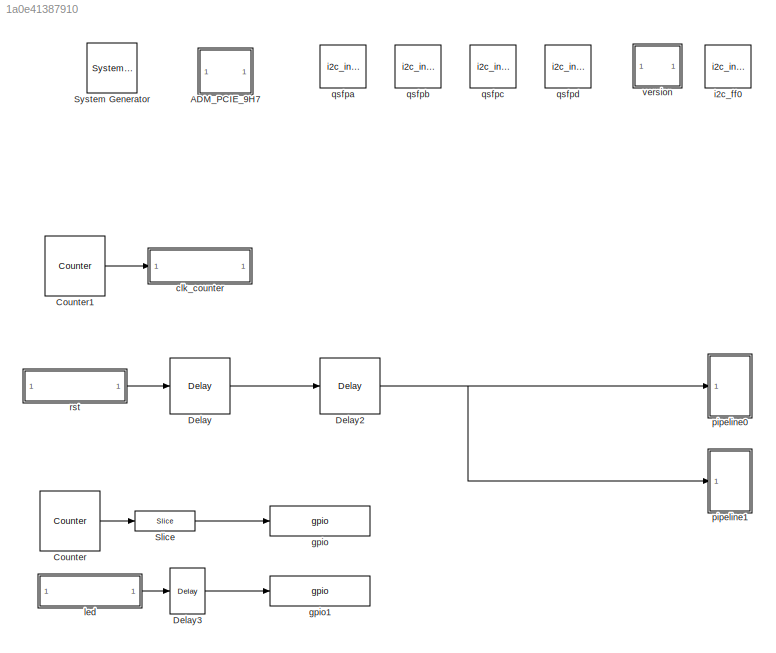
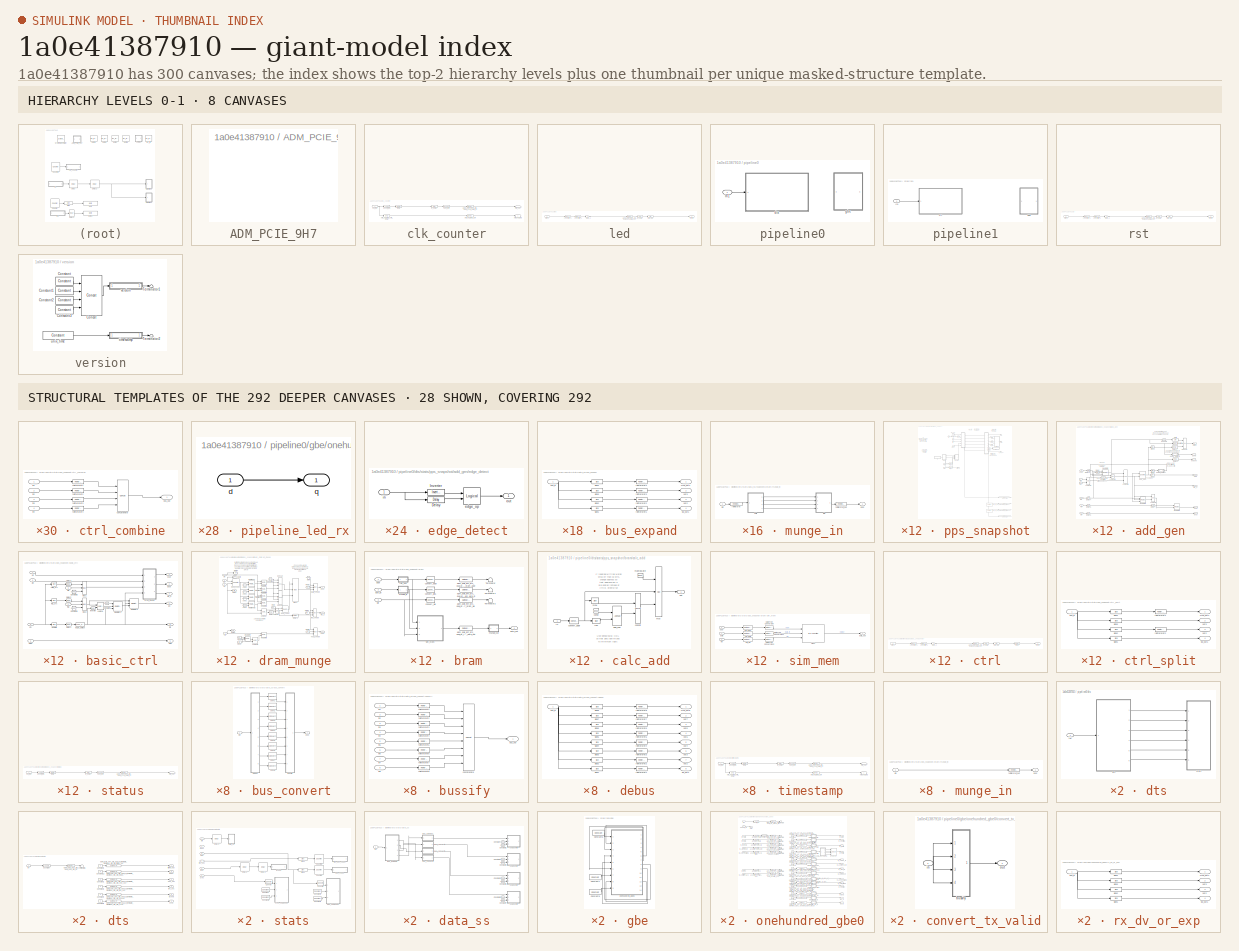
[diagram: thumbnail index - top-2 hierarchy levels (8 canvases) + 28 structural-template representatives of the remaining 292 canvases]
MODEL slx_1a0e41387910
KIND model
CONFIG AbsTol = auto
CONFIG EnableMultiTasking = off
CONFIG FixedStep = auto
CONFIG MaxStep = auto
CONFIG MinStep = auto
CONFIG RelTol = 1e-3
CONFIG SampleTimeConstraint = Unconstrained
CONFIG Solver = VariableStepAuto
CONFIG SolverName = VariableStepAuto
CONFIG StartTime = 0.0
CONFIG StopTime = 10.0
BLOCK [Reference]  System Generator  REF=xbsIndex_r4/ System Generator
  AttributesFormatString = System\nGenerator
  Ports = []
  SourceBlock = xbsIndex_r4/ System Generator
  SourceType = Xilinx System Generator Block
  Tag = genX
  UserDataPersistent = on
BLOCK [SubSystem] ADM_PCIE_9H7
  Ports = []
  RequestExecContextInheritance = off
  Tag = xps:xsg
BLOCK [Reference] Counter  REF=xbsIndex_r4/Counter
  Ports = [0, 1]
  SourceBlock = xbsIndex_r4/Counter
  SourceType = Xilinx Counter Block
BLOCK [Reference] Counter1  REF=xbsIndex_r4/Counter
  Ports = [0, 1]
  SourceBlock = xbsIndex_r4/Counter
  SourceType = Xilinx Counter Block
BLOCK [Reference] Delay  REF=xbsIndex_r4/Delay
  Ports = [1, 1]
  SourceBlock = xbsIndex_r4/Delay
  SourceType = Xilinx Delay Block
BLOCK [Reference] Delay2  REF=xbsIndex_r4/Delay
  Ports = [1, 1]
  SourceBlock = xbsIndex_r4/Delay
  SourceType = Xilinx Delay Block
BLOCK [Reference] Delay3  REF=xbsIndex_r4/Delay
  Ports = [1, 1]
  SourceBlock = xbsIndex_r4/Delay
  SourceType = Xilinx Delay Block
BLOCK [Reference] Slice  REF=xbsIndex_r4/Slice
  Ports = [1, 1]
  SourceBlock = xbsIndex_r4/Slice
  SourceType = Xilinx Bit Slice Extractor Block
BLOCK [SubSystem] clk_counter
  AncestorBlock = xps_library/Memory/software_register
  AttributesFormatString = 1output:uf32.0 = 32 bits
  Ports = [1, 1]
  RequestExecContextInheritance = off
  Tag = xps:sw_reg
BLOCK [Reference] clk_counter/adm_pcie_9h7_dts_dual_pr_template_clk_counter_user_data_in  REF=xbsIndex_r4/Gateway Out
  Ports = [1, 1]
  SourceBlock = xbsIndex_r4/Gateway Out
  SourceType = Xilinx Gateway Out Block
BLOCK [Reference] clk_counter/assert_reg  REF=xbsIndex_r4/Assert
  Ports = [1, 1]
  SourceBlock = xbsIndex_r4/Assert
  SourceType = Xilinx Assert Block
BLOCK [Reference] clk_counter/cast_gw  REF=xbsIndex_r4/Convert
  Ports = [1, 1]
  SourceBlock = xbsIndex_r4/Convert
  SourceType = Xilinx Type Converter Block
BLOCK [Reference] clk_counter/io_delay  REF=xbsIndex_r4/Delay
  Ports = [1, 1]
  SourceBlock = xbsIndex_r4/Delay
  SourceType = Xilinx Delay Block
BLOCK [Inport] clk_counter/out_reg
  IconDisplay = Port number
BLOCK [Reference] clk_counter/reint1  REF=xbsIndex_r4/Reinterpret
  Ports = [1, 1]
  SourceBlock = xbsIndex_r4/Reinterpret
  SourceType = Xilinx Type Reinterpreter Block
BLOCK [Terminator] clk_counter/sim_out
BLOCK [Outport] clk_counter/sim_out_reg
  IconDisplay = Port number
BLOCK [Reference] clk_counter/sim_out_reg_gw  REF=xbsIndex_r4/Gateway Out
  Ports = [1, 1]
  SourceBlock = xbsIndex_r4/Gateway Out
  SourceType = Xilinx Gateway Out Block
BLOCK [Reference] clk_counter/sim_out_reg_sim_delay  REF=xbsIndex_r4/Delay
  Ports = [1, 1]
  SourceBlock = xbsIndex_r4/Delay
  SourceType = Xilinx Delay Block
BLOCK [Reference] gpio  REF=xps_library/IO/gpio  (lib defined in mdl_00b5cec29cd0, mdl_02ab6ecaa3d1, +5 more)
  Ports = [1, 1]
  SourceBlock = xps_library/IO/gpio
  SourceProductName = CASPER XPS Blockset
  SourceType = gpio
  Tag = xps:gpio
BLOCK [Reference] gpio1  REF=xps_library/IO/gpio  (lib defined in mdl_00b5cec29cd0, mdl_02ab6ecaa3d1, +5 more)
  Ports = [1, 1]
  SourceBlock = xps_library/IO/gpio
  SourceProductName = CASPER XPS Blockset
  SourceType = gpio
  Tag = xps:gpio
BLOCK [Reference] i2c_ff0  REF=xps_library/IO/i2c_interface  (lib defined in mdl_00b5cec29cd0, mdl_02ab6ecaa3d1, +5 more)
  Ports = []
  SourceBlock = xps_library/IO/i2c_interface
  SourceProductName = CASPER XPS Blockset
  SourceType = ip
  Tag = xps:i2c_interface
BLOCK [SubSystem] led
  AncestorBlock = xps_library/Memory/software_register
  AttributesFormatString = 1input:b = 1 bits
  Ports = [1, 1]
  RequestExecContextInheritance = off
  Tag = xps:sw_reg
BLOCK [Reference] led/adm_pcie_9h7_dts_dual_pr_template_led_user_data_out  REF=xbsIndex_r4/Gateway In
  Ports = [1, 1]
  SourceBlock = xbsIndex_r4/Gateway In
  SourceType = Xilinx Gateway In Block
BLOCK [DataTypeConversion] led/convert1_1
  LockScale = on
  OutDataTypeStr = fixdt('ufix1_En0')
  RndMeth = Floor
  SaturateOnIntegerOverflow = off
BLOCK [DataTypeConversion] led/convert2_1
  ConvertRealWorld = Stored Integer (SI)
  LockScale = on
  OutDataTypeStr = fixdt('ufix1_En0')
  RndMeth = Floor
  SaturateOnIntegerOverflow = off
BLOCK [Gain] led/gain_1
  OutDataTypeStr = Inherit: Inherit via internal rule
  ParamDataTypeStr = Inherit: Inherit via internal rule
  SaturateOnIntegerOverflow = off
BLOCK [Outport] led/in_reg
  IconDisplay = Port number
BLOCK [Reference] led/io_delay  REF=xbsIndex_r4/Delay
  Ports = [1, 1]
  SourceBlock = xbsIndex_r4/Delay
  SourceType = Xilinx Delay Block
BLOCK [Inport] led/sim_1
  IconDisplay = Port number
BLOCK [Reference] led/slice_reg  REF=xbsIndex_r4/Slice
  Ports = [1, 1]
  SourceBlock = xbsIndex_r4/Slice
  SourceType = Xilinx Bit Slice Extractor Block
BLOCK [SubSystem] pipeline0
  Ports = [1]
  RequestExecContextInheritance = off
BLOCK [Inport] pipeline0/In1
  IconDisplay = Port number
BLOCK [SubSystem] pipeline0/dts
  Ports = [1]
  RequestExecContextInheritance = off
BLOCK [SubSystem] pipeline0/dts/dts
  Ports = [1, 6]
  RequestExecContextInheritance = off
  Tag = xps:vla_dts
BLOCK [Constant] pipeline0/dts/dts/Constant1
  Value = 0
BLOCK [Constant] pipeline0/dts/dts/Constant12
  Value = 0
BLOCK [Constant] pipeline0/dts/dts/Constant2
  Value = 0
BLOCK [Constant] pipeline0/dts/dts/Constant3
  Value = 0
BLOCK [Constant] pipeline0/dts/dts/Constant4
  Value = 0
BLOCK [Constant] pipeline0/dts/dts/Constant5
  Value = 0
BLOCK [Terminator] pipeline0/dts/dts/Terminator5
BLOCK [Reference] pipeline0/dts/dts/adm_pcie_9h7_dts_dual_pr_template_pipeline0_dts_dts_frame_out  REF=xbsIndex_r4/Gateway In
  Ports = [1, 1]
  SourceBlock = xbsIndex_r4/Gateway In
  SourceType = Xilinx Gateway In Block
BLOCK [Reference] pipeline0/dts/dts/adm_pcie_9h7_dts_dual_pr_template_pipeline0_dts_dts_index  REF=xbsIndex_r4/Gateway In
  Ports = [1, 1]
  SourceBlock = xbsIndex_r4/Gateway In
  SourceType = Xilinx Gateway In Block
BLOCK [Reference] pipeline0/dts/dts/adm_pcie_9h7_dts_dual_pr_template_pipeline0_dts_dts_locked  REF=xbsIndex_r4/Gateway In
  Ports = [1, 1]
  SourceBlock = xbsIndex_r4/Gateway In
  SourceType = Xilinx Gateway In Block
BLOCK [Reference] pipeline0/dts/dts/adm_pcie_9h7_dts_dual_pr_template_pipeline0_dts_dts_one_sec  REF=xbsIndex_r4/Gateway In
  Ports = [1, 1]
  SourceBlock = xbsIndex_r4/Gateway In
  SourceType = Xilinx Gateway In Block
BLOCK [Reference] pipeline0/dts/dts/adm_pcie_9h7_dts_dual_pr_template_pipeline0_dts_dts_rst  REF=xbsIndex_r4/Gateway Out
  Ports = [1, 1]
  SourceBlock = xbsIndex_r4/Gateway Out
  SourceType = Xilinx Gateway Out Block
BLOCK [Reference] pipeline0/dts/dts/adm_pcie_9h7_dts_dual_pr_template_pipeline0_dts_dts_sync  REF=xbsIndex_r4/Gateway In
  Ports = [1, 1]
  SourceBlock = xbsIndex_r4/Gateway In
  SourceType = Xilinx Gateway In Block
BLOCK [Reference] pipeline0/dts/dts/adm_pcie_9h7_dts_dual_pr_template_pipeline0_dts_dts_ten_sec  REF=xbsIndex_r4/Gateway In
  Ports = [1, 1]
  SourceBlock = xbsIndex_r4/Gateway In
  SourceType = Xilinx Gateway In Block
BLOCK [Reference] pipeline0/dts/dts/assert_rst  REF=xbsIndex_r4/Assert
  Ports = [1, 1]
  SourceBlock = xbsIndex_r4/Assert
  SourceType = Xilinx Assert Block
BLOCK [Outport] pipeline0/dts/dts/frame_out
  IconDisplay = Port number
BLOCK [Outport] pipeline0/dts/dts/index
  IconDisplay = Port number
  Port = 2
BLOCK [Outport] pipeline0/dts/dts/locked
  IconDisplay = Port number
  Port = 5
BLOCK [Outport] pipeline0/dts/dts/one_sec
  IconDisplay = Port number
  Port = 3
BLOCK [Inport] pipeline0/dts/dts/rst
  IconDisplay = Port number
BLOCK [Outport] pipeline0/dts/dts/sync
  IconDisplay = Port number
  Port = 6
BLOCK [Outport] pipeline0/dts/dts/ten_sec
  IconDisplay = Port number
  Port = 4
BLOCK [Inport] pipeline0/dts/rst
  IconDisplay = Port number
BLOCK [SubSystem] pipeline0/dts/stats
  Ports = [6]
  RequestExecContextInheritance = off
BLOCK [Reference] pipeline0/dts/stats/Constant  REF=xbsIndex_r4/Constant
  Ports = [0, 1]
  SourceBlock = xbsIndex_r4/Constant
  SourceType = Xilinx Constant Block Block
BLOCK [Reference] pipeline0/dts/stats/Constant1  REF=xbsIndex_r4/Constant
  Ports = [0, 1]
  SourceBlock = xbsIndex_r4/Constant
  SourceType = Xilinx Constant Block Block
BLOCK [Reference] pipeline0/dts/stats/Constant2  REF=xbsIndex_r4/Constant
  Ports = [0, 1]
  SourceBlock = xbsIndex_r4/Constant
  SourceType = Xilinx Constant Block Block
BLOCK [Reference] pipeline0/dts/stats/Constant3  REF=xbsIndex_r4/Constant
  Ports = [0, 1]
  SourceBlock = xbsIndex_r4/Constant
  SourceType = Xilinx Constant Block Block
BLOCK [Reference] pipeline0/dts/stats/Convert  REF=xbsIndex_r4/Convert
  Ports = [1, 1]
  SourceBlock = xbsIndex_r4/Convert
  SourceType = Xilinx Type Converter Block
BLOCK [Reference] pipeline0/dts/stats/Convert1  REF=xbsIndex_r4/Convert
  Ports = [1, 1]
  SourceBlock = xbsIndex_r4/Convert
  SourceType = Xilinx Type Converter Block
BLOCK [Reference] pipeline0/dts/stats/Counter1  REF=xbsIndex_r4/Counter
  Ports = [1, 1]
  SourceBlock = xbsIndex_r4/Counter
  SourceType = Xilinx Counter Block
BLOCK [Reference] pipeline0/dts/stats/Counter2  REF=xbsIndex_r4/Counter
  Ports = [1, 1]
  SourceBlock = xbsIndex_r4/Counter
  SourceType = Xilinx Counter Block
BLOCK [Reference] pipeline0/dts/stats/Delay1  REF=xbsIndex_r4/Delay
  Ports = [1, 1]
  SourceBlock = xbsIndex_r4/Delay
  SourceType = Xilinx Delay Block
BLOCK [Reference] pipeline0/dts/stats/Delay2  REF=xbsIndex_r4/Delay
  Ports = [1, 1]
  SourceBlock = xbsIndex_r4/Delay
  SourceType = Xilinx Delay Block
BLOCK [Reference] pipeline0/dts/stats/Delay3  REF=xbsIndex_r4/Delay
  Ports = [1, 1]
  SourceBlock = xbsIndex_r4/Delay
  SourceType = Xilinx Delay Block
BLOCK [Reference] pipeline0/dts/stats/Slice1  REF=xbsIndex_r4/Slice
  Ports = [1, 1]
  SourceBlock = xbsIndex_r4/Slice
  SourceType = Xilinx Bit Slice Extractor Block
BLOCK [Reference] pipeline0/dts/stats/Slice2  REF=xbsIndex_r4/Slice
  Ports = [1, 1]
  SourceBlock = xbsIndex_r4/Slice
  SourceType = Xilinx Bit Slice Extractor Block
BLOCK [SubSystem] pipeline0/dts/stats/data_ss
  Ports = [1]
  RequestExecContextInheritance = off
BLOCK [Reference] pipeline0/dts/stats/data_ss/Constant  REF=xbsIndex_r4/Constant
  Ports = [0, 1]
  SourceBlock = xbsIndex_r4/Constant
  SourceType = Xilinx Constant Block Block
BLOCK [Reference] pipeline0/dts/stats/data_ss/Constant1  REF=xbsIndex_r4/Constant
  Ports = [0, 1]
  SourceBlock = xbsIndex_r4/Constant
  SourceType = Xilinx Constant Block Block
BLOCK [Reference] pipeline0/dts/stats/data_ss/Constant2  REF=xbsIndex_r4/Constant
  Ports = [0, 1]
  SourceBlock = xbsIndex_r4/Constant
  SourceType = Xilinx Constant Block Block
BLOCK [Reference] pipeline0/dts/stats/data_ss/Constant3  REF=xbsIndex_r4/Constant
  Ports = [0, 1]
  SourceBlock = xbsIndex_r4/Constant
  SourceType = Xilinx Constant Block Block
BLOCK [Reference] pipeline0/dts/stats/data_ss/Constant4  REF=xbsIndex_r4/Constant
  Ports = [0, 1]
  SourceBlock = xbsIndex_r4/Constant
  SourceType = Xilinx Constant Block Block
BLOCK [Reference] pipeline0/dts/stats/data_ss/Constant5  REF=xbsIndex_r4/Constant
  Ports = [0, 1]
  SourceBlock = xbsIndex_r4/Constant
  SourceType = Xilinx Constant Block Block
BLOCK [Reference] pipeline0/dts/stats/data_ss/Constant6  REF=xbsIndex_r4/Constant
  Ports = [0, 1]
  SourceBlock = xbsIndex_r4/Constant
  SourceType = Xilinx Constant Block Block
BLOCK [Reference] pipeline0/dts/stats/data_ss/Constant7  REF=xbsIndex_r4/Constant
  Ports = [0, 1]
  SourceBlock = xbsIndex_r4/Constant
  SourceType = Xilinx Constant Block Block
BLOCK [Inport] pipeline0/dts/stats/data_ss/In1
  IconDisplay = Port number
BLOCK [SubSystem] pipeline0/dts/stats/data_ss/bus_convert
  AncestorBlock = casper_library_bus/bus_convert
  Ports = [1, 1]
  RequestExecContextInheritance = off
  UserDataPersistent = on
BLOCK [SubSystem] pipeline0/dts/stats/data_ss/bus_convert/bussify
  AncestorBlock = casper_library_flow_control/bus_create
  Ports = [8, 1]
  RequestExecContextInheritance = off
  UserDataPersistent = on
BLOCK [Outport] pipeline0/dts/stats/data_ss/bus_convert/bussify/bus_out
  IconDisplay = Port number
BLOCK [Reference] pipeline0/dts/stats/data_ss/bus_convert/bussify/concatenate  REF=xbsIndex_r4/Concat
  Ports = [8, 1]
  SourceBlock = xbsIndex_r4/Concat
  SourceType = Xilinx Bus Concatenator Block
BLOCK [Inport] pipeline0/dts/stats/data_ss/bus_convert/bussify/in1
  IconDisplay = Port number
BLOCK [Inport] pipeline0/dts/stats/data_ss/bus_convert/bussify/in2
  IconDisplay = Port number
  Port = 2
BLOCK [Inport] pipeline0/dts/stats/data_ss/bus_convert/bussify/in3
  IconDisplay = Port number
  Port = 3
BLOCK [Inport] pipeline0/dts/stats/data_ss/bus_convert/bussify/in4
  IconDisplay = Port number
  Port = 4
BLOCK [Inport] pipeline0/dts/stats/data_ss/bus_convert/bussify/in5
  IconDisplay = Port number
  Port = 5
BLOCK [Inport] pipeline0/dts/stats/data_ss/bus_convert/bussify/in6
  IconDisplay = Port number
  Port = 6
BLOCK [Inport] pipeline0/dts/stats/data_ss/bus_convert/bussify/in7
  IconDisplay = Port number
  Port = 7
BLOCK [Inport] pipeline0/dts/stats/data_ss/bus_convert/bussify/in8
  IconDisplay = Port number
  Port = 8
BLOCK [Reference] pipeline0/dts/stats/data_ss/bus_convert/bussify/reinterpret1  REF=xbsIndex_r4/Reinterpret
  Ports = [1, 1]
  SourceBlock = xbsIndex_r4/Reinterpret
  SourceType = Xilinx Type Reinterpreter Block
BLOCK [Reference] pipeline0/dts/stats/data_ss/bus_convert/bussify/reinterpret2  REF=xbsIndex_r4/Reinterpret
  Ports = [1, 1]
  SourceBlock = xbsIndex_r4/Reinterpret
  SourceType = Xilinx Type Reinterpreter Block
BLOCK [Reference] pipeline0/dts/stats/data_ss/bus_convert/bussify/reinterpret3  REF=xbsIndex_r4/Reinterpret
  Ports = [1, 1]
  SourceBlock = xbsIndex_r4/Reinterpret
  SourceType = Xilinx Type Reinterpreter Block
BLOCK [Reference] pipeline0/dts/stats/data_ss/bus_convert/bussify/reinterpret4  REF=xbsIndex_r4/Reinterpret
  Ports = [1, 1]
  SourceBlock = xbsIndex_r4/Reinterpret
  SourceType = Xilinx Type Reinterpreter Block
BLOCK [Reference] pipeline0/dts/stats/data_ss/bus_convert/bussify/reinterpret5  REF=xbsIndex_r4/Reinterpret
  Ports = [1, 1]
  SourceBlock = xbsIndex_r4/Reinterpret
  SourceType = Xilinx Type Reinterpreter Block
BLOCK [Reference] pipeline0/dts/stats/data_ss/bus_convert/bussify/reinterpret6  REF=xbsIndex_r4/Reinterpret
  Ports = [1, 1]
  SourceBlock = xbsIndex_r4/Reinterpret
  SourceType = Xilinx Type Reinterpreter Block
BLOCK [Reference] pipeline0/dts/stats/data_ss/bus_convert/bussify/reinterpret7  REF=xbsIndex_r4/Reinterpret
  Ports = [1, 1]
  SourceBlock = xbsIndex_r4/Reinterpret
  SourceType = Xilinx Type Reinterpreter Block
BLOCK [Reference] pipeline0/dts/stats/data_ss/bus_convert/bussify/reinterpret8  REF=xbsIndex_r4/Reinterpret
  Ports = [1, 1]
  SourceBlock = xbsIndex_r4/Reinterpret
  SourceType = Xilinx Type Reinterpreter Block
BLOCK [Reference] pipeline0/dts/stats/data_ss/bus_convert/conv1  REF=xbsIndex_r4/Convert
  Ports = [1, 1]
  SourceBlock = xbsIndex_r4/Convert
  SourceType = Xilinx Type Converter Block
BLOCK [Reference] pipeline0/dts/stats/data_ss/bus_convert/conv2  REF=xbsIndex_r4/Convert
  Ports = [1, 1]
  SourceBlock = xbsIndex_r4/Convert
  SourceType = Xilinx Type Converter Block
BLOCK [Reference] pipeline0/dts/stats/data_ss/bus_convert/conv3  REF=xbsIndex_r4/Convert
  Ports = [1, 1]
  SourceBlock = xbsIndex_r4/Convert
  SourceType = Xilinx Type Converter Block
BLOCK [Reference] pipeline0/dts/stats/data_ss/bus_convert/conv4  REF=xbsIndex_r4/Convert
  Ports = [1, 1]
  SourceBlock = xbsIndex_r4/Convert
  SourceType = Xilinx Type Converter Block
BLOCK [Reference] pipeline0/dts/stats/data_ss/bus_convert/conv5  REF=xbsIndex_r4/Convert
  Ports = [1, 1]
  SourceBlock = xbsIndex_r4/Convert
  SourceType = Xilinx Type Converter Block
BLOCK [Reference] pipeline0/dts/stats/data_ss/bus_convert/conv6  REF=xbsIndex_r4/Convert
  Ports = [1, 1]
  SourceBlock = xbsIndex_r4/Convert
  SourceType = Xilinx Type Converter Block
BLOCK [Reference] pipeline0/dts/stats/data_ss/bus_convert/conv7  REF=xbsIndex_r4/Convert
  Ports = [1, 1]
  SourceBlock = xbsIndex_r4/Convert
  SourceType = Xilinx Type Converter Block
BLOCK [Reference] pipeline0/dts/stats/data_ss/bus_convert/conv8  REF=xbsIndex_r4/Convert
  Ports = [1, 1]
  SourceBlock = xbsIndex_r4/Convert
  SourceType = Xilinx Type Converter Block
BLOCK [SubSystem] pipeline0/dts/stats/data_ss/bus_convert/debus
  AncestorBlock = casper_library_flow_control/bus_expand
  AttributesFormatString = 8 outputs: f12.0,f12.0,f12.0,f12.0,f12.0,f12.0,f12.0,f12.0,
  Ports = [1, 8]
  RequestExecContextInheritance = off
  UserDataPersistent = on
BLOCK [Inport] pipeline0/dts/stats/data_ss/bus_convert/debus/bus_in
  IconDisplay = Port number
BLOCK [Outport] pipeline0/dts/stats/data_ss/bus_convert/debus/lsb_out1
  IconDisplay = Port number
  Port = 8
BLOCK [Outport] pipeline0/dts/stats/data_ss/bus_convert/debus/msb_out8
  IconDisplay = Port number
BLOCK [Outport] pipeline0/dts/stats/data_ss/bus_convert/debus/out2
  IconDisplay = Port number
  Port = 7
BLOCK [Outport] pipeline0/dts/stats/data_ss/bus_convert/debus/out3
  IconDisplay = Port number
  Port = 6
BLOCK [Outport] pipeline0/dts/stats/data_ss/bus_convert/debus/out4
  IconDisplay = Port number
  Port = 5
BLOCK [Outport] pipeline0/dts/stats/data_ss/bus_convert/debus/out5
  IconDisplay = Port number
  Port = 4
BLOCK [Outport] pipeline0/dts/stats/data_ss/bus_convert/debus/out6
  IconDisplay = Port number
  Port = 3
BLOCK [Outport] pipeline0/dts/stats/data_ss/bus_convert/debus/out7
  IconDisplay = Port number
  Port = 2
BLOCK [Reference] pipeline0/dts/stats/data_ss/bus_convert/debus/reinterpret1  REF=xbsIndex_r4/Reinterpret
  Ports = [1, 1]
  SourceBlock = xbsIndex_r4/Reinterpret
  SourceType = Xilinx Type Reinterpreter Block
BLOCK [Reference] pipeline0/dts/stats/data_ss/bus_convert/debus/reinterpret2  REF=xbsIndex_r4/Reinterpret
  Ports = [1, 1]
  SourceBlock = xbsIndex_r4/Reinterpret
  SourceType = Xilinx Type Reinterpreter Block
BLOCK [Reference] pipeline0/dts/stats/data_ss/bus_convert/debus/reinterpret3  REF=xbsIndex_r4/Reinterpret
  Ports = [1, 1]
  SourceBlock = xbsIndex_r4/Reinterpret
  SourceType = Xilinx Type Reinterpreter Block
BLOCK [Reference] pipeline0/dts/stats/data_ss/bus_convert/debus/reinterpret4  REF=xbsIndex_r4/Reinterpret
  Ports = [1, 1]
  SourceBlock = xbsIndex_r4/Reinterpret
  SourceType = Xilinx Type Reinterpreter Block
BLOCK [Reference] pipeline0/dts/stats/data_ss/bus_convert/debus/reinterpret5  REF=xbsIndex_r4/Reinterpret
  Ports = [1, 1]
  SourceBlock = xbsIndex_r4/Reinterpret
  SourceType = Xilinx Type Reinterpreter Block
BLOCK [Reference] pipeline0/dts/stats/data_ss/bus_convert/debus/reinterpret6  REF=xbsIndex_r4/Reinterpret
  Ports = [1, 1]
  SourceBlock = xbsIndex_r4/Reinterpret
  SourceType = Xilinx Type Reinterpreter Block
BLOCK [Reference] pipeline0/dts/stats/data_ss/bus_convert/debus/reinterpret7  REF=xbsIndex_r4/Reinterpret
  Ports = [1, 1]
  SourceBlock = xbsIndex_r4/Reinterpret
  SourceType = Xilinx Type Reinterpreter Block
BLOCK [Reference] pipeline0/dts/stats/data_ss/bus_convert/debus/reinterpret8  REF=xbsIndex_r4/Reinterpret
  Ports = [1, 1]
  SourceBlock = xbsIndex_r4/Reinterpret
  SourceType = Xilinx Type Reinterpreter Block
BLOCK [Reference] pipeline0/dts/stats/data_ss/bus_convert/debus/slice1  REF=xbsIndex_r4/Slice
  Ports = [1, 1]
  SourceBlock = xbsIndex_r4/Slice
  SourceType = Xilinx Bit Slice Extractor Block
BLOCK [Reference] pipeline0/dts/stats/data_ss/bus_convert/debus/slice2  REF=xbsIndex_r4/Slice
  Ports = [1, 1]
  SourceBlock = xbsIndex_r4/Slice
  SourceType = Xilinx Bit Slice Extractor Block
BLOCK [Reference] pipeline0/dts/stats/data_ss/bus_convert/debus/slice3  REF=xbsIndex_r4/Slice
  Ports = [1, 1]
  SourceBlock = xbsIndex_r4/Slice
  SourceType = Xilinx Bit Slice Extractor Block
BLOCK [Reference] pipeline0/dts/stats/data_ss/bus_convert/debus/slice4  REF=xbsIndex_r4/Slice
  Ports = [1, 1]
  SourceBlock = xbsIndex_r4/Slice
  SourceType = Xilinx Bit Slice Extractor Block
BLOCK [Reference] pipeline0/dts/stats/data_ss/bus_convert/debus/slice5  REF=xbsIndex_r4/Slice
  Ports = [1, 1]
  SourceBlock = xbsIndex_r4/Slice
  SourceType = Xilinx Bit Slice Extractor Block
BLOCK [Reference] pipeline0/dts/stats/data_ss/bus_convert/debus/slice6  REF=xbsIndex_r4/Slice
  Ports = [1, 1]
  SourceBlock = xbsIndex_r4/Slice
  SourceType = Xilinx Bit Slice Extractor Block
BLOCK [Reference] pipeline0/dts/stats/data_ss/bus_convert/debus/slice7  REF=xbsIndex_r4/Slice
  Ports = [1, 1]
  SourceBlock = xbsIndex_r4/Slice
  SourceType = Xilinx Bit Slice Extractor Block
BLOCK [Reference] pipeline0/dts/stats/data_ss/bus_convert/debus/slice8  REF=xbsIndex_r4/Slice
  Ports = [1, 1]
  SourceBlock = xbsIndex_r4/Slice
  SourceType = Xilinx Bit Slice Extractor Block
BLOCK [Inport] pipeline0/dts/stats/data_ss/bus_convert/din
  IconDisplay = Port number
BLOCK [Outport] pipeline0/dts/stats/data_ss/bus_convert/dout
  IconDisplay = Port number
BLOCK [SubSystem] pipeline0/dts/stats/data_ss/bus_convert1
  AncestorBlock = casper_library_bus/bus_convert
  Ports = [1, 1]
  RequestExecContextInheritance = off
  UserDataPersistent = on
BLOCK [SubSystem] pipeline0/dts/stats/data_ss/bus_convert1/bussify
  AncestorBlock = casper_library_flow_control/bus_create
  Ports = [8, 1]
  RequestExecContextInheritance = off
  UserDataPersistent = on
BLOCK [Outport] pipeline0/dts/stats/data_ss/bus_convert1/bussify/bus_out
  IconDisplay = Port number
BLOCK [Reference] pipeline0/dts/stats/data_ss/bus_convert1/bussify/concatenate  REF=xbsIndex_r4/Concat
  Ports = [8, 1]
  SourceBlock = xbsIndex_r4/Concat
  SourceType = Xilinx Bus Concatenator Block
BLOCK [Inport] pipeline0/dts/stats/data_ss/bus_convert1/bussify/in1
  IconDisplay = Port number
BLOCK [Inport] pipeline0/dts/stats/data_ss/bus_convert1/bussify/in2
  IconDisplay = Port number
  Port = 2
BLOCK [Inport] pipeline0/dts/stats/data_ss/bus_convert1/bussify/in3
  IconDisplay = Port number
  Port = 3
BLOCK [Inport] pipeline0/dts/stats/data_ss/bus_convert1/bussify/in4
  IconDisplay = Port number
  Port = 4
BLOCK [Inport] pipeline0/dts/stats/data_ss/bus_convert1/bussify/in5
  IconDisplay = Port number
  Port = 5
BLOCK [Inport] pipeline0/dts/stats/data_ss/bus_convert1/bussify/in6
  IconDisplay = Port number
  Port = 6
BLOCK [Inport] pipeline0/dts/stats/data_ss/bus_convert1/bussify/in7
  IconDisplay = Port number
  Port = 7
BLOCK [Inport] pipeline0/dts/stats/data_ss/bus_convert1/bussify/in8
  IconDisplay = Port number
  Port = 8
BLOCK [Reference] pipeline0/dts/stats/data_ss/bus_convert1/bussify/reinterpret1  REF=xbsIndex_r4/Reinterpret
  Ports = [1, 1]
  SourceBlock = xbsIndex_r4/Reinterpret
  SourceType = Xilinx Type Reinterpreter Block
BLOCK [Reference] pipeline0/dts/stats/data_ss/bus_convert1/bussify/reinterpret2  REF=xbsIndex_r4/Reinterpret
  Ports = [1, 1]
  SourceBlock = xbsIndex_r4/Reinterpret
  SourceType = Xilinx Type Reinterpreter Block
BLOCK [Reference] pipeline0/dts/stats/data_ss/bus_convert1/bussify/reinterpret3  REF=xbsIndex_r4/Reinterpret
  Ports = [1, 1]
  SourceBlock = xbsIndex_r4/Reinterpret
  SourceType = Xilinx Type Reinterpreter Block
BLOCK [Reference] pipeline0/dts/stats/data_ss/bus_convert1/bussify/reinterpret4  REF=xbsIndex_r4/Reinterpret
  Ports = [1, 1]
  SourceBlock = xbsIndex_r4/Reinterpret
  SourceType = Xilinx Type Reinterpreter Block
BLOCK [Reference] pipeline0/dts/stats/data_ss/bus_convert1/bussify/reinterpret5  REF=xbsIndex_r4/Reinterpret
  Ports = [1, 1]
  SourceBlock = xbsIndex_r4/Reinterpret
  SourceType = Xilinx Type Reinterpreter Block
BLOCK [Reference] pipeline0/dts/stats/data_ss/bus_convert1/bussify/reinterpret6  REF=xbsIndex_r4/Reinterpret
  Ports = [1, 1]
  SourceBlock = xbsIndex_r4/Reinterpret
  SourceType = Xilinx Type Reinterpreter Block
BLOCK [Reference] pipeline0/dts/stats/data_ss/bus_convert1/bussify/reinterpret7  REF=xbsIndex_r4/Reinterpret
  Ports = [1, 1]
  SourceBlock = xbsIndex_r4/Reinterpret
  SourceType = Xilinx Type Reinterpreter Block
BLOCK [Reference] pipeline0/dts/stats/data_ss/bus_convert1/bussify/reinterpret8  REF=xbsIndex_r4/Reinterpret
  Ports = [1, 1]
  SourceBlock = xbsIndex_r4/Reinterpret
  SourceType = Xilinx Type Reinterpreter Block
BLOCK [Reference] pipeline0/dts/stats/data_ss/bus_convert1/conv1  REF=xbsIndex_r4/Convert
  Ports = [1, 1]
  SourceBlock = xbsIndex_r4/Convert
  SourceType = Xilinx Type Converter Block
BLOCK [Reference] pipeline0/dts/stats/data_ss/bus_convert1/conv2  REF=xbsIndex_r4/Convert
  Ports = [1, 1]
  SourceBlock = xbsIndex_r4/Convert
  SourceType = Xilinx Type Converter Block
BLOCK [Reference] pipeline0/dts/stats/data_ss/bus_convert1/conv3  REF=xbsIndex_r4/Convert
  Ports = [1, 1]
  SourceBlock = xbsIndex_r4/Convert
  SourceType = Xilinx Type Converter Block
BLOCK [Reference] pipeline0/dts/stats/data_ss/bus_convert1/conv4  REF=xbsIndex_r4/Convert
  Ports = [1, 1]
  SourceBlock = xbsIndex_r4/Convert
  SourceType = Xilinx Type Converter Block
BLOCK [Reference] pipeline0/dts/stats/data_ss/bus_convert1/conv5  REF=xbsIndex_r4/Convert
  Ports = [1, 1]
  SourceBlock = xbsIndex_r4/Convert
  SourceType = Xilinx Type Converter Block
BLOCK [Reference] pipeline0/dts/stats/data_ss/bus_convert1/conv6  REF=xbsIndex_r4/Convert
  Ports = [1, 1]
  SourceBlock = xbsIndex_r4/Convert
  SourceType = Xilinx Type Converter Block
BLOCK [Reference] pipeline0/dts/stats/data_ss/bus_convert1/conv7  REF=xbsIndex_r4/Convert
  Ports = [1, 1]
  SourceBlock = xbsIndex_r4/Convert
  SourceType = Xilinx Type Converter Block
BLOCK [Reference] pipeline0/dts/stats/data_ss/bus_convert1/conv8  REF=xbsIndex_r4/Convert
  Ports = [1, 1]
  SourceBlock = xbsIndex_r4/Convert
  SourceType = Xilinx Type Converter Block
BLOCK [SubSystem] pipeline0/dts/stats/data_ss/bus_convert1/debus
  AncestorBlock = casper_library_flow_control/bus_expand
  AttributesFormatString = 8 outputs: f12.0,f12.0,f12.0,f12.0,f12.0,f12.0,f12.0,f12.0,
  Ports = [1, 8]
  RequestExecContextInheritance = off
  UserDataPersistent = on
BLOCK [Inport] pipeline0/dts/stats/data_ss/bus_convert1/debus/bus_in
  IconDisplay = Port number
BLOCK [Outport] pipeline0/dts/stats/data_ss/bus_convert1/debus/lsb_out1
  IconDisplay = Port number
  Port = 8
BLOCK [Outport] pipeline0/dts/stats/data_ss/bus_convert1/debus/msb_out8
  IconDisplay = Port number
BLOCK [Outport] pipeline0/dts/stats/data_ss/bus_convert1/debus/out2
  IconDisplay = Port number
  Port = 7
BLOCK [Outport] pipeline0/dts/stats/data_ss/bus_convert1/debus/out3
  IconDisplay = Port number
  Port = 6
BLOCK [Outport] pipeline0/dts/stats/data_ss/bus_convert1/debus/out4
  IconDisplay = Port number
  Port = 5
BLOCK [Outport] pipeline0/dts/stats/data_ss/bus_convert1/debus/out5
  IconDisplay = Port number
  Port = 4
BLOCK [Outport] pipeline0/dts/stats/data_ss/bus_convert1/debus/out6
  IconDisplay = Port number
  Port = 3
BLOCK [Outport] pipeline0/dts/stats/data_ss/bus_convert1/debus/out7
  IconDisplay = Port number
  Port = 2
BLOCK [Reference] pipeline0/dts/stats/data_ss/bus_convert1/debus/reinterpret1  REF=xbsIndex_r4/Reinterpret
  Ports = [1, 1]
  SourceBlock = xbsIndex_r4/Reinterpret
  SourceType = Xilinx Type Reinterpreter Block
BLOCK [Reference] pipeline0/dts/stats/data_ss/bus_convert1/debus/reinterpret2  REF=xbsIndex_r4/Reinterpret
  Ports = [1, 1]
  SourceBlock = xbsIndex_r4/Reinterpret
  SourceType = Xilinx Type Reinterpreter Block
BLOCK [Reference] pipeline0/dts/stats/data_ss/bus_convert1/debus/reinterpret3  REF=xbsIndex_r4/Reinterpret
  Ports = [1, 1]
  SourceBlock = xbsIndex_r4/Reinterpret
  SourceType = Xilinx Type Reinterpreter Block
BLOCK [Reference] pipeline0/dts/stats/data_ss/bus_convert1/debus/reinterpret4  REF=xbsIndex_r4/Reinterpret
  Ports = [1, 1]
  SourceBlock = xbsIndex_r4/Reinterpret
  SourceType = Xilinx Type Reinterpreter Block
BLOCK [Reference] pipeline0/dts/stats/data_ss/bus_convert1/debus/reinterpret5  REF=xbsIndex_r4/Reinterpret
  Ports = [1, 1]
  SourceBlock = xbsIndex_r4/Reinterpret
  SourceType = Xilinx Type Reinterpreter Block
BLOCK [Reference] pipeline0/dts/stats/data_ss/bus_convert1/debus/reinterpret6  REF=xbsIndex_r4/Reinterpret
  Ports = [1, 1]
  SourceBlock = xbsIndex_r4/Reinterpret
  SourceType = Xilinx Type Reinterpreter Block
BLOCK [Reference] pipeline0/dts/stats/data_ss/bus_convert1/debus/reinterpret7  REF=xbsIndex_r4/Reinterpret
  Ports = [1, 1]
  SourceBlock = xbsIndex_r4/Reinterpret
  SourceType = Xilinx Type Reinterpreter Block
BLOCK [Reference] pipeline0/dts/stats/data_ss/bus_convert1/debus/reinterpret8  REF=xbsIndex_r4/Reinterpret
  Ports = [1, 1]
  SourceBlock = xbsIndex_r4/Reinterpret
  SourceType = Xilinx Type Reinterpreter Block
BLOCK [Reference] pipeline0/dts/stats/data_ss/bus_convert1/debus/slice1  REF=xbsIndex_r4/Slice
  Ports = [1, 1]
  SourceBlock = xbsIndex_r4/Slice
  SourceType = Xilinx Bit Slice Extractor Block
BLOCK [Reference] pipeline0/dts/stats/data_ss/bus_convert1/debus/slice2  REF=xbsIndex_r4/Slice
  Ports = [1, 1]
  SourceBlock = xbsIndex_r4/Slice
  SourceType = Xilinx Bit Slice Extractor Block
BLOCK [Reference] pipeline0/dts/stats/data_ss/bus_convert1/debus/slice3  REF=xbsIndex_r4/Slice
  Ports = [1, 1]
  SourceBlock = xbsIndex_r4/Slice
  SourceType = Xilinx Bit Slice Extractor Block
BLOCK [Reference] pipeline0/dts/stats/data_ss/bus_convert1/debus/slice4  REF=xbsIndex_r4/Slice
  Ports = [1, 1]
  SourceBlock = xbsIndex_r4/Slice
  SourceType = Xilinx Bit Slice Extractor Block
BLOCK [Reference] pipeline0/dts/stats/data_ss/bus_convert1/debus/slice5  REF=xbsIndex_r4/Slice
  Ports = [1, 1]
  SourceBlock = xbsIndex_r4/Slice
  SourceType = Xilinx Bit Slice Extractor Block
BLOCK [Reference] pipeline0/dts/stats/data_ss/bus_convert1/debus/slice6  REF=xbsIndex_r4/Slice
  Ports = [1, 1]
  SourceBlock = xbsIndex_r4/Slice
  SourceType = Xilinx Bit Slice Extractor Block
BLOCK [Reference] pipeline0/dts/stats/data_ss/bus_convert1/debus/slice7  REF=xbsIndex_r4/Slice
  Ports = [1, 1]
  SourceBlock = xbsIndex_r4/Slice
  SourceType = Xilinx Bit Slice Extractor Block
BLOCK [Reference] pipeline0/dts/stats/data_ss/bus_convert1/debus/slice8  REF=xbsIndex_r4/Slice
  Ports = [1, 1]
  SourceBlock = xbsIndex_r4/Slice
  SourceType = Xilinx Bit Slice Extractor Block
BLOCK [Inport] pipeline0/dts/stats/data_ss/bus_convert1/din
  IconDisplay = Port number
BLOCK [Outport] pipeline0/dts/stats/data_ss/bus_convert1/dout
  IconDisplay = Port number
BLOCK [SubSystem] pipeline0/dts/stats/data_ss/bus_convert2
  AncestorBlock = casper_library_bus/bus_convert
  Ports = [1, 1]
  RequestExecContextInheritance = off
  UserDataPersistent = on
BLOCK [SubSystem] pipeline0/dts/stats/data_ss/bus_convert2/bussify
  AncestorBlock = casper_library_flow_control/bus_create
  Ports = [8, 1]
  RequestExecContextInheritance = off
  UserDataPersistent = on
BLOCK [Outport] pipeline0/dts/stats/data_ss/bus_convert2/bussify/bus_out
  IconDisplay = Port number
BLOCK [Reference] pipeline0/dts/stats/data_ss/bus_convert2/bussify/concatenate  REF=xbsIndex_r4/Concat
  Ports = [8, 1]
  SourceBlock = xbsIndex_r4/Concat
  SourceType = Xilinx Bus Concatenator Block
BLOCK [Inport] pipeline0/dts/stats/data_ss/bus_convert2/bussify/in1
  IconDisplay = Port number
BLOCK [Inport] pipeline0/dts/stats/data_ss/bus_convert2/bussify/in2
  IconDisplay = Port number
  Port = 2
BLOCK [Inport] pipeline0/dts/stats/data_ss/bus_convert2/bussify/in3
  IconDisplay = Port number
  Port = 3
BLOCK [Inport] pipeline0/dts/stats/data_ss/bus_convert2/bussify/in4
  IconDisplay = Port number
  Port = 4
BLOCK [Inport] pipeline0/dts/stats/data_ss/bus_convert2/bussify/in5
  IconDisplay = Port number
  Port = 5
BLOCK [Inport] pipeline0/dts/stats/data_ss/bus_convert2/bussify/in6
  IconDisplay = Port number
  Port = 6
BLOCK [Inport] pipeline0/dts/stats/data_ss/bus_convert2/bussify/in7
  IconDisplay = Port number
  Port = 7
BLOCK [Inport] pipeline0/dts/stats/data_ss/bus_convert2/bussify/in8
  IconDisplay = Port number
  Port = 8
BLOCK [Reference] pipeline0/dts/stats/data_ss/bus_convert2/bussify/reinterpret1  REF=xbsIndex_r4/Reinterpret
  Ports = [1, 1]
  SourceBlock = xbsIndex_r4/Reinterpret
  SourceType = Xilinx Type Reinterpreter Block
BLOCK [Reference] pipeline0/dts/stats/data_ss/bus_convert2/bussify/reinterpret2  REF=xbsIndex_r4/Reinterpret
  Ports = [1, 1]
  SourceBlock = xbsIndex_r4/Reinterpret
  SourceType = Xilinx Type Reinterpreter Block
BLOCK [Reference] pipeline0/dts/stats/data_ss/bus_convert2/bussify/reinterpret3  REF=xbsIndex_r4/Reinterpret
  Ports = [1, 1]
  SourceBlock = xbsIndex_r4/Reinterpret
  SourceType = Xilinx Type Reinterpreter Block
BLOCK [Reference] pipeline0/dts/stats/data_ss/bus_convert2/bussify/reinterpret4  REF=xbsIndex_r4/Reinterpret
  Ports = [1, 1]
  SourceBlock = xbsIndex_r4/Reinterpret
  SourceType = Xilinx Type Reinterpreter Block
BLOCK [Reference] pipeline0/dts/stats/data_ss/bus_convert2/bussify/reinterpret5  REF=xbsIndex_r4/Reinterpret
  Ports = [1, 1]
  SourceBlock = xbsIndex_r4/Reinterpret
  SourceType = Xilinx Type Reinterpreter Block
BLOCK [Reference] pipeline0/dts/stats/data_ss/bus_convert2/bussify/reinterpret6  REF=xbsIndex_r4/Reinterpret
  Ports = [1, 1]
  SourceBlock = xbsIndex_r4/Reinterpret
  SourceType = Xilinx Type Reinterpreter Block
BLOCK [Reference] pipeline0/dts/stats/data_ss/bus_convert2/bussify/reinterpret7  REF=xbsIndex_r4/Reinterpret
  Ports = [1, 1]
  SourceBlock = xbsIndex_r4/Reinterpret
  SourceType = Xilinx Type Reinterpreter Block
BLOCK [Reference] pipeline0/dts/stats/data_ss/bus_convert2/bussify/reinterpret8  REF=xbsIndex_r4/Reinterpret
  Ports = [1, 1]
  SourceBlock = xbsIndex_r4/Reinterpret
  SourceType = Xilinx Type Reinterpreter Block
BLOCK [Reference] pipeline0/dts/stats/data_ss/bus_convert2/conv1  REF=xbsIndex_r4/Convert
  Ports = [1, 1]
  SourceBlock = xbsIndex_r4/Convert
  SourceType = Xilinx Type Converter Block
BLOCK [Reference] pipeline0/dts/stats/data_ss/bus_convert2/conv2  REF=xbsIndex_r4/Convert
  Ports = [1, 1]
  SourceBlock = xbsIndex_r4/Convert
  SourceType = Xilinx Type Converter Block
BLOCK [Reference] pipeline0/dts/stats/data_ss/bus_convert2/conv3  REF=xbsIndex_r4/Convert
  Ports = [1, 1]
  SourceBlock = xbsIndex_r4/Convert
  SourceType = Xilinx Type Converter Block
BLOCK [Reference] pipeline0/dts/stats/data_ss/bus_convert2/conv4  REF=xbsIndex_r4/Convert
  Ports = [1, 1]
  SourceBlock = xbsIndex_r4/Convert
  SourceType = Xilinx Type Converter Block
BLOCK [Reference] pipeline0/dts/stats/data_ss/bus_convert2/conv5  REF=xbsIndex_r4/Convert
  Ports = [1, 1]
  SourceBlock = xbsIndex_r4/Convert
  SourceType = Xilinx Type Converter Block
BLOCK [Reference] pipeline0/dts/stats/data_ss/bus_convert2/conv6  REF=xbsIndex_r4/Convert
  Ports = [1, 1]
  SourceBlock = xbsIndex_r4/Convert
  SourceType = Xilinx Type Converter Block
BLOCK [Reference] pipeline0/dts/stats/data_ss/bus_convert2/conv7  REF=xbsIndex_r4/Convert
  Ports = [1, 1]
  SourceBlock = xbsIndex_r4/Convert
  SourceType = Xilinx Type Converter Block
BLOCK [Reference] pipeline0/dts/stats/data_ss/bus_convert2/conv8  REF=xbsIndex_r4/Convert
  Ports = [1, 1]
  SourceBlock = xbsIndex_r4/Convert
  SourceType = Xilinx Type Converter Block
BLOCK [SubSystem] pipeline0/dts/stats/data_ss/bus_convert2/debus
  AncestorBlock = casper_library_flow_control/bus_expand
  AttributesFormatString = 8 outputs: f12.0,f12.0,f12.0,f12.0,f12.0,f12.0,f12.0,f12.0,
  Ports = [1, 8]
  RequestExecContextInheritance = off
  UserDataPersistent = on
BLOCK [Inport] pipeline0/dts/stats/data_ss/bus_convert2/debus/bus_in
  IconDisplay = Port number
BLOCK [Outport] pipeline0/dts/stats/data_ss/bus_convert2/debus/lsb_out1
  IconDisplay = Port number
  Port = 8
BLOCK [Outport] pipeline0/dts/stats/data_ss/bus_convert2/debus/msb_out8
  IconDisplay = Port number
BLOCK [Outport] pipeline0/dts/stats/data_ss/bus_convert2/debus/out2
  IconDisplay = Port number
  Port = 7
BLOCK [Outport] pipeline0/dts/stats/data_ss/bus_convert2/debus/out3
  IconDisplay = Port number
  Port = 6
BLOCK [Outport] pipeline0/dts/stats/data_ss/bus_convert2/debus/out4
  IconDisplay = Port number
  Port = 5
BLOCK [Outport] pipeline0/dts/stats/data_ss/bus_convert2/debus/out5
  IconDisplay = Port number
  Port = 4
BLOCK [Outport] pipeline0/dts/stats/data_ss/bus_convert2/debus/out6
  IconDisplay = Port number
  Port = 3
BLOCK [Outport] pipeline0/dts/stats/data_ss/bus_convert2/debus/out7
  IconDisplay = Port number
  Port = 2
BLOCK [Reference] pipeline0/dts/stats/data_ss/bus_convert2/debus/reinterpret1  REF=xbsIndex_r4/Reinterpret
  Ports = [1, 1]
  SourceBlock = xbsIndex_r4/Reinterpret
  SourceType = Xilinx Type Reinterpreter Block
BLOCK [Reference] pipeline0/dts/stats/data_ss/bus_convert2/debus/reinterpret2  REF=xbsIndex_r4/Reinterpret
  Ports = [1, 1]
  SourceBlock = xbsIndex_r4/Reinterpret
  SourceType = Xilinx Type Reinterpreter Block
BLOCK [Reference] pipeline0/dts/stats/data_ss/bus_convert2/debus/reinterpret3  REF=xbsIndex_r4/Reinterpret
  Ports = [1, 1]
  SourceBlock = xbsIndex_r4/Reinterpret
  SourceType = Xilinx Type Reinterpreter Block
BLOCK [Reference] pipeline0/dts/stats/data_ss/bus_convert2/debus/reinterpret4  REF=xbsIndex_r4/Reinterpret
  Ports = [1, 1]
  SourceBlock = xbsIndex_r4/Reinterpret
  SourceType = Xilinx Type Reinterpreter Block
BLOCK [Reference] pipeline0/dts/stats/data_ss/bus_convert2/debus/reinterpret5  REF=xbsIndex_r4/Reinterpret
  Ports = [1, 1]
  SourceBlock = xbsIndex_r4/Reinterpret
  SourceType = Xilinx Type Reinterpreter Block
BLOCK [Reference] pipeline0/dts/stats/data_ss/bus_convert2/debus/reinterpret6  REF=xbsIndex_r4/Reinterpret
  Ports = [1, 1]
  SourceBlock = xbsIndex_r4/Reinterpret
  SourceType = Xilinx Type Reinterpreter Block
BLOCK [Reference] pipeline0/dts/stats/data_ss/bus_convert2/debus/reinterpret7  REF=xbsIndex_r4/Reinterpret
  Ports = [1, 1]
  SourceBlock = xbsIndex_r4/Reinterpret
  SourceType = Xilinx Type Reinterpreter Block
BLOCK [Reference] pipeline0/dts/stats/data_ss/bus_convert2/debus/reinterpret8  REF=xbsIndex_r4/Reinterpret
  Ports = [1, 1]
  SourceBlock = xbsIndex_r4/Reinterpret
  SourceType = Xilinx Type Reinterpreter Block
BLOCK [Reference] pipeline0/dts/stats/data_ss/bus_convert2/debus/slice1  REF=xbsIndex_r4/Slice
  Ports = [1, 1]
  SourceBlock = xbsIndex_r4/Slice
  SourceType = Xilinx Bit Slice Extractor Block
BLOCK [Reference] pipeline0/dts/stats/data_ss/bus_convert2/debus/slice2  REF=xbsIndex_r4/Slice
  Ports = [1, 1]
  SourceBlock = xbsIndex_r4/Slice
  SourceType = Xilinx Bit Slice Extractor Block
BLOCK [Reference] pipeline0/dts/stats/data_ss/bus_convert2/debus/slice3  REF=xbsIndex_r4/Slice
  Ports = [1, 1]
  SourceBlock = xbsIndex_r4/Slice
  SourceType = Xilinx Bit Slice Extractor Block
BLOCK [Reference] pipeline0/dts/stats/data_ss/bus_convert2/debus/slice4  REF=xbsIndex_r4/Slice
  Ports = [1, 1]
  SourceBlock = xbsIndex_r4/Slice
  SourceType = Xilinx Bit Slice Extractor Block
BLOCK [Reference] pipeline0/dts/stats/data_ss/bus_convert2/debus/slice5  REF=xbsIndex_r4/Slice
  Ports = [1, 1]
  SourceBlock = xbsIndex_r4/Slice
  SourceType = Xilinx Bit Slice Extractor Block
BLOCK [Reference] pipeline0/dts/stats/data_ss/bus_convert2/debus/slice6  REF=xbsIndex_r4/Slice
  Ports = [1, 1]
  SourceBlock = xbsIndex_r4/Slice
  SourceType = Xilinx Bit Slice Extractor Block
BLOCK [Reference] pipeline0/dts/stats/data_ss/bus_convert2/debus/slice7  REF=xbsIndex_r4/Slice
  Ports = [1, 1]
  SourceBlock = xbsIndex_r4/Slice
  SourceType = Xilinx Bit Slice Extractor Block
BLOCK [Reference] pipeline0/dts/stats/data_ss/bus_convert2/debus/slice8  REF=xbsIndex_r4/Slice
  Ports = [1, 1]
  SourceBlock = xbsIndex_r4/Slice
  SourceType = Xilinx Bit Slice Extractor Block
BLOCK [Inport] pipeline0/dts/stats/data_ss/bus_convert2/din
  IconDisplay = Port number
BLOCK [Outport] pipeline0/dts/stats/data_ss/bus_convert2/dout
  IconDisplay = Port number
BLOCK [SubSystem] pipeline0/dts/stats/data_ss/bus_convert3
  AncestorBlock = casper_library_bus/bus_convert
  Ports = [1, 1]
  RequestExecContextInheritance = off
  UserDataPersistent = on
BLOCK [SubSystem] pipeline0/dts/stats/data_ss/bus_convert3/bussify
  AncestorBlock = casper_library_flow_control/bus_create
  Ports = [8, 1]
  RequestExecContextInheritance = off
  UserDataPersistent = on
BLOCK [Outport] pipeline0/dts/stats/data_ss/bus_convert3/bussify/bus_out
  IconDisplay = Port number
BLOCK [Reference] pipeline0/dts/stats/data_ss/bus_convert3/bussify/concatenate  REF=xbsIndex_r4/Concat
  Ports = [8, 1]
  SourceBlock = xbsIndex_r4/Concat
  SourceType = Xilinx Bus Concatenator Block
BLOCK [Inport] pipeline0/dts/stats/data_ss/bus_convert3/bussify/in1
  IconDisplay = Port number
BLOCK [Inport] pipeline0/dts/stats/data_ss/bus_convert3/bussify/in2
  IconDisplay = Port number
  Port = 2
BLOCK [Inport] pipeline0/dts/stats/data_ss/bus_convert3/bussify/in3
  IconDisplay = Port number
  Port = 3
BLOCK [Inport] pipeline0/dts/stats/data_ss/bus_convert3/bussify/in4
  IconDisplay = Port number
  Port = 4
BLOCK [Inport] pipeline0/dts/stats/data_ss/bus_convert3/bussify/in5
  IconDisplay = Port number
  Port = 5
BLOCK [Inport] pipeline0/dts/stats/data_ss/bus_convert3/bussify/in6
  IconDisplay = Port number
  Port = 6
BLOCK [Inport] pipeline0/dts/stats/data_ss/bus_convert3/bussify/in7
  IconDisplay = Port number
  Port = 7
BLOCK [Inport] pipeline0/dts/stats/data_ss/bus_convert3/bussify/in8
  IconDisplay = Port number
  Port = 8
BLOCK [Reference] pipeline0/dts/stats/data_ss/bus_convert3/bussify/reinterpret1  REF=xbsIndex_r4/Reinterpret
  Ports = [1, 1]
  SourceBlock = xbsIndex_r4/Reinterpret
  SourceType = Xilinx Type Reinterpreter Block
BLOCK [Reference] pipeline0/dts/stats/data_ss/bus_convert3/bussify/reinterpret2  REF=xbsIndex_r4/Reinterpret
  Ports = [1, 1]
  SourceBlock = xbsIndex_r4/Reinterpret
  SourceType = Xilinx Type Reinterpreter Block
BLOCK [Reference] pipeline0/dts/stats/data_ss/bus_convert3/bussify/reinterpret3  REF=xbsIndex_r4/Reinterpret
  Ports = [1, 1]
  SourceBlock = xbsIndex_r4/Reinterpret
  SourceType = Xilinx Type Reinterpreter Block
BLOCK [Reference] pipeline0/dts/stats/data_ss/bus_convert3/bussify/reinterpret4  REF=xbsIndex_r4/Reinterpret
  Ports = [1, 1]
  SourceBlock = xbsIndex_r4/Reinterpret
  SourceType = Xilinx Type Reinterpreter Block
BLOCK [Reference] pipeline0/dts/stats/data_ss/bus_convert3/bussify/reinterpret5  REF=xbsIndex_r4/Reinterpret
  Ports = [1, 1]
  SourceBlock = xbsIndex_r4/Reinterpret
  SourceType = Xilinx Type Reinterpreter Block
BLOCK [Reference] pipeline0/dts/stats/data_ss/bus_convert3/bussify/reinterpret6  REF=xbsIndex_r4/Reinterpret
  Ports = [1, 1]
  SourceBlock = xbsIndex_r4/Reinterpret
  SourceType = Xilinx Type Reinterpreter Block
BLOCK [Reference] pipeline0/dts/stats/data_ss/bus_convert3/bussify/reinterpret7  REF=xbsIndex_r4/Reinterpret
  Ports = [1, 1]
  SourceBlock = xbsIndex_r4/Reinterpret
  SourceType = Xilinx Type Reinterpreter Block
BLOCK [Reference] pipeline0/dts/stats/data_ss/bus_convert3/bussify/reinterpret8  REF=xbsIndex_r4/Reinterpret
  Ports = [1, 1]
  SourceBlock = xbsIndex_r4/Reinterpret
  SourceType = Xilinx Type Reinterpreter Block
BLOCK [Reference] pipeline0/dts/stats/data_ss/bus_convert3/conv1  REF=xbsIndex_r4/Convert
  Ports = [1, 1]
  SourceBlock = xbsIndex_r4/Convert
  SourceType = Xilinx Type Converter Block
BLOCK [Reference] pipeline0/dts/stats/data_ss/bus_convert3/conv2  REF=xbsIndex_r4/Convert
  Ports = [1, 1]
  SourceBlock = xbsIndex_r4/Convert
  SourceType = Xilinx Type Converter Block
BLOCK [Reference] pipeline0/dts/stats/data_ss/bus_convert3/conv3  REF=xbsIndex_r4/Convert
  Ports = [1, 1]
  SourceBlock = xbsIndex_r4/Convert
  SourceType = Xilinx Type Converter Block
BLOCK [Reference] pipeline0/dts/stats/data_ss/bus_convert3/conv4  REF=xbsIndex_r4/Convert
  Ports = [1, 1]
  SourceBlock = xbsIndex_r4/Convert
  SourceType = Xilinx Type Converter Block
BLOCK [Reference] pipeline0/dts/stats/data_ss/bus_convert3/conv5  REF=xbsIndex_r4/Convert
  Ports = [1, 1]
  SourceBlock = xbsIndex_r4/Convert
  SourceType = Xilinx Type Converter Block
BLOCK [Reference] pipeline0/dts/stats/data_ss/bus_convert3/conv6  REF=xbsIndex_r4/Convert
  Ports = [1, 1]
  SourceBlock = xbsIndex_r4/Convert
  SourceType = Xilinx Type Converter Block
BLOCK [Reference] pipeline0/dts/stats/data_ss/bus_convert3/conv7  REF=xbsIndex_r4/Convert
  Ports = [1, 1]
  SourceBlock = xbsIndex_r4/Convert
  SourceType = Xilinx Type Converter Block
BLOCK [Reference] pipeline0/dts/stats/data_ss/bus_convert3/conv8  REF=xbsIndex_r4/Convert
  Ports = [1, 1]
  SourceBlock = xbsIndex_r4/Convert
  SourceType = Xilinx Type Converter Block
BLOCK [SubSystem] pipeline0/dts/stats/data_ss/bus_convert3/debus
  AncestorBlock = casper_library_flow_control/bus_expand
  AttributesFormatString = 8 outputs: f12.0,f12.0,f12.0,f12.0,f12.0,f12.0,f12.0,f12.0,
  Ports = [1, 8]
  RequestExecContextInheritance = off
  UserDataPersistent = on
BLOCK [Inport] pipeline0/dts/stats/data_ss/bus_convert3/debus/bus_in
  IconDisplay = Port number
BLOCK [Outport] pipeline0/dts/stats/data_ss/bus_convert3/debus/lsb_out1
  IconDisplay = Port number
  Port = 8
BLOCK [Outport] pipeline0/dts/stats/data_ss/bus_convert3/debus/msb_out8
  IconDisplay = Port number
BLOCK [Outport] pipeline0/dts/stats/data_ss/bus_convert3/debus/out2
  IconDisplay = Port number
  Port = 7
BLOCK [Outport] pipeline0/dts/stats/data_ss/bus_convert3/debus/out3
  IconDisplay = Port number
  Port = 6
BLOCK [Outport] pipeline0/dts/stats/data_ss/bus_convert3/debus/out4
  IconDisplay = Port number
  Port = 5
BLOCK [Outport] pipeline0/dts/stats/data_ss/bus_convert3/debus/out5
  IconDisplay = Port number
  Port = 4
BLOCK [Outport] pipeline0/dts/stats/data_ss/bus_convert3/debus/out6
  IconDisplay = Port number
  Port = 3
BLOCK [Outport] pipeline0/dts/stats/data_ss/bus_convert3/debus/out7
  IconDisplay = Port number
  Port = 2
BLOCK [Reference] pipeline0/dts/stats/data_ss/bus_convert3/debus/reinterpret1  REF=xbsIndex_r4/Reinterpret
  Ports = [1, 1]
  SourceBlock = xbsIndex_r4/Reinterpret
  SourceType = Xilinx Type Reinterpreter Block
BLOCK [Reference] pipeline0/dts/stats/data_ss/bus_convert3/debus/reinterpret2  REF=xbsIndex_r4/Reinterpret
  Ports = [1, 1]
  SourceBlock = xbsIndex_r4/Reinterpret
  SourceType = Xilinx Type Reinterpreter Block
BLOCK [Reference] pipeline0/dts/stats/data_ss/bus_convert3/debus/reinterpret3  REF=xbsIndex_r4/Reinterpret
  Ports = [1, 1]
  SourceBlock = xbsIndex_r4/Reinterpret
  SourceType = Xilinx Type Reinterpreter Block
BLOCK [Reference] pipeline0/dts/stats/data_ss/bus_convert3/debus/reinterpret4  REF=xbsIndex_r4/Reinterpret
  Ports = [1, 1]
  SourceBlock = xbsIndex_r4/Reinterpret
  SourceType = Xilinx Type Reinterpreter Block
BLOCK [Reference] pipeline0/dts/stats/data_ss/bus_convert3/debus/reinterpret5  REF=xbsIndex_r4/Reinterpret
  Ports = [1, 1]
  SourceBlock = xbsIndex_r4/Reinterpret
  SourceType = Xilinx Type Reinterpreter Block
BLOCK [Reference] pipeline0/dts/stats/data_ss/bus_convert3/debus/reinterpret6  REF=xbsIndex_r4/Reinterpret
  Ports = [1, 1]
  SourceBlock = xbsIndex_r4/Reinterpret
  SourceType = Xilinx Type Reinterpreter Block
BLOCK [Reference] pipeline0/dts/stats/data_ss/bus_convert3/debus/reinterpret7  REF=xbsIndex_r4/Reinterpret
  Ports = [1, 1]
  SourceBlock = xbsIndex_r4/Reinterpret
  SourceType = Xilinx Type Reinterpreter Block
BLOCK [Reference] pipeline0/dts/stats/data_ss/bus_convert3/debus/reinterpret8  REF=xbsIndex_r4/Reinterpret
  Ports = [1, 1]
  SourceBlock = xbsIndex_r4/Reinterpret
  SourceType = Xilinx Type Reinterpreter Block
BLOCK [Reference] pipeline0/dts/stats/data_ss/bus_convert3/debus/slice1  REF=xbsIndex_r4/Slice
  Ports = [1, 1]
  SourceBlock = xbsIndex_r4/Slice
  SourceType = Xilinx Bit Slice Extractor Block
BLOCK [Reference] pipeline0/dts/stats/data_ss/bus_convert3/debus/slice2  REF=xbsIndex_r4/Slice
  Ports = [1, 1]
  SourceBlock = xbsIndex_r4/Slice
  SourceType = Xilinx Bit Slice Extractor Block
BLOCK [Reference] pipeline0/dts/stats/data_ss/bus_convert3/debus/slice3  REF=xbsIndex_r4/Slice
  Ports = [1, 1]
  SourceBlock = xbsIndex_r4/Slice
  SourceType = Xilinx Bit Slice Extractor Block
BLOCK [Reference] pipeline0/dts/stats/data_ss/bus_convert3/debus/slice4  REF=xbsIndex_r4/Slice
  Ports = [1, 1]
  SourceBlock = xbsIndex_r4/Slice
  SourceType = Xilinx Bit Slice Extractor Block
BLOCK [Reference] pipeline0/dts/stats/data_ss/bus_convert3/debus/slice5  REF=xbsIndex_r4/Slice
  Ports = [1, 1]
  SourceBlock = xbsIndex_r4/Slice
  SourceType = Xilinx Bit Slice Extractor Block
BLOCK [Reference] pipeline0/dts/stats/data_ss/bus_convert3/debus/slice6  REF=xbsIndex_r4/Slice
  Ports = [1, 1]
  SourceBlock = xbsIndex_r4/Slice
  SourceType = Xilinx Bit Slice Extractor Block
BLOCK [Reference] pipeline0/dts/stats/data_ss/bus_convert3/debus/slice7  REF=xbsIndex_r4/Slice
  Ports = [1, 1]
  SourceBlock = xbsIndex_r4/Slice
  SourceType = Xilinx Bit Slice Extractor Block
BLOCK [Reference] pipeline0/dts/stats/data_ss/bus_convert3/debus/slice8  REF=xbsIndex_r4/Slice
  Ports = [1, 1]
  SourceBlock = xbsIndex_r4/Slice
  SourceType = Xilinx Bit Slice Extractor Block
BLOCK [Inport] pipeline0/dts/stats/data_ss/bus_convert3/din
  IconDisplay = Port number
BLOCK [Outport] pipeline0/dts/stats/data_ss/bus_convert3/dout
  IconDisplay = Port number
BLOCK [SubSystem] pipeline0/dts/stats/data_ss/bus_expand
  AncestorBlock = casper_library_flow_control/bus_expand
  AttributesFormatString = 4 outputs
  Ports = [1, 4]
  RequestExecContextInheritance = off
  UserDataPersistent = on
BLOCK [Inport] pipeline0/dts/stats/data_ss/bus_expand/bus_in
  IconDisplay = Port number
BLOCK [Outport] pipeline0/dts/stats/data_ss/bus_expand/lsb_out1
  IconDisplay = Port number
  Port = 4
BLOCK [Outport] pipeline0/dts/stats/data_ss/bus_expand/msb_out4
  IconDisplay = Port number
BLOCK [Outport] pipeline0/dts/stats/data_ss/bus_expand/out2
  IconDisplay = Port number
  Port = 3
BLOCK [Outport] pipeline0/dts/stats/data_ss/bus_expand/out3
  IconDisplay = Port number
  Port = 2
BLOCK [Reference] pipeline0/dts/stats/data_ss/bus_expand/reinterpret1  REF=xbsIndex_r4/Reinterpret
  Ports = [1, 1]
  SourceBlock = xbsIndex_r4/Reinterpret
  SourceType = Xilinx Type Reinterpreter Block
BLOCK [Reference] pipeline0/dts/stats/data_ss/bus_expand/reinterpret2  REF=xbsIndex_r4/Reinterpret
  Ports = [1, 1]
  SourceBlock = xbsIndex_r4/Reinterpret
  SourceType = Xilinx Type Reinterpreter Block
BLOCK [Reference] pipeline0/dts/stats/data_ss/bus_expand/reinterpret3  REF=xbsIndex_r4/Reinterpret
  Ports = [1, 1]
  SourceBlock = xbsIndex_r4/Reinterpret
  SourceType = Xilinx Type Reinterpreter Block
BLOCK [Reference] pipeline0/dts/stats/data_ss/bus_expand/reinterpret4  REF=xbsIndex_r4/Reinterpret
  Ports = [1, 1]
  SourceBlock = xbsIndex_r4/Reinterpret
  SourceType = Xilinx Type Reinterpreter Block
BLOCK [Reference] pipeline0/dts/stats/data_ss/bus_expand/slice1  REF=xbsIndex_r4/Slice
  Ports = [1, 1]
  SourceBlock = xbsIndex_r4/Slice
  SourceType = Xilinx Bit Slice Extractor Block
BLOCK [Reference] pipeline0/dts/stats/data_ss/bus_expand/slice2  REF=xbsIndex_r4/Slice
  Ports = [1, 1]
  SourceBlock = xbsIndex_r4/Slice
  SourceType = Xilinx Bit Slice Extractor Block
BLOCK [Reference] pipeline0/dts/stats/data_ss/bus_expand/slice3  REF=xbsIndex_r4/Slice
  Ports = [1, 1]
  SourceBlock = xbsIndex_r4/Slice
  SourceType = Xilinx Bit Slice Extractor Block
BLOCK [Reference] pipeline0/dts/stats/data_ss/bus_expand/slice4  REF=xbsIndex_r4/Slice
  Ports = [1, 1]
  SourceBlock = xbsIndex_r4/Slice
  SourceType = Xilinx Bit Slice Extractor Block
BLOCK [SubSystem] pipeline0/dts/stats/data_ss/snapshot0
  AncestorBlock = casper_library_scopes/snapshot
  AttributesFormatString = 128 wide, 1024 deep\ndebugID: 100655048
  Ports = [3, 1]
  RequestExecContextInheritance = off
  Tag = casper:snapshot
  UserDataPersistent = on
BLOCK [Reference] pipeline0/dts/stats/data_ss/snapshot0/add_del  REF=xbsIndex_r4/Delay
  Ports = [1, 1]
  SourceBlock = xbsIndex_r4/Delay
  SourceType = Xilinx Delay Block
BLOCK [SubSystem] pipeline0/dts/stats/data_ss/snapshot0/add_gen
  AncestorBlock = casper_library_scopes/snapshot/add_gen
  Ports = [6, 7]
  RequestExecContextInheritance = off
BLOCK [Reference] pipeline0/dts/stats/data_ss/snapshot0/add_gen/Concat  REF=xbsIndex_r4/Concat
  Ports = [3, 1]
  SourceBlock = xbsIndex_r4/Concat
  SourceType = Xilinx Bus Concatenator Block
BLOCK [Reference] pipeline0/dts/stats/data_ss/snapshot0/add_gen/Convert  REF=xbsIndex_r4/Convert
  Ports = [1, 1]
  SourceBlock = xbsIndex_r4/Convert
  SourceType = Xilinx Type Converter Block
BLOCK [Reference] pipeline0/dts/stats/data_ss/snapshot0/add_gen/Delay  REF=xbsIndex_r4/Delay
  Ports = [1, 1]
  SourceBlock = xbsIndex_r4/Delay
  SourceType = Xilinx Delay Block
BLOCK [Reference] pipeline0/dts/stats/data_ss/snapshot0/add_gen/Delay1  REF=xbsIndex_r4/Delay
  Ports = [1, 1]
  SourceBlock = xbsIndex_r4/Delay
  SourceType = Xilinx Delay Block
BLOCK [Reference] pipeline0/dts/stats/data_ss/snapshot0/add_gen/Delay2  REF=xbsIndex_r4/Delay
  Ports = [1, 1]
  SourceBlock = xbsIndex_r4/Delay
  SourceType = Xilinx Delay Block
BLOCK [Reference] pipeline0/dts/stats/data_ss/snapshot0/add_gen/Delay3  REF=xbsIndex_r4/Delay
  Ports = [1, 1]
  SourceBlock = xbsIndex_r4/Delay
  SourceType = Xilinx Delay Block
BLOCK [Reference] pipeline0/dts/stats/data_ss/snapshot0/add_gen/Delay4  REF=xbsIndex_r4/Delay
  Ports = [1, 1]
  SourceBlock = xbsIndex_r4/Delay
  SourceType = Xilinx Delay Block
BLOCK [Reference] pipeline0/dts/stats/data_ss/snapshot0/add_gen/Delay5  REF=xbsIndex_r4/Delay
  Ports = [1, 1]
  SourceBlock = xbsIndex_r4/Delay
  SourceType = Xilinx Delay Block
BLOCK [Reference] pipeline0/dts/stats/data_ss/snapshot0/add_gen/Delay6  REF=xbsIndex_r4/Delay
  Ports = [1, 1]
  SourceBlock = xbsIndex_r4/Delay
  SourceType = Xilinx Delay Block
BLOCK [Reference] pipeline0/dts/stats/data_ss/snapshot0/add_gen/Delay7  REF=xbsIndex_r4/Delay
  Ports = [1, 1]
  SourceBlock = xbsIndex_r4/Delay
  SourceType = Xilinx Delay Block
BLOCK [Reference] pipeline0/dts/stats/data_ss/snapshot0/add_gen/Inverter  REF=xbsIndex_r4/Inverter
  Ports = [1, 1]
  SourceBlock = xbsIndex_r4/Inverter
  SourceType = Xilinx Inverter Block
BLOCK [Reference] pipeline0/dts/stats/data_ss/snapshot0/add_gen/Inverter1  REF=xbsIndex_r4/Inverter
  Ports = [1, 1]
  SourceBlock = xbsIndex_r4/Inverter
  SourceType = Xilinx Inverter Block
BLOCK [Reference] pipeline0/dts/stats/data_ss/snapshot0/add_gen/Logical1  REF=xbsIndex_r4/Logical
  Ports = [2, 1]
  SourceBlock = xbsIndex_r4/Logical
  SourceType = Xilinx Logical Block Block
BLOCK [Reference] pipeline0/dts/stats/data_ss/snapshot0/add_gen/Logical2  REF=xbsIndex_r4/Logical
  Ports = [2, 1]
  SourceBlock = xbsIndex_r4/Logical
  SourceType = Xilinx Logical Block Block
BLOCK [Reference] pipeline0/dts/stats/data_ss/snapshot0/add_gen/Logical4  REF=xbsIndex_r4/Logical
  Ports = [2, 1]
  SourceBlock = xbsIndex_r4/Logical
  SourceType = Xilinx Logical Block Block
BLOCK [Reference] pipeline0/dts/stats/data_ss/snapshot0/add_gen/Logical6  REF=xbsIndex_r4/Logical
  Ports = [3, 1]
  SourceBlock = xbsIndex_r4/Logical
  SourceType = Xilinx Logical Block Block
BLOCK [Reference] pipeline0/dts/stats/data_ss/snapshot0/add_gen/Register3  REF=xbsIndex_r4/Register
  Ports = [3, 1]
  SourceBlock = xbsIndex_r4/Register
  SourceType = Xilinx Register Block
BLOCK [Reference] pipeline0/dts/stats/data_ss/snapshot0/add_gen/Register4  REF=xbsIndex_r4/Register
  Ports = [2, 1]
  SourceBlock = xbsIndex_r4/Register
  SourceType = Xilinx Register Block
BLOCK [Reference] pipeline0/dts/stats/data_ss/snapshot0/add_gen/Register5  REF=xbsIndex_r4/Register
  Ports = [3, 1]
  SourceBlock = xbsIndex_r4/Register
  SourceType = Xilinx Register Block
BLOCK [Reference] pipeline0/dts/stats/data_ss/snapshot0/add_gen/Shift  REF=xbsIndex_r4/Shift
  Ports = [1, 1]
  SourceBlock = xbsIndex_r4/Shift
  SourceType = Xilinx Binary Shift Operator Block
BLOCK [Outport] pipeline0/dts/stats/data_ss/snapshot0/add_gen/add
  IconDisplay = Port number
  Port = 2
BLOCK [Reference] pipeline0/dts/stats/data_ss/snapshot0/add_gen/add_gen  REF=xbsIndex_r4/Counter
  Ports = [2, 1]
  SourceBlock = xbsIndex_r4/Counter
  SourceType = Xilinx Counter Block
BLOCK [Inport] pipeline0/dts/stats/data_ss/snapshot0/add_gen/cont
  IconDisplay = Port number
  Port = 5
BLOCK [Inport] pipeline0/dts/stats/data_ss/snapshot0/add_gen/din
  IconDisplay = Port number
  Port = 2
BLOCK [Outport] pipeline0/dts/stats/data_ss/snapshot0/add_gen/done
  IconDisplay = Port number
  Port = 7
BLOCK [Outport] pipeline0/dts/stats/data_ss/snapshot0/add_gen/dout
  IconDisplay = Port number
  Port = 3
BLOCK [SubSystem] pipeline0/dts/stats/data_ss/snapshot0/add_gen/edge_detect
  AncestorBlock = casper_library_misc/edge_detect
  AttributesFormatString = both edges\nactive high
  Ports = [1, 1]
  RequestExecContextInheritance = off
  UserDataPersistent = on
BLOCK [Reference] pipeline0/dts/stats/data_ss/snapshot0/add_gen/edge_detect/Delay  REF=xbsIndex_r4/Delay
  Ports = [1, 1]
  SourceBlock = xbsIndex_r4/Delay
  SourceType = Xilinx Delay Block
BLOCK [Reference] pipeline0/dts/stats/data_ss/snapshot0/add_gen/edge_detect/Inverter  REF=xbsIndex_r4/Inverter
  Ports = [1, 1]
  SourceBlock = xbsIndex_r4/Inverter
  SourceType = Xilinx Inverter Block
BLOCK [Reference] pipeline0/dts/stats/data_ss/snapshot0/add_gen/edge_detect/edge_op  REF=xbsIndex_r4/Logical
  Ports = [2, 1]
  SourceBlock = xbsIndex_r4/Logical
  SourceType = Xilinx Logical Block Block
BLOCK [Inport] pipeline0/dts/stats/data_ss/snapshot0/add_gen/edge_detect/in
  IconDisplay = Port number
BLOCK [Outport] pipeline0/dts/stats/data_ss/snapshot0/add_gen/edge_detect/out
  IconDisplay = Port number
BLOCK [SubSystem] pipeline0/dts/stats/data_ss/snapshot0/add_gen/edge_detect1
  AncestorBlock = casper_library_scopes/snapshot/add_gen/edge_detect
  AttributesFormatString = both edges\nactive high
  Ports = [1, 1]
  RequestExecContextInheritance = off
  UserDataPersistent = on
BLOCK [Reference] pipeline0/dts/stats/data_ss/snapshot0/add_gen/edge_detect1/Delay  REF=xbsIndex_r4/Delay
  Ports = [1, 1]
  SourceBlock = xbsIndex_r4/Delay
  SourceType = Xilinx Delay Block
BLOCK [Reference] pipeline0/dts/stats/data_ss/snapshot0/add_gen/edge_detect1/Inverter  REF=xbsIndex_r4/Inverter
  Ports = [1, 1]
  SourceBlock = xbsIndex_r4/Inverter
  SourceType = Xilinx Inverter Block
BLOCK [Reference] pipeline0/dts/stats/data_ss/snapshot0/add_gen/edge_detect1/edge_op  REF=xbsIndex_r4/Logical
  Ports = [2, 1]
  SourceBlock = xbsIndex_r4/Logical
  SourceType = Xilinx Logical Block Block
BLOCK [Inport] pipeline0/dts/stats/data_ss/snapshot0/add_gen/edge_detect1/in
  IconDisplay = Port number
BLOCK [Outport] pipeline0/dts/stats/data_ss/snapshot0/add_gen/edge_detect1/out
  IconDisplay = Port number
BLOCK [Outport] pipeline0/dts/stats/data_ss/snapshot0/add_gen/en_cnt
  IconDisplay = Port number
  Port = 6
BLOCK [Inport] pipeline0/dts/stats/data_ss/snapshot0/add_gen/go
  IconDisplay = Port number
  Port = 4
BLOCK [Inport] pipeline0/dts/stats/data_ss/snapshot0/add_gen/init
  IconDisplay = Port number
  Port = 6
BLOCK [Reference] pipeline0/dts/stats/data_ss/snapshot0/add_gen/slice1  REF=xbsIndex_r4/Slice
  Ports = [1, 1]
  SourceBlock = xbsIndex_r4/Slice
  SourceType = Xilinx Bit Slice Extractor Block
BLOCK [Reference] pipeline0/dts/stats/data_ss/snapshot0/add_gen/slice2  REF=xbsIndex_r4/Slice
  Ports = [1, 1]
  SourceBlock = xbsIndex_r4/Slice
  SourceType = Xilinx Bit Slice Extractor Block
BLOCK [Reference] pipeline0/dts/stats/data_ss/snapshot0/add_gen/slice3  REF=xbsIndex_r4/Slice
  Ports = [1, 1]
  SourceBlock = xbsIndex_r4/Slice
  SourceType = Xilinx Bit Slice Extractor Block
BLOCK [Outport] pipeline0/dts/stats/data_ss/snapshot0/add_gen/status
  IconDisplay = Port number
  Port = 5
BLOCK [Inport] pipeline0/dts/stats/data_ss/snapshot0/add_gen/vin
  IconDisplay = Port number
BLOCK [Outport] pipeline0/dts/stats/data_ss/snapshot0/add_gen/vout
  IconDisplay = Port number
BLOCK [Inport] pipeline0/dts/stats/data_ss/snapshot0/add_gen/we
  IconDisplay = Port number
  Port = 3
BLOCK [Outport] pipeline0/dts/stats/data_ss/snapshot0/add_gen/we_o
  IconDisplay = Port number
  Port = 4
BLOCK [Reference] pipeline0/dts/stats/data_ss/snapshot0/arm  REF=xbsIndex_r4/Constant
  Ports = [0, 1]
  SourceBlock = xbsIndex_r4/Constant
  SourceType = Xilinx Constant Block Block
BLOCK [Reference] pipeline0/dts/stats/data_ss/snapshot0/arm_or  REF=xbsIndex_r4/Logical
  Ports = [2, 1]
  SourceBlock = xbsIndex_r4/Logical
  SourceType = Xilinx Logical Block Block
BLOCK [Outport] pipeline0/dts/stats/data_ss/snapshot0/arm_out
  IconDisplay = Port number
BLOCK [SubSystem] pipeline0/dts/stats/data_ss/snapshot0/basic_ctrl
  AncestorBlock = casper_library_scopes/snapshot/basic_ctrl
  Ports = [6, 6]
  RequestExecContextInheritance = off
BLOCK [Reference] pipeline0/dts/stats/data_ss/snapshot0/basic_ctrl/Constant  REF=xbsIndex_r4/Constant
  Ports = [0, 1]
  SourceBlock = xbsIndex_r4/Constant
  SourceType = Xilinx Constant Block Block
BLOCK [Reference] pipeline0/dts/stats/data_ss/snapshot0/basic_ctrl/Constant1  REF=xbsIndex_r4/Constant
  Ports = [0, 1]
  SourceBlock = xbsIndex_r4/Constant
  SourceType = Xilinx Constant Block Block
BLOCK [Reference] pipeline0/dts/stats/data_ss/snapshot0/basic_ctrl/Constant2  REF=xbsIndex_r4/Constant
  Ports = [0, 1]
  SourceBlock = xbsIndex_r4/Constant
  SourceType = Xilinx Constant Block Block
BLOCK [Reference] pipeline0/dts/stats/data_ss/snapshot0/basic_ctrl/Delay1  REF=xbsIndex_r4/Delay
  Ports = [1, 1]
  SourceBlock = xbsIndex_r4/Delay
  SourceType = Xilinx Delay Block
BLOCK [Reference] pipeline0/dts/stats/data_ss/snapshot0/basic_ctrl/Delay2  REF=xbsIndex_r4/Delay
  Ports = [1, 1]
  SourceBlock = xbsIndex_r4/Delay
  SourceType = Xilinx Delay Block
BLOCK [Reference] pipeline0/dts/stats/data_ss/snapshot0/basic_ctrl/Delay3  REF=xbsIndex_r4/Delay
  Ports = [1, 1]
  SourceBlock = xbsIndex_r4/Delay
  SourceType = Xilinx Delay Block
BLOCK [Reference] pipeline0/dts/stats/data_ss/snapshot0/basic_ctrl/Inverter  REF=xbsIndex_r4/Inverter
  Ports = [1, 1]
  SourceBlock = xbsIndex_r4/Inverter
  SourceType = Xilinx Inverter Block
BLOCK [Reference] pipeline0/dts/stats/data_ss/snapshot0/basic_ctrl/Logical  REF=xbsIndex_r4/Logical
  Ports = [2, 1]
  SourceBlock = xbsIndex_r4/Logical
  SourceType = Xilinx Logical Block Block
BLOCK [Reference] pipeline0/dts/stats/data_ss/snapshot0/basic_ctrl/Mux1  REF=xbsIndex_r4/Mux
  Ports = [3, 1]
  SourceBlock = xbsIndex_r4/Mux
  SourceType = Xilinx Bus Multiplexer Block
BLOCK [Reference] pipeline0/dts/stats/data_ss/snapshot0/basic_ctrl/Mux2  REF=xbsIndex_r4/Mux
  Ports = [3, 1]
  SourceBlock = xbsIndex_r4/Mux
  SourceType = Xilinx Bus Multiplexer Block
BLOCK [Reference] pipeline0/dts/stats/data_ss/snapshot0/basic_ctrl/Register1  REF=xbsIndex_r4/Register
  Ports = [3, 1]
  SourceBlock = xbsIndex_r4/Register
  SourceType = Xilinx Register Block
BLOCK [Reference] pipeline0/dts/stats/data_ss/snapshot0/basic_ctrl/Register6  REF=xbsIndex_r4/Register
  Ports = [3, 1]
  SourceBlock = xbsIndex_r4/Register
  SourceType = Xilinx Register Block
BLOCK [Inport] pipeline0/dts/stats/data_ss/snapshot0/basic_ctrl/ctrl
  IconDisplay = Port number
  Port = 5
BLOCK [Inport] pipeline0/dts/stats/data_ss/snapshot0/basic_ctrl/din
  IconDisplay = Port number
  Port = 2
BLOCK [Outport] pipeline0/dts/stats/data_ss/snapshot0/basic_ctrl/dout
  IconDisplay = Port number
  Port = 2
BLOCK [SubSystem] pipeline0/dts/stats/data_ss/snapshot0/basic_ctrl/dram_munge
  Ports = [4, 3]
  RequestExecContextInheritance = off
BLOCK [Reference] pipeline0/dts/stats/data_ss/snapshot0/basic_ctrl/dram_munge/Concat  REF=xbsIndex_r4/Concat
  Ports = [4, 1]
  SourceBlock = xbsIndex_r4/Concat
  SourceType = Xilinx Bus Concatenator Block
BLOCK [Reference] pipeline0/dts/stats/data_ss/snapshot0/basic_ctrl/dram_munge/Concat1  REF=xbsIndex_r4/Concat
  Ports = [4, 1]
  SourceBlock = xbsIndex_r4/Concat
  SourceType = Xilinx Bus Concatenator Block
BLOCK [Reference] pipeline0/dts/stats/data_ss/snapshot0/basic_ctrl/dram_munge/Constant  REF=xbsIndex_r4/Constant
  Ports = [0, 1]
  SourceBlock = xbsIndex_r4/Constant
  SourceType = Xilinx Constant Block Block
BLOCK [Reference] pipeline0/dts/stats/data_ss/snapshot0/basic_ctrl/dram_munge/Delay  REF=xbsIndex_r4/Delay
  Ports = [1, 1]
  SourceBlock = xbsIndex_r4/Delay
  SourceType = Xilinx Delay Block
BLOCK [Reference] pipeline0/dts/stats/data_ss/snapshot0/basic_ctrl/dram_munge/Delay1  REF=xbsIndex_r4/Delay
  Ports = [1, 1]
  SourceBlock = xbsIndex_r4/Delay
  SourceType = Xilinx Delay Block
BLOCK [From] pipeline0/dts/stats/data_ss/snapshot0/basic_ctrl/dram_munge/From
  CloseFcn = tagdialog Close
  GotoTag = init
BLOCK [From] pipeline0/dts/stats/data_ss/snapshot0/basic_ctrl/dram_munge/From1
  CloseFcn = tagdialog Close
  GotoTag = we
BLOCK [From] pipeline0/dts/stats/data_ss/snapshot0/basic_ctrl/dram_munge/From2
  CloseFcn = tagdialog Close
  GotoTag = din
BLOCK [From] pipeline0/dts/stats/data_ss/snapshot0/basic_ctrl/dram_munge/From3
  CloseFcn = tagdialog Close
  GotoTag = init
BLOCK [From] pipeline0/dts/stats/data_ss/snapshot0/basic_ctrl/dram_munge/From4
  CloseFcn = tagdialog Close
  GotoTag = we
BLOCK [From] pipeline0/dts/stats/data_ss/snapshot0/basic_ctrl/dram_munge/From5
  CloseFcn = tagdialog Close
  GotoTag = vin
BLOCK [Goto] pipeline0/dts/stats/data_ss/snapshot0/basic_ctrl/dram_munge/Goto
  GotoTag = init
BLOCK [Goto] pipeline0/dts/stats/data_ss/snapshot0/basic_ctrl/dram_munge/Goto1
  GotoTag = we
BLOCK [Goto] pipeline0/dts/stats/data_ss/snapshot0/basic_ctrl/dram_munge/Goto2
  GotoTag = din
BLOCK [Goto] pipeline0/dts/stats/data_ss/snapshot0/basic_ctrl/dram_munge/Goto3
  GotoTag = vin
BLOCK [Reference] pipeline0/dts/stats/data_ss/snapshot0/basic_ctrl/dram_munge/Logical  REF=xbsIndex_r4/Logical
  Ports = [2, 1]
  SourceBlock = xbsIndex_r4/Logical
  SourceType = Xilinx Logical Block Block
BLOCK [Reference] pipeline0/dts/stats/data_ss/snapshot0/basic_ctrl/dram_munge/Logical1  REF=xbsIndex_r4/Logical
  Ports = [2, 1]
  SourceBlock = xbsIndex_r4/Logical
  SourceType = Xilinx Logical Block Block
BLOCK [Reference] pipeline0/dts/stats/data_ss/snapshot0/basic_ctrl/dram_munge/Logical2  REF=xbsIndex_r4/Logical
  Ports = [2, 1]
  SourceBlock = xbsIndex_r4/Logical
  SourceType = Xilinx Logical Block Block
BLOCK [Reference] pipeline0/dts/stats/data_ss/snapshot0/basic_ctrl/dram_munge/Mux1  REF=xbsIndex_r4/Mux
  Ports = [3, 1]
  SourceBlock = xbsIndex_r4/Mux
  SourceType = Xilinx Bus Multiplexer Block
BLOCK [Reference] pipeline0/dts/stats/data_ss/snapshot0/basic_ctrl/dram_munge/Register  REF=xbsIndex_r4/Register
  Ports = [2, 1]
  SourceBlock = xbsIndex_r4/Register
  SourceType = Xilinx Register Block
BLOCK [Reference] pipeline0/dts/stats/data_ss/snapshot0/basic_ctrl/dram_munge/Register1  REF=xbsIndex_r4/Register
  Ports = [2, 1]
  SourceBlock = xbsIndex_r4/Register
  SourceType = Xilinx Register Block
BLOCK [Reference] pipeline0/dts/stats/data_ss/snapshot0/basic_ctrl/dram_munge/Register2  REF=xbsIndex_r4/Register
  Ports = [2, 1]
  SourceBlock = xbsIndex_r4/Register
  SourceType = Xilinx Register Block
BLOCK [Reference] pipeline0/dts/stats/data_ss/snapshot0/basic_ctrl/dram_munge/Register3  REF=xbsIndex_r4/Register
  Ports = [2, 1]
  SourceBlock = xbsIndex_r4/Register
  SourceType = Xilinx Register Block
BLOCK [Reference] pipeline0/dts/stats/data_ss/snapshot0/basic_ctrl/dram_munge/Register4  REF=xbsIndex_r4/Register
  Ports = [3, 1]
  SourceBlock = xbsIndex_r4/Register
  SourceType = Xilinx Register Block
BLOCK [Reference] pipeline0/dts/stats/data_ss/snapshot0/basic_ctrl/dram_munge/Register5  REF=xbsIndex_r4/Register
  Ports = [2, 1]
  SourceBlock = xbsIndex_r4/Register
  SourceType = Xilinx Register Block
BLOCK [Reference] pipeline0/dts/stats/data_ss/snapshot0/basic_ctrl/dram_munge/Relational  REF=xbsIndex_r4/Relational
  Ports = [2, 1]
  SourceBlock = xbsIndex_r4/Relational
  SourceType = Xilinx Arithmetic Relational Operator Block
BLOCK [Reference] pipeline0/dts/stats/data_ss/snapshot0/basic_ctrl/dram_munge/Relational1  REF=xbsIndex_r4/Relational
  Ports = [2, 1]
  SourceBlock = xbsIndex_r4/Relational
  SourceType = Xilinx Arithmetic Relational Operator Block
BLOCK [Reference] pipeline0/dts/stats/data_ss/snapshot0/basic_ctrl/dram_munge/Relational2  REF=xbsIndex_r4/Relational
  Ports = [2, 1]
  SourceBlock = xbsIndex_r4/Relational
  SourceType = Xilinx Arithmetic Relational Operator Block
BLOCK [Reference] pipeline0/dts/stats/data_ss/snapshot0/basic_ctrl/dram_munge/Relational3  REF=xbsIndex_r4/Relational
  Ports = [2, 1]
  SourceBlock = xbsIndex_r4/Relational
  SourceType = Xilinx Arithmetic Relational Operator Block
BLOCK [Reference] pipeline0/dts/stats/data_ss/snapshot0/basic_ctrl/dram_munge/con0  REF=xbsIndex_r4/Constant
  Ports = [0, 1]
  SourceBlock = xbsIndex_r4/Constant
  SourceType = Xilinx Constant Block Block
BLOCK [Reference] pipeline0/dts/stats/data_ss/snapshot0/basic_ctrl/dram_munge/con1  REF=xbsIndex_r4/Constant
  Ports = [0, 1]
  SourceBlock = xbsIndex_r4/Constant
  SourceType = Xilinx Constant Block Block
BLOCK [Reference] pipeline0/dts/stats/data_ss/snapshot0/basic_ctrl/dram_munge/con2  REF=xbsIndex_r4/Constant
  Ports = [0, 1]
  SourceBlock = xbsIndex_r4/Constant
  SourceType = Xilinx Constant Block Block
BLOCK [Reference] pipeline0/dts/stats/data_ss/snapshot0/basic_ctrl/dram_munge/con3  REF=xbsIndex_r4/Constant
  Ports = [0, 1]
  SourceBlock = xbsIndex_r4/Constant
  SourceType = Xilinx Constant Block Block
BLOCK [Reference] pipeline0/dts/stats/data_ss/snapshot0/basic_ctrl/dram_munge/data_choice  REF=xbsIndex_r4/Mux
  Ports = [3, 1]
  SourceBlock = xbsIndex_r4/Mux
  SourceType = Xilinx Bus Multiplexer Block
BLOCK [Inport] pipeline0/dts/stats/data_ss/snapshot0/basic_ctrl/dram_munge/din
  IconDisplay = Port number
  Port = 2
BLOCK [Outport] pipeline0/dts/stats/data_ss/snapshot0/basic_ctrl/dram_munge/dout
  IconDisplay = Port number
  Port = 2
BLOCK [Reference] pipeline0/dts/stats/data_ss/snapshot0/basic_ctrl/dram_munge/dout_count  REF=xbsIndex_r4/Counter
  Ports = [2, 1]
  SourceBlock = xbsIndex_r4/Counter
  SourceType = Xilinx Counter Block
BLOCK [Reference] pipeline0/dts/stats/data_ss/snapshot0/basic_ctrl/dram_munge/dram  REF=xbsIndex_r4/Constant
  Ports = [0, 1]
  SourceBlock = xbsIndex_r4/Constant
  SourceType = Xilinx Constant Block Block
BLOCK [Inport] pipeline0/dts/stats/data_ss/snapshot0/basic_ctrl/dram_munge/init
  IconDisplay = Port number
  Port = 4
BLOCK [Reference] pipeline0/dts/stats/data_ss/snapshot0/basic_ctrl/dram_munge/input_count  REF=xbsIndex_r4/Counter
  Ports = [2, 1]
  SourceBlock = xbsIndex_r4/Counter
  SourceType = Xilinx Counter Block
BLOCK [Inport] pipeline0/dts/stats/data_ss/snapshot0/basic_ctrl/dram_munge/vin
  IconDisplay = Port number
BLOCK [Outport] pipeline0/dts/stats/data_ss/snapshot0/basic_ctrl/dram_munge/vout
  IconDisplay = Port number
BLOCK [Reference] pipeline0/dts/stats/data_ss/snapshot0/basic_ctrl/dram_munge/vout_choice  REF=xbsIndex_r4/Mux
  Ports = [3, 1]
  SourceBlock = xbsIndex_r4/Mux
  SourceType = Xilinx Bus Multiplexer Block
BLOCK [Inport] pipeline0/dts/stats/data_ss/snapshot0/basic_ctrl/dram_munge/we
  IconDisplay = Port number
  Port = 3
BLOCK [Reference] pipeline0/dts/stats/data_ss/snapshot0/basic_ctrl/dram_munge/we_choice  REF=xbsIndex_r4/Mux
  Ports = [3, 1]
  SourceBlock = xbsIndex_r4/Mux
  SourceType = Xilinx Bus Multiplexer Block
BLOCK [Outport] pipeline0/dts/stats/data_ss/snapshot0/basic_ctrl/dram_munge/we_o
  IconDisplay = Port number
  Port = 3
BLOCK [Reference] pipeline0/dts/stats/data_ss/snapshot0/basic_ctrl/edge_detect  REF=casper_library_misc/edge_detect  (lib defined in mdl_357510c33b49, mdl_57b5f564ae26, +4 more)
  AttributesFormatString = rising edges\nactive high
  Ports = [1, 1]
  SourceBlock = casper_library_misc/edge_detect
  SourceProductName = CASPER DSP Blockset
  SourceType = edge_detect
  UserDataPersistent = on
BLOCK [Reference] pipeline0/dts/stats/data_ss/snapshot0/basic_ctrl/enable  REF=xbsIndex_r4/Slice
  Ports = [1, 1]
  SourceBlock = xbsIndex_r4/Slice
  SourceType = Xilinx Bit Slice Extractor Block
BLOCK [Outport] pipeline0/dts/stats/data_ss/snapshot0/basic_ctrl/go
  IconDisplay = Port number
  Port = 4
BLOCK [Outport] pipeline0/dts/stats/data_ss/snapshot0/basic_ctrl/init
  IconDisplay = Port number
  Port = 6
BLOCK [Outport] pipeline0/dts/stats/data_ss/snapshot0/basic_ctrl/stop
  IconDisplay = Port number
  Port = 5
BLOCK [Inport] pipeline0/dts/stats/data_ss/snapshot0/basic_ctrl/stopi
  IconDisplay = Port number
  Port = 6
BLOCK [Inport] pipeline0/dts/stats/data_ss/snapshot0/basic_ctrl/trig
  IconDisplay = Port number
  Port = 4
BLOCK [Reference] pipeline0/dts/stats/data_ss/snapshot0/basic_ctrl/trig_src  REF=xbsIndex_r4/Slice
  Ports = [1, 1]
  SourceBlock = xbsIndex_r4/Slice
  SourceType = Xilinx Bit Slice Extractor Block
BLOCK [Reference] pipeline0/dts/stats/data_ss/snapshot0/basic_ctrl/valid_src  REF=xbsIndex_r4/Slice
  Ports = [1, 1]
  SourceBlock = xbsIndex_r4/Slice
  SourceType = Xilinx Bit Slice Extractor Block
BLOCK [Inport] pipeline0/dts/stats/data_ss/snapshot0/basic_ctrl/vin
  IconDisplay = Port number
BLOCK [Outport] pipeline0/dts/stats/data_ss/snapshot0/basic_ctrl/vout
  IconDisplay = Port number
BLOCK [Inport] pipeline0/dts/stats/data_ss/snapshot0/basic_ctrl/we
  IconDisplay = Port number
  Port = 3
BLOCK [Outport] pipeline0/dts/stats/data_ss/snapshot0/basic_ctrl/we_o
  IconDisplay = Port number
  Port = 3
BLOCK [SubSystem] pipeline0/dts/stats/data_ss/snapshot0/bram
  AncestorBlock = xps_library/Memory/shared_bram
  Ports = [3, 1]
  RequestExecContextInheritance = off
  Tag = xps:bram
BLOCK [Terminator] pipeline0/dts/stats/data_ss/snapshot0/bram/Terminator
BLOCK [Terminator] pipeline0/dts/stats/data_ss/snapshot0/bram/Terminator1
BLOCK [Terminator] pipeline0/dts/stats/data_ss/snapshot0/bram/Terminator2
BLOCK [Inport] pipeline0/dts/stats/data_ss/snapshot0/bram/addr
  IconDisplay = Port number
BLOCK [Reference] pipeline0/dts/stats/data_ss/snapshot0/bram/adm_pcie_9h7_dts_dual_pr_template_pipeline0_dts_stats_data_ss_snapshot0_bram_addr  REF=xbsIndex_r4/Gateway Out
  Ports = [1, 1]
  SourceBlock = xbsIndex_r4/Gateway Out
  SourceType = Xilinx Gateway Out Block
BLOCK [Reference] pipeline0/dts/stats/data_ss/snapshot0/bram/adm_pcie_9h7_dts_dual_pr_template_pipeline0_dts_stats_data_ss_snapshot0_bram_data_in  REF=xbsIndex_r4/Gateway Out
  Ports = [1, 1]
  SourceBlock = xbsIndex_r4/Gateway Out
  SourceType = Xilinx Gateway Out Block
BLOCK [Reference] pipeline0/dts/stats/data_ss/snapshot0/bram/adm_pcie_9h7_dts_dual_pr_template_pipeline0_dts_stats_data_ss_snapshot0_bram_data_out  REF=xbsIndex_r4/Gateway In
  Ports = [1, 1]
  SourceBlock = xbsIndex_r4/Gateway In
  SourceType = Xilinx Gateway In Block
BLOCK [Reference] pipeline0/dts/stats/data_ss/snapshot0/bram/adm_pcie_9h7_dts_dual_pr_template_pipeline0_dts_stats_data_ss_snapshot0_bram_we  REF=xbsIndex_r4/Gateway Out
  Ports = [1, 1]
  SourceBlock = xbsIndex_r4/Gateway Out
  SourceType = Xilinx Gateway Out Block
BLOCK [SubSystem] pipeline0/dts/stats/data_ss/snapshot0/bram/calc_add
  Ports = [1, 1]
  RequestExecContextInheritance = off
BLOCK [Reference] pipeline0/dts/stats/data_ss/snapshot0/bram/calc_add/add_sub  REF=xbsIndex_r4/AddSub
  Ports = [2, 1]
  SourceBlock = xbsIndex_r4/AddSub
  SourceType = Xilinx Adder/Subtracter Block
BLOCK [Reference] pipeline0/dts/stats/data_ss/snapshot0/bram/calc_add/concat  REF=xbsIndex_r4/Concat
  Ports = [2, 1]
  SourceBlock = xbsIndex_r4/Concat
  SourceType = Xilinx Bus Concatenator Block
BLOCK [Reference] pipeline0/dts/stats/data_ss/snapshot0/bram/calc_add/const  REF=xbsIndex_r4/Constant
  Ports = [0, 1]
  SourceBlock = xbsIndex_r4/Constant
  SourceType = Xilinx Constant Block Block
BLOCK [Reference] pipeline0/dts/stats/data_ss/snapshot0/bram/calc_add/convert_addr  REF=xbsIndex_r4/Convert
  Ports = [1, 1]
  SourceBlock = xbsIndex_r4/Convert
  SourceType = Xilinx Type Converter Block
BLOCK [Inport] pipeline0/dts/stats/data_ss/snapshot0/bram/calc_add/in
  IconDisplay = Port number
BLOCK [Reference] pipeline0/dts/stats/data_ss/snapshot0/bram/calc_add/lsw  REF=xbsIndex_r4/Slice
  Ports = [1, 1]
  SourceBlock = xbsIndex_r4/Slice
  SourceType = Xilinx Bit Slice Extractor Block
BLOCK [Reference] pipeline0/dts/stats/data_ss/snapshot0/bram/calc_add/manipulate  REF=xbsIndex_r4/Constant
  Ports = [0, 1]
  SourceBlock = xbsIndex_r4/Constant
  SourceType = Xilinx Constant Block Block
BLOCK [Reference] pipeline0/dts/stats/data_ss/snapshot0/bram/calc_add/msw  REF=xbsIndex_r4/Slice
  Ports = [1, 1]
  SourceBlock = xbsIndex_r4/Slice
  SourceType = Xilinx Bit Slice Extractor Block
BLOCK [Reference] pipeline0/dts/stats/data_ss/snapshot0/bram/calc_add/mux  REF=xbsIndex_r4/Mux
  Ports = [3, 1]
  SourceBlock = xbsIndex_r4/Mux
  SourceType = Xilinx Bus Multiplexer Block
BLOCK [Outport] pipeline0/dts/stats/data_ss/snapshot0/bram/calc_add/out
  IconDisplay = Port number
BLOCK [Reference] pipeline0/dts/stats/data_ss/snapshot0/bram/convert_addr  REF=xbsIndex_r4/Convert
  Ports = [1, 1]
  SourceBlock = xbsIndex_r4/Convert
  SourceType = Xilinx Type Converter Block
BLOCK [Reference] pipeline0/dts/stats/data_ss/snapshot0/bram/convert_din1  REF=xbsIndex_r4/Convert
  Ports = [1, 1]
  SourceBlock = xbsIndex_r4/Convert
  SourceType = Xilinx Type Converter Block
BLOCK [Reference] pipeline0/dts/stats/data_ss/snapshot0/bram/convert_we  REF=xbsIndex_r4/Convert
  Ports = [1, 1]
  SourceBlock = xbsIndex_r4/Convert
  SourceType = Xilinx Type Converter Block
BLOCK [Inport] pipeline0/dts/stats/data_ss/snapshot0/bram/data_in
  IconDisplay = Port number
  Port = 2
BLOCK [Outport] pipeline0/dts/stats/data_ss/snapshot0/bram/data_out
  IconDisplay = Port number
BLOCK [SubSystem] pipeline0/dts/stats/data_ss/snapshot0/bram/munge_in
  AncestorBlock = casper_library_flow_control/munge
  AttributesFormatString = split:[32 32 32 32]\njoin:[3 2 1 0]\nUnsigned [128,0]
  Ports = [1, 1]
  RequestExecContextInheritance = off
  UserDataPersistent = on
BLOCK [Inport] pipeline0/dts/stats/data_ss/snapshot0/bram/munge_in/din
  IconDisplay = Port number
BLOCK [Outport] pipeline0/dts/stats/data_ss/snapshot0/bram/munge_in/dout
  IconDisplay = Port number
BLOCK [SubSystem] pipeline0/dts/stats/data_ss/snapshot0/bram/munge_in/join
  AncestorBlock = casper_library_flow_control/bus_create
  Ports = [4, 1]
  RequestExecContextInheritance = off
  UserDataPersistent = on
BLOCK [Outport] pipeline0/dts/stats/data_ss/snapshot0/bram/munge_in/join/bus_out
  IconDisplay = Port number
BLOCK [Reference] pipeline0/dts/stats/data_ss/snapshot0/bram/munge_in/join/concatenate  REF=xbsIndex_r4/Concat
  Ports = [4, 1]
  SourceBlock = xbsIndex_r4/Concat
  SourceType = Xilinx Bus Concatenator Block
BLOCK [Inport] pipeline0/dts/stats/data_ss/snapshot0/bram/munge_in/join/in1
  IconDisplay = Port number
BLOCK [Inport] pipeline0/dts/stats/data_ss/snapshot0/bram/munge_in/join/in2
  IconDisplay = Port number
  Port = 2
BLOCK [Inport] pipeline0/dts/stats/data_ss/snapshot0/bram/munge_in/join/in3
  IconDisplay = Port number
  Port = 3
BLOCK [Inport] pipeline0/dts/stats/data_ss/snapshot0/bram/munge_in/join/in4
  IconDisplay = Port number
  Port = 4
BLOCK [Reference] pipeline0/dts/stats/data_ss/snapshot0/bram/munge_in/join/reinterpret1  REF=xbsIndex_r4/Reinterpret
  Ports = [1, 1]
  SourceBlock = xbsIndex_r4/Reinterpret
  SourceType = Xilinx Type Reinterpreter Block
BLOCK [Reference] pipeline0/dts/stats/data_ss/snapshot0/bram/munge_in/join/reinterpret2  REF=xbsIndex_r4/Reinterpret
  Ports = [1, 1]
  SourceBlock = xbsIndex_r4/Reinterpret
  SourceType = Xilinx Type Reinterpreter Block
BLOCK [Reference] pipeline0/dts/stats/data_ss/snapshot0/bram/munge_in/join/reinterpret3  REF=xbsIndex_r4/Reinterpret
  Ports = [1, 1]
  SourceBlock = xbsIndex_r4/Reinterpret
  SourceType = Xilinx Type Reinterpreter Block
BLOCK [Reference] pipeline0/dts/stats/data_ss/snapshot0/bram/munge_in/join/reinterpret4  REF=xbsIndex_r4/Reinterpret
  Ports = [1, 1]
  SourceBlock = xbsIndex_r4/Reinterpret
  SourceType = Xilinx Type Reinterpreter Block
BLOCK [Reference] pipeline0/dts/stats/data_ss/snapshot0/bram/munge_in/reinterpret  REF=xbsIndex_r4/Reinterpret
  Ports = [1, 1]
  SourceBlock = xbsIndex_r4/Reinterpret
  SourceType = Xilinx Type Reinterpreter Block
BLOCK [Reference] pipeline0/dts/stats/data_ss/snapshot0/bram/munge_in/reinterpret_out  REF=xbsIndex_r4/Reinterpret
  Ports = [1, 1]
  SourceBlock = xbsIndex_r4/Reinterpret
  SourceType = Xilinx Type Reinterpreter Block
BLOCK [SubSystem] pipeline0/dts/stats/data_ss/snapshot0/bram/munge_in/split
  AncestorBlock = casper_library_flow_control/bus_expand
  AttributesFormatString = 4 outputs
  Ports = [1, 4]
  RequestExecContextInheritance = off
  UserDataPersistent = on
BLOCK [Inport] pipeline0/dts/stats/data_ss/snapshot0/bram/munge_in/split/bus_in
  IconDisplay = Port number
BLOCK [Outport] pipeline0/dts/stats/data_ss/snapshot0/bram/munge_in/split/lsb_out1
  IconDisplay = Port number
  Port = 4
BLOCK [Outport] pipeline0/dts/stats/data_ss/snapshot0/bram/munge_in/split/msb_out4
  IconDisplay = Port number
BLOCK [Outport] pipeline0/dts/stats/data_ss/snapshot0/bram/munge_in/split/out2
  IconDisplay = Port number
  Port = 3
BLOCK [Outport] pipeline0/dts/stats/data_ss/snapshot0/bram/munge_in/split/out3
  IconDisplay = Port number
  Port = 2
BLOCK [Reference] pipeline0/dts/stats/data_ss/snapshot0/bram/munge_in/split/reinterpret1  REF=xbsIndex_r4/Reinterpret
  Ports = [1, 1]
  SourceBlock = xbsIndex_r4/Reinterpret
  SourceType = Xilinx Type Reinterpreter Block
BLOCK [Reference] pipeline0/dts/stats/data_ss/snapshot0/bram/munge_in/split/reinterpret2  REF=xbsIndex_r4/Reinterpret
  Ports = [1, 1]
  SourceBlock = xbsIndex_r4/Reinterpret
  SourceType = Xilinx Type Reinterpreter Block
BLOCK [Reference] pipeline0/dts/stats/data_ss/snapshot0/bram/munge_in/split/reinterpret3  REF=xbsIndex_r4/Reinterpret
  Ports = [1, 1]
  SourceBlock = xbsIndex_r4/Reinterpret
  SourceType = Xilinx Type Reinterpreter Block
BLOCK [Reference] pipeline0/dts/stats/data_ss/snapshot0/bram/munge_in/split/reinterpret4  REF=xbsIndex_r4/Reinterpret
  Ports = [1, 1]
  SourceBlock = xbsIndex_r4/Reinterpret
  SourceType = Xilinx Type Reinterpreter Block
BLOCK [Reference] pipeline0/dts/stats/data_ss/snapshot0/bram/munge_in/split/slice1  REF=xbsIndex_r4/Slice
  Ports = [1, 1]
  SourceBlock = xbsIndex_r4/Slice
  SourceType = Xilinx Bit Slice Extractor Block
BLOCK [Reference] pipeline0/dts/stats/data_ss/snapshot0/bram/munge_in/split/slice2  REF=xbsIndex_r4/Slice
  Ports = [1, 1]
  SourceBlock = xbsIndex_r4/Slice
  SourceType = Xilinx Bit Slice Extractor Block
BLOCK [Reference] pipeline0/dts/stats/data_ss/snapshot0/bram/munge_in/split/slice3  REF=xbsIndex_r4/Slice
  Ports = [1, 1]
  SourceBlock = xbsIndex_r4/Slice
  SourceType = Xilinx Bit Slice Extractor Block
BLOCK [Reference] pipeline0/dts/stats/data_ss/snapshot0/bram/munge_in/split/slice4  REF=xbsIndex_r4/Slice
  Ports = [1, 1]
  SourceBlock = xbsIndex_r4/Slice
  SourceType = Xilinx Bit Slice Extractor Block
BLOCK [SubSystem] pipeline0/dts/stats/data_ss/snapshot0/bram/munge_out
  AncestorBlock = casper_library_flow_control/munge
  AttributesFormatString = split:[32 32 32 32]\njoin:[3 2 1 0]\nUnsigned [128,0]
  Ports = [1, 1]
  RequestExecContextInheritance = off
  UserDataPersistent = on
BLOCK [Inport] pipeline0/dts/stats/data_ss/snapshot0/bram/munge_out/din
  IconDisplay = Port number
BLOCK [Outport] pipeline0/dts/stats/data_ss/snapshot0/bram/munge_out/dout
  IconDisplay = Port number
BLOCK [SubSystem] pipeline0/dts/stats/data_ss/snapshot0/bram/munge_out/join
  AncestorBlock = casper_library_flow_control/bus_create
  Ports = [4, 1]
  RequestExecContextInheritance = off
  UserDataPersistent = on
BLOCK [Outport] pipeline0/dts/stats/data_ss/snapshot0/bram/munge_out/join/bus_out
  IconDisplay = Port number
BLOCK [Reference] pipeline0/dts/stats/data_ss/snapshot0/bram/munge_out/join/concatenate  REF=xbsIndex_r4/Concat
  Ports = [4, 1]
  SourceBlock = xbsIndex_r4/Concat
  SourceType = Xilinx Bus Concatenator Block
BLOCK [Inport] pipeline0/dts/stats/data_ss/snapshot0/bram/munge_out/join/in1
  IconDisplay = Port number
BLOCK [Inport] pipeline0/dts/stats/data_ss/snapshot0/bram/munge_out/join/in2
  IconDisplay = Port number
  Port = 2
BLOCK [Inport] pipeline0/dts/stats/data_ss/snapshot0/bram/munge_out/join/in3
  IconDisplay = Port number
  Port = 3
BLOCK [Inport] pipeline0/dts/stats/data_ss/snapshot0/bram/munge_out/join/in4
  IconDisplay = Port number
  Port = 4
BLOCK [Reference] pipeline0/dts/stats/data_ss/snapshot0/bram/munge_out/join/reinterpret1  REF=xbsIndex_r4/Reinterpret
  Ports = [1, 1]
  SourceBlock = xbsIndex_r4/Reinterpret
  SourceType = Xilinx Type Reinterpreter Block
BLOCK [Reference] pipeline0/dts/stats/data_ss/snapshot0/bram/munge_out/join/reinterpret2  REF=xbsIndex_r4/Reinterpret
  Ports = [1, 1]
  SourceBlock = xbsIndex_r4/Reinterpret
  SourceType = Xilinx Type Reinterpreter Block
BLOCK [Reference] pipeline0/dts/stats/data_ss/snapshot0/bram/munge_out/join/reinterpret3  REF=xbsIndex_r4/Reinterpret
  Ports = [1, 1]
  SourceBlock = xbsIndex_r4/Reinterpret
  SourceType = Xilinx Type Reinterpreter Block
BLOCK [Reference] pipeline0/dts/stats/data_ss/snapshot0/bram/munge_out/join/reinterpret4  REF=xbsIndex_r4/Reinterpret
  Ports = [1, 1]
  SourceBlock = xbsIndex_r4/Reinterpret
  SourceType = Xilinx Type Reinterpreter Block
BLOCK [Reference] pipeline0/dts/stats/data_ss/snapshot0/bram/munge_out/reinterpret  REF=xbsIndex_r4/Reinterpret
  Ports = [1, 1]
  SourceBlock = xbsIndex_r4/Reinterpret
  SourceType = Xilinx Type Reinterpreter Block
BLOCK [Reference] pipeline0/dts/stats/data_ss/snapshot0/bram/munge_out/reinterpret_out  REF=xbsIndex_r4/Reinterpret
  Ports = [1, 1]
  SourceBlock = xbsIndex_r4/Reinterpret
  SourceType = Xilinx Type Reinterpreter Block
BLOCK [SubSystem] pipeline0/dts/stats/data_ss/snapshot0/bram/munge_out/split
  AncestorBlock = casper_library_flow_control/bus_expand
  AttributesFormatString = 4 outputs
  Ports = [1, 4]
  RequestExecContextInheritance = off
  UserDataPersistent = on
BLOCK [Inport] pipeline0/dts/stats/data_ss/snapshot0/bram/munge_out/split/bus_in
  IconDisplay = Port number
BLOCK [Outport] pipeline0/dts/stats/data_ss/snapshot0/bram/munge_out/split/lsb_out1
  IconDisplay = Port number
  Port = 4
BLOCK [Outport] pipeline0/dts/stats/data_ss/snapshot0/bram/munge_out/split/msb_out4
  IconDisplay = Port number
BLOCK [Outport] pipeline0/dts/stats/data_ss/snapshot0/bram/munge_out/split/out2
  IconDisplay = Port number
  Port = 3
BLOCK [Outport] pipeline0/dts/stats/data_ss/snapshot0/bram/munge_out/split/out3
  IconDisplay = Port number
  Port = 2
BLOCK [Reference] pipeline0/dts/stats/data_ss/snapshot0/bram/munge_out/split/reinterpret1  REF=xbsIndex_r4/Reinterpret
  Ports = [1, 1]
  SourceBlock = xbsIndex_r4/Reinterpret
  SourceType = Xilinx Type Reinterpreter Block
BLOCK [Reference] pipeline0/dts/stats/data_ss/snapshot0/bram/munge_out/split/reinterpret2  REF=xbsIndex_r4/Reinterpret
  Ports = [1, 1]
  SourceBlock = xbsIndex_r4/Reinterpret
  SourceType = Xilinx Type Reinterpreter Block
BLOCK [Reference] pipeline0/dts/stats/data_ss/snapshot0/bram/munge_out/split/reinterpret3  REF=xbsIndex_r4/Reinterpret
  Ports = [1, 1]
  SourceBlock = xbsIndex_r4/Reinterpret
  SourceType = Xilinx Type Reinterpreter Block
BLOCK [Reference] pipeline0/dts/stats/data_ss/snapshot0/bram/munge_out/split/reinterpret4  REF=xbsIndex_r4/Reinterpret
  Ports = [1, 1]
  SourceBlock = xbsIndex_r4/Reinterpret
  SourceType = Xilinx Type Reinterpreter Block
BLOCK [Reference] pipeline0/dts/stats/data_ss/snapshot0/bram/munge_out/split/slice1  REF=xbsIndex_r4/Slice
  Ports = [1, 1]
  SourceBlock = xbsIndex_r4/Slice
  SourceType = Xilinx Bit Slice Extractor Block
BLOCK [Reference] pipeline0/dts/stats/data_ss/snapshot0/bram/munge_out/split/slice2  REF=xbsIndex_r4/Slice
  Ports = [1, 1]
  SourceBlock = xbsIndex_r4/Slice
  SourceType = Xilinx Bit Slice Extractor Block
BLOCK [Reference] pipeline0/dts/stats/data_ss/snapshot0/bram/munge_out/split/slice3  REF=xbsIndex_r4/Slice
  Ports = [1, 1]
  SourceBlock = xbsIndex_r4/Slice
  SourceType = Xilinx Bit Slice Extractor Block
BLOCK [Reference] pipeline0/dts/stats/data_ss/snapshot0/bram/munge_out/split/slice4  REF=xbsIndex_r4/Slice
  Ports = [1, 1]
  SourceBlock = xbsIndex_r4/Slice
  SourceType = Xilinx Bit Slice Extractor Block
BLOCK [SubSystem] pipeline0/dts/stats/data_ss/snapshot0/bram/sim_mem
  Ports = [3, 1]
  RequestExecContextInheritance = off
BLOCK [DataTypeConversion] pipeline0/dts/stats/data_ss/snapshot0/bram/sim_mem/Data Type Conversion
  OutDataTypeStr = single
  RndMeth = Floor
  SaturateOnIntegerOverflow = off
BLOCK [DataTypeConversion] pipeline0/dts/stats/data_ss/snapshot0/bram/sim_mem/Data Type Conversion1
  OutDataTypeStr = double
  RndMeth = Floor
  SaturateOnIntegerOverflow = off
BLOCK [DataTypeConversion] pipeline0/dts/stats/data_ss/snapshot0/bram/sim_mem/Data Type Conversion2
  OutDataTypeStr = boolean
  RndMeth = Floor
  SaturateOnIntegerOverflow = off
BLOCK [Inport] pipeline0/dts/stats/data_ss/snapshot0/bram/sim_mem/addr
  IconDisplay = Port number
BLOCK [Inport] pipeline0/dts/stats/data_ss/snapshot0/bram/sim_mem/data
  IconDisplay = Port number
  Port = 2
BLOCK [Outport] pipeline0/dts/stats/data_ss/snapshot0/bram/sim_mem/data_out
  IconDisplay = Port number
BLOCK [M-S-Function] pipeline0/dts/stats/data_ss/snapshot0/bram/sim_mem/sfunc
  FunctionName = shared_bram_sim_sfunc
  Parameters = depth_bits, latency, init_vals
  Ports = [3, 1]
BLOCK [Reference] pipeline0/dts/stats/data_ss/snapshot0/bram/sim_mem/sim_addr  REF=xbsIndex_r4/Gateway Out
  Ports = [1, 1]
  SourceBlock = xbsIndex_r4/Gateway Out
  SourceType = Xilinx Gateway Out Block
BLOCK [Reference] pipeline0/dts/stats/data_ss/snapshot0/bram/sim_mem/sim_data  REF=xbsIndex_r4/Gateway Out
  Ports = [1, 1]
  SourceBlock = xbsIndex_r4/Gateway Out
  SourceType = Xilinx Gateway Out Block
BLOCK [Reference] pipeline0/dts/stats/data_ss/snapshot0/bram/sim_mem/sim_we  REF=xbsIndex_r4/Gateway Out
  Ports = [1, 1]
  SourceBlock = xbsIndex_r4/Gateway Out
  SourceType = Xilinx Gateway Out Block
BLOCK [Inport] pipeline0/dts/stats/data_ss/snapshot0/bram/sim_mem/we
  IconDisplay = Port number
  Port = 3
BLOCK [Inport] pipeline0/dts/stats/data_ss/snapshot0/bram/we
  IconDisplay = Port number
  Port = 3
BLOCK [Reference] pipeline0/dts/stats/data_ss/snapshot0/cast  REF=xbsIndex_r4/Convert
  Ports = [1, 1]
  SourceBlock = xbsIndex_r4/Convert
  SourceType = Xilinx Type Converter Block
BLOCK [Reference] pipeline0/dts/stats/data_ss/snapshot0/circ  REF=xbsIndex_r4/Constant
  Ports = [0, 1]
  SourceBlock = xbsIndex_r4/Constant
  SourceType = Xilinx Constant Block Block
BLOCK [Reference] pipeline0/dts/stats/data_ss/snapshot0/circ_or  REF=xbsIndex_r4/Logical
  Ports = [2, 1]
  SourceBlock = xbsIndex_r4/Logical
  SourceType = Xilinx Logical Block Block
BLOCK [SubSystem] pipeline0/dts/stats/data_ss/snapshot0/ctrl
  AncestorBlock = xps_library/Memory/software_register
  AttributesFormatString = 1input:uf32.0 = 32 bits
  Ports = [0, 1]
  RequestExecContextInheritance = off
  Tag = xps:sw_reg
BLOCK [Reference] pipeline0/dts/stats/data_ss/snapshot0/ctrl/adm_pcie_9h7_dts_dual_pr_template_pipeline0_dts_stats_data_ss_snapshot0_ctrl_user_data_out  REF=xbsIndex_r4/Gateway In
  Ports = [1, 1]
  SourceBlock = xbsIndex_r4/Gateway In
  SourceType = Xilinx Gateway In Block
BLOCK [DataTypeConversion] pipeline0/dts/stats/data_ss/snapshot0/ctrl/convert1_1
  LockScale = on
  OutDataTypeStr = fixdt('ufix32_En0')
  RndMeth = Floor
  SaturateOnIntegerOverflow = off
BLOCK [DataTypeConversion] pipeline0/dts/stats/data_ss/snapshot0/ctrl/convert2_1
  ConvertRealWorld = Stored Integer (SI)
  LockScale = on
  OutDataTypeStr = fixdt('ufix32_En0')
  RndMeth = Floor
  SaturateOnIntegerOverflow = off
BLOCK [Gain] pipeline0/dts/stats/data_ss/snapshot0/ctrl/gain_1
  OutDataTypeStr = Inherit: Inherit via internal rule
  ParamDataTypeStr = Inherit: Inherit via internal rule
  SaturateOnIntegerOverflow = off
BLOCK [Outport] pipeline0/dts/stats/data_ss/snapshot0/ctrl/in_reg
  IconDisplay = Port number
BLOCK [Reference] pipeline0/dts/stats/data_ss/snapshot0/ctrl/io_delay  REF=xbsIndex_r4/Delay
  Ports = [1, 1]
  SourceBlock = xbsIndex_r4/Delay
  SourceType = Xilinx Delay Block
BLOCK [Reference] pipeline0/dts/stats/data_ss/snapshot0/ctrl/reint1  REF=xbsIndex_r4/Reinterpret
  Ports = [1, 1]
  SourceBlock = xbsIndex_r4/Reinterpret
  SourceType = Xilinx Type Reinterpreter Block
BLOCK [Constant] pipeline0/dts/stats/data_ss/snapshot0/ctrl/sim_1
  Value = 0
BLOCK [Reference] pipeline0/dts/stats/data_ss/snapshot0/ctrl/slice_reg  REF=xbsIndex_r4/Slice
  Ports = [1, 1]
  SourceBlock = xbsIndex_r4/Slice
  SourceType = Xilinx Bit Slice Extractor Block
BLOCK [SubSystem] pipeline0/dts/stats/data_ss/snapshot0/ctrl_combine
  AncestorBlock = casper_library_flow_control/bus_create
  Ports = [4, 1]
  RequestExecContextInheritance = off
  UserDataPersistent = on
BLOCK [Outport] pipeline0/dts/stats/data_ss/snapshot0/ctrl_combine/bus_out
  IconDisplay = Port number
BLOCK [Reference] pipeline0/dts/stats/data_ss/snapshot0/ctrl_combine/concatenate  REF=xbsIndex_r4/Concat
  Ports = [4, 1]
  SourceBlock = xbsIndex_r4/Concat
  SourceType = Xilinx Bus Concatenator Block
BLOCK [Inport] pipeline0/dts/stats/data_ss/snapshot0/ctrl_combine/in1
  IconDisplay = Port number
BLOCK [Inport] pipeline0/dts/stats/data_ss/snapshot0/ctrl_combine/in2
  IconDisplay = Port number
  Port = 2
BLOCK [Inport] pipeline0/dts/stats/data_ss/snapshot0/ctrl_combine/in3
  IconDisplay = Port number
  Port = 3
BLOCK [Inport] pipeline0/dts/stats/data_ss/snapshot0/ctrl_combine/in4
  IconDisplay = Port number
  Port = 4
BLOCK [Reference] pipeline0/dts/stats/data_ss/snapshot0/ctrl_combine/reinterpret1  REF=xbsIndex_r4/Reinterpret
  Ports = [1, 1]
  SourceBlock = xbsIndex_r4/Reinterpret
  SourceType = Xilinx Type Reinterpreter Block
BLOCK [Reference] pipeline0/dts/stats/data_ss/snapshot0/ctrl_combine/reinterpret2  REF=xbsIndex_r4/Reinterpret
  Ports = [1, 1]
  SourceBlock = xbsIndex_r4/Reinterpret
  SourceType = Xilinx Type Reinterpreter Block
BLOCK [Reference] pipeline0/dts/stats/data_ss/snapshot0/ctrl_combine/reinterpret3  REF=xbsIndex_r4/Reinterpret
  Ports = [1, 1]
  SourceBlock = xbsIndex_r4/Reinterpret
  SourceType = Xilinx Type Reinterpreter Block
BLOCK [Reference] pipeline0/dts/stats/data_ss/snapshot0/ctrl_combine/reinterpret4  REF=xbsIndex_r4/Reinterpret
  Ports = [1, 1]
  SourceBlock = xbsIndex_r4/Reinterpret
  SourceType = Xilinx Type Reinterpreter Block
BLOCK [SubSystem] pipeline0/dts/stats/data_ss/snapshot0/ctrl_split
  AncestorBlock = casper_library_flow_control/bus_expand
  AttributesFormatString = 4 outputs: uf28.0,b,uf2.0,b,
  Ports = [1, 4]
  RequestExecContextInheritance = off
  UserDataPersistent = on
BLOCK [Inport] pipeline0/dts/stats/data_ss/snapshot0/ctrl_split/bus_in
  IconDisplay = Port number
BLOCK [Outport] pipeline0/dts/stats/data_ss/snapshot0/ctrl_split/lsb_out1
  IconDisplay = Port number
  Port = 4
BLOCK [Outport] pipeline0/dts/stats/data_ss/snapshot0/ctrl_split/msb_out4
  IconDisplay = Port number
BLOCK [Outport] pipeline0/dts/stats/data_ss/snapshot0/ctrl_split/out2
  IconDisplay = Port number
  Port = 3
BLOCK [Outport] pipeline0/dts/stats/data_ss/snapshot0/ctrl_split/out3
  IconDisplay = Port number
  Port = 2
BLOCK [Reference] pipeline0/dts/stats/data_ss/snapshot0/ctrl_split/reinterpret2  REF=xbsIndex_r4/Reinterpret
  Ports = [1, 1]
  SourceBlock = xbsIndex_r4/Reinterpret
  SourceType = Xilinx Type Reinterpreter Block
BLOCK [Reference] pipeline0/dts/stats/data_ss/snapshot0/ctrl_split/reinterpret4  REF=xbsIndex_r4/Reinterpret
  Ports = [1, 1]
  SourceBlock = xbsIndex_r4/Reinterpret
  SourceType = Xilinx Type Reinterpreter Block
BLOCK [Reference] pipeline0/dts/stats/data_ss/snapshot0/ctrl_split/slice1  REF=xbsIndex_r4/Slice
  Ports = [1, 1]
  SourceBlock = xbsIndex_r4/Slice
  SourceType = Xilinx Bit Slice Extractor Block
BLOCK [Reference] pipeline0/dts/stats/data_ss/snapshot0/ctrl_split/slice2  REF=xbsIndex_r4/Slice
  Ports = [1, 1]
  SourceBlock = xbsIndex_r4/Slice
  SourceType = Xilinx Bit Slice Extractor Block
BLOCK [Reference] pipeline0/dts/stats/data_ss/snapshot0/ctrl_split/slice3  REF=xbsIndex_r4/Slice
  Ports = [1, 1]
  SourceBlock = xbsIndex_r4/Slice
  SourceType = Xilinx Bit Slice Extractor Block
BLOCK [Reference] pipeline0/dts/stats/data_ss/snapshot0/ctrl_split/slice4  REF=xbsIndex_r4/Slice
  Ports = [1, 1]
  SourceBlock = xbsIndex_r4/Slice
  SourceType = Xilinx Bit Slice Extractor Block
BLOCK [Reference] pipeline0/dts/stats/data_ss/snapshot0/dat_del  REF=xbsIndex_r4/Delay
  Ports = [1, 1]
  SourceBlock = xbsIndex_r4/Delay
  SourceType = Xilinx Delay Block
BLOCK [Inport] pipeline0/dts/stats/data_ss/snapshot0/din
  IconDisplay = Port number
BLOCK [Terminator] pipeline0/dts/stats/data_ss/snapshot0/g_tr_en_cnt
BLOCK [Terminator] pipeline0/dts/stats/data_ss/snapshot0/gbram
BLOCK [Goto] pipeline0/dts/stats/data_ss/snapshot0/goto_ss_we1
  GotoTag = goto_41569942_we1
  TagVisibility = global
BLOCK [Goto] pipeline0/dts/stats/data_ss/snapshot0/goto_ss_we2
  GotoTag = goto_41569942_we2
  TagVisibility = global
BLOCK [Reference] pipeline0/dts/stats/data_ss/snapshot0/goto_ss_we2_const  REF=xbsIndex_r4/Constant
  Ports = [0, 1]
  SourceBlock = xbsIndex_r4/Constant
  SourceType = Xilinx Constant Block Block
BLOCK [Goto] pipeline0/dts/stats/data_ss/snapshot0/goto_ss_we3
  GotoTag = goto_41569942_we3
  TagVisibility = global
BLOCK [Reference] pipeline0/dts/stats/data_ss/snapshot0/goto_ss_we3_const  REF=xbsIndex_r4/Constant
  Ports = [0, 1]
  SourceBlock = xbsIndex_r4/Constant
  SourceType = Xilinx Constant Block Block
BLOCK [Goto] pipeline0/dts/stats/data_ss/snapshot0/goto_ss_we4
  GotoTag = goto_41569942_we4
  TagVisibility = global
BLOCK [Terminator] pipeline0/dts/stats/data_ss/snapshot0/gval
BLOCK [Reference] pipeline0/dts/stats/data_ss/snapshot0/never  REF=xbsIndex_r4/Constant
  Ports = [0, 1]
  SourceBlock = xbsIndex_r4/Constant
  SourceType = Xilinx Constant Block Block
BLOCK [Reference] pipeline0/dts/stats/data_ss/snapshot0/ri  REF=xbsIndex_r4/Reinterpret
  Ports = [1, 1]
  SourceBlock = xbsIndex_r4/Reinterpret
  SourceType = Xilinx Type Reinterpreter Block
BLOCK [SubSystem] pipeline0/dts/stats/data_ss/snapshot0/status
  AncestorBlock = xps_library/Memory/software_register
  AttributesFormatString = 1output:uf32.0 = 32 bits
  Ports = [1]
  RequestExecContextInheritance = off
  Tag = xps:sw_reg
BLOCK [Reference] pipeline0/dts/stats/data_ss/snapshot0/status/adm_pcie_9h7_dts_dual_pr_template_pipeline0_dts_stats_data_ss_snapshot0_status_user_data_in  REF=xbsIndex_r4/Gateway Out
  Ports = [1, 1]
  SourceBlock = xbsIndex_r4/Gateway Out
  SourceType = Xilinx Gateway Out Block
BLOCK [Reference] pipeline0/dts/stats/data_ss/snapshot0/status/assert_reg  REF=xbsIndex_r4/Assert
  Ports = [1, 1]
  SourceBlock = xbsIndex_r4/Assert
  SourceType = Xilinx Assert Block
BLOCK [Reference] pipeline0/dts/stats/data_ss/snapshot0/status/cast_gw  REF=xbsIndex_r4/Convert
  Ports = [1, 1]
  SourceBlock = xbsIndex_r4/Convert
  SourceType = Xilinx Type Converter Block
BLOCK [Reference] pipeline0/dts/stats/data_ss/snapshot0/status/io_delay  REF=xbsIndex_r4/Delay
  Ports = [1, 1]
  SourceBlock = xbsIndex_r4/Delay
  SourceType = Xilinx Delay Block
BLOCK [Inport] pipeline0/dts/stats/data_ss/snapshot0/status/out_reg
  IconDisplay = Port number
BLOCK [Reference] pipeline0/dts/stats/data_ss/snapshot0/status/reint1  REF=xbsIndex_r4/Reinterpret
  Ports = [1, 1]
  SourceBlock = xbsIndex_r4/Reinterpret
  SourceType = Xilinx Type Reinterpreter Block
BLOCK [Terminator] pipeline0/dts/stats/data_ss/snapshot0/status/sim_out
BLOCK [Inport] pipeline0/dts/stats/data_ss/snapshot0/trig
  IconDisplay = Port number
  Port = 3
BLOCK [Reference] pipeline0/dts/stats/data_ss/snapshot0/vin_const  REF=xbsIndex_r4/Constant
  Ports = [0, 1]
  SourceBlock = xbsIndex_r4/Constant
  SourceType = Xilinx Constant Block Block
BLOCK [Inport] pipeline0/dts/stats/data_ss/snapshot0/we
  IconDisplay = Port number
  Port = 2
BLOCK [Reference] pipeline0/dts/stats/data_ss/snapshot0/we_del  REF=xbsIndex_r4/Delay
  Ports = [1, 1]
  SourceBlock = xbsIndex_r4/Delay
  SourceType = Xilinx Delay Block
BLOCK [SubSystem] pipeline0/dts/stats/data_ss/snapshot1
  AncestorBlock = casper_library_scopes/snapshot
  AttributesFormatString = 128 wide, 1024 deep\ndebugID: 100655048
  Ports = [3, 1]
  RequestExecContextInheritance = off
  Tag = casper:snapshot
  UserDataPersistent = on
BLOCK [Reference] pipeline0/dts/stats/data_ss/snapshot1/add_del  REF=xbsIndex_r4/Delay
  Ports = [1, 1]
  SourceBlock = xbsIndex_r4/Delay
  SourceType = Xilinx Delay Block
BLOCK [SubSystem] pipeline0/dts/stats/data_ss/snapshot1/add_gen
  AncestorBlock = casper_library_scopes/snapshot/add_gen
  Ports = [6, 7]
  RequestExecContextInheritance = off
BLOCK [Reference] pipeline0/dts/stats/data_ss/snapshot1/add_gen/Concat  REF=xbsIndex_r4/Concat
  Ports = [3, 1]
  SourceBlock = xbsIndex_r4/Concat
  SourceType = Xilinx Bus Concatenator Block
BLOCK [Reference] pipeline0/dts/stats/data_ss/snapshot1/add_gen/Convert  REF=xbsIndex_r4/Convert
  Ports = [1, 1]
  SourceBlock = xbsIndex_r4/Convert
  SourceType = Xilinx Type Converter Block
BLOCK [Reference] pipeline0/dts/stats/data_ss/snapshot1/add_gen/Delay  REF=xbsIndex_r4/Delay
  Ports = [1, 1]
  SourceBlock = xbsIndex_r4/Delay
  SourceType = Xilinx Delay Block
BLOCK [Reference] pipeline0/dts/stats/data_ss/snapshot1/add_gen/Delay1  REF=xbsIndex_r4/Delay
  Ports = [1, 1]
  SourceBlock = xbsIndex_r4/Delay
  SourceType = Xilinx Delay Block
BLOCK [Reference] pipeline0/dts/stats/data_ss/snapshot1/add_gen/Delay2  REF=xbsIndex_r4/Delay
  Ports = [1, 1]
  SourceBlock = xbsIndex_r4/Delay
  SourceType = Xilinx Delay Block
BLOCK [Reference] pipeline0/dts/stats/data_ss/snapshot1/add_gen/Delay3  REF=xbsIndex_r4/Delay
  Ports = [1, 1]
  SourceBlock = xbsIndex_r4/Delay
  SourceType = Xilinx Delay Block
BLOCK [Reference] pipeline0/dts/stats/data_ss/snapshot1/add_gen/Delay4  REF=xbsIndex_r4/Delay
  Ports = [1, 1]
  SourceBlock = xbsIndex_r4/Delay
  SourceType = Xilinx Delay Block
BLOCK [Reference] pipeline0/dts/stats/data_ss/snapshot1/add_gen/Delay5  REF=xbsIndex_r4/Delay
  Ports = [1, 1]
  SourceBlock = xbsIndex_r4/Delay
  SourceType = Xilinx Delay Block
BLOCK [Reference] pipeline0/dts/stats/data_ss/snapshot1/add_gen/Delay6  REF=xbsIndex_r4/Delay
  Ports = [1, 1]
  SourceBlock = xbsIndex_r4/Delay
  SourceType = Xilinx Delay Block
BLOCK [Reference] pipeline0/dts/stats/data_ss/snapshot1/add_gen/Delay7  REF=xbsIndex_r4/Delay
  Ports = [1, 1]
  SourceBlock = xbsIndex_r4/Delay
  SourceType = Xilinx Delay Block
BLOCK [Reference] pipeline0/dts/stats/data_ss/snapshot1/add_gen/Inverter  REF=xbsIndex_r4/Inverter
  Ports = [1, 1]
  SourceBlock = xbsIndex_r4/Inverter
  SourceType = Xilinx Inverter Block
BLOCK [Reference] pipeline0/dts/stats/data_ss/snapshot1/add_gen/Inverter1  REF=xbsIndex_r4/Inverter
  Ports = [1, 1]
  SourceBlock = xbsIndex_r4/Inverter
  SourceType = Xilinx Inverter Block
BLOCK [Reference] pipeline0/dts/stats/data_ss/snapshot1/add_gen/Logical1  REF=xbsIndex_r4/Logical
  Ports = [2, 1]
  SourceBlock = xbsIndex_r4/Logical
  SourceType = Xilinx Logical Block Block
BLOCK [Reference] pipeline0/dts/stats/data_ss/snapshot1/add_gen/Logical2  REF=xbsIndex_r4/Logical
  Ports = [2, 1]
  SourceBlock = xbsIndex_r4/Logical
  SourceType = Xilinx Logical Block Block
BLOCK [Reference] pipeline0/dts/stats/data_ss/snapshot1/add_gen/Logical4  REF=xbsIndex_r4/Logical
  Ports = [2, 1]
  SourceBlock = xbsIndex_r4/Logical
  SourceType = Xilinx Logical Block Block
BLOCK [Reference] pipeline0/dts/stats/data_ss/snapshot1/add_gen/Logical6  REF=xbsIndex_r4/Logical
  Ports = [3, 1]
  SourceBlock = xbsIndex_r4/Logical
  SourceType = Xilinx Logical Block Block
BLOCK [Reference] pipeline0/dts/stats/data_ss/snapshot1/add_gen/Register3  REF=xbsIndex_r4/Register
  Ports = [3, 1]
  SourceBlock = xbsIndex_r4/Register
  SourceType = Xilinx Register Block
BLOCK [Reference] pipeline0/dts/stats/data_ss/snapshot1/add_gen/Register4  REF=xbsIndex_r4/Register
  Ports = [2, 1]
  SourceBlock = xbsIndex_r4/Register
  SourceType = Xilinx Register Block
BLOCK [Reference] pipeline0/dts/stats/data_ss/snapshot1/add_gen/Register5  REF=xbsIndex_r4/Register
  Ports = [3, 1]
  SourceBlock = xbsIndex_r4/Register
  SourceType = Xilinx Register Block
BLOCK [Reference] pipeline0/dts/stats/data_ss/snapshot1/add_gen/Shift  REF=xbsIndex_r4/Shift
  Ports = [1, 1]
  SourceBlock = xbsIndex_r4/Shift
  SourceType = Xilinx Binary Shift Operator Block
BLOCK [Outport] pipeline0/dts/stats/data_ss/snapshot1/add_gen/add
  IconDisplay = Port number
  Port = 2
BLOCK [Reference] pipeline0/dts/stats/data_ss/snapshot1/add_gen/add_gen  REF=xbsIndex_r4/Counter
  Ports = [2, 1]
  SourceBlock = xbsIndex_r4/Counter
  SourceType = Xilinx Counter Block
BLOCK [Inport] pipeline0/dts/stats/data_ss/snapshot1/add_gen/cont
  IconDisplay = Port number
  Port = 5
BLOCK [Inport] pipeline0/dts/stats/data_ss/snapshot1/add_gen/din
  IconDisplay = Port number
  Port = 2
BLOCK [Outport] pipeline0/dts/stats/data_ss/snapshot1/add_gen/done
  IconDisplay = Port number
  Port = 7
BLOCK [Outport] pipeline0/dts/stats/data_ss/snapshot1/add_gen/dout
  IconDisplay = Port number
  Port = 3
BLOCK [SubSystem] pipeline0/dts/stats/data_ss/snapshot1/add_gen/edge_detect
  AncestorBlock = casper_library_misc/edge_detect
  AttributesFormatString = both edges\nactive high
  Ports = [1, 1]
  RequestExecContextInheritance = off
  UserDataPersistent = on
BLOCK [Reference] pipeline0/dts/stats/data_ss/snapshot1/add_gen/edge_detect/Delay  REF=xbsIndex_r4/Delay
  Ports = [1, 1]
  SourceBlock = xbsIndex_r4/Delay
  SourceType = Xilinx Delay Block
BLOCK [Reference] pipeline0/dts/stats/data_ss/snapshot1/add_gen/edge_detect/Inverter  REF=xbsIndex_r4/Inverter
  Ports = [1, 1]
  SourceBlock = xbsIndex_r4/Inverter
  SourceType = Xilinx Inverter Block
BLOCK [Reference] pipeline0/dts/stats/data_ss/snapshot1/add_gen/edge_detect/edge_op  REF=xbsIndex_r4/Logical
  Ports = [2, 1]
  SourceBlock = xbsIndex_r4/Logical
  SourceType = Xilinx Logical Block Block
BLOCK [Inport] pipeline0/dts/stats/data_ss/snapshot1/add_gen/edge_detect/in
  IconDisplay = Port number
BLOCK [Outport] pipeline0/dts/stats/data_ss/snapshot1/add_gen/edge_detect/out
  IconDisplay = Port number
BLOCK [SubSystem] pipeline0/dts/stats/data_ss/snapshot1/add_gen/edge_detect1
  AncestorBlock = casper_library_scopes/snapshot/add_gen/edge_detect
  AttributesFormatString = both edges\nactive high
  Ports = [1, 1]
  RequestExecContextInheritance = off
  UserDataPersistent = on
BLOCK [Reference] pipeline0/dts/stats/data_ss/snapshot1/add_gen/edge_detect1/Delay  REF=xbsIndex_r4/Delay
  Ports = [1, 1]
  SourceBlock = xbsIndex_r4/Delay
  SourceType = Xilinx Delay Block
BLOCK [Reference] pipeline0/dts/stats/data_ss/snapshot1/add_gen/edge_detect1/Inverter  REF=xbsIndex_r4/Inverter
  Ports = [1, 1]
  SourceBlock = xbsIndex_r4/Inverter
  SourceType = Xilinx Inverter Block
BLOCK [Reference] pipeline0/dts/stats/data_ss/snapshot1/add_gen/edge_detect1/edge_op  REF=xbsIndex_r4/Logical
  Ports = [2, 1]
  SourceBlock = xbsIndex_r4/Logical
  SourceType = Xilinx Logical Block Block
BLOCK [Inport] pipeline0/dts/stats/data_ss/snapshot1/add_gen/edge_detect1/in
  IconDisplay = Port number
BLOCK [Outport] pipeline0/dts/stats/data_ss/snapshot1/add_gen/edge_detect1/out
  IconDisplay = Port number
BLOCK [Outport] pipeline0/dts/stats/data_ss/snapshot1/add_gen/en_cnt
  IconDisplay = Port number
  Port = 6
BLOCK [Inport] pipeline0/dts/stats/data_ss/snapshot1/add_gen/go
  IconDisplay = Port number
  Port = 4
BLOCK [Inport] pipeline0/dts/stats/data_ss/snapshot1/add_gen/init
  IconDisplay = Port number
  Port = 6
BLOCK [Reference] pipeline0/dts/stats/data_ss/snapshot1/add_gen/slice1  REF=xbsIndex_r4/Slice
  Ports = [1, 1]
  SourceBlock = xbsIndex_r4/Slice
  SourceType = Xilinx Bit Slice Extractor Block
BLOCK [Reference] pipeline0/dts/stats/data_ss/snapshot1/add_gen/slice2  REF=xbsIndex_r4/Slice
  Ports = [1, 1]
  SourceBlock = xbsIndex_r4/Slice
  SourceType = Xilinx Bit Slice Extractor Block
BLOCK [Reference] pipeline0/dts/stats/data_ss/snapshot1/add_gen/slice3  REF=xbsIndex_r4/Slice
  Ports = [1, 1]
  SourceBlock = xbsIndex_r4/Slice
  SourceType = Xilinx Bit Slice Extractor Block
BLOCK [Outport] pipeline0/dts/stats/data_ss/snapshot1/add_gen/status
  IconDisplay = Port number
  Port = 5
BLOCK [Inport] pipeline0/dts/stats/data_ss/snapshot1/add_gen/vin
  IconDisplay = Port number
BLOCK [Outport] pipeline0/dts/stats/data_ss/snapshot1/add_gen/vout
  IconDisplay = Port number
BLOCK [Inport] pipeline0/dts/stats/data_ss/snapshot1/add_gen/we
  IconDisplay = Port number
  Port = 3
BLOCK [Outport] pipeline0/dts/stats/data_ss/snapshot1/add_gen/we_o
  IconDisplay = Port number
  Port = 4
BLOCK [Reference] pipeline0/dts/stats/data_ss/snapshot1/arm  REF=xbsIndex_r4/Constant
  Ports = [0, 1]
  SourceBlock = xbsIndex_r4/Constant
  SourceType = Xilinx Constant Block Block
BLOCK [Reference] pipeline0/dts/stats/data_ss/snapshot1/arm_or  REF=xbsIndex_r4/Logical
  Ports = [2, 1]
  SourceBlock = xbsIndex_r4/Logical
  SourceType = Xilinx Logical Block Block
BLOCK [Outport] pipeline0/dts/stats/data_ss/snapshot1/arm_out
  IconDisplay = Port number
BLOCK [SubSystem] pipeline0/dts/stats/data_ss/snapshot1/basic_ctrl
  AncestorBlock = casper_library_scopes/snapshot/basic_ctrl
  Ports = [6, 6]
  RequestExecContextInheritance = off
BLOCK [Reference] pipeline0/dts/stats/data_ss/snapshot1/basic_ctrl/Constant  REF=xbsIndex_r4/Constant
  Ports = [0, 1]
  SourceBlock = xbsIndex_r4/Constant
  SourceType = Xilinx Constant Block Block
BLOCK [Reference] pipeline0/dts/stats/data_ss/snapshot1/basic_ctrl/Constant1  REF=xbsIndex_r4/Constant
  Ports = [0, 1]
  SourceBlock = xbsIndex_r4/Constant
  SourceType = Xilinx Constant Block Block
BLOCK [Reference] pipeline0/dts/stats/data_ss/snapshot1/basic_ctrl/Constant2  REF=xbsIndex_r4/Constant
  Ports = [0, 1]
  SourceBlock = xbsIndex_r4/Constant
  SourceType = Xilinx Constant Block Block
BLOCK [Reference] pipeline0/dts/stats/data_ss/snapshot1/basic_ctrl/Delay1  REF=xbsIndex_r4/Delay
  Ports = [1, 1]
  SourceBlock = xbsIndex_r4/Delay
  SourceType = Xilinx Delay Block
BLOCK [Reference] pipeline0/dts/stats/data_ss/snapshot1/basic_ctrl/Delay2  REF=xbsIndex_r4/Delay
  Ports = [1, 1]
  SourceBlock = xbsIndex_r4/Delay
  SourceType = Xilinx Delay Block
BLOCK [Reference] pipeline0/dts/stats/data_ss/snapshot1/basic_ctrl/Delay3  REF=xbsIndex_r4/Delay
  Ports = [1, 1]
  SourceBlock = xbsIndex_r4/Delay
  SourceType = Xilinx Delay Block
BLOCK [Reference] pipeline0/dts/stats/data_ss/snapshot1/basic_ctrl/Inverter  REF=xbsIndex_r4/Inverter
  Ports = [1, 1]
  SourceBlock = xbsIndex_r4/Inverter
  SourceType = Xilinx Inverter Block
BLOCK [Reference] pipeline0/dts/stats/data_ss/snapshot1/basic_ctrl/Logical  REF=xbsIndex_r4/Logical
  Ports = [2, 1]
  SourceBlock = xbsIndex_r4/Logical
  SourceType = Xilinx Logical Block Block
BLOCK [Reference] pipeline0/dts/stats/data_ss/snapshot1/basic_ctrl/Mux1  REF=xbsIndex_r4/Mux
  Ports = [3, 1]
  SourceBlock = xbsIndex_r4/Mux
  SourceType = Xilinx Bus Multiplexer Block
BLOCK [Reference] pipeline0/dts/stats/data_ss/snapshot1/basic_ctrl/Mux2  REF=xbsIndex_r4/Mux
  Ports = [3, 1]
  SourceBlock = xbsIndex_r4/Mux
  SourceType = Xilinx Bus Multiplexer Block
BLOCK [Reference] pipeline0/dts/stats/data_ss/snapshot1/basic_ctrl/Register1  REF=xbsIndex_r4/Register
  Ports = [3, 1]
  SourceBlock = xbsIndex_r4/Register
  SourceType = Xilinx Register Block
BLOCK [Reference] pipeline0/dts/stats/data_ss/snapshot1/basic_ctrl/Register6  REF=xbsIndex_r4/Register
  Ports = [3, 1]
  SourceBlock = xbsIndex_r4/Register
  SourceType = Xilinx Register Block
BLOCK [Inport] pipeline0/dts/stats/data_ss/snapshot1/basic_ctrl/ctrl
  IconDisplay = Port number
  Port = 5
BLOCK [Inport] pipeline0/dts/stats/data_ss/snapshot1/basic_ctrl/din
  IconDisplay = Port number
  Port = 2
BLOCK [Outport] pipeline0/dts/stats/data_ss/snapshot1/basic_ctrl/dout
  IconDisplay = Port number
  Port = 2
BLOCK [SubSystem] pipeline0/dts/stats/data_ss/snapshot1/basic_ctrl/dram_munge
  Ports = [4, 3]
  RequestExecContextInheritance = off
BLOCK [Reference] pipeline0/dts/stats/data_ss/snapshot1/basic_ctrl/dram_munge/Concat  REF=xbsIndex_r4/Concat
  Ports = [4, 1]
  SourceBlock = xbsIndex_r4/Concat
  SourceType = Xilinx Bus Concatenator Block
BLOCK [Reference] pipeline0/dts/stats/data_ss/snapshot1/basic_ctrl/dram_munge/Concat1  REF=xbsIndex_r4/Concat
  Ports = [4, 1]
  SourceBlock = xbsIndex_r4/Concat
  SourceType = Xilinx Bus Concatenator Block
BLOCK [Reference] pipeline0/dts/stats/data_ss/snapshot1/basic_ctrl/dram_munge/Constant  REF=xbsIndex_r4/Constant
  Ports = [0, 1]
  SourceBlock = xbsIndex_r4/Constant
  SourceType = Xilinx Constant Block Block
BLOCK [Reference] pipeline0/dts/stats/data_ss/snapshot1/basic_ctrl/dram_munge/Delay  REF=xbsIndex_r4/Delay
  Ports = [1, 1]
  SourceBlock = xbsIndex_r4/Delay
  SourceType = Xilinx Delay Block
BLOCK [Reference] pipeline0/dts/stats/data_ss/snapshot1/basic_ctrl/dram_munge/Delay1  REF=xbsIndex_r4/Delay
  Ports = [1, 1]
  SourceBlock = xbsIndex_r4/Delay
  SourceType = Xilinx Delay Block
BLOCK [From] pipeline0/dts/stats/data_ss/snapshot1/basic_ctrl/dram_munge/From
  CloseFcn = tagdialog Close
  GotoTag = init
BLOCK [From] pipeline0/dts/stats/data_ss/snapshot1/basic_ctrl/dram_munge/From1
  CloseFcn = tagdialog Close
  GotoTag = we
BLOCK [From] pipeline0/dts/stats/data_ss/snapshot1/basic_ctrl/dram_munge/From2
  CloseFcn = tagdialog Close
  GotoTag = din
BLOCK [From] pipeline0/dts/stats/data_ss/snapshot1/basic_ctrl/dram_munge/From3
  CloseFcn = tagdialog Close
  GotoTag = init
BLOCK [From] pipeline0/dts/stats/data_ss/snapshot1/basic_ctrl/dram_munge/From4
  CloseFcn = tagdialog Close
  GotoTag = we
BLOCK [From] pipeline0/dts/stats/data_ss/snapshot1/basic_ctrl/dram_munge/From5
  CloseFcn = tagdialog Close
  GotoTag = vin
BLOCK [Goto] pipeline0/dts/stats/data_ss/snapshot1/basic_ctrl/dram_munge/Goto
  GotoTag = init
BLOCK [Goto] pipeline0/dts/stats/data_ss/snapshot1/basic_ctrl/dram_munge/Goto1
  GotoTag = we
BLOCK [Goto] pipeline0/dts/stats/data_ss/snapshot1/basic_ctrl/dram_munge/Goto2
  GotoTag = din
BLOCK [Goto] pipeline0/dts/stats/data_ss/snapshot1/basic_ctrl/dram_munge/Goto3
  GotoTag = vin
BLOCK [Reference] pipeline0/dts/stats/data_ss/snapshot1/basic_ctrl/dram_munge/Logical  REF=xbsIndex_r4/Logical
  Ports = [2, 1]
  SourceBlock = xbsIndex_r4/Logical
  SourceType = Xilinx Logical Block Block
BLOCK [Reference] pipeline0/dts/stats/data_ss/snapshot1/basic_ctrl/dram_munge/Logical1  REF=xbsIndex_r4/Logical
  Ports = [2, 1]
  SourceBlock = xbsIndex_r4/Logical
  SourceType = Xilinx Logical Block Block
BLOCK [Reference] pipeline0/dts/stats/data_ss/snapshot1/basic_ctrl/dram_munge/Logical2  REF=xbsIndex_r4/Logical
  Ports = [2, 1]
  SourceBlock = xbsIndex_r4/Logical
  SourceType = Xilinx Logical Block Block
BLOCK [Reference] pipeline0/dts/stats/data_ss/snapshot1/basic_ctrl/dram_munge/Mux1  REF=xbsIndex_r4/Mux
  Ports = [3, 1]
  SourceBlock = xbsIndex_r4/Mux
  SourceType = Xilinx Bus Multiplexer Block
BLOCK [Reference] pipeline0/dts/stats/data_ss/snapshot1/basic_ctrl/dram_munge/Register  REF=xbsIndex_r4/Register
  Ports = [2, 1]
  SourceBlock = xbsIndex_r4/Register
  SourceType = Xilinx Register Block
BLOCK [Reference] pipeline0/dts/stats/data_ss/snapshot1/basic_ctrl/dram_munge/Register1  REF=xbsIndex_r4/Register
  Ports = [2, 1]
  SourceBlock = xbsIndex_r4/Register
  SourceType = Xilinx Register Block
BLOCK [Reference] pipeline0/dts/stats/data_ss/snapshot1/basic_ctrl/dram_munge/Register2  REF=xbsIndex_r4/Register
  Ports = [2, 1]
  SourceBlock = xbsIndex_r4/Register
  SourceType = Xilinx Register Block
BLOCK [Reference] pipeline0/dts/stats/data_ss/snapshot1/basic_ctrl/dram_munge/Register3  REF=xbsIndex_r4/Register
  Ports = [2, 1]
  SourceBlock = xbsIndex_r4/Register
  SourceType = Xilinx Register Block
BLOCK [Reference] pipeline0/dts/stats/data_ss/snapshot1/basic_ctrl/dram_munge/Register4  REF=xbsIndex_r4/Register
  Ports = [3, 1]
  SourceBlock = xbsIndex_r4/Register
  SourceType = Xilinx Register Block
BLOCK [Reference] pipeline0/dts/stats/data_ss/snapshot1/basic_ctrl/dram_munge/Register5  REF=xbsIndex_r4/Register
  Ports = [2, 1]
  SourceBlock = xbsIndex_r4/Register
  SourceType = Xilinx Register Block
BLOCK [Reference] pipeline0/dts/stats/data_ss/snapshot1/basic_ctrl/dram_munge/Relational  REF=xbsIndex_r4/Relational
  Ports = [2, 1]
  SourceBlock = xbsIndex_r4/Relational
  SourceType = Xilinx Arithmetic Relational Operator Block
BLOCK [Reference] pipeline0/dts/stats/data_ss/snapshot1/basic_ctrl/dram_munge/Relational1  REF=xbsIndex_r4/Relational
  Ports = [2, 1]
  SourceBlock = xbsIndex_r4/Relational
  SourceType = Xilinx Arithmetic Relational Operator Block
BLOCK [Reference] pipeline0/dts/stats/data_ss/snapshot1/basic_ctrl/dram_munge/Relational2  REF=xbsIndex_r4/Relational
  Ports = [2, 1]
  SourceBlock = xbsIndex_r4/Relational
  SourceType = Xilinx Arithmetic Relational Operator Block
BLOCK [Reference] pipeline0/dts/stats/data_ss/snapshot1/basic_ctrl/dram_munge/Relational3  REF=xbsIndex_r4/Relational
  Ports = [2, 1]
  SourceBlock = xbsIndex_r4/Relational
  SourceType = Xilinx Arithmetic Relational Operator Block
BLOCK [Reference] pipeline0/dts/stats/data_ss/snapshot1/basic_ctrl/dram_munge/con0  REF=xbsIndex_r4/Constant
  Ports = [0, 1]
  SourceBlock = xbsIndex_r4/Constant
  SourceType = Xilinx Constant Block Block
BLOCK [Reference] pipeline0/dts/stats/data_ss/snapshot1/basic_ctrl/dram_munge/con1  REF=xbsIndex_r4/Constant
  Ports = [0, 1]
  SourceBlock = xbsIndex_r4/Constant
  SourceType = Xilinx Constant Block Block
BLOCK [Reference] pipeline0/dts/stats/data_ss/snapshot1/basic_ctrl/dram_munge/con2  REF=xbsIndex_r4/Constant
  Ports = [0, 1]
  SourceBlock = xbsIndex_r4/Constant
  SourceType = Xilinx Constant Block Block
BLOCK [Reference] pipeline0/dts/stats/data_ss/snapshot1/basic_ctrl/dram_munge/con3  REF=xbsIndex_r4/Constant
  Ports = [0, 1]
  SourceBlock = xbsIndex_r4/Constant
  SourceType = Xilinx Constant Block Block
BLOCK [Reference] pipeline0/dts/stats/data_ss/snapshot1/basic_ctrl/dram_munge/data_choice  REF=xbsIndex_r4/Mux
  Ports = [3, 1]
  SourceBlock = xbsIndex_r4/Mux
  SourceType = Xilinx Bus Multiplexer Block
BLOCK [Inport] pipeline0/dts/stats/data_ss/snapshot1/basic_ctrl/dram_munge/din
  IconDisplay = Port number
  Port = 2
BLOCK [Outport] pipeline0/dts/stats/data_ss/snapshot1/basic_ctrl/dram_munge/dout
  IconDisplay = Port number
  Port = 2
BLOCK [Reference] pipeline0/dts/stats/data_ss/snapshot1/basic_ctrl/dram_munge/dout_count  REF=xbsIndex_r4/Counter
  Ports = [2, 1]
  SourceBlock = xbsIndex_r4/Counter
  SourceType = Xilinx Counter Block
BLOCK [Reference] pipeline0/dts/stats/data_ss/snapshot1/basic_ctrl/dram_munge/dram  REF=xbsIndex_r4/Constant
  Ports = [0, 1]
  SourceBlock = xbsIndex_r4/Constant
  SourceType = Xilinx Constant Block Block
BLOCK [Inport] pipeline0/dts/stats/data_ss/snapshot1/basic_ctrl/dram_munge/init
  IconDisplay = Port number
  Port = 4
BLOCK [Reference] pipeline0/dts/stats/data_ss/snapshot1/basic_ctrl/dram_munge/input_count  REF=xbsIndex_r4/Counter
  Ports = [2, 1]
  SourceBlock = xbsIndex_r4/Counter
  SourceType = Xilinx Counter Block
BLOCK [Inport] pipeline0/dts/stats/data_ss/snapshot1/basic_ctrl/dram_munge/vin
  IconDisplay = Port number
BLOCK [Outport] pipeline0/dts/stats/data_ss/snapshot1/basic_ctrl/dram_munge/vout
  IconDisplay = Port number
BLOCK [Reference] pipeline0/dts/stats/data_ss/snapshot1/basic_ctrl/dram_munge/vout_choice  REF=xbsIndex_r4/Mux
  Ports = [3, 1]
  SourceBlock = xbsIndex_r4/Mux
  SourceType = Xilinx Bus Multiplexer Block
BLOCK [Inport] pipeline0/dts/stats/data_ss/snapshot1/basic_ctrl/dram_munge/we
  IconDisplay = Port number
  Port = 3
BLOCK [Reference] pipeline0/dts/stats/data_ss/snapshot1/basic_ctrl/dram_munge/we_choice  REF=xbsIndex_r4/Mux
  Ports = [3, 1]
  SourceBlock = xbsIndex_r4/Mux
  SourceType = Xilinx Bus Multiplexer Block
BLOCK [Outport] pipeline0/dts/stats/data_ss/snapshot1/basic_ctrl/dram_munge/we_o
  IconDisplay = Port number
  Port = 3
BLOCK [Reference] pipeline0/dts/stats/data_ss/snapshot1/basic_ctrl/edge_detect  REF=casper_library_misc/edge_detect  (lib defined in mdl_357510c33b49, mdl_57b5f564ae26, +4 more)
  AttributesFormatString = rising edges\nactive high
  Ports = [1, 1]
  SourceBlock = casper_library_misc/edge_detect
  SourceProductName = CASPER DSP Blockset
  SourceType = edge_detect
  UserDataPersistent = on
BLOCK [Reference] pipeline0/dts/stats/data_ss/snapshot1/basic_ctrl/enable  REF=xbsIndex_r4/Slice
  Ports = [1, 1]
  SourceBlock = xbsIndex_r4/Slice
  SourceType = Xilinx Bit Slice Extractor Block
BLOCK [Outport] pipeline0/dts/stats/data_ss/snapshot1/basic_ctrl/go
  IconDisplay = Port number
  Port = 4
BLOCK [Outport] pipeline0/dts/stats/data_ss/snapshot1/basic_ctrl/init
  IconDisplay = Port number
  Port = 6
BLOCK [Outport] pipeline0/dts/stats/data_ss/snapshot1/basic_ctrl/stop
  IconDisplay = Port number
  Port = 5
BLOCK [Inport] pipeline0/dts/stats/data_ss/snapshot1/basic_ctrl/stopi
  IconDisplay = Port number
  Port = 6
BLOCK [Inport] pipeline0/dts/stats/data_ss/snapshot1/basic_ctrl/trig
  IconDisplay = Port number
  Port = 4
BLOCK [Reference] pipeline0/dts/stats/data_ss/snapshot1/basic_ctrl/trig_src  REF=xbsIndex_r4/Slice
  Ports = [1, 1]
  SourceBlock = xbsIndex_r4/Slice
  SourceType = Xilinx Bit Slice Extractor Block
BLOCK [Reference] pipeline0/dts/stats/data_ss/snapshot1/basic_ctrl/valid_src  REF=xbsIndex_r4/Slice
  Ports = [1, 1]
  SourceBlock = xbsIndex_r4/Slice
  SourceType = Xilinx Bit Slice Extractor Block
BLOCK [Inport] pipeline0/dts/stats/data_ss/snapshot1/basic_ctrl/vin
  IconDisplay = Port number
BLOCK [Outport] pipeline0/dts/stats/data_ss/snapshot1/basic_ctrl/vout
  IconDisplay = Port number
BLOCK [Inport] pipeline0/dts/stats/data_ss/snapshot1/basic_ctrl/we
  IconDisplay = Port number
  Port = 3
BLOCK [Outport] pipeline0/dts/stats/data_ss/snapshot1/basic_ctrl/we_o
  IconDisplay = Port number
  Port = 3
BLOCK [SubSystem] pipeline0/dts/stats/data_ss/snapshot1/bram
  AncestorBlock = xps_library/Memory/shared_bram
  Ports = [3, 1]
  RequestExecContextInheritance = off
  Tag = xps:bram
BLOCK [Terminator] pipeline0/dts/stats/data_ss/snapshot1/bram/Terminator
BLOCK [Terminator] pipeline0/dts/stats/data_ss/snapshot1/bram/Terminator1
BLOCK [Terminator] pipeline0/dts/stats/data_ss/snapshot1/bram/Terminator2
BLOCK [Inport] pipeline0/dts/stats/data_ss/snapshot1/bram/addr
  IconDisplay = Port number
BLOCK [Reference] pipeline0/dts/stats/data_ss/snapshot1/bram/adm_pcie_9h7_dts_dual_pr_template_pipeline0_dts_stats_data_ss_snapshot1_bram_addr  REF=xbsIndex_r4/Gateway Out
  Ports = [1, 1]
  SourceBlock = xbsIndex_r4/Gateway Out
  SourceType = Xilinx Gateway Out Block
BLOCK [Reference] pipeline0/dts/stats/data_ss/snapshot1/bram/adm_pcie_9h7_dts_dual_pr_template_pipeline0_dts_stats_data_ss_snapshot1_bram_data_in  REF=xbsIndex_r4/Gateway Out
  Ports = [1, 1]
  SourceBlock = xbsIndex_r4/Gateway Out
  SourceType = Xilinx Gateway Out Block
BLOCK [Reference] pipeline0/dts/stats/data_ss/snapshot1/bram/adm_pcie_9h7_dts_dual_pr_template_pipeline0_dts_stats_data_ss_snapshot1_bram_data_out  REF=xbsIndex_r4/Gateway In
  Ports = [1, 1]
  SourceBlock = xbsIndex_r4/Gateway In
  SourceType = Xilinx Gateway In Block
BLOCK [Reference] pipeline0/dts/stats/data_ss/snapshot1/bram/adm_pcie_9h7_dts_dual_pr_template_pipeline0_dts_stats_data_ss_snapshot1_bram_we  REF=xbsIndex_r4/Gateway Out
  Ports = [1, 1]
  SourceBlock = xbsIndex_r4/Gateway Out
  SourceType = Xilinx Gateway Out Block
BLOCK [SubSystem] pipeline0/dts/stats/data_ss/snapshot1/bram/calc_add
  Ports = [1, 1]
  RequestExecContextInheritance = off
BLOCK [Reference] pipeline0/dts/stats/data_ss/snapshot1/bram/calc_add/add_sub  REF=xbsIndex_r4/AddSub
  Ports = [2, 1]
  SourceBlock = xbsIndex_r4/AddSub
  SourceType = Xilinx Adder/Subtracter Block
BLOCK [Reference] pipeline0/dts/stats/data_ss/snapshot1/bram/calc_add/concat  REF=xbsIndex_r4/Concat
  Ports = [2, 1]
  SourceBlock = xbsIndex_r4/Concat
  SourceType = Xilinx Bus Concatenator Block
BLOCK [Reference] pipeline0/dts/stats/data_ss/snapshot1/bram/calc_add/const  REF=xbsIndex_r4/Constant
  Ports = [0, 1]
  SourceBlock = xbsIndex_r4/Constant
  SourceType = Xilinx Constant Block Block
BLOCK [Reference] pipeline0/dts/stats/data_ss/snapshot1/bram/calc_add/convert_addr  REF=xbsIndex_r4/Convert
  Ports = [1, 1]
  SourceBlock = xbsIndex_r4/Convert
  SourceType = Xilinx Type Converter Block
BLOCK [Inport] pipeline0/dts/stats/data_ss/snapshot1/bram/calc_add/in
  IconDisplay = Port number
BLOCK [Reference] pipeline0/dts/stats/data_ss/snapshot1/bram/calc_add/lsw  REF=xbsIndex_r4/Slice
  Ports = [1, 1]
  SourceBlock = xbsIndex_r4/Slice
  SourceType = Xilinx Bit Slice Extractor Block
BLOCK [Reference] pipeline0/dts/stats/data_ss/snapshot1/bram/calc_add/manipulate  REF=xbsIndex_r4/Constant
  Ports = [0, 1]
  SourceBlock = xbsIndex_r4/Constant
  SourceType = Xilinx Constant Block Block
BLOCK [Reference] pipeline0/dts/stats/data_ss/snapshot1/bram/calc_add/msw  REF=xbsIndex_r4/Slice
  Ports = [1, 1]
  SourceBlock = xbsIndex_r4/Slice
  SourceType = Xilinx Bit Slice Extractor Block
BLOCK [Reference] pipeline0/dts/stats/data_ss/snapshot1/bram/calc_add/mux  REF=xbsIndex_r4/Mux
  Ports = [3, 1]
  SourceBlock = xbsIndex_r4/Mux
  SourceType = Xilinx Bus Multiplexer Block
BLOCK [Outport] pipeline0/dts/stats/data_ss/snapshot1/bram/calc_add/out
  IconDisplay = Port number
BLOCK [Reference] pipeline0/dts/stats/data_ss/snapshot1/bram/convert_addr  REF=xbsIndex_r4/Convert
  Ports = [1, 1]
  SourceBlock = xbsIndex_r4/Convert
  SourceType = Xilinx Type Converter Block
BLOCK [Reference] pipeline0/dts/stats/data_ss/snapshot1/bram/convert_din1  REF=xbsIndex_r4/Convert
  Ports = [1, 1]
  SourceBlock = xbsIndex_r4/Convert
  SourceType = Xilinx Type Converter Block
BLOCK [Reference] pipeline0/dts/stats/data_ss/snapshot1/bram/convert_we  REF=xbsIndex_r4/Convert
  Ports = [1, 1]
  SourceBlock = xbsIndex_r4/Convert
  SourceType = Xilinx Type Converter Block
BLOCK [Inport] pipeline0/dts/stats/data_ss/snapshot1/bram/data_in
  IconDisplay = Port number
  Port = 2
BLOCK [Outport] pipeline0/dts/stats/data_ss/snapshot1/bram/data_out
  IconDisplay = Port number
BLOCK [SubSystem] pipeline0/dts/stats/data_ss/snapshot1/bram/munge_in
  AncestorBlock = casper_library_flow_control/munge
  AttributesFormatString = split:[32 32 32 32]\njoin:[3 2 1 0]\nUnsigned [128,0]
  Ports = [1, 1]
  RequestExecContextInheritance = off
  UserDataPersistent = on
BLOCK [Inport] pipeline0/dts/stats/data_ss/snapshot1/bram/munge_in/din
  IconDisplay = Port number
BLOCK [Outport] pipeline0/dts/stats/data_ss/snapshot1/bram/munge_in/dout
  IconDisplay = Port number
BLOCK [SubSystem] pipeline0/dts/stats/data_ss/snapshot1/bram/munge_in/join
  AncestorBlock = casper_library_flow_control/bus_create
  Ports = [4, 1]
  RequestExecContextInheritance = off
  UserDataPersistent = on
BLOCK [Outport] pipeline0/dts/stats/data_ss/snapshot1/bram/munge_in/join/bus_out
  IconDisplay = Port number
BLOCK [Reference] pipeline0/dts/stats/data_ss/snapshot1/bram/munge_in/join/concatenate  REF=xbsIndex_r4/Concat
  Ports = [4, 1]
  SourceBlock = xbsIndex_r4/Concat
  SourceType = Xilinx Bus Concatenator Block
BLOCK [Inport] pipeline0/dts/stats/data_ss/snapshot1/bram/munge_in/join/in1
  IconDisplay = Port number
BLOCK [Inport] pipeline0/dts/stats/data_ss/snapshot1/bram/munge_in/join/in2
  IconDisplay = Port number
  Port = 2
BLOCK [Inport] pipeline0/dts/stats/data_ss/snapshot1/bram/munge_in/join/in3
  IconDisplay = Port number
  Port = 3
BLOCK [Inport] pipeline0/dts/stats/data_ss/snapshot1/bram/munge_in/join/in4
  IconDisplay = Port number
  Port = 4
BLOCK [Reference] pipeline0/dts/stats/data_ss/snapshot1/bram/munge_in/join/reinterpret1  REF=xbsIndex_r4/Reinterpret
  Ports = [1, 1]
  SourceBlock = xbsIndex_r4/Reinterpret
  SourceType = Xilinx Type Reinterpreter Block
BLOCK [Reference] pipeline0/dts/stats/data_ss/snapshot1/bram/munge_in/join/reinterpret2  REF=xbsIndex_r4/Reinterpret
  Ports = [1, 1]
  SourceBlock = xbsIndex_r4/Reinterpret
  SourceType = Xilinx Type Reinterpreter Block
BLOCK [Reference] pipeline0/dts/stats/data_ss/snapshot1/bram/munge_in/join/reinterpret3  REF=xbsIndex_r4/Reinterpret
  Ports = [1, 1]
  SourceBlock = xbsIndex_r4/Reinterpret
  SourceType = Xilinx Type Reinterpreter Block
BLOCK [Reference] pipeline0/dts/stats/data_ss/snapshot1/bram/munge_in/join/reinterpret4  REF=xbsIndex_r4/Reinterpret
  Ports = [1, 1]
  SourceBlock = xbsIndex_r4/Reinterpret
  SourceType = Xilinx Type Reinterpreter Block
BLOCK [Reference] pipeline0/dts/stats/data_ss/snapshot1/bram/munge_in/reinterpret  REF=xbsIndex_r4/Reinterpret
  Ports = [1, 1]
  SourceBlock = xbsIndex_r4/Reinterpret
  SourceType = Xilinx Type Reinterpreter Block
BLOCK [Reference] pipeline0/dts/stats/data_ss/snapshot1/bram/munge_in/reinterpret_out  REF=xbsIndex_r4/Reinterpret
  Ports = [1, 1]
  SourceBlock = xbsIndex_r4/Reinterpret
  SourceType = Xilinx Type Reinterpreter Block
BLOCK [SubSystem] pipeline0/dts/stats/data_ss/snapshot1/bram/munge_in/split
  AncestorBlock = casper_library_flow_control/bus_expand
  AttributesFormatString = 4 outputs
  Ports = [1, 4]
  RequestExecContextInheritance = off
  UserDataPersistent = on
BLOCK [Inport] pipeline0/dts/stats/data_ss/snapshot1/bram/munge_in/split/bus_in
  IconDisplay = Port number
BLOCK [Outport] pipeline0/dts/stats/data_ss/snapshot1/bram/munge_in/split/lsb_out1
  IconDisplay = Port number
  Port = 4
BLOCK [Outport] pipeline0/dts/stats/data_ss/snapshot1/bram/munge_in/split/msb_out4
  IconDisplay = Port number
BLOCK [Outport] pipeline0/dts/stats/data_ss/snapshot1/bram/munge_in/split/out2
  IconDisplay = Port number
  Port = 3
BLOCK [Outport] pipeline0/dts/stats/data_ss/snapshot1/bram/munge_in/split/out3
  IconDisplay = Port number
  Port = 2
BLOCK [Reference] pipeline0/dts/stats/data_ss/snapshot1/bram/munge_in/split/reinterpret1  REF=xbsIndex_r4/Reinterpret
  Ports = [1, 1]
  SourceBlock = xbsIndex_r4/Reinterpret
  SourceType = Xilinx Type Reinterpreter Block
BLOCK [Reference] pipeline0/dts/stats/data_ss/snapshot1/bram/munge_in/split/reinterpret2  REF=xbsIndex_r4/Reinterpret
  Ports = [1, 1]
  SourceBlock = xbsIndex_r4/Reinterpret
  SourceType = Xilinx Type Reinterpreter Block
BLOCK [Reference] pipeline0/dts/stats/data_ss/snapshot1/bram/munge_in/split/reinterpret3  REF=xbsIndex_r4/Reinterpret
  Ports = [1, 1]
  SourceBlock = xbsIndex_r4/Reinterpret
  SourceType = Xilinx Type Reinterpreter Block
BLOCK [Reference] pipeline0/dts/stats/data_ss/snapshot1/bram/munge_in/split/reinterpret4  REF=xbsIndex_r4/Reinterpret
  Ports = [1, 1]
  SourceBlock = xbsIndex_r4/Reinterpret
  SourceType = Xilinx Type Reinterpreter Block
BLOCK [Reference] pipeline0/dts/stats/data_ss/snapshot1/bram/munge_in/split/slice1  REF=xbsIndex_r4/Slice
  Ports = [1, 1]
  SourceBlock = xbsIndex_r4/Slice
  SourceType = Xilinx Bit Slice Extractor Block
BLOCK [Reference] pipeline0/dts/stats/data_ss/snapshot1/bram/munge_in/split/slice2  REF=xbsIndex_r4/Slice
  Ports = [1, 1]
  SourceBlock = xbsIndex_r4/Slice
  SourceType = Xilinx Bit Slice Extractor Block
BLOCK [Reference] pipeline0/dts/stats/data_ss/snapshot1/bram/munge_in/split/slice3  REF=xbsIndex_r4/Slice
  Ports = [1, 1]
  SourceBlock = xbsIndex_r4/Slice
  SourceType = Xilinx Bit Slice Extractor Block
BLOCK [Reference] pipeline0/dts/stats/data_ss/snapshot1/bram/munge_in/split/slice4  REF=xbsIndex_r4/Slice
  Ports = [1, 1]
  SourceBlock = xbsIndex_r4/Slice
  SourceType = Xilinx Bit Slice Extractor Block
BLOCK [SubSystem] pipeline0/dts/stats/data_ss/snapshot1/bram/munge_out
  AncestorBlock = casper_library_flow_control/munge
  AttributesFormatString = split:[32 32 32 32]\njoin:[3 2 1 0]\nUnsigned [128,0]
  Ports = [1, 1]
  RequestExecContextInheritance = off
  UserDataPersistent = on
BLOCK [Inport] pipeline0/dts/stats/data_ss/snapshot1/bram/munge_out/din
  IconDisplay = Port number
BLOCK [Outport] pipeline0/dts/stats/data_ss/snapshot1/bram/munge_out/dout
  IconDisplay = Port number
BLOCK [SubSystem] pipeline0/dts/stats/data_ss/snapshot1/bram/munge_out/join
  AncestorBlock = casper_library_flow_control/bus_create
  Ports = [4, 1]
  RequestExecContextInheritance = off
  UserDataPersistent = on
BLOCK [Outport] pipeline0/dts/stats/data_ss/snapshot1/bram/munge_out/join/bus_out
  IconDisplay = Port number
BLOCK [Reference] pipeline0/dts/stats/data_ss/snapshot1/bram/munge_out/join/concatenate  REF=xbsIndex_r4/Concat
  Ports = [4, 1]
  SourceBlock = xbsIndex_r4/Concat
  SourceType = Xilinx Bus Concatenator Block
BLOCK [Inport] pipeline0/dts/stats/data_ss/snapshot1/bram/munge_out/join/in1
  IconDisplay = Port number
BLOCK [Inport] pipeline0/dts/stats/data_ss/snapshot1/bram/munge_out/join/in2
  IconDisplay = Port number
  Port = 2
BLOCK [Inport] pipeline0/dts/stats/data_ss/snapshot1/bram/munge_out/join/in3
  IconDisplay = Port number
  Port = 3
BLOCK [Inport] pipeline0/dts/stats/data_ss/snapshot1/bram/munge_out/join/in4
  IconDisplay = Port number
  Port = 4
BLOCK [Reference] pipeline0/dts/stats/data_ss/snapshot1/bram/munge_out/join/reinterpret1  REF=xbsIndex_r4/Reinterpret
  Ports = [1, 1]
  SourceBlock = xbsIndex_r4/Reinterpret
  SourceType = Xilinx Type Reinterpreter Block
BLOCK [Reference] pipeline0/dts/stats/data_ss/snapshot1/bram/munge_out/join/reinterpret2  REF=xbsIndex_r4/Reinterpret
  Ports = [1, 1]
  SourceBlock = xbsIndex_r4/Reinterpret
  SourceType = Xilinx Type Reinterpreter Block
BLOCK [Reference] pipeline0/dts/stats/data_ss/snapshot1/bram/munge_out/join/reinterpret3  REF=xbsIndex_r4/Reinterpret
  Ports = [1, 1]
  SourceBlock = xbsIndex_r4/Reinterpret
  SourceType = Xilinx Type Reinterpreter Block
BLOCK [Reference] pipeline0/dts/stats/data_ss/snapshot1/bram/munge_out/join/reinterpret4  REF=xbsIndex_r4/Reinterpret
  Ports = [1, 1]
  SourceBlock = xbsIndex_r4/Reinterpret
  SourceType = Xilinx Type Reinterpreter Block
BLOCK [Reference] pipeline0/dts/stats/data_ss/snapshot1/bram/munge_out/reinterpret  REF=xbsIndex_r4/Reinterpret
  Ports = [1, 1]
  SourceBlock = xbsIndex_r4/Reinterpret
  SourceType = Xilinx Type Reinterpreter Block
BLOCK [Reference] pipeline0/dts/stats/data_ss/snapshot1/bram/munge_out/reinterpret_out  REF=xbsIndex_r4/Reinterpret
  Ports = [1, 1]
  SourceBlock = xbsIndex_r4/Reinterpret
  SourceType = Xilinx Type Reinterpreter Block
BLOCK [SubSystem] pipeline0/dts/stats/data_ss/snapshot1/bram/munge_out/split
  AncestorBlock = casper_library_flow_control/bus_expand
  AttributesFormatString = 4 outputs
  Ports = [1, 4]
  RequestExecContextInheritance = off
  UserDataPersistent = on
BLOCK [Inport] pipeline0/dts/stats/data_ss/snapshot1/bram/munge_out/split/bus_in
  IconDisplay = Port number
BLOCK [Outport] pipeline0/dts/stats/data_ss/snapshot1/bram/munge_out/split/lsb_out1
  IconDisplay = Port number
  Port = 4
BLOCK [Outport] pipeline0/dts/stats/data_ss/snapshot1/bram/munge_out/split/msb_out4
  IconDisplay = Port number
BLOCK [Outport] pipeline0/dts/stats/data_ss/snapshot1/bram/munge_out/split/out2
  IconDisplay = Port number
  Port = 3
BLOCK [Outport] pipeline0/dts/stats/data_ss/snapshot1/bram/munge_out/split/out3
  IconDisplay = Port number
  Port = 2
BLOCK [Reference] pipeline0/dts/stats/data_ss/snapshot1/bram/munge_out/split/reinterpret1  REF=xbsIndex_r4/Reinterpret
  Ports = [1, 1]
  SourceBlock = xbsIndex_r4/Reinterpret
  SourceType = Xilinx Type Reinterpreter Block
BLOCK [Reference] pipeline0/dts/stats/data_ss/snapshot1/bram/munge_out/split/reinterpret2  REF=xbsIndex_r4/Reinterpret
  Ports = [1, 1]
  SourceBlock = xbsIndex_r4/Reinterpret
  SourceType = Xilinx Type Reinterpreter Block
BLOCK [Reference] pipeline0/dts/stats/data_ss/snapshot1/bram/munge_out/split/reinterpret3  REF=xbsIndex_r4/Reinterpret
  Ports = [1, 1]
  SourceBlock = xbsIndex_r4/Reinterpret
  SourceType = Xilinx Type Reinterpreter Block
BLOCK [Reference] pipeline0/dts/stats/data_ss/snapshot1/bram/munge_out/split/reinterpret4  REF=xbsIndex_r4/Reinterpret
  Ports = [1, 1]
  SourceBlock = xbsIndex_r4/Reinterpret
  SourceType = Xilinx Type Reinterpreter Block
BLOCK [Reference] pipeline0/dts/stats/data_ss/snapshot1/bram/munge_out/split/slice1  REF=xbsIndex_r4/Slice
  Ports = [1, 1]
  SourceBlock = xbsIndex_r4/Slice
  SourceType = Xilinx Bit Slice Extractor Block
BLOCK [Reference] pipeline0/dts/stats/data_ss/snapshot1/bram/munge_out/split/slice2  REF=xbsIndex_r4/Slice
  Ports = [1, 1]
  SourceBlock = xbsIndex_r4/Slice
  SourceType = Xilinx Bit Slice Extractor Block
BLOCK [Reference] pipeline0/dts/stats/data_ss/snapshot1/bram/munge_out/split/slice3  REF=xbsIndex_r4/Slice
  Ports = [1, 1]
  SourceBlock = xbsIndex_r4/Slice
  SourceType = Xilinx Bit Slice Extractor Block
BLOCK [Reference] pipeline0/dts/stats/data_ss/snapshot1/bram/munge_out/split/slice4  REF=xbsIndex_r4/Slice
  Ports = [1, 1]
  SourceBlock = xbsIndex_r4/Slice
  SourceType = Xilinx Bit Slice Extractor Block
BLOCK [SubSystem] pipeline0/dts/stats/data_ss/snapshot1/bram/sim_mem
  Ports = [3, 1]
  RequestExecContextInheritance = off
BLOCK [DataTypeConversion] pipeline0/dts/stats/data_ss/snapshot1/bram/sim_mem/Data Type Conversion
  OutDataTypeStr = single
  RndMeth = Floor
  SaturateOnIntegerOverflow = off
BLOCK [DataTypeConversion] pipeline0/dts/stats/data_ss/snapshot1/bram/sim_mem/Data Type Conversion1
  OutDataTypeStr = double
  RndMeth = Floor
  SaturateOnIntegerOverflow = off
BLOCK [DataTypeConversion] pipeline0/dts/stats/data_ss/snapshot1/bram/sim_mem/Data Type Conversion2
  OutDataTypeStr = boolean
  RndMeth = Floor
  SaturateOnIntegerOverflow = off
BLOCK [Inport] pipeline0/dts/stats/data_ss/snapshot1/bram/sim_mem/addr
  IconDisplay = Port number
BLOCK [Inport] pipeline0/dts/stats/data_ss/snapshot1/bram/sim_mem/data
  IconDisplay = Port number
  Port = 2
BLOCK [Outport] pipeline0/dts/stats/data_ss/snapshot1/bram/sim_mem/data_out
  IconDisplay = Port number
BLOCK [M-S-Function] pipeline0/dts/stats/data_ss/snapshot1/bram/sim_mem/sfunc
  FunctionName = shared_bram_sim_sfunc
  Parameters = depth_bits, latency, init_vals
  Ports = [3, 1]
BLOCK [Reference] pipeline0/dts/stats/data_ss/snapshot1/bram/sim_mem/sim_addr  REF=xbsIndex_r4/Gateway Out
  Ports = [1, 1]
  SourceBlock = xbsIndex_r4/Gateway Out
  SourceType = Xilinx Gateway Out Block
BLOCK [Reference] pipeline0/dts/stats/data_ss/snapshot1/bram/sim_mem/sim_data  REF=xbsIndex_r4/Gateway Out
  Ports = [1, 1]
  SourceBlock = xbsIndex_r4/Gateway Out
  SourceType = Xilinx Gateway Out Block
BLOCK [Reference] pipeline0/dts/stats/data_ss/snapshot1/bram/sim_mem/sim_we  REF=xbsIndex_r4/Gateway Out
  Ports = [1, 1]
  SourceBlock = xbsIndex_r4/Gateway Out
  SourceType = Xilinx Gateway Out Block
BLOCK [Inport] pipeline0/dts/stats/data_ss/snapshot1/bram/sim_mem/we
  IconDisplay = Port number
  Port = 3
BLOCK [Inport] pipeline0/dts/stats/data_ss/snapshot1/bram/we
  IconDisplay = Port number
  Port = 3
BLOCK [Reference] pipeline0/dts/stats/data_ss/snapshot1/cast  REF=xbsIndex_r4/Convert
  Ports = [1, 1]
  SourceBlock = xbsIndex_r4/Convert
  SourceType = Xilinx Type Converter Block
BLOCK [Reference] pipeline0/dts/stats/data_ss/snapshot1/circ  REF=xbsIndex_r4/Constant
  Ports = [0, 1]
  SourceBlock = xbsIndex_r4/Constant
  SourceType = Xilinx Constant Block Block
BLOCK [Reference] pipeline0/dts/stats/data_ss/snapshot1/circ_or  REF=xbsIndex_r4/Logical
  Ports = [2, 1]
  SourceBlock = xbsIndex_r4/Logical
  SourceType = Xilinx Logical Block Block
BLOCK [SubSystem] pipeline0/dts/stats/data_ss/snapshot1/ctrl
  AncestorBlock = xps_library/Memory/software_register
  AttributesFormatString = 1input:uf32.0 = 32 bits
  Ports = [0, 1]
  RequestExecContextInheritance = off
  Tag = xps:sw_reg
BLOCK [Reference] pipeline0/dts/stats/data_ss/snapshot1/ctrl/adm_pcie_9h7_dts_dual_pr_template_pipeline0_dts_stats_data_ss_snapshot1_ctrl_user_data_out  REF=xbsIndex_r4/Gateway In
  Ports = [1, 1]
  SourceBlock = xbsIndex_r4/Gateway In
  SourceType = Xilinx Gateway In Block
BLOCK [DataTypeConversion] pipeline0/dts/stats/data_ss/snapshot1/ctrl/convert1_1
  LockScale = on
  OutDataTypeStr = fixdt('ufix32_En0')
  RndMeth = Floor
  SaturateOnIntegerOverflow = off
BLOCK [DataTypeConversion] pipeline0/dts/stats/data_ss/snapshot1/ctrl/convert2_1
  ConvertRealWorld = Stored Integer (SI)
  LockScale = on
  OutDataTypeStr = fixdt('ufix32_En0')
  RndMeth = Floor
  SaturateOnIntegerOverflow = off
BLOCK [Gain] pipeline0/dts/stats/data_ss/snapshot1/ctrl/gain_1
  OutDataTypeStr = Inherit: Inherit via internal rule
  ParamDataTypeStr = Inherit: Inherit via internal rule
  SaturateOnIntegerOverflow = off
BLOCK [Outport] pipeline0/dts/stats/data_ss/snapshot1/ctrl/in_reg
  IconDisplay = Port number
BLOCK [Reference] pipeline0/dts/stats/data_ss/snapshot1/ctrl/io_delay  REF=xbsIndex_r4/Delay
  Ports = [1, 1]
  SourceBlock = xbsIndex_r4/Delay
  SourceType = Xilinx Delay Block
BLOCK [Reference] pipeline0/dts/stats/data_ss/snapshot1/ctrl/reint1  REF=xbsIndex_r4/Reinterpret
  Ports = [1, 1]
  SourceBlock = xbsIndex_r4/Reinterpret
  SourceType = Xilinx Type Reinterpreter Block
BLOCK [Constant] pipeline0/dts/stats/data_ss/snapshot1/ctrl/sim_1
  Value = 0
BLOCK [Reference] pipeline0/dts/stats/data_ss/snapshot1/ctrl/slice_reg  REF=xbsIndex_r4/Slice
  Ports = [1, 1]
  SourceBlock = xbsIndex_r4/Slice
  SourceType = Xilinx Bit Slice Extractor Block
BLOCK [SubSystem] pipeline0/dts/stats/data_ss/snapshot1/ctrl_combine
  AncestorBlock = casper_library_flow_control/bus_create
  Ports = [4, 1]
  RequestExecContextInheritance = off
  UserDataPersistent = on
BLOCK [Outport] pipeline0/dts/stats/data_ss/snapshot1/ctrl_combine/bus_out
  IconDisplay = Port number
BLOCK [Reference] pipeline0/dts/stats/data_ss/snapshot1/ctrl_combine/concatenate  REF=xbsIndex_r4/Concat
  Ports = [4, 1]
  SourceBlock = xbsIndex_r4/Concat
  SourceType = Xilinx Bus Concatenator Block
BLOCK [Inport] pipeline0/dts/stats/data_ss/snapshot1/ctrl_combine/in1
  IconDisplay = Port number
BLOCK [Inport] pipeline0/dts/stats/data_ss/snapshot1/ctrl_combine/in2
  IconDisplay = Port number
  Port = 2
BLOCK [Inport] pipeline0/dts/stats/data_ss/snapshot1/ctrl_combine/in3
  IconDisplay = Port number
  Port = 3
BLOCK [Inport] pipeline0/dts/stats/data_ss/snapshot1/ctrl_combine/in4
  IconDisplay = Port number
  Port = 4
BLOCK [Reference] pipeline0/dts/stats/data_ss/snapshot1/ctrl_combine/reinterpret1  REF=xbsIndex_r4/Reinterpret
  Ports = [1, 1]
  SourceBlock = xbsIndex_r4/Reinterpret
  SourceType = Xilinx Type Reinterpreter Block
BLOCK [Reference] pipeline0/dts/stats/data_ss/snapshot1/ctrl_combine/reinterpret2  REF=xbsIndex_r4/Reinterpret
  Ports = [1, 1]
  SourceBlock = xbsIndex_r4/Reinterpret
  SourceType = Xilinx Type Reinterpreter Block
BLOCK [Reference] pipeline0/dts/stats/data_ss/snapshot1/ctrl_combine/reinterpret3  REF=xbsIndex_r4/Reinterpret
  Ports = [1, 1]
  SourceBlock = xbsIndex_r4/Reinterpret
  SourceType = Xilinx Type Reinterpreter Block
BLOCK [Reference] pipeline0/dts/stats/data_ss/snapshot1/ctrl_combine/reinterpret4  REF=xbsIndex_r4/Reinterpret
  Ports = [1, 1]
  SourceBlock = xbsIndex_r4/Reinterpret
  SourceType = Xilinx Type Reinterpreter Block
BLOCK [SubSystem] pipeline0/dts/stats/data_ss/snapshot1/ctrl_split
  AncestorBlock = casper_library_flow_control/bus_expand
  AttributesFormatString = 4 outputs: uf28.0,b,uf2.0,b,
  Ports = [1, 4]
  RequestExecContextInheritance = off
  UserDataPersistent = on
BLOCK [Inport] pipeline0/dts/stats/data_ss/snapshot1/ctrl_split/bus_in
  IconDisplay = Port number
BLOCK [Outport] pipeline0/dts/stats/data_ss/snapshot1/ctrl_split/lsb_out1
  IconDisplay = Port number
  Port = 4
BLOCK [Outport] pipeline0/dts/stats/data_ss/snapshot1/ctrl_split/msb_out4
  IconDisplay = Port number
BLOCK [Outport] pipeline0/dts/stats/data_ss/snapshot1/ctrl_split/out2
  IconDisplay = Port number
  Port = 3
BLOCK [Outport] pipeline0/dts/stats/data_ss/snapshot1/ctrl_split/out3
  IconDisplay = Port number
  Port = 2
BLOCK [Reference] pipeline0/dts/stats/data_ss/snapshot1/ctrl_split/reinterpret2  REF=xbsIndex_r4/Reinterpret
  Ports = [1, 1]
  SourceBlock = xbsIndex_r4/Reinterpret
  SourceType = Xilinx Type Reinterpreter Block
BLOCK [Reference] pipeline0/dts/stats/data_ss/snapshot1/ctrl_split/reinterpret4  REF=xbsIndex_r4/Reinterpret
  Ports = [1, 1]
  SourceBlock = xbsIndex_r4/Reinterpret
  SourceType = Xilinx Type Reinterpreter Block
BLOCK [Reference] pipeline0/dts/stats/data_ss/snapshot1/ctrl_split/slice1  REF=xbsIndex_r4/Slice
  Ports = [1, 1]
  SourceBlock = xbsIndex_r4/Slice
  SourceType = Xilinx Bit Slice Extractor Block
BLOCK [Reference] pipeline0/dts/stats/data_ss/snapshot1/ctrl_split/slice2  REF=xbsIndex_r4/Slice
  Ports = [1, 1]
  SourceBlock = xbsIndex_r4/Slice
  SourceType = Xilinx Bit Slice Extractor Block
BLOCK [Reference] pipeline0/dts/stats/data_ss/snapshot1/ctrl_split/slice3  REF=xbsIndex_r4/Slice
  Ports = [1, 1]
  SourceBlock = xbsIndex_r4/Slice
  SourceType = Xilinx Bit Slice Extractor Block
BLOCK [Reference] pipeline0/dts/stats/data_ss/snapshot1/ctrl_split/slice4  REF=xbsIndex_r4/Slice
  Ports = [1, 1]
  SourceBlock = xbsIndex_r4/Slice
  SourceType = Xilinx Bit Slice Extractor Block
BLOCK [Reference] pipeline0/dts/stats/data_ss/snapshot1/dat_del  REF=xbsIndex_r4/Delay
  Ports = [1, 1]
  SourceBlock = xbsIndex_r4/Delay
  SourceType = Xilinx Delay Block
BLOCK [Inport] pipeline0/dts/stats/data_ss/snapshot1/din
  IconDisplay = Port number
BLOCK [Terminator] pipeline0/dts/stats/data_ss/snapshot1/g_tr_en_cnt
BLOCK [Terminator] pipeline0/dts/stats/data_ss/snapshot1/gbram
BLOCK [Goto] pipeline0/dts/stats/data_ss/snapshot1/goto_ss_we1
  GotoTag = goto_41569943_we1
  TagVisibility = global
BLOCK [Goto] pipeline0/dts/stats/data_ss/snapshot1/goto_ss_we2
  GotoTag = goto_41569943_we2
  TagVisibility = global
BLOCK [Reference] pipeline0/dts/stats/data_ss/snapshot1/goto_ss_we2_const  REF=xbsIndex_r4/Constant
  Ports = [0, 1]
  SourceBlock = xbsIndex_r4/Constant
  SourceType = Xilinx Constant Block Block
BLOCK [Goto] pipeline0/dts/stats/data_ss/snapshot1/goto_ss_we3
  GotoTag = goto_41569943_we3
  TagVisibility = global
BLOCK [Reference] pipeline0/dts/stats/data_ss/snapshot1/goto_ss_we3_const  REF=xbsIndex_r4/Constant
  Ports = [0, 1]
  SourceBlock = xbsIndex_r4/Constant
  SourceType = Xilinx Constant Block Block
BLOCK [Goto] pipeline0/dts/stats/data_ss/snapshot1/goto_ss_we4
  GotoTag = goto_41569943_we4
  TagVisibility = global
BLOCK [Terminator] pipeline0/dts/stats/data_ss/snapshot1/gval
BLOCK [Reference] pipeline0/dts/stats/data_ss/snapshot1/never  REF=xbsIndex_r4/Constant
  Ports = [0, 1]
  SourceBlock = xbsIndex_r4/Constant
  SourceType = Xilinx Constant Block Block
BLOCK [Reference] pipeline0/dts/stats/data_ss/snapshot1/ri  REF=xbsIndex_r4/Reinterpret
  Ports = [1, 1]
  SourceBlock = xbsIndex_r4/Reinterpret
  SourceType = Xilinx Type Reinterpreter Block
BLOCK [SubSystem] pipeline0/dts/stats/data_ss/snapshot1/status
  AncestorBlock = xps_library/Memory/software_register
  AttributesFormatString = 1output:uf32.0 = 32 bits
  Ports = [1]
  RequestExecContextInheritance = off
  Tag = xps:sw_reg
BLOCK [Reference] pipeline0/dts/stats/data_ss/snapshot1/status/adm_pcie_9h7_dts_dual_pr_template_pipeline0_dts_stats_data_ss_snapshot1_status_user_data_in  REF=xbsIndex_r4/Gateway Out
  Ports = [1, 1]
  SourceBlock = xbsIndex_r4/Gateway Out
  SourceType = Xilinx Gateway Out Block
BLOCK [Reference] pipeline0/dts/stats/data_ss/snapshot1/status/assert_reg  REF=xbsIndex_r4/Assert
  Ports = [1, 1]
  SourceBlock = xbsIndex_r4/Assert
  SourceType = Xilinx Assert Block
BLOCK [Reference] pipeline0/dts/stats/data_ss/snapshot1/status/cast_gw  REF=xbsIndex_r4/Convert
  Ports = [1, 1]
  SourceBlock = xbsIndex_r4/Convert
  SourceType = Xilinx Type Converter Block
BLOCK [Reference] pipeline0/dts/stats/data_ss/snapshot1/status/io_delay  REF=xbsIndex_r4/Delay
  Ports = [1, 1]
  SourceBlock = xbsIndex_r4/Delay
  SourceType = Xilinx Delay Block
BLOCK [Inport] pipeline0/dts/stats/data_ss/snapshot1/status/out_reg
  IconDisplay = Port number
BLOCK [Reference] pipeline0/dts/stats/data_ss/snapshot1/status/reint1  REF=xbsIndex_r4/Reinterpret
  Ports = [1, 1]
  SourceBlock = xbsIndex_r4/Reinterpret
  SourceType = Xilinx Type Reinterpreter Block
BLOCK [Terminator] pipeline0/dts/stats/data_ss/snapshot1/status/sim_out
BLOCK [Inport] pipeline0/dts/stats/data_ss/snapshot1/trig
  IconDisplay = Port number
  Port = 3
BLOCK [Reference] pipeline0/dts/stats/data_ss/snapshot1/vin_const  REF=xbsIndex_r4/Constant
  Ports = [0, 1]
  SourceBlock = xbsIndex_r4/Constant
  SourceType = Xilinx Constant Block Block
BLOCK [Inport] pipeline0/dts/stats/data_ss/snapshot1/we
  IconDisplay = Port number
  Port = 2
BLOCK [Reference] pipeline0/dts/stats/data_ss/snapshot1/we_del  REF=xbsIndex_r4/Delay
  Ports = [1, 1]
  SourceBlock = xbsIndex_r4/Delay
  SourceType = Xilinx Delay Block
BLOCK [SubSystem] pipeline0/dts/stats/data_ss/snapshot2
  AncestorBlock = casper_library_scopes/snapshot
  AttributesFormatString = 128 wide, 1024 deep\ndebugID: 100655048
  Ports = [3, 1]
  RequestExecContextInheritance = off
  Tag = casper:snapshot
  UserDataPersistent = on
BLOCK [Reference] pipeline0/dts/stats/data_ss/snapshot2/add_del  REF=xbsIndex_r4/Delay
  Ports = [1, 1]
  SourceBlock = xbsIndex_r4/Delay
  SourceType = Xilinx Delay Block
BLOCK [SubSystem] pipeline0/dts/stats/data_ss/snapshot2/add_gen
  AncestorBlock = casper_library_scopes/snapshot/add_gen
  Ports = [6, 7]
  RequestExecContextInheritance = off
BLOCK [Reference] pipeline0/dts/stats/data_ss/snapshot2/add_gen/Concat  REF=xbsIndex_r4/Concat
  Ports = [3, 1]
  SourceBlock = xbsIndex_r4/Concat
  SourceType = Xilinx Bus Concatenator Block
BLOCK [Reference] pipeline0/dts/stats/data_ss/snapshot2/add_gen/Convert  REF=xbsIndex_r4/Convert
  Ports = [1, 1]
  SourceBlock = xbsIndex_r4/Convert
  SourceType = Xilinx Type Converter Block
BLOCK [Reference] pipeline0/dts/stats/data_ss/snapshot2/add_gen/Delay  REF=xbsIndex_r4/Delay
  Ports = [1, 1]
  SourceBlock = xbsIndex_r4/Delay
  SourceType = Xilinx Delay Block
BLOCK [Reference] pipeline0/dts/stats/data_ss/snapshot2/add_gen/Delay1  REF=xbsIndex_r4/Delay
  Ports = [1, 1]
  SourceBlock = xbsIndex_r4/Delay
  SourceType = Xilinx Delay Block
BLOCK [Reference] pipeline0/dts/stats/data_ss/snapshot2/add_gen/Delay2  REF=xbsIndex_r4/Delay
  Ports = [1, 1]
  SourceBlock = xbsIndex_r4/Delay
  SourceType = Xilinx Delay Block
BLOCK [Reference] pipeline0/dts/stats/data_ss/snapshot2/add_gen/Delay3  REF=xbsIndex_r4/Delay
  Ports = [1, 1]
  SourceBlock = xbsIndex_r4/Delay
  SourceType = Xilinx Delay Block
BLOCK [Reference] pipeline0/dts/stats/data_ss/snapshot2/add_gen/Delay4  REF=xbsIndex_r4/Delay
  Ports = [1, 1]
  SourceBlock = xbsIndex_r4/Delay
  SourceType = Xilinx Delay Block
BLOCK [Reference] pipeline0/dts/stats/data_ss/snapshot2/add_gen/Delay5  REF=xbsIndex_r4/Delay
  Ports = [1, 1]
  SourceBlock = xbsIndex_r4/Delay
  SourceType = Xilinx Delay Block
BLOCK [Reference] pipeline0/dts/stats/data_ss/snapshot2/add_gen/Delay6  REF=xbsIndex_r4/Delay
  Ports = [1, 1]
  SourceBlock = xbsIndex_r4/Delay
  SourceType = Xilinx Delay Block
BLOCK [Reference] pipeline0/dts/stats/data_ss/snapshot2/add_gen/Delay7  REF=xbsIndex_r4/Delay
  Ports = [1, 1]
  SourceBlock = xbsIndex_r4/Delay
  SourceType = Xilinx Delay Block
BLOCK [Reference] pipeline0/dts/stats/data_ss/snapshot2/add_gen/Inverter  REF=xbsIndex_r4/Inverter
  Ports = [1, 1]
  SourceBlock = xbsIndex_r4/Inverter
  SourceType = Xilinx Inverter Block
BLOCK [Reference] pipeline0/dts/stats/data_ss/snapshot2/add_gen/Inverter1  REF=xbsIndex_r4/Inverter
  Ports = [1, 1]
  SourceBlock = xbsIndex_r4/Inverter
  SourceType = Xilinx Inverter Block
BLOCK [Reference] pipeline0/dts/stats/data_ss/snapshot2/add_gen/Logical1  REF=xbsIndex_r4/Logical
  Ports = [2, 1]
  SourceBlock = xbsIndex_r4/Logical
  SourceType = Xilinx Logical Block Block
BLOCK [Reference] pipeline0/dts/stats/data_ss/snapshot2/add_gen/Logical2  REF=xbsIndex_r4/Logical
  Ports = [2, 1]
  SourceBlock = xbsIndex_r4/Logical
  SourceType = Xilinx Logical Block Block
BLOCK [Reference] pipeline0/dts/stats/data_ss/snapshot2/add_gen/Logical4  REF=xbsIndex_r4/Logical
  Ports = [2, 1]
  SourceBlock = xbsIndex_r4/Logical
  SourceType = Xilinx Logical Block Block
BLOCK [Reference] pipeline0/dts/stats/data_ss/snapshot2/add_gen/Logical6  REF=xbsIndex_r4/Logical
  Ports = [3, 1]
  SourceBlock = xbsIndex_r4/Logical
  SourceType = Xilinx Logical Block Block
BLOCK [Reference] pipeline0/dts/stats/data_ss/snapshot2/add_gen/Register3  REF=xbsIndex_r4/Register
  Ports = [3, 1]
  SourceBlock = xbsIndex_r4/Register
  SourceType = Xilinx Register Block
BLOCK [Reference] pipeline0/dts/stats/data_ss/snapshot2/add_gen/Register4  REF=xbsIndex_r4/Register
  Ports = [2, 1]
  SourceBlock = xbsIndex_r4/Register
  SourceType = Xilinx Register Block
BLOCK [Reference] pipeline0/dts/stats/data_ss/snapshot2/add_gen/Register5  REF=xbsIndex_r4/Register
  Ports = [3, 1]
  SourceBlock = xbsIndex_r4/Register
  SourceType = Xilinx Register Block
BLOCK [Reference] pipeline0/dts/stats/data_ss/snapshot2/add_gen/Shift  REF=xbsIndex_r4/Shift
  Ports = [1, 1]
  SourceBlock = xbsIndex_r4/Shift
  SourceType = Xilinx Binary Shift Operator Block
BLOCK [Outport] pipeline0/dts/stats/data_ss/snapshot2/add_gen/add
  IconDisplay = Port number
  Port = 2
BLOCK [Reference] pipeline0/dts/stats/data_ss/snapshot2/add_gen/add_gen  REF=xbsIndex_r4/Counter
  Ports = [2, 1]
  SourceBlock = xbsIndex_r4/Counter
  SourceType = Xilinx Counter Block
BLOCK [Inport] pipeline0/dts/stats/data_ss/snapshot2/add_gen/cont
  IconDisplay = Port number
  Port = 5
BLOCK [Inport] pipeline0/dts/stats/data_ss/snapshot2/add_gen/din
  IconDisplay = Port number
  Port = 2
BLOCK [Outport] pipeline0/dts/stats/data_ss/snapshot2/add_gen/done
  IconDisplay = Port number
  Port = 7
BLOCK [Outport] pipeline0/dts/stats/data_ss/snapshot2/add_gen/dout
  IconDisplay = Port number
  Port = 3
BLOCK [SubSystem] pipeline0/dts/stats/data_ss/snapshot2/add_gen/edge_detect
  AncestorBlock = casper_library_misc/edge_detect
  AttributesFormatString = both edges\nactive high
  Ports = [1, 1]
  RequestExecContextInheritance = off
  UserDataPersistent = on
BLOCK [Reference] pipeline0/dts/stats/data_ss/snapshot2/add_gen/edge_detect/Delay  REF=xbsIndex_r4/Delay
  Ports = [1, 1]
  SourceBlock = xbsIndex_r4/Delay
  SourceType = Xilinx Delay Block
BLOCK [Reference] pipeline0/dts/stats/data_ss/snapshot2/add_gen/edge_detect/Inverter  REF=xbsIndex_r4/Inverter
  Ports = [1, 1]
  SourceBlock = xbsIndex_r4/Inverter
  SourceType = Xilinx Inverter Block
BLOCK [Reference] pipeline0/dts/stats/data_ss/snapshot2/add_gen/edge_detect/edge_op  REF=xbsIndex_r4/Logical
  Ports = [2, 1]
  SourceBlock = xbsIndex_r4/Logical
  SourceType = Xilinx Logical Block Block
BLOCK [Inport] pipeline0/dts/stats/data_ss/snapshot2/add_gen/edge_detect/in
  IconDisplay = Port number
BLOCK [Outport] pipeline0/dts/stats/data_ss/snapshot2/add_gen/edge_detect/out
  IconDisplay = Port number
BLOCK [SubSystem] pipeline0/dts/stats/data_ss/snapshot2/add_gen/edge_detect1
  AncestorBlock = casper_library_scopes/snapshot/add_gen/edge_detect
  AttributesFormatString = both edges\nactive high
  Ports = [1, 1]
  RequestExecContextInheritance = off
  UserDataPersistent = on
BLOCK [Reference] pipeline0/dts/stats/data_ss/snapshot2/add_gen/edge_detect1/Delay  REF=xbsIndex_r4/Delay
  Ports = [1, 1]
  SourceBlock = xbsIndex_r4/Delay
  SourceType = Xilinx Delay Block
BLOCK [Reference] pipeline0/dts/stats/data_ss/snapshot2/add_gen/edge_detect1/Inverter  REF=xbsIndex_r4/Inverter
  Ports = [1, 1]
  SourceBlock = xbsIndex_r4/Inverter
  SourceType = Xilinx Inverter Block
BLOCK [Reference] pipeline0/dts/stats/data_ss/snapshot2/add_gen/edge_detect1/edge_op  REF=xbsIndex_r4/Logical
  Ports = [2, 1]
  SourceBlock = xbsIndex_r4/Logical
  SourceType = Xilinx Logical Block Block
BLOCK [Inport] pipeline0/dts/stats/data_ss/snapshot2/add_gen/edge_detect1/in
  IconDisplay = Port number
BLOCK [Outport] pipeline0/dts/stats/data_ss/snapshot2/add_gen/edge_detect1/out
  IconDisplay = Port number
BLOCK [Outport] pipeline0/dts/stats/data_ss/snapshot2/add_gen/en_cnt
  IconDisplay = Port number
  Port = 6
BLOCK [Inport] pipeline0/dts/stats/data_ss/snapshot2/add_gen/go
  IconDisplay = Port number
  Port = 4
BLOCK [Inport] pipeline0/dts/stats/data_ss/snapshot2/add_gen/init
  IconDisplay = Port number
  Port = 6
BLOCK [Reference] pipeline0/dts/stats/data_ss/snapshot2/add_gen/slice1  REF=xbsIndex_r4/Slice
  Ports = [1, 1]
  SourceBlock = xbsIndex_r4/Slice
  SourceType = Xilinx Bit Slice Extractor Block
BLOCK [Reference] pipeline0/dts/stats/data_ss/snapshot2/add_gen/slice2  REF=xbsIndex_r4/Slice
  Ports = [1, 1]
  SourceBlock = xbsIndex_r4/Slice
  SourceType = Xilinx Bit Slice Extractor Block
BLOCK [Reference] pipeline0/dts/stats/data_ss/snapshot2/add_gen/slice3  REF=xbsIndex_r4/Slice
  Ports = [1, 1]
  SourceBlock = xbsIndex_r4/Slice
  SourceType = Xilinx Bit Slice Extractor Block
BLOCK [Outport] pipeline0/dts/stats/data_ss/snapshot2/add_gen/status
  IconDisplay = Port number
  Port = 5
BLOCK [Inport] pipeline0/dts/stats/data_ss/snapshot2/add_gen/vin
  IconDisplay = Port number
BLOCK [Outport] pipeline0/dts/stats/data_ss/snapshot2/add_gen/vout
  IconDisplay = Port number
BLOCK [Inport] pipeline0/dts/stats/data_ss/snapshot2/add_gen/we
  IconDisplay = Port number
  Port = 3
BLOCK [Outport] pipeline0/dts/stats/data_ss/snapshot2/add_gen/we_o
  IconDisplay = Port number
  Port = 4
BLOCK [Reference] pipeline0/dts/stats/data_ss/snapshot2/arm  REF=xbsIndex_r4/Constant
  Ports = [0, 1]
  SourceBlock = xbsIndex_r4/Constant
  SourceType = Xilinx Constant Block Block
BLOCK [Reference] pipeline0/dts/stats/data_ss/snapshot2/arm_or  REF=xbsIndex_r4/Logical
  Ports = [2, 1]
  SourceBlock = xbsIndex_r4/Logical
  SourceType = Xilinx Logical Block Block
BLOCK [Outport] pipeline0/dts/stats/data_ss/snapshot2/arm_out
  IconDisplay = Port number
BLOCK [SubSystem] pipeline0/dts/stats/data_ss/snapshot2/basic_ctrl
  AncestorBlock = casper_library_scopes/snapshot/basic_ctrl
  Ports = [6, 6]
  RequestExecContextInheritance = off
BLOCK [Reference] pipeline0/dts/stats/data_ss/snapshot2/basic_ctrl/Constant  REF=xbsIndex_r4/Constant
  Ports = [0, 1]
  SourceBlock = xbsIndex_r4/Constant
  SourceType = Xilinx Constant Block Block
BLOCK [Reference] pipeline0/dts/stats/data_ss/snapshot2/basic_ctrl/Constant1  REF=xbsIndex_r4/Constant
  Ports = [0, 1]
  SourceBlock = xbsIndex_r4/Constant
  SourceType = Xilinx Constant Block Block
BLOCK [Reference] pipeline0/dts/stats/data_ss/snapshot2/basic_ctrl/Constant2  REF=xbsIndex_r4/Constant
  Ports = [0, 1]
  SourceBlock = xbsIndex_r4/Constant
  SourceType = Xilinx Constant Block Block
BLOCK [Reference] pipeline0/dts/stats/data_ss/snapshot2/basic_ctrl/Delay1  REF=xbsIndex_r4/Delay
  Ports = [1, 1]
  SourceBlock = xbsIndex_r4/Delay
  SourceType = Xilinx Delay Block
BLOCK [Reference] pipeline0/dts/stats/data_ss/snapshot2/basic_ctrl/Delay2  REF=xbsIndex_r4/Delay
  Ports = [1, 1]
  SourceBlock = xbsIndex_r4/Delay
  SourceType = Xilinx Delay Block
BLOCK [Reference] pipeline0/dts/stats/data_ss/snapshot2/basic_ctrl/Delay3  REF=xbsIndex_r4/Delay
  Ports = [1, 1]
  SourceBlock = xbsIndex_r4/Delay
  SourceType = Xilinx Delay Block
BLOCK [Reference] pipeline0/dts/stats/data_ss/snapshot2/basic_ctrl/Inverter  REF=xbsIndex_r4/Inverter
  Ports = [1, 1]
  SourceBlock = xbsIndex_r4/Inverter
  SourceType = Xilinx Inverter Block
BLOCK [Reference] pipeline0/dts/stats/data_ss/snapshot2/basic_ctrl/Logical  REF=xbsIndex_r4/Logical
  Ports = [2, 1]
  SourceBlock = xbsIndex_r4/Logical
  SourceType = Xilinx Logical Block Block
BLOCK [Reference] pipeline0/dts/stats/data_ss/snapshot2/basic_ctrl/Mux1  REF=xbsIndex_r4/Mux
  Ports = [3, 1]
  SourceBlock = xbsIndex_r4/Mux
  SourceType = Xilinx Bus Multiplexer Block
BLOCK [Reference] pipeline0/dts/stats/data_ss/snapshot2/basic_ctrl/Mux2  REF=xbsIndex_r4/Mux
  Ports = [3, 1]
  SourceBlock = xbsIndex_r4/Mux
  SourceType = Xilinx Bus Multiplexer Block
BLOCK [Reference] pipeline0/dts/stats/data_ss/snapshot2/basic_ctrl/Register1  REF=xbsIndex_r4/Register
  Ports = [3, 1]
  SourceBlock = xbsIndex_r4/Register
  SourceType = Xilinx Register Block
BLOCK [Reference] pipeline0/dts/stats/data_ss/snapshot2/basic_ctrl/Register6  REF=xbsIndex_r4/Register
  Ports = [3, 1]
  SourceBlock = xbsIndex_r4/Register
  SourceType = Xilinx Register Block
BLOCK [Inport] pipeline0/dts/stats/data_ss/snapshot2/basic_ctrl/ctrl
  IconDisplay = Port number
  Port = 5
BLOCK [Inport] pipeline0/dts/stats/data_ss/snapshot2/basic_ctrl/din
  IconDisplay = Port number
  Port = 2
BLOCK [Outport] pipeline0/dts/stats/data_ss/snapshot2/basic_ctrl/dout
  IconDisplay = Port number
  Port = 2
BLOCK [SubSystem] pipeline0/dts/stats/data_ss/snapshot2/basic_ctrl/dram_munge
  Ports = [4, 3]
  RequestExecContextInheritance = off
BLOCK [Reference] pipeline0/dts/stats/data_ss/snapshot2/basic_ctrl/dram_munge/Concat  REF=xbsIndex_r4/Concat
  Ports = [4, 1]
  SourceBlock = xbsIndex_r4/Concat
  SourceType = Xilinx Bus Concatenator Block
BLOCK [Reference] pipeline0/dts/stats/data_ss/snapshot2/basic_ctrl/dram_munge/Concat1  REF=xbsIndex_r4/Concat
  Ports = [4, 1]
  SourceBlock = xbsIndex_r4/Concat
  SourceType = Xilinx Bus Concatenator Block
BLOCK [Reference] pipeline0/dts/stats/data_ss/snapshot2/basic_ctrl/dram_munge/Constant  REF=xbsIndex_r4/Constant
  Ports = [0, 1]
  SourceBlock = xbsIndex_r4/Constant
  SourceType = Xilinx Constant Block Block
BLOCK [Reference] pipeline0/dts/stats/data_ss/snapshot2/basic_ctrl/dram_munge/Delay  REF=xbsIndex_r4/Delay
  Ports = [1, 1]
  SourceBlock = xbsIndex_r4/Delay
  SourceType = Xilinx Delay Block
BLOCK [Reference] pipeline0/dts/stats/data_ss/snapshot2/basic_ctrl/dram_munge/Delay1  REF=xbsIndex_r4/Delay
  Ports = [1, 1]
  SourceBlock = xbsIndex_r4/Delay
  SourceType = Xilinx Delay Block
BLOCK [From] pipeline0/dts/stats/data_ss/snapshot2/basic_ctrl/dram_munge/From
  CloseFcn = tagdialog Close
  GotoTag = init
BLOCK [From] pipeline0/dts/stats/data_ss/snapshot2/basic_ctrl/dram_munge/From1
  CloseFcn = tagdialog Close
  GotoTag = we
BLOCK [From] pipeline0/dts/stats/data_ss/snapshot2/basic_ctrl/dram_munge/From2
  CloseFcn = tagdialog Close
  GotoTag = din
BLOCK [From] pipeline0/dts/stats/data_ss/snapshot2/basic_ctrl/dram_munge/From3
  CloseFcn = tagdialog Close
  GotoTag = init
BLOCK [From] pipeline0/dts/stats/data_ss/snapshot2/basic_ctrl/dram_munge/From4
  CloseFcn = tagdialog Close
  GotoTag = we
BLOCK [From] pipeline0/dts/stats/data_ss/snapshot2/basic_ctrl/dram_munge/From5
  CloseFcn = tagdialog Close
  GotoTag = vin
BLOCK [Goto] pipeline0/dts/stats/data_ss/snapshot2/basic_ctrl/dram_munge/Goto
  GotoTag = init
BLOCK [Goto] pipeline0/dts/stats/data_ss/snapshot2/basic_ctrl/dram_munge/Goto1
  GotoTag = we
BLOCK [Goto] pipeline0/dts/stats/data_ss/snapshot2/basic_ctrl/dram_munge/Goto2
  GotoTag = din
BLOCK [Goto] pipeline0/dts/stats/data_ss/snapshot2/basic_ctrl/dram_munge/Goto3
  GotoTag = vin
BLOCK [Reference] pipeline0/dts/stats/data_ss/snapshot2/basic_ctrl/dram_munge/Logical  REF=xbsIndex_r4/Logical
  Ports = [2, 1]
  SourceBlock = xbsIndex_r4/Logical
  SourceType = Xilinx Logical Block Block
BLOCK [Reference] pipeline0/dts/stats/data_ss/snapshot2/basic_ctrl/dram_munge/Logical1  REF=xbsIndex_r4/Logical
  Ports = [2, 1]
  SourceBlock = xbsIndex_r4/Logical
  SourceType = Xilinx Logical Block Block
BLOCK [Reference] pipeline0/dts/stats/data_ss/snapshot2/basic_ctrl/dram_munge/Logical2  REF=xbsIndex_r4/Logical
  Ports = [2, 1]
  SourceBlock = xbsIndex_r4/Logical
  SourceType = Xilinx Logical Block Block
BLOCK [Reference] pipeline0/dts/stats/data_ss/snapshot2/basic_ctrl/dram_munge/Mux1  REF=xbsIndex_r4/Mux
  Ports = [3, 1]
  SourceBlock = xbsIndex_r4/Mux
  SourceType = Xilinx Bus Multiplexer Block
BLOCK [Reference] pipeline0/dts/stats/data_ss/snapshot2/basic_ctrl/dram_munge/Register  REF=xbsIndex_r4/Register
  Ports = [2, 1]
  SourceBlock = xbsIndex_r4/Register
  SourceType = Xilinx Register Block
BLOCK [Reference] pipeline0/dts/stats/data_ss/snapshot2/basic_ctrl/dram_munge/Register1  REF=xbsIndex_r4/Register
  Ports = [2, 1]
  SourceBlock = xbsIndex_r4/Register
  SourceType = Xilinx Register Block
BLOCK [Reference] pipeline0/dts/stats/data_ss/snapshot2/basic_ctrl/dram_munge/Register2  REF=xbsIndex_r4/Register
  Ports = [2, 1]
  SourceBlock = xbsIndex_r4/Register
  SourceType = Xilinx Register Block
BLOCK [Reference] pipeline0/dts/stats/data_ss/snapshot2/basic_ctrl/dram_munge/Register3  REF=xbsIndex_r4/Register
  Ports = [2, 1]
  SourceBlock = xbsIndex_r4/Register
  SourceType = Xilinx Register Block
BLOCK [Reference] pipeline0/dts/stats/data_ss/snapshot2/basic_ctrl/dram_munge/Register4  REF=xbsIndex_r4/Register
  Ports = [3, 1]
  SourceBlock = xbsIndex_r4/Register
  SourceType = Xilinx Register Block
BLOCK [Reference] pipeline0/dts/stats/data_ss/snapshot2/basic_ctrl/dram_munge/Register5  REF=xbsIndex_r4/Register
  Ports = [2, 1]
  SourceBlock = xbsIndex_r4/Register
  SourceType = Xilinx Register Block
BLOCK [Reference] pipeline0/dts/stats/data_ss/snapshot2/basic_ctrl/dram_munge/Relational  REF=xbsIndex_r4/Relational
  Ports = [2, 1]
  SourceBlock = xbsIndex_r4/Relational
  SourceType = Xilinx Arithmetic Relational Operator Block
BLOCK [Reference] pipeline0/dts/stats/data_ss/snapshot2/basic_ctrl/dram_munge/Relational1  REF=xbsIndex_r4/Relational
  Ports = [2, 1]
  SourceBlock = xbsIndex_r4/Relational
  SourceType = Xilinx Arithmetic Relational Operator Block
BLOCK [Reference] pipeline0/dts/stats/data_ss/snapshot2/basic_ctrl/dram_munge/Relational2  REF=xbsIndex_r4/Relational
  Ports = [2, 1]
  SourceBlock = xbsIndex_r4/Relational
  SourceType = Xilinx Arithmetic Relational Operator Block
BLOCK [Reference] pipeline0/dts/stats/data_ss/snapshot2/basic_ctrl/dram_munge/Relational3  REF=xbsIndex_r4/Relational
  Ports = [2, 1]
  SourceBlock = xbsIndex_r4/Relational
  SourceType = Xilinx Arithmetic Relational Operator Block
BLOCK [Reference] pipeline0/dts/stats/data_ss/snapshot2/basic_ctrl/dram_munge/con0  REF=xbsIndex_r4/Constant
  Ports = [0, 1]
  SourceBlock = xbsIndex_r4/Constant
  SourceType = Xilinx Constant Block Block
BLOCK [Reference] pipeline0/dts/stats/data_ss/snapshot2/basic_ctrl/dram_munge/con1  REF=xbsIndex_r4/Constant
  Ports = [0, 1]
  SourceBlock = xbsIndex_r4/Constant
  SourceType = Xilinx Constant Block Block
BLOCK [Reference] pipeline0/dts/stats/data_ss/snapshot2/basic_ctrl/dram_munge/con2  REF=xbsIndex_r4/Constant
  Ports = [0, 1]
  SourceBlock = xbsIndex_r4/Constant
  SourceType = Xilinx Constant Block Block
BLOCK [Reference] pipeline0/dts/stats/data_ss/snapshot2/basic_ctrl/dram_munge/con3  REF=xbsIndex_r4/Constant
  Ports = [0, 1]
  SourceBlock = xbsIndex_r4/Constant
  SourceType = Xilinx Constant Block Block
BLOCK [Reference] pipeline0/dts/stats/data_ss/snapshot2/basic_ctrl/dram_munge/data_choice  REF=xbsIndex_r4/Mux
  Ports = [3, 1]
  SourceBlock = xbsIndex_r4/Mux
  SourceType = Xilinx Bus Multiplexer Block
BLOCK [Inport] pipeline0/dts/stats/data_ss/snapshot2/basic_ctrl/dram_munge/din
  IconDisplay = Port number
  Port = 2
BLOCK [Outport] pipeline0/dts/stats/data_ss/snapshot2/basic_ctrl/dram_munge/dout
  IconDisplay = Port number
  Port = 2
BLOCK [Reference] pipeline0/dts/stats/data_ss/snapshot2/basic_ctrl/dram_munge/dout_count  REF=xbsIndex_r4/Counter
  Ports = [2, 1]
  SourceBlock = xbsIndex_r4/Counter
  SourceType = Xilinx Counter Block
BLOCK [Reference] pipeline0/dts/stats/data_ss/snapshot2/basic_ctrl/dram_munge/dram  REF=xbsIndex_r4/Constant
  Ports = [0, 1]
  SourceBlock = xbsIndex_r4/Constant
  SourceType = Xilinx Constant Block Block
BLOCK [Inport] pipeline0/dts/stats/data_ss/snapshot2/basic_ctrl/dram_munge/init
  IconDisplay = Port number
  Port = 4
BLOCK [Reference] pipeline0/dts/stats/data_ss/snapshot2/basic_ctrl/dram_munge/input_count  REF=xbsIndex_r4/Counter
  Ports = [2, 1]
  SourceBlock = xbsIndex_r4/Counter
  SourceType = Xilinx Counter Block
BLOCK [Inport] pipeline0/dts/stats/data_ss/snapshot2/basic_ctrl/dram_munge/vin
  IconDisplay = Port number
BLOCK [Outport] pipeline0/dts/stats/data_ss/snapshot2/basic_ctrl/dram_munge/vout
  IconDisplay = Port number
BLOCK [Reference] pipeline0/dts/stats/data_ss/snapshot2/basic_ctrl/dram_munge/vout_choice  REF=xbsIndex_r4/Mux
  Ports = [3, 1]
  SourceBlock = xbsIndex_r4/Mux
  SourceType = Xilinx Bus Multiplexer Block
BLOCK [Inport] pipeline0/dts/stats/data_ss/snapshot2/basic_ctrl/dram_munge/we
  IconDisplay = Port number
  Port = 3
BLOCK [Reference] pipeline0/dts/stats/data_ss/snapshot2/basic_ctrl/dram_munge/we_choice  REF=xbsIndex_r4/Mux
  Ports = [3, 1]
  SourceBlock = xbsIndex_r4/Mux
  SourceType = Xilinx Bus Multiplexer Block
BLOCK [Outport] pipeline0/dts/stats/data_ss/snapshot2/basic_ctrl/dram_munge/we_o
  IconDisplay = Port number
  Port = 3
BLOCK [Reference] pipeline0/dts/stats/data_ss/snapshot2/basic_ctrl/edge_detect  REF=casper_library_misc/edge_detect  (lib defined in mdl_357510c33b49, mdl_57b5f564ae26, +4 more)
  AttributesFormatString = rising edges\nactive high
  Ports = [1, 1]
  SourceBlock = casper_library_misc/edge_detect
  SourceProductName = CASPER DSP Blockset
  SourceType = edge_detect
  UserDataPersistent = on
BLOCK [Reference] pipeline0/dts/stats/data_ss/snapshot2/basic_ctrl/enable  REF=xbsIndex_r4/Slice
  Ports = [1, 1]
  SourceBlock = xbsIndex_r4/Slice
  SourceType = Xilinx Bit Slice Extractor Block
BLOCK [Outport] pipeline0/dts/stats/data_ss/snapshot2/basic_ctrl/go
  IconDisplay = Port number
  Port = 4
BLOCK [Outport] pipeline0/dts/stats/data_ss/snapshot2/basic_ctrl/init
  IconDisplay = Port number
  Port = 6
BLOCK [Outport] pipeline0/dts/stats/data_ss/snapshot2/basic_ctrl/stop
  IconDisplay = Port number
  Port = 5
BLOCK [Inport] pipeline0/dts/stats/data_ss/snapshot2/basic_ctrl/stopi
  IconDisplay = Port number
  Port = 6
BLOCK [Inport] pipeline0/dts/stats/data_ss/snapshot2/basic_ctrl/trig
  IconDisplay = Port number
  Port = 4
BLOCK [Reference] pipeline0/dts/stats/data_ss/snapshot2/basic_ctrl/trig_src  REF=xbsIndex_r4/Slice
  Ports = [1, 1]
  SourceBlock = xbsIndex_r4/Slice
  SourceType = Xilinx Bit Slice Extractor Block
BLOCK [Reference] pipeline0/dts/stats/data_ss/snapshot2/basic_ctrl/valid_src  REF=xbsIndex_r4/Slice
  Ports = [1, 1]
  SourceBlock = xbsIndex_r4/Slice
  SourceType = Xilinx Bit Slice Extractor Block
BLOCK [Inport] pipeline0/dts/stats/data_ss/snapshot2/basic_ctrl/vin
  IconDisplay = Port number
BLOCK [Outport] pipeline0/dts/stats/data_ss/snapshot2/basic_ctrl/vout
  IconDisplay = Port number
BLOCK [Inport] pipeline0/dts/stats/data_ss/snapshot2/basic_ctrl/we
  IconDisplay = Port number
  Port = 3
BLOCK [Outport] pipeline0/dts/stats/data_ss/snapshot2/basic_ctrl/we_o
  IconDisplay = Port number
  Port = 3
BLOCK [SubSystem] pipeline0/dts/stats/data_ss/snapshot2/bram
  AncestorBlock = xps_library/Memory/shared_bram
  Ports = [3, 1]
  RequestExecContextInheritance = off
  Tag = xps:bram
BLOCK [Terminator] pipeline0/dts/stats/data_ss/snapshot2/bram/Terminator
BLOCK [Terminator] pipeline0/dts/stats/data_ss/snapshot2/bram/Terminator1
BLOCK [Terminator] pipeline0/dts/stats/data_ss/snapshot2/bram/Terminator2
BLOCK [Inport] pipeline0/dts/stats/data_ss/snapshot2/bram/addr
  IconDisplay = Port number
BLOCK [Reference] pipeline0/dts/stats/data_ss/snapshot2/bram/adm_pcie_9h7_dts_dual_pr_template_pipeline0_dts_stats_data_ss_snapshot2_bram_addr  REF=xbsIndex_r4/Gateway Out
  Ports = [1, 1]
  SourceBlock = xbsIndex_r4/Gateway Out
  SourceType = Xilinx Gateway Out Block
BLOCK [Reference] pipeline0/dts/stats/data_ss/snapshot2/bram/adm_pcie_9h7_dts_dual_pr_template_pipeline0_dts_stats_data_ss_snapshot2_bram_data_in  REF=xbsIndex_r4/Gateway Out
  Ports = [1, 1]
  SourceBlock = xbsIndex_r4/Gateway Out
  SourceType = Xilinx Gateway Out Block
BLOCK [Reference] pipeline0/dts/stats/data_ss/snapshot2/bram/adm_pcie_9h7_dts_dual_pr_template_pipeline0_dts_stats_data_ss_snapshot2_bram_data_out  REF=xbsIndex_r4/Gateway In
  Ports = [1, 1]
  SourceBlock = xbsIndex_r4/Gateway In
  SourceType = Xilinx Gateway In Block
BLOCK [Reference] pipeline0/dts/stats/data_ss/snapshot2/bram/adm_pcie_9h7_dts_dual_pr_template_pipeline0_dts_stats_data_ss_snapshot2_bram_we  REF=xbsIndex_r4/Gateway Out
  Ports = [1, 1]
  SourceBlock = xbsIndex_r4/Gateway Out
  SourceType = Xilinx Gateway Out Block
BLOCK [SubSystem] pipeline0/dts/stats/data_ss/snapshot2/bram/calc_add
  Ports = [1, 1]
  RequestExecContextInheritance = off
BLOCK [Reference] pipeline0/dts/stats/data_ss/snapshot2/bram/calc_add/add_sub  REF=xbsIndex_r4/AddSub
  Ports = [2, 1]
  SourceBlock = xbsIndex_r4/AddSub
  SourceType = Xilinx Adder/Subtracter Block
BLOCK [Reference] pipeline0/dts/stats/data_ss/snapshot2/bram/calc_add/concat  REF=xbsIndex_r4/Concat
  Ports = [2, 1]
  SourceBlock = xbsIndex_r4/Concat
  SourceType = Xilinx Bus Concatenator Block
BLOCK [Reference] pipeline0/dts/stats/data_ss/snapshot2/bram/calc_add/const  REF=xbsIndex_r4/Constant
  Ports = [0, 1]
  SourceBlock = xbsIndex_r4/Constant
  SourceType = Xilinx Constant Block Block
BLOCK [Reference] pipeline0/dts/stats/data_ss/snapshot2/bram/calc_add/convert_addr  REF=xbsIndex_r4/Convert
  Ports = [1, 1]
  SourceBlock = xbsIndex_r4/Convert
  SourceType = Xilinx Type Converter Block
BLOCK [Inport] pipeline0/dts/stats/data_ss/snapshot2/bram/calc_add/in
  IconDisplay = Port number
BLOCK [Reference] pipeline0/dts/stats/data_ss/snapshot2/bram/calc_add/lsw  REF=xbsIndex_r4/Slice
  Ports = [1, 1]
  SourceBlock = xbsIndex_r4/Slice
  SourceType = Xilinx Bit Slice Extractor Block
BLOCK [Reference] pipeline0/dts/stats/data_ss/snapshot2/bram/calc_add/manipulate  REF=xbsIndex_r4/Constant
  Ports = [0, 1]
  SourceBlock = xbsIndex_r4/Constant
  SourceType = Xilinx Constant Block Block
BLOCK [Reference] pipeline0/dts/stats/data_ss/snapshot2/bram/calc_add/msw  REF=xbsIndex_r4/Slice
  Ports = [1, 1]
  SourceBlock = xbsIndex_r4/Slice
  SourceType = Xilinx Bit Slice Extractor Block
BLOCK [Reference] pipeline0/dts/stats/data_ss/snapshot2/bram/calc_add/mux  REF=xbsIndex_r4/Mux
  Ports = [3, 1]
  SourceBlock = xbsIndex_r4/Mux
  SourceType = Xilinx Bus Multiplexer Block
BLOCK [Outport] pipeline0/dts/stats/data_ss/snapshot2/bram/calc_add/out
  IconDisplay = Port number
BLOCK [Reference] pipeline0/dts/stats/data_ss/snapshot2/bram/convert_addr  REF=xbsIndex_r4/Convert
  Ports = [1, 1]
  SourceBlock = xbsIndex_r4/Convert
  SourceType = Xilinx Type Converter Block
BLOCK [Reference] pipeline0/dts/stats/data_ss/snapshot2/bram/convert_din1  REF=xbsIndex_r4/Convert
  Ports = [1, 1]
  SourceBlock = xbsIndex_r4/Convert
  SourceType = Xilinx Type Converter Block
BLOCK [Reference] pipeline0/dts/stats/data_ss/snapshot2/bram/convert_we  REF=xbsIndex_r4/Convert
  Ports = [1, 1]
  SourceBlock = xbsIndex_r4/Convert
  SourceType = Xilinx Type Converter Block
BLOCK [Inport] pipeline0/dts/stats/data_ss/snapshot2/bram/data_in
  IconDisplay = Port number
  Port = 2
BLOCK [Outport] pipeline0/dts/stats/data_ss/snapshot2/bram/data_out
  IconDisplay = Port number
BLOCK [SubSystem] pipeline0/dts/stats/data_ss/snapshot2/bram/munge_in
  AncestorBlock = casper_library_flow_control/munge
  AttributesFormatString = split:[32 32 32 32]\njoin:[3 2 1 0]\nUnsigned [128,0]
  Ports = [1, 1]
  RequestExecContextInheritance = off
  UserDataPersistent = on
BLOCK [Inport] pipeline0/dts/stats/data_ss/snapshot2/bram/munge_in/din
  IconDisplay = Port number
BLOCK [Outport] pipeline0/dts/stats/data_ss/snapshot2/bram/munge_in/dout
  IconDisplay = Port number
BLOCK [SubSystem] pipeline0/dts/stats/data_ss/snapshot2/bram/munge_in/join
  AncestorBlock = casper_library_flow_control/bus_create
  Ports = [4, 1]
  RequestExecContextInheritance = off
  UserDataPersistent = on
BLOCK [Outport] pipeline0/dts/stats/data_ss/snapshot2/bram/munge_in/join/bus_out
  IconDisplay = Port number
BLOCK [Reference] pipeline0/dts/stats/data_ss/snapshot2/bram/munge_in/join/concatenate  REF=xbsIndex_r4/Concat
  Ports = [4, 1]
  SourceBlock = xbsIndex_r4/Concat
  SourceType = Xilinx Bus Concatenator Block
BLOCK [Inport] pipeline0/dts/stats/data_ss/snapshot2/bram/munge_in/join/in1
  IconDisplay = Port number
BLOCK [Inport] pipeline0/dts/stats/data_ss/snapshot2/bram/munge_in/join/in2
  IconDisplay = Port number
  Port = 2
BLOCK [Inport] pipeline0/dts/stats/data_ss/snapshot2/bram/munge_in/join/in3
  IconDisplay = Port number
  Port = 3
BLOCK [Inport] pipeline0/dts/stats/data_ss/snapshot2/bram/munge_in/join/in4
  IconDisplay = Port number
  Port = 4
BLOCK [Reference] pipeline0/dts/stats/data_ss/snapshot2/bram/munge_in/join/reinterpret1  REF=xbsIndex_r4/Reinterpret
  Ports = [1, 1]
  SourceBlock = xbsIndex_r4/Reinterpret
  SourceType = Xilinx Type Reinterpreter Block
BLOCK [Reference] pipeline0/dts/stats/data_ss/snapshot2/bram/munge_in/join/reinterpret2  REF=xbsIndex_r4/Reinterpret
  Ports = [1, 1]
  SourceBlock = xbsIndex_r4/Reinterpret
  SourceType = Xilinx Type Reinterpreter Block
BLOCK [Reference] pipeline0/dts/stats/data_ss/snapshot2/bram/munge_in/join/reinterpret3  REF=xbsIndex_r4/Reinterpret
  Ports = [1, 1]
  SourceBlock = xbsIndex_r4/Reinterpret
  SourceType = Xilinx Type Reinterpreter Block
BLOCK [Reference] pipeline0/dts/stats/data_ss/snapshot2/bram/munge_in/join/reinterpret4  REF=xbsIndex_r4/Reinterpret
  Ports = [1, 1]
  SourceBlock = xbsIndex_r4/Reinterpret
  SourceType = Xilinx Type Reinterpreter Block
BLOCK [Reference] pipeline0/dts/stats/data_ss/snapshot2/bram/munge_in/reinterpret  REF=xbsIndex_r4/Reinterpret
  Ports = [1, 1]
  SourceBlock = xbsIndex_r4/Reinterpret
  SourceType = Xilinx Type Reinterpreter Block
BLOCK [Reference] pipeline0/dts/stats/data_ss/snapshot2/bram/munge_in/reinterpret_out  REF=xbsIndex_r4/Reinterpret
  Ports = [1, 1]
  SourceBlock = xbsIndex_r4/Reinterpret
  SourceType = Xilinx Type Reinterpreter Block
BLOCK [SubSystem] pipeline0/dts/stats/data_ss/snapshot2/bram/munge_in/split
  AncestorBlock = casper_library_flow_control/bus_expand
  AttributesFormatString = 4 outputs
  Ports = [1, 4]
  RequestExecContextInheritance = off
  UserDataPersistent = on
BLOCK [Inport] pipeline0/dts/stats/data_ss/snapshot2/bram/munge_in/split/bus_in
  IconDisplay = Port number
BLOCK [Outport] pipeline0/dts/stats/data_ss/snapshot2/bram/munge_in/split/lsb_out1
  IconDisplay = Port number
  Port = 4
BLOCK [Outport] pipeline0/dts/stats/data_ss/snapshot2/bram/munge_in/split/msb_out4
  IconDisplay = Port number
BLOCK [Outport] pipeline0/dts/stats/data_ss/snapshot2/bram/munge_in/split/out2
  IconDisplay = Port number
  Port = 3
BLOCK [Outport] pipeline0/dts/stats/data_ss/snapshot2/bram/munge_in/split/out3
  IconDisplay = Port number
  Port = 2
BLOCK [Reference] pipeline0/dts/stats/data_ss/snapshot2/bram/munge_in/split/reinterpret1  REF=xbsIndex_r4/Reinterpret
  Ports = [1, 1]
  SourceBlock = xbsIndex_r4/Reinterpret
  SourceType = Xilinx Type Reinterpreter Block
BLOCK [Reference] pipeline0/dts/stats/data_ss/snapshot2/bram/munge_in/split/reinterpret2  REF=xbsIndex_r4/Reinterpret
  Ports = [1, 1]
  SourceBlock = xbsIndex_r4/Reinterpret
  SourceType = Xilinx Type Reinterpreter Block
BLOCK [Reference] pipeline0/dts/stats/data_ss/snapshot2/bram/munge_in/split/reinterpret3  REF=xbsIndex_r4/Reinterpret
  Ports = [1, 1]
  SourceBlock = xbsIndex_r4/Reinterpret
  SourceType = Xilinx Type Reinterpreter Block
BLOCK [Reference] pipeline0/dts/stats/data_ss/snapshot2/bram/munge_in/split/reinterpret4  REF=xbsIndex_r4/Reinterpret
  Ports = [1, 1]
  SourceBlock = xbsIndex_r4/Reinterpret
  SourceType = Xilinx Type Reinterpreter Block
BLOCK [Reference] pipeline0/dts/stats/data_ss/snapshot2/bram/munge_in/split/slice1  REF=xbsIndex_r4/Slice
  Ports = [1, 1]
  SourceBlock = xbsIndex_r4/Slice
  SourceType = Xilinx Bit Slice Extractor Block
BLOCK [Reference] pipeline0/dts/stats/data_ss/snapshot2/bram/munge_in/split/slice2  REF=xbsIndex_r4/Slice
  Ports = [1, 1]
  SourceBlock = xbsIndex_r4/Slice
  SourceType = Xilinx Bit Slice Extractor Block
BLOCK [Reference] pipeline0/dts/stats/data_ss/snapshot2/bram/munge_in/split/slice3  REF=xbsIndex_r4/Slice
  Ports = [1, 1]
  SourceBlock = xbsIndex_r4/Slice
  SourceType = Xilinx Bit Slice Extractor Block
BLOCK [Reference] pipeline0/dts/stats/data_ss/snapshot2/bram/munge_in/split/slice4  REF=xbsIndex_r4/Slice
  Ports = [1, 1]
  SourceBlock = xbsIndex_r4/Slice
  SourceType = Xilinx Bit Slice Extractor Block
BLOCK [SubSystem] pipeline0/dts/stats/data_ss/snapshot2/bram/munge_out
  AncestorBlock = casper_library_flow_control/munge
  AttributesFormatString = split:[32 32 32 32]\njoin:[3 2 1 0]\nUnsigned [128,0]
  Ports = [1, 1]
  RequestExecContextInheritance = off
  UserDataPersistent = on
BLOCK [Inport] pipeline0/dts/stats/data_ss/snapshot2/bram/munge_out/din
  IconDisplay = Port number
BLOCK [Outport] pipeline0/dts/stats/data_ss/snapshot2/bram/munge_out/dout
  IconDisplay = Port number
BLOCK [SubSystem] pipeline0/dts/stats/data_ss/snapshot2/bram/munge_out/join
  AncestorBlock = casper_library_flow_control/bus_create
  Ports = [4, 1]
  RequestExecContextInheritance = off
  UserDataPersistent = on
BLOCK [Outport] pipeline0/dts/stats/data_ss/snapshot2/bram/munge_out/join/bus_out
  IconDisplay = Port number
BLOCK [Reference] pipeline0/dts/stats/data_ss/snapshot2/bram/munge_out/join/concatenate  REF=xbsIndex_r4/Concat
  Ports = [4, 1]
  SourceBlock = xbsIndex_r4/Concat
  SourceType = Xilinx Bus Concatenator Block
BLOCK [Inport] pipeline0/dts/stats/data_ss/snapshot2/bram/munge_out/join/in1
  IconDisplay = Port number
BLOCK [Inport] pipeline0/dts/stats/data_ss/snapshot2/bram/munge_out/join/in2
  IconDisplay = Port number
  Port = 2
BLOCK [Inport] pipeline0/dts/stats/data_ss/snapshot2/bram/munge_out/join/in3
  IconDisplay = Port number
  Port = 3
BLOCK [Inport] pipeline0/dts/stats/data_ss/snapshot2/bram/munge_out/join/in4
  IconDisplay = Port number
  Port = 4
BLOCK [Reference] pipeline0/dts/stats/data_ss/snapshot2/bram/munge_out/join/reinterpret1  REF=xbsIndex_r4/Reinterpret
  Ports = [1, 1]
  SourceBlock = xbsIndex_r4/Reinterpret
  SourceType = Xilinx Type Reinterpreter Block
BLOCK [Reference] pipeline0/dts/stats/data_ss/snapshot2/bram/munge_out/join/reinterpret2  REF=xbsIndex_r4/Reinterpret
  Ports = [1, 1]
  SourceBlock = xbsIndex_r4/Reinterpret
  SourceType = Xilinx Type Reinterpreter Block
BLOCK [Reference] pipeline0/dts/stats/data_ss/snapshot2/bram/munge_out/join/reinterpret3  REF=xbsIndex_r4/Reinterpret
  Ports = [1, 1]
  SourceBlock = xbsIndex_r4/Reinterpret
  SourceType = Xilinx Type Reinterpreter Block
BLOCK [Reference] pipeline0/dts/stats/data_ss/snapshot2/bram/munge_out/join/reinterpret4  REF=xbsIndex_r4/Reinterpret
  Ports = [1, 1]
  SourceBlock = xbsIndex_r4/Reinterpret
  SourceType = Xilinx Type Reinterpreter Block
BLOCK [Reference] pipeline0/dts/stats/data_ss/snapshot2/bram/munge_out/reinterpret  REF=xbsIndex_r4/Reinterpret
  Ports = [1, 1]
  SourceBlock = xbsIndex_r4/Reinterpret
  SourceType = Xilinx Type Reinterpreter Block
BLOCK [Reference] pipeline0/dts/stats/data_ss/snapshot2/bram/munge_out/reinterpret_out  REF=xbsIndex_r4/Reinterpret
  Ports = [1, 1]
  SourceBlock = xbsIndex_r4/Reinterpret
  SourceType = Xilinx Type Reinterpreter Block
BLOCK [SubSystem] pipeline0/dts/stats/data_ss/snapshot2/bram/munge_out/split
  AncestorBlock = casper_library_flow_control/bus_expand
  AttributesFormatString = 4 outputs
  Ports = [1, 4]
  RequestExecContextInheritance = off
  UserDataPersistent = on
BLOCK [Inport] pipeline0/dts/stats/data_ss/snapshot2/bram/munge_out/split/bus_in
  IconDisplay = Port number
BLOCK [Outport] pipeline0/dts/stats/data_ss/snapshot2/bram/munge_out/split/lsb_out1
  IconDisplay = Port number
  Port = 4
BLOCK [Outport] pipeline0/dts/stats/data_ss/snapshot2/bram/munge_out/split/msb_out4
  IconDisplay = Port number
BLOCK [Outport] pipeline0/dts/stats/data_ss/snapshot2/bram/munge_out/split/out2
  IconDisplay = Port number
  Port = 3
BLOCK [Outport] pipeline0/dts/stats/data_ss/snapshot2/bram/munge_out/split/out3
  IconDisplay = Port number
  Port = 2
BLOCK [Reference] pipeline0/dts/stats/data_ss/snapshot2/bram/munge_out/split/reinterpret1  REF=xbsIndex_r4/Reinterpret
  Ports = [1, 1]
  SourceBlock = xbsIndex_r4/Reinterpret
  SourceType = Xilinx Type Reinterpreter Block
BLOCK [Reference] pipeline0/dts/stats/data_ss/snapshot2/bram/munge_out/split/reinterpret2  REF=xbsIndex_r4/Reinterpret
  Ports = [1, 1]
  SourceBlock = xbsIndex_r4/Reinterpret
  SourceType = Xilinx Type Reinterpreter Block
BLOCK [Reference] pipeline0/dts/stats/data_ss/snapshot2/bram/munge_out/split/reinterpret3  REF=xbsIndex_r4/Reinterpret
  Ports = [1, 1]
  SourceBlock = xbsIndex_r4/Reinterpret
  SourceType = Xilinx Type Reinterpreter Block
BLOCK [Reference] pipeline0/dts/stats/data_ss/snapshot2/bram/munge_out/split/reinterpret4  REF=xbsIndex_r4/Reinterpret
  Ports = [1, 1]
  SourceBlock = xbsIndex_r4/Reinterpret
  SourceType = Xilinx Type Reinterpreter Block
BLOCK [Reference] pipeline0/dts/stats/data_ss/snapshot2/bram/munge_out/split/slice1  REF=xbsIndex_r4/Slice
  Ports = [1, 1]
  SourceBlock = xbsIndex_r4/Slice
  SourceType = Xilinx Bit Slice Extractor Block
BLOCK [Reference] pipeline0/dts/stats/data_ss/snapshot2/bram/munge_out/split/slice2  REF=xbsIndex_r4/Slice
  Ports = [1, 1]
  SourceBlock = xbsIndex_r4/Slice
  SourceType = Xilinx Bit Slice Extractor Block
BLOCK [Reference] pipeline0/dts/stats/data_ss/snapshot2/bram/munge_out/split/slice3  REF=xbsIndex_r4/Slice
  Ports = [1, 1]
  SourceBlock = xbsIndex_r4/Slice
  SourceType = Xilinx Bit Slice Extractor Block
BLOCK [Reference] pipeline0/dts/stats/data_ss/snapshot2/bram/munge_out/split/slice4  REF=xbsIndex_r4/Slice
  Ports = [1, 1]
  SourceBlock = xbsIndex_r4/Slice
  SourceType = Xilinx Bit Slice Extractor Block
BLOCK [SubSystem] pipeline0/dts/stats/data_ss/snapshot2/bram/sim_mem
  Ports = [3, 1]
  RequestExecContextInheritance = off
BLOCK [DataTypeConversion] pipeline0/dts/stats/data_ss/snapshot2/bram/sim_mem/Data Type Conversion
  OutDataTypeStr = single
  RndMeth = Floor
  SaturateOnIntegerOverflow = off
BLOCK [DataTypeConversion] pipeline0/dts/stats/data_ss/snapshot2/bram/sim_mem/Data Type Conversion1
  OutDataTypeStr = double
  RndMeth = Floor
  SaturateOnIntegerOverflow = off
BLOCK [DataTypeConversion] pipeline0/dts/stats/data_ss/snapshot2/bram/sim_mem/Data Type Conversion2
  OutDataTypeStr = boolean
  RndMeth = Floor
  SaturateOnIntegerOverflow = off
BLOCK [Inport] pipeline0/dts/stats/data_ss/snapshot2/bram/sim_mem/addr
  IconDisplay = Port number
BLOCK [Inport] pipeline0/dts/stats/data_ss/snapshot2/bram/sim_mem/data
  IconDisplay = Port number
  Port = 2
BLOCK [Outport] pipeline0/dts/stats/data_ss/snapshot2/bram/sim_mem/data_out
  IconDisplay = Port number
BLOCK [M-S-Function] pipeline0/dts/stats/data_ss/snapshot2/bram/sim_mem/sfunc
  FunctionName = shared_bram_sim_sfunc
  Parameters = depth_bits, latency, init_vals
  Ports = [3, 1]
BLOCK [Reference] pipeline0/dts/stats/data_ss/snapshot2/bram/sim_mem/sim_addr  REF=xbsIndex_r4/Gateway Out
  Ports = [1, 1]
  SourceBlock = xbsIndex_r4/Gateway Out
  SourceType = Xilinx Gateway Out Block
BLOCK [Reference] pipeline0/dts/stats/data_ss/snapshot2/bram/sim_mem/sim_data  REF=xbsIndex_r4/Gateway Out
  Ports = [1, 1]
  SourceBlock = xbsIndex_r4/Gateway Out
  SourceType = Xilinx Gateway Out Block
BLOCK [Reference] pipeline0/dts/stats/data_ss/snapshot2/bram/sim_mem/sim_we  REF=xbsIndex_r4/Gateway Out
  Ports = [1, 1]
  SourceBlock = xbsIndex_r4/Gateway Out
  SourceType = Xilinx Gateway Out Block
BLOCK [Inport] pipeline0/dts/stats/data_ss/snapshot2/bram/sim_mem/we
  IconDisplay = Port number
  Port = 3
BLOCK [Inport] pipeline0/dts/stats/data_ss/snapshot2/bram/we
  IconDisplay = Port number
  Port = 3
BLOCK [Reference] pipeline0/dts/stats/data_ss/snapshot2/cast  REF=xbsIndex_r4/Convert
  Ports = [1, 1]
  SourceBlock = xbsIndex_r4/Convert
  SourceType = Xilinx Type Converter Block
BLOCK [Reference] pipeline0/dts/stats/data_ss/snapshot2/circ  REF=xbsIndex_r4/Constant
  Ports = [0, 1]
  SourceBlock = xbsIndex_r4/Constant
  SourceType = Xilinx Constant Block Block
BLOCK [Reference] pipeline0/dts/stats/data_ss/snapshot2/circ_or  REF=xbsIndex_r4/Logical
  Ports = [2, 1]
  SourceBlock = xbsIndex_r4/Logical
  SourceType = Xilinx Logical Block Block
BLOCK [SubSystem] pipeline0/dts/stats/data_ss/snapshot2/ctrl
  AncestorBlock = xps_library/Memory/software_register
  AttributesFormatString = 1input:uf32.0 = 32 bits
  Ports = [0, 1]
  RequestExecContextInheritance = off
  Tag = xps:sw_reg
BLOCK [Reference] pipeline0/dts/stats/data_ss/snapshot2/ctrl/adm_pcie_9h7_dts_dual_pr_template_pipeline0_dts_stats_data_ss_snapshot2_ctrl_user_data_out  REF=xbsIndex_r4/Gateway In
  Ports = [1, 1]
  SourceBlock = xbsIndex_r4/Gateway In
  SourceType = Xilinx Gateway In Block
BLOCK [DataTypeConversion] pipeline0/dts/stats/data_ss/snapshot2/ctrl/convert1_1
  LockScale = on
  OutDataTypeStr = fixdt('ufix32_En0')
  RndMeth = Floor
  SaturateOnIntegerOverflow = off
BLOCK [DataTypeConversion] pipeline0/dts/stats/data_ss/snapshot2/ctrl/convert2_1
  ConvertRealWorld = Stored Integer (SI)
  LockScale = on
  OutDataTypeStr = fixdt('ufix32_En0')
  RndMeth = Floor
  SaturateOnIntegerOverflow = off
BLOCK [Gain] pipeline0/dts/stats/data_ss/snapshot2/ctrl/gain_1
  OutDataTypeStr = Inherit: Inherit via internal rule
  ParamDataTypeStr = Inherit: Inherit via internal rule
  SaturateOnIntegerOverflow = off
BLOCK [Outport] pipeline0/dts/stats/data_ss/snapshot2/ctrl/in_reg
  IconDisplay = Port number
BLOCK [Reference] pipeline0/dts/stats/data_ss/snapshot2/ctrl/io_delay  REF=xbsIndex_r4/Delay
  Ports = [1, 1]
  SourceBlock = xbsIndex_r4/Delay
  SourceType = Xilinx Delay Block
BLOCK [Reference] pipeline0/dts/stats/data_ss/snapshot2/ctrl/reint1  REF=xbsIndex_r4/Reinterpret
  Ports = [1, 1]
  SourceBlock = xbsIndex_r4/Reinterpret
  SourceType = Xilinx Type Reinterpreter Block
BLOCK [Constant] pipeline0/dts/stats/data_ss/snapshot2/ctrl/sim_1
  Value = 0
BLOCK [Reference] pipeline0/dts/stats/data_ss/snapshot2/ctrl/slice_reg  REF=xbsIndex_r4/Slice
  Ports = [1, 1]
  SourceBlock = xbsIndex_r4/Slice
  SourceType = Xilinx Bit Slice Extractor Block
BLOCK [SubSystem] pipeline0/dts/stats/data_ss/snapshot2/ctrl_combine
  AncestorBlock = casper_library_flow_control/bus_create
  Ports = [4, 1]
  RequestExecContextInheritance = off
  UserDataPersistent = on
BLOCK [Outport] pipeline0/dts/stats/data_ss/snapshot2/ctrl_combine/bus_out
  IconDisplay = Port number
BLOCK [Reference] pipeline0/dts/stats/data_ss/snapshot2/ctrl_combine/concatenate  REF=xbsIndex_r4/Concat
  Ports = [4, 1]
  SourceBlock = xbsIndex_r4/Concat
  SourceType = Xilinx Bus Concatenator Block
BLOCK [Inport] pipeline0/dts/stats/data_ss/snapshot2/ctrl_combine/in1
  IconDisplay = Port number
BLOCK [Inport] pipeline0/dts/stats/data_ss/snapshot2/ctrl_combine/in2
  IconDisplay = Port number
  Port = 2
BLOCK [Inport] pipeline0/dts/stats/data_ss/snapshot2/ctrl_combine/in3
  IconDisplay = Port number
  Port = 3
BLOCK [Inport] pipeline0/dts/stats/data_ss/snapshot2/ctrl_combine/in4
  IconDisplay = Port number
  Port = 4
BLOCK [Reference] pipeline0/dts/stats/data_ss/snapshot2/ctrl_combine/reinterpret1  REF=xbsIndex_r4/Reinterpret
  Ports = [1, 1]
  SourceBlock = xbsIndex_r4/Reinterpret
  SourceType = Xilinx Type Reinterpreter Block
BLOCK [Reference] pipeline0/dts/stats/data_ss/snapshot2/ctrl_combine/reinterpret2  REF=xbsIndex_r4/Reinterpret
  Ports = [1, 1]
  SourceBlock = xbsIndex_r4/Reinterpret
  SourceType = Xilinx Type Reinterpreter Block
BLOCK [Reference] pipeline0/dts/stats/data_ss/snapshot2/ctrl_combine/reinterpret3  REF=xbsIndex_r4/Reinterpret
  Ports = [1, 1]
  SourceBlock = xbsIndex_r4/Reinterpret
  SourceType = Xilinx Type Reinterpreter Block
BLOCK [Reference] pipeline0/dts/stats/data_ss/snapshot2/ctrl_combine/reinterpret4  REF=xbsIndex_r4/Reinterpret
  Ports = [1, 1]
  SourceBlock = xbsIndex_r4/Reinterpret
  SourceType = Xilinx Type Reinterpreter Block
BLOCK [SubSystem] pipeline0/dts/stats/data_ss/snapshot2/ctrl_split
  AncestorBlock = casper_library_flow_control/bus_expand
  AttributesFormatString = 4 outputs: uf28.0,b,uf2.0,b,
  Ports = [1, 4]
  RequestExecContextInheritance = off
  UserDataPersistent = on
BLOCK [Inport] pipeline0/dts/stats/data_ss/snapshot2/ctrl_split/bus_in
  IconDisplay = Port number
BLOCK [Outport] pipeline0/dts/stats/data_ss/snapshot2/ctrl_split/lsb_out1
  IconDisplay = Port number
  Port = 4
BLOCK [Outport] pipeline0/dts/stats/data_ss/snapshot2/ctrl_split/msb_out4
  IconDisplay = Port number
BLOCK [Outport] pipeline0/dts/stats/data_ss/snapshot2/ctrl_split/out2
  IconDisplay = Port number
  Port = 3
BLOCK [Outport] pipeline0/dts/stats/data_ss/snapshot2/ctrl_split/out3
  IconDisplay = Port number
  Port = 2
BLOCK [Reference] pipeline0/dts/stats/data_ss/snapshot2/ctrl_split/reinterpret2  REF=xbsIndex_r4/Reinterpret
  Ports = [1, 1]
  SourceBlock = xbsIndex_r4/Reinterpret
  SourceType = Xilinx Type Reinterpreter Block
BLOCK [Reference] pipeline0/dts/stats/data_ss/snapshot2/ctrl_split/reinterpret4  REF=xbsIndex_r4/Reinterpret
  Ports = [1, 1]
  SourceBlock = xbsIndex_r4/Reinterpret
  SourceType = Xilinx Type Reinterpreter Block
BLOCK [Reference] pipeline0/dts/stats/data_ss/snapshot2/ctrl_split/slice1  REF=xbsIndex_r4/Slice
  Ports = [1, 1]
  SourceBlock = xbsIndex_r4/Slice
  SourceType = Xilinx Bit Slice Extractor Block
BLOCK [Reference] pipeline0/dts/stats/data_ss/snapshot2/ctrl_split/slice2  REF=xbsIndex_r4/Slice
  Ports = [1, 1]
  SourceBlock = xbsIndex_r4/Slice
  SourceType = Xilinx Bit Slice Extractor Block
BLOCK [Reference] pipeline0/dts/stats/data_ss/snapshot2/ctrl_split/slice3  REF=xbsIndex_r4/Slice
  Ports = [1, 1]
  SourceBlock = xbsIndex_r4/Slice
  SourceType = Xilinx Bit Slice Extractor Block
BLOCK [Reference] pipeline0/dts/stats/data_ss/snapshot2/ctrl_split/slice4  REF=xbsIndex_r4/Slice
  Ports = [1, 1]
  SourceBlock = xbsIndex_r4/Slice
  SourceType = Xilinx Bit Slice Extractor Block
BLOCK [Reference] pipeline0/dts/stats/data_ss/snapshot2/dat_del  REF=xbsIndex_r4/Delay
  Ports = [1, 1]
  SourceBlock = xbsIndex_r4/Delay
  SourceType = Xilinx Delay Block
BLOCK [Inport] pipeline0/dts/stats/data_ss/snapshot2/din
  IconDisplay = Port number
BLOCK [Terminator] pipeline0/dts/stats/data_ss/snapshot2/g_tr_en_cnt
BLOCK [Terminator] pipeline0/dts/stats/data_ss/snapshot2/gbram
BLOCK [Goto] pipeline0/dts/stats/data_ss/snapshot2/goto_ss_we1
  GotoTag = goto_41569944_we1
  TagVisibility = global
BLOCK [Goto] pipeline0/dts/stats/data_ss/snapshot2/goto_ss_we2
  GotoTag = goto_41569944_we2
  TagVisibility = global
BLOCK [Reference] pipeline0/dts/stats/data_ss/snapshot2/goto_ss_we2_const  REF=xbsIndex_r4/Constant
  Ports = [0, 1]
  SourceBlock = xbsIndex_r4/Constant
  SourceType = Xilinx Constant Block Block
BLOCK [Goto] pipeline0/dts/stats/data_ss/snapshot2/goto_ss_we3
  GotoTag = goto_41569944_we3
  TagVisibility = global
BLOCK [Reference] pipeline0/dts/stats/data_ss/snapshot2/goto_ss_we3_const  REF=xbsIndex_r4/Constant
  Ports = [0, 1]
  SourceBlock = xbsIndex_r4/Constant
  SourceType = Xilinx Constant Block Block
BLOCK [Goto] pipeline0/dts/stats/data_ss/snapshot2/goto_ss_we4
  GotoTag = goto_41569944_we4
  TagVisibility = global
BLOCK [Terminator] pipeline0/dts/stats/data_ss/snapshot2/gval
BLOCK [Reference] pipeline0/dts/stats/data_ss/snapshot2/never  REF=xbsIndex_r4/Constant
  Ports = [0, 1]
  SourceBlock = xbsIndex_r4/Constant
  SourceType = Xilinx Constant Block Block
BLOCK [Reference] pipeline0/dts/stats/data_ss/snapshot2/ri  REF=xbsIndex_r4/Reinterpret
  Ports = [1, 1]
  SourceBlock = xbsIndex_r4/Reinterpret
  SourceType = Xilinx Type Reinterpreter Block
BLOCK [SubSystem] pipeline0/dts/stats/data_ss/snapshot2/status
  AncestorBlock = xps_library/Memory/software_register
  AttributesFormatString = 1output:uf32.0 = 32 bits
  Ports = [1]
  RequestExecContextInheritance = off
  Tag = xps:sw_reg
BLOCK [Reference] pipeline0/dts/stats/data_ss/snapshot2/status/adm_pcie_9h7_dts_dual_pr_template_pipeline0_dts_stats_data_ss_snapshot2_status_user_data_in  REF=xbsIndex_r4/Gateway Out
  Ports = [1, 1]
  SourceBlock = xbsIndex_r4/Gateway Out
  SourceType = Xilinx Gateway Out Block
BLOCK [Reference] pipeline0/dts/stats/data_ss/snapshot2/status/assert_reg  REF=xbsIndex_r4/Assert
  Ports = [1, 1]
  SourceBlock = xbsIndex_r4/Assert
  SourceType = Xilinx Assert Block
BLOCK [Reference] pipeline0/dts/stats/data_ss/snapshot2/status/cast_gw  REF=xbsIndex_r4/Convert
  Ports = [1, 1]
  SourceBlock = xbsIndex_r4/Convert
  SourceType = Xilinx Type Converter Block
BLOCK [Reference] pipeline0/dts/stats/data_ss/snapshot2/status/io_delay  REF=xbsIndex_r4/Delay
  Ports = [1, 1]
  SourceBlock = xbsIndex_r4/Delay
  SourceType = Xilinx Delay Block
BLOCK [Inport] pipeline0/dts/stats/data_ss/snapshot2/status/out_reg
  IconDisplay = Port number
BLOCK [Reference] pipeline0/dts/stats/data_ss/snapshot2/status/reint1  REF=xbsIndex_r4/Reinterpret
  Ports = [1, 1]
  SourceBlock = xbsIndex_r4/Reinterpret
  SourceType = Xilinx Type Reinterpreter Block
BLOCK [Terminator] pipeline0/dts/stats/data_ss/snapshot2/status/sim_out
BLOCK [Inport] pipeline0/dts/stats/data_ss/snapshot2/trig
  IconDisplay = Port number
  Port = 3
BLOCK [Reference] pipeline0/dts/stats/data_ss/snapshot2/vin_const  REF=xbsIndex_r4/Constant
  Ports = [0, 1]
  SourceBlock = xbsIndex_r4/Constant
  SourceType = Xilinx Constant Block Block
BLOCK [Inport] pipeline0/dts/stats/data_ss/snapshot2/we
  IconDisplay = Port number
  Port = 2
BLOCK [Reference] pipeline0/dts/stats/data_ss/snapshot2/we_del  REF=xbsIndex_r4/Delay
  Ports = [1, 1]
  SourceBlock = xbsIndex_r4/Delay
  SourceType = Xilinx Delay Block
BLOCK [SubSystem] pipeline0/dts/stats/data_ss/snapshot3
  AncestorBlock = casper_library_scopes/snapshot
  AttributesFormatString = 128 wide, 1024 deep\ndebugID: 100655048
  Ports = [3, 1]
  RequestExecContextInheritance = off
  Tag = casper:snapshot
  UserDataPersistent = on
BLOCK [Reference] pipeline0/dts/stats/data_ss/snapshot3/add_del  REF=xbsIndex_r4/Delay
  Ports = [1, 1]
  SourceBlock = xbsIndex_r4/Delay
  SourceType = Xilinx Delay Block
BLOCK [SubSystem] pipeline0/dts/stats/data_ss/snapshot3/add_gen
  AncestorBlock = casper_library_scopes/snapshot/add_gen
  Ports = [6, 7]
  RequestExecContextInheritance = off
BLOCK [Reference] pipeline0/dts/stats/data_ss/snapshot3/add_gen/Concat  REF=xbsIndex_r4/Concat
  Ports = [3, 1]
  SourceBlock = xbsIndex_r4/Concat
  SourceType = Xilinx Bus Concatenator Block
BLOCK [Reference] pipeline0/dts/stats/data_ss/snapshot3/add_gen/Convert  REF=xbsIndex_r4/Convert
  Ports = [1, 1]
  SourceBlock = xbsIndex_r4/Convert
  SourceType = Xilinx Type Converter Block
BLOCK [Reference] pipeline0/dts/stats/data_ss/snapshot3/add_gen/Delay  REF=xbsIndex_r4/Delay
  Ports = [1, 1]
  SourceBlock = xbsIndex_r4/Delay
  SourceType = Xilinx Delay Block
BLOCK [Reference] pipeline0/dts/stats/data_ss/snapshot3/add_gen/Delay1  REF=xbsIndex_r4/Delay
  Ports = [1, 1]
  SourceBlock = xbsIndex_r4/Delay
  SourceType = Xilinx Delay Block
BLOCK [Reference] pipeline0/dts/stats/data_ss/snapshot3/add_gen/Delay2  REF=xbsIndex_r4/Delay
  Ports = [1, 1]
  SourceBlock = xbsIndex_r4/Delay
  SourceType = Xilinx Delay Block
BLOCK [Reference] pipeline0/dts/stats/data_ss/snapshot3/add_gen/Delay3  REF=xbsIndex_r4/Delay
  Ports = [1, 1]
  SourceBlock = xbsIndex_r4/Delay
  SourceType = Xilinx Delay Block
BLOCK [Reference] pipeline0/dts/stats/data_ss/snapshot3/add_gen/Delay4  REF=xbsIndex_r4/Delay
  Ports = [1, 1]
  SourceBlock = xbsIndex_r4/Delay
  SourceType = Xilinx Delay Block
BLOCK [Reference] pipeline0/dts/stats/data_ss/snapshot3/add_gen/Delay5  REF=xbsIndex_r4/Delay
  Ports = [1, 1]
  SourceBlock = xbsIndex_r4/Delay
  SourceType = Xilinx Delay Block
BLOCK [Reference] pipeline0/dts/stats/data_ss/snapshot3/add_gen/Delay6  REF=xbsIndex_r4/Delay
  Ports = [1, 1]
  SourceBlock = xbsIndex_r4/Delay
  SourceType = Xilinx Delay Block
BLOCK [Reference] pipeline0/dts/stats/data_ss/snapshot3/add_gen/Delay7  REF=xbsIndex_r4/Delay
  Ports = [1, 1]
  SourceBlock = xbsIndex_r4/Delay
  SourceType = Xilinx Delay Block
BLOCK [Reference] pipeline0/dts/stats/data_ss/snapshot3/add_gen/Inverter  REF=xbsIndex_r4/Inverter
  Ports = [1, 1]
  SourceBlock = xbsIndex_r4/Inverter
  SourceType = Xilinx Inverter Block
BLOCK [Reference] pipeline0/dts/stats/data_ss/snapshot3/add_gen/Inverter1  REF=xbsIndex_r4/Inverter
  Ports = [1, 1]
  SourceBlock = xbsIndex_r4/Inverter
  SourceType = Xilinx Inverter Block
BLOCK [Reference] pipeline0/dts/stats/data_ss/snapshot3/add_gen/Logical1  REF=xbsIndex_r4/Logical
  Ports = [2, 1]
  SourceBlock = xbsIndex_r4/Logical
  SourceType = Xilinx Logical Block Block
BLOCK [Reference] pipeline0/dts/stats/data_ss/snapshot3/add_gen/Logical2  REF=xbsIndex_r4/Logical
  Ports = [2, 1]
  SourceBlock = xbsIndex_r4/Logical
  SourceType = Xilinx Logical Block Block
BLOCK [Reference] pipeline0/dts/stats/data_ss/snapshot3/add_gen/Logical4  REF=xbsIndex_r4/Logical
  Ports = [2, 1]
  SourceBlock = xbsIndex_r4/Logical
  SourceType = Xilinx Logical Block Block
BLOCK [Reference] pipeline0/dts/stats/data_ss/snapshot3/add_gen/Logical6  REF=xbsIndex_r4/Logical
  Ports = [3, 1]
  SourceBlock = xbsIndex_r4/Logical
  SourceType = Xilinx Logical Block Block
BLOCK [Reference] pipeline0/dts/stats/data_ss/snapshot3/add_gen/Register3  REF=xbsIndex_r4/Register
  Ports = [3, 1]
  SourceBlock = xbsIndex_r4/Register
  SourceType = Xilinx Register Block
BLOCK [Reference] pipeline0/dts/stats/data_ss/snapshot3/add_gen/Register4  REF=xbsIndex_r4/Register
  Ports = [2, 1]
  SourceBlock = xbsIndex_r4/Register
  SourceType = Xilinx Register Block
BLOCK [Reference] pipeline0/dts/stats/data_ss/snapshot3/add_gen/Register5  REF=xbsIndex_r4/Register
  Ports = [3, 1]
  SourceBlock = xbsIndex_r4/Register
  SourceType = Xilinx Register Block
BLOCK [Reference] pipeline0/dts/stats/data_ss/snapshot3/add_gen/Shift  REF=xbsIndex_r4/Shift
  Ports = [1, 1]
  SourceBlock = xbsIndex_r4/Shift
  SourceType = Xilinx Binary Shift Operator Block
BLOCK [Outport] pipeline0/dts/stats/data_ss/snapshot3/add_gen/add
  IconDisplay = Port number
  Port = 2
BLOCK [Reference] pipeline0/dts/stats/data_ss/snapshot3/add_gen/add_gen  REF=xbsIndex_r4/Counter
  Ports = [2, 1]
  SourceBlock = xbsIndex_r4/Counter
  SourceType = Xilinx Counter Block
BLOCK [Inport] pipeline0/dts/stats/data_ss/snapshot3/add_gen/cont
  IconDisplay = Port number
  Port = 5
BLOCK [Inport] pipeline0/dts/stats/data_ss/snapshot3/add_gen/din
  IconDisplay = Port number
  Port = 2
BLOCK [Outport] pipeline0/dts/stats/data_ss/snapshot3/add_gen/done
  IconDisplay = Port number
  Port = 7
BLOCK [Outport] pipeline0/dts/stats/data_ss/snapshot3/add_gen/dout
  IconDisplay = Port number
  Port = 3
BLOCK [SubSystem] pipeline0/dts/stats/data_ss/snapshot3/add_gen/edge_detect
  AncestorBlock = casper_library_misc/edge_detect
  AttributesFormatString = both edges\nactive high
  Ports = [1, 1]
  RequestExecContextInheritance = off
  UserDataPersistent = on
BLOCK [Reference] pipeline0/dts/stats/data_ss/snapshot3/add_gen/edge_detect/Delay  REF=xbsIndex_r4/Delay
  Ports = [1, 1]
  SourceBlock = xbsIndex_r4/Delay
  SourceType = Xilinx Delay Block
BLOCK [Reference] pipeline0/dts/stats/data_ss/snapshot3/add_gen/edge_detect/Inverter  REF=xbsIndex_r4/Inverter
  Ports = [1, 1]
  SourceBlock = xbsIndex_r4/Inverter
  SourceType = Xilinx Inverter Block
BLOCK [Reference] pipeline0/dts/stats/data_ss/snapshot3/add_gen/edge_detect/edge_op  REF=xbsIndex_r4/Logical
  Ports = [2, 1]
  SourceBlock = xbsIndex_r4/Logical
  SourceType = Xilinx Logical Block Block
BLOCK [Inport] pipeline0/dts/stats/data_ss/snapshot3/add_gen/edge_detect/in
  IconDisplay = Port number
BLOCK [Outport] pipeline0/dts/stats/data_ss/snapshot3/add_gen/edge_detect/out
  IconDisplay = Port number
BLOCK [SubSystem] pipeline0/dts/stats/data_ss/snapshot3/add_gen/edge_detect1
  AncestorBlock = casper_library_scopes/snapshot/add_gen/edge_detect
  AttributesFormatString = both edges\nactive high
  Ports = [1, 1]
  RequestExecContextInheritance = off
  UserDataPersistent = on
BLOCK [Reference] pipeline0/dts/stats/data_ss/snapshot3/add_gen/edge_detect1/Delay  REF=xbsIndex_r4/Delay
  Ports = [1, 1]
  SourceBlock = xbsIndex_r4/Delay
  SourceType = Xilinx Delay Block
BLOCK [Reference] pipeline0/dts/stats/data_ss/snapshot3/add_gen/edge_detect1/Inverter  REF=xbsIndex_r4/Inverter
  Ports = [1, 1]
  SourceBlock = xbsIndex_r4/Inverter
  SourceType = Xilinx Inverter Block
BLOCK [Reference] pipeline0/dts/stats/data_ss/snapshot3/add_gen/edge_detect1/edge_op  REF=xbsIndex_r4/Logical
  Ports = [2, 1]
  SourceBlock = xbsIndex_r4/Logical
  SourceType = Xilinx Logical Block Block
BLOCK [Inport] pipeline0/dts/stats/data_ss/snapshot3/add_gen/edge_detect1/in
  IconDisplay = Port number
BLOCK [Outport] pipeline0/dts/stats/data_ss/snapshot3/add_gen/edge_detect1/out
  IconDisplay = Port number
BLOCK [Outport] pipeline0/dts/stats/data_ss/snapshot3/add_gen/en_cnt
  IconDisplay = Port number
  Port = 6
BLOCK [Inport] pipeline0/dts/stats/data_ss/snapshot3/add_gen/go
  IconDisplay = Port number
  Port = 4
BLOCK [Inport] pipeline0/dts/stats/data_ss/snapshot3/add_gen/init
  IconDisplay = Port number
  Port = 6
BLOCK [Reference] pipeline0/dts/stats/data_ss/snapshot3/add_gen/slice1  REF=xbsIndex_r4/Slice
  Ports = [1, 1]
  SourceBlock = xbsIndex_r4/Slice
  SourceType = Xilinx Bit Slice Extractor Block
BLOCK [Reference] pipeline0/dts/stats/data_ss/snapshot3/add_gen/slice2  REF=xbsIndex_r4/Slice
  Ports = [1, 1]
  SourceBlock = xbsIndex_r4/Slice
  SourceType = Xilinx Bit Slice Extractor Block
BLOCK [Reference] pipeline0/dts/stats/data_ss/snapshot3/add_gen/slice3  REF=xbsIndex_r4/Slice
  Ports = [1, 1]
  SourceBlock = xbsIndex_r4/Slice
  SourceType = Xilinx Bit Slice Extractor Block
BLOCK [Outport] pipeline0/dts/stats/data_ss/snapshot3/add_gen/status
  IconDisplay = Port number
  Port = 5
BLOCK [Inport] pipeline0/dts/stats/data_ss/snapshot3/add_gen/vin
  IconDisplay = Port number
BLOCK [Outport] pipeline0/dts/stats/data_ss/snapshot3/add_gen/vout
  IconDisplay = Port number
BLOCK [Inport] pipeline0/dts/stats/data_ss/snapshot3/add_gen/we
  IconDisplay = Port number
  Port = 3
BLOCK [Outport] pipeline0/dts/stats/data_ss/snapshot3/add_gen/we_o
  IconDisplay = Port number
  Port = 4
BLOCK [Reference] pipeline0/dts/stats/data_ss/snapshot3/arm  REF=xbsIndex_r4/Constant
  Ports = [0, 1]
  SourceBlock = xbsIndex_r4/Constant
  SourceType = Xilinx Constant Block Block
BLOCK [Reference] pipeline0/dts/stats/data_ss/snapshot3/arm_or  REF=xbsIndex_r4/Logical
  Ports = [2, 1]
  SourceBlock = xbsIndex_r4/Logical
  SourceType = Xilinx Logical Block Block
BLOCK [Outport] pipeline0/dts/stats/data_ss/snapshot3/arm_out
  IconDisplay = Port number
BLOCK [SubSystem] pipeline0/dts/stats/data_ss/snapshot3/basic_ctrl
  AncestorBlock = casper_library_scopes/snapshot/basic_ctrl
  Ports = [6, 6]
  RequestExecContextInheritance = off
BLOCK [Reference] pipeline0/dts/stats/data_ss/snapshot3/basic_ctrl/Constant  REF=xbsIndex_r4/Constant
  Ports = [0, 1]
  SourceBlock = xbsIndex_r4/Constant
  SourceType = Xilinx Constant Block Block
BLOCK [Reference] pipeline0/dts/stats/data_ss/snapshot3/basic_ctrl/Constant1  REF=xbsIndex_r4/Constant
  Ports = [0, 1]
  SourceBlock = xbsIndex_r4/Constant
  SourceType = Xilinx Constant Block Block
BLOCK [Reference] pipeline0/dts/stats/data_ss/snapshot3/basic_ctrl/Constant2  REF=xbsIndex_r4/Constant
  Ports = [0, 1]
  SourceBlock = xbsIndex_r4/Constant
  SourceType = Xilinx Constant Block Block
BLOCK [Reference] pipeline0/dts/stats/data_ss/snapshot3/basic_ctrl/Delay1  REF=xbsIndex_r4/Delay
  Ports = [1, 1]
  SourceBlock = xbsIndex_r4/Delay
  SourceType = Xilinx Delay Block
BLOCK [Reference] pipeline0/dts/stats/data_ss/snapshot3/basic_ctrl/Delay2  REF=xbsIndex_r4/Delay
  Ports = [1, 1]
  SourceBlock = xbsIndex_r4/Delay
  SourceType = Xilinx Delay Block
BLOCK [Reference] pipeline0/dts/stats/data_ss/snapshot3/basic_ctrl/Delay3  REF=xbsIndex_r4/Delay
  Ports = [1, 1]
  SourceBlock = xbsIndex_r4/Delay
  SourceType = Xilinx Delay Block
BLOCK [Reference] pipeline0/dts/stats/data_ss/snapshot3/basic_ctrl/Inverter  REF=xbsIndex_r4/Inverter
  Ports = [1, 1]
  SourceBlock = xbsIndex_r4/Inverter
  SourceType = Xilinx Inverter Block
BLOCK [Reference] pipeline0/dts/stats/data_ss/snapshot3/basic_ctrl/Logical  REF=xbsIndex_r4/Logical
  Ports = [2, 1]
  SourceBlock = xbsIndex_r4/Logical
  SourceType = Xilinx Logical Block Block
BLOCK [Reference] pipeline0/dts/stats/data_ss/snapshot3/basic_ctrl/Mux1  REF=xbsIndex_r4/Mux
  Ports = [3, 1]
  SourceBlock = xbsIndex_r4/Mux
  SourceType = Xilinx Bus Multiplexer Block
BLOCK [Reference] pipeline0/dts/stats/data_ss/snapshot3/basic_ctrl/Mux2  REF=xbsIndex_r4/Mux
  Ports = [3, 1]
  SourceBlock = xbsIndex_r4/Mux
  SourceType = Xilinx Bus Multiplexer Block
BLOCK [Reference] pipeline0/dts/stats/data_ss/snapshot3/basic_ctrl/Register1  REF=xbsIndex_r4/Register
  Ports = [3, 1]
  SourceBlock = xbsIndex_r4/Register
  SourceType = Xilinx Register Block
BLOCK [Reference] pipeline0/dts/stats/data_ss/snapshot3/basic_ctrl/Register6  REF=xbsIndex_r4/Register
  Ports = [3, 1]
  SourceBlock = xbsIndex_r4/Register
  SourceType = Xilinx Register Block
BLOCK [Inport] pipeline0/dts/stats/data_ss/snapshot3/basic_ctrl/ctrl
  IconDisplay = Port number
  Port = 5
BLOCK [Inport] pipeline0/dts/stats/data_ss/snapshot3/basic_ctrl/din
  IconDisplay = Port number
  Port = 2
BLOCK [Outport] pipeline0/dts/stats/data_ss/snapshot3/basic_ctrl/dout
  IconDisplay = Port number
  Port = 2
BLOCK [SubSystem] pipeline0/dts/stats/data_ss/snapshot3/basic_ctrl/dram_munge
  Ports = [4, 3]
  RequestExecContextInheritance = off
BLOCK [Reference] pipeline0/dts/stats/data_ss/snapshot3/basic_ctrl/dram_munge/Concat  REF=xbsIndex_r4/Concat
  Ports = [4, 1]
  SourceBlock = xbsIndex_r4/Concat
  SourceType = Xilinx Bus Concatenator Block
BLOCK [Reference] pipeline0/dts/stats/data_ss/snapshot3/basic_ctrl/dram_munge/Concat1  REF=xbsIndex_r4/Concat
  Ports = [4, 1]
  SourceBlock = xbsIndex_r4/Concat
  SourceType = Xilinx Bus Concatenator Block
BLOCK [Reference] pipeline0/dts/stats/data_ss/snapshot3/basic_ctrl/dram_munge/Constant  REF=xbsIndex_r4/Constant
  Ports = [0, 1]
  SourceBlock = xbsIndex_r4/Constant
  SourceType = Xilinx Constant Block Block
BLOCK [Reference] pipeline0/dts/stats/data_ss/snapshot3/basic_ctrl/dram_munge/Delay  REF=xbsIndex_r4/Delay
  Ports = [1, 1]
  SourceBlock = xbsIndex_r4/Delay
  SourceType = Xilinx Delay Block
BLOCK [Reference] pipeline0/dts/stats/data_ss/snapshot3/basic_ctrl/dram_munge/Delay1  REF=xbsIndex_r4/Delay
  Ports = [1, 1]
  SourceBlock = xbsIndex_r4/Delay
  SourceType = Xilinx Delay Block
BLOCK [From] pipeline0/dts/stats/data_ss/snapshot3/basic_ctrl/dram_munge/From
  CloseFcn = tagdialog Close
  GotoTag = init
BLOCK [From] pipeline0/dts/stats/data_ss/snapshot3/basic_ctrl/dram_munge/From1
  CloseFcn = tagdialog Close
  GotoTag = we
BLOCK [From] pipeline0/dts/stats/data_ss/snapshot3/basic_ctrl/dram_munge/From2
  CloseFcn = tagdialog Close
  GotoTag = din
BLOCK [From] pipeline0/dts/stats/data_ss/snapshot3/basic_ctrl/dram_munge/From3
  CloseFcn = tagdialog Close
  GotoTag = init
BLOCK [From] pipeline0/dts/stats/data_ss/snapshot3/basic_ctrl/dram_munge/From4
  CloseFcn = tagdialog Close
  GotoTag = we
BLOCK [From] pipeline0/dts/stats/data_ss/snapshot3/basic_ctrl/dram_munge/From5
  CloseFcn = tagdialog Close
  GotoTag = vin
BLOCK [Goto] pipeline0/dts/stats/data_ss/snapshot3/basic_ctrl/dram_munge/Goto
  GotoTag = init
BLOCK [Goto] pipeline0/dts/stats/data_ss/snapshot3/basic_ctrl/dram_munge/Goto1
  GotoTag = we
BLOCK [Goto] pipeline0/dts/stats/data_ss/snapshot3/basic_ctrl/dram_munge/Goto2
  GotoTag = din
BLOCK [Goto] pipeline0/dts/stats/data_ss/snapshot3/basic_ctrl/dram_munge/Goto3
  GotoTag = vin
BLOCK [Reference] pipeline0/dts/stats/data_ss/snapshot3/basic_ctrl/dram_munge/Logical  REF=xbsIndex_r4/Logical
  Ports = [2, 1]
  SourceBlock = xbsIndex_r4/Logical
  SourceType = Xilinx Logical Block Block
BLOCK [Reference] pipeline0/dts/stats/data_ss/snapshot3/basic_ctrl/dram_munge/Logical1  REF=xbsIndex_r4/Logical
  Ports = [2, 1]
  SourceBlock = xbsIndex_r4/Logical
  SourceType = Xilinx Logical Block Block
BLOCK [Reference] pipeline0/dts/stats/data_ss/snapshot3/basic_ctrl/dram_munge/Logical2  REF=xbsIndex_r4/Logical
  Ports = [2, 1]
  SourceBlock = xbsIndex_r4/Logical
  SourceType = Xilinx Logical Block Block
BLOCK [Reference] pipeline0/dts/stats/data_ss/snapshot3/basic_ctrl/dram_munge/Mux1  REF=xbsIndex_r4/Mux
  Ports = [3, 1]
  SourceBlock = xbsIndex_r4/Mux
  SourceType = Xilinx Bus Multiplexer Block
BLOCK [Reference] pipeline0/dts/stats/data_ss/snapshot3/basic_ctrl/dram_munge/Register  REF=xbsIndex_r4/Register
  Ports = [2, 1]
  SourceBlock = xbsIndex_r4/Register
  SourceType = Xilinx Register Block
BLOCK [Reference] pipeline0/dts/stats/data_ss/snapshot3/basic_ctrl/dram_munge/Register1  REF=xbsIndex_r4/Register
  Ports = [2, 1]
  SourceBlock = xbsIndex_r4/Register
  SourceType = Xilinx Register Block
BLOCK [Reference] pipeline0/dts/stats/data_ss/snapshot3/basic_ctrl/dram_munge/Register2  REF=xbsIndex_r4/Register
  Ports = [2, 1]
  SourceBlock = xbsIndex_r4/Register
  SourceType = Xilinx Register Block
BLOCK [Reference] pipeline0/dts/stats/data_ss/snapshot3/basic_ctrl/dram_munge/Register3  REF=xbsIndex_r4/Register
  Ports = [2, 1]
  SourceBlock = xbsIndex_r4/Register
  SourceType = Xilinx Register Block
BLOCK [Reference] pipeline0/dts/stats/data_ss/snapshot3/basic_ctrl/dram_munge/Register4  REF=xbsIndex_r4/Register
  Ports = [3, 1]
  SourceBlock = xbsIndex_r4/Register
  SourceType = Xilinx Register Block
BLOCK [Reference] pipeline0/dts/stats/data_ss/snapshot3/basic_ctrl/dram_munge/Register5  REF=xbsIndex_r4/Register
  Ports = [2, 1]
  SourceBlock = xbsIndex_r4/Register
  SourceType = Xilinx Register Block
BLOCK [Reference] pipeline0/dts/stats/data_ss/snapshot3/basic_ctrl/dram_munge/Relational  REF=xbsIndex_r4/Relational
  Ports = [2, 1]
  SourceBlock = xbsIndex_r4/Relational
  SourceType = Xilinx Arithmetic Relational Operator Block
BLOCK [Reference] pipeline0/dts/stats/data_ss/snapshot3/basic_ctrl/dram_munge/Relational1  REF=xbsIndex_r4/Relational
  Ports = [2, 1]
  SourceBlock = xbsIndex_r4/Relational
  SourceType = Xilinx Arithmetic Relational Operator Block
BLOCK [Reference] pipeline0/dts/stats/data_ss/snapshot3/basic_ctrl/dram_munge/Relational2  REF=xbsIndex_r4/Relational
  Ports = [2, 1]
  SourceBlock = xbsIndex_r4/Relational
  SourceType = Xilinx Arithmetic Relational Operator Block
BLOCK [Reference] pipeline0/dts/stats/data_ss/snapshot3/basic_ctrl/dram_munge/Relational3  REF=xbsIndex_r4/Relational
  Ports = [2, 1]
  SourceBlock = xbsIndex_r4/Relational
  SourceType = Xilinx Arithmetic Relational Operator Block
BLOCK [Reference] pipeline0/dts/stats/data_ss/snapshot3/basic_ctrl/dram_munge/con0  REF=xbsIndex_r4/Constant
  Ports = [0, 1]
  SourceBlock = xbsIndex_r4/Constant
  SourceType = Xilinx Constant Block Block
BLOCK [Reference] pipeline0/dts/stats/data_ss/snapshot3/basic_ctrl/dram_munge/con1  REF=xbsIndex_r4/Constant
  Ports = [0, 1]
  SourceBlock = xbsIndex_r4/Constant
  SourceType = Xilinx Constant Block Block
BLOCK [Reference] pipeline0/dts/stats/data_ss/snapshot3/basic_ctrl/dram_munge/con2  REF=xbsIndex_r4/Constant
  Ports = [0, 1]
  SourceBlock = xbsIndex_r4/Constant
  SourceType = Xilinx Constant Block Block
BLOCK [Reference] pipeline0/dts/stats/data_ss/snapshot3/basic_ctrl/dram_munge/con3  REF=xbsIndex_r4/Constant
  Ports = [0, 1]
  SourceBlock = xbsIndex_r4/Constant
  SourceType = Xilinx Constant Block Block
BLOCK [Reference] pipeline0/dts/stats/data_ss/snapshot3/basic_ctrl/dram_munge/data_choice  REF=xbsIndex_r4/Mux
  Ports = [3, 1]
  SourceBlock = xbsIndex_r4/Mux
  SourceType = Xilinx Bus Multiplexer Block
BLOCK [Inport] pipeline0/dts/stats/data_ss/snapshot3/basic_ctrl/dram_munge/din
  IconDisplay = Port number
  Port = 2
BLOCK [Outport] pipeline0/dts/stats/data_ss/snapshot3/basic_ctrl/dram_munge/dout
  IconDisplay = Port number
  Port = 2
BLOCK [Reference] pipeline0/dts/stats/data_ss/snapshot3/basic_ctrl/dram_munge/dout_count  REF=xbsIndex_r4/Counter
  Ports = [2, 1]
  SourceBlock = xbsIndex_r4/Counter
  SourceType = Xilinx Counter Block
BLOCK [Reference] pipeline0/dts/stats/data_ss/snapshot3/basic_ctrl/dram_munge/dram  REF=xbsIndex_r4/Constant
  Ports = [0, 1]
  SourceBlock = xbsIndex_r4/Constant
  SourceType = Xilinx Constant Block Block
BLOCK [Inport] pipeline0/dts/stats/data_ss/snapshot3/basic_ctrl/dram_munge/init
  IconDisplay = Port number
  Port = 4
BLOCK [Reference] pipeline0/dts/stats/data_ss/snapshot3/basic_ctrl/dram_munge/input_count  REF=xbsIndex_r4/Counter
  Ports = [2, 1]
  SourceBlock = xbsIndex_r4/Counter
  SourceType = Xilinx Counter Block
BLOCK [Inport] pipeline0/dts/stats/data_ss/snapshot3/basic_ctrl/dram_munge/vin
  IconDisplay = Port number
BLOCK [Outport] pipeline0/dts/stats/data_ss/snapshot3/basic_ctrl/dram_munge/vout
  IconDisplay = Port number
BLOCK [Reference] pipeline0/dts/stats/data_ss/snapshot3/basic_ctrl/dram_munge/vout_choice  REF=xbsIndex_r4/Mux
  Ports = [3, 1]
  SourceBlock = xbsIndex_r4/Mux
  SourceType = Xilinx Bus Multiplexer Block
BLOCK [Inport] pipeline0/dts/stats/data_ss/snapshot3/basic_ctrl/dram_munge/we
  IconDisplay = Port number
  Port = 3
BLOCK [Reference] pipeline0/dts/stats/data_ss/snapshot3/basic_ctrl/dram_munge/we_choice  REF=xbsIndex_r4/Mux
  Ports = [3, 1]
  SourceBlock = xbsIndex_r4/Mux
  SourceType = Xilinx Bus Multiplexer Block
BLOCK [Outport] pipeline0/dts/stats/data_ss/snapshot3/basic_ctrl/dram_munge/we_o
  IconDisplay = Port number
  Port = 3
BLOCK [Reference] pipeline0/dts/stats/data_ss/snapshot3/basic_ctrl/edge_detect  REF=casper_library_misc/edge_detect  (lib defined in mdl_357510c33b49, mdl_57b5f564ae26, +4 more)
  AttributesFormatString = rising edges\nactive high
  Ports = [1, 1]
  SourceBlock = casper_library_misc/edge_detect
  SourceProductName = CASPER DSP Blockset
  SourceType = edge_detect
  UserDataPersistent = on
BLOCK [Reference] pipeline0/dts/stats/data_ss/snapshot3/basic_ctrl/enable  REF=xbsIndex_r4/Slice
  Ports = [1, 1]
  SourceBlock = xbsIndex_r4/Slice
  SourceType = Xilinx Bit Slice Extractor Block
BLOCK [Outport] pipeline0/dts/stats/data_ss/snapshot3/basic_ctrl/go
  IconDisplay = Port number
  Port = 4
BLOCK [Outport] pipeline0/dts/stats/data_ss/snapshot3/basic_ctrl/init
  IconDisplay = Port number
  Port = 6
BLOCK [Outport] pipeline0/dts/stats/data_ss/snapshot3/basic_ctrl/stop
  IconDisplay = Port number
  Port = 5
BLOCK [Inport] pipeline0/dts/stats/data_ss/snapshot3/basic_ctrl/stopi
  IconDisplay = Port number
  Port = 6
BLOCK [Inport] pipeline0/dts/stats/data_ss/snapshot3/basic_ctrl/trig
  IconDisplay = Port number
  Port = 4
BLOCK [Reference] pipeline0/dts/stats/data_ss/snapshot3/basic_ctrl/trig_src  REF=xbsIndex_r4/Slice
  Ports = [1, 1]
  SourceBlock = xbsIndex_r4/Slice
  SourceType = Xilinx Bit Slice Extractor Block
BLOCK [Reference] pipeline0/dts/stats/data_ss/snapshot3/basic_ctrl/valid_src  REF=xbsIndex_r4/Slice
  Ports = [1, 1]
  SourceBlock = xbsIndex_r4/Slice
  SourceType = Xilinx Bit Slice Extractor Block
BLOCK [Inport] pipeline0/dts/stats/data_ss/snapshot3/basic_ctrl/vin
  IconDisplay = Port number
BLOCK [Outport] pipeline0/dts/stats/data_ss/snapshot3/basic_ctrl/vout
  IconDisplay = Port number
BLOCK [Inport] pipeline0/dts/stats/data_ss/snapshot3/basic_ctrl/we
  IconDisplay = Port number
  Port = 3
BLOCK [Outport] pipeline0/dts/stats/data_ss/snapshot3/basic_ctrl/we_o
  IconDisplay = Port number
  Port = 3
BLOCK [SubSystem] pipeline0/dts/stats/data_ss/snapshot3/bram
  AncestorBlock = xps_library/Memory/shared_bram
  Ports = [3, 1]
  RequestExecContextInheritance = off
  Tag = xps:bram
BLOCK [Terminator] pipeline0/dts/stats/data_ss/snapshot3/bram/Terminator
BLOCK [Terminator] pipeline0/dts/stats/data_ss/snapshot3/bram/Terminator1
BLOCK [Terminator] pipeline0/dts/stats/data_ss/snapshot3/bram/Terminator2
BLOCK [Inport] pipeline0/dts/stats/data_ss/snapshot3/bram/addr
  IconDisplay = Port number
BLOCK [Reference] pipeline0/dts/stats/data_ss/snapshot3/bram/adm_pcie_9h7_dts_dual_pr_template_pipeline0_dts_stats_data_ss_snapshot3_bram_addr  REF=xbsIndex_r4/Gateway Out
  Ports = [1, 1]
  SourceBlock = xbsIndex_r4/Gateway Out
  SourceType = Xilinx Gateway Out Block
BLOCK [Reference] pipeline0/dts/stats/data_ss/snapshot3/bram/adm_pcie_9h7_dts_dual_pr_template_pipeline0_dts_stats_data_ss_snapshot3_bram_data_in  REF=xbsIndex_r4/Gateway Out
  Ports = [1, 1]
  SourceBlock = xbsIndex_r4/Gateway Out
  SourceType = Xilinx Gateway Out Block
BLOCK [Reference] pipeline0/dts/stats/data_ss/snapshot3/bram/adm_pcie_9h7_dts_dual_pr_template_pipeline0_dts_stats_data_ss_snapshot3_bram_data_out  REF=xbsIndex_r4/Gateway In
  Ports = [1, 1]
  SourceBlock = xbsIndex_r4/Gateway In
  SourceType = Xilinx Gateway In Block
BLOCK [Reference] pipeline0/dts/stats/data_ss/snapshot3/bram/adm_pcie_9h7_dts_dual_pr_template_pipeline0_dts_stats_data_ss_snapshot3_bram_we  REF=xbsIndex_r4/Gateway Out
  Ports = [1, 1]
  SourceBlock = xbsIndex_r4/Gateway Out
  SourceType = Xilinx Gateway Out Block
BLOCK [SubSystem] pipeline0/dts/stats/data_ss/snapshot3/bram/calc_add
  Ports = [1, 1]
  RequestExecContextInheritance = off
BLOCK [Reference] pipeline0/dts/stats/data_ss/snapshot3/bram/calc_add/add_sub  REF=xbsIndex_r4/AddSub
  Ports = [2, 1]
  SourceBlock = xbsIndex_r4/AddSub
  SourceType = Xilinx Adder/Subtracter Block
BLOCK [Reference] pipeline0/dts/stats/data_ss/snapshot3/bram/calc_add/concat  REF=xbsIndex_r4/Concat
  Ports = [2, 1]
  SourceBlock = xbsIndex_r4/Concat
  SourceType = Xilinx Bus Concatenator Block
BLOCK [Reference] pipeline0/dts/stats/data_ss/snapshot3/bram/calc_add/const  REF=xbsIndex_r4/Constant
  Ports = [0, 1]
  SourceBlock = xbsIndex_r4/Constant
  SourceType = Xilinx Constant Block Block
BLOCK [Reference] pipeline0/dts/stats/data_ss/snapshot3/bram/calc_add/convert_addr  REF=xbsIndex_r4/Convert
  Ports = [1, 1]
  SourceBlock = xbsIndex_r4/Convert
  SourceType = Xilinx Type Converter Block
BLOCK [Inport] pipeline0/dts/stats/data_ss/snapshot3/bram/calc_add/in
  IconDisplay = Port number
BLOCK [Reference] pipeline0/dts/stats/data_ss/snapshot3/bram/calc_add/lsw  REF=xbsIndex_r4/Slice
  Ports = [1, 1]
  SourceBlock = xbsIndex_r4/Slice
  SourceType = Xilinx Bit Slice Extractor Block
BLOCK [Reference] pipeline0/dts/stats/data_ss/snapshot3/bram/calc_add/manipulate  REF=xbsIndex_r4/Constant
  Ports = [0, 1]
  SourceBlock = xbsIndex_r4/Constant
  SourceType = Xilinx Constant Block Block
BLOCK [Reference] pipeline0/dts/stats/data_ss/snapshot3/bram/calc_add/msw  REF=xbsIndex_r4/Slice
  Ports = [1, 1]
  SourceBlock = xbsIndex_r4/Slice
  SourceType = Xilinx Bit Slice Extractor Block
BLOCK [Reference] pipeline0/dts/stats/data_ss/snapshot3/bram/calc_add/mux  REF=xbsIndex_r4/Mux
  Ports = [3, 1]
  SourceBlock = xbsIndex_r4/Mux
  SourceType = Xilinx Bus Multiplexer Block
BLOCK [Outport] pipeline0/dts/stats/data_ss/snapshot3/bram/calc_add/out
  IconDisplay = Port number
BLOCK [Reference] pipeline0/dts/stats/data_ss/snapshot3/bram/convert_addr  REF=xbsIndex_r4/Convert
  Ports = [1, 1]
  SourceBlock = xbsIndex_r4/Convert
  SourceType = Xilinx Type Converter Block
BLOCK [Reference] pipeline0/dts/stats/data_ss/snapshot3/bram/convert_din1  REF=xbsIndex_r4/Convert
  Ports = [1, 1]
  SourceBlock = xbsIndex_r4/Convert
  SourceType = Xilinx Type Converter Block
BLOCK [Reference] pipeline0/dts/stats/data_ss/snapshot3/bram/convert_we  REF=xbsIndex_r4/Convert
  Ports = [1, 1]
  SourceBlock = xbsIndex_r4/Convert
  SourceType = Xilinx Type Converter Block
BLOCK [Inport] pipeline0/dts/stats/data_ss/snapshot3/bram/data_in
  IconDisplay = Port number
  Port = 2
BLOCK [Outport] pipeline0/dts/stats/data_ss/snapshot3/bram/data_out
  IconDisplay = Port number
BLOCK [SubSystem] pipeline0/dts/stats/data_ss/snapshot3/bram/munge_in
  AncestorBlock = casper_library_flow_control/munge
  AttributesFormatString = split:[32 32 32 32]\njoin:[3 2 1 0]\nUnsigned [128,0]
  Ports = [1, 1]
  RequestExecContextInheritance = off
  UserDataPersistent = on
BLOCK [Inport] pipeline0/dts/stats/data_ss/snapshot3/bram/munge_in/din
  IconDisplay = Port number
BLOCK [Outport] pipeline0/dts/stats/data_ss/snapshot3/bram/munge_in/dout
  IconDisplay = Port number
BLOCK [SubSystem] pipeline0/dts/stats/data_ss/snapshot3/bram/munge_in/join
  AncestorBlock = casper_library_flow_control/bus_create
  Ports = [4, 1]
  RequestExecContextInheritance = off
  UserDataPersistent = on
BLOCK [Outport] pipeline0/dts/stats/data_ss/snapshot3/bram/munge_in/join/bus_out
  IconDisplay = Port number
BLOCK [Reference] pipeline0/dts/stats/data_ss/snapshot3/bram/munge_in/join/concatenate  REF=xbsIndex_r4/Concat
  Ports = [4, 1]
  SourceBlock = xbsIndex_r4/Concat
  SourceType = Xilinx Bus Concatenator Block
BLOCK [Inport] pipeline0/dts/stats/data_ss/snapshot3/bram/munge_in/join/in1
  IconDisplay = Port number
BLOCK [Inport] pipeline0/dts/stats/data_ss/snapshot3/bram/munge_in/join/in2
  IconDisplay = Port number
  Port = 2
BLOCK [Inport] pipeline0/dts/stats/data_ss/snapshot3/bram/munge_in/join/in3
  IconDisplay = Port number
  Port = 3
BLOCK [Inport] pipeline0/dts/stats/data_ss/snapshot3/bram/munge_in/join/in4
  IconDisplay = Port number
  Port = 4
BLOCK [Reference] pipeline0/dts/stats/data_ss/snapshot3/bram/munge_in/join/reinterpret1  REF=xbsIndex_r4/Reinterpret
  Ports = [1, 1]
  SourceBlock = xbsIndex_r4/Reinterpret
  SourceType = Xilinx Type Reinterpreter Block
BLOCK [Reference] pipeline0/dts/stats/data_ss/snapshot3/bram/munge_in/join/reinterpret2  REF=xbsIndex_r4/Reinterpret
  Ports = [1, 1]
  SourceBlock = xbsIndex_r4/Reinterpret
  SourceType = Xilinx Type Reinterpreter Block
BLOCK [Reference] pipeline0/dts/stats/data_ss/snapshot3/bram/munge_in/join/reinterpret3  REF=xbsIndex_r4/Reinterpret
  Ports = [1, 1]
  SourceBlock = xbsIndex_r4/Reinterpret
  SourceType = Xilinx Type Reinterpreter Block
BLOCK [Reference] pipeline0/dts/stats/data_ss/snapshot3/bram/munge_in/join/reinterpret4  REF=xbsIndex_r4/Reinterpret
  Ports = [1, 1]
  SourceBlock = xbsIndex_r4/Reinterpret
  SourceType = Xilinx Type Reinterpreter Block
BLOCK [Reference] pipeline0/dts/stats/data_ss/snapshot3/bram/munge_in/reinterpret  REF=xbsIndex_r4/Reinterpret
  Ports = [1, 1]
  SourceBlock = xbsIndex_r4/Reinterpret
  SourceType = Xilinx Type Reinterpreter Block
BLOCK [Reference] pipeline0/dts/stats/data_ss/snapshot3/bram/munge_in/reinterpret_out  REF=xbsIndex_r4/Reinterpret
  Ports = [1, 1]
  SourceBlock = xbsIndex_r4/Reinterpret
  SourceType = Xilinx Type Reinterpreter Block
BLOCK [SubSystem] pipeline0/dts/stats/data_ss/snapshot3/bram/munge_in/split
  AncestorBlock = casper_library_flow_control/bus_expand
  AttributesFormatString = 4 outputs
  Ports = [1, 4]
  RequestExecContextInheritance = off
  UserDataPersistent = on
BLOCK [Inport] pipeline0/dts/stats/data_ss/snapshot3/bram/munge_in/split/bus_in
  IconDisplay = Port number
BLOCK [Outport] pipeline0/dts/stats/data_ss/snapshot3/bram/munge_in/split/lsb_out1
  IconDisplay = Port number
  Port = 4
BLOCK [Outport] pipeline0/dts/stats/data_ss/snapshot3/bram/munge_in/split/msb_out4
  IconDisplay = Port number
BLOCK [Outport] pipeline0/dts/stats/data_ss/snapshot3/bram/munge_in/split/out2
  IconDisplay = Port number
  Port = 3
BLOCK [Outport] pipeline0/dts/stats/data_ss/snapshot3/bram/munge_in/split/out3
  IconDisplay = Port number
  Port = 2
BLOCK [Reference] pipeline0/dts/stats/data_ss/snapshot3/bram/munge_in/split/reinterpret1  REF=xbsIndex_r4/Reinterpret
  Ports = [1, 1]
  SourceBlock = xbsIndex_r4/Reinterpret
  SourceType = Xilinx Type Reinterpreter Block
BLOCK [Reference] pipeline0/dts/stats/data_ss/snapshot3/bram/munge_in/split/reinterpret2  REF=xbsIndex_r4/Reinterpret
  Ports = [1, 1]
  SourceBlock = xbsIndex_r4/Reinterpret
  SourceType = Xilinx Type Reinterpreter Block
BLOCK [Reference] pipeline0/dts/stats/data_ss/snapshot3/bram/munge_in/split/reinterpret3  REF=xbsIndex_r4/Reinterpret
  Ports = [1, 1]
  SourceBlock = xbsIndex_r4/Reinterpret
  SourceType = Xilinx Type Reinterpreter Block
BLOCK [Reference] pipeline0/dts/stats/data_ss/snapshot3/bram/munge_in/split/reinterpret4  REF=xbsIndex_r4/Reinterpret
  Ports = [1, 1]
  SourceBlock = xbsIndex_r4/Reinterpret
  SourceType = Xilinx Type Reinterpreter Block
BLOCK [Reference] pipeline0/dts/stats/data_ss/snapshot3/bram/munge_in/split/slice1  REF=xbsIndex_r4/Slice
  Ports = [1, 1]
  SourceBlock = xbsIndex_r4/Slice
  SourceType = Xilinx Bit Slice Extractor Block
BLOCK [Reference] pipeline0/dts/stats/data_ss/snapshot3/bram/munge_in/split/slice2  REF=xbsIndex_r4/Slice
  Ports = [1, 1]
  SourceBlock = xbsIndex_r4/Slice
  SourceType = Xilinx Bit Slice Extractor Block
BLOCK [Reference] pipeline0/dts/stats/data_ss/snapshot3/bram/munge_in/split/slice3  REF=xbsIndex_r4/Slice
  Ports = [1, 1]
  SourceBlock = xbsIndex_r4/Slice
  SourceType = Xilinx Bit Slice Extractor Block
BLOCK [Reference] pipeline0/dts/stats/data_ss/snapshot3/bram/munge_in/split/slice4  REF=xbsIndex_r4/Slice
  Ports = [1, 1]
  SourceBlock = xbsIndex_r4/Slice
  SourceType = Xilinx Bit Slice Extractor Block
BLOCK [SubSystem] pipeline0/dts/stats/data_ss/snapshot3/bram/munge_out
  AncestorBlock = casper_library_flow_control/munge
  AttributesFormatString = split:[32 32 32 32]\njoin:[3 2 1 0]\nUnsigned [128,0]
  Ports = [1, 1]
  RequestExecContextInheritance = off
  UserDataPersistent = on
BLOCK [Inport] pipeline0/dts/stats/data_ss/snapshot3/bram/munge_out/din
  IconDisplay = Port number
BLOCK [Outport] pipeline0/dts/stats/data_ss/snapshot3/bram/munge_out/dout
  IconDisplay = Port number
BLOCK [SubSystem] pipeline0/dts/stats/data_ss/snapshot3/bram/munge_out/join
  AncestorBlock = casper_library_flow_control/bus_create
  Ports = [4, 1]
  RequestExecContextInheritance = off
  UserDataPersistent = on
BLOCK [Outport] pipeline0/dts/stats/data_ss/snapshot3/bram/munge_out/join/bus_out
  IconDisplay = Port number
BLOCK [Reference] pipeline0/dts/stats/data_ss/snapshot3/bram/munge_out/join/concatenate  REF=xbsIndex_r4/Concat
  Ports = [4, 1]
  SourceBlock = xbsIndex_r4/Concat
  SourceType = Xilinx Bus Concatenator Block
BLOCK [Inport] pipeline0/dts/stats/data_ss/snapshot3/bram/munge_out/join/in1
  IconDisplay = Port number
BLOCK [Inport] pipeline0/dts/stats/data_ss/snapshot3/bram/munge_out/join/in2
  IconDisplay = Port number
  Port = 2
BLOCK [Inport] pipeline0/dts/stats/data_ss/snapshot3/bram/munge_out/join/in3
  IconDisplay = Port number
  Port = 3
BLOCK [Inport] pipeline0/dts/stats/data_ss/snapshot3/bram/munge_out/join/in4
  IconDisplay = Port number
  Port = 4
BLOCK [Reference] pipeline0/dts/stats/data_ss/snapshot3/bram/munge_out/join/reinterpret1  REF=xbsIndex_r4/Reinterpret
  Ports = [1, 1]
  SourceBlock = xbsIndex_r4/Reinterpret
  SourceType = Xilinx Type Reinterpreter Block
BLOCK [Reference] pipeline0/dts/stats/data_ss/snapshot3/bram/munge_out/join/reinterpret2  REF=xbsIndex_r4/Reinterpret
  Ports = [1, 1]
  SourceBlock = xbsIndex_r4/Reinterpret
  SourceType = Xilinx Type Reinterpreter Block
BLOCK [Reference] pipeline0/dts/stats/data_ss/snapshot3/bram/munge_out/join/reinterpret3  REF=xbsIndex_r4/Reinterpret
  Ports = [1, 1]
  SourceBlock = xbsIndex_r4/Reinterpret
  SourceType = Xilinx Type Reinterpreter Block
BLOCK [Reference] pipeline0/dts/stats/data_ss/snapshot3/bram/munge_out/join/reinterpret4  REF=xbsIndex_r4/Reinterpret
  Ports = [1, 1]
  SourceBlock = xbsIndex_r4/Reinterpret
  SourceType = Xilinx Type Reinterpreter Block
BLOCK [Reference] pipeline0/dts/stats/data_ss/snapshot3/bram/munge_out/reinterpret  REF=xbsIndex_r4/Reinterpret
  Ports = [1, 1]
  SourceBlock = xbsIndex_r4/Reinterpret
  SourceType = Xilinx Type Reinterpreter Block
BLOCK [Reference] pipeline0/dts/stats/data_ss/snapshot3/bram/munge_out/reinterpret_out  REF=xbsIndex_r4/Reinterpret
  Ports = [1, 1]
  SourceBlock = xbsIndex_r4/Reinterpret
  SourceType = Xilinx Type Reinterpreter Block
BLOCK [SubSystem] pipeline0/dts/stats/data_ss/snapshot3/bram/munge_out/split
  AncestorBlock = casper_library_flow_control/bus_expand
  AttributesFormatString = 4 outputs
  Ports = [1, 4]
  RequestExecContextInheritance = off
  UserDataPersistent = on
BLOCK [Inport] pipeline0/dts/stats/data_ss/snapshot3/bram/munge_out/split/bus_in
  IconDisplay = Port number
BLOCK [Outport] pipeline0/dts/stats/data_ss/snapshot3/bram/munge_out/split/lsb_out1
  IconDisplay = Port number
  Port = 4
BLOCK [Outport] pipeline0/dts/stats/data_ss/snapshot3/bram/munge_out/split/msb_out4
  IconDisplay = Port number
BLOCK [Outport] pipeline0/dts/stats/data_ss/snapshot3/bram/munge_out/split/out2
  IconDisplay = Port number
  Port = 3
BLOCK [Outport] pipeline0/dts/stats/data_ss/snapshot3/bram/munge_out/split/out3
  IconDisplay = Port number
  Port = 2
BLOCK [Reference] pipeline0/dts/stats/data_ss/snapshot3/bram/munge_out/split/reinterpret1  REF=xbsIndex_r4/Reinterpret
  Ports = [1, 1]
  SourceBlock = xbsIndex_r4/Reinterpret
  SourceType = Xilinx Type Reinterpreter Block
BLOCK [Reference] pipeline0/dts/stats/data_ss/snapshot3/bram/munge_out/split/reinterpret2  REF=xbsIndex_r4/Reinterpret
  Ports = [1, 1]
  SourceBlock = xbsIndex_r4/Reinterpret
  SourceType = Xilinx Type Reinterpreter Block
BLOCK [Reference] pipeline0/dts/stats/data_ss/snapshot3/bram/munge_out/split/reinterpret3  REF=xbsIndex_r4/Reinterpret
  Ports = [1, 1]
  SourceBlock = xbsIndex_r4/Reinterpret
  SourceType = Xilinx Type Reinterpreter Block
BLOCK [Reference] pipeline0/dts/stats/data_ss/snapshot3/bram/munge_out/split/reinterpret4  REF=xbsIndex_r4/Reinterpret
  Ports = [1, 1]
  SourceBlock = xbsIndex_r4/Reinterpret
  SourceType = Xilinx Type Reinterpreter Block
BLOCK [Reference] pipeline0/dts/stats/data_ss/snapshot3/bram/munge_out/split/slice1  REF=xbsIndex_r4/Slice
  Ports = [1, 1]
  SourceBlock = xbsIndex_r4/Slice
  SourceType = Xilinx Bit Slice Extractor Block
BLOCK [Reference] pipeline0/dts/stats/data_ss/snapshot3/bram/munge_out/split/slice2  REF=xbsIndex_r4/Slice
  Ports = [1, 1]
  SourceBlock = xbsIndex_r4/Slice
  SourceType = Xilinx Bit Slice Extractor Block
BLOCK [Reference] pipeline0/dts/stats/data_ss/snapshot3/bram/munge_out/split/slice3  REF=xbsIndex_r4/Slice
  Ports = [1, 1]
  SourceBlock = xbsIndex_r4/Slice
  SourceType = Xilinx Bit Slice Extractor Block
BLOCK [Reference] pipeline0/dts/stats/data_ss/snapshot3/bram/munge_out/split/slice4  REF=xbsIndex_r4/Slice
  Ports = [1, 1]
  SourceBlock = xbsIndex_r4/Slice
  SourceType = Xilinx Bit Slice Extractor Block
BLOCK [SubSystem] pipeline0/dts/stats/data_ss/snapshot3/bram/sim_mem
  Ports = [3, 1]
  RequestExecContextInheritance = off
BLOCK [DataTypeConversion] pipeline0/dts/stats/data_ss/snapshot3/bram/sim_mem/Data Type Conversion
  OutDataTypeStr = single
  RndMeth = Floor
  SaturateOnIntegerOverflow = off
BLOCK [DataTypeConversion] pipeline0/dts/stats/data_ss/snapshot3/bram/sim_mem/Data Type Conversion1
  OutDataTypeStr = double
  RndMeth = Floor
  SaturateOnIntegerOverflow = off
BLOCK [DataTypeConversion] pipeline0/dts/stats/data_ss/snapshot3/bram/sim_mem/Data Type Conversion2
  OutDataTypeStr = boolean
  RndMeth = Floor
  SaturateOnIntegerOverflow = off
BLOCK [Inport] pipeline0/dts/stats/data_ss/snapshot3/bram/sim_mem/addr
  IconDisplay = Port number
BLOCK [Inport] pipeline0/dts/stats/data_ss/snapshot3/bram/sim_mem/data
  IconDisplay = Port number
  Port = 2
BLOCK [Outport] pipeline0/dts/stats/data_ss/snapshot3/bram/sim_mem/data_out
  IconDisplay = Port number
BLOCK [M-S-Function] pipeline0/dts/stats/data_ss/snapshot3/bram/sim_mem/sfunc
  FunctionName = shared_bram_sim_sfunc
  Parameters = depth_bits, latency, init_vals
  Ports = [3, 1]
BLOCK [Reference] pipeline0/dts/stats/data_ss/snapshot3/bram/sim_mem/sim_addr  REF=xbsIndex_r4/Gateway Out
  Ports = [1, 1]
  SourceBlock = xbsIndex_r4/Gateway Out
  SourceType = Xilinx Gateway Out Block
BLOCK [Reference] pipeline0/dts/stats/data_ss/snapshot3/bram/sim_mem/sim_data  REF=xbsIndex_r4/Gateway Out
  Ports = [1, 1]
  SourceBlock = xbsIndex_r4/Gateway Out
  SourceType = Xilinx Gateway Out Block
BLOCK [Reference] pipeline0/dts/stats/data_ss/snapshot3/bram/sim_mem/sim_we  REF=xbsIndex_r4/Gateway Out
  Ports = [1, 1]
  SourceBlock = xbsIndex_r4/Gateway Out
  SourceType = Xilinx Gateway Out Block
BLOCK [Inport] pipeline0/dts/stats/data_ss/snapshot3/bram/sim_mem/we
  IconDisplay = Port number
  Port = 3
BLOCK [Inport] pipeline0/dts/stats/data_ss/snapshot3/bram/we
  IconDisplay = Port number
  Port = 3
BLOCK [Reference] pipeline0/dts/stats/data_ss/snapshot3/cast  REF=xbsIndex_r4/Convert
  Ports = [1, 1]
  SourceBlock = xbsIndex_r4/Convert
  SourceType = Xilinx Type Converter Block
BLOCK [Reference] pipeline0/dts/stats/data_ss/snapshot3/circ  REF=xbsIndex_r4/Constant
  Ports = [0, 1]
  SourceBlock = xbsIndex_r4/Constant
  SourceType = Xilinx Constant Block Block
BLOCK [Reference] pipeline0/dts/stats/data_ss/snapshot3/circ_or  REF=xbsIndex_r4/Logical
  Ports = [2, 1]
  SourceBlock = xbsIndex_r4/Logical
  SourceType = Xilinx Logical Block Block
BLOCK [SubSystem] pipeline0/dts/stats/data_ss/snapshot3/ctrl
  AncestorBlock = xps_library/Memory/software_register
  AttributesFormatString = 1input:uf32.0 = 32 bits
  Ports = [0, 1]
  RequestExecContextInheritance = off
  Tag = xps:sw_reg
BLOCK [Reference] pipeline0/dts/stats/data_ss/snapshot3/ctrl/adm_pcie_9h7_dts_dual_pr_template_pipeline0_dts_stats_data_ss_snapshot3_ctrl_user_data_out  REF=xbsIndex_r4/Gateway In
  Ports = [1, 1]
  SourceBlock = xbsIndex_r4/Gateway In
  SourceType = Xilinx Gateway In Block
BLOCK [DataTypeConversion] pipeline0/dts/stats/data_ss/snapshot3/ctrl/convert1_1
  LockScale = on
  OutDataTypeStr = fixdt('ufix32_En0')
  RndMeth = Floor
  SaturateOnIntegerOverflow = off
BLOCK [DataTypeConversion] pipeline0/dts/stats/data_ss/snapshot3/ctrl/convert2_1
  ConvertRealWorld = Stored Integer (SI)
  LockScale = on
  OutDataTypeStr = fixdt('ufix32_En0')
  RndMeth = Floor
  SaturateOnIntegerOverflow = off
BLOCK [Gain] pipeline0/dts/stats/data_ss/snapshot3/ctrl/gain_1
  OutDataTypeStr = Inherit: Inherit via internal rule
  ParamDataTypeStr = Inherit: Inherit via internal rule
  SaturateOnIntegerOverflow = off
BLOCK [Outport] pipeline0/dts/stats/data_ss/snapshot3/ctrl/in_reg
  IconDisplay = Port number
BLOCK [Reference] pipeline0/dts/stats/data_ss/snapshot3/ctrl/io_delay  REF=xbsIndex_r4/Delay
  Ports = [1, 1]
  SourceBlock = xbsIndex_r4/Delay
  SourceType = Xilinx Delay Block
BLOCK [Reference] pipeline0/dts/stats/data_ss/snapshot3/ctrl/reint1  REF=xbsIndex_r4/Reinterpret
  Ports = [1, 1]
  SourceBlock = xbsIndex_r4/Reinterpret
  SourceType = Xilinx Type Reinterpreter Block
BLOCK [Constant] pipeline0/dts/stats/data_ss/snapshot3/ctrl/sim_1
  Value = 0
BLOCK [Reference] pipeline0/dts/stats/data_ss/snapshot3/ctrl/slice_reg  REF=xbsIndex_r4/Slice
  Ports = [1, 1]
  SourceBlock = xbsIndex_r4/Slice
  SourceType = Xilinx Bit Slice Extractor Block
BLOCK [SubSystem] pipeline0/dts/stats/data_ss/snapshot3/ctrl_combine
  AncestorBlock = casper_library_flow_control/bus_create
  Ports = [4, 1]
  RequestExecContextInheritance = off
  UserDataPersistent = on
BLOCK [Outport] pipeline0/dts/stats/data_ss/snapshot3/ctrl_combine/bus_out
  IconDisplay = Port number
BLOCK [Reference] pipeline0/dts/stats/data_ss/snapshot3/ctrl_combine/concatenate  REF=xbsIndex_r4/Concat
  Ports = [4, 1]
  SourceBlock = xbsIndex_r4/Concat
  SourceType = Xilinx Bus Concatenator Block
BLOCK [Inport] pipeline0/dts/stats/data_ss/snapshot3/ctrl_combine/in1
  IconDisplay = Port number
BLOCK [Inport] pipeline0/dts/stats/data_ss/snapshot3/ctrl_combine/in2
  IconDisplay = Port number
  Port = 2
BLOCK [Inport] pipeline0/dts/stats/data_ss/snapshot3/ctrl_combine/in3
  IconDisplay = Port number
  Port = 3
BLOCK [Inport] pipeline0/dts/stats/data_ss/snapshot3/ctrl_combine/in4
  IconDisplay = Port number
  Port = 4
BLOCK [Reference] pipeline0/dts/stats/data_ss/snapshot3/ctrl_combine/reinterpret1  REF=xbsIndex_r4/Reinterpret
  Ports = [1, 1]
  SourceBlock = xbsIndex_r4/Reinterpret
  SourceType = Xilinx Type Reinterpreter Block
BLOCK [Reference] pipeline0/dts/stats/data_ss/snapshot3/ctrl_combine/reinterpret2  REF=xbsIndex_r4/Reinterpret
  Ports = [1, 1]
  SourceBlock = xbsIndex_r4/Reinterpret
  SourceType = Xilinx Type Reinterpreter Block
BLOCK [Reference] pipeline0/dts/stats/data_ss/snapshot3/ctrl_combine/reinterpret3  REF=xbsIndex_r4/Reinterpret
  Ports = [1, 1]
  SourceBlock = xbsIndex_r4/Reinterpret
  SourceType = Xilinx Type Reinterpreter Block
BLOCK [Reference] pipeline0/dts/stats/data_ss/snapshot3/ctrl_combine/reinterpret4  REF=xbsIndex_r4/Reinterpret
  Ports = [1, 1]
  SourceBlock = xbsIndex_r4/Reinterpret
  SourceType = Xilinx Type Reinterpreter Block
BLOCK [SubSystem] pipeline0/dts/stats/data_ss/snapshot3/ctrl_split
  AncestorBlock = casper_library_flow_control/bus_expand
  AttributesFormatString = 4 outputs: uf28.0,b,uf2.0,b,
  Ports = [1, 4]
  RequestExecContextInheritance = off
  UserDataPersistent = on
BLOCK [Inport] pipeline0/dts/stats/data_ss/snapshot3/ctrl_split/bus_in
  IconDisplay = Port number
BLOCK [Outport] pipeline0/dts/stats/data_ss/snapshot3/ctrl_split/lsb_out1
  IconDisplay = Port number
  Port = 4
BLOCK [Outport] pipeline0/dts/stats/data_ss/snapshot3/ctrl_split/msb_out4
  IconDisplay = Port number
BLOCK [Outport] pipeline0/dts/stats/data_ss/snapshot3/ctrl_split/out2
  IconDisplay = Port number
  Port = 3
BLOCK [Outport] pipeline0/dts/stats/data_ss/snapshot3/ctrl_split/out3
  IconDisplay = Port number
  Port = 2
BLOCK [Reference] pipeline0/dts/stats/data_ss/snapshot3/ctrl_split/reinterpret2  REF=xbsIndex_r4/Reinterpret
  Ports = [1, 1]
  SourceBlock = xbsIndex_r4/Reinterpret
  SourceType = Xilinx Type Reinterpreter Block
BLOCK [Reference] pipeline0/dts/stats/data_ss/snapshot3/ctrl_split/reinterpret4  REF=xbsIndex_r4/Reinterpret
  Ports = [1, 1]
  SourceBlock = xbsIndex_r4/Reinterpret
  SourceType = Xilinx Type Reinterpreter Block
BLOCK [Reference] pipeline0/dts/stats/data_ss/snapshot3/ctrl_split/slice1  REF=xbsIndex_r4/Slice
  Ports = [1, 1]
  SourceBlock = xbsIndex_r4/Slice
  SourceType = Xilinx Bit Slice Extractor Block
BLOCK [Reference] pipeline0/dts/stats/data_ss/snapshot3/ctrl_split/slice2  REF=xbsIndex_r4/Slice
  Ports = [1, 1]
  SourceBlock = xbsIndex_r4/Slice
  SourceType = Xilinx Bit Slice Extractor Block
BLOCK [Reference] pipeline0/dts/stats/data_ss/snapshot3/ctrl_split/slice3  REF=xbsIndex_r4/Slice
  Ports = [1, 1]
  SourceBlock = xbsIndex_r4/Slice
  SourceType = Xilinx Bit Slice Extractor Block
BLOCK [Reference] pipeline0/dts/stats/data_ss/snapshot3/ctrl_split/slice4  REF=xbsIndex_r4/Slice
  Ports = [1, 1]
  SourceBlock = xbsIndex_r4/Slice
  SourceType = Xilinx Bit Slice Extractor Block
BLOCK [Reference] pipeline0/dts/stats/data_ss/snapshot3/dat_del  REF=xbsIndex_r4/Delay
  Ports = [1, 1]
  SourceBlock = xbsIndex_r4/Delay
  SourceType = Xilinx Delay Block
BLOCK [Inport] pipeline0/dts/stats/data_ss/snapshot3/din
  IconDisplay = Port number
BLOCK [Terminator] pipeline0/dts/stats/data_ss/snapshot3/g_tr_en_cnt
BLOCK [Terminator] pipeline0/dts/stats/data_ss/snapshot3/gbram
BLOCK [Goto] pipeline0/dts/stats/data_ss/snapshot3/goto_ss_we1
  GotoTag = goto_41569945_we1
  TagVisibility = global
BLOCK [Goto] pipeline0/dts/stats/data_ss/snapshot3/goto_ss_we2
  GotoTag = goto_41569945_we2
  TagVisibility = global
BLOCK [Reference] pipeline0/dts/stats/data_ss/snapshot3/goto_ss_we2_const  REF=xbsIndex_r4/Constant
  Ports = [0, 1]
  SourceBlock = xbsIndex_r4/Constant
  SourceType = Xilinx Constant Block Block
BLOCK [Goto] pipeline0/dts/stats/data_ss/snapshot3/goto_ss_we3
  GotoTag = goto_41569945_we3
  TagVisibility = global
BLOCK [Reference] pipeline0/dts/stats/data_ss/snapshot3/goto_ss_we3_const  REF=xbsIndex_r4/Constant
  Ports = [0, 1]
  SourceBlock = xbsIndex_r4/Constant
  SourceType = Xilinx Constant Block Block
BLOCK [Goto] pipeline0/dts/stats/data_ss/snapshot3/goto_ss_we4
  GotoTag = goto_41569945_we4
  TagVisibility = global
BLOCK [Terminator] pipeline0/dts/stats/data_ss/snapshot3/gval
BLOCK [Reference] pipeline0/dts/stats/data_ss/snapshot3/never  REF=xbsIndex_r4/Constant
  Ports = [0, 1]
  SourceBlock = xbsIndex_r4/Constant
  SourceType = Xilinx Constant Block Block
BLOCK [Reference] pipeline0/dts/stats/data_ss/snapshot3/ri  REF=xbsIndex_r4/Reinterpret
  Ports = [1, 1]
  SourceBlock = xbsIndex_r4/Reinterpret
  SourceType = Xilinx Type Reinterpreter Block
BLOCK [SubSystem] pipeline0/dts/stats/data_ss/snapshot3/status
  AncestorBlock = xps_library/Memory/software_register
  AttributesFormatString = 1output:uf32.0 = 32 bits
  Ports = [1]
  RequestExecContextInheritance = off
  Tag = xps:sw_reg
BLOCK [Reference] pipeline0/dts/stats/data_ss/snapshot3/status/adm_pcie_9h7_dts_dual_pr_template_pipeline0_dts_stats_data_ss_snapshot3_status_user_data_in  REF=xbsIndex_r4/Gateway Out
  Ports = [1, 1]
  SourceBlock = xbsIndex_r4/Gateway Out
  SourceType = Xilinx Gateway Out Block
BLOCK [Reference] pipeline0/dts/stats/data_ss/snapshot3/status/assert_reg  REF=xbsIndex_r4/Assert
  Ports = [1, 1]
  SourceBlock = xbsIndex_r4/Assert
  SourceType = Xilinx Assert Block
BLOCK [Reference] pipeline0/dts/stats/data_ss/snapshot3/status/cast_gw  REF=xbsIndex_r4/Convert
  Ports = [1, 1]
  SourceBlock = xbsIndex_r4/Convert
  SourceType = Xilinx Type Converter Block
BLOCK [Reference] pipeline0/dts/stats/data_ss/snapshot3/status/io_delay  REF=xbsIndex_r4/Delay
  Ports = [1, 1]
  SourceBlock = xbsIndex_r4/Delay
  SourceType = Xilinx Delay Block
BLOCK [Inport] pipeline0/dts/stats/data_ss/snapshot3/status/out_reg
  IconDisplay = Port number
BLOCK [Reference] pipeline0/dts/stats/data_ss/snapshot3/status/reint1  REF=xbsIndex_r4/Reinterpret
  Ports = [1, 1]
  SourceBlock = xbsIndex_r4/Reinterpret
  SourceType = Xilinx Type Reinterpreter Block
BLOCK [Terminator] pipeline0/dts/stats/data_ss/snapshot3/status/sim_out
BLOCK [Inport] pipeline0/dts/stats/data_ss/snapshot3/trig
  IconDisplay = Port number
  Port = 3
BLOCK [Reference] pipeline0/dts/stats/data_ss/snapshot3/vin_const  REF=xbsIndex_r4/Constant
  Ports = [0, 1]
  SourceBlock = xbsIndex_r4/Constant
  SourceType = Xilinx Constant Block Block
BLOCK [Inport] pipeline0/dts/stats/data_ss/snapshot3/we
  IconDisplay = Port number
  Port = 2
BLOCK [Reference] pipeline0/dts/stats/data_ss/snapshot3/we_del  REF=xbsIndex_r4/Delay
  Ports = [1, 1]
  SourceBlock = xbsIndex_r4/Delay
  SourceType = Xilinx Delay Block
BLOCK [Inport] pipeline0/dts/stats/din
  IconDisplay = Port number
BLOCK [Inport] pipeline0/dts/stats/index
  IconDisplay = Port number
  Port = 2
BLOCK [Inport] pipeline0/dts/stats/lock
  IconDisplay = Port number
  Port = 5
BLOCK [SubSystem] pipeline0/dts/stats/locked
  AncestorBlock = xps_library/Memory/software_register
  AttributesFormatString = 1output:uf12.0 = 12 bits
  Ports = [1, 1]
  RequestExecContextInheritance = off
  Tag = xps:sw_reg
BLOCK [Reference] pipeline0/dts/stats/locked/adm_pcie_9h7_dts_dual_pr_template_pipeline0_dts_stats_locked_user_data_in  REF=xbsIndex_r4/Gateway Out
  Ports = [1, 1]
  SourceBlock = xbsIndex_r4/Gateway Out
  SourceType = Xilinx Gateway Out Block
BLOCK [Reference] pipeline0/dts/stats/locked/assert_reg  REF=xbsIndex_r4/Assert
  Ports = [1, 1]
  SourceBlock = xbsIndex_r4/Assert
  SourceType = Xilinx Assert Block
BLOCK [Reference] pipeline0/dts/stats/locked/cast_gw  REF=xbsIndex_r4/Convert
  Ports = [1, 1]
  SourceBlock = xbsIndex_r4/Convert
  SourceType = Xilinx Type Converter Block
BLOCK [Reference] pipeline0/dts/stats/locked/io_delay  REF=xbsIndex_r4/Delay
  Ports = [1, 1]
  SourceBlock = xbsIndex_r4/Delay
  SourceType = Xilinx Delay Block
BLOCK [Inport] pipeline0/dts/stats/locked/out_reg
  IconDisplay = Port number
BLOCK [Reference] pipeline0/dts/stats/locked/reint1  REF=xbsIndex_r4/Reinterpret
  Ports = [1, 1]
  SourceBlock = xbsIndex_r4/Reinterpret
  SourceType = Xilinx Type Reinterpreter Block
BLOCK [Terminator] pipeline0/dts/stats/locked/sim_out
BLOCK [Outport] pipeline0/dts/stats/locked/sim_out_reg
  IconDisplay = Port number
BLOCK [Reference] pipeline0/dts/stats/locked/sim_out_reg_gw  REF=xbsIndex_r4/Gateway Out
  Ports = [1, 1]
  SourceBlock = xbsIndex_r4/Gateway Out
  SourceType = Xilinx Gateway Out Block
BLOCK [Reference] pipeline0/dts/stats/locked/sim_out_reg_sim_delay  REF=xbsIndex_r4/Delay
  Ports = [1, 1]
  SourceBlock = xbsIndex_r4/Delay
  SourceType = Xilinx Delay Block
BLOCK [Inport] pipeline0/dts/stats/pps
  IconDisplay = Port number
  Port = 3
BLOCK [SubSystem] pipeline0/dts/stats/pps_count
  AncestorBlock = xps_library/Memory/software_register
  AttributesFormatString = 1output:uf32.0 = 32 bits
  Ports = [1, 1]
  RequestExecContextInheritance = off
  Tag = xps:sw_reg
BLOCK [Reference] pipeline0/dts/stats/pps_count/adm_pcie_9h7_dts_dual_pr_template_pipeline0_dts_stats_pps_count_user_data_in  REF=xbsIndex_r4/Gateway Out
  Ports = [1, 1]
  SourceBlock = xbsIndex_r4/Gateway Out
  SourceType = Xilinx Gateway Out Block
BLOCK [Reference] pipeline0/dts/stats/pps_count/assert_reg  REF=xbsIndex_r4/Assert
  Ports = [1, 1]
  SourceBlock = xbsIndex_r4/Assert
  SourceType = Xilinx Assert Block
BLOCK [Reference] pipeline0/dts/stats/pps_count/cast_gw  REF=xbsIndex_r4/Convert
  Ports = [1, 1]
  SourceBlock = xbsIndex_r4/Convert
  SourceType = Xilinx Type Converter Block
BLOCK [Reference] pipeline0/dts/stats/pps_count/io_delay  REF=xbsIndex_r4/Delay
  Ports = [1, 1]
  SourceBlock = xbsIndex_r4/Delay
  SourceType = Xilinx Delay Block
BLOCK [Inport] pipeline0/dts/stats/pps_count/out_reg
  IconDisplay = Port number
BLOCK [Reference] pipeline0/dts/stats/pps_count/reint1  REF=xbsIndex_r4/Reinterpret
  Ports = [1, 1]
  SourceBlock = xbsIndex_r4/Reinterpret
  SourceType = Xilinx Type Reinterpreter Block
BLOCK [Terminator] pipeline0/dts/stats/pps_count/sim_out
BLOCK [Outport] pipeline0/dts/stats/pps_count/sim_out_reg
  IconDisplay = Port number
BLOCK [Reference] pipeline0/dts/stats/pps_count/sim_out_reg_gw  REF=xbsIndex_r4/Gateway Out
  Ports = [1, 1]
  SourceBlock = xbsIndex_r4/Gateway Out
  SourceType = Xilinx Gateway Out Block
BLOCK [Reference] pipeline0/dts/stats/pps_count/sim_out_reg_sim_delay  REF=xbsIndex_r4/Delay
  Ports = [1, 1]
  SourceBlock = xbsIndex_r4/Delay
  SourceType = Xilinx Delay Block
BLOCK [SubSystem] pipeline0/dts/stats/pps_snapshot
  AncestorBlock = casper_library_scopes/snapshot
  AttributesFormatString = 16 wide, 1024 deep\ndebugID: 92031119
  Ports = [3, 1]
  RequestExecContextInheritance = off
  Tag = casper:snapshot
  UserDataPersistent = on
BLOCK [Reference] pipeline0/dts/stats/pps_snapshot/add_del  REF=xbsIndex_r4/Delay
  Ports = [1, 1]
  SourceBlock = xbsIndex_r4/Delay
  SourceType = Xilinx Delay Block
BLOCK [SubSystem] pipeline0/dts/stats/pps_snapshot/add_gen
  AncestorBlock = casper_library_scopes/snapshot/add_gen
  Ports = [6, 7]
  RequestExecContextInheritance = off
BLOCK [Reference] pipeline0/dts/stats/pps_snapshot/add_gen/Concat  REF=xbsIndex_r4/Concat
  Ports = [3, 1]
  SourceBlock = xbsIndex_r4/Concat
  SourceType = Xilinx Bus Concatenator Block
BLOCK [Reference] pipeline0/dts/stats/pps_snapshot/add_gen/Convert  REF=xbsIndex_r4/Convert
  Ports = [1, 1]
  SourceBlock = xbsIndex_r4/Convert
  SourceType = Xilinx Type Converter Block
BLOCK [Reference] pipeline0/dts/stats/pps_snapshot/add_gen/Delay  REF=xbsIndex_r4/Delay
  Ports = [1, 1]
  SourceBlock = xbsIndex_r4/Delay
  SourceType = Xilinx Delay Block
BLOCK [Reference] pipeline0/dts/stats/pps_snapshot/add_gen/Delay1  REF=xbsIndex_r4/Delay
  Ports = [1, 1]
  SourceBlock = xbsIndex_r4/Delay
  SourceType = Xilinx Delay Block
BLOCK [Reference] pipeline0/dts/stats/pps_snapshot/add_gen/Delay2  REF=xbsIndex_r4/Delay
  Ports = [1, 1]
  SourceBlock = xbsIndex_r4/Delay
  SourceType = Xilinx Delay Block
BLOCK [Reference] pipeline0/dts/stats/pps_snapshot/add_gen/Delay3  REF=xbsIndex_r4/Delay
  Ports = [1, 1]
  SourceBlock = xbsIndex_r4/Delay
  SourceType = Xilinx Delay Block
BLOCK [Reference] pipeline0/dts/stats/pps_snapshot/add_gen/Delay4  REF=xbsIndex_r4/Delay
  Ports = [1, 1]
  SourceBlock = xbsIndex_r4/Delay
  SourceType = Xilinx Delay Block
BLOCK [Reference] pipeline0/dts/stats/pps_snapshot/add_gen/Delay5  REF=xbsIndex_r4/Delay
  Ports = [1, 1]
  SourceBlock = xbsIndex_r4/Delay
  SourceType = Xilinx Delay Block
BLOCK [Reference] pipeline0/dts/stats/pps_snapshot/add_gen/Delay6  REF=xbsIndex_r4/Delay
  Ports = [1, 1]
  SourceBlock = xbsIndex_r4/Delay
  SourceType = Xilinx Delay Block
BLOCK [Reference] pipeline0/dts/stats/pps_snapshot/add_gen/Delay7  REF=xbsIndex_r4/Delay
  Ports = [1, 1]
  SourceBlock = xbsIndex_r4/Delay
  SourceType = Xilinx Delay Block
BLOCK [Reference] pipeline0/dts/stats/pps_snapshot/add_gen/Inverter  REF=xbsIndex_r4/Inverter
  Ports = [1, 1]
  SourceBlock = xbsIndex_r4/Inverter
  SourceType = Xilinx Inverter Block
BLOCK [Reference] pipeline0/dts/stats/pps_snapshot/add_gen/Inverter1  REF=xbsIndex_r4/Inverter
  Ports = [1, 1]
  SourceBlock = xbsIndex_r4/Inverter
  SourceType = Xilinx Inverter Block
BLOCK [Reference] pipeline0/dts/stats/pps_snapshot/add_gen/Logical1  REF=xbsIndex_r4/Logical
  Ports = [2, 1]
  SourceBlock = xbsIndex_r4/Logical
  SourceType = Xilinx Logical Block Block
BLOCK [Reference] pipeline0/dts/stats/pps_snapshot/add_gen/Logical2  REF=xbsIndex_r4/Logical
  Ports = [2, 1]
  SourceBlock = xbsIndex_r4/Logical
  SourceType = Xilinx Logical Block Block
BLOCK [Reference] pipeline0/dts/stats/pps_snapshot/add_gen/Logical4  REF=xbsIndex_r4/Logical
  Ports = [2, 1]
  SourceBlock = xbsIndex_r4/Logical
  SourceType = Xilinx Logical Block Block
BLOCK [Reference] pipeline0/dts/stats/pps_snapshot/add_gen/Logical6  REF=xbsIndex_r4/Logical
  Ports = [3, 1]
  SourceBlock = xbsIndex_r4/Logical
  SourceType = Xilinx Logical Block Block
BLOCK [Reference] pipeline0/dts/stats/pps_snapshot/add_gen/Register3  REF=xbsIndex_r4/Register
  Ports = [3, 1]
  SourceBlock = xbsIndex_r4/Register
  SourceType = Xilinx Register Block
BLOCK [Reference] pipeline0/dts/stats/pps_snapshot/add_gen/Register4  REF=xbsIndex_r4/Register
  Ports = [2, 1]
  SourceBlock = xbsIndex_r4/Register
  SourceType = Xilinx Register Block
BLOCK [Reference] pipeline0/dts/stats/pps_snapshot/add_gen/Register5  REF=xbsIndex_r4/Register
  Ports = [3, 1]
  SourceBlock = xbsIndex_r4/Register
  SourceType = Xilinx Register Block
BLOCK [Reference] pipeline0/dts/stats/pps_snapshot/add_gen/Shift  REF=xbsIndex_r4/Shift
  Ports = [1, 1]
  SourceBlock = xbsIndex_r4/Shift
  SourceType = Xilinx Binary Shift Operator Block
BLOCK [Outport] pipeline0/dts/stats/pps_snapshot/add_gen/add
  IconDisplay = Port number
  Port = 2
BLOCK [Reference] pipeline0/dts/stats/pps_snapshot/add_gen/add_gen  REF=xbsIndex_r4/Counter
  Ports = [2, 1]
  SourceBlock = xbsIndex_r4/Counter
  SourceType = Xilinx Counter Block
BLOCK [Inport] pipeline0/dts/stats/pps_snapshot/add_gen/cont
  IconDisplay = Port number
  Port = 5
BLOCK [Inport] pipeline0/dts/stats/pps_snapshot/add_gen/din
  IconDisplay = Port number
  Port = 2
BLOCK [Outport] pipeline0/dts/stats/pps_snapshot/add_gen/done
  IconDisplay = Port number
  Port = 7
BLOCK [Outport] pipeline0/dts/stats/pps_snapshot/add_gen/dout
  IconDisplay = Port number
  Port = 3
BLOCK [SubSystem] pipeline0/dts/stats/pps_snapshot/add_gen/edge_detect
  AncestorBlock = casper_library_misc/edge_detect
  AttributesFormatString = both edges\nactive high
  Ports = [1, 1]
  RequestExecContextInheritance = off
  UserDataPersistent = on
BLOCK [Reference] pipeline0/dts/stats/pps_snapshot/add_gen/edge_detect/Delay  REF=xbsIndex_r4/Delay
  Ports = [1, 1]
  SourceBlock = xbsIndex_r4/Delay
  SourceType = Xilinx Delay Block
BLOCK [Reference] pipeline0/dts/stats/pps_snapshot/add_gen/edge_detect/Inverter  REF=xbsIndex_r4/Inverter
  Ports = [1, 1]
  SourceBlock = xbsIndex_r4/Inverter
  SourceType = Xilinx Inverter Block
BLOCK [Reference] pipeline0/dts/stats/pps_snapshot/add_gen/edge_detect/edge_op  REF=xbsIndex_r4/Logical
  Ports = [2, 1]
  SourceBlock = xbsIndex_r4/Logical
  SourceType = Xilinx Logical Block Block
BLOCK [Inport] pipeline0/dts/stats/pps_snapshot/add_gen/edge_detect/in
  IconDisplay = Port number
BLOCK [Outport] pipeline0/dts/stats/pps_snapshot/add_gen/edge_detect/out
  IconDisplay = Port number
BLOCK [SubSystem] pipeline0/dts/stats/pps_snapshot/add_gen/edge_detect1
  AncestorBlock = casper_library_scopes/snapshot/add_gen/edge_detect
  AttributesFormatString = both edges\nactive high
  Ports = [1, 1]
  RequestExecContextInheritance = off
  UserDataPersistent = on
BLOCK [Reference] pipeline0/dts/stats/pps_snapshot/add_gen/edge_detect1/Delay  REF=xbsIndex_r4/Delay
  Ports = [1, 1]
  SourceBlock = xbsIndex_r4/Delay
  SourceType = Xilinx Delay Block
BLOCK [Reference] pipeline0/dts/stats/pps_snapshot/add_gen/edge_detect1/Inverter  REF=xbsIndex_r4/Inverter
  Ports = [1, 1]
  SourceBlock = xbsIndex_r4/Inverter
  SourceType = Xilinx Inverter Block
BLOCK [Reference] pipeline0/dts/stats/pps_snapshot/add_gen/edge_detect1/edge_op  REF=xbsIndex_r4/Logical
  Ports = [2, 1]
  SourceBlock = xbsIndex_r4/Logical
  SourceType = Xilinx Logical Block Block
BLOCK [Inport] pipeline0/dts/stats/pps_snapshot/add_gen/edge_detect1/in
  IconDisplay = Port number
BLOCK [Outport] pipeline0/dts/stats/pps_snapshot/add_gen/edge_detect1/out
  IconDisplay = Port number
BLOCK [Outport] pipeline0/dts/stats/pps_snapshot/add_gen/en_cnt
  IconDisplay = Port number
  Port = 6
BLOCK [Inport] pipeline0/dts/stats/pps_snapshot/add_gen/go
  IconDisplay = Port number
  Port = 4
BLOCK [Inport] pipeline0/dts/stats/pps_snapshot/add_gen/init
  IconDisplay = Port number
  Port = 6
BLOCK [Reference] pipeline0/dts/stats/pps_snapshot/add_gen/slice1  REF=xbsIndex_r4/Slice
  Ports = [1, 1]
  SourceBlock = xbsIndex_r4/Slice
  SourceType = Xilinx Bit Slice Extractor Block
BLOCK [Reference] pipeline0/dts/stats/pps_snapshot/add_gen/slice2  REF=xbsIndex_r4/Slice
  Ports = [1, 1]
  SourceBlock = xbsIndex_r4/Slice
  SourceType = Xilinx Bit Slice Extractor Block
BLOCK [Reference] pipeline0/dts/stats/pps_snapshot/add_gen/slice3  REF=xbsIndex_r4/Slice
  Ports = [1, 1]
  SourceBlock = xbsIndex_r4/Slice
  SourceType = Xilinx Bit Slice Extractor Block
BLOCK [Outport] pipeline0/dts/stats/pps_snapshot/add_gen/status
  IconDisplay = Port number
  Port = 5
BLOCK [Inport] pipeline0/dts/stats/pps_snapshot/add_gen/vin
  IconDisplay = Port number
BLOCK [Outport] pipeline0/dts/stats/pps_snapshot/add_gen/vout
  IconDisplay = Port number
BLOCK [Inport] pipeline0/dts/stats/pps_snapshot/add_gen/we
  IconDisplay = Port number
  Port = 3
BLOCK [Outport] pipeline0/dts/stats/pps_snapshot/add_gen/we_o
  IconDisplay = Port number
  Port = 4
BLOCK [Reference] pipeline0/dts/stats/pps_snapshot/arm  REF=xbsIndex_r4/Constant
  Ports = [0, 1]
  SourceBlock = xbsIndex_r4/Constant
  SourceType = Xilinx Constant Block Block
BLOCK [Reference] pipeline0/dts/stats/pps_snapshot/arm_or  REF=xbsIndex_r4/Logical
  Ports = [2, 1]
  SourceBlock = xbsIndex_r4/Logical
  SourceType = Xilinx Logical Block Block
BLOCK [Outport] pipeline0/dts/stats/pps_snapshot/arm_out
  IconDisplay = Port number
BLOCK [SubSystem] pipeline0/dts/stats/pps_snapshot/basic_ctrl
  AncestorBlock = casper_library_scopes/snapshot/basic_ctrl
  Ports = [6, 6]
  RequestExecContextInheritance = off
BLOCK [Reference] pipeline0/dts/stats/pps_snapshot/basic_ctrl/Constant  REF=xbsIndex_r4/Constant
  Ports = [0, 1]
  SourceBlock = xbsIndex_r4/Constant
  SourceType = Xilinx Constant Block Block
BLOCK [Reference] pipeline0/dts/stats/pps_snapshot/basic_ctrl/Constant1  REF=xbsIndex_r4/Constant
  Ports = [0, 1]
  SourceBlock = xbsIndex_r4/Constant
  SourceType = Xilinx Constant Block Block
BLOCK [Reference] pipeline0/dts/stats/pps_snapshot/basic_ctrl/Constant2  REF=xbsIndex_r4/Constant
  Ports = [0, 1]
  SourceBlock = xbsIndex_r4/Constant
  SourceType = Xilinx Constant Block Block
BLOCK [Reference] pipeline0/dts/stats/pps_snapshot/basic_ctrl/Delay1  REF=xbsIndex_r4/Delay
  Ports = [1, 1]
  SourceBlock = xbsIndex_r4/Delay
  SourceType = Xilinx Delay Block
BLOCK [Reference] pipeline0/dts/stats/pps_snapshot/basic_ctrl/Delay2  REF=xbsIndex_r4/Delay
  Ports = [1, 1]
  SourceBlock = xbsIndex_r4/Delay
  SourceType = Xilinx Delay Block
BLOCK [Reference] pipeline0/dts/stats/pps_snapshot/basic_ctrl/Delay3  REF=xbsIndex_r4/Delay
  Ports = [1, 1]
  SourceBlock = xbsIndex_r4/Delay
  SourceType = Xilinx Delay Block
BLOCK [Reference] pipeline0/dts/stats/pps_snapshot/basic_ctrl/Inverter  REF=xbsIndex_r4/Inverter
  Ports = [1, 1]
  SourceBlock = xbsIndex_r4/Inverter
  SourceType = Xilinx Inverter Block
BLOCK [Reference] pipeline0/dts/stats/pps_snapshot/basic_ctrl/Logical  REF=xbsIndex_r4/Logical
  Ports = [2, 1]
  SourceBlock = xbsIndex_r4/Logical
  SourceType = Xilinx Logical Block Block
BLOCK [Reference] pipeline0/dts/stats/pps_snapshot/basic_ctrl/Mux1  REF=xbsIndex_r4/Mux
  Ports = [3, 1]
  SourceBlock = xbsIndex_r4/Mux
  SourceType = Xilinx Bus Multiplexer Block
BLOCK [Reference] pipeline0/dts/stats/pps_snapshot/basic_ctrl/Mux2  REF=xbsIndex_r4/Mux
  Ports = [3, 1]
  SourceBlock = xbsIndex_r4/Mux
  SourceType = Xilinx Bus Multiplexer Block
BLOCK [Reference] pipeline0/dts/stats/pps_snapshot/basic_ctrl/Register1  REF=xbsIndex_r4/Register
  Ports = [3, 1]
  SourceBlock = xbsIndex_r4/Register
  SourceType = Xilinx Register Block
BLOCK [Reference] pipeline0/dts/stats/pps_snapshot/basic_ctrl/Register6  REF=xbsIndex_r4/Register
  Ports = [3, 1]
  SourceBlock = xbsIndex_r4/Register
  SourceType = Xilinx Register Block
BLOCK [Inport] pipeline0/dts/stats/pps_snapshot/basic_ctrl/ctrl
  IconDisplay = Port number
  Port = 5
BLOCK [Inport] pipeline0/dts/stats/pps_snapshot/basic_ctrl/din
  IconDisplay = Port number
  Port = 2
BLOCK [Outport] pipeline0/dts/stats/pps_snapshot/basic_ctrl/dout
  IconDisplay = Port number
  Port = 2
BLOCK [SubSystem] pipeline0/dts/stats/pps_snapshot/basic_ctrl/dram_munge
  Ports = [4, 3]
  RequestExecContextInheritance = off
BLOCK [Reference] pipeline0/dts/stats/pps_snapshot/basic_ctrl/dram_munge/Concat  REF=xbsIndex_r4/Concat
  Ports = [4, 1]
  SourceBlock = xbsIndex_r4/Concat
  SourceType = Xilinx Bus Concatenator Block
BLOCK [Reference] pipeline0/dts/stats/pps_snapshot/basic_ctrl/dram_munge/Concat1  REF=xbsIndex_r4/Concat
  Ports = [4, 1]
  SourceBlock = xbsIndex_r4/Concat
  SourceType = Xilinx Bus Concatenator Block
BLOCK [Reference] pipeline0/dts/stats/pps_snapshot/basic_ctrl/dram_munge/Constant  REF=xbsIndex_r4/Constant
  Ports = [0, 1]
  SourceBlock = xbsIndex_r4/Constant
  SourceType = Xilinx Constant Block Block
BLOCK [Reference] pipeline0/dts/stats/pps_snapshot/basic_ctrl/dram_munge/Delay  REF=xbsIndex_r4/Delay
  Ports = [1, 1]
  SourceBlock = xbsIndex_r4/Delay
  SourceType = Xilinx Delay Block
BLOCK [Reference] pipeline0/dts/stats/pps_snapshot/basic_ctrl/dram_munge/Delay1  REF=xbsIndex_r4/Delay
  Ports = [1, 1]
  SourceBlock = xbsIndex_r4/Delay
  SourceType = Xilinx Delay Block
BLOCK [From] pipeline0/dts/stats/pps_snapshot/basic_ctrl/dram_munge/From
  CloseFcn = tagdialog Close
  GotoTag = init
BLOCK [From] pipeline0/dts/stats/pps_snapshot/basic_ctrl/dram_munge/From1
  CloseFcn = tagdialog Close
  GotoTag = we
BLOCK [From] pipeline0/dts/stats/pps_snapshot/basic_ctrl/dram_munge/From2
  CloseFcn = tagdialog Close
  GotoTag = din
BLOCK [From] pipeline0/dts/stats/pps_snapshot/basic_ctrl/dram_munge/From3
  CloseFcn = tagdialog Close
  GotoTag = init
BLOCK [From] pipeline0/dts/stats/pps_snapshot/basic_ctrl/dram_munge/From4
  CloseFcn = tagdialog Close
  GotoTag = we
BLOCK [From] pipeline0/dts/stats/pps_snapshot/basic_ctrl/dram_munge/From5
  CloseFcn = tagdialog Close
  GotoTag = vin
BLOCK [Goto] pipeline0/dts/stats/pps_snapshot/basic_ctrl/dram_munge/Goto
  GotoTag = init
BLOCK [Goto] pipeline0/dts/stats/pps_snapshot/basic_ctrl/dram_munge/Goto1
  GotoTag = we
BLOCK [Goto] pipeline0/dts/stats/pps_snapshot/basic_ctrl/dram_munge/Goto2
  GotoTag = din
BLOCK [Goto] pipeline0/dts/stats/pps_snapshot/basic_ctrl/dram_munge/Goto3
  GotoTag = vin
BLOCK [Reference] pipeline0/dts/stats/pps_snapshot/basic_ctrl/dram_munge/Logical  REF=xbsIndex_r4/Logical
  Ports = [2, 1]
  SourceBlock = xbsIndex_r4/Logical
  SourceType = Xilinx Logical Block Block
BLOCK [Reference] pipeline0/dts/stats/pps_snapshot/basic_ctrl/dram_munge/Logical1  REF=xbsIndex_r4/Logical
  Ports = [2, 1]
  SourceBlock = xbsIndex_r4/Logical
  SourceType = Xilinx Logical Block Block
BLOCK [Reference] pipeline0/dts/stats/pps_snapshot/basic_ctrl/dram_munge/Logical2  REF=xbsIndex_r4/Logical
  Ports = [2, 1]
  SourceBlock = xbsIndex_r4/Logical
  SourceType = Xilinx Logical Block Block
BLOCK [Reference] pipeline0/dts/stats/pps_snapshot/basic_ctrl/dram_munge/Mux1  REF=xbsIndex_r4/Mux
  Ports = [3, 1]
  SourceBlock = xbsIndex_r4/Mux
  SourceType = Xilinx Bus Multiplexer Block
BLOCK [Reference] pipeline0/dts/stats/pps_snapshot/basic_ctrl/dram_munge/Register  REF=xbsIndex_r4/Register
  Ports = [2, 1]
  SourceBlock = xbsIndex_r4/Register
  SourceType = Xilinx Register Block
BLOCK [Reference] pipeline0/dts/stats/pps_snapshot/basic_ctrl/dram_munge/Register1  REF=xbsIndex_r4/Register
  Ports = [2, 1]
  SourceBlock = xbsIndex_r4/Register
  SourceType = Xilinx Register Block
BLOCK [Reference] pipeline0/dts/stats/pps_snapshot/basic_ctrl/dram_munge/Register2  REF=xbsIndex_r4/Register
  Ports = [2, 1]
  SourceBlock = xbsIndex_r4/Register
  SourceType = Xilinx Register Block
BLOCK [Reference] pipeline0/dts/stats/pps_snapshot/basic_ctrl/dram_munge/Register3  REF=xbsIndex_r4/Register
  Ports = [2, 1]
  SourceBlock = xbsIndex_r4/Register
  SourceType = Xilinx Register Block
BLOCK [Reference] pipeline0/dts/stats/pps_snapshot/basic_ctrl/dram_munge/Register4  REF=xbsIndex_r4/Register
  Ports = [3, 1]
  SourceBlock = xbsIndex_r4/Register
  SourceType = Xilinx Register Block
BLOCK [Reference] pipeline0/dts/stats/pps_snapshot/basic_ctrl/dram_munge/Register5  REF=xbsIndex_r4/Register
  Ports = [2, 1]
  SourceBlock = xbsIndex_r4/Register
  SourceType = Xilinx Register Block
BLOCK [Reference] pipeline0/dts/stats/pps_snapshot/basic_ctrl/dram_munge/Relational  REF=xbsIndex_r4/Relational
  Ports = [2, 1]
  SourceBlock = xbsIndex_r4/Relational
  SourceType = Xilinx Arithmetic Relational Operator Block
BLOCK [Reference] pipeline0/dts/stats/pps_snapshot/basic_ctrl/dram_munge/Relational1  REF=xbsIndex_r4/Relational
  Ports = [2, 1]
  SourceBlock = xbsIndex_r4/Relational
  SourceType = Xilinx Arithmetic Relational Operator Block
BLOCK [Reference] pipeline0/dts/stats/pps_snapshot/basic_ctrl/dram_munge/Relational2  REF=xbsIndex_r4/Relational
  Ports = [2, 1]
  SourceBlock = xbsIndex_r4/Relational
  SourceType = Xilinx Arithmetic Relational Operator Block
BLOCK [Reference] pipeline0/dts/stats/pps_snapshot/basic_ctrl/dram_munge/Relational3  REF=xbsIndex_r4/Relational
  Ports = [2, 1]
  SourceBlock = xbsIndex_r4/Relational
  SourceType = Xilinx Arithmetic Relational Operator Block
BLOCK [Reference] pipeline0/dts/stats/pps_snapshot/basic_ctrl/dram_munge/con0  REF=xbsIndex_r4/Constant
  Ports = [0, 1]
  SourceBlock = xbsIndex_r4/Constant
  SourceType = Xilinx Constant Block Block
BLOCK [Reference] pipeline0/dts/stats/pps_snapshot/basic_ctrl/dram_munge/con1  REF=xbsIndex_r4/Constant
  Ports = [0, 1]
  SourceBlock = xbsIndex_r4/Constant
  SourceType = Xilinx Constant Block Block
BLOCK [Reference] pipeline0/dts/stats/pps_snapshot/basic_ctrl/dram_munge/con2  REF=xbsIndex_r4/Constant
  Ports = [0, 1]
  SourceBlock = xbsIndex_r4/Constant
  SourceType = Xilinx Constant Block Block
BLOCK [Reference] pipeline0/dts/stats/pps_snapshot/basic_ctrl/dram_munge/con3  REF=xbsIndex_r4/Constant
  Ports = [0, 1]
  SourceBlock = xbsIndex_r4/Constant
  SourceType = Xilinx Constant Block Block
BLOCK [Reference] pipeline0/dts/stats/pps_snapshot/basic_ctrl/dram_munge/data_choice  REF=xbsIndex_r4/Mux
  Ports = [3, 1]
  SourceBlock = xbsIndex_r4/Mux
  SourceType = Xilinx Bus Multiplexer Block
BLOCK [Inport] pipeline0/dts/stats/pps_snapshot/basic_ctrl/dram_munge/din
  IconDisplay = Port number
  Port = 2
BLOCK [Outport] pipeline0/dts/stats/pps_snapshot/basic_ctrl/dram_munge/dout
  IconDisplay = Port number
  Port = 2
BLOCK [Reference] pipeline0/dts/stats/pps_snapshot/basic_ctrl/dram_munge/dout_count  REF=xbsIndex_r4/Counter
  Ports = [2, 1]
  SourceBlock = xbsIndex_r4/Counter
  SourceType = Xilinx Counter Block
BLOCK [Reference] pipeline0/dts/stats/pps_snapshot/basic_ctrl/dram_munge/dram  REF=xbsIndex_r4/Constant
  Ports = [0, 1]
  SourceBlock = xbsIndex_r4/Constant
  SourceType = Xilinx Constant Block Block
BLOCK [Inport] pipeline0/dts/stats/pps_snapshot/basic_ctrl/dram_munge/init
  IconDisplay = Port number
  Port = 4
BLOCK [Reference] pipeline0/dts/stats/pps_snapshot/basic_ctrl/dram_munge/input_count  REF=xbsIndex_r4/Counter
  Ports = [2, 1]
  SourceBlock = xbsIndex_r4/Counter
  SourceType = Xilinx Counter Block
BLOCK [Inport] pipeline0/dts/stats/pps_snapshot/basic_ctrl/dram_munge/vin
  IconDisplay = Port number
BLOCK [Outport] pipeline0/dts/stats/pps_snapshot/basic_ctrl/dram_munge/vout
  IconDisplay = Port number
BLOCK [Reference] pipeline0/dts/stats/pps_snapshot/basic_ctrl/dram_munge/vout_choice  REF=xbsIndex_r4/Mux
  Ports = [3, 1]
  SourceBlock = xbsIndex_r4/Mux
  SourceType = Xilinx Bus Multiplexer Block
BLOCK [Inport] pipeline0/dts/stats/pps_snapshot/basic_ctrl/dram_munge/we
  IconDisplay = Port number
  Port = 3
BLOCK [Reference] pipeline0/dts/stats/pps_snapshot/basic_ctrl/dram_munge/we_choice  REF=xbsIndex_r4/Mux
  Ports = [3, 1]
  SourceBlock = xbsIndex_r4/Mux
  SourceType = Xilinx Bus Multiplexer Block
BLOCK [Outport] pipeline0/dts/stats/pps_snapshot/basic_ctrl/dram_munge/we_o
  IconDisplay = Port number
  Port = 3
BLOCK [Reference] pipeline0/dts/stats/pps_snapshot/basic_ctrl/edge_detect  REF=casper_library_misc/edge_detect  (lib defined in mdl_357510c33b49, mdl_57b5f564ae26, +4 more)
  AttributesFormatString = rising edges\nactive high
  Ports = [1, 1]
  SourceBlock = casper_library_misc/edge_detect
  SourceProductName = CASPER DSP Blockset
  SourceType = edge_detect
  UserDataPersistent = on
BLOCK [Reference] pipeline0/dts/stats/pps_snapshot/basic_ctrl/enable  REF=xbsIndex_r4/Slice
  Ports = [1, 1]
  SourceBlock = xbsIndex_r4/Slice
  SourceType = Xilinx Bit Slice Extractor Block
BLOCK [Outport] pipeline0/dts/stats/pps_snapshot/basic_ctrl/go
  IconDisplay = Port number
  Port = 4
BLOCK [Outport] pipeline0/dts/stats/pps_snapshot/basic_ctrl/init
  IconDisplay = Port number
  Port = 6
BLOCK [Outport] pipeline0/dts/stats/pps_snapshot/basic_ctrl/stop
  IconDisplay = Port number
  Port = 5
BLOCK [Inport] pipeline0/dts/stats/pps_snapshot/basic_ctrl/stopi
  IconDisplay = Port number
  Port = 6
BLOCK [Inport] pipeline0/dts/stats/pps_snapshot/basic_ctrl/trig
  IconDisplay = Port number
  Port = 4
BLOCK [Reference] pipeline0/dts/stats/pps_snapshot/basic_ctrl/trig_src  REF=xbsIndex_r4/Slice
  Ports = [1, 1]
  SourceBlock = xbsIndex_r4/Slice
  SourceType = Xilinx Bit Slice Extractor Block
BLOCK [Reference] pipeline0/dts/stats/pps_snapshot/basic_ctrl/valid_src  REF=xbsIndex_r4/Slice
  Ports = [1, 1]
  SourceBlock = xbsIndex_r4/Slice
  SourceType = Xilinx Bit Slice Extractor Block
BLOCK [Inport] pipeline0/dts/stats/pps_snapshot/basic_ctrl/vin
  IconDisplay = Port number
BLOCK [Outport] pipeline0/dts/stats/pps_snapshot/basic_ctrl/vout
  IconDisplay = Port number
BLOCK [Inport] pipeline0/dts/stats/pps_snapshot/basic_ctrl/we
  IconDisplay = Port number
  Port = 3
BLOCK [Outport] pipeline0/dts/stats/pps_snapshot/basic_ctrl/we_o
  IconDisplay = Port number
  Port = 3
BLOCK [SubSystem] pipeline0/dts/stats/pps_snapshot/bram
  AncestorBlock = xps_library/Memory/shared_bram
  Ports = [3, 1]
  RequestExecContextInheritance = off
  Tag = xps:bram
BLOCK [Terminator] pipeline0/dts/stats/pps_snapshot/bram/Terminator
BLOCK [Terminator] pipeline0/dts/stats/pps_snapshot/bram/Terminator1
BLOCK [Terminator] pipeline0/dts/stats/pps_snapshot/bram/Terminator2
BLOCK [Inport] pipeline0/dts/stats/pps_snapshot/bram/addr
  IconDisplay = Port number
BLOCK [Reference] pipeline0/dts/stats/pps_snapshot/bram/adm_pcie_9h7_dts_dual_pr_template_pipeline0_dts_stats_pps_snapshot_bram_addr  REF=xbsIndex_r4/Gateway Out
  Ports = [1, 1]
  SourceBlock = xbsIndex_r4/Gateway Out
  SourceType = Xilinx Gateway Out Block
BLOCK [Reference] pipeline0/dts/stats/pps_snapshot/bram/adm_pcie_9h7_dts_dual_pr_template_pipeline0_dts_stats_pps_snapshot_bram_data_in  REF=xbsIndex_r4/Gateway Out
  Ports = [1, 1]
  SourceBlock = xbsIndex_r4/Gateway Out
  SourceType = Xilinx Gateway Out Block
BLOCK [Reference] pipeline0/dts/stats/pps_snapshot/bram/adm_pcie_9h7_dts_dual_pr_template_pipeline0_dts_stats_pps_snapshot_bram_data_out  REF=xbsIndex_r4/Gateway In
  Ports = [1, 1]
  SourceBlock = xbsIndex_r4/Gateway In
  SourceType = Xilinx Gateway In Block
BLOCK [Reference] pipeline0/dts/stats/pps_snapshot/bram/adm_pcie_9h7_dts_dual_pr_template_pipeline0_dts_stats_pps_snapshot_bram_we  REF=xbsIndex_r4/Gateway Out
  Ports = [1, 1]
  SourceBlock = xbsIndex_r4/Gateway Out
  SourceType = Xilinx Gateway Out Block
BLOCK [SubSystem] pipeline0/dts/stats/pps_snapshot/bram/calc_add
  Ports = [1, 1]
  RequestExecContextInheritance = off
BLOCK [Reference] pipeline0/dts/stats/pps_snapshot/bram/calc_add/add_sub  REF=xbsIndex_r4/AddSub
  Ports = [2, 1]
  SourceBlock = xbsIndex_r4/AddSub
  SourceType = Xilinx Adder/Subtracter Block
BLOCK [Reference] pipeline0/dts/stats/pps_snapshot/bram/calc_add/concat  REF=xbsIndex_r4/Concat
  Ports = [2, 1]
  SourceBlock = xbsIndex_r4/Concat
  SourceType = Xilinx Bus Concatenator Block
BLOCK [Reference] pipeline0/dts/stats/pps_snapshot/bram/calc_add/const  REF=xbsIndex_r4/Constant
  Ports = [0, 1]
  SourceBlock = xbsIndex_r4/Constant
  SourceType = Xilinx Constant Block Block
BLOCK [Reference] pipeline0/dts/stats/pps_snapshot/bram/calc_add/convert_addr  REF=xbsIndex_r4/Convert
  Ports = [1, 1]
  SourceBlock = xbsIndex_r4/Convert
  SourceType = Xilinx Type Converter Block
BLOCK [Inport] pipeline0/dts/stats/pps_snapshot/bram/calc_add/in
  IconDisplay = Port number
BLOCK [Reference] pipeline0/dts/stats/pps_snapshot/bram/calc_add/lsw  REF=xbsIndex_r4/Slice
  Ports = [1, 1]
  SourceBlock = xbsIndex_r4/Slice
  SourceType = Xilinx Bit Slice Extractor Block
BLOCK [Reference] pipeline0/dts/stats/pps_snapshot/bram/calc_add/manipulate  REF=xbsIndex_r4/Constant
  Ports = [0, 1]
  SourceBlock = xbsIndex_r4/Constant
  SourceType = Xilinx Constant Block Block
BLOCK [Reference] pipeline0/dts/stats/pps_snapshot/bram/calc_add/msw  REF=xbsIndex_r4/Slice
  Ports = [1, 1]
  SourceBlock = xbsIndex_r4/Slice
  SourceType = Xilinx Bit Slice Extractor Block
BLOCK [Reference] pipeline0/dts/stats/pps_snapshot/bram/calc_add/mux  REF=xbsIndex_r4/Mux
  Ports = [3, 1]
  SourceBlock = xbsIndex_r4/Mux
  SourceType = Xilinx Bus Multiplexer Block
BLOCK [Outport] pipeline0/dts/stats/pps_snapshot/bram/calc_add/out
  IconDisplay = Port number
BLOCK [Reference] pipeline0/dts/stats/pps_snapshot/bram/convert_addr  REF=xbsIndex_r4/Convert
  Ports = [1, 1]
  SourceBlock = xbsIndex_r4/Convert
  SourceType = Xilinx Type Converter Block
BLOCK [Reference] pipeline0/dts/stats/pps_snapshot/bram/convert_din1  REF=xbsIndex_r4/Convert
  Ports = [1, 1]
  SourceBlock = xbsIndex_r4/Convert
  SourceType = Xilinx Type Converter Block
BLOCK [Reference] pipeline0/dts/stats/pps_snapshot/bram/convert_we  REF=xbsIndex_r4/Convert
  Ports = [1, 1]
  SourceBlock = xbsIndex_r4/Convert
  SourceType = Xilinx Type Converter Block
BLOCK [Inport] pipeline0/dts/stats/pps_snapshot/bram/data_in
  IconDisplay = Port number
  Port = 2
BLOCK [Outport] pipeline0/dts/stats/pps_snapshot/bram/data_out
  IconDisplay = Port number
BLOCK [SubSystem] pipeline0/dts/stats/pps_snapshot/bram/munge_in
  AncestorBlock = casper_library_flow_control/munge
  AttributesFormatString = split:16\njoin:0\nUnsigned [16,0]
  Ports = [1, 1]
  RequestExecContextInheritance = off
  UserDataPersistent = on
BLOCK [Inport] pipeline0/dts/stats/pps_snapshot/bram/munge_in/din
  IconDisplay = Port number
BLOCK [Outport] pipeline0/dts/stats/pps_snapshot/bram/munge_in/dout
  IconDisplay = Port number
BLOCK [Reference] pipeline0/dts/stats/pps_snapshot/bram/munge_in/reinterpret_out  REF=xbsIndex_r4/Reinterpret
  Ports = [1, 1]
  SourceBlock = xbsIndex_r4/Reinterpret
  SourceType = Xilinx Type Reinterpreter Block
BLOCK [SubSystem] pipeline0/dts/stats/pps_snapshot/bram/munge_out
  AncestorBlock = casper_library_flow_control/munge
  AttributesFormatString = split:16\njoin:0\nUnsigned [16,0]
  Ports = [1, 1]
  RequestExecContextInheritance = off
  UserDataPersistent = on
BLOCK [Inport] pipeline0/dts/stats/pps_snapshot/bram/munge_out/din
  IconDisplay = Port number
BLOCK [Outport] pipeline0/dts/stats/pps_snapshot/bram/munge_out/dout
  IconDisplay = Port number
BLOCK [Reference] pipeline0/dts/stats/pps_snapshot/bram/munge_out/reinterpret_out  REF=xbsIndex_r4/Reinterpret
  Ports = [1, 1]
  SourceBlock = xbsIndex_r4/Reinterpret
  SourceType = Xilinx Type Reinterpreter Block
BLOCK [SubSystem] pipeline0/dts/stats/pps_snapshot/bram/sim_mem
  Ports = [3, 1]
  RequestExecContextInheritance = off
BLOCK [DataTypeConversion] pipeline0/dts/stats/pps_snapshot/bram/sim_mem/Data Type Conversion
  OutDataTypeStr = single
  RndMeth = Floor
  SaturateOnIntegerOverflow = off
BLOCK [DataTypeConversion] pipeline0/dts/stats/pps_snapshot/bram/sim_mem/Data Type Conversion1
  OutDataTypeStr = double
  RndMeth = Floor
  SaturateOnIntegerOverflow = off
BLOCK [DataTypeConversion] pipeline0/dts/stats/pps_snapshot/bram/sim_mem/Data Type Conversion2
  OutDataTypeStr = boolean
  RndMeth = Floor
  SaturateOnIntegerOverflow = off
BLOCK [Inport] pipeline0/dts/stats/pps_snapshot/bram/sim_mem/addr
  IconDisplay = Port number
BLOCK [Inport] pipeline0/dts/stats/pps_snapshot/bram/sim_mem/data
  IconDisplay = Port number
  Port = 2
BLOCK [Outport] pipeline0/dts/stats/pps_snapshot/bram/sim_mem/data_out
  IconDisplay = Port number
BLOCK [M-S-Function] pipeline0/dts/stats/pps_snapshot/bram/sim_mem/sfunc
  FunctionName = shared_bram_sim_sfunc
  Parameters = depth_bits, latency, init_vals
  Ports = [3, 1]
BLOCK [Reference] pipeline0/dts/stats/pps_snapshot/bram/sim_mem/sim_addr  REF=xbsIndex_r4/Gateway Out
  Ports = [1, 1]
  SourceBlock = xbsIndex_r4/Gateway Out
  SourceType = Xilinx Gateway Out Block
BLOCK [Reference] pipeline0/dts/stats/pps_snapshot/bram/sim_mem/sim_data  REF=xbsIndex_r4/Gateway Out
  Ports = [1, 1]
  SourceBlock = xbsIndex_r4/Gateway Out
  SourceType = Xilinx Gateway Out Block
BLOCK [Reference] pipeline0/dts/stats/pps_snapshot/bram/sim_mem/sim_we  REF=xbsIndex_r4/Gateway Out
  Ports = [1, 1]
  SourceBlock = xbsIndex_r4/Gateway Out
  SourceType = Xilinx Gateway Out Block
BLOCK [Inport] pipeline0/dts/stats/pps_snapshot/bram/sim_mem/we
  IconDisplay = Port number
  Port = 3
BLOCK [Inport] pipeline0/dts/stats/pps_snapshot/bram/we
  IconDisplay = Port number
  Port = 3
BLOCK [Reference] pipeline0/dts/stats/pps_snapshot/cast  REF=xbsIndex_r4/Convert
  Ports = [1, 1]
  SourceBlock = xbsIndex_r4/Convert
  SourceType = Xilinx Type Converter Block
BLOCK [Reference] pipeline0/dts/stats/pps_snapshot/circ  REF=xbsIndex_r4/Constant
  Ports = [0, 1]
  SourceBlock = xbsIndex_r4/Constant
  SourceType = Xilinx Constant Block Block
BLOCK [Reference] pipeline0/dts/stats/pps_snapshot/circ_or  REF=xbsIndex_r4/Logical
  Ports = [2, 1]
  SourceBlock = xbsIndex_r4/Logical
  SourceType = Xilinx Logical Block Block
BLOCK [SubSystem] pipeline0/dts/stats/pps_snapshot/ctrl
  AncestorBlock = xps_library/Memory/software_register
  AttributesFormatString = 1input:uf32.0 = 32 bits
  Ports = [0, 1]
  RequestExecContextInheritance = off
  Tag = xps:sw_reg
BLOCK [Reference] pipeline0/dts/stats/pps_snapshot/ctrl/adm_pcie_9h7_dts_dual_pr_template_pipeline0_dts_stats_pps_snapshot_ctrl_user_data_out  REF=xbsIndex_r4/Gateway In
  Ports = [1, 1]
  SourceBlock = xbsIndex_r4/Gateway In
  SourceType = Xilinx Gateway In Block
BLOCK [DataTypeConversion] pipeline0/dts/stats/pps_snapshot/ctrl/convert1_1
  LockScale = on
  OutDataTypeStr = fixdt('ufix32_En0')
  RndMeth = Floor
  SaturateOnIntegerOverflow = off
BLOCK [DataTypeConversion] pipeline0/dts/stats/pps_snapshot/ctrl/convert2_1
  ConvertRealWorld = Stored Integer (SI)
  LockScale = on
  OutDataTypeStr = fixdt('ufix32_En0')
  RndMeth = Floor
  SaturateOnIntegerOverflow = off
BLOCK [Gain] pipeline0/dts/stats/pps_snapshot/ctrl/gain_1
  OutDataTypeStr = Inherit: Inherit via internal rule
  ParamDataTypeStr = Inherit: Inherit via internal rule
  SaturateOnIntegerOverflow = off
BLOCK [Outport] pipeline0/dts/stats/pps_snapshot/ctrl/in_reg
  IconDisplay = Port number
BLOCK [Reference] pipeline0/dts/stats/pps_snapshot/ctrl/io_delay  REF=xbsIndex_r4/Delay
  Ports = [1, 1]
  SourceBlock = xbsIndex_r4/Delay
  SourceType = Xilinx Delay Block
BLOCK [Reference] pipeline0/dts/stats/pps_snapshot/ctrl/reint1  REF=xbsIndex_r4/Reinterpret
  Ports = [1, 1]
  SourceBlock = xbsIndex_r4/Reinterpret
  SourceType = Xilinx Type Reinterpreter Block
BLOCK [Constant] pipeline0/dts/stats/pps_snapshot/ctrl/sim_1
  Value = 0
BLOCK [Reference] pipeline0/dts/stats/pps_snapshot/ctrl/slice_reg  REF=xbsIndex_r4/Slice
  Ports = [1, 1]
  SourceBlock = xbsIndex_r4/Slice
  SourceType = Xilinx Bit Slice Extractor Block
BLOCK [SubSystem] pipeline0/dts/stats/pps_snapshot/ctrl_combine
  AncestorBlock = casper_library_flow_control/bus_create
  Ports = [4, 1]
  RequestExecContextInheritance = off
  UserDataPersistent = on
BLOCK [Outport] pipeline0/dts/stats/pps_snapshot/ctrl_combine/bus_out
  IconDisplay = Port number
BLOCK [Reference] pipeline0/dts/stats/pps_snapshot/ctrl_combine/concatenate  REF=xbsIndex_r4/Concat
  Ports = [4, 1]
  SourceBlock = xbsIndex_r4/Concat
  SourceType = Xilinx Bus Concatenator Block
BLOCK [Inport] pipeline0/dts/stats/pps_snapshot/ctrl_combine/in1
  IconDisplay = Port number
BLOCK [Inport] pipeline0/dts/stats/pps_snapshot/ctrl_combine/in2
  IconDisplay = Port number
  Port = 2
BLOCK [Inport] pipeline0/dts/stats/pps_snapshot/ctrl_combine/in3
  IconDisplay = Port number
  Port = 3
BLOCK [Inport] pipeline0/dts/stats/pps_snapshot/ctrl_combine/in4
  IconDisplay = Port number
  Port = 4
BLOCK [Reference] pipeline0/dts/stats/pps_snapshot/ctrl_combine/reinterpret1  REF=xbsIndex_r4/Reinterpret
  Ports = [1, 1]
  SourceBlock = xbsIndex_r4/Reinterpret
  SourceType = Xilinx Type Reinterpreter Block
BLOCK [Reference] pipeline0/dts/stats/pps_snapshot/ctrl_combine/reinterpret2  REF=xbsIndex_r4/Reinterpret
  Ports = [1, 1]
  SourceBlock = xbsIndex_r4/Reinterpret
  SourceType = Xilinx Type Reinterpreter Block
BLOCK [Reference] pipeline0/dts/stats/pps_snapshot/ctrl_combine/reinterpret3  REF=xbsIndex_r4/Reinterpret
  Ports = [1, 1]
  SourceBlock = xbsIndex_r4/Reinterpret
  SourceType = Xilinx Type Reinterpreter Block
BLOCK [Reference] pipeline0/dts/stats/pps_snapshot/ctrl_combine/reinterpret4  REF=xbsIndex_r4/Reinterpret
  Ports = [1, 1]
  SourceBlock = xbsIndex_r4/Reinterpret
  SourceType = Xilinx Type Reinterpreter Block
BLOCK [SubSystem] pipeline0/dts/stats/pps_snapshot/ctrl_split
  AncestorBlock = casper_library_flow_control/bus_expand
  AttributesFormatString = 4 outputs: uf28.0,b,uf2.0,b,
  Ports = [1, 4]
  RequestExecContextInheritance = off
  UserDataPersistent = on
BLOCK [Inport] pipeline0/dts/stats/pps_snapshot/ctrl_split/bus_in
  IconDisplay = Port number
BLOCK [Outport] pipeline0/dts/stats/pps_snapshot/ctrl_split/lsb_out1
  IconDisplay = Port number
  Port = 4
BLOCK [Outport] pipeline0/dts/stats/pps_snapshot/ctrl_split/msb_out4
  IconDisplay = Port number
BLOCK [Outport] pipeline0/dts/stats/pps_snapshot/ctrl_split/out2
  IconDisplay = Port number
  Port = 3
BLOCK [Outport] pipeline0/dts/stats/pps_snapshot/ctrl_split/out3
  IconDisplay = Port number
  Port = 2
BLOCK [Reference] pipeline0/dts/stats/pps_snapshot/ctrl_split/reinterpret2  REF=xbsIndex_r4/Reinterpret
  Ports = [1, 1]
  SourceBlock = xbsIndex_r4/Reinterpret
  SourceType = Xilinx Type Reinterpreter Block
BLOCK [Reference] pipeline0/dts/stats/pps_snapshot/ctrl_split/reinterpret4  REF=xbsIndex_r4/Reinterpret
  Ports = [1, 1]
  SourceBlock = xbsIndex_r4/Reinterpret
  SourceType = Xilinx Type Reinterpreter Block
BLOCK [Reference] pipeline0/dts/stats/pps_snapshot/ctrl_split/slice1  REF=xbsIndex_r4/Slice
  Ports = [1, 1]
  SourceBlock = xbsIndex_r4/Slice
  SourceType = Xilinx Bit Slice Extractor Block
BLOCK [Reference] pipeline0/dts/stats/pps_snapshot/ctrl_split/slice2  REF=xbsIndex_r4/Slice
  Ports = [1, 1]
  SourceBlock = xbsIndex_r4/Slice
  SourceType = Xilinx Bit Slice Extractor Block
BLOCK [Reference] pipeline0/dts/stats/pps_snapshot/ctrl_split/slice3  REF=xbsIndex_r4/Slice
  Ports = [1, 1]
  SourceBlock = xbsIndex_r4/Slice
  SourceType = Xilinx Bit Slice Extractor Block
BLOCK [Reference] pipeline0/dts/stats/pps_snapshot/ctrl_split/slice4  REF=xbsIndex_r4/Slice
  Ports = [1, 1]
  SourceBlock = xbsIndex_r4/Slice
  SourceType = Xilinx Bit Slice Extractor Block
BLOCK [Reference] pipeline0/dts/stats/pps_snapshot/dat_del  REF=xbsIndex_r4/Delay
  Ports = [1, 1]
  SourceBlock = xbsIndex_r4/Delay
  SourceType = Xilinx Delay Block
BLOCK [Inport] pipeline0/dts/stats/pps_snapshot/din
  IconDisplay = Port number
BLOCK [Terminator] pipeline0/dts/stats/pps_snapshot/g_tr_en_cnt
BLOCK [Terminator] pipeline0/dts/stats/pps_snapshot/gbram
BLOCK [Goto] pipeline0/dts/stats/pps_snapshot/goto_ss_we1
  GotoTag = goto_22695276_we1
  TagVisibility = global
BLOCK [Goto] pipeline0/dts/stats/pps_snapshot/goto_ss_we2
  GotoTag = goto_22695276_we2
  TagVisibility = global
BLOCK [Reference] pipeline0/dts/stats/pps_snapshot/goto_ss_we2_const  REF=xbsIndex_r4/Constant
  Ports = [0, 1]
  SourceBlock = xbsIndex_r4/Constant
  SourceType = Xilinx Constant Block Block
BLOCK [Goto] pipeline0/dts/stats/pps_snapshot/goto_ss_we3
  GotoTag = goto_22695276_we3
  TagVisibility = global
BLOCK [Reference] pipeline0/dts/stats/pps_snapshot/goto_ss_we3_const  REF=xbsIndex_r4/Constant
  Ports = [0, 1]
  SourceBlock = xbsIndex_r4/Constant
  SourceType = Xilinx Constant Block Block
BLOCK [Goto] pipeline0/dts/stats/pps_snapshot/goto_ss_we4
  GotoTag = goto_22695276_we4
  TagVisibility = global
BLOCK [Terminator] pipeline0/dts/stats/pps_snapshot/gval
BLOCK [Reference] pipeline0/dts/stats/pps_snapshot/never  REF=xbsIndex_r4/Constant
  Ports = [0, 1]
  SourceBlock = xbsIndex_r4/Constant
  SourceType = Xilinx Constant Block Block
BLOCK [Reference] pipeline0/dts/stats/pps_snapshot/ri  REF=xbsIndex_r4/Reinterpret
  Ports = [1, 1]
  SourceBlock = xbsIndex_r4/Reinterpret
  SourceType = Xilinx Type Reinterpreter Block
BLOCK [SubSystem] pipeline0/dts/stats/pps_snapshot/status
  AncestorBlock = xps_library/Memory/software_register
  AttributesFormatString = 1output:uf32.0 = 32 bits
  Ports = [1]
  RequestExecContextInheritance = off
  Tag = xps:sw_reg
BLOCK [Reference] pipeline0/dts/stats/pps_snapshot/status/adm_pcie_9h7_dts_dual_pr_template_pipeline0_dts_stats_pps_snapshot_status_user_data_in  REF=xbsIndex_r4/Gateway Out
  Ports = [1, 1]
  SourceBlock = xbsIndex_r4/Gateway Out
  SourceType = Xilinx Gateway Out Block
BLOCK [Reference] pipeline0/dts/stats/pps_snapshot/status/assert_reg  REF=xbsIndex_r4/Assert
  Ports = [1, 1]
  SourceBlock = xbsIndex_r4/Assert
  SourceType = Xilinx Assert Block
BLOCK [Reference] pipeline0/dts/stats/pps_snapshot/status/cast_gw  REF=xbsIndex_r4/Convert
  Ports = [1, 1]
  SourceBlock = xbsIndex_r4/Convert
  SourceType = Xilinx Type Converter Block
BLOCK [Reference] pipeline0/dts/stats/pps_snapshot/status/io_delay  REF=xbsIndex_r4/Delay
  Ports = [1, 1]
  SourceBlock = xbsIndex_r4/Delay
  SourceType = Xilinx Delay Block
BLOCK [Inport] pipeline0/dts/stats/pps_snapshot/status/out_reg
  IconDisplay = Port number
BLOCK [Reference] pipeline0/dts/stats/pps_snapshot/status/reint1  REF=xbsIndex_r4/Reinterpret
  Ports = [1, 1]
  SourceBlock = xbsIndex_r4/Reinterpret
  SourceType = Xilinx Type Reinterpreter Block
BLOCK [Terminator] pipeline0/dts/stats/pps_snapshot/status/sim_out
BLOCK [Inport] pipeline0/dts/stats/pps_snapshot/trig
  IconDisplay = Port number
  Port = 3
BLOCK [Reference] pipeline0/dts/stats/pps_snapshot/vin_const  REF=xbsIndex_r4/Constant
  Ports = [0, 1]
  SourceBlock = xbsIndex_r4/Constant
  SourceType = Xilinx Constant Block Block
BLOCK [Inport] pipeline0/dts/stats/pps_snapshot/we
  IconDisplay = Port number
  Port = 2
BLOCK [Reference] pipeline0/dts/stats/pps_snapshot/we_del  REF=xbsIndex_r4/Delay
  Ports = [1, 1]
  SourceBlock = xbsIndex_r4/Delay
  SourceType = Xilinx Delay Block
BLOCK [Inport] pipeline0/dts/stats/sync
  IconDisplay = Port number
  Port = 6
BLOCK [SubSystem] pipeline0/dts/stats/sync_snapshot
  AncestorBlock = casper_library_scopes/snapshot
  AttributesFormatString = 16 wide, 1024 deep\ndebugID: 92031119
  Ports = [3, 1]
  RequestExecContextInheritance = off
  Tag = casper:snapshot
  UserDataPersistent = on
BLOCK [Reference] pipeline0/dts/stats/sync_snapshot/add_del  REF=xbsIndex_r4/Delay
  Ports = [1, 1]
  SourceBlock = xbsIndex_r4/Delay
  SourceType = Xilinx Delay Block
BLOCK [SubSystem] pipeline0/dts/stats/sync_snapshot/add_gen
  AncestorBlock = casper_library_scopes/snapshot/add_gen
  Ports = [6, 7]
  RequestExecContextInheritance = off
BLOCK [Reference] pipeline0/dts/stats/sync_snapshot/add_gen/Concat  REF=xbsIndex_r4/Concat
  Ports = [3, 1]
  SourceBlock = xbsIndex_r4/Concat
  SourceType = Xilinx Bus Concatenator Block
BLOCK [Reference] pipeline0/dts/stats/sync_snapshot/add_gen/Convert  REF=xbsIndex_r4/Convert
  Ports = [1, 1]
  SourceBlock = xbsIndex_r4/Convert
  SourceType = Xilinx Type Converter Block
BLOCK [Reference] pipeline0/dts/stats/sync_snapshot/add_gen/Delay  REF=xbsIndex_r4/Delay
  Ports = [1, 1]
  SourceBlock = xbsIndex_r4/Delay
  SourceType = Xilinx Delay Block
BLOCK [Reference] pipeline0/dts/stats/sync_snapshot/add_gen/Delay1  REF=xbsIndex_r4/Delay
  Ports = [1, 1]
  SourceBlock = xbsIndex_r4/Delay
  SourceType = Xilinx Delay Block
BLOCK [Reference] pipeline0/dts/stats/sync_snapshot/add_gen/Delay2  REF=xbsIndex_r4/Delay
  Ports = [1, 1]
  SourceBlock = xbsIndex_r4/Delay
  SourceType = Xilinx Delay Block
BLOCK [Reference] pipeline0/dts/stats/sync_snapshot/add_gen/Delay3  REF=xbsIndex_r4/Delay
  Ports = [1, 1]
  SourceBlock = xbsIndex_r4/Delay
  SourceType = Xilinx Delay Block
BLOCK [Reference] pipeline0/dts/stats/sync_snapshot/add_gen/Delay4  REF=xbsIndex_r4/Delay
  Ports = [1, 1]
  SourceBlock = xbsIndex_r4/Delay
  SourceType = Xilinx Delay Block
BLOCK [Reference] pipeline0/dts/stats/sync_snapshot/add_gen/Delay5  REF=xbsIndex_r4/Delay
  Ports = [1, 1]
  SourceBlock = xbsIndex_r4/Delay
  SourceType = Xilinx Delay Block
BLOCK [Reference] pipeline0/dts/stats/sync_snapshot/add_gen/Delay6  REF=xbsIndex_r4/Delay
  Ports = [1, 1]
  SourceBlock = xbsIndex_r4/Delay
  SourceType = Xilinx Delay Block
BLOCK [Reference] pipeline0/dts/stats/sync_snapshot/add_gen/Delay7  REF=xbsIndex_r4/Delay
  Ports = [1, 1]
  SourceBlock = xbsIndex_r4/Delay
  SourceType = Xilinx Delay Block
BLOCK [Reference] pipeline0/dts/stats/sync_snapshot/add_gen/Inverter  REF=xbsIndex_r4/Inverter
  Ports = [1, 1]
  SourceBlock = xbsIndex_r4/Inverter
  SourceType = Xilinx Inverter Block
BLOCK [Reference] pipeline0/dts/stats/sync_snapshot/add_gen/Inverter1  REF=xbsIndex_r4/Inverter
  Ports = [1, 1]
  SourceBlock = xbsIndex_r4/Inverter
  SourceType = Xilinx Inverter Block
BLOCK [Reference] pipeline0/dts/stats/sync_snapshot/add_gen/Logical1  REF=xbsIndex_r4/Logical
  Ports = [2, 1]
  SourceBlock = xbsIndex_r4/Logical
  SourceType = Xilinx Logical Block Block
BLOCK [Reference] pipeline0/dts/stats/sync_snapshot/add_gen/Logical2  REF=xbsIndex_r4/Logical
  Ports = [2, 1]
  SourceBlock = xbsIndex_r4/Logical
  SourceType = Xilinx Logical Block Block
BLOCK [Reference] pipeline0/dts/stats/sync_snapshot/add_gen/Logical4  REF=xbsIndex_r4/Logical
  Ports = [2, 1]
  SourceBlock = xbsIndex_r4/Logical
  SourceType = Xilinx Logical Block Block
BLOCK [Reference] pipeline0/dts/stats/sync_snapshot/add_gen/Logical6  REF=xbsIndex_r4/Logical
  Ports = [3, 1]
  SourceBlock = xbsIndex_r4/Logical
  SourceType = Xilinx Logical Block Block
BLOCK [Reference] pipeline0/dts/stats/sync_snapshot/add_gen/Register3  REF=xbsIndex_r4/Register
  Ports = [3, 1]
  SourceBlock = xbsIndex_r4/Register
  SourceType = Xilinx Register Block
BLOCK [Reference] pipeline0/dts/stats/sync_snapshot/add_gen/Register4  REF=xbsIndex_r4/Register
  Ports = [2, 1]
  SourceBlock = xbsIndex_r4/Register
  SourceType = Xilinx Register Block
BLOCK [Reference] pipeline0/dts/stats/sync_snapshot/add_gen/Register5  REF=xbsIndex_r4/Register
  Ports = [3, 1]
  SourceBlock = xbsIndex_r4/Register
  SourceType = Xilinx Register Block
BLOCK [Reference] pipeline0/dts/stats/sync_snapshot/add_gen/Shift  REF=xbsIndex_r4/Shift
  Ports = [1, 1]
  SourceBlock = xbsIndex_r4/Shift
  SourceType = Xilinx Binary Shift Operator Block
BLOCK [Outport] pipeline0/dts/stats/sync_snapshot/add_gen/add
  IconDisplay = Port number
  Port = 2
BLOCK [Reference] pipeline0/dts/stats/sync_snapshot/add_gen/add_gen  REF=xbsIndex_r4/Counter
  Ports = [2, 1]
  SourceBlock = xbsIndex_r4/Counter
  SourceType = Xilinx Counter Block
BLOCK [Inport] pipeline0/dts/stats/sync_snapshot/add_gen/cont
  IconDisplay = Port number
  Port = 5
BLOCK [Inport] pipeline0/dts/stats/sync_snapshot/add_gen/din
  IconDisplay = Port number
  Port = 2
BLOCK [Outport] pipeline0/dts/stats/sync_snapshot/add_gen/done
  IconDisplay = Port number
  Port = 7
BLOCK [Outport] pipeline0/dts/stats/sync_snapshot/add_gen/dout
  IconDisplay = Port number
  Port = 3
BLOCK [SubSystem] pipeline0/dts/stats/sync_snapshot/add_gen/edge_detect
  AncestorBlock = casper_library_misc/edge_detect
  AttributesFormatString = both edges\nactive high
  Ports = [1, 1]
  RequestExecContextInheritance = off
  UserDataPersistent = on
BLOCK [Reference] pipeline0/dts/stats/sync_snapshot/add_gen/edge_detect/Delay  REF=xbsIndex_r4/Delay
  Ports = [1, 1]
  SourceBlock = xbsIndex_r4/Delay
  SourceType = Xilinx Delay Block
BLOCK [Reference] pipeline0/dts/stats/sync_snapshot/add_gen/edge_detect/Inverter  REF=xbsIndex_r4/Inverter
  Ports = [1, 1]
  SourceBlock = xbsIndex_r4/Inverter
  SourceType = Xilinx Inverter Block
BLOCK [Reference] pipeline0/dts/stats/sync_snapshot/add_gen/edge_detect/edge_op  REF=xbsIndex_r4/Logical
  Ports = [2, 1]
  SourceBlock = xbsIndex_r4/Logical
  SourceType = Xilinx Logical Block Block
BLOCK [Inport] pipeline0/dts/stats/sync_snapshot/add_gen/edge_detect/in
  IconDisplay = Port number
BLOCK [Outport] pipeline0/dts/stats/sync_snapshot/add_gen/edge_detect/out
  IconDisplay = Port number
BLOCK [SubSystem] pipeline0/dts/stats/sync_snapshot/add_gen/edge_detect1
  AncestorBlock = casper_library_scopes/snapshot/add_gen/edge_detect
  AttributesFormatString = both edges\nactive high
  Ports = [1, 1]
  RequestExecContextInheritance = off
  UserDataPersistent = on
BLOCK [Reference] pipeline0/dts/stats/sync_snapshot/add_gen/edge_detect1/Delay  REF=xbsIndex_r4/Delay
  Ports = [1, 1]
  SourceBlock = xbsIndex_r4/Delay
  SourceType = Xilinx Delay Block
BLOCK [Reference] pipeline0/dts/stats/sync_snapshot/add_gen/edge_detect1/Inverter  REF=xbsIndex_r4/Inverter
  Ports = [1, 1]
  SourceBlock = xbsIndex_r4/Inverter
  SourceType = Xilinx Inverter Block
BLOCK [Reference] pipeline0/dts/stats/sync_snapshot/add_gen/edge_detect1/edge_op  REF=xbsIndex_r4/Logical
  Ports = [2, 1]
  SourceBlock = xbsIndex_r4/Logical
  SourceType = Xilinx Logical Block Block
BLOCK [Inport] pipeline0/dts/stats/sync_snapshot/add_gen/edge_detect1/in
  IconDisplay = Port number
BLOCK [Outport] pipeline0/dts/stats/sync_snapshot/add_gen/edge_detect1/out
  IconDisplay = Port number
BLOCK [Outport] pipeline0/dts/stats/sync_snapshot/add_gen/en_cnt
  IconDisplay = Port number
  Port = 6
BLOCK [Inport] pipeline0/dts/stats/sync_snapshot/add_gen/go
  IconDisplay = Port number
  Port = 4
BLOCK [Inport] pipeline0/dts/stats/sync_snapshot/add_gen/init
  IconDisplay = Port number
  Port = 6
BLOCK [Reference] pipeline0/dts/stats/sync_snapshot/add_gen/slice1  REF=xbsIndex_r4/Slice
  Ports = [1, 1]
  SourceBlock = xbsIndex_r4/Slice
  SourceType = Xilinx Bit Slice Extractor Block
BLOCK [Reference] pipeline0/dts/stats/sync_snapshot/add_gen/slice2  REF=xbsIndex_r4/Slice
  Ports = [1, 1]
  SourceBlock = xbsIndex_r4/Slice
  SourceType = Xilinx Bit Slice Extractor Block
BLOCK [Reference] pipeline0/dts/stats/sync_snapshot/add_gen/slice3  REF=xbsIndex_r4/Slice
  Ports = [1, 1]
  SourceBlock = xbsIndex_r4/Slice
  SourceType = Xilinx Bit Slice Extractor Block
BLOCK [Outport] pipeline0/dts/stats/sync_snapshot/add_gen/status
  IconDisplay = Port number
  Port = 5
BLOCK [Inport] pipeline0/dts/stats/sync_snapshot/add_gen/vin
  IconDisplay = Port number
BLOCK [Outport] pipeline0/dts/stats/sync_snapshot/add_gen/vout
  IconDisplay = Port number
BLOCK [Inport] pipeline0/dts/stats/sync_snapshot/add_gen/we
  IconDisplay = Port number
  Port = 3
BLOCK [Outport] pipeline0/dts/stats/sync_snapshot/add_gen/we_o
  IconDisplay = Port number
  Port = 4
BLOCK [Reference] pipeline0/dts/stats/sync_snapshot/arm  REF=xbsIndex_r4/Constant
  Ports = [0, 1]
  SourceBlock = xbsIndex_r4/Constant
  SourceType = Xilinx Constant Block Block
BLOCK [Reference] pipeline0/dts/stats/sync_snapshot/arm_or  REF=xbsIndex_r4/Logical
  Ports = [2, 1]
  SourceBlock = xbsIndex_r4/Logical
  SourceType = Xilinx Logical Block Block
BLOCK [Outport] pipeline0/dts/stats/sync_snapshot/arm_out
  IconDisplay = Port number
BLOCK [SubSystem] pipeline0/dts/stats/sync_snapshot/basic_ctrl
  AncestorBlock = casper_library_scopes/snapshot/basic_ctrl
  Ports = [6, 6]
  RequestExecContextInheritance = off
BLOCK [Reference] pipeline0/dts/stats/sync_snapshot/basic_ctrl/Constant  REF=xbsIndex_r4/Constant
  Ports = [0, 1]
  SourceBlock = xbsIndex_r4/Constant
  SourceType = Xilinx Constant Block Block
BLOCK [Reference] pipeline0/dts/stats/sync_snapshot/basic_ctrl/Constant1  REF=xbsIndex_r4/Constant
  Ports = [0, 1]
  SourceBlock = xbsIndex_r4/Constant
  SourceType = Xilinx Constant Block Block
BLOCK [Reference] pipeline0/dts/stats/sync_snapshot/basic_ctrl/Constant2  REF=xbsIndex_r4/Constant
  Ports = [0, 1]
  SourceBlock = xbsIndex_r4/Constant
  SourceType = Xilinx Constant Block Block
BLOCK [Reference] pipeline0/dts/stats/sync_snapshot/basic_ctrl/Delay1  REF=xbsIndex_r4/Delay
  Ports = [1, 1]
  SourceBlock = xbsIndex_r4/Delay
  SourceType = Xilinx Delay Block
BLOCK [Reference] pipeline0/dts/stats/sync_snapshot/basic_ctrl/Delay2  REF=xbsIndex_r4/Delay
  Ports = [1, 1]
  SourceBlock = xbsIndex_r4/Delay
  SourceType = Xilinx Delay Block
BLOCK [Reference] pipeline0/dts/stats/sync_snapshot/basic_ctrl/Delay3  REF=xbsIndex_r4/Delay
  Ports = [1, 1]
  SourceBlock = xbsIndex_r4/Delay
  SourceType = Xilinx Delay Block
BLOCK [Reference] pipeline0/dts/stats/sync_snapshot/basic_ctrl/Inverter  REF=xbsIndex_r4/Inverter
  Ports = [1, 1]
  SourceBlock = xbsIndex_r4/Inverter
  SourceType = Xilinx Inverter Block
BLOCK [Reference] pipeline0/dts/stats/sync_snapshot/basic_ctrl/Logical  REF=xbsIndex_r4/Logical
  Ports = [2, 1]
  SourceBlock = xbsIndex_r4/Logical
  SourceType = Xilinx Logical Block Block
BLOCK [Reference] pipeline0/dts/stats/sync_snapshot/basic_ctrl/Mux1  REF=xbsIndex_r4/Mux
  Ports = [3, 1]
  SourceBlock = xbsIndex_r4/Mux
  SourceType = Xilinx Bus Multiplexer Block
BLOCK [Reference] pipeline0/dts/stats/sync_snapshot/basic_ctrl/Mux2  REF=xbsIndex_r4/Mux
  Ports = [3, 1]
  SourceBlock = xbsIndex_r4/Mux
  SourceType = Xilinx Bus Multiplexer Block
BLOCK [Reference] pipeline0/dts/stats/sync_snapshot/basic_ctrl/Register1  REF=xbsIndex_r4/Register
  Ports = [3, 1]
  SourceBlock = xbsIndex_r4/Register
  SourceType = Xilinx Register Block
BLOCK [Reference] pipeline0/dts/stats/sync_snapshot/basic_ctrl/Register6  REF=xbsIndex_r4/Register
  Ports = [3, 1]
  SourceBlock = xbsIndex_r4/Register
  SourceType = Xilinx Register Block
BLOCK [Inport] pipeline0/dts/stats/sync_snapshot/basic_ctrl/ctrl
  IconDisplay = Port number
  Port = 5
BLOCK [Inport] pipeline0/dts/stats/sync_snapshot/basic_ctrl/din
  IconDisplay = Port number
  Port = 2
BLOCK [Outport] pipeline0/dts/stats/sync_snapshot/basic_ctrl/dout
  IconDisplay = Port number
  Port = 2
BLOCK [SubSystem] pipeline0/dts/stats/sync_snapshot/basic_ctrl/dram_munge
  Ports = [4, 3]
  RequestExecContextInheritance = off
BLOCK [Reference] pipeline0/dts/stats/sync_snapshot/basic_ctrl/dram_munge/Concat  REF=xbsIndex_r4/Concat
  Ports = [4, 1]
  SourceBlock = xbsIndex_r4/Concat
  SourceType = Xilinx Bus Concatenator Block
BLOCK [Reference] pipeline0/dts/stats/sync_snapshot/basic_ctrl/dram_munge/Concat1  REF=xbsIndex_r4/Concat
  Ports = [4, 1]
  SourceBlock = xbsIndex_r4/Concat
  SourceType = Xilinx Bus Concatenator Block
BLOCK [Reference] pipeline0/dts/stats/sync_snapshot/basic_ctrl/dram_munge/Constant  REF=xbsIndex_r4/Constant
  Ports = [0, 1]
  SourceBlock = xbsIndex_r4/Constant
  SourceType = Xilinx Constant Block Block
BLOCK [Reference] pipeline0/dts/stats/sync_snapshot/basic_ctrl/dram_munge/Delay  REF=xbsIndex_r4/Delay
  Ports = [1, 1]
  SourceBlock = xbsIndex_r4/Delay
  SourceType = Xilinx Delay Block
BLOCK [Reference] pipeline0/dts/stats/sync_snapshot/basic_ctrl/dram_munge/Delay1  REF=xbsIndex_r4/Delay
  Ports = [1, 1]
  SourceBlock = xbsIndex_r4/Delay
  SourceType = Xilinx Delay Block
BLOCK [From] pipeline0/dts/stats/sync_snapshot/basic_ctrl/dram_munge/From
  CloseFcn = tagdialog Close
  GotoTag = init
BLOCK [From] pipeline0/dts/stats/sync_snapshot/basic_ctrl/dram_munge/From1
  CloseFcn = tagdialog Close
  GotoTag = we
BLOCK [From] pipeline0/dts/stats/sync_snapshot/basic_ctrl/dram_munge/From2
  CloseFcn = tagdialog Close
  GotoTag = din
BLOCK [From] pipeline0/dts/stats/sync_snapshot/basic_ctrl/dram_munge/From3
  CloseFcn = tagdialog Close
  GotoTag = init
BLOCK [From] pipeline0/dts/stats/sync_snapshot/basic_ctrl/dram_munge/From4
  CloseFcn = tagdialog Close
  GotoTag = we
BLOCK [From] pipeline0/dts/stats/sync_snapshot/basic_ctrl/dram_munge/From5
  CloseFcn = tagdialog Close
  GotoTag = vin
BLOCK [Goto] pipeline0/dts/stats/sync_snapshot/basic_ctrl/dram_munge/Goto
  GotoTag = init
BLOCK [Goto] pipeline0/dts/stats/sync_snapshot/basic_ctrl/dram_munge/Goto1
  GotoTag = we
BLOCK [Goto] pipeline0/dts/stats/sync_snapshot/basic_ctrl/dram_munge/Goto2
  GotoTag = din
BLOCK [Goto] pipeline0/dts/stats/sync_snapshot/basic_ctrl/dram_munge/Goto3
  GotoTag = vin
BLOCK [Reference] pipeline0/dts/stats/sync_snapshot/basic_ctrl/dram_munge/Logical  REF=xbsIndex_r4/Logical
  Ports = [2, 1]
  SourceBlock = xbsIndex_r4/Logical
  SourceType = Xilinx Logical Block Block
BLOCK [Reference] pipeline0/dts/stats/sync_snapshot/basic_ctrl/dram_munge/Logical1  REF=xbsIndex_r4/Logical
  Ports = [2, 1]
  SourceBlock = xbsIndex_r4/Logical
  SourceType = Xilinx Logical Block Block
BLOCK [Reference] pipeline0/dts/stats/sync_snapshot/basic_ctrl/dram_munge/Logical2  REF=xbsIndex_r4/Logical
  Ports = [2, 1]
  SourceBlock = xbsIndex_r4/Logical
  SourceType = Xilinx Logical Block Block
BLOCK [Reference] pipeline0/dts/stats/sync_snapshot/basic_ctrl/dram_munge/Mux1  REF=xbsIndex_r4/Mux
  Ports = [3, 1]
  SourceBlock = xbsIndex_r4/Mux
  SourceType = Xilinx Bus Multiplexer Block
BLOCK [Reference] pipeline0/dts/stats/sync_snapshot/basic_ctrl/dram_munge/Register  REF=xbsIndex_r4/Register
  Ports = [2, 1]
  SourceBlock = xbsIndex_r4/Register
  SourceType = Xilinx Register Block
BLOCK [Reference] pipeline0/dts/stats/sync_snapshot/basic_ctrl/dram_munge/Register1  REF=xbsIndex_r4/Register
  Ports = [2, 1]
  SourceBlock = xbsIndex_r4/Register
  SourceType = Xilinx Register Block
BLOCK [Reference] pipeline0/dts/stats/sync_snapshot/basic_ctrl/dram_munge/Register2  REF=xbsIndex_r4/Register
  Ports = [2, 1]
  SourceBlock = xbsIndex_r4/Register
  SourceType = Xilinx Register Block
BLOCK [Reference] pipeline0/dts/stats/sync_snapshot/basic_ctrl/dram_munge/Register3  REF=xbsIndex_r4/Register
  Ports = [2, 1]
  SourceBlock = xbsIndex_r4/Register
  SourceType = Xilinx Register Block
BLOCK [Reference] pipeline0/dts/stats/sync_snapshot/basic_ctrl/dram_munge/Register4  REF=xbsIndex_r4/Register
  Ports = [3, 1]
  SourceBlock = xbsIndex_r4/Register
  SourceType = Xilinx Register Block
BLOCK [Reference] pipeline0/dts/stats/sync_snapshot/basic_ctrl/dram_munge/Register5  REF=xbsIndex_r4/Register
  Ports = [2, 1]
  SourceBlock = xbsIndex_r4/Register
  SourceType = Xilinx Register Block
BLOCK [Reference] pipeline0/dts/stats/sync_snapshot/basic_ctrl/dram_munge/Relational  REF=xbsIndex_r4/Relational
  Ports = [2, 1]
  SourceBlock = xbsIndex_r4/Relational
  SourceType = Xilinx Arithmetic Relational Operator Block
BLOCK [Reference] pipeline0/dts/stats/sync_snapshot/basic_ctrl/dram_munge/Relational1  REF=xbsIndex_r4/Relational
  Ports = [2, 1]
  SourceBlock = xbsIndex_r4/Relational
  SourceType = Xilinx Arithmetic Relational Operator Block
BLOCK [Reference] pipeline0/dts/stats/sync_snapshot/basic_ctrl/dram_munge/Relational2  REF=xbsIndex_r4/Relational
  Ports = [2, 1]
  SourceBlock = xbsIndex_r4/Relational
  SourceType = Xilinx Arithmetic Relational Operator Block
BLOCK [Reference] pipeline0/dts/stats/sync_snapshot/basic_ctrl/dram_munge/Relational3  REF=xbsIndex_r4/Relational
  Ports = [2, 1]
  SourceBlock = xbsIndex_r4/Relational
  SourceType = Xilinx Arithmetic Relational Operator Block
BLOCK [Reference] pipeline0/dts/stats/sync_snapshot/basic_ctrl/dram_munge/con0  REF=xbsIndex_r4/Constant
  Ports = [0, 1]
  SourceBlock = xbsIndex_r4/Constant
  SourceType = Xilinx Constant Block Block
BLOCK [Reference] pipeline0/dts/stats/sync_snapshot/basic_ctrl/dram_munge/con1  REF=xbsIndex_r4/Constant
  Ports = [0, 1]
  SourceBlock = xbsIndex_r4/Constant
  SourceType = Xilinx Constant Block Block
BLOCK [Reference] pipeline0/dts/stats/sync_snapshot/basic_ctrl/dram_munge/con2  REF=xbsIndex_r4/Constant
  Ports = [0, 1]
  SourceBlock = xbsIndex_r4/Constant
  SourceType = Xilinx Constant Block Block
BLOCK [Reference] pipeline0/dts/stats/sync_snapshot/basic_ctrl/dram_munge/con3  REF=xbsIndex_r4/Constant
  Ports = [0, 1]
  SourceBlock = xbsIndex_r4/Constant
  SourceType = Xilinx Constant Block Block
BLOCK [Reference] pipeline0/dts/stats/sync_snapshot/basic_ctrl/dram_munge/data_choice  REF=xbsIndex_r4/Mux
  Ports = [3, 1]
  SourceBlock = xbsIndex_r4/Mux
  SourceType = Xilinx Bus Multiplexer Block
BLOCK [Inport] pipeline0/dts/stats/sync_snapshot/basic_ctrl/dram_munge/din
  IconDisplay = Port number
  Port = 2
BLOCK [Outport] pipeline0/dts/stats/sync_snapshot/basic_ctrl/dram_munge/dout
  IconDisplay = Port number
  Port = 2
BLOCK [Reference] pipeline0/dts/stats/sync_snapshot/basic_ctrl/dram_munge/dout_count  REF=xbsIndex_r4/Counter
  Ports = [2, 1]
  SourceBlock = xbsIndex_r4/Counter
  SourceType = Xilinx Counter Block
BLOCK [Reference] pipeline0/dts/stats/sync_snapshot/basic_ctrl/dram_munge/dram  REF=xbsIndex_r4/Constant
  Ports = [0, 1]
  SourceBlock = xbsIndex_r4/Constant
  SourceType = Xilinx Constant Block Block
BLOCK [Inport] pipeline0/dts/stats/sync_snapshot/basic_ctrl/dram_munge/init
  IconDisplay = Port number
  Port = 4
BLOCK [Reference] pipeline0/dts/stats/sync_snapshot/basic_ctrl/dram_munge/input_count  REF=xbsIndex_r4/Counter
  Ports = [2, 1]
  SourceBlock = xbsIndex_r4/Counter
  SourceType = Xilinx Counter Block
BLOCK [Inport] pipeline0/dts/stats/sync_snapshot/basic_ctrl/dram_munge/vin
  IconDisplay = Port number
BLOCK [Outport] pipeline0/dts/stats/sync_snapshot/basic_ctrl/dram_munge/vout
  IconDisplay = Port number
BLOCK [Reference] pipeline0/dts/stats/sync_snapshot/basic_ctrl/dram_munge/vout_choice  REF=xbsIndex_r4/Mux
  Ports = [3, 1]
  SourceBlock = xbsIndex_r4/Mux
  SourceType = Xilinx Bus Multiplexer Block
BLOCK [Inport] pipeline0/dts/stats/sync_snapshot/basic_ctrl/dram_munge/we
  IconDisplay = Port number
  Port = 3
BLOCK [Reference] pipeline0/dts/stats/sync_snapshot/basic_ctrl/dram_munge/we_choice  REF=xbsIndex_r4/Mux
  Ports = [3, 1]
  SourceBlock = xbsIndex_r4/Mux
  SourceType = Xilinx Bus Multiplexer Block
BLOCK [Outport] pipeline0/dts/stats/sync_snapshot/basic_ctrl/dram_munge/we_o
  IconDisplay = Port number
  Port = 3
BLOCK [Reference] pipeline0/dts/stats/sync_snapshot/basic_ctrl/edge_detect  REF=casper_library_misc/edge_detect  (lib defined in mdl_357510c33b49, mdl_57b5f564ae26, +4 more)
  AttributesFormatString = rising edges\nactive high
  Ports = [1, 1]
  SourceBlock = casper_library_misc/edge_detect
  SourceProductName = CASPER DSP Blockset
  SourceType = edge_detect
  UserDataPersistent = on
BLOCK [Reference] pipeline0/dts/stats/sync_snapshot/basic_ctrl/enable  REF=xbsIndex_r4/Slice
  Ports = [1, 1]
  SourceBlock = xbsIndex_r4/Slice
  SourceType = Xilinx Bit Slice Extractor Block
BLOCK [Outport] pipeline0/dts/stats/sync_snapshot/basic_ctrl/go
  IconDisplay = Port number
  Port = 4
BLOCK [Outport] pipeline0/dts/stats/sync_snapshot/basic_ctrl/init
  IconDisplay = Port number
  Port = 6
BLOCK [Outport] pipeline0/dts/stats/sync_snapshot/basic_ctrl/stop
  IconDisplay = Port number
  Port = 5
BLOCK [Inport] pipeline0/dts/stats/sync_snapshot/basic_ctrl/stopi
  IconDisplay = Port number
  Port = 6
BLOCK [Inport] pipeline0/dts/stats/sync_snapshot/basic_ctrl/trig
  IconDisplay = Port number
  Port = 4
BLOCK [Reference] pipeline0/dts/stats/sync_snapshot/basic_ctrl/trig_src  REF=xbsIndex_r4/Slice
  Ports = [1, 1]
  SourceBlock = xbsIndex_r4/Slice
  SourceType = Xilinx Bit Slice Extractor Block
BLOCK [Reference] pipeline0/dts/stats/sync_snapshot/basic_ctrl/valid_src  REF=xbsIndex_r4/Slice
  Ports = [1, 1]
  SourceBlock = xbsIndex_r4/Slice
  SourceType = Xilinx Bit Slice Extractor Block
BLOCK [Inport] pipeline0/dts/stats/sync_snapshot/basic_ctrl/vin
  IconDisplay = Port number
BLOCK [Outport] pipeline0/dts/stats/sync_snapshot/basic_ctrl/vout
  IconDisplay = Port number
BLOCK [Inport] pipeline0/dts/stats/sync_snapshot/basic_ctrl/we
  IconDisplay = Port number
  Port = 3
BLOCK [Outport] pipeline0/dts/stats/sync_snapshot/basic_ctrl/we_o
  IconDisplay = Port number
  Port = 3
BLOCK [SubSystem] pipeline0/dts/stats/sync_snapshot/bram
  AncestorBlock = xps_library/Memory/shared_bram
  Ports = [3, 1]
  RequestExecContextInheritance = off
  Tag = xps:bram
BLOCK [Terminator] pipeline0/dts/stats/sync_snapshot/bram/Terminator
BLOCK [Terminator] pipeline0/dts/stats/sync_snapshot/bram/Terminator1
BLOCK [Terminator] pipeline0/dts/stats/sync_snapshot/bram/Terminator2
BLOCK [Inport] pipeline0/dts/stats/sync_snapshot/bram/addr
  IconDisplay = Port number
BLOCK [Reference] pipeline0/dts/stats/sync_snapshot/bram/adm_pcie_9h7_dts_dual_pr_template_pipeline0_dts_stats_sync_snapshot_bram_addr  REF=xbsIndex_r4/Gateway Out
  Ports = [1, 1]
  SourceBlock = xbsIndex_r4/Gateway Out
  SourceType = Xilinx Gateway Out Block
BLOCK [Reference] pipeline0/dts/stats/sync_snapshot/bram/adm_pcie_9h7_dts_dual_pr_template_pipeline0_dts_stats_sync_snapshot_bram_data_in  REF=xbsIndex_r4/Gateway Out
  Ports = [1, 1]
  SourceBlock = xbsIndex_r4/Gateway Out
  SourceType = Xilinx Gateway Out Block
BLOCK [Reference] pipeline0/dts/stats/sync_snapshot/bram/adm_pcie_9h7_dts_dual_pr_template_pipeline0_dts_stats_sync_snapshot_bram_data_out  REF=xbsIndex_r4/Gateway In
  Ports = [1, 1]
  SourceBlock = xbsIndex_r4/Gateway In
  SourceType = Xilinx Gateway In Block
BLOCK [Reference] pipeline0/dts/stats/sync_snapshot/bram/adm_pcie_9h7_dts_dual_pr_template_pipeline0_dts_stats_sync_snapshot_bram_we  REF=xbsIndex_r4/Gateway Out
  Ports = [1, 1]
  SourceBlock = xbsIndex_r4/Gateway Out
  SourceType = Xilinx Gateway Out Block
BLOCK [SubSystem] pipeline0/dts/stats/sync_snapshot/bram/calc_add
  Ports = [1, 1]
  RequestExecContextInheritance = off
BLOCK [Reference] pipeline0/dts/stats/sync_snapshot/bram/calc_add/add_sub  REF=xbsIndex_r4/AddSub
  Ports = [2, 1]
  SourceBlock = xbsIndex_r4/AddSub
  SourceType = Xilinx Adder/Subtracter Block
BLOCK [Reference] pipeline0/dts/stats/sync_snapshot/bram/calc_add/concat  REF=xbsIndex_r4/Concat
  Ports = [2, 1]
  SourceBlock = xbsIndex_r4/Concat
  SourceType = Xilinx Bus Concatenator Block
BLOCK [Reference] pipeline0/dts/stats/sync_snapshot/bram/calc_add/const  REF=xbsIndex_r4/Constant
  Ports = [0, 1]
  SourceBlock = xbsIndex_r4/Constant
  SourceType = Xilinx Constant Block Block
BLOCK [Reference] pipeline0/dts/stats/sync_snapshot/bram/calc_add/convert_addr  REF=xbsIndex_r4/Convert
  Ports = [1, 1]
  SourceBlock = xbsIndex_r4/Convert
  SourceType = Xilinx Type Converter Block
BLOCK [Inport] pipeline0/dts/stats/sync_snapshot/bram/calc_add/in
  IconDisplay = Port number
BLOCK [Reference] pipeline0/dts/stats/sync_snapshot/bram/calc_add/lsw  REF=xbsIndex_r4/Slice
  Ports = [1, 1]
  SourceBlock = xbsIndex_r4/Slice
  SourceType = Xilinx Bit Slice Extractor Block
BLOCK [Reference] pipeline0/dts/stats/sync_snapshot/bram/calc_add/manipulate  REF=xbsIndex_r4/Constant
  Ports = [0, 1]
  SourceBlock = xbsIndex_r4/Constant
  SourceType = Xilinx Constant Block Block
BLOCK [Reference] pipeline0/dts/stats/sync_snapshot/bram/calc_add/msw  REF=xbsIndex_r4/Slice
  Ports = [1, 1]
  SourceBlock = xbsIndex_r4/Slice
  SourceType = Xilinx Bit Slice Extractor Block
BLOCK [Reference] pipeline0/dts/stats/sync_snapshot/bram/calc_add/mux  REF=xbsIndex_r4/Mux
  Ports = [3, 1]
  SourceBlock = xbsIndex_r4/Mux
  SourceType = Xilinx Bus Multiplexer Block
BLOCK [Outport] pipeline0/dts/stats/sync_snapshot/bram/calc_add/out
  IconDisplay = Port number
BLOCK [Reference] pipeline0/dts/stats/sync_snapshot/bram/convert_addr  REF=xbsIndex_r4/Convert
  Ports = [1, 1]
  SourceBlock = xbsIndex_r4/Convert
  SourceType = Xilinx Type Converter Block
BLOCK [Reference] pipeline0/dts/stats/sync_snapshot/bram/convert_din1  REF=xbsIndex_r4/Convert
  Ports = [1, 1]
  SourceBlock = xbsIndex_r4/Convert
  SourceType = Xilinx Type Converter Block
BLOCK [Reference] pipeline0/dts/stats/sync_snapshot/bram/convert_we  REF=xbsIndex_r4/Convert
  Ports = [1, 1]
  SourceBlock = xbsIndex_r4/Convert
  SourceType = Xilinx Type Converter Block
BLOCK [Inport] pipeline0/dts/stats/sync_snapshot/bram/data_in
  IconDisplay = Port number
  Port = 2
BLOCK [Outport] pipeline0/dts/stats/sync_snapshot/bram/data_out
  IconDisplay = Port number
BLOCK [SubSystem] pipeline0/dts/stats/sync_snapshot/bram/munge_in
  AncestorBlock = casper_library_flow_control/munge
  AttributesFormatString = split:16\njoin:0\nUnsigned [16,0]
  Ports = [1, 1]
  RequestExecContextInheritance = off
  UserDataPersistent = on
BLOCK [Inport] pipeline0/dts/stats/sync_snapshot/bram/munge_in/din
  IconDisplay = Port number
BLOCK [Outport] pipeline0/dts/stats/sync_snapshot/bram/munge_in/dout
  IconDisplay = Port number
BLOCK [Reference] pipeline0/dts/stats/sync_snapshot/bram/munge_in/reinterpret_out  REF=xbsIndex_r4/Reinterpret
  Ports = [1, 1]
  SourceBlock = xbsIndex_r4/Reinterpret
  SourceType = Xilinx Type Reinterpreter Block
BLOCK [SubSystem] pipeline0/dts/stats/sync_snapshot/bram/munge_out
  AncestorBlock = casper_library_flow_control/munge
  AttributesFormatString = split:16\njoin:0\nUnsigned [16,0]
  Ports = [1, 1]
  RequestExecContextInheritance = off
  UserDataPersistent = on
BLOCK [Inport] pipeline0/dts/stats/sync_snapshot/bram/munge_out/din
  IconDisplay = Port number
BLOCK [Outport] pipeline0/dts/stats/sync_snapshot/bram/munge_out/dout
  IconDisplay = Port number
BLOCK [Reference] pipeline0/dts/stats/sync_snapshot/bram/munge_out/reinterpret_out  REF=xbsIndex_r4/Reinterpret
  Ports = [1, 1]
  SourceBlock = xbsIndex_r4/Reinterpret
  SourceType = Xilinx Type Reinterpreter Block
BLOCK [SubSystem] pipeline0/dts/stats/sync_snapshot/bram/sim_mem
  Ports = [3, 1]
  RequestExecContextInheritance = off
BLOCK [DataTypeConversion] pipeline0/dts/stats/sync_snapshot/bram/sim_mem/Data Type Conversion
  OutDataTypeStr = single
  RndMeth = Floor
  SaturateOnIntegerOverflow = off
BLOCK [DataTypeConversion] pipeline0/dts/stats/sync_snapshot/bram/sim_mem/Data Type Conversion1
  OutDataTypeStr = double
  RndMeth = Floor
  SaturateOnIntegerOverflow = off
BLOCK [DataTypeConversion] pipeline0/dts/stats/sync_snapshot/bram/sim_mem/Data Type Conversion2
  OutDataTypeStr = boolean
  RndMeth = Floor
  SaturateOnIntegerOverflow = off
BLOCK [Inport] pipeline0/dts/stats/sync_snapshot/bram/sim_mem/addr
  IconDisplay = Port number
BLOCK [Inport] pipeline0/dts/stats/sync_snapshot/bram/sim_mem/data
  IconDisplay = Port number
  Port = 2
BLOCK [Outport] pipeline0/dts/stats/sync_snapshot/bram/sim_mem/data_out
  IconDisplay = Port number
BLOCK [M-S-Function] pipeline0/dts/stats/sync_snapshot/bram/sim_mem/sfunc
  FunctionName = shared_bram_sim_sfunc
  Parameters = depth_bits, latency, init_vals
  Ports = [3, 1]
BLOCK [Reference] pipeline0/dts/stats/sync_snapshot/bram/sim_mem/sim_addr  REF=xbsIndex_r4/Gateway Out
  Ports = [1, 1]
  SourceBlock = xbsIndex_r4/Gateway Out
  SourceType = Xilinx Gateway Out Block
BLOCK [Reference] pipeline0/dts/stats/sync_snapshot/bram/sim_mem/sim_data  REF=xbsIndex_r4/Gateway Out
  Ports = [1, 1]
  SourceBlock = xbsIndex_r4/Gateway Out
  SourceType = Xilinx Gateway Out Block
BLOCK [Reference] pipeline0/dts/stats/sync_snapshot/bram/sim_mem/sim_we  REF=xbsIndex_r4/Gateway Out
  Ports = [1, 1]
  SourceBlock = xbsIndex_r4/Gateway Out
  SourceType = Xilinx Gateway Out Block
BLOCK [Inport] pipeline0/dts/stats/sync_snapshot/bram/sim_mem/we
  IconDisplay = Port number
  Port = 3
BLOCK [Inport] pipeline0/dts/stats/sync_snapshot/bram/we
  IconDisplay = Port number
  Port = 3
BLOCK [Reference] pipeline0/dts/stats/sync_snapshot/cast  REF=xbsIndex_r4/Convert
  Ports = [1, 1]
  SourceBlock = xbsIndex_r4/Convert
  SourceType = Xilinx Type Converter Block
BLOCK [Reference] pipeline0/dts/stats/sync_snapshot/circ  REF=xbsIndex_r4/Constant
  Ports = [0, 1]
  SourceBlock = xbsIndex_r4/Constant
  SourceType = Xilinx Constant Block Block
BLOCK [Reference] pipeline0/dts/stats/sync_snapshot/circ_or  REF=xbsIndex_r4/Logical
  Ports = [2, 1]
  SourceBlock = xbsIndex_r4/Logical
  SourceType = Xilinx Logical Block Block
BLOCK [SubSystem] pipeline0/dts/stats/sync_snapshot/ctrl
  AncestorBlock = xps_library/Memory/software_register
  AttributesFormatString = 1input:uf32.0 = 32 bits
  Ports = [0, 1]
  RequestExecContextInheritance = off
  Tag = xps:sw_reg
BLOCK [Reference] pipeline0/dts/stats/sync_snapshot/ctrl/adm_pcie_9h7_dts_dual_pr_template_pipeline0_dts_stats_sync_snapshot_ctrl_user_data_out  REF=xbsIndex_r4/Gateway In
  Ports = [1, 1]
  SourceBlock = xbsIndex_r4/Gateway In
  SourceType = Xilinx Gateway In Block
BLOCK [DataTypeConversion] pipeline0/dts/stats/sync_snapshot/ctrl/convert1_1
  LockScale = on
  OutDataTypeStr = fixdt('ufix32_En0')
  RndMeth = Floor
  SaturateOnIntegerOverflow = off
BLOCK [DataTypeConversion] pipeline0/dts/stats/sync_snapshot/ctrl/convert2_1
  ConvertRealWorld = Stored Integer (SI)
  LockScale = on
  OutDataTypeStr = fixdt('ufix32_En0')
  RndMeth = Floor
  SaturateOnIntegerOverflow = off
BLOCK [Gain] pipeline0/dts/stats/sync_snapshot/ctrl/gain_1
  OutDataTypeStr = Inherit: Inherit via internal rule
  ParamDataTypeStr = Inherit: Inherit via internal rule
  SaturateOnIntegerOverflow = off
BLOCK [Outport] pipeline0/dts/stats/sync_snapshot/ctrl/in_reg
  IconDisplay = Port number
BLOCK [Reference] pipeline0/dts/stats/sync_snapshot/ctrl/io_delay  REF=xbsIndex_r4/Delay
  Ports = [1, 1]
  SourceBlock = xbsIndex_r4/Delay
  SourceType = Xilinx Delay Block
BLOCK [Reference] pipeline0/dts/stats/sync_snapshot/ctrl/reint1  REF=xbsIndex_r4/Reinterpret
  Ports = [1, 1]
  SourceBlock = xbsIndex_r4/Reinterpret
  SourceType = Xilinx Type Reinterpreter Block
BLOCK [Constant] pipeline0/dts/stats/sync_snapshot/ctrl/sim_1
  Value = 0
BLOCK [Reference] pipeline0/dts/stats/sync_snapshot/ctrl/slice_reg  REF=xbsIndex_r4/Slice
  Ports = [1, 1]
  SourceBlock = xbsIndex_r4/Slice
  SourceType = Xilinx Bit Slice Extractor Block
BLOCK [SubSystem] pipeline0/dts/stats/sync_snapshot/ctrl_combine
  AncestorBlock = casper_library_flow_control/bus_create
  Ports = [4, 1]
  RequestExecContextInheritance = off
  UserDataPersistent = on
BLOCK [Outport] pipeline0/dts/stats/sync_snapshot/ctrl_combine/bus_out
  IconDisplay = Port number
BLOCK [Reference] pipeline0/dts/stats/sync_snapshot/ctrl_combine/concatenate  REF=xbsIndex_r4/Concat
  Ports = [4, 1]
  SourceBlock = xbsIndex_r4/Concat
  SourceType = Xilinx Bus Concatenator Block
BLOCK [Inport] pipeline0/dts/stats/sync_snapshot/ctrl_combine/in1
  IconDisplay = Port number
BLOCK [Inport] pipeline0/dts/stats/sync_snapshot/ctrl_combine/in2
  IconDisplay = Port number
  Port = 2
BLOCK [Inport] pipeline0/dts/stats/sync_snapshot/ctrl_combine/in3
  IconDisplay = Port number
  Port = 3
BLOCK [Inport] pipeline0/dts/stats/sync_snapshot/ctrl_combine/in4
  IconDisplay = Port number
  Port = 4
BLOCK [Reference] pipeline0/dts/stats/sync_snapshot/ctrl_combine/reinterpret1  REF=xbsIndex_r4/Reinterpret
  Ports = [1, 1]
  SourceBlock = xbsIndex_r4/Reinterpret
  SourceType = Xilinx Type Reinterpreter Block
BLOCK [Reference] pipeline0/dts/stats/sync_snapshot/ctrl_combine/reinterpret2  REF=xbsIndex_r4/Reinterpret
  Ports = [1, 1]
  SourceBlock = xbsIndex_r4/Reinterpret
  SourceType = Xilinx Type Reinterpreter Block
BLOCK [Reference] pipeline0/dts/stats/sync_snapshot/ctrl_combine/reinterpret3  REF=xbsIndex_r4/Reinterpret
  Ports = [1, 1]
  SourceBlock = xbsIndex_r4/Reinterpret
  SourceType = Xilinx Type Reinterpreter Block
BLOCK [Reference] pipeline0/dts/stats/sync_snapshot/ctrl_combine/reinterpret4  REF=xbsIndex_r4/Reinterpret
  Ports = [1, 1]
  SourceBlock = xbsIndex_r4/Reinterpret
  SourceType = Xilinx Type Reinterpreter Block
BLOCK [SubSystem] pipeline0/dts/stats/sync_snapshot/ctrl_split
  AncestorBlock = casper_library_flow_control/bus_expand
  AttributesFormatString = 4 outputs: uf28.0,b,uf2.0,b,
  Ports = [1, 4]
  RequestExecContextInheritance = off
  UserDataPersistent = on
BLOCK [Inport] pipeline0/dts/stats/sync_snapshot/ctrl_split/bus_in
  IconDisplay = Port number
BLOCK [Outport] pipeline0/dts/stats/sync_snapshot/ctrl_split/lsb_out1
  IconDisplay = Port number
  Port = 4
BLOCK [Outport] pipeline0/dts/stats/sync_snapshot/ctrl_split/msb_out4
  IconDisplay = Port number
BLOCK [Outport] pipeline0/dts/stats/sync_snapshot/ctrl_split/out2
  IconDisplay = Port number
  Port = 3
BLOCK [Outport] pipeline0/dts/stats/sync_snapshot/ctrl_split/out3
  IconDisplay = Port number
  Port = 2
BLOCK [Reference] pipeline0/dts/stats/sync_snapshot/ctrl_split/reinterpret2  REF=xbsIndex_r4/Reinterpret
  Ports = [1, 1]
  SourceBlock = xbsIndex_r4/Reinterpret
  SourceType = Xilinx Type Reinterpreter Block
BLOCK [Reference] pipeline0/dts/stats/sync_snapshot/ctrl_split/reinterpret4  REF=xbsIndex_r4/Reinterpret
  Ports = [1, 1]
  SourceBlock = xbsIndex_r4/Reinterpret
  SourceType = Xilinx Type Reinterpreter Block
BLOCK [Reference] pipeline0/dts/stats/sync_snapshot/ctrl_split/slice1  REF=xbsIndex_r4/Slice
  Ports = [1, 1]
  SourceBlock = xbsIndex_r4/Slice
  SourceType = Xilinx Bit Slice Extractor Block
BLOCK [Reference] pipeline0/dts/stats/sync_snapshot/ctrl_split/slice2  REF=xbsIndex_r4/Slice
  Ports = [1, 1]
  SourceBlock = xbsIndex_r4/Slice
  SourceType = Xilinx Bit Slice Extractor Block
BLOCK [Reference] pipeline0/dts/stats/sync_snapshot/ctrl_split/slice3  REF=xbsIndex_r4/Slice
  Ports = [1, 1]
  SourceBlock = xbsIndex_r4/Slice
  SourceType = Xilinx Bit Slice Extractor Block
BLOCK [Reference] pipeline0/dts/stats/sync_snapshot/ctrl_split/slice4  REF=xbsIndex_r4/Slice
  Ports = [1, 1]
  SourceBlock = xbsIndex_r4/Slice
  SourceType = Xilinx Bit Slice Extractor Block
BLOCK [Reference] pipeline0/dts/stats/sync_snapshot/dat_del  REF=xbsIndex_r4/Delay
  Ports = [1, 1]
  SourceBlock = xbsIndex_r4/Delay
  SourceType = Xilinx Delay Block
BLOCK [Inport] pipeline0/dts/stats/sync_snapshot/din
  IconDisplay = Port number
BLOCK [Terminator] pipeline0/dts/stats/sync_snapshot/g_tr_en_cnt
BLOCK [Terminator] pipeline0/dts/stats/sync_snapshot/gbram
BLOCK [Goto] pipeline0/dts/stats/sync_snapshot/goto_ss_we1
  GotoTag = goto_56995596_we1
  TagVisibility = global
BLOCK [Goto] pipeline0/dts/stats/sync_snapshot/goto_ss_we2
  GotoTag = goto_56995596_we2
  TagVisibility = global
BLOCK [Reference] pipeline0/dts/stats/sync_snapshot/goto_ss_we2_const  REF=xbsIndex_r4/Constant
  Ports = [0, 1]
  SourceBlock = xbsIndex_r4/Constant
  SourceType = Xilinx Constant Block Block
BLOCK [Goto] pipeline0/dts/stats/sync_snapshot/goto_ss_we3
  GotoTag = goto_56995596_we3
  TagVisibility = global
BLOCK [Reference] pipeline0/dts/stats/sync_snapshot/goto_ss_we3_const  REF=xbsIndex_r4/Constant
  Ports = [0, 1]
  SourceBlock = xbsIndex_r4/Constant
  SourceType = Xilinx Constant Block Block
BLOCK [Goto] pipeline0/dts/stats/sync_snapshot/goto_ss_we4
  GotoTag = goto_56995596_we4
  TagVisibility = global
BLOCK [Terminator] pipeline0/dts/stats/sync_snapshot/gval
BLOCK [Reference] pipeline0/dts/stats/sync_snapshot/never  REF=xbsIndex_r4/Constant
  Ports = [0, 1]
  SourceBlock = xbsIndex_r4/Constant
  SourceType = Xilinx Constant Block Block
BLOCK [Reference] pipeline0/dts/stats/sync_snapshot/ri  REF=xbsIndex_r4/Reinterpret
  Ports = [1, 1]
  SourceBlock = xbsIndex_r4/Reinterpret
  SourceType = Xilinx Type Reinterpreter Block
BLOCK [SubSystem] pipeline0/dts/stats/sync_snapshot/status
  AncestorBlock = xps_library/Memory/software_register
  AttributesFormatString = 1output:uf32.0 = 32 bits
  Ports = [1]
  RequestExecContextInheritance = off
  Tag = xps:sw_reg
BLOCK [Reference] pipeline0/dts/stats/sync_snapshot/status/adm_pcie_9h7_dts_dual_pr_template_pipeline0_dts_stats_sync_snapshot_status_user_data_in  REF=xbsIndex_r4/Gateway Out
  Ports = [1, 1]
  SourceBlock = xbsIndex_r4/Gateway Out
  SourceType = Xilinx Gateway Out Block
BLOCK [Reference] pipeline0/dts/stats/sync_snapshot/status/assert_reg  REF=xbsIndex_r4/Assert
  Ports = [1, 1]
  SourceBlock = xbsIndex_r4/Assert
  SourceType = Xilinx Assert Block
BLOCK [Reference] pipeline0/dts/stats/sync_snapshot/status/cast_gw  REF=xbsIndex_r4/Convert
  Ports = [1, 1]
  SourceBlock = xbsIndex_r4/Convert
  SourceType = Xilinx Type Converter Block
BLOCK [Reference] pipeline0/dts/stats/sync_snapshot/status/io_delay  REF=xbsIndex_r4/Delay
  Ports = [1, 1]
  SourceBlock = xbsIndex_r4/Delay
  SourceType = Xilinx Delay Block
BLOCK [Inport] pipeline0/dts/stats/sync_snapshot/status/out_reg
  IconDisplay = Port number
BLOCK [Reference] pipeline0/dts/stats/sync_snapshot/status/reint1  REF=xbsIndex_r4/Reinterpret
  Ports = [1, 1]
  SourceBlock = xbsIndex_r4/Reinterpret
  SourceType = Xilinx Type Reinterpreter Block
BLOCK [Terminator] pipeline0/dts/stats/sync_snapshot/status/sim_out
BLOCK [Inport] pipeline0/dts/stats/sync_snapshot/trig
  IconDisplay = Port number
  Port = 3
BLOCK [Reference] pipeline0/dts/stats/sync_snapshot/vin_const  REF=xbsIndex_r4/Constant
  Ports = [0, 1]
  SourceBlock = xbsIndex_r4/Constant
  SourceType = Xilinx Constant Block Block
BLOCK [Inport] pipeline0/dts/stats/sync_snapshot/we
  IconDisplay = Port number
  Port = 2
BLOCK [Reference] pipeline0/dts/stats/sync_snapshot/we_del  REF=xbsIndex_r4/Delay
  Ports = [1, 1]
  SourceBlock = xbsIndex_r4/Delay
  SourceType = Xilinx Delay Block
BLOCK [Inport] pipeline0/dts/stats/ten_sec
  IconDisplay = Port number
  Port = 4
BLOCK [SubSystem] pipeline0/dts/stats/ten_sec_count
  AncestorBlock = xps_library/Memory/software_register
  AttributesFormatString = 1output:uf32.0 = 32 bits
  Ports = [1, 1]
  RequestExecContextInheritance = off
  Tag = xps:sw_reg
BLOCK [Reference] pipeline0/dts/stats/ten_sec_count/adm_pcie_9h7_dts_dual_pr_template_pipeline0_dts_stats_ten_sec_count_user_data_in  REF=xbsIndex_r4/Gateway Out
  Ports = [1, 1]
  SourceBlock = xbsIndex_r4/Gateway Out
  SourceType = Xilinx Gateway Out Block
BLOCK [Reference] pipeline0/dts/stats/ten_sec_count/assert_reg  REF=xbsIndex_r4/Assert
  Ports = [1, 1]
  SourceBlock = xbsIndex_r4/Assert
  SourceType = Xilinx Assert Block
BLOCK [Reference] pipeline0/dts/stats/ten_sec_count/cast_gw  REF=xbsIndex_r4/Convert
  Ports = [1, 1]
  SourceBlock = xbsIndex_r4/Convert
  SourceType = Xilinx Type Converter Block
BLOCK [Reference] pipeline0/dts/stats/ten_sec_count/io_delay  REF=xbsIndex_r4/Delay
  Ports = [1, 1]
  SourceBlock = xbsIndex_r4/Delay
  SourceType = Xilinx Delay Block
BLOCK [Inport] pipeline0/dts/stats/ten_sec_count/out_reg
  IconDisplay = Port number
BLOCK [Reference] pipeline0/dts/stats/ten_sec_count/reint1  REF=xbsIndex_r4/Reinterpret
  Ports = [1, 1]
  SourceBlock = xbsIndex_r4/Reinterpret
  SourceType = Xilinx Type Reinterpreter Block
BLOCK [Terminator] pipeline0/dts/stats/ten_sec_count/sim_out
BLOCK [Outport] pipeline0/dts/stats/ten_sec_count/sim_out_reg
  IconDisplay = Port number
BLOCK [Reference] pipeline0/dts/stats/ten_sec_count/sim_out_reg_gw  REF=xbsIndex_r4/Gateway Out
  Ports = [1, 1]
  SourceBlock = xbsIndex_r4/Gateway Out
  SourceType = Xilinx Gateway Out Block
BLOCK [Reference] pipeline0/dts/stats/ten_sec_count/sim_out_reg_sim_delay  REF=xbsIndex_r4/Delay
  Ports = [1, 1]
  SourceBlock = xbsIndex_r4/Delay
  SourceType = Xilinx Delay Block
BLOCK [SubSystem] pipeline0/gbe
  Ports = []
  RequestExecContextInheritance = off
BLOCK [Reference] pipeline0/gbe/Constant1  REF=xbsIndex_r4/Constant
  Ports = [0, 1]
  SourceBlock = xbsIndex_r4/Constant
  SourceType = Xilinx Constant Block Block
BLOCK [Reference] pipeline0/gbe/Constant6  REF=xbsIndex_r4/Constant
  Ports = [0, 1]
  SourceBlock = xbsIndex_r4/Constant
  SourceType = Xilinx Constant Block Block
BLOCK [Reference] pipeline0/gbe/Constant9  REF=xbsIndex_r4/Constant
  Ports = [0, 1]
  SourceBlock = xbsIndex_r4/Constant
  SourceType = Xilinx Constant Block Block
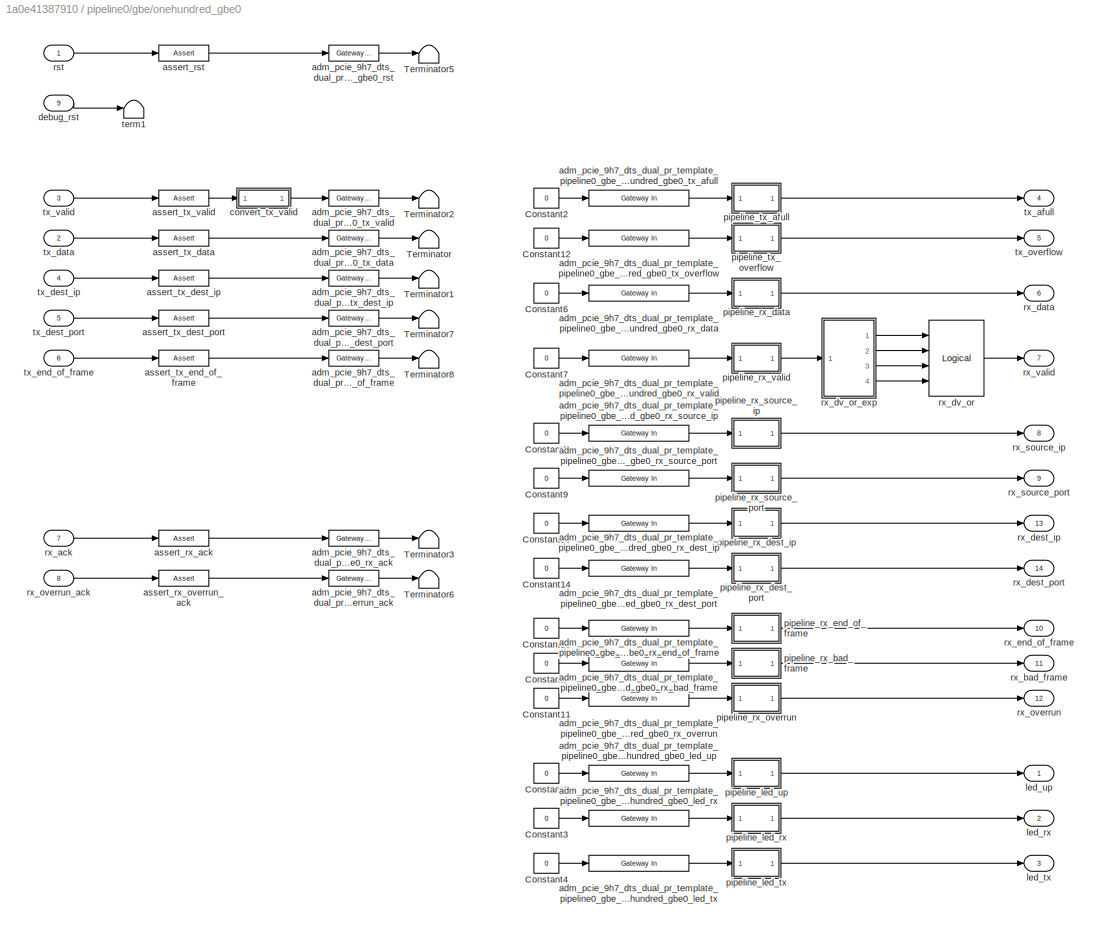
BLOCK [SubSystem] pipeline0/gbe/onehundred_gbe0
  AncestorBlock = xps_library/IO/onehundred_gbe
  AttributesFormatString = incoming_latency=0
  Ports = [9, 14]
  RequestExecContextInheritance = off
  Tag = xps:onehundred_gbe
BLOCK [Constant] pipeline0/gbe/onehundred_gbe0/Constant1
  Value = 0
BLOCK [Constant] pipeline0/gbe/onehundred_gbe0/Constant10
  Value = 0
BLOCK [Constant] pipeline0/gbe/onehundred_gbe0/Constant11
  Value = 0
BLOCK [Constant] pipeline0/gbe/onehundred_gbe0/Constant12
  Value = 0
BLOCK [Constant] pipeline0/gbe/onehundred_gbe0/Constant13
  Value = 0
BLOCK [Constant] pipeline0/gbe/onehundred_gbe0/Constant14
  Value = 0
BLOCK [Constant] pipeline0/gbe/onehundred_gbe0/Constant2
  Value = 0
BLOCK [Constant] pipeline0/gbe/onehundred_gbe0/Constant3
  Value = 0
BLOCK [Constant] pipeline0/gbe/onehundred_gbe0/Constant4
  Value = 0
BLOCK [Constant] pipeline0/gbe/onehundred_gbe0/Constant5
  Value = 0
BLOCK [Constant] pipeline0/gbe/onehundred_gbe0/Constant6
  Value = 0
BLOCK [Constant] pipeline0/gbe/onehundred_gbe0/Constant7
  Value = 0
BLOCK [Constant] pipeline0/gbe/onehundred_gbe0/Constant8
  Value = 0
BLOCK [Constant] pipeline0/gbe/onehundred_gbe0/Constant9
  Value = 0
BLOCK [Terminator] pipeline0/gbe/onehundred_gbe0/Terminator
BLOCK [Terminator] pipeline0/gbe/onehundred_gbe0/Terminator1
BLOCK [Terminator] pipeline0/gbe/onehundred_gbe0/Terminator2
BLOCK [Terminator] pipeline0/gbe/onehundred_gbe0/Terminator3
BLOCK [Terminator] pipeline0/gbe/onehundred_gbe0/Terminator5
BLOCK [Terminator] pipeline0/gbe/onehundred_gbe0/Terminator6
BLOCK [Terminator] pipeline0/gbe/onehundred_gbe0/Terminator7
BLOCK [Terminator] pipeline0/gbe/onehundred_gbe0/Terminator8
BLOCK [Reference] pipeline0/gbe/onehundred_gbe0/adm_pcie_9h7_dts_dual_pr_template_pipeline0_gbe_onehundred_gbe0_led_rx  REF=xbsIndex_r4/Gateway In
  Ports = [1, 1]
  SourceBlock = xbsIndex_r4/Gateway In
  SourceType = Xilinx Gateway In Block
BLOCK [Reference] pipeline0/gbe/onehundred_gbe0/adm_pcie_9h7_dts_dual_pr_template_pipeline0_gbe_onehundred_gbe0_led_tx  REF=xbsIndex_r4/Gateway In
  Ports = [1, 1]
  SourceBlock = xbsIndex_r4/Gateway In
  SourceType = Xilinx Gateway In Block
BLOCK [Reference] pipeline0/gbe/onehundred_gbe0/adm_pcie_9h7_dts_dual_pr_template_pipeline0_gbe_onehundred_gbe0_led_up  REF=xbsIndex_r4/Gateway In
  Ports = [1, 1]
  SourceBlock = xbsIndex_r4/Gateway In
  SourceType = Xilinx Gateway In Block
BLOCK [Reference] pipeline0/gbe/onehundred_gbe0/adm_pcie_9h7_dts_dual_pr_template_pipeline0_gbe_onehundred_gbe0_rst  REF=xbsIndex_r4/Gateway Out
  Ports = [1, 1]
  SourceBlock = xbsIndex_r4/Gateway Out
  SourceType = Xilinx Gateway Out Block
BLOCK [Reference] pipeline0/gbe/onehundred_gbe0/adm_pcie_9h7_dts_dual_pr_template_pipeline0_gbe_onehundred_gbe0_rx_ack  REF=xbsIndex_r4/Gateway Out
  Ports = [1, 1]
  SourceBlock = xbsIndex_r4/Gateway Out
  SourceType = Xilinx Gateway Out Block
BLOCK [Reference] pipeline0/gbe/onehundred_gbe0/adm_pcie_9h7_dts_dual_pr_template_pipeline0_gbe_onehundred_gbe0_rx_bad_frame  REF=xbsIndex_r4/Gateway In
  Ports = [1, 1]
  SourceBlock = xbsIndex_r4/Gateway In
  SourceType = Xilinx Gateway In Block
BLOCK [Reference] pipeline0/gbe/onehundred_gbe0/adm_pcie_9h7_dts_dual_pr_template_pipeline0_gbe_onehundred_gbe0_rx_data  REF=xbsIndex_r4/Gateway In
  Ports = [1, 1]
  SourceBlock = xbsIndex_r4/Gateway In
  SourceType = Xilinx Gateway In Block
BLOCK [Reference] pipeline0/gbe/onehundred_gbe0/adm_pcie_9h7_dts_dual_pr_template_pipeline0_gbe_onehundred_gbe0_rx_dest_ip  REF=xbsIndex_r4/Gateway In
  Ports = [1, 1]
  SourceBlock = xbsIndex_r4/Gateway In
  SourceType = Xilinx Gateway In Block
BLOCK [Reference] pipeline0/gbe/onehundred_gbe0/adm_pcie_9h7_dts_dual_pr_template_pipeline0_gbe_onehundred_gbe0_rx_dest_port  REF=xbsIndex_r4/Gateway In
  Ports = [1, 1]
  SourceBlock = xbsIndex_r4/Gateway In
  SourceType = Xilinx Gateway In Block
BLOCK [Reference] pipeline0/gbe/onehundred_gbe0/adm_pcie_9h7_dts_dual_pr_template_pipeline0_gbe_onehundred_gbe0_rx_end_of_frame  REF=xbsIndex_r4/Gateway In
  Ports = [1, 1]
  SourceBlock = xbsIndex_r4/Gateway In
  SourceType = Xilinx Gateway In Block
BLOCK [Reference] pipeline0/gbe/onehundred_gbe0/adm_pcie_9h7_dts_dual_pr_template_pipeline0_gbe_onehundred_gbe0_rx_overrun  REF=xbsIndex_r4/Gateway In
  Ports = [1, 1]
  SourceBlock = xbsIndex_r4/Gateway In
  SourceType = Xilinx Gateway In Block
BLOCK [Reference] pipeline0/gbe/onehundred_gbe0/adm_pcie_9h7_dts_dual_pr_template_pipeline0_gbe_onehundred_gbe0_rx_overrun_ack  REF=xbsIndex_r4/Gateway Out
  Ports = [1, 1]
  SourceBlock = xbsIndex_r4/Gateway Out
  SourceType = Xilinx Gateway Out Block
BLOCK [Reference] pipeline0/gbe/onehundred_gbe0/adm_pcie_9h7_dts_dual_pr_template_pipeline0_gbe_onehundred_gbe0_rx_source_ip  REF=xbsIndex_r4/Gateway In
  Ports = [1, 1]
  SourceBlock = xbsIndex_r4/Gateway In
  SourceType = Xilinx Gateway In Block
BLOCK [Reference] pipeline0/gbe/onehundred_gbe0/adm_pcie_9h7_dts_dual_pr_template_pipeline0_gbe_onehundred_gbe0_rx_source_port  REF=xbsIndex_r4/Gateway In
  Ports = [1, 1]
  SourceBlock = xbsIndex_r4/Gateway In
  SourceType = Xilinx Gateway In Block
BLOCK [Reference] pipeline0/gbe/onehundred_gbe0/adm_pcie_9h7_dts_dual_pr_template_pipeline0_gbe_onehundred_gbe0_rx_valid  REF=xbsIndex_r4/Gateway In
  Ports = [1, 1]
  SourceBlock = xbsIndex_r4/Gateway In
  SourceType = Xilinx Gateway In Block
BLOCK [Reference] pipeline0/gbe/onehundred_gbe0/adm_pcie_9h7_dts_dual_pr_template_pipeline0_gbe_onehundred_gbe0_tx_afull  REF=xbsIndex_r4/Gateway In
  Ports = [1, 1]
  SourceBlock = xbsIndex_r4/Gateway In
  SourceType = Xilinx Gateway In Block
BLOCK [Reference] pipeline0/gbe/onehundred_gbe0/adm_pcie_9h7_dts_dual_pr_template_pipeline0_gbe_onehundred_gbe0_tx_data  REF=xbsIndex_r4/Gateway Out
  Ports = [1, 1]
  SourceBlock = xbsIndex_r4/Gateway Out
  SourceType = Xilinx Gateway Out Block
BLOCK [Reference] pipeline0/gbe/onehundred_gbe0/adm_pcie_9h7_dts_dual_pr_template_pipeline0_gbe_onehundred_gbe0_tx_dest_ip  REF=xbsIndex_r4/Gateway Out
  Ports = [1, 1]
  SourceBlock = xbsIndex_r4/Gateway Out
  SourceType = Xilinx Gateway Out Block
BLOCK [Reference] pipeline0/gbe/onehundred_gbe0/adm_pcie_9h7_dts_dual_pr_template_pipeline0_gbe_onehundred_gbe0_tx_dest_port  REF=xbsIndex_r4/Gateway Out
  Ports = [1, 1]
  SourceBlock = xbsIndex_r4/Gateway Out
  SourceType = Xilinx Gateway Out Block
BLOCK [Reference] pipeline0/gbe/onehundred_gbe0/adm_pcie_9h7_dts_dual_pr_template_pipeline0_gbe_onehundred_gbe0_tx_end_of_frame  REF=xbsIndex_r4/Gateway Out
  Ports = [1, 1]
  SourceBlock = xbsIndex_r4/Gateway Out
  SourceType = Xilinx Gateway Out Block
BLOCK [Reference] pipeline0/gbe/onehundred_gbe0/adm_pcie_9h7_dts_dual_pr_template_pipeline0_gbe_onehundred_gbe0_tx_overflow  REF=xbsIndex_r4/Gateway In
  Ports = [1, 1]
  SourceBlock = xbsIndex_r4/Gateway In
  SourceType = Xilinx Gateway In Block
BLOCK [Reference] pipeline0/gbe/onehundred_gbe0/adm_pcie_9h7_dts_dual_pr_template_pipeline0_gbe_onehundred_gbe0_tx_valid  REF=xbsIndex_r4/Gateway Out
  Ports = [1, 1]
  SourceBlock = xbsIndex_r4/Gateway Out
  SourceType = Xilinx Gateway Out Block
BLOCK [Reference] pipeline0/gbe/onehundred_gbe0/assert_rst  REF=xbsIndex_r4/Assert
  Ports = [1, 1]
  SourceBlock = xbsIndex_r4/Assert
  SourceType = Xilinx Assert Block
BLOCK [Reference] pipeline0/gbe/onehundred_gbe0/assert_rx_ack  REF=xbsIndex_r4/Assert
  Ports = [1, 1]
  SourceBlock = xbsIndex_r4/Assert
  SourceType = Xilinx Assert Block
BLOCK [Reference] pipeline0/gbe/onehundred_gbe0/assert_rx_overrun_ack  REF=xbsIndex_r4/Assert
  Ports = [1, 1]
  SourceBlock = xbsIndex_r4/Assert
  SourceType = Xilinx Assert Block
BLOCK [Reference] pipeline0/gbe/onehundred_gbe0/assert_tx_data  REF=xbsIndex_r4/Assert
  Ports = [1, 1]
  SourceBlock = xbsIndex_r4/Assert
  SourceType = Xilinx Assert Block
BLOCK [Reference] pipeline0/gbe/onehundred_gbe0/assert_tx_dest_ip  REF=xbsIndex_r4/Assert
  Ports = [1, 1]
  SourceBlock = xbsIndex_r4/Assert
  SourceType = Xilinx Assert Block
BLOCK [Reference] pipeline0/gbe/onehundred_gbe0/assert_tx_dest_port  REF=xbsIndex_r4/Assert
  Ports = [1, 1]
  SourceBlock = xbsIndex_r4/Assert
  SourceType = Xilinx Assert Block
BLOCK [Reference] pipeline0/gbe/onehundred_gbe0/assert_tx_end_of_frame  REF=xbsIndex_r4/Assert
  Ports = [1, 1]
  SourceBlock = xbsIndex_r4/Assert
  SourceType = Xilinx Assert Block
BLOCK [Reference] pipeline0/gbe/onehundred_gbe0/assert_tx_valid  REF=xbsIndex_r4/Assert
  Ports = [1, 1]
  SourceBlock = xbsIndex_r4/Assert
  SourceType = Xilinx Assert Block
BLOCK [SubSystem] pipeline0/gbe/onehundred_gbe0/convert_tx_valid
  AncestorBlock = casper_library_bus/bus_replicate
  Ports = [1, 1]
  RequestExecContextInheritance = off
  UserDataPersistent = on
BLOCK [SubSystem] pipeline0/gbe/onehundred_gbe0/convert_tx_valid/bussify
  AncestorBlock = casper_library_flow_control/bus_create
  Ports = [4, 1]
  RequestExecContextInheritance = off
  UserDataPersistent = on
BLOCK [Outport] pipeline0/gbe/onehundred_gbe0/convert_tx_valid/bussify/bus_out
  IconDisplay = Port number
BLOCK [Reference] pipeline0/gbe/onehundred_gbe0/convert_tx_valid/bussify/concatenate  REF=xbsIndex_r4/Concat
  Ports = [4, 1]
  SourceBlock = xbsIndex_r4/Concat
  SourceType = Xilinx Bus Concatenator Block
BLOCK [Inport] pipeline0/gbe/onehundred_gbe0/convert_tx_valid/bussify/in1
  IconDisplay = Port number
BLOCK [Inport] pipeline0/gbe/onehundred_gbe0/convert_tx_valid/bussify/in2
  IconDisplay = Port number
  Port = 2
BLOCK [Inport] pipeline0/gbe/onehundred_gbe0/convert_tx_valid/bussify/in3
  IconDisplay = Port number
  Port = 3
BLOCK [Inport] pipeline0/gbe/onehundred_gbe0/convert_tx_valid/bussify/in4
  IconDisplay = Port number
  Port = 4
BLOCK [Reference] pipeline0/gbe/onehundred_gbe0/convert_tx_valid/bussify/reinterpret1  REF=xbsIndex_r4/Reinterpret
  Ports = [1, 1]
  SourceBlock = xbsIndex_r4/Reinterpret
  SourceType = Xilinx Type Reinterpreter Block
BLOCK [Reference] pipeline0/gbe/onehundred_gbe0/convert_tx_valid/bussify/reinterpret2  REF=xbsIndex_r4/Reinterpret
  Ports = [1, 1]
  SourceBlock = xbsIndex_r4/Reinterpret
  SourceType = Xilinx Type Reinterpreter Block
BLOCK [Reference] pipeline0/gbe/onehundred_gbe0/convert_tx_valid/bussify/reinterpret3  REF=xbsIndex_r4/Reinterpret
  Ports = [1, 1]
  SourceBlock = xbsIndex_r4/Reinterpret
  SourceType = Xilinx Type Reinterpreter Block
BLOCK [Reference] pipeline0/gbe/onehundred_gbe0/convert_tx_valid/bussify/reinterpret4  REF=xbsIndex_r4/Reinterpret
  Ports = [1, 1]
  SourceBlock = xbsIndex_r4/Reinterpret
  SourceType = Xilinx Type Reinterpreter Block
BLOCK [Inport] pipeline0/gbe/onehundred_gbe0/convert_tx_valid/in
  IconDisplay = Port number
BLOCK [Outport] pipeline0/gbe/onehundred_gbe0/convert_tx_valid/out
  IconDisplay = Port number
BLOCK [Inport] pipeline0/gbe/onehundred_gbe0/debug_rst
  IconDisplay = Port number
  Port = 9
BLOCK [Outport] pipeline0/gbe/onehundred_gbe0/led_rx
  IconDisplay = Port number
  Port = 2
BLOCK [Outport] pipeline0/gbe/onehundred_gbe0/led_tx
  IconDisplay = Port number
  Port = 3
BLOCK [Outport] pipeline0/gbe/onehundred_gbe0/led_up
  IconDisplay = Port number
BLOCK [SubSystem] pipeline0/gbe/onehundred_gbe0/pipeline_led_rx
  AncestorBlock = casper_library_delays/pipeline
  AttributesFormatString = Latency = %<latency>
  Ports = [1, 1]
  RequestExecContextInheritance = off
  UserDataPersistent = on
BLOCK [Inport] pipeline0/gbe/onehundred_gbe0/pipeline_led_rx/d
  IconDisplay = Port number
BLOCK [Outport] pipeline0/gbe/onehundred_gbe0/pipeline_led_rx/q
  IconDisplay = Port number
BLOCK [SubSystem] pipeline0/gbe/onehundred_gbe0/pipeline_led_tx
  AncestorBlock = casper_library_delays/pipeline
  AttributesFormatString = Latency = %<latency>
  Ports = [1, 1]
  RequestExecContextInheritance = off
  UserDataPersistent = on
BLOCK [Inport] pipeline0/gbe/onehundred_gbe0/pipeline_led_tx/d
  IconDisplay = Port number
BLOCK [Outport] pipeline0/gbe/onehundred_gbe0/pipeline_led_tx/q
  IconDisplay = Port number
BLOCK [SubSystem] pipeline0/gbe/onehundred_gbe0/pipeline_led_up
  AncestorBlock = casper_library_delays/pipeline
  AttributesFormatString = Latency = %<latency>
  Ports = [1, 1]
  RequestExecContextInheritance = off
  UserDataPersistent = on
BLOCK [Inport] pipeline0/gbe/onehundred_gbe0/pipeline_led_up/d
  IconDisplay = Port number
BLOCK [Outport] pipeline0/gbe/onehundred_gbe0/pipeline_led_up/q
  IconDisplay = Port number
BLOCK [SubSystem] pipeline0/gbe/onehundred_gbe0/pipeline_rx_bad_frame
  AncestorBlock = casper_library_delays/pipeline
  AttributesFormatString = Latency = %<latency>
  Ports = [1, 1]
  RequestExecContextInheritance = off
  UserDataPersistent = on
BLOCK [Inport] pipeline0/gbe/onehundred_gbe0/pipeline_rx_bad_frame/d
  IconDisplay = Port number
BLOCK [Outport] pipeline0/gbe/onehundred_gbe0/pipeline_rx_bad_frame/q
  IconDisplay = Port number
BLOCK [SubSystem] pipeline0/gbe/onehundred_gbe0/pipeline_rx_data
  AncestorBlock = casper_library_delays/pipeline
  AttributesFormatString = Latency = %<latency>
  Ports = [1, 1]
  RequestExecContextInheritance = off
  UserDataPersistent = on
BLOCK [Inport] pipeline0/gbe/onehundred_gbe0/pipeline_rx_data/d
  IconDisplay = Port number
BLOCK [Outport] pipeline0/gbe/onehundred_gbe0/pipeline_rx_data/q
  IconDisplay = Port number
BLOCK [SubSystem] pipeline0/gbe/onehundred_gbe0/pipeline_rx_dest_ip
  AncestorBlock = casper_library_delays/pipeline
  AttributesFormatString = Latency = %<latency>
  Ports = [1, 1]
  RequestExecContextInheritance = off
  UserDataPersistent = on
BLOCK [Inport] pipeline0/gbe/onehundred_gbe0/pipeline_rx_dest_ip/d
  IconDisplay = Port number
BLOCK [Outport] pipeline0/gbe/onehundred_gbe0/pipeline_rx_dest_ip/q
  IconDisplay = Port number
BLOCK [SubSystem] pipeline0/gbe/onehundred_gbe0/pipeline_rx_dest_port
  AncestorBlock = casper_library_delays/pipeline
  AttributesFormatString = Latency = %<latency>
  Ports = [1, 1]
  RequestExecContextInheritance = off
  UserDataPersistent = on
BLOCK [Inport] pipeline0/gbe/onehundred_gbe0/pipeline_rx_dest_port/d
  IconDisplay = Port number
BLOCK [Outport] pipeline0/gbe/onehundred_gbe0/pipeline_rx_dest_port/q
  IconDisplay = Port number
BLOCK [SubSystem] pipeline0/gbe/onehundred_gbe0/pipeline_rx_end_of_frame
  AncestorBlock = casper_library_delays/pipeline
  AttributesFormatString = Latency = %<latency>
  Ports = [1, 1]
  RequestExecContextInheritance = off
  UserDataPersistent = on
BLOCK [Inport] pipeline0/gbe/onehundred_gbe0/pipeline_rx_end_of_frame/d
  IconDisplay = Port number
BLOCK [Outport] pipeline0/gbe/onehundred_gbe0/pipeline_rx_end_of_frame/q
  IconDisplay = Port number
BLOCK [SubSystem] pipeline0/gbe/onehundred_gbe0/pipeline_rx_overrun
  AncestorBlock = casper_library_delays/pipeline
  AttributesFormatString = Latency = %<latency>
  Ports = [1, 1]
  RequestExecContextInheritance = off
  UserDataPersistent = on
BLOCK [Inport] pipeline0/gbe/onehundred_gbe0/pipeline_rx_overrun/d
  IconDisplay = Port number
BLOCK [Outport] pipeline0/gbe/onehundred_gbe0/pipeline_rx_overrun/q
  IconDisplay = Port number
BLOCK [SubSystem] pipeline0/gbe/onehundred_gbe0/pipeline_rx_source_ip
  AncestorBlock = casper_library_delays/pipeline
  AttributesFormatString = Latency = %<latency>
  Ports = [1, 1]
  RequestExecContextInheritance = off
  UserDataPersistent = on
BLOCK [Inport] pipeline0/gbe/onehundred_gbe0/pipeline_rx_source_ip/d
  IconDisplay = Port number
BLOCK [Outport] pipeline0/gbe/onehundred_gbe0/pipeline_rx_source_ip/q
  IconDisplay = Port number
BLOCK [SubSystem] pipeline0/gbe/onehundred_gbe0/pipeline_rx_source_port
  AncestorBlock = casper_library_delays/pipeline
  AttributesFormatString = Latency = %<latency>
  Ports = [1, 1]
  RequestExecContextInheritance = off
  UserDataPersistent = on
BLOCK [Inport] pipeline0/gbe/onehundred_gbe0/pipeline_rx_source_port/d
  IconDisplay = Port number
BLOCK [Outport] pipeline0/gbe/onehundred_gbe0/pipeline_rx_source_port/q
  IconDisplay = Port number
BLOCK [SubSystem] pipeline0/gbe/onehundred_gbe0/pipeline_rx_valid
  AncestorBlock = casper_library_delays/pipeline
  AttributesFormatString = Latency = %<latency>
  Ports = [1, 1]
  RequestExecContextInheritance = off
  UserDataPersistent = on
BLOCK [Inport] pipeline0/gbe/onehundred_gbe0/pipeline_rx_valid/d
  IconDisplay = Port number
BLOCK [Outport] pipeline0/gbe/onehundred_gbe0/pipeline_rx_valid/q
  IconDisplay = Port number
BLOCK [SubSystem] pipeline0/gbe/onehundred_gbe0/pipeline_tx_afull
  AncestorBlock = casper_library_delays/pipeline
  AttributesFormatString = Latency = %<latency>
  Ports = [1, 1]
  RequestExecContextInheritance = off
  UserDataPersistent = on
BLOCK [Inport] pipeline0/gbe/onehundred_gbe0/pipeline_tx_afull/d
  IconDisplay = Port number
BLOCK [Outport] pipeline0/gbe/onehundred_gbe0/pipeline_tx_afull/q
  IconDisplay = Port number
BLOCK [SubSystem] pipeline0/gbe/onehundred_gbe0/pipeline_tx_overflow
  AncestorBlock = casper_library_delays/pipeline
  AttributesFormatString = Latency = %<latency>
  Ports = [1, 1]
  RequestExecContextInheritance = off
  UserDataPersistent = on
BLOCK [Inport] pipeline0/gbe/onehundred_gbe0/pipeline_tx_overflow/d
  IconDisplay = Port number
BLOCK [Outport] pipeline0/gbe/onehundred_gbe0/pipeline_tx_overflow/q
  IconDisplay = Port number
BLOCK [Inport] pipeline0/gbe/onehundred_gbe0/rst
  IconDisplay = Port number
BLOCK [Inport] pipeline0/gbe/onehundred_gbe0/rx_ack
  IconDisplay = Port number
  Port = 7
BLOCK [Outport] pipeline0/gbe/onehundred_gbe0/rx_bad_frame
  IconDisplay = Port number
  Port = 11
BLOCK [Outport] pipeline0/gbe/onehundred_gbe0/rx_data
  IconDisplay = Port number
  Port = 6
BLOCK [Outport] pipeline0/gbe/onehundred_gbe0/rx_dest_ip
  IconDisplay = Port number
  Port = 13
BLOCK [Outport] pipeline0/gbe/onehundred_gbe0/rx_dest_port
  IconDisplay = Port number
  Port = 14
BLOCK [Reference] pipeline0/gbe/onehundred_gbe0/rx_dv_or  REF=xbsIndex_r4/Logical
  Ports = [4, 1]
  SourceBlock = xbsIndex_r4/Logical
  SourceType = Xilinx Logical Block Block
BLOCK [SubSystem] pipeline0/gbe/onehundred_gbe0/rx_dv_or_exp
  AncestorBlock = casper_library_flow_control/bus_expand
  AttributesFormatString = 4 outputs
  Ports = [1, 4]
  RequestExecContextInheritance = off
  UserDataPersistent = on
BLOCK [Inport] pipeline0/gbe/onehundred_gbe0/rx_dv_or_exp/bus_in
  IconDisplay = Port number
BLOCK [Outport] pipeline0/gbe/onehundred_gbe0/rx_dv_or_exp/lsb_out1
  IconDisplay = Port number
  Port = 4
BLOCK [Outport] pipeline0/gbe/onehundred_gbe0/rx_dv_or_exp/msb_out4
  IconDisplay = Port number
BLOCK [Outport] pipeline0/gbe/onehundred_gbe0/rx_dv_or_exp/out2
  IconDisplay = Port number
  Port = 3
BLOCK [Outport] pipeline0/gbe/onehundred_gbe0/rx_dv_or_exp/out3
  IconDisplay = Port number
  Port = 2
BLOCK [Reference] pipeline0/gbe/onehundred_gbe0/rx_dv_or_exp/slice1  REF=xbsIndex_r4/Slice
  Ports = [1, 1]
  SourceBlock = xbsIndex_r4/Slice
  SourceType = Xilinx Bit Slice Extractor Block
BLOCK [Reference] pipeline0/gbe/onehundred_gbe0/rx_dv_or_exp/slice2  REF=xbsIndex_r4/Slice
  Ports = [1, 1]
  SourceBlock = xbsIndex_r4/Slice
  SourceType = Xilinx Bit Slice Extractor Block
BLOCK [Reference] pipeline0/gbe/onehundred_gbe0/rx_dv_or_exp/slice3  REF=xbsIndex_r4/Slice
  Ports = [1, 1]
  SourceBlock = xbsIndex_r4/Slice
  SourceType = Xilinx Bit Slice Extractor Block
BLOCK [Reference] pipeline0/gbe/onehundred_gbe0/rx_dv_or_exp/slice4  REF=xbsIndex_r4/Slice
  Ports = [1, 1]
  SourceBlock = xbsIndex_r4/Slice
  SourceType = Xilinx Bit Slice Extractor Block
BLOCK [Outport] pipeline0/gbe/onehundred_gbe0/rx_end_of_frame
  IconDisplay = Port number
  Port = 10
BLOCK [Outport] pipeline0/gbe/onehundred_gbe0/rx_overrun
  IconDisplay = Port number
  Port = 12
BLOCK [Inport] pipeline0/gbe/onehundred_gbe0/rx_overrun_ack
  IconDisplay = Port number
  Port = 8
BLOCK [Outport] pipeline0/gbe/onehundred_gbe0/rx_source_ip
  IconDisplay = Port number
  Port = 8
BLOCK [Outport] pipeline0/gbe/onehundred_gbe0/rx_source_port
  IconDisplay = Port number
  Port = 9
BLOCK [Outport] pipeline0/gbe/onehundred_gbe0/rx_valid
  IconDisplay = Port number
  Port = 7
BLOCK [Terminator] pipeline0/gbe/onehundred_gbe0/term1
BLOCK [Outport] pipeline0/gbe/onehundred_gbe0/tx_afull
  IconDisplay = Port number
  Port = 4
BLOCK [Inport] pipeline0/gbe/onehundred_gbe0/tx_data
  IconDisplay = Port number
  Port = 2
BLOCK [Inport] pipeline0/gbe/onehundred_gbe0/tx_dest_ip
  IconDisplay = Port number
  Port = 4
BLOCK [Inport] pipeline0/gbe/onehundred_gbe0/tx_dest_port
  IconDisplay = Port number
  Port = 5
BLOCK [Inport] pipeline0/gbe/onehundred_gbe0/tx_end_of_frame
  IconDisplay = Port number
  Port = 6
BLOCK [Outport] pipeline0/gbe/onehundred_gbe0/tx_overflow
  IconDisplay = Port number
  Port = 5
BLOCK [Inport] pipeline0/gbe/onehundred_gbe0/tx_valid
  IconDisplay = Port number
  Port = 3
BLOCK [SubSystem] pipeline1
  Ports = [1]
  RequestExecContextInheritance = off
BLOCK [Inport] pipeline1/In1
  IconDisplay = Port number
BLOCK [SubSystem] pipeline1/dts
  Ports = [1]
  RequestExecContextInheritance = off
BLOCK [SubSystem] pipeline1/dts/dts
  Ports = [1, 6]
  RequestExecContextInheritance = off
  Tag = xps:vla_dts
BLOCK [Constant] pipeline1/dts/dts/Constant1
  Value = 0
BLOCK [Constant] pipeline1/dts/dts/Constant12
  Value = 0
BLOCK [Constant] pipeline1/dts/dts/Constant2
  Value = 0
BLOCK [Constant] pipeline1/dts/dts/Constant3
  Value = 0
BLOCK [Constant] pipeline1/dts/dts/Constant4
  Value = 0
BLOCK [Constant] pipeline1/dts/dts/Constant5
  Value = 0
BLOCK [Terminator] pipeline1/dts/dts/Terminator5
BLOCK [Reference] pipeline1/dts/dts/adm_pcie_9h7_dts_dual_pr_template_pipeline1_dts_dts_frame_out  REF=xbsIndex_r4/Gateway In
  Ports = [1, 1]
  SourceBlock = xbsIndex_r4/Gateway In
  SourceType = Xilinx Gateway In Block
BLOCK [Reference] pipeline1/dts/dts/adm_pcie_9h7_dts_dual_pr_template_pipeline1_dts_dts_index  REF=xbsIndex_r4/Gateway In
  Ports = [1, 1]
  SourceBlock = xbsIndex_r4/Gateway In
  SourceType = Xilinx Gateway In Block
BLOCK [Reference] pipeline1/dts/dts/adm_pcie_9h7_dts_dual_pr_template_pipeline1_dts_dts_locked  REF=xbsIndex_r4/Gateway In
  Ports = [1, 1]
  SourceBlock = xbsIndex_r4/Gateway In
  SourceType = Xilinx Gateway In Block
BLOCK [Reference] pipeline1/dts/dts/adm_pcie_9h7_dts_dual_pr_template_pipeline1_dts_dts_one_sec  REF=xbsIndex_r4/Gateway In
  Ports = [1, 1]
  SourceBlock = xbsIndex_r4/Gateway In
  SourceType = Xilinx Gateway In Block
BLOCK [Reference] pipeline1/dts/dts/adm_pcie_9h7_dts_dual_pr_template_pipeline1_dts_dts_rst  REF=xbsIndex_r4/Gateway Out
  Ports = [1, 1]
  SourceBlock = xbsIndex_r4/Gateway Out
  SourceType = Xilinx Gateway Out Block
BLOCK [Reference] pipeline1/dts/dts/adm_pcie_9h7_dts_dual_pr_template_pipeline1_dts_dts_sync  REF=xbsIndex_r4/Gateway In
  Ports = [1, 1]
  SourceBlock = xbsIndex_r4/Gateway In
  SourceType = Xilinx Gateway In Block
BLOCK [Reference] pipeline1/dts/dts/adm_pcie_9h7_dts_dual_pr_template_pipeline1_dts_dts_ten_sec  REF=xbsIndex_r4/Gateway In
  Ports = [1, 1]
  SourceBlock = xbsIndex_r4/Gateway In
  SourceType = Xilinx Gateway In Block
BLOCK [Reference] pipeline1/dts/dts/assert_rst  REF=xbsIndex_r4/Assert
  Ports = [1, 1]
  SourceBlock = xbsIndex_r4/Assert
  SourceType = Xilinx Assert Block
BLOCK [Outport] pipeline1/dts/dts/frame_out
  IconDisplay = Port number
BLOCK [Outport] pipeline1/dts/dts/index
  IconDisplay = Port number
  Port = 2
BLOCK [Outport] pipeline1/dts/dts/locked
  IconDisplay = Port number
  Port = 5
BLOCK [Outport] pipeline1/dts/dts/one_sec
  IconDisplay = Port number
  Port = 3
BLOCK [Inport] pipeline1/dts/dts/rst
  IconDisplay = Port number
BLOCK [Outport] pipeline1/dts/dts/sync
  IconDisplay = Port number
  Port = 6
BLOCK [Outport] pipeline1/dts/dts/ten_sec
  IconDisplay = Port number
  Port = 4
BLOCK [Inport] pipeline1/dts/rst
  IconDisplay = Port number
BLOCK [SubSystem] pipeline1/dts/stats
  Ports = [6]
  RequestExecContextInheritance = off
BLOCK [Reference] pipeline1/dts/stats/Constant  REF=xbsIndex_r4/Constant
  Ports = [0, 1]
  SourceBlock = xbsIndex_r4/Constant
  SourceType = Xilinx Constant Block Block
BLOCK [Reference] pipeline1/dts/stats/Constant1  REF=xbsIndex_r4/Constant
  Ports = [0, 1]
  SourceBlock = xbsIndex_r4/Constant
  SourceType = Xilinx Constant Block Block
BLOCK [Reference] pipeline1/dts/stats/Constant2  REF=xbsIndex_r4/Constant
  Ports = [0, 1]
  SourceBlock = xbsIndex_r4/Constant
  SourceType = Xilinx Constant Block Block
BLOCK [Reference] pipeline1/dts/stats/Constant3  REF=xbsIndex_r4/Constant
  Ports = [0, 1]
  SourceBlock = xbsIndex_r4/Constant
  SourceType = Xilinx Constant Block Block
BLOCK [Reference] pipeline1/dts/stats/Convert  REF=xbsIndex_r4/Convert
  Ports = [1, 1]
  SourceBlock = xbsIndex_r4/Convert
  SourceType = Xilinx Type Converter Block
BLOCK [Reference] pipeline1/dts/stats/Convert1  REF=xbsIndex_r4/Convert
  Ports = [1, 1]
  SourceBlock = xbsIndex_r4/Convert
  SourceType = Xilinx Type Converter Block
BLOCK [Reference] pipeline1/dts/stats/Counter1  REF=xbsIndex_r4/Counter
  Ports = [1, 1]
  SourceBlock = xbsIndex_r4/Counter
  SourceType = Xilinx Counter Block
BLOCK [Reference] pipeline1/dts/stats/Counter2  REF=xbsIndex_r4/Counter
  Ports = [1, 1]
  SourceBlock = xbsIndex_r4/Counter
  SourceType = Xilinx Counter Block
BLOCK [Reference] pipeline1/dts/stats/Delay1  REF=xbsIndex_r4/Delay
  Ports = [1, 1]
  SourceBlock = xbsIndex_r4/Delay
  SourceType = Xilinx Delay Block
BLOCK [Reference] pipeline1/dts/stats/Delay2  REF=xbsIndex_r4/Delay
  Ports = [1, 1]
  SourceBlock = xbsIndex_r4/Delay
  SourceType = Xilinx Delay Block
BLOCK [Reference] pipeline1/dts/stats/Delay3  REF=xbsIndex_r4/Delay
  Ports = [1, 1]
  SourceBlock = xbsIndex_r4/Delay
  SourceType = Xilinx Delay Block
BLOCK [Reference] pipeline1/dts/stats/Slice1  REF=xbsIndex_r4/Slice
  Ports = [1, 1]
  SourceBlock = xbsIndex_r4/Slice
  SourceType = Xilinx Bit Slice Extractor Block
BLOCK [Reference] pipeline1/dts/stats/Slice2  REF=xbsIndex_r4/Slice
  Ports = [1, 1]
  SourceBlock = xbsIndex_r4/Slice
  SourceType = Xilinx Bit Slice Extractor Block
BLOCK [SubSystem] pipeline1/dts/stats/data_ss
  Ports = [1]
  RequestExecContextInheritance = off
BLOCK [Reference] pipeline1/dts/stats/data_ss/Constant  REF=xbsIndex_r4/Constant
  Ports = [0, 1]
  SourceBlock = xbsIndex_r4/Constant
  SourceType = Xilinx Constant Block Block
BLOCK [Reference] pipeline1/dts/stats/data_ss/Constant1  REF=xbsIndex_r4/Constant
  Ports = [0, 1]
  SourceBlock = xbsIndex_r4/Constant
  SourceType = Xilinx Constant Block Block
BLOCK [Reference] pipeline1/dts/stats/data_ss/Constant2  REF=xbsIndex_r4/Constant
  Ports = [0, 1]
  SourceBlock = xbsIndex_r4/Constant
  SourceType = Xilinx Constant Block Block
BLOCK [Reference] pipeline1/dts/stats/data_ss/Constant3  REF=xbsIndex_r4/Constant
  Ports = [0, 1]
  SourceBlock = xbsIndex_r4/Constant
  SourceType = Xilinx Constant Block Block
BLOCK [Reference] pipeline1/dts/stats/data_ss/Constant4  REF=xbsIndex_r4/Constant
  Ports = [0, 1]
  SourceBlock = xbsIndex_r4/Constant
  SourceType = Xilinx Constant Block Block
BLOCK [Reference] pipeline1/dts/stats/data_ss/Constant5  REF=xbsIndex_r4/Constant
  Ports = [0, 1]
  SourceBlock = xbsIndex_r4/Constant
  SourceType = Xilinx Constant Block Block
BLOCK [Reference] pipeline1/dts/stats/data_ss/Constant6  REF=xbsIndex_r4/Constant
  Ports = [0, 1]
  SourceBlock = xbsIndex_r4/Constant
  SourceType = Xilinx Constant Block Block
BLOCK [Reference] pipeline1/dts/stats/data_ss/Constant7  REF=xbsIndex_r4/Constant
  Ports = [0, 1]
  SourceBlock = xbsIndex_r4/Constant
  SourceType = Xilinx Constant Block Block
BLOCK [Inport] pipeline1/dts/stats/data_ss/In1
  IconDisplay = Port number
BLOCK [SubSystem] pipeline1/dts/stats/data_ss/bus_convert
  AncestorBlock = casper_library_bus/bus_convert
  Ports = [1, 1]
  RequestExecContextInheritance = off
  UserDataPersistent = on
BLOCK [SubSystem] pipeline1/dts/stats/data_ss/bus_convert/bussify
  AncestorBlock = casper_library_flow_control/bus_create
  Ports = [8, 1]
  RequestExecContextInheritance = off
  UserDataPersistent = on
BLOCK [Outport] pipeline1/dts/stats/data_ss/bus_convert/bussify/bus_out
  IconDisplay = Port number
BLOCK [Reference] pipeline1/dts/stats/data_ss/bus_convert/bussify/concatenate  REF=xbsIndex_r4/Concat
  Ports = [8, 1]
  SourceBlock = xbsIndex_r4/Concat
  SourceType = Xilinx Bus Concatenator Block
BLOCK [Inport] pipeline1/dts/stats/data_ss/bus_convert/bussify/in1
  IconDisplay = Port number
BLOCK [Inport] pipeline1/dts/stats/data_ss/bus_convert/bussify/in2
  IconDisplay = Port number
  Port = 2
BLOCK [Inport] pipeline1/dts/stats/data_ss/bus_convert/bussify/in3
  IconDisplay = Port number
  Port = 3
BLOCK [Inport] pipeline1/dts/stats/data_ss/bus_convert/bussify/in4
  IconDisplay = Port number
  Port = 4
BLOCK [Inport] pipeline1/dts/stats/data_ss/bus_convert/bussify/in5
  IconDisplay = Port number
  Port = 5
BLOCK [Inport] pipeline1/dts/stats/data_ss/bus_convert/bussify/in6
  IconDisplay = Port number
  Port = 6
BLOCK [Inport] pipeline1/dts/stats/data_ss/bus_convert/bussify/in7
  IconDisplay = Port number
  Port = 7
BLOCK [Inport] pipeline1/dts/stats/data_ss/bus_convert/bussify/in8
  IconDisplay = Port number
  Port = 8
BLOCK [Reference] pipeline1/dts/stats/data_ss/bus_convert/bussify/reinterpret1  REF=xbsIndex_r4/Reinterpret
  Ports = [1, 1]
  SourceBlock = xbsIndex_r4/Reinterpret
  SourceType = Xilinx Type Reinterpreter Block
BLOCK [Reference] pipeline1/dts/stats/data_ss/bus_convert/bussify/reinterpret2  REF=xbsIndex_r4/Reinterpret
  Ports = [1, 1]
  SourceBlock = xbsIndex_r4/Reinterpret
  SourceType = Xilinx Type Reinterpreter Block
BLOCK [Reference] pipeline1/dts/stats/data_ss/bus_convert/bussify/reinterpret3  REF=xbsIndex_r4/Reinterpret
  Ports = [1, 1]
  SourceBlock = xbsIndex_r4/Reinterpret
  SourceType = Xilinx Type Reinterpreter Block
BLOCK [Reference] pipeline1/dts/stats/data_ss/bus_convert/bussify/reinterpret4  REF=xbsIndex_r4/Reinterpret
  Ports = [1, 1]
  SourceBlock = xbsIndex_r4/Reinterpret
  SourceType = Xilinx Type Reinterpreter Block
BLOCK [Reference] pipeline1/dts/stats/data_ss/bus_convert/bussify/reinterpret5  REF=xbsIndex_r4/Reinterpret
  Ports = [1, 1]
  SourceBlock = xbsIndex_r4/Reinterpret
  SourceType = Xilinx Type Reinterpreter Block
BLOCK [Reference] pipeline1/dts/stats/data_ss/bus_convert/bussify/reinterpret6  REF=xbsIndex_r4/Reinterpret
  Ports = [1, 1]
  SourceBlock = xbsIndex_r4/Reinterpret
  SourceType = Xilinx Type Reinterpreter Block
BLOCK [Reference] pipeline1/dts/stats/data_ss/bus_convert/bussify/reinterpret7  REF=xbsIndex_r4/Reinterpret
  Ports = [1, 1]
  SourceBlock = xbsIndex_r4/Reinterpret
  SourceType = Xilinx Type Reinterpreter Block
BLOCK [Reference] pipeline1/dts/stats/data_ss/bus_convert/bussify/reinterpret8  REF=xbsIndex_r4/Reinterpret
  Ports = [1, 1]
  SourceBlock = xbsIndex_r4/Reinterpret
  SourceType = Xilinx Type Reinterpreter Block
BLOCK [Reference] pipeline1/dts/stats/data_ss/bus_convert/conv1  REF=xbsIndex_r4/Convert
  Ports = [1, 1]
  SourceBlock = xbsIndex_r4/Convert
  SourceType = Xilinx Type Converter Block
BLOCK [Reference] pipeline1/dts/stats/data_ss/bus_convert/conv2  REF=xbsIndex_r4/Convert
  Ports = [1, 1]
  SourceBlock = xbsIndex_r4/Convert
  SourceType = Xilinx Type Converter Block
BLOCK [Reference] pipeline1/dts/stats/data_ss/bus_convert/conv3  REF=xbsIndex_r4/Convert
  Ports = [1, 1]
  SourceBlock = xbsIndex_r4/Convert
  SourceType = Xilinx Type Converter Block
BLOCK [Reference] pipeline1/dts/stats/data_ss/bus_convert/conv4  REF=xbsIndex_r4/Convert
  Ports = [1, 1]
  SourceBlock = xbsIndex_r4/Convert
  SourceType = Xilinx Type Converter Block
BLOCK [Reference] pipeline1/dts/stats/data_ss/bus_convert/conv5  REF=xbsIndex_r4/Convert
  Ports = [1, 1]
  SourceBlock = xbsIndex_r4/Convert
  SourceType = Xilinx Type Converter Block
BLOCK [Reference] pipeline1/dts/stats/data_ss/bus_convert/conv6  REF=xbsIndex_r4/Convert
  Ports = [1, 1]
  SourceBlock = xbsIndex_r4/Convert
  SourceType = Xilinx Type Converter Block
BLOCK [Reference] pipeline1/dts/stats/data_ss/bus_convert/conv7  REF=xbsIndex_r4/Convert
  Ports = [1, 1]
  SourceBlock = xbsIndex_r4/Convert
  SourceType = Xilinx Type Converter Block
BLOCK [Reference] pipeline1/dts/stats/data_ss/bus_convert/conv8  REF=xbsIndex_r4/Convert
  Ports = [1, 1]
  SourceBlock = xbsIndex_r4/Convert
  SourceType = Xilinx Type Converter Block
BLOCK [SubSystem] pipeline1/dts/stats/data_ss/bus_convert/debus
  AncestorBlock = casper_library_flow_control/bus_expand
  AttributesFormatString = 8 outputs: f12.0,f12.0,f12.0,f12.0,f12.0,f12.0,f12.0,f12.0,
  Ports = [1, 8]
  RequestExecContextInheritance = off
  UserDataPersistent = on
BLOCK [Inport] pipeline1/dts/stats/data_ss/bus_convert/debus/bus_in
  IconDisplay = Port number
BLOCK [Outport] pipeline1/dts/stats/data_ss/bus_convert/debus/lsb_out1
  IconDisplay = Port number
  Port = 8
BLOCK [Outport] pipeline1/dts/stats/data_ss/bus_convert/debus/msb_out8
  IconDisplay = Port number
BLOCK [Outport] pipeline1/dts/stats/data_ss/bus_convert/debus/out2
  IconDisplay = Port number
  Port = 7
BLOCK [Outport] pipeline1/dts/stats/data_ss/bus_convert/debus/out3
  IconDisplay = Port number
  Port = 6
BLOCK [Outport] pipeline1/dts/stats/data_ss/bus_convert/debus/out4
  IconDisplay = Port number
  Port = 5
BLOCK [Outport] pipeline1/dts/stats/data_ss/bus_convert/debus/out5
  IconDisplay = Port number
  Port = 4
BLOCK [Outport] pipeline1/dts/stats/data_ss/bus_convert/debus/out6
  IconDisplay = Port number
  Port = 3
BLOCK [Outport] pipeline1/dts/stats/data_ss/bus_convert/debus/out7
  IconDisplay = Port number
  Port = 2
BLOCK [Reference] pipeline1/dts/stats/data_ss/bus_convert/debus/reinterpret1  REF=xbsIndex_r4/Reinterpret
  Ports = [1, 1]
  SourceBlock = xbsIndex_r4/Reinterpret
  SourceType = Xilinx Type Reinterpreter Block
BLOCK [Reference] pipeline1/dts/stats/data_ss/bus_convert/debus/reinterpret2  REF=xbsIndex_r4/Reinterpret
  Ports = [1, 1]
  SourceBlock = xbsIndex_r4/Reinterpret
  SourceType = Xilinx Type Reinterpreter Block
BLOCK [Reference] pipeline1/dts/stats/data_ss/bus_convert/debus/reinterpret3  REF=xbsIndex_r4/Reinterpret
  Ports = [1, 1]
  SourceBlock = xbsIndex_r4/Reinterpret
  SourceType = Xilinx Type Reinterpreter Block
BLOCK [Reference] pipeline1/dts/stats/data_ss/bus_convert/debus/reinterpret4  REF=xbsIndex_r4/Reinterpret
  Ports = [1, 1]
  SourceBlock = xbsIndex_r4/Reinterpret
  SourceType = Xilinx Type Reinterpreter Block
BLOCK [Reference] pipeline1/dts/stats/data_ss/bus_convert/debus/reinterpret5  REF=xbsIndex_r4/Reinterpret
  Ports = [1, 1]
  SourceBlock = xbsIndex_r4/Reinterpret
  SourceType = Xilinx Type Reinterpreter Block
BLOCK [Reference] pipeline1/dts/stats/data_ss/bus_convert/debus/reinterpret6  REF=xbsIndex_r4/Reinterpret
  Ports = [1, 1]
  SourceBlock = xbsIndex_r4/Reinterpret
  SourceType = Xilinx Type Reinterpreter Block
BLOCK [Reference] pipeline1/dts/stats/data_ss/bus_convert/debus/reinterpret7  REF=xbsIndex_r4/Reinterpret
  Ports = [1, 1]
  SourceBlock = xbsIndex_r4/Reinterpret
  SourceType = Xilinx Type Reinterpreter Block
BLOCK [Reference] pipeline1/dts/stats/data_ss/bus_convert/debus/reinterpret8  REF=xbsIndex_r4/Reinterpret
  Ports = [1, 1]
  SourceBlock = xbsIndex_r4/Reinterpret
  SourceType = Xilinx Type Reinterpreter Block
BLOCK [Reference] pipeline1/dts/stats/data_ss/bus_convert/debus/slice1  REF=xbsIndex_r4/Slice
  Ports = [1, 1]
  SourceBlock = xbsIndex_r4/Slice
  SourceType = Xilinx Bit Slice Extractor Block
BLOCK [Reference] pipeline1/dts/stats/data_ss/bus_convert/debus/slice2  REF=xbsIndex_r4/Slice
  Ports = [1, 1]
  SourceBlock = xbsIndex_r4/Slice
  SourceType = Xilinx Bit Slice Extractor Block
BLOCK [Reference] pipeline1/dts/stats/data_ss/bus_convert/debus/slice3  REF=xbsIndex_r4/Slice
  Ports = [1, 1]
  SourceBlock = xbsIndex_r4/Slice
  SourceType = Xilinx Bit Slice Extractor Block
BLOCK [Reference] pipeline1/dts/stats/data_ss/bus_convert/debus/slice4  REF=xbsIndex_r4/Slice
  Ports = [1, 1]
  SourceBlock = xbsIndex_r4/Slice
  SourceType = Xilinx Bit Slice Extractor Block
BLOCK [Reference] pipeline1/dts/stats/data_ss/bus_convert/debus/slice5  REF=xbsIndex_r4/Slice
  Ports = [1, 1]
  SourceBlock = xbsIndex_r4/Slice
  SourceType = Xilinx Bit Slice Extractor Block
BLOCK [Reference] pipeline1/dts/stats/data_ss/bus_convert/debus/slice6  REF=xbsIndex_r4/Slice
  Ports = [1, 1]
  SourceBlock = xbsIndex_r4/Slice
  SourceType = Xilinx Bit Slice Extractor Block
BLOCK [Reference] pipeline1/dts/stats/data_ss/bus_convert/debus/slice7  REF=xbsIndex_r4/Slice
  Ports = [1, 1]
  SourceBlock = xbsIndex_r4/Slice
  SourceType = Xilinx Bit Slice Extractor Block
BLOCK [Reference] pipeline1/dts/stats/data_ss/bus_convert/debus/slice8  REF=xbsIndex_r4/Slice
  Ports = [1, 1]
  SourceBlock = xbsIndex_r4/Slice
  SourceType = Xilinx Bit Slice Extractor Block
BLOCK [Inport] pipeline1/dts/stats/data_ss/bus_convert/din
  IconDisplay = Port number
BLOCK [Outport] pipeline1/dts/stats/data_ss/bus_convert/dout
  IconDisplay = Port number
BLOCK [SubSystem] pipeline1/dts/stats/data_ss/bus_convert1
  AncestorBlock = casper_library_bus/bus_convert
  Ports = [1, 1]
  RequestExecContextInheritance = off
  UserDataPersistent = on
BLOCK [SubSystem] pipeline1/dts/stats/data_ss/bus_convert1/bussify
  AncestorBlock = casper_library_flow_control/bus_create
  Ports = [8, 1]
  RequestExecContextInheritance = off
  UserDataPersistent = on
BLOCK [Outport] pipeline1/dts/stats/data_ss/bus_convert1/bussify/bus_out
  IconDisplay = Port number
BLOCK [Reference] pipeline1/dts/stats/data_ss/bus_convert1/bussify/concatenate  REF=xbsIndex_r4/Concat
  Ports = [8, 1]
  SourceBlock = xbsIndex_r4/Concat
  SourceType = Xilinx Bus Concatenator Block
BLOCK [Inport] pipeline1/dts/stats/data_ss/bus_convert1/bussify/in1
  IconDisplay = Port number
BLOCK [Inport] pipeline1/dts/stats/data_ss/bus_convert1/bussify/in2
  IconDisplay = Port number
  Port = 2
BLOCK [Inport] pipeline1/dts/stats/data_ss/bus_convert1/bussify/in3
  IconDisplay = Port number
  Port = 3
BLOCK [Inport] pipeline1/dts/stats/data_ss/bus_convert1/bussify/in4
  IconDisplay = Port number
  Port = 4
BLOCK [Inport] pipeline1/dts/stats/data_ss/bus_convert1/bussify/in5
  IconDisplay = Port number
  Port = 5
BLOCK [Inport] pipeline1/dts/stats/data_ss/bus_convert1/bussify/in6
  IconDisplay = Port number
  Port = 6
BLOCK [Inport] pipeline1/dts/stats/data_ss/bus_convert1/bussify/in7
  IconDisplay = Port number
  Port = 7
BLOCK [Inport] pipeline1/dts/stats/data_ss/bus_convert1/bussify/in8
  IconDisplay = Port number
  Port = 8
BLOCK [Reference] pipeline1/dts/stats/data_ss/bus_convert1/bussify/reinterpret1  REF=xbsIndex_r4/Reinterpret
  Ports = [1, 1]
  SourceBlock = xbsIndex_r4/Reinterpret
  SourceType = Xilinx Type Reinterpreter Block
BLOCK [Reference] pipeline1/dts/stats/data_ss/bus_convert1/bussify/reinterpret2  REF=xbsIndex_r4/Reinterpret
  Ports = [1, 1]
  SourceBlock = xbsIndex_r4/Reinterpret
  SourceType = Xilinx Type Reinterpreter Block
BLOCK [Reference] pipeline1/dts/stats/data_ss/bus_convert1/bussify/reinterpret3  REF=xbsIndex_r4/Reinterpret
  Ports = [1, 1]
  SourceBlock = xbsIndex_r4/Reinterpret
  SourceType = Xilinx Type Reinterpreter Block
BLOCK [Reference] pipeline1/dts/stats/data_ss/bus_convert1/bussify/reinterpret4  REF=xbsIndex_r4/Reinterpret
  Ports = [1, 1]
  SourceBlock = xbsIndex_r4/Reinterpret
  SourceType = Xilinx Type Reinterpreter Block
BLOCK [Reference] pipeline1/dts/stats/data_ss/bus_convert1/bussify/reinterpret5  REF=xbsIndex_r4/Reinterpret
  Ports = [1, 1]
  SourceBlock = xbsIndex_r4/Reinterpret
  SourceType = Xilinx Type Reinterpreter Block
BLOCK [Reference] pipeline1/dts/stats/data_ss/bus_convert1/bussify/reinterpret6  REF=xbsIndex_r4/Reinterpret
  Ports = [1, 1]
  SourceBlock = xbsIndex_r4/Reinterpret
  SourceType = Xilinx Type Reinterpreter Block
BLOCK [Reference] pipeline1/dts/stats/data_ss/bus_convert1/bussify/reinterpret7  REF=xbsIndex_r4/Reinterpret
  Ports = [1, 1]
  SourceBlock = xbsIndex_r4/Reinterpret
  SourceType = Xilinx Type Reinterpreter Block
BLOCK [Reference] pipeline1/dts/stats/data_ss/bus_convert1/bussify/reinterpret8  REF=xbsIndex_r4/Reinterpret
  Ports = [1, 1]
  SourceBlock = xbsIndex_r4/Reinterpret
  SourceType = Xilinx Type Reinterpreter Block
BLOCK [Reference] pipeline1/dts/stats/data_ss/bus_convert1/conv1  REF=xbsIndex_r4/Convert
  Ports = [1, 1]
  SourceBlock = xbsIndex_r4/Convert
  SourceType = Xilinx Type Converter Block
BLOCK [Reference] pipeline1/dts/stats/data_ss/bus_convert1/conv2  REF=xbsIndex_r4/Convert
  Ports = [1, 1]
  SourceBlock = xbsIndex_r4/Convert
  SourceType = Xilinx Type Converter Block
BLOCK [Reference] pipeline1/dts/stats/data_ss/bus_convert1/conv3  REF=xbsIndex_r4/Convert
  Ports = [1, 1]
  SourceBlock = xbsIndex_r4/Convert
  SourceType = Xilinx Type Converter Block
BLOCK [Reference] pipeline1/dts/stats/data_ss/bus_convert1/conv4  REF=xbsIndex_r4/Convert
  Ports = [1, 1]
  SourceBlock = xbsIndex_r4/Convert
  SourceType = Xilinx Type Converter Block
BLOCK [Reference] pipeline1/dts/stats/data_ss/bus_convert1/conv5  REF=xbsIndex_r4/Convert
  Ports = [1, 1]
  SourceBlock = xbsIndex_r4/Convert
  SourceType = Xilinx Type Converter Block
BLOCK [Reference] pipeline1/dts/stats/data_ss/bus_convert1/conv6  REF=xbsIndex_r4/Convert
  Ports = [1, 1]
  SourceBlock = xbsIndex_r4/Convert
  SourceType = Xilinx Type Converter Block
BLOCK [Reference] pipeline1/dts/stats/data_ss/bus_convert1/conv7  REF=xbsIndex_r4/Convert
  Ports = [1, 1]
  SourceBlock = xbsIndex_r4/Convert
  SourceType = Xilinx Type Converter Block
BLOCK [Reference] pipeline1/dts/stats/data_ss/bus_convert1/conv8  REF=xbsIndex_r4/Convert
  Ports = [1, 1]
  SourceBlock = xbsIndex_r4/Convert
  SourceType = Xilinx Type Converter Block
BLOCK [SubSystem] pipeline1/dts/stats/data_ss/bus_convert1/debus
  AncestorBlock = casper_library_flow_control/bus_expand
  AttributesFormatString = 8 outputs: f12.0,f12.0,f12.0,f12.0,f12.0,f12.0,f12.0,f12.0,
  Ports = [1, 8]
  RequestExecContextInheritance = off
  UserDataPersistent = on
BLOCK [Inport] pipeline1/dts/stats/data_ss/bus_convert1/debus/bus_in
  IconDisplay = Port number
BLOCK [Outport] pipeline1/dts/stats/data_ss/bus_convert1/debus/lsb_out1
  IconDisplay = Port number
  Port = 8
BLOCK [Outport] pipeline1/dts/stats/data_ss/bus_convert1/debus/msb_out8
  IconDisplay = Port number
BLOCK [Outport] pipeline1/dts/stats/data_ss/bus_convert1/debus/out2
  IconDisplay = Port number
  Port = 7
BLOCK [Outport] pipeline1/dts/stats/data_ss/bus_convert1/debus/out3
  IconDisplay = Port number
  Port = 6
BLOCK [Outport] pipeline1/dts/stats/data_ss/bus_convert1/debus/out4
  IconDisplay = Port number
  Port = 5
BLOCK [Outport] pipeline1/dts/stats/data_ss/bus_convert1/debus/out5
  IconDisplay = Port number
  Port = 4
BLOCK [Outport] pipeline1/dts/stats/data_ss/bus_convert1/debus/out6
  IconDisplay = Port number
  Port = 3
BLOCK [Outport] pipeline1/dts/stats/data_ss/bus_convert1/debus/out7
  IconDisplay = Port number
  Port = 2
BLOCK [Reference] pipeline1/dts/stats/data_ss/bus_convert1/debus/reinterpret1  REF=xbsIndex_r4/Reinterpret
  Ports = [1, 1]
  SourceBlock = xbsIndex_r4/Reinterpret
  SourceType = Xilinx Type Reinterpreter Block
BLOCK [Reference] pipeline1/dts/stats/data_ss/bus_convert1/debus/reinterpret2  REF=xbsIndex_r4/Reinterpret
  Ports = [1, 1]
  SourceBlock = xbsIndex_r4/Reinterpret
  SourceType = Xilinx Type Reinterpreter Block
BLOCK [Reference] pipeline1/dts/stats/data_ss/bus_convert1/debus/reinterpret3  REF=xbsIndex_r4/Reinterpret
  Ports = [1, 1]
  SourceBlock = xbsIndex_r4/Reinterpret
  SourceType = Xilinx Type Reinterpreter Block
BLOCK [Reference] pipeline1/dts/stats/data_ss/bus_convert1/debus/reinterpret4  REF=xbsIndex_r4/Reinterpret
  Ports = [1, 1]
  SourceBlock = xbsIndex_r4/Reinterpret
  SourceType = Xilinx Type Reinterpreter Block
BLOCK [Reference] pipeline1/dts/stats/data_ss/bus_convert1/debus/reinterpret5  REF=xbsIndex_r4/Reinterpret
  Ports = [1, 1]
  SourceBlock = xbsIndex_r4/Reinterpret
  SourceType = Xilinx Type Reinterpreter Block
BLOCK [Reference] pipeline1/dts/stats/data_ss/bus_convert1/debus/reinterpret6  REF=xbsIndex_r4/Reinterpret
  Ports = [1, 1]
  SourceBlock = xbsIndex_r4/Reinterpret
  SourceType = Xilinx Type Reinterpreter Block
BLOCK [Reference] pipeline1/dts/stats/data_ss/bus_convert1/debus/reinterpret7  REF=xbsIndex_r4/Reinterpret
  Ports = [1, 1]
  SourceBlock = xbsIndex_r4/Reinterpret
  SourceType = Xilinx Type Reinterpreter Block
BLOCK [Reference] pipeline1/dts/stats/data_ss/bus_convert1/debus/reinterpret8  REF=xbsIndex_r4/Reinterpret
  Ports = [1, 1]
  SourceBlock = xbsIndex_r4/Reinterpret
  SourceType = Xilinx Type Reinterpreter Block
BLOCK [Reference] pipeline1/dts/stats/data_ss/bus_convert1/debus/slice1  REF=xbsIndex_r4/Slice
  Ports = [1, 1]
  SourceBlock = xbsIndex_r4/Slice
  SourceType = Xilinx Bit Slice Extractor Block
BLOCK [Reference] pipeline1/dts/stats/data_ss/bus_convert1/debus/slice2  REF=xbsIndex_r4/Slice
  Ports = [1, 1]
  SourceBlock = xbsIndex_r4/Slice
  SourceType = Xilinx Bit Slice Extractor Block
BLOCK [Reference] pipeline1/dts/stats/data_ss/bus_convert1/debus/slice3  REF=xbsIndex_r4/Slice
  Ports = [1, 1]
  SourceBlock = xbsIndex_r4/Slice
  SourceType = Xilinx Bit Slice Extractor Block
BLOCK [Reference] pipeline1/dts/stats/data_ss/bus_convert1/debus/slice4  REF=xbsIndex_r4/Slice
  Ports = [1, 1]
  SourceBlock = xbsIndex_r4/Slice
  SourceType = Xilinx Bit Slice Extractor Block
BLOCK [Reference] pipeline1/dts/stats/data_ss/bus_convert1/debus/slice5  REF=xbsIndex_r4/Slice
  Ports = [1, 1]
  SourceBlock = xbsIndex_r4/Slice
  SourceType = Xilinx Bit Slice Extractor Block
BLOCK [Reference] pipeline1/dts/stats/data_ss/bus_convert1/debus/slice6  REF=xbsIndex_r4/Slice
  Ports = [1, 1]
  SourceBlock = xbsIndex_r4/Slice
  SourceType = Xilinx Bit Slice Extractor Block
BLOCK [Reference] pipeline1/dts/stats/data_ss/bus_convert1/debus/slice7  REF=xbsIndex_r4/Slice
  Ports = [1, 1]
  SourceBlock = xbsIndex_r4/Slice
  SourceType = Xilinx Bit Slice Extractor Block
BLOCK [Reference] pipeline1/dts/stats/data_ss/bus_convert1/debus/slice8  REF=xbsIndex_r4/Slice
  Ports = [1, 1]
  SourceBlock = xbsIndex_r4/Slice
  SourceType = Xilinx Bit Slice Extractor Block
BLOCK [Inport] pipeline1/dts/stats/data_ss/bus_convert1/din
  IconDisplay = Port number
BLOCK [Outport] pipeline1/dts/stats/data_ss/bus_convert1/dout
  IconDisplay = Port number
BLOCK [SubSystem] pipeline1/dts/stats/data_ss/bus_convert2
  AncestorBlock = casper_library_bus/bus_convert
  Ports = [1, 1]
  RequestExecContextInheritance = off
  UserDataPersistent = on
BLOCK [SubSystem] pipeline1/dts/stats/data_ss/bus_convert2/bussify
  AncestorBlock = casper_library_flow_control/bus_create
  Ports = [8, 1]
  RequestExecContextInheritance = off
  UserDataPersistent = on
BLOCK [Outport] pipeline1/dts/stats/data_ss/bus_convert2/bussify/bus_out
  IconDisplay = Port number
BLOCK [Reference] pipeline1/dts/stats/data_ss/bus_convert2/bussify/concatenate  REF=xbsIndex_r4/Concat
  Ports = [8, 1]
  SourceBlock = xbsIndex_r4/Concat
  SourceType = Xilinx Bus Concatenator Block
BLOCK [Inport] pipeline1/dts/stats/data_ss/bus_convert2/bussify/in1
  IconDisplay = Port number
BLOCK [Inport] pipeline1/dts/stats/data_ss/bus_convert2/bussify/in2
  IconDisplay = Port number
  Port = 2
BLOCK [Inport] pipeline1/dts/stats/data_ss/bus_convert2/bussify/in3
  IconDisplay = Port number
  Port = 3
BLOCK [Inport] pipeline1/dts/stats/data_ss/bus_convert2/bussify/in4
  IconDisplay = Port number
  Port = 4
BLOCK [Inport] pipeline1/dts/stats/data_ss/bus_convert2/bussify/in5
  IconDisplay = Port number
  Port = 5
BLOCK [Inport] pipeline1/dts/stats/data_ss/bus_convert2/bussify/in6
  IconDisplay = Port number
  Port = 6
BLOCK [Inport] pipeline1/dts/stats/data_ss/bus_convert2/bussify/in7
  IconDisplay = Port number
  Port = 7
BLOCK [Inport] pipeline1/dts/stats/data_ss/bus_convert2/bussify/in8
  IconDisplay = Port number
  Port = 8
BLOCK [Reference] pipeline1/dts/stats/data_ss/bus_convert2/bussify/reinterpret1  REF=xbsIndex_r4/Reinterpret
  Ports = [1, 1]
  SourceBlock = xbsIndex_r4/Reinterpret
  SourceType = Xilinx Type Reinterpreter Block
BLOCK [Reference] pipeline1/dts/stats/data_ss/bus_convert2/bussify/reinterpret2  REF=xbsIndex_r4/Reinterpret
  Ports = [1, 1]
  SourceBlock = xbsIndex_r4/Reinterpret
  SourceType = Xilinx Type Reinterpreter Block
BLOCK [Reference] pipeline1/dts/stats/data_ss/bus_convert2/bussify/reinterpret3  REF=xbsIndex_r4/Reinterpret
  Ports = [1, 1]
  SourceBlock = xbsIndex_r4/Reinterpret
  SourceType = Xilinx Type Reinterpreter Block
BLOCK [Reference] pipeline1/dts/stats/data_ss/bus_convert2/bussify/reinterpret4  REF=xbsIndex_r4/Reinterpret
  Ports = [1, 1]
  SourceBlock = xbsIndex_r4/Reinterpret
  SourceType = Xilinx Type Reinterpreter Block
BLOCK [Reference] pipeline1/dts/stats/data_ss/bus_convert2/bussify/reinterpret5  REF=xbsIndex_r4/Reinterpret
  Ports = [1, 1]
  SourceBlock = xbsIndex_r4/Reinterpret
  SourceType = Xilinx Type Reinterpreter Block
BLOCK [Reference] pipeline1/dts/stats/data_ss/bus_convert2/bussify/reinterpret6  REF=xbsIndex_r4/Reinterpret
  Ports = [1, 1]
  SourceBlock = xbsIndex_r4/Reinterpret
  SourceType = Xilinx Type Reinterpreter Block
BLOCK [Reference] pipeline1/dts/stats/data_ss/bus_convert2/bussify/reinterpret7  REF=xbsIndex_r4/Reinterpret
  Ports = [1, 1]
  SourceBlock = xbsIndex_r4/Reinterpret
  SourceType = Xilinx Type Reinterpreter Block
BLOCK [Reference] pipeline1/dts/stats/data_ss/bus_convert2/bussify/reinterpret8  REF=xbsIndex_r4/Reinterpret
  Ports = [1, 1]
  SourceBlock = xbsIndex_r4/Reinterpret
  SourceType = Xilinx Type Reinterpreter Block
BLOCK [Reference] pipeline1/dts/stats/data_ss/bus_convert2/conv1  REF=xbsIndex_r4/Convert
  Ports = [1, 1]
  SourceBlock = xbsIndex_r4/Convert
  SourceType = Xilinx Type Converter Block
BLOCK [Reference] pipeline1/dts/stats/data_ss/bus_convert2/conv2  REF=xbsIndex_r4/Convert
  Ports = [1, 1]
  SourceBlock = xbsIndex_r4/Convert
  SourceType = Xilinx Type Converter Block
BLOCK [Reference] pipeline1/dts/stats/data_ss/bus_convert2/conv3  REF=xbsIndex_r4/Convert
  Ports = [1, 1]
  SourceBlock = xbsIndex_r4/Convert
  SourceType = Xilinx Type Converter Block
BLOCK [Reference] pipeline1/dts/stats/data_ss/bus_convert2/conv4  REF=xbsIndex_r4/Convert
  Ports = [1, 1]
  SourceBlock = xbsIndex_r4/Convert
  SourceType = Xilinx Type Converter Block
BLOCK [Reference] pipeline1/dts/stats/data_ss/bus_convert2/conv5  REF=xbsIndex_r4/Convert
  Ports = [1, 1]
  SourceBlock = xbsIndex_r4/Convert
  SourceType = Xilinx Type Converter Block
BLOCK [Reference] pipeline1/dts/stats/data_ss/bus_convert2/conv6  REF=xbsIndex_r4/Convert
  Ports = [1, 1]
  SourceBlock = xbsIndex_r4/Convert
  SourceType = Xilinx Type Converter Block
BLOCK [Reference] pipeline1/dts/stats/data_ss/bus_convert2/conv7  REF=xbsIndex_r4/Convert
  Ports = [1, 1]
  SourceBlock = xbsIndex_r4/Convert
  SourceType = Xilinx Type Converter Block
BLOCK [Reference] pipeline1/dts/stats/data_ss/bus_convert2/conv8  REF=xbsIndex_r4/Convert
  Ports = [1, 1]
  SourceBlock = xbsIndex_r4/Convert
  SourceType = Xilinx Type Converter Block
BLOCK [SubSystem] pipeline1/dts/stats/data_ss/bus_convert2/debus
  AncestorBlock = casper_library_flow_control/bus_expand
  AttributesFormatString = 8 outputs: f12.0,f12.0,f12.0,f12.0,f12.0,f12.0,f12.0,f12.0,
  Ports = [1, 8]
  RequestExecContextInheritance = off
  UserDataPersistent = on
BLOCK [Inport] pipeline1/dts/stats/data_ss/bus_convert2/debus/bus_in
  IconDisplay = Port number
BLOCK [Outport] pipeline1/dts/stats/data_ss/bus_convert2/debus/lsb_out1
  IconDisplay = Port number
  Port = 8
BLOCK [Outport] pipeline1/dts/stats/data_ss/bus_convert2/debus/msb_out8
  IconDisplay = Port number
BLOCK [Outport] pipeline1/dts/stats/data_ss/bus_convert2/debus/out2
  IconDisplay = Port number
  Port = 7
BLOCK [Outport] pipeline1/dts/stats/data_ss/bus_convert2/debus/out3
  IconDisplay = Port number
  Port = 6
BLOCK [Outport] pipeline1/dts/stats/data_ss/bus_convert2/debus/out4
  IconDisplay = Port number
  Port = 5
BLOCK [Outport] pipeline1/dts/stats/data_ss/bus_convert2/debus/out5
  IconDisplay = Port number
  Port = 4
BLOCK [Outport] pipeline1/dts/stats/data_ss/bus_convert2/debus/out6
  IconDisplay = Port number
  Port = 3
BLOCK [Outport] pipeline1/dts/stats/data_ss/bus_convert2/debus/out7
  IconDisplay = Port number
  Port = 2
BLOCK [Reference] pipeline1/dts/stats/data_ss/bus_convert2/debus/reinterpret1  REF=xbsIndex_r4/Reinterpret
  Ports = [1, 1]
  SourceBlock = xbsIndex_r4/Reinterpret
  SourceType = Xilinx Type Reinterpreter Block
BLOCK [Reference] pipeline1/dts/stats/data_ss/bus_convert2/debus/reinterpret2  REF=xbsIndex_r4/Reinterpret
  Ports = [1, 1]
  SourceBlock = xbsIndex_r4/Reinterpret
  SourceType = Xilinx Type Reinterpreter Block
BLOCK [Reference] pipeline1/dts/stats/data_ss/bus_convert2/debus/reinterpret3  REF=xbsIndex_r4/Reinterpret
  Ports = [1, 1]
  SourceBlock = xbsIndex_r4/Reinterpret
  SourceType = Xilinx Type Reinterpreter Block
BLOCK [Reference] pipeline1/dts/stats/data_ss/bus_convert2/debus/reinterpret4  REF=xbsIndex_r4/Reinterpret
  Ports = [1, 1]
  SourceBlock = xbsIndex_r4/Reinterpret
  SourceType = Xilinx Type Reinterpreter Block
BLOCK [Reference] pipeline1/dts/stats/data_ss/bus_convert2/debus/reinterpret5  REF=xbsIndex_r4/Reinterpret
  Ports = [1, 1]
  SourceBlock = xbsIndex_r4/Reinterpret
  SourceType = Xilinx Type Reinterpreter Block
BLOCK [Reference] pipeline1/dts/stats/data_ss/bus_convert2/debus/reinterpret6  REF=xbsIndex_r4/Reinterpret
  Ports = [1, 1]
  SourceBlock = xbsIndex_r4/Reinterpret
  SourceType = Xilinx Type Reinterpreter Block
BLOCK [Reference] pipeline1/dts/stats/data_ss/bus_convert2/debus/reinterpret7  REF=xbsIndex_r4/Reinterpret
  Ports = [1, 1]
  SourceBlock = xbsIndex_r4/Reinterpret
  SourceType = Xilinx Type Reinterpreter Block
BLOCK [Reference] pipeline1/dts/stats/data_ss/bus_convert2/debus/reinterpret8  REF=xbsIndex_r4/Reinterpret
  Ports = [1, 1]
  SourceBlock = xbsIndex_r4/Reinterpret
  SourceType = Xilinx Type Reinterpreter Block
BLOCK [Reference] pipeline1/dts/stats/data_ss/bus_convert2/debus/slice1  REF=xbsIndex_r4/Slice
  Ports = [1, 1]
  SourceBlock = xbsIndex_r4/Slice
  SourceType = Xilinx Bit Slice Extractor Block
BLOCK [Reference] pipeline1/dts/stats/data_ss/bus_convert2/debus/slice2  REF=xbsIndex_r4/Slice
  Ports = [1, 1]
  SourceBlock = xbsIndex_r4/Slice
  SourceType = Xilinx Bit Slice Extractor Block
BLOCK [Reference] pipeline1/dts/stats/data_ss/bus_convert2/debus/slice3  REF=xbsIndex_r4/Slice
  Ports = [1, 1]
  SourceBlock = xbsIndex_r4/Slice
  SourceType = Xilinx Bit Slice Extractor Block
BLOCK [Reference] pipeline1/dts/stats/data_ss/bus_convert2/debus/slice4  REF=xbsIndex_r4/Slice
  Ports = [1, 1]
  SourceBlock = xbsIndex_r4/Slice
  SourceType = Xilinx Bit Slice Extractor Block
BLOCK [Reference] pipeline1/dts/stats/data_ss/bus_convert2/debus/slice5  REF=xbsIndex_r4/Slice
  Ports = [1, 1]
  SourceBlock = xbsIndex_r4/Slice
  SourceType = Xilinx Bit Slice Extractor Block
BLOCK [Reference] pipeline1/dts/stats/data_ss/bus_convert2/debus/slice6  REF=xbsIndex_r4/Slice
  Ports = [1, 1]
  SourceBlock = xbsIndex_r4/Slice
  SourceType = Xilinx Bit Slice Extractor Block
BLOCK [Reference] pipeline1/dts/stats/data_ss/bus_convert2/debus/slice7  REF=xbsIndex_r4/Slice
  Ports = [1, 1]
  SourceBlock = xbsIndex_r4/Slice
  SourceType = Xilinx Bit Slice Extractor Block
BLOCK [Reference] pipeline1/dts/stats/data_ss/bus_convert2/debus/slice8  REF=xbsIndex_r4/Slice
  Ports = [1, 1]
  SourceBlock = xbsIndex_r4/Slice
  SourceType = Xilinx Bit Slice Extractor Block
BLOCK [Inport] pipeline1/dts/stats/data_ss/bus_convert2/din
  IconDisplay = Port number
BLOCK [Outport] pipeline1/dts/stats/data_ss/bus_convert2/dout
  IconDisplay = Port number
BLOCK [SubSystem] pipeline1/dts/stats/data_ss/bus_convert3
  AncestorBlock = casper_library_bus/bus_convert
  Ports = [1, 1]
  RequestExecContextInheritance = off
  UserDataPersistent = on
BLOCK [SubSystem] pipeline1/dts/stats/data_ss/bus_convert3/bussify
  AncestorBlock = casper_library_flow_control/bus_create
  Ports = [8, 1]
  RequestExecContextInheritance = off
  UserDataPersistent = on
BLOCK [Outport] pipeline1/dts/stats/data_ss/bus_convert3/bussify/bus_out
  IconDisplay = Port number
BLOCK [Reference] pipeline1/dts/stats/data_ss/bus_convert3/bussify/concatenate  REF=xbsIndex_r4/Concat
  Ports = [8, 1]
  SourceBlock = xbsIndex_r4/Concat
  SourceType = Xilinx Bus Concatenator Block
BLOCK [Inport] pipeline1/dts/stats/data_ss/bus_convert3/bussify/in1
  IconDisplay = Port number
BLOCK [Inport] pipeline1/dts/stats/data_ss/bus_convert3/bussify/in2
  IconDisplay = Port number
  Port = 2
BLOCK [Inport] pipeline1/dts/stats/data_ss/bus_convert3/bussify/in3
  IconDisplay = Port number
  Port = 3
BLOCK [Inport] pipeline1/dts/stats/data_ss/bus_convert3/bussify/in4
  IconDisplay = Port number
  Port = 4
BLOCK [Inport] pipeline1/dts/stats/data_ss/bus_convert3/bussify/in5
  IconDisplay = Port number
  Port = 5
BLOCK [Inport] pipeline1/dts/stats/data_ss/bus_convert3/bussify/in6
  IconDisplay = Port number
  Port = 6
BLOCK [Inport] pipeline1/dts/stats/data_ss/bus_convert3/bussify/in7
  IconDisplay = Port number
  Port = 7
BLOCK [Inport] pipeline1/dts/stats/data_ss/bus_convert3/bussify/in8
  IconDisplay = Port number
  Port = 8
BLOCK [Reference] pipeline1/dts/stats/data_ss/bus_convert3/bussify/reinterpret1  REF=xbsIndex_r4/Reinterpret
  Ports = [1, 1]
  SourceBlock = xbsIndex_r4/Reinterpret
  SourceType = Xilinx Type Reinterpreter Block
BLOCK [Reference] pipeline1/dts/stats/data_ss/bus_convert3/bussify/reinterpret2  REF=xbsIndex_r4/Reinterpret
  Ports = [1, 1]
  SourceBlock = xbsIndex_r4/Reinterpret
  SourceType = Xilinx Type Reinterpreter Block
BLOCK [Reference] pipeline1/dts/stats/data_ss/bus_convert3/bussify/reinterpret3  REF=xbsIndex_r4/Reinterpret
  Ports = [1, 1]
  SourceBlock = xbsIndex_r4/Reinterpret
  SourceType = Xilinx Type Reinterpreter Block
BLOCK [Reference] pipeline1/dts/stats/data_ss/bus_convert3/bussify/reinterpret4  REF=xbsIndex_r4/Reinterpret
  Ports = [1, 1]
  SourceBlock = xbsIndex_r4/Reinterpret
  SourceType = Xilinx Type Reinterpreter Block
BLOCK [Reference] pipeline1/dts/stats/data_ss/bus_convert3/bussify/reinterpret5  REF=xbsIndex_r4/Reinterpret
  Ports = [1, 1]
  SourceBlock = xbsIndex_r4/Reinterpret
  SourceType = Xilinx Type Reinterpreter Block
BLOCK [Reference] pipeline1/dts/stats/data_ss/bus_convert3/bussify/reinterpret6  REF=xbsIndex_r4/Reinterpret
  Ports = [1, 1]
  SourceBlock = xbsIndex_r4/Reinterpret
  SourceType = Xilinx Type Reinterpreter Block
BLOCK [Reference] pipeline1/dts/stats/data_ss/bus_convert3/bussify/reinterpret7  REF=xbsIndex_r4/Reinterpret
  Ports = [1, 1]
  SourceBlock = xbsIndex_r4/Reinterpret
  SourceType = Xilinx Type Reinterpreter Block
BLOCK [Reference] pipeline1/dts/stats/data_ss/bus_convert3/bussify/reinterpret8  REF=xbsIndex_r4/Reinterpret
  Ports = [1, 1]
  SourceBlock = xbsIndex_r4/Reinterpret
  SourceType = Xilinx Type Reinterpreter Block
BLOCK [Reference] pipeline1/dts/stats/data_ss/bus_convert3/conv1  REF=xbsIndex_r4/Convert
  Ports = [1, 1]
  SourceBlock = xbsIndex_r4/Convert
  SourceType = Xilinx Type Converter Block
BLOCK [Reference] pipeline1/dts/stats/data_ss/bus_convert3/conv2  REF=xbsIndex_r4/Convert
  Ports = [1, 1]
  SourceBlock = xbsIndex_r4/Convert
  SourceType = Xilinx Type Converter Block
BLOCK [Reference] pipeline1/dts/stats/data_ss/bus_convert3/conv3  REF=xbsIndex_r4/Convert
  Ports = [1, 1]
  SourceBlock = xbsIndex_r4/Convert
  SourceType = Xilinx Type Converter Block
BLOCK [Reference] pipeline1/dts/stats/data_ss/bus_convert3/conv4  REF=xbsIndex_r4/Convert
  Ports = [1, 1]
  SourceBlock = xbsIndex_r4/Convert
  SourceType = Xilinx Type Converter Block
BLOCK [Reference] pipeline1/dts/stats/data_ss/bus_convert3/conv5  REF=xbsIndex_r4/Convert
  Ports = [1, 1]
  SourceBlock = xbsIndex_r4/Convert
  SourceType = Xilinx Type Converter Block
BLOCK [Reference] pipeline1/dts/stats/data_ss/bus_convert3/conv6  REF=xbsIndex_r4/Convert
  Ports = [1, 1]
  SourceBlock = xbsIndex_r4/Convert
  SourceType = Xilinx Type Converter Block
BLOCK [Reference] pipeline1/dts/stats/data_ss/bus_convert3/conv7  REF=xbsIndex_r4/Convert
  Ports = [1, 1]
  SourceBlock = xbsIndex_r4/Convert
  SourceType = Xilinx Type Converter Block
BLOCK [Reference] pipeline1/dts/stats/data_ss/bus_convert3/conv8  REF=xbsIndex_r4/Convert
  Ports = [1, 1]
  SourceBlock = xbsIndex_r4/Convert
  SourceType = Xilinx Type Converter Block
BLOCK [SubSystem] pipeline1/dts/stats/data_ss/bus_convert3/debus
  AncestorBlock = casper_library_flow_control/bus_expand
  AttributesFormatString = 8 outputs: f12.0,f12.0,f12.0,f12.0,f12.0,f12.0,f12.0,f12.0,
  Ports = [1, 8]
  RequestExecContextInheritance = off
  UserDataPersistent = on
BLOCK [Inport] pipeline1/dts/stats/data_ss/bus_convert3/debus/bus_in
  IconDisplay = Port number
BLOCK [Outport] pipeline1/dts/stats/data_ss/bus_convert3/debus/lsb_out1
  IconDisplay = Port number
  Port = 8
BLOCK [Outport] pipeline1/dts/stats/data_ss/bus_convert3/debus/msb_out8
  IconDisplay = Port number
BLOCK [Outport] pipeline1/dts/stats/data_ss/bus_convert3/debus/out2
  IconDisplay = Port number
  Port = 7
BLOCK [Outport] pipeline1/dts/stats/data_ss/bus_convert3/debus/out3
  IconDisplay = Port number
  Port = 6
BLOCK [Outport] pipeline1/dts/stats/data_ss/bus_convert3/debus/out4
  IconDisplay = Port number
  Port = 5
BLOCK [Outport] pipeline1/dts/stats/data_ss/bus_convert3/debus/out5
  IconDisplay = Port number
  Port = 4
BLOCK [Outport] pipeline1/dts/stats/data_ss/bus_convert3/debus/out6
  IconDisplay = Port number
  Port = 3
BLOCK [Outport] pipeline1/dts/stats/data_ss/bus_convert3/debus/out7
  IconDisplay = Port number
  Port = 2
BLOCK [Reference] pipeline1/dts/stats/data_ss/bus_convert3/debus/reinterpret1  REF=xbsIndex_r4/Reinterpret
  Ports = [1, 1]
  SourceBlock = xbsIndex_r4/Reinterpret
  SourceType = Xilinx Type Reinterpreter Block
BLOCK [Reference] pipeline1/dts/stats/data_ss/bus_convert3/debus/reinterpret2  REF=xbsIndex_r4/Reinterpret
  Ports = [1, 1]
  SourceBlock = xbsIndex_r4/Reinterpret
  SourceType = Xilinx Type Reinterpreter Block
BLOCK [Reference] pipeline1/dts/stats/data_ss/bus_convert3/debus/reinterpret3  REF=xbsIndex_r4/Reinterpret
  Ports = [1, 1]
  SourceBlock = xbsIndex_r4/Reinterpret
  SourceType = Xilinx Type Reinterpreter Block
BLOCK [Reference] pipeline1/dts/stats/data_ss/bus_convert3/debus/reinterpret4  REF=xbsIndex_r4/Reinterpret
  Ports = [1, 1]
  SourceBlock = xbsIndex_r4/Reinterpret
  SourceType = Xilinx Type Reinterpreter Block
BLOCK [Reference] pipeline1/dts/stats/data_ss/bus_convert3/debus/reinterpret5  REF=xbsIndex_r4/Reinterpret
  Ports = [1, 1]
  SourceBlock = xbsIndex_r4/Reinterpret
  SourceType = Xilinx Type Reinterpreter Block
BLOCK [Reference] pipeline1/dts/stats/data_ss/bus_convert3/debus/reinterpret6  REF=xbsIndex_r4/Reinterpret
  Ports = [1, 1]
  SourceBlock = xbsIndex_r4/Reinterpret
  SourceType = Xilinx Type Reinterpreter Block
BLOCK [Reference] pipeline1/dts/stats/data_ss/bus_convert3/debus/reinterpret7  REF=xbsIndex_r4/Reinterpret
  Ports = [1, 1]
  SourceBlock = xbsIndex_r4/Reinterpret
  SourceType = Xilinx Type Reinterpreter Block
BLOCK [Reference] pipeline1/dts/stats/data_ss/bus_convert3/debus/reinterpret8  REF=xbsIndex_r4/Reinterpret
  Ports = [1, 1]
  SourceBlock = xbsIndex_r4/Reinterpret
  SourceType = Xilinx Type Reinterpreter Block
BLOCK [Reference] pipeline1/dts/stats/data_ss/bus_convert3/debus/slice1  REF=xbsIndex_r4/Slice
  Ports = [1, 1]
  SourceBlock = xbsIndex_r4/Slice
  SourceType = Xilinx Bit Slice Extractor Block
BLOCK [Reference] pipeline1/dts/stats/data_ss/bus_convert3/debus/slice2  REF=xbsIndex_r4/Slice
  Ports = [1, 1]
  SourceBlock = xbsIndex_r4/Slice
  SourceType = Xilinx Bit Slice Extractor Block
BLOCK [Reference] pipeline1/dts/stats/data_ss/bus_convert3/debus/slice3  REF=xbsIndex_r4/Slice
  Ports = [1, 1]
  SourceBlock = xbsIndex_r4/Slice
  SourceType = Xilinx Bit Slice Extractor Block
BLOCK [Reference] pipeline1/dts/stats/data_ss/bus_convert3/debus/slice4  REF=xbsIndex_r4/Slice
  Ports = [1, 1]
  SourceBlock = xbsIndex_r4/Slice
  SourceType = Xilinx Bit Slice Extractor Block
BLOCK [Reference] pipeline1/dts/stats/data_ss/bus_convert3/debus/slice5  REF=xbsIndex_r4/Slice
  Ports = [1, 1]
  SourceBlock = xbsIndex_r4/Slice
  SourceType = Xilinx Bit Slice Extractor Block
BLOCK [Reference] pipeline1/dts/stats/data_ss/bus_convert3/debus/slice6  REF=xbsIndex_r4/Slice
  Ports = [1, 1]
  SourceBlock = xbsIndex_r4/Slice
  SourceType = Xilinx Bit Slice Extractor Block
BLOCK [Reference] pipeline1/dts/stats/data_ss/bus_convert3/debus/slice7  REF=xbsIndex_r4/Slice
  Ports = [1, 1]
  SourceBlock = xbsIndex_r4/Slice
  SourceType = Xilinx Bit Slice Extractor Block
BLOCK [Reference] pipeline1/dts/stats/data_ss/bus_convert3/debus/slice8  REF=xbsIndex_r4/Slice
  Ports = [1, 1]
  SourceBlock = xbsIndex_r4/Slice
  SourceType = Xilinx Bit Slice Extractor Block
BLOCK [Inport] pipeline1/dts/stats/data_ss/bus_convert3/din
  IconDisplay = Port number
BLOCK [Outport] pipeline1/dts/stats/data_ss/bus_convert3/dout
  IconDisplay = Port number
BLOCK [SubSystem] pipeline1/dts/stats/data_ss/bus_expand
  AncestorBlock = casper_library_flow_control/bus_expand
  AttributesFormatString = 4 outputs
  Ports = [1, 4]
  RequestExecContextInheritance = off
  UserDataPersistent = on
BLOCK [Inport] pipeline1/dts/stats/data_ss/bus_expand/bus_in
  IconDisplay = Port number
BLOCK [Outport] pipeline1/dts/stats/data_ss/bus_expand/lsb_out1
  IconDisplay = Port number
  Port = 4
BLOCK [Outport] pipeline1/dts/stats/data_ss/bus_expand/msb_out4
  IconDisplay = Port number
BLOCK [Outport] pipeline1/dts/stats/data_ss/bus_expand/out2
  IconDisplay = Port number
  Port = 3
BLOCK [Outport] pipeline1/dts/stats/data_ss/bus_expand/out3
  IconDisplay = Port number
  Port = 2
BLOCK [Reference] pipeline1/dts/stats/data_ss/bus_expand/reinterpret1  REF=xbsIndex_r4/Reinterpret
  Ports = [1, 1]
  SourceBlock = xbsIndex_r4/Reinterpret
  SourceType = Xilinx Type Reinterpreter Block
BLOCK [Reference] pipeline1/dts/stats/data_ss/bus_expand/reinterpret2  REF=xbsIndex_r4/Reinterpret
  Ports = [1, 1]
  SourceBlock = xbsIndex_r4/Reinterpret
  SourceType = Xilinx Type Reinterpreter Block
BLOCK [Reference] pipeline1/dts/stats/data_ss/bus_expand/reinterpret3  REF=xbsIndex_r4/Reinterpret
  Ports = [1, 1]
  SourceBlock = xbsIndex_r4/Reinterpret
  SourceType = Xilinx Type Reinterpreter Block
BLOCK [Reference] pipeline1/dts/stats/data_ss/bus_expand/reinterpret4  REF=xbsIndex_r4/Reinterpret
  Ports = [1, 1]
  SourceBlock = xbsIndex_r4/Reinterpret
  SourceType = Xilinx Type Reinterpreter Block
BLOCK [Reference] pipeline1/dts/stats/data_ss/bus_expand/slice1  REF=xbsIndex_r4/Slice
  Ports = [1, 1]
  SourceBlock = xbsIndex_r4/Slice
  SourceType = Xilinx Bit Slice Extractor Block
BLOCK [Reference] pipeline1/dts/stats/data_ss/bus_expand/slice2  REF=xbsIndex_r4/Slice
  Ports = [1, 1]
  SourceBlock = xbsIndex_r4/Slice
  SourceType = Xilinx Bit Slice Extractor Block
BLOCK [Reference] pipeline1/dts/stats/data_ss/bus_expand/slice3  REF=xbsIndex_r4/Slice
  Ports = [1, 1]
  SourceBlock = xbsIndex_r4/Slice
  SourceType = Xilinx Bit Slice Extractor Block
BLOCK [Reference] pipeline1/dts/stats/data_ss/bus_expand/slice4  REF=xbsIndex_r4/Slice
  Ports = [1, 1]
  SourceBlock = xbsIndex_r4/Slice
  SourceType = Xilinx Bit Slice Extractor Block
BLOCK [SubSystem] pipeline1/dts/stats/data_ss/snapshot0
  AncestorBlock = casper_library_scopes/snapshot
  AttributesFormatString = 128 wide, 1024 deep\ndebugID: 100655048
  Ports = [3, 1]
  RequestExecContextInheritance = off
  Tag = casper:snapshot
  UserDataPersistent = on
BLOCK [Reference] pipeline1/dts/stats/data_ss/snapshot0/add_del  REF=xbsIndex_r4/Delay
  Ports = [1, 1]
  SourceBlock = xbsIndex_r4/Delay
  SourceType = Xilinx Delay Block
BLOCK [SubSystem] pipeline1/dts/stats/data_ss/snapshot0/add_gen
  AncestorBlock = casper_library_scopes/snapshot/add_gen
  Ports = [6, 7]
  RequestExecContextInheritance = off
BLOCK [Reference] pipeline1/dts/stats/data_ss/snapshot0/add_gen/Concat  REF=xbsIndex_r4/Concat
  Ports = [3, 1]
  SourceBlock = xbsIndex_r4/Concat
  SourceType = Xilinx Bus Concatenator Block
BLOCK [Reference] pipeline1/dts/stats/data_ss/snapshot0/add_gen/Convert  REF=xbsIndex_r4/Convert
  Ports = [1, 1]
  SourceBlock = xbsIndex_r4/Convert
  SourceType = Xilinx Type Converter Block
BLOCK [Reference] pipeline1/dts/stats/data_ss/snapshot0/add_gen/Delay  REF=xbsIndex_r4/Delay
  Ports = [1, 1]
  SourceBlock = xbsIndex_r4/Delay
  SourceType = Xilinx Delay Block
BLOCK [Reference] pipeline1/dts/stats/data_ss/snapshot0/add_gen/Delay1  REF=xbsIndex_r4/Delay
  Ports = [1, 1]
  SourceBlock = xbsIndex_r4/Delay
  SourceType = Xilinx Delay Block
BLOCK [Reference] pipeline1/dts/stats/data_ss/snapshot0/add_gen/Delay2  REF=xbsIndex_r4/Delay
  Ports = [1, 1]
  SourceBlock = xbsIndex_r4/Delay
  SourceType = Xilinx Delay Block
BLOCK [Reference] pipeline1/dts/stats/data_ss/snapshot0/add_gen/Delay3  REF=xbsIndex_r4/Delay
  Ports = [1, 1]
  SourceBlock = xbsIndex_r4/Delay
  SourceType = Xilinx Delay Block
BLOCK [Reference] pipeline1/dts/stats/data_ss/snapshot0/add_gen/Delay4  REF=xbsIndex_r4/Delay
  Ports = [1, 1]
  SourceBlock = xbsIndex_r4/Delay
  SourceType = Xilinx Delay Block
BLOCK [Reference] pipeline1/dts/stats/data_ss/snapshot0/add_gen/Delay5  REF=xbsIndex_r4/Delay
  Ports = [1, 1]
  SourceBlock = xbsIndex_r4/Delay
  SourceType = Xilinx Delay Block
BLOCK [Reference] pipeline1/dts/stats/data_ss/snapshot0/add_gen/Delay6  REF=xbsIndex_r4/Delay
  Ports = [1, 1]
  SourceBlock = xbsIndex_r4/Delay
  SourceType = Xilinx Delay Block
BLOCK [Reference] pipeline1/dts/stats/data_ss/snapshot0/add_gen/Delay7  REF=xbsIndex_r4/Delay
  Ports = [1, 1]
  SourceBlock = xbsIndex_r4/Delay
  SourceType = Xilinx Delay Block
BLOCK [Reference] pipeline1/dts/stats/data_ss/snapshot0/add_gen/Inverter  REF=xbsIndex_r4/Inverter
  Ports = [1, 1]
  SourceBlock = xbsIndex_r4/Inverter
  SourceType = Xilinx Inverter Block
BLOCK [Reference] pipeline1/dts/stats/data_ss/snapshot0/add_gen/Inverter1  REF=xbsIndex_r4/Inverter
  Ports = [1, 1]
  SourceBlock = xbsIndex_r4/Inverter
  SourceType = Xilinx Inverter Block
BLOCK [Reference] pipeline1/dts/stats/data_ss/snapshot0/add_gen/Logical1  REF=xbsIndex_r4/Logical
  Ports = [2, 1]
  SourceBlock = xbsIndex_r4/Logical
  SourceType = Xilinx Logical Block Block
BLOCK [Reference] pipeline1/dts/stats/data_ss/snapshot0/add_gen/Logical2  REF=xbsIndex_r4/Logical
  Ports = [2, 1]
  SourceBlock = xbsIndex_r4/Logical
  SourceType = Xilinx Logical Block Block
BLOCK [Reference] pipeline1/dts/stats/data_ss/snapshot0/add_gen/Logical4  REF=xbsIndex_r4/Logical
  Ports = [2, 1]
  SourceBlock = xbsIndex_r4/Logical
  SourceType = Xilinx Logical Block Block
BLOCK [Reference] pipeline1/dts/stats/data_ss/snapshot0/add_gen/Logical6  REF=xbsIndex_r4/Logical
  Ports = [3, 1]
  SourceBlock = xbsIndex_r4/Logical
  SourceType = Xilinx Logical Block Block
BLOCK [Reference] pipeline1/dts/stats/data_ss/snapshot0/add_gen/Register3  REF=xbsIndex_r4/Register
  Ports = [3, 1]
  SourceBlock = xbsIndex_r4/Register
  SourceType = Xilinx Register Block
BLOCK [Reference] pipeline1/dts/stats/data_ss/snapshot0/add_gen/Register4  REF=xbsIndex_r4/Register
  Ports = [2, 1]
  SourceBlock = xbsIndex_r4/Register
  SourceType = Xilinx Register Block
BLOCK [Reference] pipeline1/dts/stats/data_ss/snapshot0/add_gen/Register5  REF=xbsIndex_r4/Register
  Ports = [3, 1]
  SourceBlock = xbsIndex_r4/Register
  SourceType = Xilinx Register Block
BLOCK [Reference] pipeline1/dts/stats/data_ss/snapshot0/add_gen/Shift  REF=xbsIndex_r4/Shift
  Ports = [1, 1]
  SourceBlock = xbsIndex_r4/Shift
  SourceType = Xilinx Binary Shift Operator Block
BLOCK [Outport] pipeline1/dts/stats/data_ss/snapshot0/add_gen/add
  IconDisplay = Port number
  Port = 2
BLOCK [Reference] pipeline1/dts/stats/data_ss/snapshot0/add_gen/add_gen  REF=xbsIndex_r4/Counter
  Ports = [2, 1]
  SourceBlock = xbsIndex_r4/Counter
  SourceType = Xilinx Counter Block
BLOCK [Inport] pipeline1/dts/stats/data_ss/snapshot0/add_gen/cont
  IconDisplay = Port number
  Port = 5
BLOCK [Inport] pipeline1/dts/stats/data_ss/snapshot0/add_gen/din
  IconDisplay = Port number
  Port = 2
BLOCK [Outport] pipeline1/dts/stats/data_ss/snapshot0/add_gen/done
  IconDisplay = Port number
  Port = 7
BLOCK [Outport] pipeline1/dts/stats/data_ss/snapshot0/add_gen/dout
  IconDisplay = Port number
  Port = 3
BLOCK [SubSystem] pipeline1/dts/stats/data_ss/snapshot0/add_gen/edge_detect
  AncestorBlock = casper_library_misc/edge_detect
  AttributesFormatString = both edges\nactive high
  Ports = [1, 1]
  RequestExecContextInheritance = off
  UserDataPersistent = on
BLOCK [Reference] pipeline1/dts/stats/data_ss/snapshot0/add_gen/edge_detect/Delay  REF=xbsIndex_r4/Delay
  Ports = [1, 1]
  SourceBlock = xbsIndex_r4/Delay
  SourceType = Xilinx Delay Block
BLOCK [Reference] pipeline1/dts/stats/data_ss/snapshot0/add_gen/edge_detect/Inverter  REF=xbsIndex_r4/Inverter
  Ports = [1, 1]
  SourceBlock = xbsIndex_r4/Inverter
  SourceType = Xilinx Inverter Block
BLOCK [Reference] pipeline1/dts/stats/data_ss/snapshot0/add_gen/edge_detect/edge_op  REF=xbsIndex_r4/Logical
  Ports = [2, 1]
  SourceBlock = xbsIndex_r4/Logical
  SourceType = Xilinx Logical Block Block
BLOCK [Inport] pipeline1/dts/stats/data_ss/snapshot0/add_gen/edge_detect/in
  IconDisplay = Port number
BLOCK [Outport] pipeline1/dts/stats/data_ss/snapshot0/add_gen/edge_detect/out
  IconDisplay = Port number
BLOCK [SubSystem] pipeline1/dts/stats/data_ss/snapshot0/add_gen/edge_detect1
  AncestorBlock = casper_library_scopes/snapshot/add_gen/edge_detect
  AttributesFormatString = both edges\nactive high
  Ports = [1, 1]
  RequestExecContextInheritance = off
  UserDataPersistent = on
BLOCK [Reference] pipeline1/dts/stats/data_ss/snapshot0/add_gen/edge_detect1/Delay  REF=xbsIndex_r4/Delay
  Ports = [1, 1]
  SourceBlock = xbsIndex_r4/Delay
  SourceType = Xilinx Delay Block
BLOCK [Reference] pipeline1/dts/stats/data_ss/snapshot0/add_gen/edge_detect1/Inverter  REF=xbsIndex_r4/Inverter
  Ports = [1, 1]
  SourceBlock = xbsIndex_r4/Inverter
  SourceType = Xilinx Inverter Block
BLOCK [Reference] pipeline1/dts/stats/data_ss/snapshot0/add_gen/edge_detect1/edge_op  REF=xbsIndex_r4/Logical
  Ports = [2, 1]
  SourceBlock = xbsIndex_r4/Logical
  SourceType = Xilinx Logical Block Block
BLOCK [Inport] pipeline1/dts/stats/data_ss/snapshot0/add_gen/edge_detect1/in
  IconDisplay = Port number
BLOCK [Outport] pipeline1/dts/stats/data_ss/snapshot0/add_gen/edge_detect1/out
  IconDisplay = Port number
BLOCK [Outport] pipeline1/dts/stats/data_ss/snapshot0/add_gen/en_cnt
  IconDisplay = Port number
  Port = 6
BLOCK [Inport] pipeline1/dts/stats/data_ss/snapshot0/add_gen/go
  IconDisplay = Port number
  Port = 4
BLOCK [Inport] pipeline1/dts/stats/data_ss/snapshot0/add_gen/init
  IconDisplay = Port number
  Port = 6
BLOCK [Reference] pipeline1/dts/stats/data_ss/snapshot0/add_gen/slice1  REF=xbsIndex_r4/Slice
  Ports = [1, 1]
  SourceBlock = xbsIndex_r4/Slice
  SourceType = Xilinx Bit Slice Extractor Block
BLOCK [Reference] pipeline1/dts/stats/data_ss/snapshot0/add_gen/slice2  REF=xbsIndex_r4/Slice
  Ports = [1, 1]
  SourceBlock = xbsIndex_r4/Slice
  SourceType = Xilinx Bit Slice Extractor Block
BLOCK [Reference] pipeline1/dts/stats/data_ss/snapshot0/add_gen/slice3  REF=xbsIndex_r4/Slice
  Ports = [1, 1]
  SourceBlock = xbsIndex_r4/Slice
  SourceType = Xilinx Bit Slice Extractor Block
BLOCK [Outport] pipeline1/dts/stats/data_ss/snapshot0/add_gen/status
  IconDisplay = Port number
  Port = 5
BLOCK [Inport] pipeline1/dts/stats/data_ss/snapshot0/add_gen/vin
  IconDisplay = Port number
BLOCK [Outport] pipeline1/dts/stats/data_ss/snapshot0/add_gen/vout
  IconDisplay = Port number
BLOCK [Inport] pipeline1/dts/stats/data_ss/snapshot0/add_gen/we
  IconDisplay = Port number
  Port = 3
BLOCK [Outport] pipeline1/dts/stats/data_ss/snapshot0/add_gen/we_o
  IconDisplay = Port number
  Port = 4
BLOCK [Reference] pipeline1/dts/stats/data_ss/snapshot0/arm  REF=xbsIndex_r4/Constant
  Ports = [0, 1]
  SourceBlock = xbsIndex_r4/Constant
  SourceType = Xilinx Constant Block Block
BLOCK [Reference] pipeline1/dts/stats/data_ss/snapshot0/arm_or  REF=xbsIndex_r4/Logical
  Ports = [2, 1]
  SourceBlock = xbsIndex_r4/Logical
  SourceType = Xilinx Logical Block Block
BLOCK [Outport] pipeline1/dts/stats/data_ss/snapshot0/arm_out
  IconDisplay = Port number
BLOCK [SubSystem] pipeline1/dts/stats/data_ss/snapshot0/basic_ctrl
  AncestorBlock = casper_library_scopes/snapshot/basic_ctrl
  Ports = [6, 6]
  RequestExecContextInheritance = off
BLOCK [Reference] pipeline1/dts/stats/data_ss/snapshot0/basic_ctrl/Constant  REF=xbsIndex_r4/Constant
  Ports = [0, 1]
  SourceBlock = xbsIndex_r4/Constant
  SourceType = Xilinx Constant Block Block
BLOCK [Reference] pipeline1/dts/stats/data_ss/snapshot0/basic_ctrl/Constant1  REF=xbsIndex_r4/Constant
  Ports = [0, 1]
  SourceBlock = xbsIndex_r4/Constant
  SourceType = Xilinx Constant Block Block
BLOCK [Reference] pipeline1/dts/stats/data_ss/snapshot0/basic_ctrl/Constant2  REF=xbsIndex_r4/Constant
  Ports = [0, 1]
  SourceBlock = xbsIndex_r4/Constant
  SourceType = Xilinx Constant Block Block
BLOCK [Reference] pipeline1/dts/stats/data_ss/snapshot0/basic_ctrl/Delay1  REF=xbsIndex_r4/Delay
  Ports = [1, 1]
  SourceBlock = xbsIndex_r4/Delay
  SourceType = Xilinx Delay Block
BLOCK [Reference] pipeline1/dts/stats/data_ss/snapshot0/basic_ctrl/Delay2  REF=xbsIndex_r4/Delay
  Ports = [1, 1]
  SourceBlock = xbsIndex_r4/Delay
  SourceType = Xilinx Delay Block
BLOCK [Reference] pipeline1/dts/stats/data_ss/snapshot0/basic_ctrl/Delay3  REF=xbsIndex_r4/Delay
  Ports = [1, 1]
  SourceBlock = xbsIndex_r4/Delay
  SourceType = Xilinx Delay Block
BLOCK [Reference] pipeline1/dts/stats/data_ss/snapshot0/basic_ctrl/Inverter  REF=xbsIndex_r4/Inverter
  Ports = [1, 1]
  SourceBlock = xbsIndex_r4/Inverter
  SourceType = Xilinx Inverter Block
BLOCK [Reference] pipeline1/dts/stats/data_ss/snapshot0/basic_ctrl/Logical  REF=xbsIndex_r4/Logical
  Ports = [2, 1]
  SourceBlock = xbsIndex_r4/Logical
  SourceType = Xilinx Logical Block Block
BLOCK [Reference] pipeline1/dts/stats/data_ss/snapshot0/basic_ctrl/Mux1  REF=xbsIndex_r4/Mux
  Ports = [3, 1]
  SourceBlock = xbsIndex_r4/Mux
  SourceType = Xilinx Bus Multiplexer Block
BLOCK [Reference] pipeline1/dts/stats/data_ss/snapshot0/basic_ctrl/Mux2  REF=xbsIndex_r4/Mux
  Ports = [3, 1]
  SourceBlock = xbsIndex_r4/Mux
  SourceType = Xilinx Bus Multiplexer Block
BLOCK [Reference] pipeline1/dts/stats/data_ss/snapshot0/basic_ctrl/Register1  REF=xbsIndex_r4/Register
  Ports = [3, 1]
  SourceBlock = xbsIndex_r4/Register
  SourceType = Xilinx Register Block
BLOCK [Reference] pipeline1/dts/stats/data_ss/snapshot0/basic_ctrl/Register6  REF=xbsIndex_r4/Register
  Ports = [3, 1]
  SourceBlock = xbsIndex_r4/Register
  SourceType = Xilinx Register Block
BLOCK [Inport] pipeline1/dts/stats/data_ss/snapshot0/basic_ctrl/ctrl
  IconDisplay = Port number
  Port = 5
BLOCK [Inport] pipeline1/dts/stats/data_ss/snapshot0/basic_ctrl/din
  IconDisplay = Port number
  Port = 2
BLOCK [Outport] pipeline1/dts/stats/data_ss/snapshot0/basic_ctrl/dout
  IconDisplay = Port number
  Port = 2
BLOCK [SubSystem] pipeline1/dts/stats/data_ss/snapshot0/basic_ctrl/dram_munge
  Ports = [4, 3]
  RequestExecContextInheritance = off
BLOCK [Reference] pipeline1/dts/stats/data_ss/snapshot0/basic_ctrl/dram_munge/Concat  REF=xbsIndex_r4/Concat
  Ports = [4, 1]
  SourceBlock = xbsIndex_r4/Concat
  SourceType = Xilinx Bus Concatenator Block
BLOCK [Reference] pipeline1/dts/stats/data_ss/snapshot0/basic_ctrl/dram_munge/Concat1  REF=xbsIndex_r4/Concat
  Ports = [4, 1]
  SourceBlock = xbsIndex_r4/Concat
  SourceType = Xilinx Bus Concatenator Block
BLOCK [Reference] pipeline1/dts/stats/data_ss/snapshot0/basic_ctrl/dram_munge/Constant  REF=xbsIndex_r4/Constant
  Ports = [0, 1]
  SourceBlock = xbsIndex_r4/Constant
  SourceType = Xilinx Constant Block Block
BLOCK [Reference] pipeline1/dts/stats/data_ss/snapshot0/basic_ctrl/dram_munge/Delay  REF=xbsIndex_r4/Delay
  Ports = [1, 1]
  SourceBlock = xbsIndex_r4/Delay
  SourceType = Xilinx Delay Block
BLOCK [Reference] pipeline1/dts/stats/data_ss/snapshot0/basic_ctrl/dram_munge/Delay1  REF=xbsIndex_r4/Delay
  Ports = [1, 1]
  SourceBlock = xbsIndex_r4/Delay
  SourceType = Xilinx Delay Block
BLOCK [From] pipeline1/dts/stats/data_ss/snapshot0/basic_ctrl/dram_munge/From
  CloseFcn = tagdialog Close
  GotoTag = init
BLOCK [From] pipeline1/dts/stats/data_ss/snapshot0/basic_ctrl/dram_munge/From1
  CloseFcn = tagdialog Close
  GotoTag = we
BLOCK [From] pipeline1/dts/stats/data_ss/snapshot0/basic_ctrl/dram_munge/From2
  CloseFcn = tagdialog Close
  GotoTag = din
BLOCK [From] pipeline1/dts/stats/data_ss/snapshot0/basic_ctrl/dram_munge/From3
  CloseFcn = tagdialog Close
  GotoTag = init
BLOCK [From] pipeline1/dts/stats/data_ss/snapshot0/basic_ctrl/dram_munge/From4
  CloseFcn = tagdialog Close
  GotoTag = we
BLOCK [From] pipeline1/dts/stats/data_ss/snapshot0/basic_ctrl/dram_munge/From5
  CloseFcn = tagdialog Close
  GotoTag = vin
BLOCK [Goto] pipeline1/dts/stats/data_ss/snapshot0/basic_ctrl/dram_munge/Goto
  GotoTag = init
BLOCK [Goto] pipeline1/dts/stats/data_ss/snapshot0/basic_ctrl/dram_munge/Goto1
  GotoTag = we
BLOCK [Goto] pipeline1/dts/stats/data_ss/snapshot0/basic_ctrl/dram_munge/Goto2
  GotoTag = din
BLOCK [Goto] pipeline1/dts/stats/data_ss/snapshot0/basic_ctrl/dram_munge/Goto3
  GotoTag = vin
BLOCK [Reference] pipeline1/dts/stats/data_ss/snapshot0/basic_ctrl/dram_munge/Logical  REF=xbsIndex_r4/Logical
  Ports = [2, 1]
  SourceBlock = xbsIndex_r4/Logical
  SourceType = Xilinx Logical Block Block
BLOCK [Reference] pipeline1/dts/stats/data_ss/snapshot0/basic_ctrl/dram_munge/Logical1  REF=xbsIndex_r4/Logical
  Ports = [2, 1]
  SourceBlock = xbsIndex_r4/Logical
  SourceType = Xilinx Logical Block Block
BLOCK [Reference] pipeline1/dts/stats/data_ss/snapshot0/basic_ctrl/dram_munge/Logical2  REF=xbsIndex_r4/Logical
  Ports = [2, 1]
  SourceBlock = xbsIndex_r4/Logical
  SourceType = Xilinx Logical Block Block
BLOCK [Reference] pipeline1/dts/stats/data_ss/snapshot0/basic_ctrl/dram_munge/Mux1  REF=xbsIndex_r4/Mux
  Ports = [3, 1]
  SourceBlock = xbsIndex_r4/Mux
  SourceType = Xilinx Bus Multiplexer Block
BLOCK [Reference] pipeline1/dts/stats/data_ss/snapshot0/basic_ctrl/dram_munge/Register  REF=xbsIndex_r4/Register
  Ports = [2, 1]
  SourceBlock = xbsIndex_r4/Register
  SourceType = Xilinx Register Block
BLOCK [Reference] pipeline1/dts/stats/data_ss/snapshot0/basic_ctrl/dram_munge/Register1  REF=xbsIndex_r4/Register
  Ports = [2, 1]
  SourceBlock = xbsIndex_r4/Register
  SourceType = Xilinx Register Block
BLOCK [Reference] pipeline1/dts/stats/data_ss/snapshot0/basic_ctrl/dram_munge/Register2  REF=xbsIndex_r4/Register
  Ports = [2, 1]
  SourceBlock = xbsIndex_r4/Register
  SourceType = Xilinx Register Block
BLOCK [Reference] pipeline1/dts/stats/data_ss/snapshot0/basic_ctrl/dram_munge/Register3  REF=xbsIndex_r4/Register
  Ports = [2, 1]
  SourceBlock = xbsIndex_r4/Register
  SourceType = Xilinx Register Block
BLOCK [Reference] pipeline1/dts/stats/data_ss/snapshot0/basic_ctrl/dram_munge/Register4  REF=xbsIndex_r4/Register
  Ports = [3, 1]
  SourceBlock = xbsIndex_r4/Register
  SourceType = Xilinx Register Block
BLOCK [Reference] pipeline1/dts/stats/data_ss/snapshot0/basic_ctrl/dram_munge/Register5  REF=xbsIndex_r4/Register
  Ports = [2, 1]
  SourceBlock = xbsIndex_r4/Register
  SourceType = Xilinx Register Block
BLOCK [Reference] pipeline1/dts/stats/data_ss/snapshot0/basic_ctrl/dram_munge/Relational  REF=xbsIndex_r4/Relational
  Ports = [2, 1]
  SourceBlock = xbsIndex_r4/Relational
  SourceType = Xilinx Arithmetic Relational Operator Block
BLOCK [Reference] pipeline1/dts/stats/data_ss/snapshot0/basic_ctrl/dram_munge/Relational1  REF=xbsIndex_r4/Relational
  Ports = [2, 1]
  SourceBlock = xbsIndex_r4/Relational
  SourceType = Xilinx Arithmetic Relational Operator Block
BLOCK [Reference] pipeline1/dts/stats/data_ss/snapshot0/basic_ctrl/dram_munge/Relational2  REF=xbsIndex_r4/Relational
  Ports = [2, 1]
  SourceBlock = xbsIndex_r4/Relational
  SourceType = Xilinx Arithmetic Relational Operator Block
BLOCK [Reference] pipeline1/dts/stats/data_ss/snapshot0/basic_ctrl/dram_munge/Relational3  REF=xbsIndex_r4/Relational
  Ports = [2, 1]
  SourceBlock = xbsIndex_r4/Relational
  SourceType = Xilinx Arithmetic Relational Operator Block
BLOCK [Reference] pipeline1/dts/stats/data_ss/snapshot0/basic_ctrl/dram_munge/con0  REF=xbsIndex_r4/Constant
  Ports = [0, 1]
  SourceBlock = xbsIndex_r4/Constant
  SourceType = Xilinx Constant Block Block
BLOCK [Reference] pipeline1/dts/stats/data_ss/snapshot0/basic_ctrl/dram_munge/con1  REF=xbsIndex_r4/Constant
  Ports = [0, 1]
  SourceBlock = xbsIndex_r4/Constant
  SourceType = Xilinx Constant Block Block
BLOCK [Reference] pipeline1/dts/stats/data_ss/snapshot0/basic_ctrl/dram_munge/con2  REF=xbsIndex_r4/Constant
  Ports = [0, 1]
  SourceBlock = xbsIndex_r4/Constant
  SourceType = Xilinx Constant Block Block
BLOCK [Reference] pipeline1/dts/stats/data_ss/snapshot0/basic_ctrl/dram_munge/con3  REF=xbsIndex_r4/Constant
  Ports = [0, 1]
  SourceBlock = xbsIndex_r4/Constant
  SourceType = Xilinx Constant Block Block
BLOCK [Reference] pipeline1/dts/stats/data_ss/snapshot0/basic_ctrl/dram_munge/data_choice  REF=xbsIndex_r4/Mux
  Ports = [3, 1]
  SourceBlock = xbsIndex_r4/Mux
  SourceType = Xilinx Bus Multiplexer Block
BLOCK [Inport] pipeline1/dts/stats/data_ss/snapshot0/basic_ctrl/dram_munge/din
  IconDisplay = Port number
  Port = 2
BLOCK [Outport] pipeline1/dts/stats/data_ss/snapshot0/basic_ctrl/dram_munge/dout
  IconDisplay = Port number
  Port = 2
BLOCK [Reference] pipeline1/dts/stats/data_ss/snapshot0/basic_ctrl/dram_munge/dout_count  REF=xbsIndex_r4/Counter
  Ports = [2, 1]
  SourceBlock = xbsIndex_r4/Counter
  SourceType = Xilinx Counter Block
BLOCK [Reference] pipeline1/dts/stats/data_ss/snapshot0/basic_ctrl/dram_munge/dram  REF=xbsIndex_r4/Constant
  Ports = [0, 1]
  SourceBlock = xbsIndex_r4/Constant
  SourceType = Xilinx Constant Block Block
BLOCK [Inport] pipeline1/dts/stats/data_ss/snapshot0/basic_ctrl/dram_munge/init
  IconDisplay = Port number
  Port = 4
BLOCK [Reference] pipeline1/dts/stats/data_ss/snapshot0/basic_ctrl/dram_munge/input_count  REF=xbsIndex_r4/Counter
  Ports = [2, 1]
  SourceBlock = xbsIndex_r4/Counter
  SourceType = Xilinx Counter Block
BLOCK [Inport] pipeline1/dts/stats/data_ss/snapshot0/basic_ctrl/dram_munge/vin
  IconDisplay = Port number
BLOCK [Outport] pipeline1/dts/stats/data_ss/snapshot0/basic_ctrl/dram_munge/vout
  IconDisplay = Port number
BLOCK [Reference] pipeline1/dts/stats/data_ss/snapshot0/basic_ctrl/dram_munge/vout_choice  REF=xbsIndex_r4/Mux
  Ports = [3, 1]
  SourceBlock = xbsIndex_r4/Mux
  SourceType = Xilinx Bus Multiplexer Block
BLOCK [Inport] pipeline1/dts/stats/data_ss/snapshot0/basic_ctrl/dram_munge/we
  IconDisplay = Port number
  Port = 3
BLOCK [Reference] pipeline1/dts/stats/data_ss/snapshot0/basic_ctrl/dram_munge/we_choice  REF=xbsIndex_r4/Mux
  Ports = [3, 1]
  SourceBlock = xbsIndex_r4/Mux
  SourceType = Xilinx Bus Multiplexer Block
BLOCK [Outport] pipeline1/dts/stats/data_ss/snapshot0/basic_ctrl/dram_munge/we_o
  IconDisplay = Port number
  Port = 3
BLOCK [Reference] pipeline1/dts/stats/data_ss/snapshot0/basic_ctrl/edge_detect  REF=casper_library_misc/edge_detect  (lib defined in mdl_357510c33b49, mdl_57b5f564ae26, +4 more)
  AttributesFormatString = rising edges\nactive high
  Ports = [1, 1]
  SourceBlock = casper_library_misc/edge_detect
  SourceProductName = CASPER DSP Blockset
  SourceType = edge_detect
  UserDataPersistent = on
BLOCK [Reference] pipeline1/dts/stats/data_ss/snapshot0/basic_ctrl/enable  REF=xbsIndex_r4/Slice
  Ports = [1, 1]
  SourceBlock = xbsIndex_r4/Slice
  SourceType = Xilinx Bit Slice Extractor Block
BLOCK [Outport] pipeline1/dts/stats/data_ss/snapshot0/basic_ctrl/go
  IconDisplay = Port number
  Port = 4
BLOCK [Outport] pipeline1/dts/stats/data_ss/snapshot0/basic_ctrl/init
  IconDisplay = Port number
  Port = 6
BLOCK [Outport] pipeline1/dts/stats/data_ss/snapshot0/basic_ctrl/stop
  IconDisplay = Port number
  Port = 5
BLOCK [Inport] pipeline1/dts/stats/data_ss/snapshot0/basic_ctrl/stopi
  IconDisplay = Port number
  Port = 6
BLOCK [Inport] pipeline1/dts/stats/data_ss/snapshot0/basic_ctrl/trig
  IconDisplay = Port number
  Port = 4
BLOCK [Reference] pipeline1/dts/stats/data_ss/snapshot0/basic_ctrl/trig_src  REF=xbsIndex_r4/Slice
  Ports = [1, 1]
  SourceBlock = xbsIndex_r4/Slice
  SourceType = Xilinx Bit Slice Extractor Block
BLOCK [Reference] pipeline1/dts/stats/data_ss/snapshot0/basic_ctrl/valid_src  REF=xbsIndex_r4/Slice
  Ports = [1, 1]
  SourceBlock = xbsIndex_r4/Slice
  SourceType = Xilinx Bit Slice Extractor Block
BLOCK [Inport] pipeline1/dts/stats/data_ss/snapshot0/basic_ctrl/vin
  IconDisplay = Port number
BLOCK [Outport] pipeline1/dts/stats/data_ss/snapshot0/basic_ctrl/vout
  IconDisplay = Port number
BLOCK [Inport] pipeline1/dts/stats/data_ss/snapshot0/basic_ctrl/we
  IconDisplay = Port number
  Port = 3
BLOCK [Outport] pipeline1/dts/stats/data_ss/snapshot0/basic_ctrl/we_o
  IconDisplay = Port number
  Port = 3
BLOCK [SubSystem] pipeline1/dts/stats/data_ss/snapshot0/bram
  AncestorBlock = xps_library/Memory/shared_bram
  Ports = [3, 1]
  RequestExecContextInheritance = off
  Tag = xps:bram
BLOCK [Terminator] pipeline1/dts/stats/data_ss/snapshot0/bram/Terminator
BLOCK [Terminator] pipeline1/dts/stats/data_ss/snapshot0/bram/Terminator1
BLOCK [Terminator] pipeline1/dts/stats/data_ss/snapshot0/bram/Terminator2
BLOCK [Inport] pipeline1/dts/stats/data_ss/snapshot0/bram/addr
  IconDisplay = Port number
BLOCK [Reference] pipeline1/dts/stats/data_ss/snapshot0/bram/adm_pcie_9h7_dts_dual_pr_template_pipeline1_dts_stats_data_ss_snapshot0_bram_addr  REF=xbsIndex_r4/Gateway Out
  Ports = [1, 1]
  SourceBlock = xbsIndex_r4/Gateway Out
  SourceType = Xilinx Gateway Out Block
BLOCK [Reference] pipeline1/dts/stats/data_ss/snapshot0/bram/adm_pcie_9h7_dts_dual_pr_template_pipeline1_dts_stats_data_ss_snapshot0_bram_data_in  REF=xbsIndex_r4/Gateway Out
  Ports = [1, 1]
  SourceBlock = xbsIndex_r4/Gateway Out
  SourceType = Xilinx Gateway Out Block
BLOCK [Reference] pipeline1/dts/stats/data_ss/snapshot0/bram/adm_pcie_9h7_dts_dual_pr_template_pipeline1_dts_stats_data_ss_snapshot0_bram_data_out  REF=xbsIndex_r4/Gateway In
  Ports = [1, 1]
  SourceBlock = xbsIndex_r4/Gateway In
  SourceType = Xilinx Gateway In Block
BLOCK [Reference] pipeline1/dts/stats/data_ss/snapshot0/bram/adm_pcie_9h7_dts_dual_pr_template_pipeline1_dts_stats_data_ss_snapshot0_bram_we  REF=xbsIndex_r4/Gateway Out
  Ports = [1, 1]
  SourceBlock = xbsIndex_r4/Gateway Out
  SourceType = Xilinx Gateway Out Block
BLOCK [SubSystem] pipeline1/dts/stats/data_ss/snapshot0/bram/calc_add
  Ports = [1, 1]
  RequestExecContextInheritance = off
BLOCK [Reference] pipeline1/dts/stats/data_ss/snapshot0/bram/calc_add/add_sub  REF=xbsIndex_r4/AddSub
  Ports = [2, 1]
  SourceBlock = xbsIndex_r4/AddSub
  SourceType = Xilinx Adder/Subtracter Block
BLOCK [Reference] pipeline1/dts/stats/data_ss/snapshot0/bram/calc_add/concat  REF=xbsIndex_r4/Concat
  Ports = [2, 1]
  SourceBlock = xbsIndex_r4/Concat
  SourceType = Xilinx Bus Concatenator Block
BLOCK [Reference] pipeline1/dts/stats/data_ss/snapshot0/bram/calc_add/const  REF=xbsIndex_r4/Constant
  Ports = [0, 1]
  SourceBlock = xbsIndex_r4/Constant
  SourceType = Xilinx Constant Block Block
BLOCK [Reference] pipeline1/dts/stats/data_ss/snapshot0/bram/calc_add/convert_addr  REF=xbsIndex_r4/Convert
  Ports = [1, 1]
  SourceBlock = xbsIndex_r4/Convert
  SourceType = Xilinx Type Converter Block
BLOCK [Inport] pipeline1/dts/stats/data_ss/snapshot0/bram/calc_add/in
  IconDisplay = Port number
BLOCK [Reference] pipeline1/dts/stats/data_ss/snapshot0/bram/calc_add/lsw  REF=xbsIndex_r4/Slice
  Ports = [1, 1]
  SourceBlock = xbsIndex_r4/Slice
  SourceType = Xilinx Bit Slice Extractor Block
BLOCK [Reference] pipeline1/dts/stats/data_ss/snapshot0/bram/calc_add/manipulate  REF=xbsIndex_r4/Constant
  Ports = [0, 1]
  SourceBlock = xbsIndex_r4/Constant
  SourceType = Xilinx Constant Block Block
BLOCK [Reference] pipeline1/dts/stats/data_ss/snapshot0/bram/calc_add/msw  REF=xbsIndex_r4/Slice
  Ports = [1, 1]
  SourceBlock = xbsIndex_r4/Slice
  SourceType = Xilinx Bit Slice Extractor Block
BLOCK [Reference] pipeline1/dts/stats/data_ss/snapshot0/bram/calc_add/mux  REF=xbsIndex_r4/Mux
  Ports = [3, 1]
  SourceBlock = xbsIndex_r4/Mux
  SourceType = Xilinx Bus Multiplexer Block
BLOCK [Outport] pipeline1/dts/stats/data_ss/snapshot0/bram/calc_add/out
  IconDisplay = Port number
BLOCK [Reference] pipeline1/dts/stats/data_ss/snapshot0/bram/convert_addr  REF=xbsIndex_r4/Convert
  Ports = [1, 1]
  SourceBlock = xbsIndex_r4/Convert
  SourceType = Xilinx Type Converter Block
BLOCK [Reference] pipeline1/dts/stats/data_ss/snapshot0/bram/convert_din1  REF=xbsIndex_r4/Convert
  Ports = [1, 1]
  SourceBlock = xbsIndex_r4/Convert
  SourceType = Xilinx Type Converter Block
BLOCK [Reference] pipeline1/dts/stats/data_ss/snapshot0/bram/convert_we  REF=xbsIndex_r4/Convert
  Ports = [1, 1]
  SourceBlock = xbsIndex_r4/Convert
  SourceType = Xilinx Type Converter Block
BLOCK [Inport] pipeline1/dts/stats/data_ss/snapshot0/bram/data_in
  IconDisplay = Port number
  Port = 2
BLOCK [Outport] pipeline1/dts/stats/data_ss/snapshot0/bram/data_out
  IconDisplay = Port number
BLOCK [SubSystem] pipeline1/dts/stats/data_ss/snapshot0/bram/munge_in
  AncestorBlock = casper_library_flow_control/munge
  AttributesFormatString = split:[32 32 32 32]\njoin:[3 2 1 0]\nUnsigned [128,0]
  Ports = [1, 1]
  RequestExecContextInheritance = off
  UserDataPersistent = on
BLOCK [Inport] pipeline1/dts/stats/data_ss/snapshot0/bram/munge_in/din
  IconDisplay = Port number
BLOCK [Outport] pipeline1/dts/stats/data_ss/snapshot0/bram/munge_in/dout
  IconDisplay = Port number
BLOCK [SubSystem] pipeline1/dts/stats/data_ss/snapshot0/bram/munge_in/join
  AncestorBlock = casper_library_flow_control/bus_create
  Ports = [4, 1]
  RequestExecContextInheritance = off
  UserDataPersistent = on
BLOCK [Outport] pipeline1/dts/stats/data_ss/snapshot0/bram/munge_in/join/bus_out
  IconDisplay = Port number
BLOCK [Reference] pipeline1/dts/stats/data_ss/snapshot0/bram/munge_in/join/concatenate  REF=xbsIndex_r4/Concat
  Ports = [4, 1]
  SourceBlock = xbsIndex_r4/Concat
  SourceType = Xilinx Bus Concatenator Block
BLOCK [Inport] pipeline1/dts/stats/data_ss/snapshot0/bram/munge_in/join/in1
  IconDisplay = Port number
BLOCK [Inport] pipeline1/dts/stats/data_ss/snapshot0/bram/munge_in/join/in2
  IconDisplay = Port number
  Port = 2
BLOCK [Inport] pipeline1/dts/stats/data_ss/snapshot0/bram/munge_in/join/in3
  IconDisplay = Port number
  Port = 3
BLOCK [Inport] pipeline1/dts/stats/data_ss/snapshot0/bram/munge_in/join/in4
  IconDisplay = Port number
  Port = 4
BLOCK [Reference] pipeline1/dts/stats/data_ss/snapshot0/bram/munge_in/join/reinterpret1  REF=xbsIndex_r4/Reinterpret
  Ports = [1, 1]
  SourceBlock = xbsIndex_r4/Reinterpret
  SourceType = Xilinx Type Reinterpreter Block
BLOCK [Reference] pipeline1/dts/stats/data_ss/snapshot0/bram/munge_in/join/reinterpret2  REF=xbsIndex_r4/Reinterpret
  Ports = [1, 1]
  SourceBlock = xbsIndex_r4/Reinterpret
  SourceType = Xilinx Type Reinterpreter Block
BLOCK [Reference] pipeline1/dts/stats/data_ss/snapshot0/bram/munge_in/join/reinterpret3  REF=xbsIndex_r4/Reinterpret
  Ports = [1, 1]
  SourceBlock = xbsIndex_r4/Reinterpret
  SourceType = Xilinx Type Reinterpreter Block
BLOCK [Reference] pipeline1/dts/stats/data_ss/snapshot0/bram/munge_in/join/reinterpret4  REF=xbsIndex_r4/Reinterpret
  Ports = [1, 1]
  SourceBlock = xbsIndex_r4/Reinterpret
  SourceType = Xilinx Type Reinterpreter Block
BLOCK [Reference] pipeline1/dts/stats/data_ss/snapshot0/bram/munge_in/reinterpret  REF=xbsIndex_r4/Reinterpret
  Ports = [1, 1]
  SourceBlock = xbsIndex_r4/Reinterpret
  SourceType = Xilinx Type Reinterpreter Block
BLOCK [Reference] pipeline1/dts/stats/data_ss/snapshot0/bram/munge_in/reinterpret_out  REF=xbsIndex_r4/Reinterpret
  Ports = [1, 1]
  SourceBlock = xbsIndex_r4/Reinterpret
  SourceType = Xilinx Type Reinterpreter Block
BLOCK [SubSystem] pipeline1/dts/stats/data_ss/snapshot0/bram/munge_in/split
  AncestorBlock = casper_library_flow_control/bus_expand
  AttributesFormatString = 4 outputs
  Ports = [1, 4]
  RequestExecContextInheritance = off
  UserDataPersistent = on
BLOCK [Inport] pipeline1/dts/stats/data_ss/snapshot0/bram/munge_in/split/bus_in
  IconDisplay = Port number
BLOCK [Outport] pipeline1/dts/stats/data_ss/snapshot0/bram/munge_in/split/lsb_out1
  IconDisplay = Port number
  Port = 4
BLOCK [Outport] pipeline1/dts/stats/data_ss/snapshot0/bram/munge_in/split/msb_out4
  IconDisplay = Port number
BLOCK [Outport] pipeline1/dts/stats/data_ss/snapshot0/bram/munge_in/split/out2
  IconDisplay = Port number
  Port = 3
BLOCK [Outport] pipeline1/dts/stats/data_ss/snapshot0/bram/munge_in/split/out3
  IconDisplay = Port number
  Port = 2
BLOCK [Reference] pipeline1/dts/stats/data_ss/snapshot0/bram/munge_in/split/reinterpret1  REF=xbsIndex_r4/Reinterpret
  Ports = [1, 1]
  SourceBlock = xbsIndex_r4/Reinterpret
  SourceType = Xilinx Type Reinterpreter Block
BLOCK [Reference] pipeline1/dts/stats/data_ss/snapshot0/bram/munge_in/split/reinterpret2  REF=xbsIndex_r4/Reinterpret
  Ports = [1, 1]
  SourceBlock = xbsIndex_r4/Reinterpret
  SourceType = Xilinx Type Reinterpreter Block
BLOCK [Reference] pipeline1/dts/stats/data_ss/snapshot0/bram/munge_in/split/reinterpret3  REF=xbsIndex_r4/Reinterpret
  Ports = [1, 1]
  SourceBlock = xbsIndex_r4/Reinterpret
  SourceType = Xilinx Type Reinterpreter Block
BLOCK [Reference] pipeline1/dts/stats/data_ss/snapshot0/bram/munge_in/split/reinterpret4  REF=xbsIndex_r4/Reinterpret
  Ports = [1, 1]
  SourceBlock = xbsIndex_r4/Reinterpret
  SourceType = Xilinx Type Reinterpreter Block
BLOCK [Reference] pipeline1/dts/stats/data_ss/snapshot0/bram/munge_in/split/slice1  REF=xbsIndex_r4/Slice
  Ports = [1, 1]
  SourceBlock = xbsIndex_r4/Slice
  SourceType = Xilinx Bit Slice Extractor Block
BLOCK [Reference] pipeline1/dts/stats/data_ss/snapshot0/bram/munge_in/split/slice2  REF=xbsIndex_r4/Slice
  Ports = [1, 1]
  SourceBlock = xbsIndex_r4/Slice
  SourceType = Xilinx Bit Slice Extractor Block
BLOCK [Reference] pipeline1/dts/stats/data_ss/snapshot0/bram/munge_in/split/slice3  REF=xbsIndex_r4/Slice
  Ports = [1, 1]
  SourceBlock = xbsIndex_r4/Slice
  SourceType = Xilinx Bit Slice Extractor Block
BLOCK [Reference] pipeline1/dts/stats/data_ss/snapshot0/bram/munge_in/split/slice4  REF=xbsIndex_r4/Slice
  Ports = [1, 1]
  SourceBlock = xbsIndex_r4/Slice
  SourceType = Xilinx Bit Slice Extractor Block
BLOCK [SubSystem] pipeline1/dts/stats/data_ss/snapshot0/bram/munge_out
  AncestorBlock = casper_library_flow_control/munge
  AttributesFormatString = split:[32 32 32 32]\njoin:[3 2 1 0]\nUnsigned [128,0]
  Ports = [1, 1]
  RequestExecContextInheritance = off
  UserDataPersistent = on
BLOCK [Inport] pipeline1/dts/stats/data_ss/snapshot0/bram/munge_out/din
  IconDisplay = Port number
BLOCK [Outport] pipeline1/dts/stats/data_ss/snapshot0/bram/munge_out/dout
  IconDisplay = Port number
BLOCK [SubSystem] pipeline1/dts/stats/data_ss/snapshot0/bram/munge_out/join
  AncestorBlock = casper_library_flow_control/bus_create
  Ports = [4, 1]
  RequestExecContextInheritance = off
  UserDataPersistent = on
BLOCK [Outport] pipeline1/dts/stats/data_ss/snapshot0/bram/munge_out/join/bus_out
  IconDisplay = Port number
BLOCK [Reference] pipeline1/dts/stats/data_ss/snapshot0/bram/munge_out/join/concatenate  REF=xbsIndex_r4/Concat
  Ports = [4, 1]
  SourceBlock = xbsIndex_r4/Concat
  SourceType = Xilinx Bus Concatenator Block
BLOCK [Inport] pipeline1/dts/stats/data_ss/snapshot0/bram/munge_out/join/in1
  IconDisplay = Port number
BLOCK [Inport] pipeline1/dts/stats/data_ss/snapshot0/bram/munge_out/join/in2
  IconDisplay = Port number
  Port = 2
BLOCK [Inport] pipeline1/dts/stats/data_ss/snapshot0/bram/munge_out/join/in3
  IconDisplay = Port number
  Port = 3
BLOCK [Inport] pipeline1/dts/stats/data_ss/snapshot0/bram/munge_out/join/in4
  IconDisplay = Port number
  Port = 4
BLOCK [Reference] pipeline1/dts/stats/data_ss/snapshot0/bram/munge_out/join/reinterpret1  REF=xbsIndex_r4/Reinterpret
  Ports = [1, 1]
  SourceBlock = xbsIndex_r4/Reinterpret
  SourceType = Xilinx Type Reinterpreter Block
BLOCK [Reference] pipeline1/dts/stats/data_ss/snapshot0/bram/munge_out/join/reinterpret2  REF=xbsIndex_r4/Reinterpret
  Ports = [1, 1]
  SourceBlock = xbsIndex_r4/Reinterpret
  SourceType = Xilinx Type Reinterpreter Block
BLOCK [Reference] pipeline1/dts/stats/data_ss/snapshot0/bram/munge_out/join/reinterpret3  REF=xbsIndex_r4/Reinterpret
  Ports = [1, 1]
  SourceBlock = xbsIndex_r4/Reinterpret
  SourceType = Xilinx Type Reinterpreter Block
BLOCK [Reference] pipeline1/dts/stats/data_ss/snapshot0/bram/munge_out/join/reinterpret4  REF=xbsIndex_r4/Reinterpret
  Ports = [1, 1]
  SourceBlock = xbsIndex_r4/Reinterpret
  SourceType = Xilinx Type Reinterpreter Block
BLOCK [Reference] pipeline1/dts/stats/data_ss/snapshot0/bram/munge_out/reinterpret  REF=xbsIndex_r4/Reinterpret
  Ports = [1, 1]
  SourceBlock = xbsIndex_r4/Reinterpret
  SourceType = Xilinx Type Reinterpreter Block
BLOCK [Reference] pipeline1/dts/stats/data_ss/snapshot0/bram/munge_out/reinterpret_out  REF=xbsIndex_r4/Reinterpret
  Ports = [1, 1]
  SourceBlock = xbsIndex_r4/Reinterpret
  SourceType = Xilinx Type Reinterpreter Block
BLOCK [SubSystem] pipeline1/dts/stats/data_ss/snapshot0/bram/munge_out/split
  AncestorBlock = casper_library_flow_control/bus_expand
  AttributesFormatString = 4 outputs
  Ports = [1, 4]
  RequestExecContextInheritance = off
  UserDataPersistent = on
BLOCK [Inport] pipeline1/dts/stats/data_ss/snapshot0/bram/munge_out/split/bus_in
  IconDisplay = Port number
BLOCK [Outport] pipeline1/dts/stats/data_ss/snapshot0/bram/munge_out/split/lsb_out1
  IconDisplay = Port number
  Port = 4
BLOCK [Outport] pipeline1/dts/stats/data_ss/snapshot0/bram/munge_out/split/msb_out4
  IconDisplay = Port number
BLOCK [Outport] pipeline1/dts/stats/data_ss/snapshot0/bram/munge_out/split/out2
  IconDisplay = Port number
  Port = 3
BLOCK [Outport] pipeline1/dts/stats/data_ss/snapshot0/bram/munge_out/split/out3
  IconDisplay = Port number
  Port = 2
BLOCK [Reference] pipeline1/dts/stats/data_ss/snapshot0/bram/munge_out/split/reinterpret1  REF=xbsIndex_r4/Reinterpret
  Ports = [1, 1]
  SourceBlock = xbsIndex_r4/Reinterpret
  SourceType = Xilinx Type Reinterpreter Block
BLOCK [Reference] pipeline1/dts/stats/data_ss/snapshot0/bram/munge_out/split/reinterpret2  REF=xbsIndex_r4/Reinterpret
  Ports = [1, 1]
  SourceBlock = xbsIndex_r4/Reinterpret
  SourceType = Xilinx Type Reinterpreter Block
BLOCK [Reference] pipeline1/dts/stats/data_ss/snapshot0/bram/munge_out/split/reinterpret3  REF=xbsIndex_r4/Reinterpret
  Ports = [1, 1]
  SourceBlock = xbsIndex_r4/Reinterpret
  SourceType = Xilinx Type Reinterpreter Block
BLOCK [Reference] pipeline1/dts/stats/data_ss/snapshot0/bram/munge_out/split/reinterpret4  REF=xbsIndex_r4/Reinterpret
  Ports = [1, 1]
  SourceBlock = xbsIndex_r4/Reinterpret
  SourceType = Xilinx Type Reinterpreter Block
BLOCK [Reference] pipeline1/dts/stats/data_ss/snapshot0/bram/munge_out/split/slice1  REF=xbsIndex_r4/Slice
  Ports = [1, 1]
  SourceBlock = xbsIndex_r4/Slice
  SourceType = Xilinx Bit Slice Extractor Block
BLOCK [Reference] pipeline1/dts/stats/data_ss/snapshot0/bram/munge_out/split/slice2  REF=xbsIndex_r4/Slice
  Ports = [1, 1]
  SourceBlock = xbsIndex_r4/Slice
  SourceType = Xilinx Bit Slice Extractor Block
BLOCK [Reference] pipeline1/dts/stats/data_ss/snapshot0/bram/munge_out/split/slice3  REF=xbsIndex_r4/Slice
  Ports = [1, 1]
  SourceBlock = xbsIndex_r4/Slice
  SourceType = Xilinx Bit Slice Extractor Block
BLOCK [Reference] pipeline1/dts/stats/data_ss/snapshot0/bram/munge_out/split/slice4  REF=xbsIndex_r4/Slice
  Ports = [1, 1]
  SourceBlock = xbsIndex_r4/Slice
  SourceType = Xilinx Bit Slice Extractor Block
BLOCK [SubSystem] pipeline1/dts/stats/data_ss/snapshot0/bram/sim_mem
  Ports = [3, 1]
  RequestExecContextInheritance = off
BLOCK [DataTypeConversion] pipeline1/dts/stats/data_ss/snapshot0/bram/sim_mem/Data Type Conversion
  OutDataTypeStr = single
  RndMeth = Floor
  SaturateOnIntegerOverflow = off
BLOCK [DataTypeConversion] pipeline1/dts/stats/data_ss/snapshot0/bram/sim_mem/Data Type Conversion1
  OutDataTypeStr = double
  RndMeth = Floor
  SaturateOnIntegerOverflow = off
BLOCK [DataTypeConversion] pipeline1/dts/stats/data_ss/snapshot0/bram/sim_mem/Data Type Conversion2
  OutDataTypeStr = boolean
  RndMeth = Floor
  SaturateOnIntegerOverflow = off
BLOCK [Inport] pipeline1/dts/stats/data_ss/snapshot0/bram/sim_mem/addr
  IconDisplay = Port number
BLOCK [Inport] pipeline1/dts/stats/data_ss/snapshot0/bram/sim_mem/data
  IconDisplay = Port number
  Port = 2
BLOCK [Outport] pipeline1/dts/stats/data_ss/snapshot0/bram/sim_mem/data_out
  IconDisplay = Port number
BLOCK [M-S-Function] pipeline1/dts/stats/data_ss/snapshot0/bram/sim_mem/sfunc
  FunctionName = shared_bram_sim_sfunc
  Parameters = depth_bits, latency, init_vals
  Ports = [3, 1]
BLOCK [Reference] pipeline1/dts/stats/data_ss/snapshot0/bram/sim_mem/sim_addr  REF=xbsIndex_r4/Gateway Out
  Ports = [1, 1]
  SourceBlock = xbsIndex_r4/Gateway Out
  SourceType = Xilinx Gateway Out Block
BLOCK [Reference] pipeline1/dts/stats/data_ss/snapshot0/bram/sim_mem/sim_data  REF=xbsIndex_r4/Gateway Out
  Ports = [1, 1]
  SourceBlock = xbsIndex_r4/Gateway Out
  SourceType = Xilinx Gateway Out Block
BLOCK [Reference] pipeline1/dts/stats/data_ss/snapshot0/bram/sim_mem/sim_we  REF=xbsIndex_r4/Gateway Out
  Ports = [1, 1]
  SourceBlock = xbsIndex_r4/Gateway Out
  SourceType = Xilinx Gateway Out Block
BLOCK [Inport] pipeline1/dts/stats/data_ss/snapshot0/bram/sim_mem/we
  IconDisplay = Port number
  Port = 3
BLOCK [Inport] pipeline1/dts/stats/data_ss/snapshot0/bram/we
  IconDisplay = Port number
  Port = 3
BLOCK [Reference] pipeline1/dts/stats/data_ss/snapshot0/cast  REF=xbsIndex_r4/Convert
  Ports = [1, 1]
  SourceBlock = xbsIndex_r4/Convert
  SourceType = Xilinx Type Converter Block
BLOCK [Reference] pipeline1/dts/stats/data_ss/snapshot0/circ  REF=xbsIndex_r4/Constant
  Ports = [0, 1]
  SourceBlock = xbsIndex_r4/Constant
  SourceType = Xilinx Constant Block Block
BLOCK [Reference] pipeline1/dts/stats/data_ss/snapshot0/circ_or  REF=xbsIndex_r4/Logical
  Ports = [2, 1]
  SourceBlock = xbsIndex_r4/Logical
  SourceType = Xilinx Logical Block Block
BLOCK [SubSystem] pipeline1/dts/stats/data_ss/snapshot0/ctrl
  AncestorBlock = xps_library/Memory/software_register
  AttributesFormatString = 1input:uf32.0 = 32 bits
  Ports = [0, 1]
  RequestExecContextInheritance = off
  Tag = xps:sw_reg
BLOCK [Reference] pipeline1/dts/stats/data_ss/snapshot0/ctrl/adm_pcie_9h7_dts_dual_pr_template_pipeline1_dts_stats_data_ss_snapshot0_ctrl_user_data_out  REF=xbsIndex_r4/Gateway In
  Ports = [1, 1]
  SourceBlock = xbsIndex_r4/Gateway In
  SourceType = Xilinx Gateway In Block
BLOCK [DataTypeConversion] pipeline1/dts/stats/data_ss/snapshot0/ctrl/convert1_1
  LockScale = on
  OutDataTypeStr = fixdt('ufix32_En0')
  RndMeth = Floor
  SaturateOnIntegerOverflow = off
BLOCK [DataTypeConversion] pipeline1/dts/stats/data_ss/snapshot0/ctrl/convert2_1
  ConvertRealWorld = Stored Integer (SI)
  LockScale = on
  OutDataTypeStr = fixdt('ufix32_En0')
  RndMeth = Floor
  SaturateOnIntegerOverflow = off
BLOCK [Gain] pipeline1/dts/stats/data_ss/snapshot0/ctrl/gain_1
  OutDataTypeStr = Inherit: Inherit via internal rule
  ParamDataTypeStr = Inherit: Inherit via internal rule
  SaturateOnIntegerOverflow = off
BLOCK [Outport] pipeline1/dts/stats/data_ss/snapshot0/ctrl/in_reg
  IconDisplay = Port number
BLOCK [Reference] pipeline1/dts/stats/data_ss/snapshot0/ctrl/io_delay  REF=xbsIndex_r4/Delay
  Ports = [1, 1]
  SourceBlock = xbsIndex_r4/Delay
  SourceType = Xilinx Delay Block
BLOCK [Reference] pipeline1/dts/stats/data_ss/snapshot0/ctrl/reint1  REF=xbsIndex_r4/Reinterpret
  Ports = [1, 1]
  SourceBlock = xbsIndex_r4/Reinterpret
  SourceType = Xilinx Type Reinterpreter Block
BLOCK [Constant] pipeline1/dts/stats/data_ss/snapshot0/ctrl/sim_1
  Value = 0
BLOCK [Reference] pipeline1/dts/stats/data_ss/snapshot0/ctrl/slice_reg  REF=xbsIndex_r4/Slice
  Ports = [1, 1]
  SourceBlock = xbsIndex_r4/Slice
  SourceType = Xilinx Bit Slice Extractor Block
BLOCK [SubSystem] pipeline1/dts/stats/data_ss/snapshot0/ctrl_combine
  AncestorBlock = casper_library_flow_control/bus_create
  Ports = [4, 1]
  RequestExecContextInheritance = off
  UserDataPersistent = on
BLOCK [Outport] pipeline1/dts/stats/data_ss/snapshot0/ctrl_combine/bus_out
  IconDisplay = Port number
BLOCK [Reference] pipeline1/dts/stats/data_ss/snapshot0/ctrl_combine/concatenate  REF=xbsIndex_r4/Concat
  Ports = [4, 1]
  SourceBlock = xbsIndex_r4/Concat
  SourceType = Xilinx Bus Concatenator Block
BLOCK [Inport] pipeline1/dts/stats/data_ss/snapshot0/ctrl_combine/in1
  IconDisplay = Port number
BLOCK [Inport] pipeline1/dts/stats/data_ss/snapshot0/ctrl_combine/in2
  IconDisplay = Port number
  Port = 2
BLOCK [Inport] pipeline1/dts/stats/data_ss/snapshot0/ctrl_combine/in3
  IconDisplay = Port number
  Port = 3
BLOCK [Inport] pipeline1/dts/stats/data_ss/snapshot0/ctrl_combine/in4
  IconDisplay = Port number
  Port = 4
BLOCK [Reference] pipeline1/dts/stats/data_ss/snapshot0/ctrl_combine/reinterpret1  REF=xbsIndex_r4/Reinterpret
  Ports = [1, 1]
  SourceBlock = xbsIndex_r4/Reinterpret
  SourceType = Xilinx Type Reinterpreter Block
BLOCK [Reference] pipeline1/dts/stats/data_ss/snapshot0/ctrl_combine/reinterpret2  REF=xbsIndex_r4/Reinterpret
  Ports = [1, 1]
  SourceBlock = xbsIndex_r4/Reinterpret
  SourceType = Xilinx Type Reinterpreter Block
BLOCK [Reference] pipeline1/dts/stats/data_ss/snapshot0/ctrl_combine/reinterpret3  REF=xbsIndex_r4/Reinterpret
  Ports = [1, 1]
  SourceBlock = xbsIndex_r4/Reinterpret
  SourceType = Xilinx Type Reinterpreter Block
BLOCK [Reference] pipeline1/dts/stats/data_ss/snapshot0/ctrl_combine/reinterpret4  REF=xbsIndex_r4/Reinterpret
  Ports = [1, 1]
  SourceBlock = xbsIndex_r4/Reinterpret
  SourceType = Xilinx Type Reinterpreter Block
BLOCK [SubSystem] pipeline1/dts/stats/data_ss/snapshot0/ctrl_split
  AncestorBlock = casper_library_flow_control/bus_expand
  AttributesFormatString = 4 outputs: uf28.0,b,uf2.0,b,
  Ports = [1, 4]
  RequestExecContextInheritance = off
  UserDataPersistent = on
BLOCK [Inport] pipeline1/dts/stats/data_ss/snapshot0/ctrl_split/bus_in
  IconDisplay = Port number
BLOCK [Outport] pipeline1/dts/stats/data_ss/snapshot0/ctrl_split/lsb_out1
  IconDisplay = Port number
  Port = 4
BLOCK [Outport] pipeline1/dts/stats/data_ss/snapshot0/ctrl_split/msb_out4
  IconDisplay = Port number
BLOCK [Outport] pipeline1/dts/stats/data_ss/snapshot0/ctrl_split/out2
  IconDisplay = Port number
  Port = 3
BLOCK [Outport] pipeline1/dts/stats/data_ss/snapshot0/ctrl_split/out3
  IconDisplay = Port number
  Port = 2
BLOCK [Reference] pipeline1/dts/stats/data_ss/snapshot0/ctrl_split/reinterpret2  REF=xbsIndex_r4/Reinterpret
  Ports = [1, 1]
  SourceBlock = xbsIndex_r4/Reinterpret
  SourceType = Xilinx Type Reinterpreter Block
BLOCK [Reference] pipeline1/dts/stats/data_ss/snapshot0/ctrl_split/reinterpret4  REF=xbsIndex_r4/Reinterpret
  Ports = [1, 1]
  SourceBlock = xbsIndex_r4/Reinterpret
  SourceType = Xilinx Type Reinterpreter Block
BLOCK [Reference] pipeline1/dts/stats/data_ss/snapshot0/ctrl_split/slice1  REF=xbsIndex_r4/Slice
  Ports = [1, 1]
  SourceBlock = xbsIndex_r4/Slice
  SourceType = Xilinx Bit Slice Extractor Block
BLOCK [Reference] pipeline1/dts/stats/data_ss/snapshot0/ctrl_split/slice2  REF=xbsIndex_r4/Slice
  Ports = [1, 1]
  SourceBlock = xbsIndex_r4/Slice
  SourceType = Xilinx Bit Slice Extractor Block
BLOCK [Reference] pipeline1/dts/stats/data_ss/snapshot0/ctrl_split/slice3  REF=xbsIndex_r4/Slice
  Ports = [1, 1]
  SourceBlock = xbsIndex_r4/Slice
  SourceType = Xilinx Bit Slice Extractor Block
BLOCK [Reference] pipeline1/dts/stats/data_ss/snapshot0/ctrl_split/slice4  REF=xbsIndex_r4/Slice
  Ports = [1, 1]
  SourceBlock = xbsIndex_r4/Slice
  SourceType = Xilinx Bit Slice Extractor Block
BLOCK [Reference] pipeline1/dts/stats/data_ss/snapshot0/dat_del  REF=xbsIndex_r4/Delay
  Ports = [1, 1]
  SourceBlock = xbsIndex_r4/Delay
  SourceType = Xilinx Delay Block
BLOCK [Inport] pipeline1/dts/stats/data_ss/snapshot0/din
  IconDisplay = Port number
BLOCK [Terminator] pipeline1/dts/stats/data_ss/snapshot0/g_tr_en_cnt
BLOCK [Terminator] pipeline1/dts/stats/data_ss/snapshot0/gbram
BLOCK [Goto] pipeline1/dts/stats/data_ss/snapshot0/goto_ss_we1
  GotoTag = goto_63582999_we1
  TagVisibility = global
BLOCK [Goto] pipeline1/dts/stats/data_ss/snapshot0/goto_ss_we2
  GotoTag = goto_63582999_we2
  TagVisibility = global
BLOCK [Reference] pipeline1/dts/stats/data_ss/snapshot0/goto_ss_we2_const  REF=xbsIndex_r4/Constant
  Ports = [0, 1]
  SourceBlock = xbsIndex_r4/Constant
  SourceType = Xilinx Constant Block Block
BLOCK [Goto] pipeline1/dts/stats/data_ss/snapshot0/goto_ss_we3
  GotoTag = goto_63582999_we3
  TagVisibility = global
BLOCK [Reference] pipeline1/dts/stats/data_ss/snapshot0/goto_ss_we3_const  REF=xbsIndex_r4/Constant
  Ports = [0, 1]
  SourceBlock = xbsIndex_r4/Constant
  SourceType = Xilinx Constant Block Block
BLOCK [Goto] pipeline1/dts/stats/data_ss/snapshot0/goto_ss_we4
  GotoTag = goto_63582999_we4
  TagVisibility = global
BLOCK [Terminator] pipeline1/dts/stats/data_ss/snapshot0/gval
BLOCK [Reference] pipeline1/dts/stats/data_ss/snapshot0/never  REF=xbsIndex_r4/Constant
  Ports = [0, 1]
  SourceBlock = xbsIndex_r4/Constant
  SourceType = Xilinx Constant Block Block
BLOCK [Reference] pipeline1/dts/stats/data_ss/snapshot0/ri  REF=xbsIndex_r4/Reinterpret
  Ports = [1, 1]
  SourceBlock = xbsIndex_r4/Reinterpret
  SourceType = Xilinx Type Reinterpreter Block
BLOCK [SubSystem] pipeline1/dts/stats/data_ss/snapshot0/status
  AncestorBlock = xps_library/Memory/software_register
  AttributesFormatString = 1output:uf32.0 = 32 bits
  Ports = [1]
  RequestExecContextInheritance = off
  Tag = xps:sw_reg
BLOCK [Reference] pipeline1/dts/stats/data_ss/snapshot0/status/adm_pcie_9h7_dts_dual_pr_template_pipeline1_dts_stats_data_ss_snapshot0_status_user_data_in  REF=xbsIndex_r4/Gateway Out
  Ports = [1, 1]
  SourceBlock = xbsIndex_r4/Gateway Out
  SourceType = Xilinx Gateway Out Block
BLOCK [Reference] pipeline1/dts/stats/data_ss/snapshot0/status/assert_reg  REF=xbsIndex_r4/Assert
  Ports = [1, 1]
  SourceBlock = xbsIndex_r4/Assert
  SourceType = Xilinx Assert Block
BLOCK [Reference] pipeline1/dts/stats/data_ss/snapshot0/status/cast_gw  REF=xbsIndex_r4/Convert
  Ports = [1, 1]
  SourceBlock = xbsIndex_r4/Convert
  SourceType = Xilinx Type Converter Block
BLOCK [Reference] pipeline1/dts/stats/data_ss/snapshot0/status/io_delay  REF=xbsIndex_r4/Delay
  Ports = [1, 1]
  SourceBlock = xbsIndex_r4/Delay
  SourceType = Xilinx Delay Block
BLOCK [Inport] pipeline1/dts/stats/data_ss/snapshot0/status/out_reg
  IconDisplay = Port number
BLOCK [Reference] pipeline1/dts/stats/data_ss/snapshot0/status/reint1  REF=xbsIndex_r4/Reinterpret
  Ports = [1, 1]
  SourceBlock = xbsIndex_r4/Reinterpret
  SourceType = Xilinx Type Reinterpreter Block
BLOCK [Terminator] pipeline1/dts/stats/data_ss/snapshot0/status/sim_out
BLOCK [Inport] pipeline1/dts/stats/data_ss/snapshot0/trig
  IconDisplay = Port number
  Port = 3
BLOCK [Reference] pipeline1/dts/stats/data_ss/snapshot0/vin_const  REF=xbsIndex_r4/Constant
  Ports = [0, 1]
  SourceBlock = xbsIndex_r4/Constant
  SourceType = Xilinx Constant Block Block
BLOCK [Inport] pipeline1/dts/stats/data_ss/snapshot0/we
  IconDisplay = Port number
  Port = 2
BLOCK [Reference] pipeline1/dts/stats/data_ss/snapshot0/we_del  REF=xbsIndex_r4/Delay
  Ports = [1, 1]
  SourceBlock = xbsIndex_r4/Delay
  SourceType = Xilinx Delay Block
BLOCK [SubSystem] pipeline1/dts/stats/data_ss/snapshot1
  AncestorBlock = casper_library_scopes/snapshot
  AttributesFormatString = 128 wide, 1024 deep\ndebugID: 100655048
  Ports = [3, 1]
  RequestExecContextInheritance = off
  Tag = casper:snapshot
  UserDataPersistent = on
BLOCK [Reference] pipeline1/dts/stats/data_ss/snapshot1/add_del  REF=xbsIndex_r4/Delay
  Ports = [1, 1]
  SourceBlock = xbsIndex_r4/Delay
  SourceType = Xilinx Delay Block
BLOCK [SubSystem] pipeline1/dts/stats/data_ss/snapshot1/add_gen
  AncestorBlock = casper_library_scopes/snapshot/add_gen
  Ports = [6, 7]
  RequestExecContextInheritance = off
BLOCK [Reference] pipeline1/dts/stats/data_ss/snapshot1/add_gen/Concat  REF=xbsIndex_r4/Concat
  Ports = [3, 1]
  SourceBlock = xbsIndex_r4/Concat
  SourceType = Xilinx Bus Concatenator Block
BLOCK [Reference] pipeline1/dts/stats/data_ss/snapshot1/add_gen/Convert  REF=xbsIndex_r4/Convert
  Ports = [1, 1]
  SourceBlock = xbsIndex_r4/Convert
  SourceType = Xilinx Type Converter Block
BLOCK [Reference] pipeline1/dts/stats/data_ss/snapshot1/add_gen/Delay  REF=xbsIndex_r4/Delay
  Ports = [1, 1]
  SourceBlock = xbsIndex_r4/Delay
  SourceType = Xilinx Delay Block
BLOCK [Reference] pipeline1/dts/stats/data_ss/snapshot1/add_gen/Delay1  REF=xbsIndex_r4/Delay
  Ports = [1, 1]
  SourceBlock = xbsIndex_r4/Delay
  SourceType = Xilinx Delay Block
BLOCK [Reference] pipeline1/dts/stats/data_ss/snapshot1/add_gen/Delay2  REF=xbsIndex_r4/Delay
  Ports = [1, 1]
  SourceBlock = xbsIndex_r4/Delay
  SourceType = Xilinx Delay Block
BLOCK [Reference] pipeline1/dts/stats/data_ss/snapshot1/add_gen/Delay3  REF=xbsIndex_r4/Delay
  Ports = [1, 1]
  SourceBlock = xbsIndex_r4/Delay
  SourceType = Xilinx Delay Block
BLOCK [Reference] pipeline1/dts/stats/data_ss/snapshot1/add_gen/Delay4  REF=xbsIndex_r4/Delay
  Ports = [1, 1]
  SourceBlock = xbsIndex_r4/Delay
  SourceType = Xilinx Delay Block
BLOCK [Reference] pipeline1/dts/stats/data_ss/snapshot1/add_gen/Delay5  REF=xbsIndex_r4/Delay
  Ports = [1, 1]
  SourceBlock = xbsIndex_r4/Delay
  SourceType = Xilinx Delay Block
BLOCK [Reference] pipeline1/dts/stats/data_ss/snapshot1/add_gen/Delay6  REF=xbsIndex_r4/Delay
  Ports = [1, 1]
  SourceBlock = xbsIndex_r4/Delay
  SourceType = Xilinx Delay Block
BLOCK [Reference] pipeline1/dts/stats/data_ss/snapshot1/add_gen/Delay7  REF=xbsIndex_r4/Delay
  Ports = [1, 1]
  SourceBlock = xbsIndex_r4/Delay
  SourceType = Xilinx Delay Block
BLOCK [Reference] pipeline1/dts/stats/data_ss/snapshot1/add_gen/Inverter  REF=xbsIndex_r4/Inverter
  Ports = [1, 1]
  SourceBlock = xbsIndex_r4/Inverter
  SourceType = Xilinx Inverter Block
BLOCK [Reference] pipeline1/dts/stats/data_ss/snapshot1/add_gen/Inverter1  REF=xbsIndex_r4/Inverter
  Ports = [1, 1]
  SourceBlock = xbsIndex_r4/Inverter
  SourceType = Xilinx Inverter Block
BLOCK [Reference] pipeline1/dts/stats/data_ss/snapshot1/add_gen/Logical1  REF=xbsIndex_r4/Logical
  Ports = [2, 1]
  SourceBlock = xbsIndex_r4/Logical
  SourceType = Xilinx Logical Block Block
BLOCK [Reference] pipeline1/dts/stats/data_ss/snapshot1/add_gen/Logical2  REF=xbsIndex_r4/Logical
  Ports = [2, 1]
  SourceBlock = xbsIndex_r4/Logical
  SourceType = Xilinx Logical Block Block
BLOCK [Reference] pipeline1/dts/stats/data_ss/snapshot1/add_gen/Logical4  REF=xbsIndex_r4/Logical
  Ports = [2, 1]
  SourceBlock = xbsIndex_r4/Logical
  SourceType = Xilinx Logical Block Block
BLOCK [Reference] pipeline1/dts/stats/data_ss/snapshot1/add_gen/Logical6  REF=xbsIndex_r4/Logical
  Ports = [3, 1]
  SourceBlock = xbsIndex_r4/Logical
  SourceType = Xilinx Logical Block Block
BLOCK [Reference] pipeline1/dts/stats/data_ss/snapshot1/add_gen/Register3  REF=xbsIndex_r4/Register
  Ports = [3, 1]
  SourceBlock = xbsIndex_r4/Register
  SourceType = Xilinx Register Block
BLOCK [Reference] pipeline1/dts/stats/data_ss/snapshot1/add_gen/Register4  REF=xbsIndex_r4/Register
  Ports = [2, 1]
  SourceBlock = xbsIndex_r4/Register
  SourceType = Xilinx Register Block
BLOCK [Reference] pipeline1/dts/stats/data_ss/snapshot1/add_gen/Register5  REF=xbsIndex_r4/Register
  Ports = [3, 1]
  SourceBlock = xbsIndex_r4/Register
  SourceType = Xilinx Register Block
BLOCK [Reference] pipeline1/dts/stats/data_ss/snapshot1/add_gen/Shift  REF=xbsIndex_r4/Shift
  Ports = [1, 1]
  SourceBlock = xbsIndex_r4/Shift
  SourceType = Xilinx Binary Shift Operator Block
BLOCK [Outport] pipeline1/dts/stats/data_ss/snapshot1/add_gen/add
  IconDisplay = Port number
  Port = 2
BLOCK [Reference] pipeline1/dts/stats/data_ss/snapshot1/add_gen/add_gen  REF=xbsIndex_r4/Counter
  Ports = [2, 1]
  SourceBlock = xbsIndex_r4/Counter
  SourceType = Xilinx Counter Block
BLOCK [Inport] pipeline1/dts/stats/data_ss/snapshot1/add_gen/cont
  IconDisplay = Port number
  Port = 5
BLOCK [Inport] pipeline1/dts/stats/data_ss/snapshot1/add_gen/din
  IconDisplay = Port number
  Port = 2
BLOCK [Outport] pipeline1/dts/stats/data_ss/snapshot1/add_gen/done
  IconDisplay = Port number
  Port = 7
BLOCK [Outport] pipeline1/dts/stats/data_ss/snapshot1/add_gen/dout
  IconDisplay = Port number
  Port = 3
BLOCK [SubSystem] pipeline1/dts/stats/data_ss/snapshot1/add_gen/edge_detect
  AncestorBlock = casper_library_misc/edge_detect
  AttributesFormatString = both edges\nactive high
  Ports = [1, 1]
  RequestExecContextInheritance = off
  UserDataPersistent = on
BLOCK [Reference] pipeline1/dts/stats/data_ss/snapshot1/add_gen/edge_detect/Delay  REF=xbsIndex_r4/Delay
  Ports = [1, 1]
  SourceBlock = xbsIndex_r4/Delay
  SourceType = Xilinx Delay Block
BLOCK [Reference] pipeline1/dts/stats/data_ss/snapshot1/add_gen/edge_detect/Inverter  REF=xbsIndex_r4/Inverter
  Ports = [1, 1]
  SourceBlock = xbsIndex_r4/Inverter
  SourceType = Xilinx Inverter Block
BLOCK [Reference] pipeline1/dts/stats/data_ss/snapshot1/add_gen/edge_detect/edge_op  REF=xbsIndex_r4/Logical
  Ports = [2, 1]
  SourceBlock = xbsIndex_r4/Logical
  SourceType = Xilinx Logical Block Block
BLOCK [Inport] pipeline1/dts/stats/data_ss/snapshot1/add_gen/edge_detect/in
  IconDisplay = Port number
BLOCK [Outport] pipeline1/dts/stats/data_ss/snapshot1/add_gen/edge_detect/out
  IconDisplay = Port number
BLOCK [SubSystem] pipeline1/dts/stats/data_ss/snapshot1/add_gen/edge_detect1
  AncestorBlock = casper_library_scopes/snapshot/add_gen/edge_detect
  AttributesFormatString = both edges\nactive high
  Ports = [1, 1]
  RequestExecContextInheritance = off
  UserDataPersistent = on
BLOCK [Reference] pipeline1/dts/stats/data_ss/snapshot1/add_gen/edge_detect1/Delay  REF=xbsIndex_r4/Delay
  Ports = [1, 1]
  SourceBlock = xbsIndex_r4/Delay
  SourceType = Xilinx Delay Block
BLOCK [Reference] pipeline1/dts/stats/data_ss/snapshot1/add_gen/edge_detect1/Inverter  REF=xbsIndex_r4/Inverter
  Ports = [1, 1]
  SourceBlock = xbsIndex_r4/Inverter
  SourceType = Xilinx Inverter Block
BLOCK [Reference] pipeline1/dts/stats/data_ss/snapshot1/add_gen/edge_detect1/edge_op  REF=xbsIndex_r4/Logical
  Ports = [2, 1]
  SourceBlock = xbsIndex_r4/Logical
  SourceType = Xilinx Logical Block Block
BLOCK [Inport] pipeline1/dts/stats/data_ss/snapshot1/add_gen/edge_detect1/in
  IconDisplay = Port number
BLOCK [Outport] pipeline1/dts/stats/data_ss/snapshot1/add_gen/edge_detect1/out
  IconDisplay = Port number
BLOCK [Outport] pipeline1/dts/stats/data_ss/snapshot1/add_gen/en_cnt
  IconDisplay = Port number
  Port = 6
BLOCK [Inport] pipeline1/dts/stats/data_ss/snapshot1/add_gen/go
  IconDisplay = Port number
  Port = 4
BLOCK [Inport] pipeline1/dts/stats/data_ss/snapshot1/add_gen/init
  IconDisplay = Port number
  Port = 6
BLOCK [Reference] pipeline1/dts/stats/data_ss/snapshot1/add_gen/slice1  REF=xbsIndex_r4/Slice
  Ports = [1, 1]
  SourceBlock = xbsIndex_r4/Slice
  SourceType = Xilinx Bit Slice Extractor Block
BLOCK [Reference] pipeline1/dts/stats/data_ss/snapshot1/add_gen/slice2  REF=xbsIndex_r4/Slice
  Ports = [1, 1]
  SourceBlock = xbsIndex_r4/Slice
  SourceType = Xilinx Bit Slice Extractor Block
BLOCK [Reference] pipeline1/dts/stats/data_ss/snapshot1/add_gen/slice3  REF=xbsIndex_r4/Slice
  Ports = [1, 1]
  SourceBlock = xbsIndex_r4/Slice
  SourceType = Xilinx Bit Slice Extractor Block
BLOCK [Outport] pipeline1/dts/stats/data_ss/snapshot1/add_gen/status
  IconDisplay = Port number
  Port = 5
BLOCK [Inport] pipeline1/dts/stats/data_ss/snapshot1/add_gen/vin
  IconDisplay = Port number
BLOCK [Outport] pipeline1/dts/stats/data_ss/snapshot1/add_gen/vout
  IconDisplay = Port number
BLOCK [Inport] pipeline1/dts/stats/data_ss/snapshot1/add_gen/we
  IconDisplay = Port number
  Port = 3
BLOCK [Outport] pipeline1/dts/stats/data_ss/snapshot1/add_gen/we_o
  IconDisplay = Port number
  Port = 4
BLOCK [Reference] pipeline1/dts/stats/data_ss/snapshot1/arm  REF=xbsIndex_r4/Constant
  Ports = [0, 1]
  SourceBlock = xbsIndex_r4/Constant
  SourceType = Xilinx Constant Block Block
BLOCK [Reference] pipeline1/dts/stats/data_ss/snapshot1/arm_or  REF=xbsIndex_r4/Logical
  Ports = [2, 1]
  SourceBlock = xbsIndex_r4/Logical
  SourceType = Xilinx Logical Block Block
BLOCK [Outport] pipeline1/dts/stats/data_ss/snapshot1/arm_out
  IconDisplay = Port number
BLOCK [SubSystem] pipeline1/dts/stats/data_ss/snapshot1/basic_ctrl
  AncestorBlock = casper_library_scopes/snapshot/basic_ctrl
  Ports = [6, 6]
  RequestExecContextInheritance = off
BLOCK [Reference] pipeline1/dts/stats/data_ss/snapshot1/basic_ctrl/Constant  REF=xbsIndex_r4/Constant
  Ports = [0, 1]
  SourceBlock = xbsIndex_r4/Constant
  SourceType = Xilinx Constant Block Block
BLOCK [Reference] pipeline1/dts/stats/data_ss/snapshot1/basic_ctrl/Constant1  REF=xbsIndex_r4/Constant
  Ports = [0, 1]
  SourceBlock = xbsIndex_r4/Constant
  SourceType = Xilinx Constant Block Block
BLOCK [Reference] pipeline1/dts/stats/data_ss/snapshot1/basic_ctrl/Constant2  REF=xbsIndex_r4/Constant
  Ports = [0, 1]
  SourceBlock = xbsIndex_r4/Constant
  SourceType = Xilinx Constant Block Block
BLOCK [Reference] pipeline1/dts/stats/data_ss/snapshot1/basic_ctrl/Delay1  REF=xbsIndex_r4/Delay
  Ports = [1, 1]
  SourceBlock = xbsIndex_r4/Delay
  SourceType = Xilinx Delay Block
BLOCK [Reference] pipeline1/dts/stats/data_ss/snapshot1/basic_ctrl/Delay2  REF=xbsIndex_r4/Delay
  Ports = [1, 1]
  SourceBlock = xbsIndex_r4/Delay
  SourceType = Xilinx Delay Block
BLOCK [Reference] pipeline1/dts/stats/data_ss/snapshot1/basic_ctrl/Delay3  REF=xbsIndex_r4/Delay
  Ports = [1, 1]
  SourceBlock = xbsIndex_r4/Delay
  SourceType = Xilinx Delay Block
BLOCK [Reference] pipeline1/dts/stats/data_ss/snapshot1/basic_ctrl/Inverter  REF=xbsIndex_r4/Inverter
  Ports = [1, 1]
  SourceBlock = xbsIndex_r4/Inverter
  SourceType = Xilinx Inverter Block
BLOCK [Reference] pipeline1/dts/stats/data_ss/snapshot1/basic_ctrl/Logical  REF=xbsIndex_r4/Logical
  Ports = [2, 1]
  SourceBlock = xbsIndex_r4/Logical
  SourceType = Xilinx Logical Block Block
BLOCK [Reference] pipeline1/dts/stats/data_ss/snapshot1/basic_ctrl/Mux1  REF=xbsIndex_r4/Mux
  Ports = [3, 1]
  SourceBlock = xbsIndex_r4/Mux
  SourceType = Xilinx Bus Multiplexer Block
BLOCK [Reference] pipeline1/dts/stats/data_ss/snapshot1/basic_ctrl/Mux2  REF=xbsIndex_r4/Mux
  Ports = [3, 1]
  SourceBlock = xbsIndex_r4/Mux
  SourceType = Xilinx Bus Multiplexer Block
BLOCK [Reference] pipeline1/dts/stats/data_ss/snapshot1/basic_ctrl/Register1  REF=xbsIndex_r4/Register
  Ports = [3, 1]
  SourceBlock = xbsIndex_r4/Register
  SourceType = Xilinx Register Block
BLOCK [Reference] pipeline1/dts/stats/data_ss/snapshot1/basic_ctrl/Register6  REF=xbsIndex_r4/Register
  Ports = [3, 1]
  SourceBlock = xbsIndex_r4/Register
  SourceType = Xilinx Register Block
BLOCK [Inport] pipeline1/dts/stats/data_ss/snapshot1/basic_ctrl/ctrl
  IconDisplay = Port number
  Port = 5
BLOCK [Inport] pipeline1/dts/stats/data_ss/snapshot1/basic_ctrl/din
  IconDisplay = Port number
  Port = 2
BLOCK [Outport] pipeline1/dts/stats/data_ss/snapshot1/basic_ctrl/dout
  IconDisplay = Port number
  Port = 2
BLOCK [SubSystem] pipeline1/dts/stats/data_ss/snapshot1/basic_ctrl/dram_munge
  Ports = [4, 3]
  RequestExecContextInheritance = off
BLOCK [Reference] pipeline1/dts/stats/data_ss/snapshot1/basic_ctrl/dram_munge/Concat  REF=xbsIndex_r4/Concat
  Ports = [4, 1]
  SourceBlock = xbsIndex_r4/Concat
  SourceType = Xilinx Bus Concatenator Block
BLOCK [Reference] pipeline1/dts/stats/data_ss/snapshot1/basic_ctrl/dram_munge/Concat1  REF=xbsIndex_r4/Concat
  Ports = [4, 1]
  SourceBlock = xbsIndex_r4/Concat
  SourceType = Xilinx Bus Concatenator Block
BLOCK [Reference] pipeline1/dts/stats/data_ss/snapshot1/basic_ctrl/dram_munge/Constant  REF=xbsIndex_r4/Constant
  Ports = [0, 1]
  SourceBlock = xbsIndex_r4/Constant
  SourceType = Xilinx Constant Block Block
BLOCK [Reference] pipeline1/dts/stats/data_ss/snapshot1/basic_ctrl/dram_munge/Delay  REF=xbsIndex_r4/Delay
  Ports = [1, 1]
  SourceBlock = xbsIndex_r4/Delay
  SourceType = Xilinx Delay Block
BLOCK [Reference] pipeline1/dts/stats/data_ss/snapshot1/basic_ctrl/dram_munge/Delay1  REF=xbsIndex_r4/Delay
  Ports = [1, 1]
  SourceBlock = xbsIndex_r4/Delay
  SourceType = Xilinx Delay Block
BLOCK [From] pipeline1/dts/stats/data_ss/snapshot1/basic_ctrl/dram_munge/From
  CloseFcn = tagdialog Close
  GotoTag = init
BLOCK [From] pipeline1/dts/stats/data_ss/snapshot1/basic_ctrl/dram_munge/From1
  CloseFcn = tagdialog Close
  GotoTag = we
BLOCK [From] pipeline1/dts/stats/data_ss/snapshot1/basic_ctrl/dram_munge/From2
  CloseFcn = tagdialog Close
  GotoTag = din
BLOCK [From] pipeline1/dts/stats/data_ss/snapshot1/basic_ctrl/dram_munge/From3
  CloseFcn = tagdialog Close
  GotoTag = init
BLOCK [From] pipeline1/dts/stats/data_ss/snapshot1/basic_ctrl/dram_munge/From4
  CloseFcn = tagdialog Close
  GotoTag = we
BLOCK [From] pipeline1/dts/stats/data_ss/snapshot1/basic_ctrl/dram_munge/From5
  CloseFcn = tagdialog Close
  GotoTag = vin
BLOCK [Goto] pipeline1/dts/stats/data_ss/snapshot1/basic_ctrl/dram_munge/Goto
  GotoTag = init
BLOCK [Goto] pipeline1/dts/stats/data_ss/snapshot1/basic_ctrl/dram_munge/Goto1
  GotoTag = we
BLOCK [Goto] pipeline1/dts/stats/data_ss/snapshot1/basic_ctrl/dram_munge/Goto2
  GotoTag = din
BLOCK [Goto] pipeline1/dts/stats/data_ss/snapshot1/basic_ctrl/dram_munge/Goto3
  GotoTag = vin
BLOCK [Reference] pipeline1/dts/stats/data_ss/snapshot1/basic_ctrl/dram_munge/Logical  REF=xbsIndex_r4/Logical
  Ports = [2, 1]
  SourceBlock = xbsIndex_r4/Logical
  SourceType = Xilinx Logical Block Block
BLOCK [Reference] pipeline1/dts/stats/data_ss/snapshot1/basic_ctrl/dram_munge/Logical1  REF=xbsIndex_r4/Logical
  Ports = [2, 1]
  SourceBlock = xbsIndex_r4/Logical
  SourceType = Xilinx Logical Block Block
BLOCK [Reference] pipeline1/dts/stats/data_ss/snapshot1/basic_ctrl/dram_munge/Logical2  REF=xbsIndex_r4/Logical
  Ports = [2, 1]
  SourceBlock = xbsIndex_r4/Logical
  SourceType = Xilinx Logical Block Block
BLOCK [Reference] pipeline1/dts/stats/data_ss/snapshot1/basic_ctrl/dram_munge/Mux1  REF=xbsIndex_r4/Mux
  Ports = [3, 1]
  SourceBlock = xbsIndex_r4/Mux
  SourceType = Xilinx Bus Multiplexer Block
BLOCK [Reference] pipeline1/dts/stats/data_ss/snapshot1/basic_ctrl/dram_munge/Register  REF=xbsIndex_r4/Register
  Ports = [2, 1]
  SourceBlock = xbsIndex_r4/Register
  SourceType = Xilinx Register Block
BLOCK [Reference] pipeline1/dts/stats/data_ss/snapshot1/basic_ctrl/dram_munge/Register1  REF=xbsIndex_r4/Register
  Ports = [2, 1]
  SourceBlock = xbsIndex_r4/Register
  SourceType = Xilinx Register Block
BLOCK [Reference] pipeline1/dts/stats/data_ss/snapshot1/basic_ctrl/dram_munge/Register2  REF=xbsIndex_r4/Register
  Ports = [2, 1]
  SourceBlock = xbsIndex_r4/Register
  SourceType = Xilinx Register Block
BLOCK [Reference] pipeline1/dts/stats/data_ss/snapshot1/basic_ctrl/dram_munge/Register3  REF=xbsIndex_r4/Register
  Ports = [2, 1]
  SourceBlock = xbsIndex_r4/Register
  SourceType = Xilinx Register Block
BLOCK [Reference] pipeline1/dts/stats/data_ss/snapshot1/basic_ctrl/dram_munge/Register4  REF=xbsIndex_r4/Register
  Ports = [3, 1]
  SourceBlock = xbsIndex_r4/Register
  SourceType = Xilinx Register Block
BLOCK [Reference] pipeline1/dts/stats/data_ss/snapshot1/basic_ctrl/dram_munge/Register5  REF=xbsIndex_r4/Register
  Ports = [2, 1]
  SourceBlock = xbsIndex_r4/Register
  SourceType = Xilinx Register Block
BLOCK [Reference] pipeline1/dts/stats/data_ss/snapshot1/basic_ctrl/dram_munge/Relational  REF=xbsIndex_r4/Relational
  Ports = [2, 1]
  SourceBlock = xbsIndex_r4/Relational
  SourceType = Xilinx Arithmetic Relational Operator Block
BLOCK [Reference] pipeline1/dts/stats/data_ss/snapshot1/basic_ctrl/dram_munge/Relational1  REF=xbsIndex_r4/Relational
  Ports = [2, 1]
  SourceBlock = xbsIndex_r4/Relational
  SourceType = Xilinx Arithmetic Relational Operator Block
BLOCK [Reference] pipeline1/dts/stats/data_ss/snapshot1/basic_ctrl/dram_munge/Relational2  REF=xbsIndex_r4/Relational
  Ports = [2, 1]
  SourceBlock = xbsIndex_r4/Relational
  SourceType = Xilinx Arithmetic Relational Operator Block
BLOCK [Reference] pipeline1/dts/stats/data_ss/snapshot1/basic_ctrl/dram_munge/Relational3  REF=xbsIndex_r4/Relational
  Ports = [2, 1]
  SourceBlock = xbsIndex_r4/Relational
  SourceType = Xilinx Arithmetic Relational Operator Block
BLOCK [Reference] pipeline1/dts/stats/data_ss/snapshot1/basic_ctrl/dram_munge/con0  REF=xbsIndex_r4/Constant
  Ports = [0, 1]
  SourceBlock = xbsIndex_r4/Constant
  SourceType = Xilinx Constant Block Block
BLOCK [Reference] pipeline1/dts/stats/data_ss/snapshot1/basic_ctrl/dram_munge/con1  REF=xbsIndex_r4/Constant
  Ports = [0, 1]
  SourceBlock = xbsIndex_r4/Constant
  SourceType = Xilinx Constant Block Block
BLOCK [Reference] pipeline1/dts/stats/data_ss/snapshot1/basic_ctrl/dram_munge/con2  REF=xbsIndex_r4/Constant
  Ports = [0, 1]
  SourceBlock = xbsIndex_r4/Constant
  SourceType = Xilinx Constant Block Block
BLOCK [Reference] pipeline1/dts/stats/data_ss/snapshot1/basic_ctrl/dram_munge/con3  REF=xbsIndex_r4/Constant
  Ports = [0, 1]
  SourceBlock = xbsIndex_r4/Constant
  SourceType = Xilinx Constant Block Block
BLOCK [Reference] pipeline1/dts/stats/data_ss/snapshot1/basic_ctrl/dram_munge/data_choice  REF=xbsIndex_r4/Mux
  Ports = [3, 1]
  SourceBlock = xbsIndex_r4/Mux
  SourceType = Xilinx Bus Multiplexer Block
BLOCK [Inport] pipeline1/dts/stats/data_ss/snapshot1/basic_ctrl/dram_munge/din
  IconDisplay = Port number
  Port = 2
BLOCK [Outport] pipeline1/dts/stats/data_ss/snapshot1/basic_ctrl/dram_munge/dout
  IconDisplay = Port number
  Port = 2
BLOCK [Reference] pipeline1/dts/stats/data_ss/snapshot1/basic_ctrl/dram_munge/dout_count  REF=xbsIndex_r4/Counter
  Ports = [2, 1]
  SourceBlock = xbsIndex_r4/Counter
  SourceType = Xilinx Counter Block
BLOCK [Reference] pipeline1/dts/stats/data_ss/snapshot1/basic_ctrl/dram_munge/dram  REF=xbsIndex_r4/Constant
  Ports = [0, 1]
  SourceBlock = xbsIndex_r4/Constant
  SourceType = Xilinx Constant Block Block
BLOCK [Inport] pipeline1/dts/stats/data_ss/snapshot1/basic_ctrl/dram_munge/init
  IconDisplay = Port number
  Port = 4
BLOCK [Reference] pipeline1/dts/stats/data_ss/snapshot1/basic_ctrl/dram_munge/input_count  REF=xbsIndex_r4/Counter
  Ports = [2, 1]
  SourceBlock = xbsIndex_r4/Counter
  SourceType = Xilinx Counter Block
BLOCK [Inport] pipeline1/dts/stats/data_ss/snapshot1/basic_ctrl/dram_munge/vin
  IconDisplay = Port number
BLOCK [Outport] pipeline1/dts/stats/data_ss/snapshot1/basic_ctrl/dram_munge/vout
  IconDisplay = Port number
BLOCK [Reference] pipeline1/dts/stats/data_ss/snapshot1/basic_ctrl/dram_munge/vout_choice  REF=xbsIndex_r4/Mux
  Ports = [3, 1]
  SourceBlock = xbsIndex_r4/Mux
  SourceType = Xilinx Bus Multiplexer Block
BLOCK [Inport] pipeline1/dts/stats/data_ss/snapshot1/basic_ctrl/dram_munge/we
  IconDisplay = Port number
  Port = 3
BLOCK [Reference] pipeline1/dts/stats/data_ss/snapshot1/basic_ctrl/dram_munge/we_choice  REF=xbsIndex_r4/Mux
  Ports = [3, 1]
  SourceBlock = xbsIndex_r4/Mux
  SourceType = Xilinx Bus Multiplexer Block
BLOCK [Outport] pipeline1/dts/stats/data_ss/snapshot1/basic_ctrl/dram_munge/we_o
  IconDisplay = Port number
  Port = 3
BLOCK [Reference] pipeline1/dts/stats/data_ss/snapshot1/basic_ctrl/edge_detect  REF=casper_library_misc/edge_detect  (lib defined in mdl_357510c33b49, mdl_57b5f564ae26, +4 more)
  AttributesFormatString = rising edges\nactive high
  Ports = [1, 1]
  SourceBlock = casper_library_misc/edge_detect
  SourceProductName = CASPER DSP Blockset
  SourceType = edge_detect
  UserDataPersistent = on
BLOCK [Reference] pipeline1/dts/stats/data_ss/snapshot1/basic_ctrl/enable  REF=xbsIndex_r4/Slice
  Ports = [1, 1]
  SourceBlock = xbsIndex_r4/Slice
  SourceType = Xilinx Bit Slice Extractor Block
BLOCK [Outport] pipeline1/dts/stats/data_ss/snapshot1/basic_ctrl/go
  IconDisplay = Port number
  Port = 4
BLOCK [Outport] pipeline1/dts/stats/data_ss/snapshot1/basic_ctrl/init
  IconDisplay = Port number
  Port = 6
BLOCK [Outport] pipeline1/dts/stats/data_ss/snapshot1/basic_ctrl/stop
  IconDisplay = Port number
  Port = 5
BLOCK [Inport] pipeline1/dts/stats/data_ss/snapshot1/basic_ctrl/stopi
  IconDisplay = Port number
  Port = 6
BLOCK [Inport] pipeline1/dts/stats/data_ss/snapshot1/basic_ctrl/trig
  IconDisplay = Port number
  Port = 4
BLOCK [Reference] pipeline1/dts/stats/data_ss/snapshot1/basic_ctrl/trig_src  REF=xbsIndex_r4/Slice
  Ports = [1, 1]
  SourceBlock = xbsIndex_r4/Slice
  SourceType = Xilinx Bit Slice Extractor Block
BLOCK [Reference] pipeline1/dts/stats/data_ss/snapshot1/basic_ctrl/valid_src  REF=xbsIndex_r4/Slice
  Ports = [1, 1]
  SourceBlock = xbsIndex_r4/Slice
  SourceType = Xilinx Bit Slice Extractor Block
BLOCK [Inport] pipeline1/dts/stats/data_ss/snapshot1/basic_ctrl/vin
  IconDisplay = Port number
BLOCK [Outport] pipeline1/dts/stats/data_ss/snapshot1/basic_ctrl/vout
  IconDisplay = Port number
BLOCK [Inport] pipeline1/dts/stats/data_ss/snapshot1/basic_ctrl/we
  IconDisplay = Port number
  Port = 3
BLOCK [Outport] pipeline1/dts/stats/data_ss/snapshot1/basic_ctrl/we_o
  IconDisplay = Port number
  Port = 3
BLOCK [SubSystem] pipeline1/dts/stats/data_ss/snapshot1/bram
  AncestorBlock = xps_library/Memory/shared_bram
  Ports = [3, 1]
  RequestExecContextInheritance = off
  Tag = xps:bram
BLOCK [Terminator] pipeline1/dts/stats/data_ss/snapshot1/bram/Terminator
BLOCK [Terminator] pipeline1/dts/stats/data_ss/snapshot1/bram/Terminator1
BLOCK [Terminator] pipeline1/dts/stats/data_ss/snapshot1/bram/Terminator2
BLOCK [Inport] pipeline1/dts/stats/data_ss/snapshot1/bram/addr
  IconDisplay = Port number
BLOCK [Reference] pipeline1/dts/stats/data_ss/snapshot1/bram/adm_pcie_9h7_dts_dual_pr_template_pipeline1_dts_stats_data_ss_snapshot1_bram_addr  REF=xbsIndex_r4/Gateway Out
  Ports = [1, 1]
  SourceBlock = xbsIndex_r4/Gateway Out
  SourceType = Xilinx Gateway Out Block
BLOCK [Reference] pipeline1/dts/stats/data_ss/snapshot1/bram/adm_pcie_9h7_dts_dual_pr_template_pipeline1_dts_stats_data_ss_snapshot1_bram_data_in  REF=xbsIndex_r4/Gateway Out
  Ports = [1, 1]
  SourceBlock = xbsIndex_r4/Gateway Out
  SourceType = Xilinx Gateway Out Block
BLOCK [Reference] pipeline1/dts/stats/data_ss/snapshot1/bram/adm_pcie_9h7_dts_dual_pr_template_pipeline1_dts_stats_data_ss_snapshot1_bram_data_out  REF=xbsIndex_r4/Gateway In
  Ports = [1, 1]
  SourceBlock = xbsIndex_r4/Gateway In
  SourceType = Xilinx Gateway In Block
BLOCK [Reference] pipeline1/dts/stats/data_ss/snapshot1/bram/adm_pcie_9h7_dts_dual_pr_template_pipeline1_dts_stats_data_ss_snapshot1_bram_we  REF=xbsIndex_r4/Gateway Out
  Ports = [1, 1]
  SourceBlock = xbsIndex_r4/Gateway Out
  SourceType = Xilinx Gateway Out Block
BLOCK [SubSystem] pipeline1/dts/stats/data_ss/snapshot1/bram/calc_add
  Ports = [1, 1]
  RequestExecContextInheritance = off
BLOCK [Reference] pipeline1/dts/stats/data_ss/snapshot1/bram/calc_add/add_sub  REF=xbsIndex_r4/AddSub
  Ports = [2, 1]
  SourceBlock = xbsIndex_r4/AddSub
  SourceType = Xilinx Adder/Subtracter Block
BLOCK [Reference] pipeline1/dts/stats/data_ss/snapshot1/bram/calc_add/concat  REF=xbsIndex_r4/Concat
  Ports = [2, 1]
  SourceBlock = xbsIndex_r4/Concat
  SourceType = Xilinx Bus Concatenator Block
BLOCK [Reference] pipeline1/dts/stats/data_ss/snapshot1/bram/calc_add/const  REF=xbsIndex_r4/Constant
  Ports = [0, 1]
  SourceBlock = xbsIndex_r4/Constant
  SourceType = Xilinx Constant Block Block
BLOCK [Reference] pipeline1/dts/stats/data_ss/snapshot1/bram/calc_add/convert_addr  REF=xbsIndex_r4/Convert
  Ports = [1, 1]
  SourceBlock = xbsIndex_r4/Convert
  SourceType = Xilinx Type Converter Block
BLOCK [Inport] pipeline1/dts/stats/data_ss/snapshot1/bram/calc_add/in
  IconDisplay = Port number
BLOCK [Reference] pipeline1/dts/stats/data_ss/snapshot1/bram/calc_add/lsw  REF=xbsIndex_r4/Slice
  Ports = [1, 1]
  SourceBlock = xbsIndex_r4/Slice
  SourceType = Xilinx Bit Slice Extractor Block
BLOCK [Reference] pipeline1/dts/stats/data_ss/snapshot1/bram/calc_add/manipulate  REF=xbsIndex_r4/Constant
  Ports = [0, 1]
  SourceBlock = xbsIndex_r4/Constant
  SourceType = Xilinx Constant Block Block
BLOCK [Reference] pipeline1/dts/stats/data_ss/snapshot1/bram/calc_add/msw  REF=xbsIndex_r4/Slice
  Ports = [1, 1]
  SourceBlock = xbsIndex_r4/Slice
  SourceType = Xilinx Bit Slice Extractor Block
BLOCK [Reference] pipeline1/dts/stats/data_ss/snapshot1/bram/calc_add/mux  REF=xbsIndex_r4/Mux
  Ports = [3, 1]
  SourceBlock = xbsIndex_r4/Mux
  SourceType = Xilinx Bus Multiplexer Block
BLOCK [Outport] pipeline1/dts/stats/data_ss/snapshot1/bram/calc_add/out
  IconDisplay = Port number
BLOCK [Reference] pipeline1/dts/stats/data_ss/snapshot1/bram/convert_addr  REF=xbsIndex_r4/Convert
  Ports = [1, 1]
  SourceBlock = xbsIndex_r4/Convert
  SourceType = Xilinx Type Converter Block
BLOCK [Reference] pipeline1/dts/stats/data_ss/snapshot1/bram/convert_din1  REF=xbsIndex_r4/Convert
  Ports = [1, 1]
  SourceBlock = xbsIndex_r4/Convert
  SourceType = Xilinx Type Converter Block
BLOCK [Reference] pipeline1/dts/stats/data_ss/snapshot1/bram/convert_we  REF=xbsIndex_r4/Convert
  Ports = [1, 1]
  SourceBlock = xbsIndex_r4/Convert
  SourceType = Xilinx Type Converter Block
BLOCK [Inport] pipeline1/dts/stats/data_ss/snapshot1/bram/data_in
  IconDisplay = Port number
  Port = 2
BLOCK [Outport] pipeline1/dts/stats/data_ss/snapshot1/bram/data_out
  IconDisplay = Port number
BLOCK [SubSystem] pipeline1/dts/stats/data_ss/snapshot1/bram/munge_in
  AncestorBlock = casper_library_flow_control/munge
  AttributesFormatString = split:[32 32 32 32]\njoin:[3 2 1 0]\nUnsigned [128,0]
  Ports = [1, 1]
  RequestExecContextInheritance = off
  UserDataPersistent = on
BLOCK [Inport] pipeline1/dts/stats/data_ss/snapshot1/bram/munge_in/din
  IconDisplay = Port number
BLOCK [Outport] pipeline1/dts/stats/data_ss/snapshot1/bram/munge_in/dout
  IconDisplay = Port number
BLOCK [SubSystem] pipeline1/dts/stats/data_ss/snapshot1/bram/munge_in/join
  AncestorBlock = casper_library_flow_control/bus_create
  Ports = [4, 1]
  RequestExecContextInheritance = off
  UserDataPersistent = on
BLOCK [Outport] pipeline1/dts/stats/data_ss/snapshot1/bram/munge_in/join/bus_out
  IconDisplay = Port number
BLOCK [Reference] pipeline1/dts/stats/data_ss/snapshot1/bram/munge_in/join/concatenate  REF=xbsIndex_r4/Concat
  Ports = [4, 1]
  SourceBlock = xbsIndex_r4/Concat
  SourceType = Xilinx Bus Concatenator Block
BLOCK [Inport] pipeline1/dts/stats/data_ss/snapshot1/bram/munge_in/join/in1
  IconDisplay = Port number
BLOCK [Inport] pipeline1/dts/stats/data_ss/snapshot1/bram/munge_in/join/in2
  IconDisplay = Port number
  Port = 2
BLOCK [Inport] pipeline1/dts/stats/data_ss/snapshot1/bram/munge_in/join/in3
  IconDisplay = Port number
  Port = 3
BLOCK [Inport] pipeline1/dts/stats/data_ss/snapshot1/bram/munge_in/join/in4
  IconDisplay = Port number
  Port = 4
BLOCK [Reference] pipeline1/dts/stats/data_ss/snapshot1/bram/munge_in/join/reinterpret1  REF=xbsIndex_r4/Reinterpret
  Ports = [1, 1]
  SourceBlock = xbsIndex_r4/Reinterpret
  SourceType = Xilinx Type Reinterpreter Block
BLOCK [Reference] pipeline1/dts/stats/data_ss/snapshot1/bram/munge_in/join/reinterpret2  REF=xbsIndex_r4/Reinterpret
  Ports = [1, 1]
  SourceBlock = xbsIndex_r4/Reinterpret
  SourceType = Xilinx Type Reinterpreter Block
BLOCK [Reference] pipeline1/dts/stats/data_ss/snapshot1/bram/munge_in/join/reinterpret3  REF=xbsIndex_r4/Reinterpret
  Ports = [1, 1]
  SourceBlock = xbsIndex_r4/Reinterpret
  SourceType = Xilinx Type Reinterpreter Block
BLOCK [Reference] pipeline1/dts/stats/data_ss/snapshot1/bram/munge_in/join/reinterpret4  REF=xbsIndex_r4/Reinterpret
  Ports = [1, 1]
  SourceBlock = xbsIndex_r4/Reinterpret
  SourceType = Xilinx Type Reinterpreter Block
BLOCK [Reference] pipeline1/dts/stats/data_ss/snapshot1/bram/munge_in/reinterpret  REF=xbsIndex_r4/Reinterpret
  Ports = [1, 1]
  SourceBlock = xbsIndex_r4/Reinterpret
  SourceType = Xilinx Type Reinterpreter Block
BLOCK [Reference] pipeline1/dts/stats/data_ss/snapshot1/bram/munge_in/reinterpret_out  REF=xbsIndex_r4/Reinterpret
  Ports = [1, 1]
  SourceBlock = xbsIndex_r4/Reinterpret
  SourceType = Xilinx Type Reinterpreter Block
BLOCK [SubSystem] pipeline1/dts/stats/data_ss/snapshot1/bram/munge_in/split
  AncestorBlock = casper_library_flow_control/bus_expand
  AttributesFormatString = 4 outputs
  Ports = [1, 4]
  RequestExecContextInheritance = off
  UserDataPersistent = on
BLOCK [Inport] pipeline1/dts/stats/data_ss/snapshot1/bram/munge_in/split/bus_in
  IconDisplay = Port number
BLOCK [Outport] pipeline1/dts/stats/data_ss/snapshot1/bram/munge_in/split/lsb_out1
  IconDisplay = Port number
  Port = 4
BLOCK [Outport] pipeline1/dts/stats/data_ss/snapshot1/bram/munge_in/split/msb_out4
  IconDisplay = Port number
BLOCK [Outport] pipeline1/dts/stats/data_ss/snapshot1/bram/munge_in/split/out2
  IconDisplay = Port number
  Port = 3
BLOCK [Outport] pipeline1/dts/stats/data_ss/snapshot1/bram/munge_in/split/out3
  IconDisplay = Port number
  Port = 2
BLOCK [Reference] pipeline1/dts/stats/data_ss/snapshot1/bram/munge_in/split/reinterpret1  REF=xbsIndex_r4/Reinterpret
  Ports = [1, 1]
  SourceBlock = xbsIndex_r4/Reinterpret
  SourceType = Xilinx Type Reinterpreter Block
BLOCK [Reference] pipeline1/dts/stats/data_ss/snapshot1/bram/munge_in/split/reinterpret2  REF=xbsIndex_r4/Reinterpret
  Ports = [1, 1]
  SourceBlock = xbsIndex_r4/Reinterpret
  SourceType = Xilinx Type Reinterpreter Block
BLOCK [Reference] pipeline1/dts/stats/data_ss/snapshot1/bram/munge_in/split/reinterpret3  REF=xbsIndex_r4/Reinterpret
  Ports = [1, 1]
  SourceBlock = xbsIndex_r4/Reinterpret
  SourceType = Xilinx Type Reinterpreter Block
BLOCK [Reference] pipeline1/dts/stats/data_ss/snapshot1/bram/munge_in/split/reinterpret4  REF=xbsIndex_r4/Reinterpret
  Ports = [1, 1]
  SourceBlock = xbsIndex_r4/Reinterpret
  SourceType = Xilinx Type Reinterpreter Block
BLOCK [Reference] pipeline1/dts/stats/data_ss/snapshot1/bram/munge_in/split/slice1  REF=xbsIndex_r4/Slice
  Ports = [1, 1]
  SourceBlock = xbsIndex_r4/Slice
  SourceType = Xilinx Bit Slice Extractor Block
BLOCK [Reference] pipeline1/dts/stats/data_ss/snapshot1/bram/munge_in/split/slice2  REF=xbsIndex_r4/Slice
  Ports = [1, 1]
  SourceBlock = xbsIndex_r4/Slice
  SourceType = Xilinx Bit Slice Extractor Block
BLOCK [Reference] pipeline1/dts/stats/data_ss/snapshot1/bram/munge_in/split/slice3  REF=xbsIndex_r4/Slice
  Ports = [1, 1]
  SourceBlock = xbsIndex_r4/Slice
  SourceType = Xilinx Bit Slice Extractor Block
BLOCK [Reference] pipeline1/dts/stats/data_ss/snapshot1/bram/munge_in/split/slice4  REF=xbsIndex_r4/Slice
  Ports = [1, 1]
  SourceBlock = xbsIndex_r4/Slice
  SourceType = Xilinx Bit Slice Extractor Block
BLOCK [SubSystem] pipeline1/dts/stats/data_ss/snapshot1/bram/munge_out
  AncestorBlock = casper_library_flow_control/munge
  AttributesFormatString = split:[32 32 32 32]\njoin:[3 2 1 0]\nUnsigned [128,0]
  Ports = [1, 1]
  RequestExecContextInheritance = off
  UserDataPersistent = on
BLOCK [Inport] pipeline1/dts/stats/data_ss/snapshot1/bram/munge_out/din
  IconDisplay = Port number
BLOCK [Outport] pipeline1/dts/stats/data_ss/snapshot1/bram/munge_out/dout
  IconDisplay = Port number
BLOCK [SubSystem] pipeline1/dts/stats/data_ss/snapshot1/bram/munge_out/join
  AncestorBlock = casper_library_flow_control/bus_create
  Ports = [4, 1]
  RequestExecContextInheritance = off
  UserDataPersistent = on
BLOCK [Outport] pipeline1/dts/stats/data_ss/snapshot1/bram/munge_out/join/bus_out
  IconDisplay = Port number
BLOCK [Reference] pipeline1/dts/stats/data_ss/snapshot1/bram/munge_out/join/concatenate  REF=xbsIndex_r4/Concat
  Ports = [4, 1]
  SourceBlock = xbsIndex_r4/Concat
  SourceType = Xilinx Bus Concatenator Block
BLOCK [Inport] pipeline1/dts/stats/data_ss/snapshot1/bram/munge_out/join/in1
  IconDisplay = Port number
BLOCK [Inport] pipeline1/dts/stats/data_ss/snapshot1/bram/munge_out/join/in2
  IconDisplay = Port number
  Port = 2
BLOCK [Inport] pipeline1/dts/stats/data_ss/snapshot1/bram/munge_out/join/in3
  IconDisplay = Port number
  Port = 3
BLOCK [Inport] pipeline1/dts/stats/data_ss/snapshot1/bram/munge_out/join/in4
  IconDisplay = Port number
  Port = 4
BLOCK [Reference] pipeline1/dts/stats/data_ss/snapshot1/bram/munge_out/join/reinterpret1  REF=xbsIndex_r4/Reinterpret
  Ports = [1, 1]
  SourceBlock = xbsIndex_r4/Reinterpret
  SourceType = Xilinx Type Reinterpreter Block
BLOCK [Reference] pipeline1/dts/stats/data_ss/snapshot1/bram/munge_out/join/reinterpret2  REF=xbsIndex_r4/Reinterpret
  Ports = [1, 1]
  SourceBlock = xbsIndex_r4/Reinterpret
  SourceType = Xilinx Type Reinterpreter Block
BLOCK [Reference] pipeline1/dts/stats/data_ss/snapshot1/bram/munge_out/join/reinterpret3  REF=xbsIndex_r4/Reinterpret
  Ports = [1, 1]
  SourceBlock = xbsIndex_r4/Reinterpret
  SourceType = Xilinx Type Reinterpreter Block
BLOCK [Reference] pipeline1/dts/stats/data_ss/snapshot1/bram/munge_out/join/reinterpret4  REF=xbsIndex_r4/Reinterpret
  Ports = [1, 1]
  SourceBlock = xbsIndex_r4/Reinterpret
  SourceType = Xilinx Type Reinterpreter Block
BLOCK [Reference] pipeline1/dts/stats/data_ss/snapshot1/bram/munge_out/reinterpret  REF=xbsIndex_r4/Reinterpret
  Ports = [1, 1]
  SourceBlock = xbsIndex_r4/Reinterpret
  SourceType = Xilinx Type Reinterpreter Block
BLOCK [Reference] pipeline1/dts/stats/data_ss/snapshot1/bram/munge_out/reinterpret_out  REF=xbsIndex_r4/Reinterpret
  Ports = [1, 1]
  SourceBlock = xbsIndex_r4/Reinterpret
  SourceType = Xilinx Type Reinterpreter Block
BLOCK [SubSystem] pipeline1/dts/stats/data_ss/snapshot1/bram/munge_out/split
  AncestorBlock = casper_library_flow_control/bus_expand
  AttributesFormatString = 4 outputs
  Ports = [1, 4]
  RequestExecContextInheritance = off
  UserDataPersistent = on
BLOCK [Inport] pipeline1/dts/stats/data_ss/snapshot1/bram/munge_out/split/bus_in
  IconDisplay = Port number
BLOCK [Outport] pipeline1/dts/stats/data_ss/snapshot1/bram/munge_out/split/lsb_out1
  IconDisplay = Port number
  Port = 4
BLOCK [Outport] pipeline1/dts/stats/data_ss/snapshot1/bram/munge_out/split/msb_out4
  IconDisplay = Port number
BLOCK [Outport] pipeline1/dts/stats/data_ss/snapshot1/bram/munge_out/split/out2
  IconDisplay = Port number
  Port = 3
BLOCK [Outport] pipeline1/dts/stats/data_ss/snapshot1/bram/munge_out/split/out3
  IconDisplay = Port number
  Port = 2
BLOCK [Reference] pipeline1/dts/stats/data_ss/snapshot1/bram/munge_out/split/reinterpret1  REF=xbsIndex_r4/Reinterpret
  Ports = [1, 1]
  SourceBlock = xbsIndex_r4/Reinterpret
  SourceType = Xilinx Type Reinterpreter Block
BLOCK [Reference] pipeline1/dts/stats/data_ss/snapshot1/bram/munge_out/split/reinterpret2  REF=xbsIndex_r4/Reinterpret
  Ports = [1, 1]
  SourceBlock = xbsIndex_r4/Reinterpret
  SourceType = Xilinx Type Reinterpreter Block
BLOCK [Reference] pipeline1/dts/stats/data_ss/snapshot1/bram/munge_out/split/reinterpret3  REF=xbsIndex_r4/Reinterpret
  Ports = [1, 1]
  SourceBlock = xbsIndex_r4/Reinterpret
  SourceType = Xilinx Type Reinterpreter Block
BLOCK [Reference] pipeline1/dts/stats/data_ss/snapshot1/bram/munge_out/split/reinterpret4  REF=xbsIndex_r4/Reinterpret
  Ports = [1, 1]
  SourceBlock = xbsIndex_r4/Reinterpret
  SourceType = Xilinx Type Reinterpreter Block
BLOCK [Reference] pipeline1/dts/stats/data_ss/snapshot1/bram/munge_out/split/slice1  REF=xbsIndex_r4/Slice
  Ports = [1, 1]
  SourceBlock = xbsIndex_r4/Slice
  SourceType = Xilinx Bit Slice Extractor Block
BLOCK [Reference] pipeline1/dts/stats/data_ss/snapshot1/bram/munge_out/split/slice2  REF=xbsIndex_r4/Slice
  Ports = [1, 1]
  SourceBlock = xbsIndex_r4/Slice
  SourceType = Xilinx Bit Slice Extractor Block
BLOCK [Reference] pipeline1/dts/stats/data_ss/snapshot1/bram/munge_out/split/slice3  REF=xbsIndex_r4/Slice
  Ports = [1, 1]
  SourceBlock = xbsIndex_r4/Slice
  SourceType = Xilinx Bit Slice Extractor Block
BLOCK [Reference] pipeline1/dts/stats/data_ss/snapshot1/bram/munge_out/split/slice4  REF=xbsIndex_r4/Slice
  Ports = [1, 1]
  SourceBlock = xbsIndex_r4/Slice
  SourceType = Xilinx Bit Slice Extractor Block
BLOCK [SubSystem] pipeline1/dts/stats/data_ss/snapshot1/bram/sim_mem
  Ports = [3, 1]
  RequestExecContextInheritance = off
BLOCK [DataTypeConversion] pipeline1/dts/stats/data_ss/snapshot1/bram/sim_mem/Data Type Conversion
  OutDataTypeStr = single
  RndMeth = Floor
  SaturateOnIntegerOverflow = off
BLOCK [DataTypeConversion] pipeline1/dts/stats/data_ss/snapshot1/bram/sim_mem/Data Type Conversion1
  OutDataTypeStr = double
  RndMeth = Floor
  SaturateOnIntegerOverflow = off
BLOCK [DataTypeConversion] pipeline1/dts/stats/data_ss/snapshot1/bram/sim_mem/Data Type Conversion2
  OutDataTypeStr = boolean
  RndMeth = Floor
  SaturateOnIntegerOverflow = off
BLOCK [Inport] pipeline1/dts/stats/data_ss/snapshot1/bram/sim_mem/addr
  IconDisplay = Port number
BLOCK [Inport] pipeline1/dts/stats/data_ss/snapshot1/bram/sim_mem/data
  IconDisplay = Port number
  Port = 2
BLOCK [Outport] pipeline1/dts/stats/data_ss/snapshot1/bram/sim_mem/data_out
  IconDisplay = Port number
BLOCK [M-S-Function] pipeline1/dts/stats/data_ss/snapshot1/bram/sim_mem/sfunc
  FunctionName = shared_bram_sim_sfunc
  Parameters = depth_bits, latency, init_vals
  Ports = [3, 1]
BLOCK [Reference] pipeline1/dts/stats/data_ss/snapshot1/bram/sim_mem/sim_addr  REF=xbsIndex_r4/Gateway Out
  Ports = [1, 1]
  SourceBlock = xbsIndex_r4/Gateway Out
  SourceType = Xilinx Gateway Out Block
BLOCK [Reference] pipeline1/dts/stats/data_ss/snapshot1/bram/sim_mem/sim_data  REF=xbsIndex_r4/Gateway Out
  Ports = [1, 1]
  SourceBlock = xbsIndex_r4/Gateway Out
  SourceType = Xilinx Gateway Out Block
BLOCK [Reference] pipeline1/dts/stats/data_ss/snapshot1/bram/sim_mem/sim_we  REF=xbsIndex_r4/Gateway Out
  Ports = [1, 1]
  SourceBlock = xbsIndex_r4/Gateway Out
  SourceType = Xilinx Gateway Out Block
BLOCK [Inport] pipeline1/dts/stats/data_ss/snapshot1/bram/sim_mem/we
  IconDisplay = Port number
  Port = 3
BLOCK [Inport] pipeline1/dts/stats/data_ss/snapshot1/bram/we
  IconDisplay = Port number
  Port = 3
BLOCK [Reference] pipeline1/dts/stats/data_ss/snapshot1/cast  REF=xbsIndex_r4/Convert
  Ports = [1, 1]
  SourceBlock = xbsIndex_r4/Convert
  SourceType = Xilinx Type Converter Block
BLOCK [Reference] pipeline1/dts/stats/data_ss/snapshot1/circ  REF=xbsIndex_r4/Constant
  Ports = [0, 1]
  SourceBlock = xbsIndex_r4/Constant
  SourceType = Xilinx Constant Block Block
BLOCK [Reference] pipeline1/dts/stats/data_ss/snapshot1/circ_or  REF=xbsIndex_r4/Logical
  Ports = [2, 1]
  SourceBlock = xbsIndex_r4/Logical
  SourceType = Xilinx Logical Block Block
BLOCK [SubSystem] pipeline1/dts/stats/data_ss/snapshot1/ctrl
  AncestorBlock = xps_library/Memory/software_register
  AttributesFormatString = 1input:uf32.0 = 32 bits
  Ports = [0, 1]
  RequestExecContextInheritance = off
  Tag = xps:sw_reg
BLOCK [Reference] pipeline1/dts/stats/data_ss/snapshot1/ctrl/adm_pcie_9h7_dts_dual_pr_template_pipeline1_dts_stats_data_ss_snapshot1_ctrl_user_data_out  REF=xbsIndex_r4/Gateway In
  Ports = [1, 1]
  SourceBlock = xbsIndex_r4/Gateway In
  SourceType = Xilinx Gateway In Block
BLOCK [DataTypeConversion] pipeline1/dts/stats/data_ss/snapshot1/ctrl/convert1_1
  LockScale = on
  OutDataTypeStr = fixdt('ufix32_En0')
  RndMeth = Floor
  SaturateOnIntegerOverflow = off
BLOCK [DataTypeConversion] pipeline1/dts/stats/data_ss/snapshot1/ctrl/convert2_1
  ConvertRealWorld = Stored Integer (SI)
  LockScale = on
  OutDataTypeStr = fixdt('ufix32_En0')
  RndMeth = Floor
  SaturateOnIntegerOverflow = off
BLOCK [Gain] pipeline1/dts/stats/data_ss/snapshot1/ctrl/gain_1
  OutDataTypeStr = Inherit: Inherit via internal rule
  ParamDataTypeStr = Inherit: Inherit via internal rule
  SaturateOnIntegerOverflow = off
BLOCK [Outport] pipeline1/dts/stats/data_ss/snapshot1/ctrl/in_reg
  IconDisplay = Port number
BLOCK [Reference] pipeline1/dts/stats/data_ss/snapshot1/ctrl/io_delay  REF=xbsIndex_r4/Delay
  Ports = [1, 1]
  SourceBlock = xbsIndex_r4/Delay
  SourceType = Xilinx Delay Block
BLOCK [Reference] pipeline1/dts/stats/data_ss/snapshot1/ctrl/reint1  REF=xbsIndex_r4/Reinterpret
  Ports = [1, 1]
  SourceBlock = xbsIndex_r4/Reinterpret
  SourceType = Xilinx Type Reinterpreter Block
BLOCK [Constant] pipeline1/dts/stats/data_ss/snapshot1/ctrl/sim_1
  Value = 0
BLOCK [Reference] pipeline1/dts/stats/data_ss/snapshot1/ctrl/slice_reg  REF=xbsIndex_r4/Slice
  Ports = [1, 1]
  SourceBlock = xbsIndex_r4/Slice
  SourceType = Xilinx Bit Slice Extractor Block
BLOCK [SubSystem] pipeline1/dts/stats/data_ss/snapshot1/ctrl_combine
  AncestorBlock = casper_library_flow_control/bus_create
  Ports = [4, 1]
  RequestExecContextInheritance = off
  UserDataPersistent = on
BLOCK [Outport] pipeline1/dts/stats/data_ss/snapshot1/ctrl_combine/bus_out
  IconDisplay = Port number
BLOCK [Reference] pipeline1/dts/stats/data_ss/snapshot1/ctrl_combine/concatenate  REF=xbsIndex_r4/Concat
  Ports = [4, 1]
  SourceBlock = xbsIndex_r4/Concat
  SourceType = Xilinx Bus Concatenator Block
BLOCK [Inport] pipeline1/dts/stats/data_ss/snapshot1/ctrl_combine/in1
  IconDisplay = Port number
BLOCK [Inport] pipeline1/dts/stats/data_ss/snapshot1/ctrl_combine/in2
  IconDisplay = Port number
  Port = 2
BLOCK [Inport] pipeline1/dts/stats/data_ss/snapshot1/ctrl_combine/in3
  IconDisplay = Port number
  Port = 3
BLOCK [Inport] pipeline1/dts/stats/data_ss/snapshot1/ctrl_combine/in4
  IconDisplay = Port number
  Port = 4
BLOCK [Reference] pipeline1/dts/stats/data_ss/snapshot1/ctrl_combine/reinterpret1  REF=xbsIndex_r4/Reinterpret
  Ports = [1, 1]
  SourceBlock = xbsIndex_r4/Reinterpret
  SourceType = Xilinx Type Reinterpreter Block
BLOCK [Reference] pipeline1/dts/stats/data_ss/snapshot1/ctrl_combine/reinterpret2  REF=xbsIndex_r4/Reinterpret
  Ports = [1, 1]
  SourceBlock = xbsIndex_r4/Reinterpret
  SourceType = Xilinx Type Reinterpreter Block
BLOCK [Reference] pipeline1/dts/stats/data_ss/snapshot1/ctrl_combine/reinterpret3  REF=xbsIndex_r4/Reinterpret
  Ports = [1, 1]
  SourceBlock = xbsIndex_r4/Reinterpret
  SourceType = Xilinx Type Reinterpreter Block
BLOCK [Reference] pipeline1/dts/stats/data_ss/snapshot1/ctrl_combine/reinterpret4  REF=xbsIndex_r4/Reinterpret
  Ports = [1, 1]
  SourceBlock = xbsIndex_r4/Reinterpret
  SourceType = Xilinx Type Reinterpreter Block
BLOCK [SubSystem] pipeline1/dts/stats/data_ss/snapshot1/ctrl_split
  AncestorBlock = casper_library_flow_control/bus_expand
  AttributesFormatString = 4 outputs: uf28.0,b,uf2.0,b,
  Ports = [1, 4]
  RequestExecContextInheritance = off
  UserDataPersistent = on
BLOCK [Inport] pipeline1/dts/stats/data_ss/snapshot1/ctrl_split/bus_in
  IconDisplay = Port number
BLOCK [Outport] pipeline1/dts/stats/data_ss/snapshot1/ctrl_split/lsb_out1
  IconDisplay = Port number
  Port = 4
BLOCK [Outport] pipeline1/dts/stats/data_ss/snapshot1/ctrl_split/msb_out4
  IconDisplay = Port number
BLOCK [Outport] pipeline1/dts/stats/data_ss/snapshot1/ctrl_split/out2
  IconDisplay = Port number
  Port = 3
BLOCK [Outport] pipeline1/dts/stats/data_ss/snapshot1/ctrl_split/out3
  IconDisplay = Port number
  Port = 2
BLOCK [Reference] pipeline1/dts/stats/data_ss/snapshot1/ctrl_split/reinterpret2  REF=xbsIndex_r4/Reinterpret
  Ports = [1, 1]
  SourceBlock = xbsIndex_r4/Reinterpret
  SourceType = Xilinx Type Reinterpreter Block
BLOCK [Reference] pipeline1/dts/stats/data_ss/snapshot1/ctrl_split/reinterpret4  REF=xbsIndex_r4/Reinterpret
  Ports = [1, 1]
  SourceBlock = xbsIndex_r4/Reinterpret
  SourceType = Xilinx Type Reinterpreter Block
BLOCK [Reference] pipeline1/dts/stats/data_ss/snapshot1/ctrl_split/slice1  REF=xbsIndex_r4/Slice
  Ports = [1, 1]
  SourceBlock = xbsIndex_r4/Slice
  SourceType = Xilinx Bit Slice Extractor Block
BLOCK [Reference] pipeline1/dts/stats/data_ss/snapshot1/ctrl_split/slice2  REF=xbsIndex_r4/Slice
  Ports = [1, 1]
  SourceBlock = xbsIndex_r4/Slice
  SourceType = Xilinx Bit Slice Extractor Block
BLOCK [Reference] pipeline1/dts/stats/data_ss/snapshot1/ctrl_split/slice3  REF=xbsIndex_r4/Slice
  Ports = [1, 1]
  SourceBlock = xbsIndex_r4/Slice
  SourceType = Xilinx Bit Slice Extractor Block
BLOCK [Reference] pipeline1/dts/stats/data_ss/snapshot1/ctrl_split/slice4  REF=xbsIndex_r4/Slice
  Ports = [1, 1]
  SourceBlock = xbsIndex_r4/Slice
  SourceType = Xilinx Bit Slice Extractor Block
BLOCK [Reference] pipeline1/dts/stats/data_ss/snapshot1/dat_del  REF=xbsIndex_r4/Delay
  Ports = [1, 1]
  SourceBlock = xbsIndex_r4/Delay
  SourceType = Xilinx Delay Block
BLOCK [Inport] pipeline1/dts/stats/data_ss/snapshot1/din
  IconDisplay = Port number
BLOCK [Terminator] pipeline1/dts/stats/data_ss/snapshot1/g_tr_en_cnt
BLOCK [Terminator] pipeline1/dts/stats/data_ss/snapshot1/gbram
BLOCK [Goto] pipeline1/dts/stats/data_ss/snapshot1/goto_ss_we1
  GotoTag = goto_63583000_we1
  TagVisibility = global
BLOCK [Goto] pipeline1/dts/stats/data_ss/snapshot1/goto_ss_we2
  GotoTag = goto_63583000_we2
  TagVisibility = global
BLOCK [Reference] pipeline1/dts/stats/data_ss/snapshot1/goto_ss_we2_const  REF=xbsIndex_r4/Constant
  Ports = [0, 1]
  SourceBlock = xbsIndex_r4/Constant
  SourceType = Xilinx Constant Block Block
BLOCK [Goto] pipeline1/dts/stats/data_ss/snapshot1/goto_ss_we3
  GotoTag = goto_63583000_we3
  TagVisibility = global
BLOCK [Reference] pipeline1/dts/stats/data_ss/snapshot1/goto_ss_we3_const  REF=xbsIndex_r4/Constant
  Ports = [0, 1]
  SourceBlock = xbsIndex_r4/Constant
  SourceType = Xilinx Constant Block Block
BLOCK [Goto] pipeline1/dts/stats/data_ss/snapshot1/goto_ss_we4
  GotoTag = goto_63583000_we4
  TagVisibility = global
BLOCK [Terminator] pipeline1/dts/stats/data_ss/snapshot1/gval
BLOCK [Reference] pipeline1/dts/stats/data_ss/snapshot1/never  REF=xbsIndex_r4/Constant
  Ports = [0, 1]
  SourceBlock = xbsIndex_r4/Constant
  SourceType = Xilinx Constant Block Block
BLOCK [Reference] pipeline1/dts/stats/data_ss/snapshot1/ri  REF=xbsIndex_r4/Reinterpret
  Ports = [1, 1]
  SourceBlock = xbsIndex_r4/Reinterpret
  SourceType = Xilinx Type Reinterpreter Block
BLOCK [SubSystem] pipeline1/dts/stats/data_ss/snapshot1/status
  AncestorBlock = xps_library/Memory/software_register
  AttributesFormatString = 1output:uf32.0 = 32 bits
  Ports = [1]
  RequestExecContextInheritance = off
  Tag = xps:sw_reg
BLOCK [Reference] pipeline1/dts/stats/data_ss/snapshot1/status/adm_pcie_9h7_dts_dual_pr_template_pipeline1_dts_stats_data_ss_snapshot1_status_user_data_in  REF=xbsIndex_r4/Gateway Out
  Ports = [1, 1]
  SourceBlock = xbsIndex_r4/Gateway Out
  SourceType = Xilinx Gateway Out Block
BLOCK [Reference] pipeline1/dts/stats/data_ss/snapshot1/status/assert_reg  REF=xbsIndex_r4/Assert
  Ports = [1, 1]
  SourceBlock = xbsIndex_r4/Assert
  SourceType = Xilinx Assert Block
BLOCK [Reference] pipeline1/dts/stats/data_ss/snapshot1/status/cast_gw  REF=xbsIndex_r4/Convert
  Ports = [1, 1]
  SourceBlock = xbsIndex_r4/Convert
  SourceType = Xilinx Type Converter Block
BLOCK [Reference] pipeline1/dts/stats/data_ss/snapshot1/status/io_delay  REF=xbsIndex_r4/Delay
  Ports = [1, 1]
  SourceBlock = xbsIndex_r4/Delay
  SourceType = Xilinx Delay Block
BLOCK [Inport] pipeline1/dts/stats/data_ss/snapshot1/status/out_reg
  IconDisplay = Port number
BLOCK [Reference] pipeline1/dts/stats/data_ss/snapshot1/status/reint1  REF=xbsIndex_r4/Reinterpret
  Ports = [1, 1]
  SourceBlock = xbsIndex_r4/Reinterpret
  SourceType = Xilinx Type Reinterpreter Block
BLOCK [Terminator] pipeline1/dts/stats/data_ss/snapshot1/status/sim_out
BLOCK [Inport] pipeline1/dts/stats/data_ss/snapshot1/trig
  IconDisplay = Port number
  Port = 3
BLOCK [Reference] pipeline1/dts/stats/data_ss/snapshot1/vin_const  REF=xbsIndex_r4/Constant
  Ports = [0, 1]
  SourceBlock = xbsIndex_r4/Constant
  SourceType = Xilinx Constant Block Block
BLOCK [Inport] pipeline1/dts/stats/data_ss/snapshot1/we
  IconDisplay = Port number
  Port = 2
BLOCK [Reference] pipeline1/dts/stats/data_ss/snapshot1/we_del  REF=xbsIndex_r4/Delay
  Ports = [1, 1]
  SourceBlock = xbsIndex_r4/Delay
  SourceType = Xilinx Delay Block
BLOCK [SubSystem] pipeline1/dts/stats/data_ss/snapshot2
  AncestorBlock = casper_library_scopes/snapshot
  AttributesFormatString = 128 wide, 1024 deep\ndebugID: 100655048
  Ports = [3, 1]
  RequestExecContextInheritance = off
  Tag = casper:snapshot
  UserDataPersistent = on
BLOCK [Reference] pipeline1/dts/stats/data_ss/snapshot2/add_del  REF=xbsIndex_r4/Delay
  Ports = [1, 1]
  SourceBlock = xbsIndex_r4/Delay
  SourceType = Xilinx Delay Block
BLOCK [SubSystem] pipeline1/dts/stats/data_ss/snapshot2/add_gen
  AncestorBlock = casper_library_scopes/snapshot/add_gen
  Ports = [6, 7]
  RequestExecContextInheritance = off
BLOCK [Reference] pipeline1/dts/stats/data_ss/snapshot2/add_gen/Concat  REF=xbsIndex_r4/Concat
  Ports = [3, 1]
  SourceBlock = xbsIndex_r4/Concat
  SourceType = Xilinx Bus Concatenator Block
BLOCK [Reference] pipeline1/dts/stats/data_ss/snapshot2/add_gen/Convert  REF=xbsIndex_r4/Convert
  Ports = [1, 1]
  SourceBlock = xbsIndex_r4/Convert
  SourceType = Xilinx Type Converter Block
BLOCK [Reference] pipeline1/dts/stats/data_ss/snapshot2/add_gen/Delay  REF=xbsIndex_r4/Delay
  Ports = [1, 1]
  SourceBlock = xbsIndex_r4/Delay
  SourceType = Xilinx Delay Block
BLOCK [Reference] pipeline1/dts/stats/data_ss/snapshot2/add_gen/Delay1  REF=xbsIndex_r4/Delay
  Ports = [1, 1]
  SourceBlock = xbsIndex_r4/Delay
  SourceType = Xilinx Delay Block
BLOCK [Reference] pipeline1/dts/stats/data_ss/snapshot2/add_gen/Delay2  REF=xbsIndex_r4/Delay
  Ports = [1, 1]
  SourceBlock = xbsIndex_r4/Delay
  SourceType = Xilinx Delay Block
BLOCK [Reference] pipeline1/dts/stats/data_ss/snapshot2/add_gen/Delay3  REF=xbsIndex_r4/Delay
  Ports = [1, 1]
  SourceBlock = xbsIndex_r4/Delay
  SourceType = Xilinx Delay Block
BLOCK [Reference] pipeline1/dts/stats/data_ss/snapshot2/add_gen/Delay4  REF=xbsIndex_r4/Delay
  Ports = [1, 1]
  SourceBlock = xbsIndex_r4/Delay
  SourceType = Xilinx Delay Block
BLOCK [Reference] pipeline1/dts/stats/data_ss/snapshot2/add_gen/Delay5  REF=xbsIndex_r4/Delay
  Ports = [1, 1]
  SourceBlock = xbsIndex_r4/Delay
  SourceType = Xilinx Delay Block
BLOCK [Reference] pipeline1/dts/stats/data_ss/snapshot2/add_gen/Delay6  REF=xbsIndex_r4/Delay
  Ports = [1, 1]
  SourceBlock = xbsIndex_r4/Delay
  SourceType = Xilinx Delay Block
BLOCK [Reference] pipeline1/dts/stats/data_ss/snapshot2/add_gen/Delay7  REF=xbsIndex_r4/Delay
  Ports = [1, 1]
  SourceBlock = xbsIndex_r4/Delay
  SourceType = Xilinx Delay Block
BLOCK [Reference] pipeline1/dts/stats/data_ss/snapshot2/add_gen/Inverter  REF=xbsIndex_r4/Inverter
  Ports = [1, 1]
  SourceBlock = xbsIndex_r4/Inverter
  SourceType = Xilinx Inverter Block
BLOCK [Reference] pipeline1/dts/stats/data_ss/snapshot2/add_gen/Inverter1  REF=xbsIndex_r4/Inverter
  Ports = [1, 1]
  SourceBlock = xbsIndex_r4/Inverter
  SourceType = Xilinx Inverter Block
BLOCK [Reference] pipeline1/dts/stats/data_ss/snapshot2/add_gen/Logical1  REF=xbsIndex_r4/Logical
  Ports = [2, 1]
  SourceBlock = xbsIndex_r4/Logical
  SourceType = Xilinx Logical Block Block
BLOCK [Reference] pipeline1/dts/stats/data_ss/snapshot2/add_gen/Logical2  REF=xbsIndex_r4/Logical
  Ports = [2, 1]
  SourceBlock = xbsIndex_r4/Logical
  SourceType = Xilinx Logical Block Block
BLOCK [Reference] pipeline1/dts/stats/data_ss/snapshot2/add_gen/Logical4  REF=xbsIndex_r4/Logical
  Ports = [2, 1]
  SourceBlock = xbsIndex_r4/Logical
  SourceType = Xilinx Logical Block Block
BLOCK [Reference] pipeline1/dts/stats/data_ss/snapshot2/add_gen/Logical6  REF=xbsIndex_r4/Logical
  Ports = [3, 1]
  SourceBlock = xbsIndex_r4/Logical
  SourceType = Xilinx Logical Block Block
BLOCK [Reference] pipeline1/dts/stats/data_ss/snapshot2/add_gen/Register3  REF=xbsIndex_r4/Register
  Ports = [3, 1]
  SourceBlock = xbsIndex_r4/Register
  SourceType = Xilinx Register Block
BLOCK [Reference] pipeline1/dts/stats/data_ss/snapshot2/add_gen/Register4  REF=xbsIndex_r4/Register
  Ports = [2, 1]
  SourceBlock = xbsIndex_r4/Register
  SourceType = Xilinx Register Block
BLOCK [Reference] pipeline1/dts/stats/data_ss/snapshot2/add_gen/Register5  REF=xbsIndex_r4/Register
  Ports = [3, 1]
  SourceBlock = xbsIndex_r4/Register
  SourceType = Xilinx Register Block
BLOCK [Reference] pipeline1/dts/stats/data_ss/snapshot2/add_gen/Shift  REF=xbsIndex_r4/Shift
  Ports = [1, 1]
  SourceBlock = xbsIndex_r4/Shift
  SourceType = Xilinx Binary Shift Operator Block
BLOCK [Outport] pipeline1/dts/stats/data_ss/snapshot2/add_gen/add
  IconDisplay = Port number
  Port = 2
BLOCK [Reference] pipeline1/dts/stats/data_ss/snapshot2/add_gen/add_gen  REF=xbsIndex_r4/Counter
  Ports = [2, 1]
  SourceBlock = xbsIndex_r4/Counter
  SourceType = Xilinx Counter Block
BLOCK [Inport] pipeline1/dts/stats/data_ss/snapshot2/add_gen/cont
  IconDisplay = Port number
  Port = 5
BLOCK [Inport] pipeline1/dts/stats/data_ss/snapshot2/add_gen/din
  IconDisplay = Port number
  Port = 2
BLOCK [Outport] pipeline1/dts/stats/data_ss/snapshot2/add_gen/done
  IconDisplay = Port number
  Port = 7
BLOCK [Outport] pipeline1/dts/stats/data_ss/snapshot2/add_gen/dout
  IconDisplay = Port number
  Port = 3
BLOCK [SubSystem] pipeline1/dts/stats/data_ss/snapshot2/add_gen/edge_detect
  AncestorBlock = casper_library_misc/edge_detect
  AttributesFormatString = both edges\nactive high
  Ports = [1, 1]
  RequestExecContextInheritance = off
  UserDataPersistent = on
BLOCK [Reference] pipeline1/dts/stats/data_ss/snapshot2/add_gen/edge_detect/Delay  REF=xbsIndex_r4/Delay
  Ports = [1, 1]
  SourceBlock = xbsIndex_r4/Delay
  SourceType = Xilinx Delay Block
BLOCK [Reference] pipeline1/dts/stats/data_ss/snapshot2/add_gen/edge_detect/Inverter  REF=xbsIndex_r4/Inverter
  Ports = [1, 1]
  SourceBlock = xbsIndex_r4/Inverter
  SourceType = Xilinx Inverter Block
BLOCK [Reference] pipeline1/dts/stats/data_ss/snapshot2/add_gen/edge_detect/edge_op  REF=xbsIndex_r4/Logical
  Ports = [2, 1]
  SourceBlock = xbsIndex_r4/Logical
  SourceType = Xilinx Logical Block Block
BLOCK [Inport] pipeline1/dts/stats/data_ss/snapshot2/add_gen/edge_detect/in
  IconDisplay = Port number
BLOCK [Outport] pipeline1/dts/stats/data_ss/snapshot2/add_gen/edge_detect/out
  IconDisplay = Port number
BLOCK [SubSystem] pipeline1/dts/stats/data_ss/snapshot2/add_gen/edge_detect1
  AncestorBlock = casper_library_scopes/snapshot/add_gen/edge_detect
  AttributesFormatString = both edges\nactive high
  Ports = [1, 1]
  RequestExecContextInheritance = off
  UserDataPersistent = on
BLOCK [Reference] pipeline1/dts/stats/data_ss/snapshot2/add_gen/edge_detect1/Delay  REF=xbsIndex_r4/Delay
  Ports = [1, 1]
  SourceBlock = xbsIndex_r4/Delay
  SourceType = Xilinx Delay Block
BLOCK [Reference] pipeline1/dts/stats/data_ss/snapshot2/add_gen/edge_detect1/Inverter  REF=xbsIndex_r4/Inverter
  Ports = [1, 1]
  SourceBlock = xbsIndex_r4/Inverter
  SourceType = Xilinx Inverter Block
BLOCK [Reference] pipeline1/dts/stats/data_ss/snapshot2/add_gen/edge_detect1/edge_op  REF=xbsIndex_r4/Logical
  Ports = [2, 1]
  SourceBlock = xbsIndex_r4/Logical
  SourceType = Xilinx Logical Block Block
BLOCK [Inport] pipeline1/dts/stats/data_ss/snapshot2/add_gen/edge_detect1/in
  IconDisplay = Port number
BLOCK [Outport] pipeline1/dts/stats/data_ss/snapshot2/add_gen/edge_detect1/out
  IconDisplay = Port number
BLOCK [Outport] pipeline1/dts/stats/data_ss/snapshot2/add_gen/en_cnt
  IconDisplay = Port number
  Port = 6
BLOCK [Inport] pipeline1/dts/stats/data_ss/snapshot2/add_gen/go
  IconDisplay = Port number
  Port = 4
BLOCK [Inport] pipeline1/dts/stats/data_ss/snapshot2/add_gen/init
  IconDisplay = Port number
  Port = 6
BLOCK [Reference] pipeline1/dts/stats/data_ss/snapshot2/add_gen/slice1  REF=xbsIndex_r4/Slice
  Ports = [1, 1]
  SourceBlock = xbsIndex_r4/Slice
  SourceType = Xilinx Bit Slice Extractor Block
BLOCK [Reference] pipeline1/dts/stats/data_ss/snapshot2/add_gen/slice2  REF=xbsIndex_r4/Slice
  Ports = [1, 1]
  SourceBlock = xbsIndex_r4/Slice
  SourceType = Xilinx Bit Slice Extractor Block
BLOCK [Reference] pipeline1/dts/stats/data_ss/snapshot2/add_gen/slice3  REF=xbsIndex_r4/Slice
  Ports = [1, 1]
  SourceBlock = xbsIndex_r4/Slice
  SourceType = Xilinx Bit Slice Extractor Block
BLOCK [Outport] pipeline1/dts/stats/data_ss/snapshot2/add_gen/status
  IconDisplay = Port number
  Port = 5
BLOCK [Inport] pipeline1/dts/stats/data_ss/snapshot2/add_gen/vin
  IconDisplay = Port number
BLOCK [Outport] pipeline1/dts/stats/data_ss/snapshot2/add_gen/vout
  IconDisplay = Port number
BLOCK [Inport] pipeline1/dts/stats/data_ss/snapshot2/add_gen/we
  IconDisplay = Port number
  Port = 3
BLOCK [Outport] pipeline1/dts/stats/data_ss/snapshot2/add_gen/we_o
  IconDisplay = Port number
  Port = 4
BLOCK [Reference] pipeline1/dts/stats/data_ss/snapshot2/arm  REF=xbsIndex_r4/Constant
  Ports = [0, 1]
  SourceBlock = xbsIndex_r4/Constant
  SourceType = Xilinx Constant Block Block
BLOCK [Reference] pipeline1/dts/stats/data_ss/snapshot2/arm_or  REF=xbsIndex_r4/Logical
  Ports = [2, 1]
  SourceBlock = xbsIndex_r4/Logical
  SourceType = Xilinx Logical Block Block
BLOCK [Outport] pipeline1/dts/stats/data_ss/snapshot2/arm_out
  IconDisplay = Port number
BLOCK [SubSystem] pipeline1/dts/stats/data_ss/snapshot2/basic_ctrl
  AncestorBlock = casper_library_scopes/snapshot/basic_ctrl
  Ports = [6, 6]
  RequestExecContextInheritance = off
BLOCK [Reference] pipeline1/dts/stats/data_ss/snapshot2/basic_ctrl/Constant  REF=xbsIndex_r4/Constant
  Ports = [0, 1]
  SourceBlock = xbsIndex_r4/Constant
  SourceType = Xilinx Constant Block Block
BLOCK [Reference] pipeline1/dts/stats/data_ss/snapshot2/basic_ctrl/Constant1  REF=xbsIndex_r4/Constant
  Ports = [0, 1]
  SourceBlock = xbsIndex_r4/Constant
  SourceType = Xilinx Constant Block Block
BLOCK [Reference] pipeline1/dts/stats/data_ss/snapshot2/basic_ctrl/Constant2  REF=xbsIndex_r4/Constant
  Ports = [0, 1]
  SourceBlock = xbsIndex_r4/Constant
  SourceType = Xilinx Constant Block Block
BLOCK [Reference] pipeline1/dts/stats/data_ss/snapshot2/basic_ctrl/Delay1  REF=xbsIndex_r4/Delay
  Ports = [1, 1]
  SourceBlock = xbsIndex_r4/Delay
  SourceType = Xilinx Delay Block
BLOCK [Reference] pipeline1/dts/stats/data_ss/snapshot2/basic_ctrl/Delay2  REF=xbsIndex_r4/Delay
  Ports = [1, 1]
  SourceBlock = xbsIndex_r4/Delay
  SourceType = Xilinx Delay Block
BLOCK [Reference] pipeline1/dts/stats/data_ss/snapshot2/basic_ctrl/Delay3  REF=xbsIndex_r4/Delay
  Ports = [1, 1]
  SourceBlock = xbsIndex_r4/Delay
  SourceType = Xilinx Delay Block
BLOCK [Reference] pipeline1/dts/stats/data_ss/snapshot2/basic_ctrl/Inverter  REF=xbsIndex_r4/Inverter
  Ports = [1, 1]
  SourceBlock = xbsIndex_r4/Inverter
  SourceType = Xilinx Inverter Block
BLOCK [Reference] pipeline1/dts/stats/data_ss/snapshot2/basic_ctrl/Logical  REF=xbsIndex_r4/Logical
  Ports = [2, 1]
  SourceBlock = xbsIndex_r4/Logical
  SourceType = Xilinx Logical Block Block
BLOCK [Reference] pipeline1/dts/stats/data_ss/snapshot2/basic_ctrl/Mux1  REF=xbsIndex_r4/Mux
  Ports = [3, 1]
  SourceBlock = xbsIndex_r4/Mux
  SourceType = Xilinx Bus Multiplexer Block
BLOCK [Reference] pipeline1/dts/stats/data_ss/snapshot2/basic_ctrl/Mux2  REF=xbsIndex_r4/Mux
  Ports = [3, 1]
  SourceBlock = xbsIndex_r4/Mux
  SourceType = Xilinx Bus Multiplexer Block
BLOCK [Reference] pipeline1/dts/stats/data_ss/snapshot2/basic_ctrl/Register1  REF=xbsIndex_r4/Register
  Ports = [3, 1]
  SourceBlock = xbsIndex_r4/Register
  SourceType = Xilinx Register Block
BLOCK [Reference] pipeline1/dts/stats/data_ss/snapshot2/basic_ctrl/Register6  REF=xbsIndex_r4/Register
  Ports = [3, 1]
  SourceBlock = xbsIndex_r4/Register
  SourceType = Xilinx Register Block
BLOCK [Inport] pipeline1/dts/stats/data_ss/snapshot2/basic_ctrl/ctrl
  IconDisplay = Port number
  Port = 5
BLOCK [Inport] pipeline1/dts/stats/data_ss/snapshot2/basic_ctrl/din
  IconDisplay = Port number
  Port = 2
BLOCK [Outport] pipeline1/dts/stats/data_ss/snapshot2/basic_ctrl/dout
  IconDisplay = Port number
  Port = 2
BLOCK [SubSystem] pipeline1/dts/stats/data_ss/snapshot2/basic_ctrl/dram_munge
  Ports = [4, 3]
  RequestExecContextInheritance = off
BLOCK [Reference] pipeline1/dts/stats/data_ss/snapshot2/basic_ctrl/dram_munge/Concat  REF=xbsIndex_r4/Concat
  Ports = [4, 1]
  SourceBlock = xbsIndex_r4/Concat
  SourceType = Xilinx Bus Concatenator Block
BLOCK [Reference] pipeline1/dts/stats/data_ss/snapshot2/basic_ctrl/dram_munge/Concat1  REF=xbsIndex_r4/Concat
  Ports = [4, 1]
  SourceBlock = xbsIndex_r4/Concat
  SourceType = Xilinx Bus Concatenator Block
BLOCK [Reference] pipeline1/dts/stats/data_ss/snapshot2/basic_ctrl/dram_munge/Constant  REF=xbsIndex_r4/Constant
  Ports = [0, 1]
  SourceBlock = xbsIndex_r4/Constant
  SourceType = Xilinx Constant Block Block
BLOCK [Reference] pipeline1/dts/stats/data_ss/snapshot2/basic_ctrl/dram_munge/Delay  REF=xbsIndex_r4/Delay
  Ports = [1, 1]
  SourceBlock = xbsIndex_r4/Delay
  SourceType = Xilinx Delay Block
BLOCK [Reference] pipeline1/dts/stats/data_ss/snapshot2/basic_ctrl/dram_munge/Delay1  REF=xbsIndex_r4/Delay
  Ports = [1, 1]
  SourceBlock = xbsIndex_r4/Delay
  SourceType = Xilinx Delay Block
BLOCK [From] pipeline1/dts/stats/data_ss/snapshot2/basic_ctrl/dram_munge/From
  CloseFcn = tagdialog Close
  GotoTag = init
BLOCK [From] pipeline1/dts/stats/data_ss/snapshot2/basic_ctrl/dram_munge/From1
  CloseFcn = tagdialog Close
  GotoTag = we
BLOCK [From] pipeline1/dts/stats/data_ss/snapshot2/basic_ctrl/dram_munge/From2
  CloseFcn = tagdialog Close
  GotoTag = din
BLOCK [From] pipeline1/dts/stats/data_ss/snapshot2/basic_ctrl/dram_munge/From3
  CloseFcn = tagdialog Close
  GotoTag = init
BLOCK [From] pipeline1/dts/stats/data_ss/snapshot2/basic_ctrl/dram_munge/From4
  CloseFcn = tagdialog Close
  GotoTag = we
BLOCK [From] pipeline1/dts/stats/data_ss/snapshot2/basic_ctrl/dram_munge/From5
  CloseFcn = tagdialog Close
  GotoTag = vin
BLOCK [Goto] pipeline1/dts/stats/data_ss/snapshot2/basic_ctrl/dram_munge/Goto
  GotoTag = init
BLOCK [Goto] pipeline1/dts/stats/data_ss/snapshot2/basic_ctrl/dram_munge/Goto1
  GotoTag = we
BLOCK [Goto] pipeline1/dts/stats/data_ss/snapshot2/basic_ctrl/dram_munge/Goto2
  GotoTag = din
BLOCK [Goto] pipeline1/dts/stats/data_ss/snapshot2/basic_ctrl/dram_munge/Goto3
  GotoTag = vin
BLOCK [Reference] pipeline1/dts/stats/data_ss/snapshot2/basic_ctrl/dram_munge/Logical  REF=xbsIndex_r4/Logical
  Ports = [2, 1]
  SourceBlock = xbsIndex_r4/Logical
  SourceType = Xilinx Logical Block Block
BLOCK [Reference] pipeline1/dts/stats/data_ss/snapshot2/basic_ctrl/dram_munge/Logical1  REF=xbsIndex_r4/Logical
  Ports = [2, 1]
  SourceBlock = xbsIndex_r4/Logical
  SourceType = Xilinx Logical Block Block
BLOCK [Reference] pipeline1/dts/stats/data_ss/snapshot2/basic_ctrl/dram_munge/Logical2  REF=xbsIndex_r4/Logical
  Ports = [2, 1]
  SourceBlock = xbsIndex_r4/Logical
  SourceType = Xilinx Logical Block Block
BLOCK [Reference] pipeline1/dts/stats/data_ss/snapshot2/basic_ctrl/dram_munge/Mux1  REF=xbsIndex_r4/Mux
  Ports = [3, 1]
  SourceBlock = xbsIndex_r4/Mux
  SourceType = Xilinx Bus Multiplexer Block
BLOCK [Reference] pipeline1/dts/stats/data_ss/snapshot2/basic_ctrl/dram_munge/Register  REF=xbsIndex_r4/Register
  Ports = [2, 1]
  SourceBlock = xbsIndex_r4/Register
  SourceType = Xilinx Register Block
BLOCK [Reference] pipeline1/dts/stats/data_ss/snapshot2/basic_ctrl/dram_munge/Register1  REF=xbsIndex_r4/Register
  Ports = [2, 1]
  SourceBlock = xbsIndex_r4/Register
  SourceType = Xilinx Register Block
BLOCK [Reference] pipeline1/dts/stats/data_ss/snapshot2/basic_ctrl/dram_munge/Register2  REF=xbsIndex_r4/Register
  Ports = [2, 1]
  SourceBlock = xbsIndex_r4/Register
  SourceType = Xilinx Register Block
BLOCK [Reference] pipeline1/dts/stats/data_ss/snapshot2/basic_ctrl/dram_munge/Register3  REF=xbsIndex_r4/Register
  Ports = [2, 1]
  SourceBlock = xbsIndex_r4/Register
  SourceType = Xilinx Register Block
BLOCK [Reference] pipeline1/dts/stats/data_ss/snapshot2/basic_ctrl/dram_munge/Register4  REF=xbsIndex_r4/Register
  Ports = [3, 1]
  SourceBlock = xbsIndex_r4/Register
  SourceType = Xilinx Register Block
BLOCK [Reference] pipeline1/dts/stats/data_ss/snapshot2/basic_ctrl/dram_munge/Register5  REF=xbsIndex_r4/Register
  Ports = [2, 1]
  SourceBlock = xbsIndex_r4/Register
  SourceType = Xilinx Register Block
BLOCK [Reference] pipeline1/dts/stats/data_ss/snapshot2/basic_ctrl/dram_munge/Relational  REF=xbsIndex_r4/Relational
  Ports = [2, 1]
  SourceBlock = xbsIndex_r4/Relational
  SourceType = Xilinx Arithmetic Relational Operator Block
BLOCK [Reference] pipeline1/dts/stats/data_ss/snapshot2/basic_ctrl/dram_munge/Relational1  REF=xbsIndex_r4/Relational
  Ports = [2, 1]
  SourceBlock = xbsIndex_r4/Relational
  SourceType = Xilinx Arithmetic Relational Operator Block
BLOCK [Reference] pipeline1/dts/stats/data_ss/snapshot2/basic_ctrl/dram_munge/Relational2  REF=xbsIndex_r4/Relational
  Ports = [2, 1]
  SourceBlock = xbsIndex_r4/Relational
  SourceType = Xilinx Arithmetic Relational Operator Block
BLOCK [Reference] pipeline1/dts/stats/data_ss/snapshot2/basic_ctrl/dram_munge/Relational3  REF=xbsIndex_r4/Relational
  Ports = [2, 1]
  SourceBlock = xbsIndex_r4/Relational
  SourceType = Xilinx Arithmetic Relational Operator Block
BLOCK [Reference] pipeline1/dts/stats/data_ss/snapshot2/basic_ctrl/dram_munge/con0  REF=xbsIndex_r4/Constant
  Ports = [0, 1]
  SourceBlock = xbsIndex_r4/Constant
  SourceType = Xilinx Constant Block Block
BLOCK [Reference] pipeline1/dts/stats/data_ss/snapshot2/basic_ctrl/dram_munge/con1  REF=xbsIndex_r4/Constant
  Ports = [0, 1]
  SourceBlock = xbsIndex_r4/Constant
  SourceType = Xilinx Constant Block Block
BLOCK [Reference] pipeline1/dts/stats/data_ss/snapshot2/basic_ctrl/dram_munge/con2  REF=xbsIndex_r4/Constant
  Ports = [0, 1]
  SourceBlock = xbsIndex_r4/Constant
  SourceType = Xilinx Constant Block Block
BLOCK [Reference] pipeline1/dts/stats/data_ss/snapshot2/basic_ctrl/dram_munge/con3  REF=xbsIndex_r4/Constant
  Ports = [0, 1]
  SourceBlock = xbsIndex_r4/Constant
  SourceType = Xilinx Constant Block Block
BLOCK [Reference] pipeline1/dts/stats/data_ss/snapshot2/basic_ctrl/dram_munge/data_choice  REF=xbsIndex_r4/Mux
  Ports = [3, 1]
  SourceBlock = xbsIndex_r4/Mux
  SourceType = Xilinx Bus Multiplexer Block
BLOCK [Inport] pipeline1/dts/stats/data_ss/snapshot2/basic_ctrl/dram_munge/din
  IconDisplay = Port number
  Port = 2
BLOCK [Outport] pipeline1/dts/stats/data_ss/snapshot2/basic_ctrl/dram_munge/dout
  IconDisplay = Port number
  Port = 2
BLOCK [Reference] pipeline1/dts/stats/data_ss/snapshot2/basic_ctrl/dram_munge/dout_count  REF=xbsIndex_r4/Counter
  Ports = [2, 1]
  SourceBlock = xbsIndex_r4/Counter
  SourceType = Xilinx Counter Block
BLOCK [Reference] pipeline1/dts/stats/data_ss/snapshot2/basic_ctrl/dram_munge/dram  REF=xbsIndex_r4/Constant
  Ports = [0, 1]
  SourceBlock = xbsIndex_r4/Constant
  SourceType = Xilinx Constant Block Block
BLOCK [Inport] pipeline1/dts/stats/data_ss/snapshot2/basic_ctrl/dram_munge/init
  IconDisplay = Port number
  Port = 4
BLOCK [Reference] pipeline1/dts/stats/data_ss/snapshot2/basic_ctrl/dram_munge/input_count  REF=xbsIndex_r4/Counter
  Ports = [2, 1]
  SourceBlock = xbsIndex_r4/Counter
  SourceType = Xilinx Counter Block
BLOCK [Inport] pipeline1/dts/stats/data_ss/snapshot2/basic_ctrl/dram_munge/vin
  IconDisplay = Port number
BLOCK [Outport] pipeline1/dts/stats/data_ss/snapshot2/basic_ctrl/dram_munge/vout
  IconDisplay = Port number
BLOCK [Reference] pipeline1/dts/stats/data_ss/snapshot2/basic_ctrl/dram_munge/vout_choice  REF=xbsIndex_r4/Mux
  Ports = [3, 1]
  SourceBlock = xbsIndex_r4/Mux
  SourceType = Xilinx Bus Multiplexer Block
BLOCK [Inport] pipeline1/dts/stats/data_ss/snapshot2/basic_ctrl/dram_munge/we
  IconDisplay = Port number
  Port = 3
BLOCK [Reference] pipeline1/dts/stats/data_ss/snapshot2/basic_ctrl/dram_munge/we_choice  REF=xbsIndex_r4/Mux
  Ports = [3, 1]
  SourceBlock = xbsIndex_r4/Mux
  SourceType = Xilinx Bus Multiplexer Block
BLOCK [Outport] pipeline1/dts/stats/data_ss/snapshot2/basic_ctrl/dram_munge/we_o
  IconDisplay = Port number
  Port = 3
BLOCK [Reference] pipeline1/dts/stats/data_ss/snapshot2/basic_ctrl/edge_detect  REF=casper_library_misc/edge_detect  (lib defined in mdl_357510c33b49, mdl_57b5f564ae26, +4 more)
  AttributesFormatString = rising edges\nactive high
  Ports = [1, 1]
  SourceBlock = casper_library_misc/edge_detect
  SourceProductName = CASPER DSP Blockset
  SourceType = edge_detect
  UserDataPersistent = on
BLOCK [Reference] pipeline1/dts/stats/data_ss/snapshot2/basic_ctrl/enable  REF=xbsIndex_r4/Slice
  Ports = [1, 1]
  SourceBlock = xbsIndex_r4/Slice
  SourceType = Xilinx Bit Slice Extractor Block
BLOCK [Outport] pipeline1/dts/stats/data_ss/snapshot2/basic_ctrl/go
  IconDisplay = Port number
  Port = 4
BLOCK [Outport] pipeline1/dts/stats/data_ss/snapshot2/basic_ctrl/init
  IconDisplay = Port number
  Port = 6
BLOCK [Outport] pipeline1/dts/stats/data_ss/snapshot2/basic_ctrl/stop
  IconDisplay = Port number
  Port = 5
BLOCK [Inport] pipeline1/dts/stats/data_ss/snapshot2/basic_ctrl/stopi
  IconDisplay = Port number
  Port = 6
BLOCK [Inport] pipeline1/dts/stats/data_ss/snapshot2/basic_ctrl/trig
  IconDisplay = Port number
  Port = 4
BLOCK [Reference] pipeline1/dts/stats/data_ss/snapshot2/basic_ctrl/trig_src  REF=xbsIndex_r4/Slice
  Ports = [1, 1]
  SourceBlock = xbsIndex_r4/Slice
  SourceType = Xilinx Bit Slice Extractor Block
BLOCK [Reference] pipeline1/dts/stats/data_ss/snapshot2/basic_ctrl/valid_src  REF=xbsIndex_r4/Slice
  Ports = [1, 1]
  SourceBlock = xbsIndex_r4/Slice
  SourceType = Xilinx Bit Slice Extractor Block
BLOCK [Inport] pipeline1/dts/stats/data_ss/snapshot2/basic_ctrl/vin
  IconDisplay = Port number
BLOCK [Outport] pipeline1/dts/stats/data_ss/snapshot2/basic_ctrl/vout
  IconDisplay = Port number
BLOCK [Inport] pipeline1/dts/stats/data_ss/snapshot2/basic_ctrl/we
  IconDisplay = Port number
  Port = 3
BLOCK [Outport] pipeline1/dts/stats/data_ss/snapshot2/basic_ctrl/we_o
  IconDisplay = Port number
  Port = 3
BLOCK [SubSystem] pipeline1/dts/stats/data_ss/snapshot2/bram
  AncestorBlock = xps_library/Memory/shared_bram
  Ports = [3, 1]
  RequestExecContextInheritance = off
  Tag = xps:bram
BLOCK [Terminator] pipeline1/dts/stats/data_ss/snapshot2/bram/Terminator
BLOCK [Terminator] pipeline1/dts/stats/data_ss/snapshot2/bram/Terminator1
BLOCK [Terminator] pipeline1/dts/stats/data_ss/snapshot2/bram/Terminator2
BLOCK [Inport] pipeline1/dts/stats/data_ss/snapshot2/bram/addr
  IconDisplay = Port number
BLOCK [Reference] pipeline1/dts/stats/data_ss/snapshot2/bram/adm_pcie_9h7_dts_dual_pr_template_pipeline1_dts_stats_data_ss_snapshot2_bram_addr  REF=xbsIndex_r4/Gateway Out
  Ports = [1, 1]
  SourceBlock = xbsIndex_r4/Gateway Out
  SourceType = Xilinx Gateway Out Block
BLOCK [Reference] pipeline1/dts/stats/data_ss/snapshot2/bram/adm_pcie_9h7_dts_dual_pr_template_pipeline1_dts_stats_data_ss_snapshot2_bram_data_in  REF=xbsIndex_r4/Gateway Out
  Ports = [1, 1]
  SourceBlock = xbsIndex_r4/Gateway Out
  SourceType = Xilinx Gateway Out Block
BLOCK [Reference] pipeline1/dts/stats/data_ss/snapshot2/bram/adm_pcie_9h7_dts_dual_pr_template_pipeline1_dts_stats_data_ss_snapshot2_bram_data_out  REF=xbsIndex_r4/Gateway In
  Ports = [1, 1]
  SourceBlock = xbsIndex_r4/Gateway In
  SourceType = Xilinx Gateway In Block
BLOCK [Reference] pipeline1/dts/stats/data_ss/snapshot2/bram/adm_pcie_9h7_dts_dual_pr_template_pipeline1_dts_stats_data_ss_snapshot2_bram_we  REF=xbsIndex_r4/Gateway Out
  Ports = [1, 1]
  SourceBlock = xbsIndex_r4/Gateway Out
  SourceType = Xilinx Gateway Out Block
BLOCK [SubSystem] pipeline1/dts/stats/data_ss/snapshot2/bram/calc_add
  Ports = [1, 1]
  RequestExecContextInheritance = off
BLOCK [Reference] pipeline1/dts/stats/data_ss/snapshot2/bram/calc_add/add_sub  REF=xbsIndex_r4/AddSub
  Ports = [2, 1]
  SourceBlock = xbsIndex_r4/AddSub
  SourceType = Xilinx Adder/Subtracter Block
BLOCK [Reference] pipeline1/dts/stats/data_ss/snapshot2/bram/calc_add/concat  REF=xbsIndex_r4/Concat
  Ports = [2, 1]
  SourceBlock = xbsIndex_r4/Concat
  SourceType = Xilinx Bus Concatenator Block
BLOCK [Reference] pipeline1/dts/stats/data_ss/snapshot2/bram/calc_add/const  REF=xbsIndex_r4/Constant
  Ports = [0, 1]
  SourceBlock = xbsIndex_r4/Constant
  SourceType = Xilinx Constant Block Block
BLOCK [Reference] pipeline1/dts/stats/data_ss/snapshot2/bram/calc_add/convert_addr  REF=xbsIndex_r4/Convert
  Ports = [1, 1]
  SourceBlock = xbsIndex_r4/Convert
  SourceType = Xilinx Type Converter Block
BLOCK [Inport] pipeline1/dts/stats/data_ss/snapshot2/bram/calc_add/in
  IconDisplay = Port number
BLOCK [Reference] pipeline1/dts/stats/data_ss/snapshot2/bram/calc_add/lsw  REF=xbsIndex_r4/Slice
  Ports = [1, 1]
  SourceBlock = xbsIndex_r4/Slice
  SourceType = Xilinx Bit Slice Extractor Block
BLOCK [Reference] pipeline1/dts/stats/data_ss/snapshot2/bram/calc_add/manipulate  REF=xbsIndex_r4/Constant
  Ports = [0, 1]
  SourceBlock = xbsIndex_r4/Constant
  SourceType = Xilinx Constant Block Block
BLOCK [Reference] pipeline1/dts/stats/data_ss/snapshot2/bram/calc_add/msw  REF=xbsIndex_r4/Slice
  Ports = [1, 1]
  SourceBlock = xbsIndex_r4/Slice
  SourceType = Xilinx Bit Slice Extractor Block
BLOCK [Reference] pipeline1/dts/stats/data_ss/snapshot2/bram/calc_add/mux  REF=xbsIndex_r4/Mux
  Ports = [3, 1]
  SourceBlock = xbsIndex_r4/Mux
  SourceType = Xilinx Bus Multiplexer Block
BLOCK [Outport] pipeline1/dts/stats/data_ss/snapshot2/bram/calc_add/out
  IconDisplay = Port number
BLOCK [Reference] pipeline1/dts/stats/data_ss/snapshot2/bram/convert_addr  REF=xbsIndex_r4/Convert
  Ports = [1, 1]
  SourceBlock = xbsIndex_r4/Convert
  SourceType = Xilinx Type Converter Block
BLOCK [Reference] pipeline1/dts/stats/data_ss/snapshot2/bram/convert_din1  REF=xbsIndex_r4/Convert
  Ports = [1, 1]
  SourceBlock = xbsIndex_r4/Convert
  SourceType = Xilinx Type Converter Block
BLOCK [Reference] pipeline1/dts/stats/data_ss/snapshot2/bram/convert_we  REF=xbsIndex_r4/Convert
  Ports = [1, 1]
  SourceBlock = xbsIndex_r4/Convert
  SourceType = Xilinx Type Converter Block
BLOCK [Inport] pipeline1/dts/stats/data_ss/snapshot2/bram/data_in
  IconDisplay = Port number
  Port = 2
BLOCK [Outport] pipeline1/dts/stats/data_ss/snapshot2/bram/data_out
  IconDisplay = Port number
BLOCK [SubSystem] pipeline1/dts/stats/data_ss/snapshot2/bram/munge_in
  AncestorBlock = casper_library_flow_control/munge
  AttributesFormatString = split:[32 32 32 32]\njoin:[3 2 1 0]\nUnsigned [128,0]
  Ports = [1, 1]
  RequestExecContextInheritance = off
  UserDataPersistent = on
BLOCK [Inport] pipeline1/dts/stats/data_ss/snapshot2/bram/munge_in/din
  IconDisplay = Port number
BLOCK [Outport] pipeline1/dts/stats/data_ss/snapshot2/bram/munge_in/dout
  IconDisplay = Port number
BLOCK [SubSystem] pipeline1/dts/stats/data_ss/snapshot2/bram/munge_in/join
  AncestorBlock = casper_library_flow_control/bus_create
  Ports = [4, 1]
  RequestExecContextInheritance = off
  UserDataPersistent = on
BLOCK [Outport] pipeline1/dts/stats/data_ss/snapshot2/bram/munge_in/join/bus_out
  IconDisplay = Port number
BLOCK [Reference] pipeline1/dts/stats/data_ss/snapshot2/bram/munge_in/join/concatenate  REF=xbsIndex_r4/Concat
  Ports = [4, 1]
  SourceBlock = xbsIndex_r4/Concat
  SourceType = Xilinx Bus Concatenator Block
BLOCK [Inport] pipeline1/dts/stats/data_ss/snapshot2/bram/munge_in/join/in1
  IconDisplay = Port number
BLOCK [Inport] pipeline1/dts/stats/data_ss/snapshot2/bram/munge_in/join/in2
  IconDisplay = Port number
  Port = 2
BLOCK [Inport] pipeline1/dts/stats/data_ss/snapshot2/bram/munge_in/join/in3
  IconDisplay = Port number
  Port = 3
BLOCK [Inport] pipeline1/dts/stats/data_ss/snapshot2/bram/munge_in/join/in4
  IconDisplay = Port number
  Port = 4
BLOCK [Reference] pipeline1/dts/stats/data_ss/snapshot2/bram/munge_in/join/reinterpret1  REF=xbsIndex_r4/Reinterpret
  Ports = [1, 1]
  SourceBlock = xbsIndex_r4/Reinterpret
  SourceType = Xilinx Type Reinterpreter Block
BLOCK [Reference] pipeline1/dts/stats/data_ss/snapshot2/bram/munge_in/join/reinterpret2  REF=xbsIndex_r4/Reinterpret
  Ports = [1, 1]
  SourceBlock = xbsIndex_r4/Reinterpret
  SourceType = Xilinx Type Reinterpreter Block
BLOCK [Reference] pipeline1/dts/stats/data_ss/snapshot2/bram/munge_in/join/reinterpret3  REF=xbsIndex_r4/Reinterpret
  Ports = [1, 1]
  SourceBlock = xbsIndex_r4/Reinterpret
  SourceType = Xilinx Type Reinterpreter Block
BLOCK [Reference] pipeline1/dts/stats/data_ss/snapshot2/bram/munge_in/join/reinterpret4  REF=xbsIndex_r4/Reinterpret
  Ports = [1, 1]
  SourceBlock = xbsIndex_r4/Reinterpret
  SourceType = Xilinx Type Reinterpreter Block
BLOCK [Reference] pipeline1/dts/stats/data_ss/snapshot2/bram/munge_in/reinterpret  REF=xbsIndex_r4/Reinterpret
  Ports = [1, 1]
  SourceBlock = xbsIndex_r4/Reinterpret
  SourceType = Xilinx Type Reinterpreter Block
BLOCK [Reference] pipeline1/dts/stats/data_ss/snapshot2/bram/munge_in/reinterpret_out  REF=xbsIndex_r4/Reinterpret
  Ports = [1, 1]
  SourceBlock = xbsIndex_r4/Reinterpret
  SourceType = Xilinx Type Reinterpreter Block
BLOCK [SubSystem] pipeline1/dts/stats/data_ss/snapshot2/bram/munge_in/split
  AncestorBlock = casper_library_flow_control/bus_expand
  AttributesFormatString = 4 outputs
  Ports = [1, 4]
  RequestExecContextInheritance = off
  UserDataPersistent = on
BLOCK [Inport] pipeline1/dts/stats/data_ss/snapshot2/bram/munge_in/split/bus_in
  IconDisplay = Port number
BLOCK [Outport] pipeline1/dts/stats/data_ss/snapshot2/bram/munge_in/split/lsb_out1
  IconDisplay = Port number
  Port = 4
BLOCK [Outport] pipeline1/dts/stats/data_ss/snapshot2/bram/munge_in/split/msb_out4
  IconDisplay = Port number
BLOCK [Outport] pipeline1/dts/stats/data_ss/snapshot2/bram/munge_in/split/out2
  IconDisplay = Port number
  Port = 3
BLOCK [Outport] pipeline1/dts/stats/data_ss/snapshot2/bram/munge_in/split/out3
  IconDisplay = Port number
  Port = 2
BLOCK [Reference] pipeline1/dts/stats/data_ss/snapshot2/bram/munge_in/split/reinterpret1  REF=xbsIndex_r4/Reinterpret
  Ports = [1, 1]
  SourceBlock = xbsIndex_r4/Reinterpret
  SourceType = Xilinx Type Reinterpreter Block
BLOCK [Reference] pipeline1/dts/stats/data_ss/snapshot2/bram/munge_in/split/reinterpret2  REF=xbsIndex_r4/Reinterpret
  Ports = [1, 1]
  SourceBlock = xbsIndex_r4/Reinterpret
  SourceType = Xilinx Type Reinterpreter Block
BLOCK [Reference] pipeline1/dts/stats/data_ss/snapshot2/bram/munge_in/split/reinterpret3  REF=xbsIndex_r4/Reinterpret
  Ports = [1, 1]
  SourceBlock = xbsIndex_r4/Reinterpret
  SourceType = Xilinx Type Reinterpreter Block
BLOCK [Reference] pipeline1/dts/stats/data_ss/snapshot2/bram/munge_in/split/reinterpret4  REF=xbsIndex_r4/Reinterpret
  Ports = [1, 1]
  SourceBlock = xbsIndex_r4/Reinterpret
  SourceType = Xilinx Type Reinterpreter Block
BLOCK [Reference] pipeline1/dts/stats/data_ss/snapshot2/bram/munge_in/split/slice1  REF=xbsIndex_r4/Slice
  Ports = [1, 1]
  SourceBlock = xbsIndex_r4/Slice
  SourceType = Xilinx Bit Slice Extractor Block
BLOCK [Reference] pipeline1/dts/stats/data_ss/snapshot2/bram/munge_in/split/slice2  REF=xbsIndex_r4/Slice
  Ports = [1, 1]
  SourceBlock = xbsIndex_r4/Slice
  SourceType = Xilinx Bit Slice Extractor Block
BLOCK [Reference] pipeline1/dts/stats/data_ss/snapshot2/bram/munge_in/split/slice3  REF=xbsIndex_r4/Slice
  Ports = [1, 1]
  SourceBlock = xbsIndex_r4/Slice
  SourceType = Xilinx Bit Slice Extractor Block
BLOCK [Reference] pipeline1/dts/stats/data_ss/snapshot2/bram/munge_in/split/slice4  REF=xbsIndex_r4/Slice
  Ports = [1, 1]
  SourceBlock = xbsIndex_r4/Slice
  SourceType = Xilinx Bit Slice Extractor Block
BLOCK [SubSystem] pipeline1/dts/stats/data_ss/snapshot2/bram/munge_out
  AncestorBlock = casper_library_flow_control/munge
  AttributesFormatString = split:[32 32 32 32]\njoin:[3 2 1 0]\nUnsigned [128,0]
  Ports = [1, 1]
  RequestExecContextInheritance = off
  UserDataPersistent = on
BLOCK [Inport] pipeline1/dts/stats/data_ss/snapshot2/bram/munge_out/din
  IconDisplay = Port number
BLOCK [Outport] pipeline1/dts/stats/data_ss/snapshot2/bram/munge_out/dout
  IconDisplay = Port number
BLOCK [SubSystem] pipeline1/dts/stats/data_ss/snapshot2/bram/munge_out/join
  AncestorBlock = casper_library_flow_control/bus_create
  Ports = [4, 1]
  RequestExecContextInheritance = off
  UserDataPersistent = on
BLOCK [Outport] pipeline1/dts/stats/data_ss/snapshot2/bram/munge_out/join/bus_out
  IconDisplay = Port number
BLOCK [Reference] pipeline1/dts/stats/data_ss/snapshot2/bram/munge_out/join/concatenate  REF=xbsIndex_r4/Concat
  Ports = [4, 1]
  SourceBlock = xbsIndex_r4/Concat
  SourceType = Xilinx Bus Concatenator Block
BLOCK [Inport] pipeline1/dts/stats/data_ss/snapshot2/bram/munge_out/join/in1
  IconDisplay = Port number
BLOCK [Inport] pipeline1/dts/stats/data_ss/snapshot2/bram/munge_out/join/in2
  IconDisplay = Port number
  Port = 2
BLOCK [Inport] pipeline1/dts/stats/data_ss/snapshot2/bram/munge_out/join/in3
  IconDisplay = Port number
  Port = 3
BLOCK [Inport] pipeline1/dts/stats/data_ss/snapshot2/bram/munge_out/join/in4
  IconDisplay = Port number
  Port = 4
BLOCK [Reference] pipeline1/dts/stats/data_ss/snapshot2/bram/munge_out/join/reinterpret1  REF=xbsIndex_r4/Reinterpret
  Ports = [1, 1]
  SourceBlock = xbsIndex_r4/Reinterpret
  SourceType = Xilinx Type Reinterpreter Block
BLOCK [Reference] pipeline1/dts/stats/data_ss/snapshot2/bram/munge_out/join/reinterpret2  REF=xbsIndex_r4/Reinterpret
  Ports = [1, 1]
  SourceBlock = xbsIndex_r4/Reinterpret
  SourceType = Xilinx Type Reinterpreter Block
BLOCK [Reference] pipeline1/dts/stats/data_ss/snapshot2/bram/munge_out/join/reinterpret3  REF=xbsIndex_r4/Reinterpret
  Ports = [1, 1]
  SourceBlock = xbsIndex_r4/Reinterpret
  SourceType = Xilinx Type Reinterpreter Block
BLOCK [Reference] pipeline1/dts/stats/data_ss/snapshot2/bram/munge_out/join/reinterpret4  REF=xbsIndex_r4/Reinterpret
  Ports = [1, 1]
  SourceBlock = xbsIndex_r4/Reinterpret
  SourceType = Xilinx Type Reinterpreter Block
BLOCK [Reference] pipeline1/dts/stats/data_ss/snapshot2/bram/munge_out/reinterpret  REF=xbsIndex_r4/Reinterpret
  Ports = [1, 1]
  SourceBlock = xbsIndex_r4/Reinterpret
  SourceType = Xilinx Type Reinterpreter Block
BLOCK [Reference] pipeline1/dts/stats/data_ss/snapshot2/bram/munge_out/reinterpret_out  REF=xbsIndex_r4/Reinterpret
  Ports = [1, 1]
  SourceBlock = xbsIndex_r4/Reinterpret
  SourceType = Xilinx Type Reinterpreter Block
BLOCK [SubSystem] pipeline1/dts/stats/data_ss/snapshot2/bram/munge_out/split
  AncestorBlock = casper_library_flow_control/bus_expand
  AttributesFormatString = 4 outputs
  Ports = [1, 4]
  RequestExecContextInheritance = off
  UserDataPersistent = on
BLOCK [Inport] pipeline1/dts/stats/data_ss/snapshot2/bram/munge_out/split/bus_in
  IconDisplay = Port number
BLOCK [Outport] pipeline1/dts/stats/data_ss/snapshot2/bram/munge_out/split/lsb_out1
  IconDisplay = Port number
  Port = 4
BLOCK [Outport] pipeline1/dts/stats/data_ss/snapshot2/bram/munge_out/split/msb_out4
  IconDisplay = Port number
BLOCK [Outport] pipeline1/dts/stats/data_ss/snapshot2/bram/munge_out/split/out2
  IconDisplay = Port number
  Port = 3
BLOCK [Outport] pipeline1/dts/stats/data_ss/snapshot2/bram/munge_out/split/out3
  IconDisplay = Port number
  Port = 2
BLOCK [Reference] pipeline1/dts/stats/data_ss/snapshot2/bram/munge_out/split/reinterpret1  REF=xbsIndex_r4/Reinterpret
  Ports = [1, 1]
  SourceBlock = xbsIndex_r4/Reinterpret
  SourceType = Xilinx Type Reinterpreter Block
BLOCK [Reference] pipeline1/dts/stats/data_ss/snapshot2/bram/munge_out/split/reinterpret2  REF=xbsIndex_r4/Reinterpret
  Ports = [1, 1]
  SourceBlock = xbsIndex_r4/Reinterpret
  SourceType = Xilinx Type Reinterpreter Block
BLOCK [Reference] pipeline1/dts/stats/data_ss/snapshot2/bram/munge_out/split/reinterpret3  REF=xbsIndex_r4/Reinterpret
  Ports = [1, 1]
  SourceBlock = xbsIndex_r4/Reinterpret
  SourceType = Xilinx Type Reinterpreter Block
BLOCK [Reference] pipeline1/dts/stats/data_ss/snapshot2/bram/munge_out/split/reinterpret4  REF=xbsIndex_r4/Reinterpret
  Ports = [1, 1]
  SourceBlock = xbsIndex_r4/Reinterpret
  SourceType = Xilinx Type Reinterpreter Block
BLOCK [Reference] pipeline1/dts/stats/data_ss/snapshot2/bram/munge_out/split/slice1  REF=xbsIndex_r4/Slice
  Ports = [1, 1]
  SourceBlock = xbsIndex_r4/Slice
  SourceType = Xilinx Bit Slice Extractor Block
BLOCK [Reference] pipeline1/dts/stats/data_ss/snapshot2/bram/munge_out/split/slice2  REF=xbsIndex_r4/Slice
  Ports = [1, 1]
  SourceBlock = xbsIndex_r4/Slice
  SourceType = Xilinx Bit Slice Extractor Block
BLOCK [Reference] pipeline1/dts/stats/data_ss/snapshot2/bram/munge_out/split/slice3  REF=xbsIndex_r4/Slice
  Ports = [1, 1]
  SourceBlock = xbsIndex_r4/Slice
  SourceType = Xilinx Bit Slice Extractor Block
BLOCK [Reference] pipeline1/dts/stats/data_ss/snapshot2/bram/munge_out/split/slice4  REF=xbsIndex_r4/Slice
  Ports = [1, 1]
  SourceBlock = xbsIndex_r4/Slice
  SourceType = Xilinx Bit Slice Extractor Block
BLOCK [SubSystem] pipeline1/dts/stats/data_ss/snapshot2/bram/sim_mem
  Ports = [3, 1]
  RequestExecContextInheritance = off
BLOCK [DataTypeConversion] pipeline1/dts/stats/data_ss/snapshot2/bram/sim_mem/Data Type Conversion
  OutDataTypeStr = single
  RndMeth = Floor
  SaturateOnIntegerOverflow = off
BLOCK [DataTypeConversion] pipeline1/dts/stats/data_ss/snapshot2/bram/sim_mem/Data Type Conversion1
  OutDataTypeStr = double
  RndMeth = Floor
  SaturateOnIntegerOverflow = off
BLOCK [DataTypeConversion] pipeline1/dts/stats/data_ss/snapshot2/bram/sim_mem/Data Type Conversion2
  OutDataTypeStr = boolean
  RndMeth = Floor
  SaturateOnIntegerOverflow = off
BLOCK [Inport] pipeline1/dts/stats/data_ss/snapshot2/bram/sim_mem/addr
  IconDisplay = Port number
BLOCK [Inport] pipeline1/dts/stats/data_ss/snapshot2/bram/sim_mem/data
  IconDisplay = Port number
  Port = 2
BLOCK [Outport] pipeline1/dts/stats/data_ss/snapshot2/bram/sim_mem/data_out
  IconDisplay = Port number
BLOCK [M-S-Function] pipeline1/dts/stats/data_ss/snapshot2/bram/sim_mem/sfunc
  FunctionName = shared_bram_sim_sfunc
  Parameters = depth_bits, latency, init_vals
  Ports = [3, 1]
BLOCK [Reference] pipeline1/dts/stats/data_ss/snapshot2/bram/sim_mem/sim_addr  REF=xbsIndex_r4/Gateway Out
  Ports = [1, 1]
  SourceBlock = xbsIndex_r4/Gateway Out
  SourceType = Xilinx Gateway Out Block
BLOCK [Reference] pipeline1/dts/stats/data_ss/snapshot2/bram/sim_mem/sim_data  REF=xbsIndex_r4/Gateway Out
  Ports = [1, 1]
  SourceBlock = xbsIndex_r4/Gateway Out
  SourceType = Xilinx Gateway Out Block
BLOCK [Reference] pipeline1/dts/stats/data_ss/snapshot2/bram/sim_mem/sim_we  REF=xbsIndex_r4/Gateway Out
  Ports = [1, 1]
  SourceBlock = xbsIndex_r4/Gateway Out
  SourceType = Xilinx Gateway Out Block
BLOCK [Inport] pipeline1/dts/stats/data_ss/snapshot2/bram/sim_mem/we
  IconDisplay = Port number
  Port = 3
BLOCK [Inport] pipeline1/dts/stats/data_ss/snapshot2/bram/we
  IconDisplay = Port number
  Port = 3
BLOCK [Reference] pipeline1/dts/stats/data_ss/snapshot2/cast  REF=xbsIndex_r4/Convert
  Ports = [1, 1]
  SourceBlock = xbsIndex_r4/Convert
  SourceType = Xilinx Type Converter Block
BLOCK [Reference] pipeline1/dts/stats/data_ss/snapshot2/circ  REF=xbsIndex_r4/Constant
  Ports = [0, 1]
  SourceBlock = xbsIndex_r4/Constant
  SourceType = Xilinx Constant Block Block
BLOCK [Reference] pipeline1/dts/stats/data_ss/snapshot2/circ_or  REF=xbsIndex_r4/Logical
  Ports = [2, 1]
  SourceBlock = xbsIndex_r4/Logical
  SourceType = Xilinx Logical Block Block
BLOCK [SubSystem] pipeline1/dts/stats/data_ss/snapshot2/ctrl
  AncestorBlock = xps_library/Memory/software_register
  AttributesFormatString = 1input:uf32.0 = 32 bits
  Ports = [0, 1]
  RequestExecContextInheritance = off
  Tag = xps:sw_reg
BLOCK [Reference] pipeline1/dts/stats/data_ss/snapshot2/ctrl/adm_pcie_9h7_dts_dual_pr_template_pipeline1_dts_stats_data_ss_snapshot2_ctrl_user_data_out  REF=xbsIndex_r4/Gateway In
  Ports = [1, 1]
  SourceBlock = xbsIndex_r4/Gateway In
  SourceType = Xilinx Gateway In Block
BLOCK [DataTypeConversion] pipeline1/dts/stats/data_ss/snapshot2/ctrl/convert1_1
  LockScale = on
  OutDataTypeStr = fixdt('ufix32_En0')
  RndMeth = Floor
  SaturateOnIntegerOverflow = off
BLOCK [DataTypeConversion] pipeline1/dts/stats/data_ss/snapshot2/ctrl/convert2_1
  ConvertRealWorld = Stored Integer (SI)
  LockScale = on
  OutDataTypeStr = fixdt('ufix32_En0')
  RndMeth = Floor
  SaturateOnIntegerOverflow = off
BLOCK [Gain] pipeline1/dts/stats/data_ss/snapshot2/ctrl/gain_1
  OutDataTypeStr = Inherit: Inherit via internal rule
  ParamDataTypeStr = Inherit: Inherit via internal rule
  SaturateOnIntegerOverflow = off
BLOCK [Outport] pipeline1/dts/stats/data_ss/snapshot2/ctrl/in_reg
  IconDisplay = Port number
BLOCK [Reference] pipeline1/dts/stats/data_ss/snapshot2/ctrl/io_delay  REF=xbsIndex_r4/Delay
  Ports = [1, 1]
  SourceBlock = xbsIndex_r4/Delay
  SourceType = Xilinx Delay Block
BLOCK [Reference] pipeline1/dts/stats/data_ss/snapshot2/ctrl/reint1  REF=xbsIndex_r4/Reinterpret
  Ports = [1, 1]
  SourceBlock = xbsIndex_r4/Reinterpret
  SourceType = Xilinx Type Reinterpreter Block
BLOCK [Constant] pipeline1/dts/stats/data_ss/snapshot2/ctrl/sim_1
  Value = 0
BLOCK [Reference] pipeline1/dts/stats/data_ss/snapshot2/ctrl/slice_reg  REF=xbsIndex_r4/Slice
  Ports = [1, 1]
  SourceBlock = xbsIndex_r4/Slice
  SourceType = Xilinx Bit Slice Extractor Block
BLOCK [SubSystem] pipeline1/dts/stats/data_ss/snapshot2/ctrl_combine
  AncestorBlock = casper_library_flow_control/bus_create
  Ports = [4, 1]
  RequestExecContextInheritance = off
  UserDataPersistent = on
BLOCK [Outport] pipeline1/dts/stats/data_ss/snapshot2/ctrl_combine/bus_out
  IconDisplay = Port number
BLOCK [Reference] pipeline1/dts/stats/data_ss/snapshot2/ctrl_combine/concatenate  REF=xbsIndex_r4/Concat
  Ports = [4, 1]
  SourceBlock = xbsIndex_r4/Concat
  SourceType = Xilinx Bus Concatenator Block
BLOCK [Inport] pipeline1/dts/stats/data_ss/snapshot2/ctrl_combine/in1
  IconDisplay = Port number
BLOCK [Inport] pipeline1/dts/stats/data_ss/snapshot2/ctrl_combine/in2
  IconDisplay = Port number
  Port = 2
BLOCK [Inport] pipeline1/dts/stats/data_ss/snapshot2/ctrl_combine/in3
  IconDisplay = Port number
  Port = 3
BLOCK [Inport] pipeline1/dts/stats/data_ss/snapshot2/ctrl_combine/in4
  IconDisplay = Port number
  Port = 4
BLOCK [Reference] pipeline1/dts/stats/data_ss/snapshot2/ctrl_combine/reinterpret1  REF=xbsIndex_r4/Reinterpret
  Ports = [1, 1]
  SourceBlock = xbsIndex_r4/Reinterpret
  SourceType = Xilinx Type Reinterpreter Block
BLOCK [Reference] pipeline1/dts/stats/data_ss/snapshot2/ctrl_combine/reinterpret2  REF=xbsIndex_r4/Reinterpret
  Ports = [1, 1]
  SourceBlock = xbsIndex_r4/Reinterpret
  SourceType = Xilinx Type Reinterpreter Block
BLOCK [Reference] pipeline1/dts/stats/data_ss/snapshot2/ctrl_combine/reinterpret3  REF=xbsIndex_r4/Reinterpret
  Ports = [1, 1]
  SourceBlock = xbsIndex_r4/Reinterpret
  SourceType = Xilinx Type Reinterpreter Block
BLOCK [Reference] pipeline1/dts/stats/data_ss/snapshot2/ctrl_combine/reinterpret4  REF=xbsIndex_r4/Reinterpret
  Ports = [1, 1]
  SourceBlock = xbsIndex_r4/Reinterpret
  SourceType = Xilinx Type Reinterpreter Block
BLOCK [SubSystem] pipeline1/dts/stats/data_ss/snapshot2/ctrl_split
  AncestorBlock = casper_library_flow_control/bus_expand
  AttributesFormatString = 4 outputs: uf28.0,b,uf2.0,b,
  Ports = [1, 4]
  RequestExecContextInheritance = off
  UserDataPersistent = on
BLOCK [Inport] pipeline1/dts/stats/data_ss/snapshot2/ctrl_split/bus_in
  IconDisplay = Port number
BLOCK [Outport] pipeline1/dts/stats/data_ss/snapshot2/ctrl_split/lsb_out1
  IconDisplay = Port number
  Port = 4
BLOCK [Outport] pipeline1/dts/stats/data_ss/snapshot2/ctrl_split/msb_out4
  IconDisplay = Port number
BLOCK [Outport] pipeline1/dts/stats/data_ss/snapshot2/ctrl_split/out2
  IconDisplay = Port number
  Port = 3
BLOCK [Outport] pipeline1/dts/stats/data_ss/snapshot2/ctrl_split/out3
  IconDisplay = Port number
  Port = 2
BLOCK [Reference] pipeline1/dts/stats/data_ss/snapshot2/ctrl_split/reinterpret2  REF=xbsIndex_r4/Reinterpret
  Ports = [1, 1]
  SourceBlock = xbsIndex_r4/Reinterpret
  SourceType = Xilinx Type Reinterpreter Block
BLOCK [Reference] pipeline1/dts/stats/data_ss/snapshot2/ctrl_split/reinterpret4  REF=xbsIndex_r4/Reinterpret
  Ports = [1, 1]
  SourceBlock = xbsIndex_r4/Reinterpret
  SourceType = Xilinx Type Reinterpreter Block
BLOCK [Reference] pipeline1/dts/stats/data_ss/snapshot2/ctrl_split/slice1  REF=xbsIndex_r4/Slice
  Ports = [1, 1]
  SourceBlock = xbsIndex_r4/Slice
  SourceType = Xilinx Bit Slice Extractor Block
BLOCK [Reference] pipeline1/dts/stats/data_ss/snapshot2/ctrl_split/slice2  REF=xbsIndex_r4/Slice
  Ports = [1, 1]
  SourceBlock = xbsIndex_r4/Slice
  SourceType = Xilinx Bit Slice Extractor Block
BLOCK [Reference] pipeline1/dts/stats/data_ss/snapshot2/ctrl_split/slice3  REF=xbsIndex_r4/Slice
  Ports = [1, 1]
  SourceBlock = xbsIndex_r4/Slice
  SourceType = Xilinx Bit Slice Extractor Block
BLOCK [Reference] pipeline1/dts/stats/data_ss/snapshot2/ctrl_split/slice4  REF=xbsIndex_r4/Slice
  Ports = [1, 1]
  SourceBlock = xbsIndex_r4/Slice
  SourceType = Xilinx Bit Slice Extractor Block
BLOCK [Reference] pipeline1/dts/stats/data_ss/snapshot2/dat_del  REF=xbsIndex_r4/Delay
  Ports = [1, 1]
  SourceBlock = xbsIndex_r4/Delay
  SourceType = Xilinx Delay Block
BLOCK [Inport] pipeline1/dts/stats/data_ss/snapshot2/din
  IconDisplay = Port number
BLOCK [Terminator] pipeline1/dts/stats/data_ss/snapshot2/g_tr_en_cnt
BLOCK [Terminator] pipeline1/dts/stats/data_ss/snapshot2/gbram
BLOCK [Goto] pipeline1/dts/stats/data_ss/snapshot2/goto_ss_we1
  GotoTag = goto_63583001_we1
  TagVisibility = global
BLOCK [Goto] pipeline1/dts/stats/data_ss/snapshot2/goto_ss_we2
  GotoTag = goto_63583001_we2
  TagVisibility = global
BLOCK [Reference] pipeline1/dts/stats/data_ss/snapshot2/goto_ss_we2_const  REF=xbsIndex_r4/Constant
  Ports = [0, 1]
  SourceBlock = xbsIndex_r4/Constant
  SourceType = Xilinx Constant Block Block
BLOCK [Goto] pipeline1/dts/stats/data_ss/snapshot2/goto_ss_we3
  GotoTag = goto_63583001_we3
  TagVisibility = global
BLOCK [Reference] pipeline1/dts/stats/data_ss/snapshot2/goto_ss_we3_const  REF=xbsIndex_r4/Constant
  Ports = [0, 1]
  SourceBlock = xbsIndex_r4/Constant
  SourceType = Xilinx Constant Block Block
BLOCK [Goto] pipeline1/dts/stats/data_ss/snapshot2/goto_ss_we4
  GotoTag = goto_63583001_we4
  TagVisibility = global
BLOCK [Terminator] pipeline1/dts/stats/data_ss/snapshot2/gval
BLOCK [Reference] pipeline1/dts/stats/data_ss/snapshot2/never  REF=xbsIndex_r4/Constant
  Ports = [0, 1]
  SourceBlock = xbsIndex_r4/Constant
  SourceType = Xilinx Constant Block Block
BLOCK [Reference] pipeline1/dts/stats/data_ss/snapshot2/ri  REF=xbsIndex_r4/Reinterpret
  Ports = [1, 1]
  SourceBlock = xbsIndex_r4/Reinterpret
  SourceType = Xilinx Type Reinterpreter Block
BLOCK [SubSystem] pipeline1/dts/stats/data_ss/snapshot2/status
  AncestorBlock = xps_library/Memory/software_register
  AttributesFormatString = 1output:uf32.0 = 32 bits
  Ports = [1]
  RequestExecContextInheritance = off
  Tag = xps:sw_reg
BLOCK [Reference] pipeline1/dts/stats/data_ss/snapshot2/status/adm_pcie_9h7_dts_dual_pr_template_pipeline1_dts_stats_data_ss_snapshot2_status_user_data_in  REF=xbsIndex_r4/Gateway Out
  Ports = [1, 1]
  SourceBlock = xbsIndex_r4/Gateway Out
  SourceType = Xilinx Gateway Out Block
BLOCK [Reference] pipeline1/dts/stats/data_ss/snapshot2/status/assert_reg  REF=xbsIndex_r4/Assert
  Ports = [1, 1]
  SourceBlock = xbsIndex_r4/Assert
  SourceType = Xilinx Assert Block
BLOCK [Reference] pipeline1/dts/stats/data_ss/snapshot2/status/cast_gw  REF=xbsIndex_r4/Convert
  Ports = [1, 1]
  SourceBlock = xbsIndex_r4/Convert
  SourceType = Xilinx Type Converter Block
BLOCK [Reference] pipeline1/dts/stats/data_ss/snapshot2/status/io_delay  REF=xbsIndex_r4/Delay
  Ports = [1, 1]
  SourceBlock = xbsIndex_r4/Delay
  SourceType = Xilinx Delay Block
BLOCK [Inport] pipeline1/dts/stats/data_ss/snapshot2/status/out_reg
  IconDisplay = Port number
BLOCK [Reference] pipeline1/dts/stats/data_ss/snapshot2/status/reint1  REF=xbsIndex_r4/Reinterpret
  Ports = [1, 1]
  SourceBlock = xbsIndex_r4/Reinterpret
  SourceType = Xilinx Type Reinterpreter Block
BLOCK [Terminator] pipeline1/dts/stats/data_ss/snapshot2/status/sim_out
BLOCK [Inport] pipeline1/dts/stats/data_ss/snapshot2/trig
  IconDisplay = Port number
  Port = 3
BLOCK [Reference] pipeline1/dts/stats/data_ss/snapshot2/vin_const  REF=xbsIndex_r4/Constant
  Ports = [0, 1]
  SourceBlock = xbsIndex_r4/Constant
  SourceType = Xilinx Constant Block Block
BLOCK [Inport] pipeline1/dts/stats/data_ss/snapshot2/we
  IconDisplay = Port number
  Port = 2
BLOCK [Reference] pipeline1/dts/stats/data_ss/snapshot2/we_del  REF=xbsIndex_r4/Delay
  Ports = [1, 1]
  SourceBlock = xbsIndex_r4/Delay
  SourceType = Xilinx Delay Block
BLOCK [SubSystem] pipeline1/dts/stats/data_ss/snapshot3
  AncestorBlock = casper_library_scopes/snapshot
  AttributesFormatString = 128 wide, 1024 deep\ndebugID: 100655048
  Ports = [3, 1]
  RequestExecContextInheritance = off
  Tag = casper:snapshot
  UserDataPersistent = on
BLOCK [Reference] pipeline1/dts/stats/data_ss/snapshot3/add_del  REF=xbsIndex_r4/Delay
  Ports = [1, 1]
  SourceBlock = xbsIndex_r4/Delay
  SourceType = Xilinx Delay Block
BLOCK [SubSystem] pipeline1/dts/stats/data_ss/snapshot3/add_gen
  AncestorBlock = casper_library_scopes/snapshot/add_gen
  Ports = [6, 7]
  RequestExecContextInheritance = off
BLOCK [Reference] pipeline1/dts/stats/data_ss/snapshot3/add_gen/Concat  REF=xbsIndex_r4/Concat
  Ports = [3, 1]
  SourceBlock = xbsIndex_r4/Concat
  SourceType = Xilinx Bus Concatenator Block
BLOCK [Reference] pipeline1/dts/stats/data_ss/snapshot3/add_gen/Convert  REF=xbsIndex_r4/Convert
  Ports = [1, 1]
  SourceBlock = xbsIndex_r4/Convert
  SourceType = Xilinx Type Converter Block
BLOCK [Reference] pipeline1/dts/stats/data_ss/snapshot3/add_gen/Delay  REF=xbsIndex_r4/Delay
  Ports = [1, 1]
  SourceBlock = xbsIndex_r4/Delay
  SourceType = Xilinx Delay Block
BLOCK [Reference] pipeline1/dts/stats/data_ss/snapshot3/add_gen/Delay1  REF=xbsIndex_r4/Delay
  Ports = [1, 1]
  SourceBlock = xbsIndex_r4/Delay
  SourceType = Xilinx Delay Block
BLOCK [Reference] pipeline1/dts/stats/data_ss/snapshot3/add_gen/Delay2  REF=xbsIndex_r4/Delay
  Ports = [1, 1]
  SourceBlock = xbsIndex_r4/Delay
  SourceType = Xilinx Delay Block
BLOCK [Reference] pipeline1/dts/stats/data_ss/snapshot3/add_gen/Delay3  REF=xbsIndex_r4/Delay
  Ports = [1, 1]
  SourceBlock = xbsIndex_r4/Delay
  SourceType = Xilinx Delay Block
BLOCK [Reference] pipeline1/dts/stats/data_ss/snapshot3/add_gen/Delay4  REF=xbsIndex_r4/Delay
  Ports = [1, 1]
  SourceBlock = xbsIndex_r4/Delay
  SourceType = Xilinx Delay Block
BLOCK [Reference] pipeline1/dts/stats/data_ss/snapshot3/add_gen/Delay5  REF=xbsIndex_r4/Delay
  Ports = [1, 1]
  SourceBlock = xbsIndex_r4/Delay
  SourceType = Xilinx Delay Block
BLOCK [Reference] pipeline1/dts/stats/data_ss/snapshot3/add_gen/Delay6  REF=xbsIndex_r4/Delay
  Ports = [1, 1]
  SourceBlock = xbsIndex_r4/Delay
  SourceType = Xilinx Delay Block
BLOCK [Reference] pipeline1/dts/stats/data_ss/snapshot3/add_gen/Delay7  REF=xbsIndex_r4/Delay
  Ports = [1, 1]
  SourceBlock = xbsIndex_r4/Delay
  SourceType = Xilinx Delay Block
BLOCK [Reference] pipeline1/dts/stats/data_ss/snapshot3/add_gen/Inverter  REF=xbsIndex_r4/Inverter
  Ports = [1, 1]
  SourceBlock = xbsIndex_r4/Inverter
  SourceType = Xilinx Inverter Block
BLOCK [Reference] pipeline1/dts/stats/data_ss/snapshot3/add_gen/Inverter1  REF=xbsIndex_r4/Inverter
  Ports = [1, 1]
  SourceBlock = xbsIndex_r4/Inverter
  SourceType = Xilinx Inverter Block
BLOCK [Reference] pipeline1/dts/stats/data_ss/snapshot3/add_gen/Logical1  REF=xbsIndex_r4/Logical
  Ports = [2, 1]
  SourceBlock = xbsIndex_r4/Logical
  SourceType = Xilinx Logical Block Block
BLOCK [Reference] pipeline1/dts/stats/data_ss/snapshot3/add_gen/Logical2  REF=xbsIndex_r4/Logical
  Ports = [2, 1]
  SourceBlock = xbsIndex_r4/Logical
  SourceType = Xilinx Logical Block Block
BLOCK [Reference] pipeline1/dts/stats/data_ss/snapshot3/add_gen/Logical4  REF=xbsIndex_r4/Logical
  Ports = [2, 1]
  SourceBlock = xbsIndex_r4/Logical
  SourceType = Xilinx Logical Block Block
BLOCK [Reference] pipeline1/dts/stats/data_ss/snapshot3/add_gen/Logical6  REF=xbsIndex_r4/Logical
  Ports = [3, 1]
  SourceBlock = xbsIndex_r4/Logical
  SourceType = Xilinx Logical Block Block
BLOCK [Reference] pipeline1/dts/stats/data_ss/snapshot3/add_gen/Register3  REF=xbsIndex_r4/Register
  Ports = [3, 1]
  SourceBlock = xbsIndex_r4/Register
  SourceType = Xilinx Register Block
BLOCK [Reference] pipeline1/dts/stats/data_ss/snapshot3/add_gen/Register4  REF=xbsIndex_r4/Register
  Ports = [2, 1]
  SourceBlock = xbsIndex_r4/Register
  SourceType = Xilinx Register Block
BLOCK [Reference] pipeline1/dts/stats/data_ss/snapshot3/add_gen/Register5  REF=xbsIndex_r4/Register
  Ports = [3, 1]
  SourceBlock = xbsIndex_r4/Register
  SourceType = Xilinx Register Block
BLOCK [Reference] pipeline1/dts/stats/data_ss/snapshot3/add_gen/Shift  REF=xbsIndex_r4/Shift
  Ports = [1, 1]
  SourceBlock = xbsIndex_r4/Shift
  SourceType = Xilinx Binary Shift Operator Block
BLOCK [Outport] pipeline1/dts/stats/data_ss/snapshot3/add_gen/add
  IconDisplay = Port number
  Port = 2
BLOCK [Reference] pipeline1/dts/stats/data_ss/snapshot3/add_gen/add_gen  REF=xbsIndex_r4/Counter
  Ports = [2, 1]
  SourceBlock = xbsIndex_r4/Counter
  SourceType = Xilinx Counter Block
BLOCK [Inport] pipeline1/dts/stats/data_ss/snapshot3/add_gen/cont
  IconDisplay = Port number
  Port = 5
BLOCK [Inport] pipeline1/dts/stats/data_ss/snapshot3/add_gen/din
  IconDisplay = Port number
  Port = 2
BLOCK [Outport] pipeline1/dts/stats/data_ss/snapshot3/add_gen/done
  IconDisplay = Port number
  Port = 7
BLOCK [Outport] pipeline1/dts/stats/data_ss/snapshot3/add_gen/dout
  IconDisplay = Port number
  Port = 3
BLOCK [SubSystem] pipeline1/dts/stats/data_ss/snapshot3/add_gen/edge_detect
  AncestorBlock = casper_library_misc/edge_detect
  AttributesFormatString = both edges\nactive high
  Ports = [1, 1]
  RequestExecContextInheritance = off
  UserDataPersistent = on
BLOCK [Reference] pipeline1/dts/stats/data_ss/snapshot3/add_gen/edge_detect/Delay  REF=xbsIndex_r4/Delay
  Ports = [1, 1]
  SourceBlock = xbsIndex_r4/Delay
  SourceType = Xilinx Delay Block
BLOCK [Reference] pipeline1/dts/stats/data_ss/snapshot3/add_gen/edge_detect/Inverter  REF=xbsIndex_r4/Inverter
  Ports = [1, 1]
  SourceBlock = xbsIndex_r4/Inverter
  SourceType = Xilinx Inverter Block
BLOCK [Reference] pipeline1/dts/stats/data_ss/snapshot3/add_gen/edge_detect/edge_op  REF=xbsIndex_r4/Logical
  Ports = [2, 1]
  SourceBlock = xbsIndex_r4/Logical
  SourceType = Xilinx Logical Block Block
BLOCK [Inport] pipeline1/dts/stats/data_ss/snapshot3/add_gen/edge_detect/in
  IconDisplay = Port number
BLOCK [Outport] pipeline1/dts/stats/data_ss/snapshot3/add_gen/edge_detect/out
  IconDisplay = Port number
BLOCK [SubSystem] pipeline1/dts/stats/data_ss/snapshot3/add_gen/edge_detect1
  AncestorBlock = casper_library_scopes/snapshot/add_gen/edge_detect
  AttributesFormatString = both edges\nactive high
  Ports = [1, 1]
  RequestExecContextInheritance = off
  UserDataPersistent = on
BLOCK [Reference] pipeline1/dts/stats/data_ss/snapshot3/add_gen/edge_detect1/Delay  REF=xbsIndex_r4/Delay
  Ports = [1, 1]
  SourceBlock = xbsIndex_r4/Delay
  SourceType = Xilinx Delay Block
BLOCK [Reference] pipeline1/dts/stats/data_ss/snapshot3/add_gen/edge_detect1/Inverter  REF=xbsIndex_r4/Inverter
  Ports = [1, 1]
  SourceBlock = xbsIndex_r4/Inverter
  SourceType = Xilinx Inverter Block
BLOCK [Reference] pipeline1/dts/stats/data_ss/snapshot3/add_gen/edge_detect1/edge_op  REF=xbsIndex_r4/Logical
  Ports = [2, 1]
  SourceBlock = xbsIndex_r4/Logical
  SourceType = Xilinx Logical Block Block
BLOCK [Inport] pipeline1/dts/stats/data_ss/snapshot3/add_gen/edge_detect1/in
  IconDisplay = Port number
BLOCK [Outport] pipeline1/dts/stats/data_ss/snapshot3/add_gen/edge_detect1/out
  IconDisplay = Port number
BLOCK [Outport] pipeline1/dts/stats/data_ss/snapshot3/add_gen/en_cnt
  IconDisplay = Port number
  Port = 6
BLOCK [Inport] pipeline1/dts/stats/data_ss/snapshot3/add_gen/go
  IconDisplay = Port number
  Port = 4
BLOCK [Inport] pipeline1/dts/stats/data_ss/snapshot3/add_gen/init
  IconDisplay = Port number
  Port = 6
BLOCK [Reference] pipeline1/dts/stats/data_ss/snapshot3/add_gen/slice1  REF=xbsIndex_r4/Slice
  Ports = [1, 1]
  SourceBlock = xbsIndex_r4/Slice
  SourceType = Xilinx Bit Slice Extractor Block
BLOCK [Reference] pipeline1/dts/stats/data_ss/snapshot3/add_gen/slice2  REF=xbsIndex_r4/Slice
  Ports = [1, 1]
  SourceBlock = xbsIndex_r4/Slice
  SourceType = Xilinx Bit Slice Extractor Block
BLOCK [Reference] pipeline1/dts/stats/data_ss/snapshot3/add_gen/slice3  REF=xbsIndex_r4/Slice
  Ports = [1, 1]
  SourceBlock = xbsIndex_r4/Slice
  SourceType = Xilinx Bit Slice Extractor Block
BLOCK [Outport] pipeline1/dts/stats/data_ss/snapshot3/add_gen/status
  IconDisplay = Port number
  Port = 5
BLOCK [Inport] pipeline1/dts/stats/data_ss/snapshot3/add_gen/vin
  IconDisplay = Port number
BLOCK [Outport] pipeline1/dts/stats/data_ss/snapshot3/add_gen/vout
  IconDisplay = Port number
BLOCK [Inport] pipeline1/dts/stats/data_ss/snapshot3/add_gen/we
  IconDisplay = Port number
  Port = 3
BLOCK [Outport] pipeline1/dts/stats/data_ss/snapshot3/add_gen/we_o
  IconDisplay = Port number
  Port = 4
BLOCK [Reference] pipeline1/dts/stats/data_ss/snapshot3/arm  REF=xbsIndex_r4/Constant
  Ports = [0, 1]
  SourceBlock = xbsIndex_r4/Constant
  SourceType = Xilinx Constant Block Block
BLOCK [Reference] pipeline1/dts/stats/data_ss/snapshot3/arm_or  REF=xbsIndex_r4/Logical
  Ports = [2, 1]
  SourceBlock = xbsIndex_r4/Logical
  SourceType = Xilinx Logical Block Block
BLOCK [Outport] pipeline1/dts/stats/data_ss/snapshot3/arm_out
  IconDisplay = Port number
BLOCK [SubSystem] pipeline1/dts/stats/data_ss/snapshot3/basic_ctrl
  AncestorBlock = casper_library_scopes/snapshot/basic_ctrl
  Ports = [6, 6]
  RequestExecContextInheritance = off
BLOCK [Reference] pipeline1/dts/stats/data_ss/snapshot3/basic_ctrl/Constant  REF=xbsIndex_r4/Constant
  Ports = [0, 1]
  SourceBlock = xbsIndex_r4/Constant
  SourceType = Xilinx Constant Block Block
BLOCK [Reference] pipeline1/dts/stats/data_ss/snapshot3/basic_ctrl/Constant1  REF=xbsIndex_r4/Constant
  Ports = [0, 1]
  SourceBlock = xbsIndex_r4/Constant
  SourceType = Xilinx Constant Block Block
BLOCK [Reference] pipeline1/dts/stats/data_ss/snapshot3/basic_ctrl/Constant2  REF=xbsIndex_r4/Constant
  Ports = [0, 1]
  SourceBlock = xbsIndex_r4/Constant
  SourceType = Xilinx Constant Block Block
BLOCK [Reference] pipeline1/dts/stats/data_ss/snapshot3/basic_ctrl/Delay1  REF=xbsIndex_r4/Delay
  Ports = [1, 1]
  SourceBlock = xbsIndex_r4/Delay
  SourceType = Xilinx Delay Block
BLOCK [Reference] pipeline1/dts/stats/data_ss/snapshot3/basic_ctrl/Delay2  REF=xbsIndex_r4/Delay
  Ports = [1, 1]
  SourceBlock = xbsIndex_r4/Delay
  SourceType = Xilinx Delay Block
BLOCK [Reference] pipeline1/dts/stats/data_ss/snapshot3/basic_ctrl/Delay3  REF=xbsIndex_r4/Delay
  Ports = [1, 1]
  SourceBlock = xbsIndex_r4/Delay
  SourceType = Xilinx Delay Block
BLOCK [Reference] pipeline1/dts/stats/data_ss/snapshot3/basic_ctrl/Inverter  REF=xbsIndex_r4/Inverter
  Ports = [1, 1]
  SourceBlock = xbsIndex_r4/Inverter
  SourceType = Xilinx Inverter Block
BLOCK [Reference] pipeline1/dts/stats/data_ss/snapshot3/basic_ctrl/Logical  REF=xbsIndex_r4/Logical
  Ports = [2, 1]
  SourceBlock = xbsIndex_r4/Logical
  SourceType = Xilinx Logical Block Block
BLOCK [Reference] pipeline1/dts/stats/data_ss/snapshot3/basic_ctrl/Mux1  REF=xbsIndex_r4/Mux
  Ports = [3, 1]
  SourceBlock = xbsIndex_r4/Mux
  SourceType = Xilinx Bus Multiplexer Block
BLOCK [Reference] pipeline1/dts/stats/data_ss/snapshot3/basic_ctrl/Mux2  REF=xbsIndex_r4/Mux
  Ports = [3, 1]
  SourceBlock = xbsIndex_r4/Mux
  SourceType = Xilinx Bus Multiplexer Block
BLOCK [Reference] pipeline1/dts/stats/data_ss/snapshot3/basic_ctrl/Register1  REF=xbsIndex_r4/Register
  Ports = [3, 1]
  SourceBlock = xbsIndex_r4/Register
  SourceType = Xilinx Register Block
BLOCK [Reference] pipeline1/dts/stats/data_ss/snapshot3/basic_ctrl/Register6  REF=xbsIndex_r4/Register
  Ports = [3, 1]
  SourceBlock = xbsIndex_r4/Register
  SourceType = Xilinx Register Block
BLOCK [Inport] pipeline1/dts/stats/data_ss/snapshot3/basic_ctrl/ctrl
  IconDisplay = Port number
  Port = 5
BLOCK [Inport] pipeline1/dts/stats/data_ss/snapshot3/basic_ctrl/din
  IconDisplay = Port number
  Port = 2
BLOCK [Outport] pipeline1/dts/stats/data_ss/snapshot3/basic_ctrl/dout
  IconDisplay = Port number
  Port = 2
BLOCK [SubSystem] pipeline1/dts/stats/data_ss/snapshot3/basic_ctrl/dram_munge
  Ports = [4, 3]
  RequestExecContextInheritance = off
BLOCK [Reference] pipeline1/dts/stats/data_ss/snapshot3/basic_ctrl/dram_munge/Concat  REF=xbsIndex_r4/Concat
  Ports = [4, 1]
  SourceBlock = xbsIndex_r4/Concat
  SourceType = Xilinx Bus Concatenator Block
BLOCK [Reference] pipeline1/dts/stats/data_ss/snapshot3/basic_ctrl/dram_munge/Concat1  REF=xbsIndex_r4/Concat
  Ports = [4, 1]
  SourceBlock = xbsIndex_r4/Concat
  SourceType = Xilinx Bus Concatenator Block
BLOCK [Reference] pipeline1/dts/stats/data_ss/snapshot3/basic_ctrl/dram_munge/Constant  REF=xbsIndex_r4/Constant
  Ports = [0, 1]
  SourceBlock = xbsIndex_r4/Constant
  SourceType = Xilinx Constant Block Block
BLOCK [Reference] pipeline1/dts/stats/data_ss/snapshot3/basic_ctrl/dram_munge/Delay  REF=xbsIndex_r4/Delay
  Ports = [1, 1]
  SourceBlock = xbsIndex_r4/Delay
  SourceType = Xilinx Delay Block
BLOCK [Reference] pipeline1/dts/stats/data_ss/snapshot3/basic_ctrl/dram_munge/Delay1  REF=xbsIndex_r4/Delay
  Ports = [1, 1]
  SourceBlock = xbsIndex_r4/Delay
  SourceType = Xilinx Delay Block
BLOCK [From] pipeline1/dts/stats/data_ss/snapshot3/basic_ctrl/dram_munge/From
  CloseFcn = tagdialog Close
  GotoTag = init
BLOCK [From] pipeline1/dts/stats/data_ss/snapshot3/basic_ctrl/dram_munge/From1
  CloseFcn = tagdialog Close
  GotoTag = we
BLOCK [From] pipeline1/dts/stats/data_ss/snapshot3/basic_ctrl/dram_munge/From2
  CloseFcn = tagdialog Close
  GotoTag = din
BLOCK [From] pipeline1/dts/stats/data_ss/snapshot3/basic_ctrl/dram_munge/From3
  CloseFcn = tagdialog Close
  GotoTag = init
BLOCK [From] pipeline1/dts/stats/data_ss/snapshot3/basic_ctrl/dram_munge/From4
  CloseFcn = tagdialog Close
  GotoTag = we
BLOCK [From] pipeline1/dts/stats/data_ss/snapshot3/basic_ctrl/dram_munge/From5
  CloseFcn = tagdialog Close
  GotoTag = vin
BLOCK [Goto] pipeline1/dts/stats/data_ss/snapshot3/basic_ctrl/dram_munge/Goto
  GotoTag = init
BLOCK [Goto] pipeline1/dts/stats/data_ss/snapshot3/basic_ctrl/dram_munge/Goto1
  GotoTag = we
BLOCK [Goto] pipeline1/dts/stats/data_ss/snapshot3/basic_ctrl/dram_munge/Goto2
  GotoTag = din
BLOCK [Goto] pipeline1/dts/stats/data_ss/snapshot3/basic_ctrl/dram_munge/Goto3
  GotoTag = vin
BLOCK [Reference] pipeline1/dts/stats/data_ss/snapshot3/basic_ctrl/dram_munge/Logical  REF=xbsIndex_r4/Logical
  Ports = [2, 1]
  SourceBlock = xbsIndex_r4/Logical
  SourceType = Xilinx Logical Block Block
BLOCK [Reference] pipeline1/dts/stats/data_ss/snapshot3/basic_ctrl/dram_munge/Logical1  REF=xbsIndex_r4/Logical
  Ports = [2, 1]
  SourceBlock = xbsIndex_r4/Logical
  SourceType = Xilinx Logical Block Block
BLOCK [Reference] pipeline1/dts/stats/data_ss/snapshot3/basic_ctrl/dram_munge/Logical2  REF=xbsIndex_r4/Logical
  Ports = [2, 1]
  SourceBlock = xbsIndex_r4/Logical
  SourceType = Xilinx Logical Block Block
BLOCK [Reference] pipeline1/dts/stats/data_ss/snapshot3/basic_ctrl/dram_munge/Mux1  REF=xbsIndex_r4/Mux
  Ports = [3, 1]
  SourceBlock = xbsIndex_r4/Mux
  SourceType = Xilinx Bus Multiplexer Block
BLOCK [Reference] pipeline1/dts/stats/data_ss/snapshot3/basic_ctrl/dram_munge/Register  REF=xbsIndex_r4/Register
  Ports = [2, 1]
  SourceBlock = xbsIndex_r4/Register
  SourceType = Xilinx Register Block
BLOCK [Reference] pipeline1/dts/stats/data_ss/snapshot3/basic_ctrl/dram_munge/Register1  REF=xbsIndex_r4/Register
  Ports = [2, 1]
  SourceBlock = xbsIndex_r4/Register
  SourceType = Xilinx Register Block
BLOCK [Reference] pipeline1/dts/stats/data_ss/snapshot3/basic_ctrl/dram_munge/Register2  REF=xbsIndex_r4/Register
  Ports = [2, 1]
  SourceBlock = xbsIndex_r4/Register
  SourceType = Xilinx Register Block
BLOCK [Reference] pipeline1/dts/stats/data_ss/snapshot3/basic_ctrl/dram_munge/Register3  REF=xbsIndex_r4/Register
  Ports = [2, 1]
  SourceBlock = xbsIndex_r4/Register
  SourceType = Xilinx Register Block
BLOCK [Reference] pipeline1/dts/stats/data_ss/snapshot3/basic_ctrl/dram_munge/Register4  REF=xbsIndex_r4/Register
  Ports = [3, 1]
  SourceBlock = xbsIndex_r4/Register
  SourceType = Xilinx Register Block
BLOCK [Reference] pipeline1/dts/stats/data_ss/snapshot3/basic_ctrl/dram_munge/Register5  REF=xbsIndex_r4/Register
  Ports = [2, 1]
  SourceBlock = xbsIndex_r4/Register
  SourceType = Xilinx Register Block
BLOCK [Reference] pipeline1/dts/stats/data_ss/snapshot3/basic_ctrl/dram_munge/Relational  REF=xbsIndex_r4/Relational
  Ports = [2, 1]
  SourceBlock = xbsIndex_r4/Relational
  SourceType = Xilinx Arithmetic Relational Operator Block
BLOCK [Reference] pipeline1/dts/stats/data_ss/snapshot3/basic_ctrl/dram_munge/Relational1  REF=xbsIndex_r4/Relational
  Ports = [2, 1]
  SourceBlock = xbsIndex_r4/Relational
  SourceType = Xilinx Arithmetic Relational Operator Block
BLOCK [Reference] pipeline1/dts/stats/data_ss/snapshot3/basic_ctrl/dram_munge/Relational2  REF=xbsIndex_r4/Relational
  Ports = [2, 1]
  SourceBlock = xbsIndex_r4/Relational
  SourceType = Xilinx Arithmetic Relational Operator Block
BLOCK [Reference] pipeline1/dts/stats/data_ss/snapshot3/basic_ctrl/dram_munge/Relational3  REF=xbsIndex_r4/Relational
  Ports = [2, 1]
  SourceBlock = xbsIndex_r4/Relational
  SourceType = Xilinx Arithmetic Relational Operator Block
BLOCK [Reference] pipeline1/dts/stats/data_ss/snapshot3/basic_ctrl/dram_munge/con0  REF=xbsIndex_r4/Constant
  Ports = [0, 1]
  SourceBlock = xbsIndex_r4/Constant
  SourceType = Xilinx Constant Block Block
BLOCK [Reference] pipeline1/dts/stats/data_ss/snapshot3/basic_ctrl/dram_munge/con1  REF=xbsIndex_r4/Constant
  Ports = [0, 1]
  SourceBlock = xbsIndex_r4/Constant
  SourceType = Xilinx Constant Block Block
BLOCK [Reference] pipeline1/dts/stats/data_ss/snapshot3/basic_ctrl/dram_munge/con2  REF=xbsIndex_r4/Constant
  Ports = [0, 1]
  SourceBlock = xbsIndex_r4/Constant
  SourceType = Xilinx Constant Block Block
BLOCK [Reference] pipeline1/dts/stats/data_ss/snapshot3/basic_ctrl/dram_munge/con3  REF=xbsIndex_r4/Constant
  Ports = [0, 1]
  SourceBlock = xbsIndex_r4/Constant
  SourceType = Xilinx Constant Block Block
BLOCK [Reference] pipeline1/dts/stats/data_ss/snapshot3/basic_ctrl/dram_munge/data_choice  REF=xbsIndex_r4/Mux
  Ports = [3, 1]
  SourceBlock = xbsIndex_r4/Mux
  SourceType = Xilinx Bus Multiplexer Block
BLOCK [Inport] pipeline1/dts/stats/data_ss/snapshot3/basic_ctrl/dram_munge/din
  IconDisplay = Port number
  Port = 2
BLOCK [Outport] pipeline1/dts/stats/data_ss/snapshot3/basic_ctrl/dram_munge/dout
  IconDisplay = Port number
  Port = 2
BLOCK [Reference] pipeline1/dts/stats/data_ss/snapshot3/basic_ctrl/dram_munge/dout_count  REF=xbsIndex_r4/Counter
  Ports = [2, 1]
  SourceBlock = xbsIndex_r4/Counter
  SourceType = Xilinx Counter Block
BLOCK [Reference] pipeline1/dts/stats/data_ss/snapshot3/basic_ctrl/dram_munge/dram  REF=xbsIndex_r4/Constant
  Ports = [0, 1]
  SourceBlock = xbsIndex_r4/Constant
  SourceType = Xilinx Constant Block Block
BLOCK [Inport] pipeline1/dts/stats/data_ss/snapshot3/basic_ctrl/dram_munge/init
  IconDisplay = Port number
  Port = 4
BLOCK [Reference] pipeline1/dts/stats/data_ss/snapshot3/basic_ctrl/dram_munge/input_count  REF=xbsIndex_r4/Counter
  Ports = [2, 1]
  SourceBlock = xbsIndex_r4/Counter
  SourceType = Xilinx Counter Block
BLOCK [Inport] pipeline1/dts/stats/data_ss/snapshot3/basic_ctrl/dram_munge/vin
  IconDisplay = Port number
BLOCK [Outport] pipeline1/dts/stats/data_ss/snapshot3/basic_ctrl/dram_munge/vout
  IconDisplay = Port number
BLOCK [Reference] pipeline1/dts/stats/data_ss/snapshot3/basic_ctrl/dram_munge/vout_choice  REF=xbsIndex_r4/Mux
  Ports = [3, 1]
  SourceBlock = xbsIndex_r4/Mux
  SourceType = Xilinx Bus Multiplexer Block
BLOCK [Inport] pipeline1/dts/stats/data_ss/snapshot3/basic_ctrl/dram_munge/we
  IconDisplay = Port number
  Port = 3
BLOCK [Reference] pipeline1/dts/stats/data_ss/snapshot3/basic_ctrl/dram_munge/we_choice  REF=xbsIndex_r4/Mux
  Ports = [3, 1]
  SourceBlock = xbsIndex_r4/Mux
  SourceType = Xilinx Bus Multiplexer Block
BLOCK [Outport] pipeline1/dts/stats/data_ss/snapshot3/basic_ctrl/dram_munge/we_o
  IconDisplay = Port number
  Port = 3
BLOCK [Reference] pipeline1/dts/stats/data_ss/snapshot3/basic_ctrl/edge_detect  REF=casper_library_misc/edge_detect  (lib defined in mdl_357510c33b49, mdl_57b5f564ae26, +4 more)
  AttributesFormatString = rising edges\nactive high
  Ports = [1, 1]
  SourceBlock = casper_library_misc/edge_detect
  SourceProductName = CASPER DSP Blockset
  SourceType = edge_detect
  UserDataPersistent = on
BLOCK [Reference] pipeline1/dts/stats/data_ss/snapshot3/basic_ctrl/enable  REF=xbsIndex_r4/Slice
  Ports = [1, 1]
  SourceBlock = xbsIndex_r4/Slice
  SourceType = Xilinx Bit Slice Extractor Block
BLOCK [Outport] pipeline1/dts/stats/data_ss/snapshot3/basic_ctrl/go
  IconDisplay = Port number
  Port = 4
BLOCK [Outport] pipeline1/dts/stats/data_ss/snapshot3/basic_ctrl/init
  IconDisplay = Port number
  Port = 6
BLOCK [Outport] pipeline1/dts/stats/data_ss/snapshot3/basic_ctrl/stop
  IconDisplay = Port number
  Port = 5
BLOCK [Inport] pipeline1/dts/stats/data_ss/snapshot3/basic_ctrl/stopi
  IconDisplay = Port number
  Port = 6
BLOCK [Inport] pipeline1/dts/stats/data_ss/snapshot3/basic_ctrl/trig
  IconDisplay = Port number
  Port = 4
BLOCK [Reference] pipeline1/dts/stats/data_ss/snapshot3/basic_ctrl/trig_src  REF=xbsIndex_r4/Slice
  Ports = [1, 1]
  SourceBlock = xbsIndex_r4/Slice
  SourceType = Xilinx Bit Slice Extractor Block
BLOCK [Reference] pipeline1/dts/stats/data_ss/snapshot3/basic_ctrl/valid_src  REF=xbsIndex_r4/Slice
  Ports = [1, 1]
  SourceBlock = xbsIndex_r4/Slice
  SourceType = Xilinx Bit Slice Extractor Block
BLOCK [Inport] pipeline1/dts/stats/data_ss/snapshot3/basic_ctrl/vin
  IconDisplay = Port number
BLOCK [Outport] pipeline1/dts/stats/data_ss/snapshot3/basic_ctrl/vout
  IconDisplay = Port number
BLOCK [Inport] pipeline1/dts/stats/data_ss/snapshot3/basic_ctrl/we
  IconDisplay = Port number
  Port = 3
BLOCK [Outport] pipeline1/dts/stats/data_ss/snapshot3/basic_ctrl/we_o
  IconDisplay = Port number
  Port = 3
BLOCK [SubSystem] pipeline1/dts/stats/data_ss/snapshot3/bram
  AncestorBlock = xps_library/Memory/shared_bram
  Ports = [3, 1]
  RequestExecContextInheritance = off
  Tag = xps:bram
BLOCK [Terminator] pipeline1/dts/stats/data_ss/snapshot3/bram/Terminator
BLOCK [Terminator] pipeline1/dts/stats/data_ss/snapshot3/bram/Terminator1
BLOCK [Terminator] pipeline1/dts/stats/data_ss/snapshot3/bram/Terminator2
BLOCK [Inport] pipeline1/dts/stats/data_ss/snapshot3/bram/addr
  IconDisplay = Port number
BLOCK [Reference] pipeline1/dts/stats/data_ss/snapshot3/bram/adm_pcie_9h7_dts_dual_pr_template_pipeline1_dts_stats_data_ss_snapshot3_bram_addr  REF=xbsIndex_r4/Gateway Out
  Ports = [1, 1]
  SourceBlock = xbsIndex_r4/Gateway Out
  SourceType = Xilinx Gateway Out Block
BLOCK [Reference] pipeline1/dts/stats/data_ss/snapshot3/bram/adm_pcie_9h7_dts_dual_pr_template_pipeline1_dts_stats_data_ss_snapshot3_bram_data_in  REF=xbsIndex_r4/Gateway Out
  Ports = [1, 1]
  SourceBlock = xbsIndex_r4/Gateway Out
  SourceType = Xilinx Gateway Out Block
BLOCK [Reference] pipeline1/dts/stats/data_ss/snapshot3/bram/adm_pcie_9h7_dts_dual_pr_template_pipeline1_dts_stats_data_ss_snapshot3_bram_data_out  REF=xbsIndex_r4/Gateway In
  Ports = [1, 1]
  SourceBlock = xbsIndex_r4/Gateway In
  SourceType = Xilinx Gateway In Block
BLOCK [Reference] pipeline1/dts/stats/data_ss/snapshot3/bram/adm_pcie_9h7_dts_dual_pr_template_pipeline1_dts_stats_data_ss_snapshot3_bram_we  REF=xbsIndex_r4/Gateway Out
  Ports = [1, 1]
  SourceBlock = xbsIndex_r4/Gateway Out
  SourceType = Xilinx Gateway Out Block
BLOCK [SubSystem] pipeline1/dts/stats/data_ss/snapshot3/bram/calc_add
  Ports = [1, 1]
  RequestExecContextInheritance = off
BLOCK [Reference] pipeline1/dts/stats/data_ss/snapshot3/bram/calc_add/add_sub  REF=xbsIndex_r4/AddSub
  Ports = [2, 1]
  SourceBlock = xbsIndex_r4/AddSub
  SourceType = Xilinx Adder/Subtracter Block
BLOCK [Reference] pipeline1/dts/stats/data_ss/snapshot3/bram/calc_add/concat  REF=xbsIndex_r4/Concat
  Ports = [2, 1]
  SourceBlock = xbsIndex_r4/Concat
  SourceType = Xilinx Bus Concatenator Block
BLOCK [Reference] pipeline1/dts/stats/data_ss/snapshot3/bram/calc_add/const  REF=xbsIndex_r4/Constant
  Ports = [0, 1]
  SourceBlock = xbsIndex_r4/Constant
  SourceType = Xilinx Constant Block Block
BLOCK [Reference] pipeline1/dts/stats/data_ss/snapshot3/bram/calc_add/convert_addr  REF=xbsIndex_r4/Convert
  Ports = [1, 1]
  SourceBlock = xbsIndex_r4/Convert
  SourceType = Xilinx Type Converter Block
BLOCK [Inport] pipeline1/dts/stats/data_ss/snapshot3/bram/calc_add/in
  IconDisplay = Port number
BLOCK [Reference] pipeline1/dts/stats/data_ss/snapshot3/bram/calc_add/lsw  REF=xbsIndex_r4/Slice
  Ports = [1, 1]
  SourceBlock = xbsIndex_r4/Slice
  SourceType = Xilinx Bit Slice Extractor Block
BLOCK [Reference] pipeline1/dts/stats/data_ss/snapshot3/bram/calc_add/manipulate  REF=xbsIndex_r4/Constant
  Ports = [0, 1]
  SourceBlock = xbsIndex_r4/Constant
  SourceType = Xilinx Constant Block Block
BLOCK [Reference] pipeline1/dts/stats/data_ss/snapshot3/bram/calc_add/msw  REF=xbsIndex_r4/Slice
  Ports = [1, 1]
  SourceBlock = xbsIndex_r4/Slice
  SourceType = Xilinx Bit Slice Extractor Block
BLOCK [Reference] pipeline1/dts/stats/data_ss/snapshot3/bram/calc_add/mux  REF=xbsIndex_r4/Mux
  Ports = [3, 1]
  SourceBlock = xbsIndex_r4/Mux
  SourceType = Xilinx Bus Multiplexer Block
BLOCK [Outport] pipeline1/dts/stats/data_ss/snapshot3/bram/calc_add/out
  IconDisplay = Port number
BLOCK [Reference] pipeline1/dts/stats/data_ss/snapshot3/bram/convert_addr  REF=xbsIndex_r4/Convert
  Ports = [1, 1]
  SourceBlock = xbsIndex_r4/Convert
  SourceType = Xilinx Type Converter Block
BLOCK [Reference] pipeline1/dts/stats/data_ss/snapshot3/bram/convert_din1  REF=xbsIndex_r4/Convert
  Ports = [1, 1]
  SourceBlock = xbsIndex_r4/Convert
  SourceType = Xilinx Type Converter Block
BLOCK [Reference] pipeline1/dts/stats/data_ss/snapshot3/bram/convert_we  REF=xbsIndex_r4/Convert
  Ports = [1, 1]
  SourceBlock = xbsIndex_r4/Convert
  SourceType = Xilinx Type Converter Block
BLOCK [Inport] pipeline1/dts/stats/data_ss/snapshot3/bram/data_in
  IconDisplay = Port number
  Port = 2
BLOCK [Outport] pipeline1/dts/stats/data_ss/snapshot3/bram/data_out
  IconDisplay = Port number
BLOCK [SubSystem] pipeline1/dts/stats/data_ss/snapshot3/bram/munge_in
  AncestorBlock = casper_library_flow_control/munge
  AttributesFormatString = split:[32 32 32 32]\njoin:[3 2 1 0]\nUnsigned [128,0]
  Ports = [1, 1]
  RequestExecContextInheritance = off
  UserDataPersistent = on
BLOCK [Inport] pipeline1/dts/stats/data_ss/snapshot3/bram/munge_in/din
  IconDisplay = Port number
BLOCK [Outport] pipeline1/dts/stats/data_ss/snapshot3/bram/munge_in/dout
  IconDisplay = Port number
BLOCK [SubSystem] pipeline1/dts/stats/data_ss/snapshot3/bram/munge_in/join
  AncestorBlock = casper_library_flow_control/bus_create
  Ports = [4, 1]
  RequestExecContextInheritance = off
  UserDataPersistent = on
BLOCK [Outport] pipeline1/dts/stats/data_ss/snapshot3/bram/munge_in/join/bus_out
  IconDisplay = Port number
BLOCK [Reference] pipeline1/dts/stats/data_ss/snapshot3/bram/munge_in/join/concatenate  REF=xbsIndex_r4/Concat
  Ports = [4, 1]
  SourceBlock = xbsIndex_r4/Concat
  SourceType = Xilinx Bus Concatenator Block
BLOCK [Inport] pipeline1/dts/stats/data_ss/snapshot3/bram/munge_in/join/in1
  IconDisplay = Port number
BLOCK [Inport] pipeline1/dts/stats/data_ss/snapshot3/bram/munge_in/join/in2
  IconDisplay = Port number
  Port = 2
BLOCK [Inport] pipeline1/dts/stats/data_ss/snapshot3/bram/munge_in/join/in3
  IconDisplay = Port number
  Port = 3
BLOCK [Inport] pipeline1/dts/stats/data_ss/snapshot3/bram/munge_in/join/in4
  IconDisplay = Port number
  Port = 4
BLOCK [Reference] pipeline1/dts/stats/data_ss/snapshot3/bram/munge_in/join/reinterpret1  REF=xbsIndex_r4/Reinterpret
  Ports = [1, 1]
  SourceBlock = xbsIndex_r4/Reinterpret
  SourceType = Xilinx Type Reinterpreter Block
BLOCK [Reference] pipeline1/dts/stats/data_ss/snapshot3/bram/munge_in/join/reinterpret2  REF=xbsIndex_r4/Reinterpret
  Ports = [1, 1]
  SourceBlock = xbsIndex_r4/Reinterpret
  SourceType = Xilinx Type Reinterpreter Block
BLOCK [Reference] pipeline1/dts/stats/data_ss/snapshot3/bram/munge_in/join/reinterpret3  REF=xbsIndex_r4/Reinterpret
  Ports = [1, 1]
  SourceBlock = xbsIndex_r4/Reinterpret
  SourceType = Xilinx Type Reinterpreter Block
BLOCK [Reference] pipeline1/dts/stats/data_ss/snapshot3/bram/munge_in/join/reinterpret4  REF=xbsIndex_r4/Reinterpret
  Ports = [1, 1]
  SourceBlock = xbsIndex_r4/Reinterpret
  SourceType = Xilinx Type Reinterpreter Block
BLOCK [Reference] pipeline1/dts/stats/data_ss/snapshot3/bram/munge_in/reinterpret  REF=xbsIndex_r4/Reinterpret
  Ports = [1, 1]
  SourceBlock = xbsIndex_r4/Reinterpret
  SourceType = Xilinx Type Reinterpreter Block
BLOCK [Reference] pipeline1/dts/stats/data_ss/snapshot3/bram/munge_in/reinterpret_out  REF=xbsIndex_r4/Reinterpret
  Ports = [1, 1]
  SourceBlock = xbsIndex_r4/Reinterpret
  SourceType = Xilinx Type Reinterpreter Block
BLOCK [SubSystem] pipeline1/dts/stats/data_ss/snapshot3/bram/munge_in/split
  AncestorBlock = casper_library_flow_control/bus_expand
  AttributesFormatString = 4 outputs
  Ports = [1, 4]
  RequestExecContextInheritance = off
  UserDataPersistent = on
BLOCK [Inport] pipeline1/dts/stats/data_ss/snapshot3/bram/munge_in/split/bus_in
  IconDisplay = Port number
BLOCK [Outport] pipeline1/dts/stats/data_ss/snapshot3/bram/munge_in/split/lsb_out1
  IconDisplay = Port number
  Port = 4
BLOCK [Outport] pipeline1/dts/stats/data_ss/snapshot3/bram/munge_in/split/msb_out4
  IconDisplay = Port number
BLOCK [Outport] pipeline1/dts/stats/data_ss/snapshot3/bram/munge_in/split/out2
  IconDisplay = Port number
  Port = 3
BLOCK [Outport] pipeline1/dts/stats/data_ss/snapshot3/bram/munge_in/split/out3
  IconDisplay = Port number
  Port = 2
BLOCK [Reference] pipeline1/dts/stats/data_ss/snapshot3/bram/munge_in/split/reinterpret1  REF=xbsIndex_r4/Reinterpret
  Ports = [1, 1]
  SourceBlock = xbsIndex_r4/Reinterpret
  SourceType = Xilinx Type Reinterpreter Block
BLOCK [Reference] pipeline1/dts/stats/data_ss/snapshot3/bram/munge_in/split/reinterpret2  REF=xbsIndex_r4/Reinterpret
  Ports = [1, 1]
  SourceBlock = xbsIndex_r4/Reinterpret
  SourceType = Xilinx Type Reinterpreter Block
BLOCK [Reference] pipeline1/dts/stats/data_ss/snapshot3/bram/munge_in/split/reinterpret3  REF=xbsIndex_r4/Reinterpret
  Ports = [1, 1]
  SourceBlock = xbsIndex_r4/Reinterpret
  SourceType = Xilinx Type Reinterpreter Block
BLOCK [Reference] pipeline1/dts/stats/data_ss/snapshot3/bram/munge_in/split/reinterpret4  REF=xbsIndex_r4/Reinterpret
  Ports = [1, 1]
  SourceBlock = xbsIndex_r4/Reinterpret
  SourceType = Xilinx Type Reinterpreter Block
BLOCK [Reference] pipeline1/dts/stats/data_ss/snapshot3/bram/munge_in/split/slice1  REF=xbsIndex_r4/Slice
  Ports = [1, 1]
  SourceBlock = xbsIndex_r4/Slice
  SourceType = Xilinx Bit Slice Extractor Block
BLOCK [Reference] pipeline1/dts/stats/data_ss/snapshot3/bram/munge_in/split/slice2  REF=xbsIndex_r4/Slice
  Ports = [1, 1]
  SourceBlock = xbsIndex_r4/Slice
  SourceType = Xilinx Bit Slice Extractor Block
BLOCK [Reference] pipeline1/dts/stats/data_ss/snapshot3/bram/munge_in/split/slice3  REF=xbsIndex_r4/Slice
  Ports = [1, 1]
  SourceBlock = xbsIndex_r4/Slice
  SourceType = Xilinx Bit Slice Extractor Block
BLOCK [Reference] pipeline1/dts/stats/data_ss/snapshot3/bram/munge_in/split/slice4  REF=xbsIndex_r4/Slice
  Ports = [1, 1]
  SourceBlock = xbsIndex_r4/Slice
  SourceType = Xilinx Bit Slice Extractor Block
BLOCK [SubSystem] pipeline1/dts/stats/data_ss/snapshot3/bram/munge_out
  AncestorBlock = casper_library_flow_control/munge
  AttributesFormatString = split:[32 32 32 32]\njoin:[3 2 1 0]\nUnsigned [128,0]
  Ports = [1, 1]
  RequestExecContextInheritance = off
  UserDataPersistent = on
BLOCK [Inport] pipeline1/dts/stats/data_ss/snapshot3/bram/munge_out/din
  IconDisplay = Port number
BLOCK [Outport] pipeline1/dts/stats/data_ss/snapshot3/bram/munge_out/dout
  IconDisplay = Port number
BLOCK [SubSystem] pipeline1/dts/stats/data_ss/snapshot3/bram/munge_out/join
  AncestorBlock = casper_library_flow_control/bus_create
  Ports = [4, 1]
  RequestExecContextInheritance = off
  UserDataPersistent = on
BLOCK [Outport] pipeline1/dts/stats/data_ss/snapshot3/bram/munge_out/join/bus_out
  IconDisplay = Port number
BLOCK [Reference] pipeline1/dts/stats/data_ss/snapshot3/bram/munge_out/join/concatenate  REF=xbsIndex_r4/Concat
  Ports = [4, 1]
  SourceBlock = xbsIndex_r4/Concat
  SourceType = Xilinx Bus Concatenator Block
BLOCK [Inport] pipeline1/dts/stats/data_ss/snapshot3/bram/munge_out/join/in1
  IconDisplay = Port number
BLOCK [Inport] pipeline1/dts/stats/data_ss/snapshot3/bram/munge_out/join/in2
  IconDisplay = Port number
  Port = 2
BLOCK [Inport] pipeline1/dts/stats/data_ss/snapshot3/bram/munge_out/join/in3
  IconDisplay = Port number
  Port = 3
BLOCK [Inport] pipeline1/dts/stats/data_ss/snapshot3/bram/munge_out/join/in4
  IconDisplay = Port number
  Port = 4
BLOCK [Reference] pipeline1/dts/stats/data_ss/snapshot3/bram/munge_out/join/reinterpret1  REF=xbsIndex_r4/Reinterpret
  Ports = [1, 1]
  SourceBlock = xbsIndex_r4/Reinterpret
  SourceType = Xilinx Type Reinterpreter Block
BLOCK [Reference] pipeline1/dts/stats/data_ss/snapshot3/bram/munge_out/join/reinterpret2  REF=xbsIndex_r4/Reinterpret
  Ports = [1, 1]
  SourceBlock = xbsIndex_r4/Reinterpret
  SourceType = Xilinx Type Reinterpreter Block
BLOCK [Reference] pipeline1/dts/stats/data_ss/snapshot3/bram/munge_out/join/reinterpret3  REF=xbsIndex_r4/Reinterpret
  Ports = [1, 1]
  SourceBlock = xbsIndex_r4/Reinterpret
  SourceType = Xilinx Type Reinterpreter Block
BLOCK [Reference] pipeline1/dts/stats/data_ss/snapshot3/bram/munge_out/join/reinterpret4  REF=xbsIndex_r4/Reinterpret
  Ports = [1, 1]
  SourceBlock = xbsIndex_r4/Reinterpret
  SourceType = Xilinx Type Reinterpreter Block
BLOCK [Reference] pipeline1/dts/stats/data_ss/snapshot3/bram/munge_out/reinterpret  REF=xbsIndex_r4/Reinterpret
  Ports = [1, 1]
  SourceBlock = xbsIndex_r4/Reinterpret
  SourceType = Xilinx Type Reinterpreter Block
BLOCK [Reference] pipeline1/dts/stats/data_ss/snapshot3/bram/munge_out/reinterpret_out  REF=xbsIndex_r4/Reinterpret
  Ports = [1, 1]
  SourceBlock = xbsIndex_r4/Reinterpret
  SourceType = Xilinx Type Reinterpreter Block
BLOCK [SubSystem] pipeline1/dts/stats/data_ss/snapshot3/bram/munge_out/split
  AncestorBlock = casper_library_flow_control/bus_expand
  AttributesFormatString = 4 outputs
  Ports = [1, 4]
  RequestExecContextInheritance = off
  UserDataPersistent = on
BLOCK [Inport] pipeline1/dts/stats/data_ss/snapshot3/bram/munge_out/split/bus_in
  IconDisplay = Port number
BLOCK [Outport] pipeline1/dts/stats/data_ss/snapshot3/bram/munge_out/split/lsb_out1
  IconDisplay = Port number
  Port = 4
BLOCK [Outport] pipeline1/dts/stats/data_ss/snapshot3/bram/munge_out/split/msb_out4
  IconDisplay = Port number
BLOCK [Outport] pipeline1/dts/stats/data_ss/snapshot3/bram/munge_out/split/out2
  IconDisplay = Port number
  Port = 3
BLOCK [Outport] pipeline1/dts/stats/data_ss/snapshot3/bram/munge_out/split/out3
  IconDisplay = Port number
  Port = 2
BLOCK [Reference] pipeline1/dts/stats/data_ss/snapshot3/bram/munge_out/split/reinterpret1  REF=xbsIndex_r4/Reinterpret
  Ports = [1, 1]
  SourceBlock = xbsIndex_r4/Reinterpret
  SourceType = Xilinx Type Reinterpreter Block
BLOCK [Reference] pipeline1/dts/stats/data_ss/snapshot3/bram/munge_out/split/reinterpret2  REF=xbsIndex_r4/Reinterpret
  Ports = [1, 1]
  SourceBlock = xbsIndex_r4/Reinterpret
  SourceType = Xilinx Type Reinterpreter Block
BLOCK [Reference] pipeline1/dts/stats/data_ss/snapshot3/bram/munge_out/split/reinterpret3  REF=xbsIndex_r4/Reinterpret
  Ports = [1, 1]
  SourceBlock = xbsIndex_r4/Reinterpret
  SourceType = Xilinx Type Reinterpreter Block
BLOCK [Reference] pipeline1/dts/stats/data_ss/snapshot3/bram/munge_out/split/reinterpret4  REF=xbsIndex_r4/Reinterpret
  Ports = [1, 1]
  SourceBlock = xbsIndex_r4/Reinterpret
  SourceType = Xilinx Type Reinterpreter Block
BLOCK [Reference] pipeline1/dts/stats/data_ss/snapshot3/bram/munge_out/split/slice1  REF=xbsIndex_r4/Slice
  Ports = [1, 1]
  SourceBlock = xbsIndex_r4/Slice
  SourceType = Xilinx Bit Slice Extractor Block
BLOCK [Reference] pipeline1/dts/stats/data_ss/snapshot3/bram/munge_out/split/slice2  REF=xbsIndex_r4/Slice
  Ports = [1, 1]
  SourceBlock = xbsIndex_r4/Slice
  SourceType = Xilinx Bit Slice Extractor Block
BLOCK [Reference] pipeline1/dts/stats/data_ss/snapshot3/bram/munge_out/split/slice3  REF=xbsIndex_r4/Slice
  Ports = [1, 1]
  SourceBlock = xbsIndex_r4/Slice
  SourceType = Xilinx Bit Slice Extractor Block
BLOCK [Reference] pipeline1/dts/stats/data_ss/snapshot3/bram/munge_out/split/slice4  REF=xbsIndex_r4/Slice
  Ports = [1, 1]
  SourceBlock = xbsIndex_r4/Slice
  SourceType = Xilinx Bit Slice Extractor Block
BLOCK [SubSystem] pipeline1/dts/stats/data_ss/snapshot3/bram/sim_mem
  Ports = [3, 1]
  RequestExecContextInheritance = off
BLOCK [DataTypeConversion] pipeline1/dts/stats/data_ss/snapshot3/bram/sim_mem/Data Type Conversion
  OutDataTypeStr = single
  RndMeth = Floor
  SaturateOnIntegerOverflow = off
BLOCK [DataTypeConversion] pipeline1/dts/stats/data_ss/snapshot3/bram/sim_mem/Data Type Conversion1
  OutDataTypeStr = double
  RndMeth = Floor
  SaturateOnIntegerOverflow = off
BLOCK [DataTypeConversion] pipeline1/dts/stats/data_ss/snapshot3/bram/sim_mem/Data Type Conversion2
  OutDataTypeStr = boolean
  RndMeth = Floor
  SaturateOnIntegerOverflow = off
BLOCK [Inport] pipeline1/dts/stats/data_ss/snapshot3/bram/sim_mem/addr
  IconDisplay = Port number
BLOCK [Inport] pipeline1/dts/stats/data_ss/snapshot3/bram/sim_mem/data
  IconDisplay = Port number
  Port = 2
BLOCK [Outport] pipeline1/dts/stats/data_ss/snapshot3/bram/sim_mem/data_out
  IconDisplay = Port number
BLOCK [M-S-Function] pipeline1/dts/stats/data_ss/snapshot3/bram/sim_mem/sfunc
  FunctionName = shared_bram_sim_sfunc
  Parameters = depth_bits, latency, init_vals
  Ports = [3, 1]
BLOCK [Reference] pipeline1/dts/stats/data_ss/snapshot3/bram/sim_mem/sim_addr  REF=xbsIndex_r4/Gateway Out
  Ports = [1, 1]
  SourceBlock = xbsIndex_r4/Gateway Out
  SourceType = Xilinx Gateway Out Block
BLOCK [Reference] pipeline1/dts/stats/data_ss/snapshot3/bram/sim_mem/sim_data  REF=xbsIndex_r4/Gateway Out
  Ports = [1, 1]
  SourceBlock = xbsIndex_r4/Gateway Out
  SourceType = Xilinx Gateway Out Block
BLOCK [Reference] pipeline1/dts/stats/data_ss/snapshot3/bram/sim_mem/sim_we  REF=xbsIndex_r4/Gateway Out
  Ports = [1, 1]
  SourceBlock = xbsIndex_r4/Gateway Out
  SourceType = Xilinx Gateway Out Block
BLOCK [Inport] pipeline1/dts/stats/data_ss/snapshot3/bram/sim_mem/we
  IconDisplay = Port number
  Port = 3
BLOCK [Inport] pipeline1/dts/stats/data_ss/snapshot3/bram/we
  IconDisplay = Port number
  Port = 3
BLOCK [Reference] pipeline1/dts/stats/data_ss/snapshot3/cast  REF=xbsIndex_r4/Convert
  Ports = [1, 1]
  SourceBlock = xbsIndex_r4/Convert
  SourceType = Xilinx Type Converter Block
BLOCK [Reference] pipeline1/dts/stats/data_ss/snapshot3/circ  REF=xbsIndex_r4/Constant
  Ports = [0, 1]
  SourceBlock = xbsIndex_r4/Constant
  SourceType = Xilinx Constant Block Block
BLOCK [Reference] pipeline1/dts/stats/data_ss/snapshot3/circ_or  REF=xbsIndex_r4/Logical
  Ports = [2, 1]
  SourceBlock = xbsIndex_r4/Logical
  SourceType = Xilinx Logical Block Block
BLOCK [SubSystem] pipeline1/dts/stats/data_ss/snapshot3/ctrl
  AncestorBlock = xps_library/Memory/software_register
  AttributesFormatString = 1input:uf32.0 = 32 bits
  Ports = [0, 1]
  RequestExecContextInheritance = off
  Tag = xps:sw_reg
BLOCK [Reference] pipeline1/dts/stats/data_ss/snapshot3/ctrl/adm_pcie_9h7_dts_dual_pr_template_pipeline1_dts_stats_data_ss_snapshot3_ctrl_user_data_out  REF=xbsIndex_r4/Gateway In
  Ports = [1, 1]
  SourceBlock = xbsIndex_r4/Gateway In
  SourceType = Xilinx Gateway In Block
BLOCK [DataTypeConversion] pipeline1/dts/stats/data_ss/snapshot3/ctrl/convert1_1
  LockScale = on
  OutDataTypeStr = fixdt('ufix32_En0')
  RndMeth = Floor
  SaturateOnIntegerOverflow = off
BLOCK [DataTypeConversion] pipeline1/dts/stats/data_ss/snapshot3/ctrl/convert2_1
  ConvertRealWorld = Stored Integer (SI)
  LockScale = on
  OutDataTypeStr = fixdt('ufix32_En0')
  RndMeth = Floor
  SaturateOnIntegerOverflow = off
BLOCK [Gain] pipeline1/dts/stats/data_ss/snapshot3/ctrl/gain_1
  OutDataTypeStr = Inherit: Inherit via internal rule
  ParamDataTypeStr = Inherit: Inherit via internal rule
  SaturateOnIntegerOverflow = off
BLOCK [Outport] pipeline1/dts/stats/data_ss/snapshot3/ctrl/in_reg
  IconDisplay = Port number
BLOCK [Reference] pipeline1/dts/stats/data_ss/snapshot3/ctrl/io_delay  REF=xbsIndex_r4/Delay
  Ports = [1, 1]
  SourceBlock = xbsIndex_r4/Delay
  SourceType = Xilinx Delay Block
BLOCK [Reference] pipeline1/dts/stats/data_ss/snapshot3/ctrl/reint1  REF=xbsIndex_r4/Reinterpret
  Ports = [1, 1]
  SourceBlock = xbsIndex_r4/Reinterpret
  SourceType = Xilinx Type Reinterpreter Block
BLOCK [Constant] pipeline1/dts/stats/data_ss/snapshot3/ctrl/sim_1
  Value = 0
BLOCK [Reference] pipeline1/dts/stats/data_ss/snapshot3/ctrl/slice_reg  REF=xbsIndex_r4/Slice
  Ports = [1, 1]
  SourceBlock = xbsIndex_r4/Slice
  SourceType = Xilinx Bit Slice Extractor Block
BLOCK [SubSystem] pipeline1/dts/stats/data_ss/snapshot3/ctrl_combine
  AncestorBlock = casper_library_flow_control/bus_create
  Ports = [4, 1]
  RequestExecContextInheritance = off
  UserDataPersistent = on
BLOCK [Outport] pipeline1/dts/stats/data_ss/snapshot3/ctrl_combine/bus_out
  IconDisplay = Port number
BLOCK [Reference] pipeline1/dts/stats/data_ss/snapshot3/ctrl_combine/concatenate  REF=xbsIndex_r4/Concat
  Ports = [4, 1]
  SourceBlock = xbsIndex_r4/Concat
  SourceType = Xilinx Bus Concatenator Block
BLOCK [Inport] pipeline1/dts/stats/data_ss/snapshot3/ctrl_combine/in1
  IconDisplay = Port number
BLOCK [Inport] pipeline1/dts/stats/data_ss/snapshot3/ctrl_combine/in2
  IconDisplay = Port number
  Port = 2
BLOCK [Inport] pipeline1/dts/stats/data_ss/snapshot3/ctrl_combine/in3
  IconDisplay = Port number
  Port = 3
BLOCK [Inport] pipeline1/dts/stats/data_ss/snapshot3/ctrl_combine/in4
  IconDisplay = Port number
  Port = 4
BLOCK [Reference] pipeline1/dts/stats/data_ss/snapshot3/ctrl_combine/reinterpret1  REF=xbsIndex_r4/Reinterpret
  Ports = [1, 1]
  SourceBlock = xbsIndex_r4/Reinterpret
  SourceType = Xilinx Type Reinterpreter Block
BLOCK [Reference] pipeline1/dts/stats/data_ss/snapshot3/ctrl_combine/reinterpret2  REF=xbsIndex_r4/Reinterpret
  Ports = [1, 1]
  SourceBlock = xbsIndex_r4/Reinterpret
  SourceType = Xilinx Type Reinterpreter Block
BLOCK [Reference] pipeline1/dts/stats/data_ss/snapshot3/ctrl_combine/reinterpret3  REF=xbsIndex_r4/Reinterpret
  Ports = [1, 1]
  SourceBlock = xbsIndex_r4/Reinterpret
  SourceType = Xilinx Type Reinterpreter Block
BLOCK [Reference] pipeline1/dts/stats/data_ss/snapshot3/ctrl_combine/reinterpret4  REF=xbsIndex_r4/Reinterpret
  Ports = [1, 1]
  SourceBlock = xbsIndex_r4/Reinterpret
  SourceType = Xilinx Type Reinterpreter Block
BLOCK [SubSystem] pipeline1/dts/stats/data_ss/snapshot3/ctrl_split
  AncestorBlock = casper_library_flow_control/bus_expand
  AttributesFormatString = 4 outputs: uf28.0,b,uf2.0,b,
  Ports = [1, 4]
  RequestExecContextInheritance = off
  UserDataPersistent = on
BLOCK [Inport] pipeline1/dts/stats/data_ss/snapshot3/ctrl_split/bus_in
  IconDisplay = Port number
BLOCK [Outport] pipeline1/dts/stats/data_ss/snapshot3/ctrl_split/lsb_out1
  IconDisplay = Port number
  Port = 4
BLOCK [Outport] pipeline1/dts/stats/data_ss/snapshot3/ctrl_split/msb_out4
  IconDisplay = Port number
BLOCK [Outport] pipeline1/dts/stats/data_ss/snapshot3/ctrl_split/out2
  IconDisplay = Port number
  Port = 3
BLOCK [Outport] pipeline1/dts/stats/data_ss/snapshot3/ctrl_split/out3
  IconDisplay = Port number
  Port = 2
BLOCK [Reference] pipeline1/dts/stats/data_ss/snapshot3/ctrl_split/reinterpret2  REF=xbsIndex_r4/Reinterpret
  Ports = [1, 1]
  SourceBlock = xbsIndex_r4/Reinterpret
  SourceType = Xilinx Type Reinterpreter Block
BLOCK [Reference] pipeline1/dts/stats/data_ss/snapshot3/ctrl_split/reinterpret4  REF=xbsIndex_r4/Reinterpret
  Ports = [1, 1]
  SourceBlock = xbsIndex_r4/Reinterpret
  SourceType = Xilinx Type Reinterpreter Block
BLOCK [Reference] pipeline1/dts/stats/data_ss/snapshot3/ctrl_split/slice1  REF=xbsIndex_r4/Slice
  Ports = [1, 1]
  SourceBlock = xbsIndex_r4/Slice
  SourceType = Xilinx Bit Slice Extractor Block
BLOCK [Reference] pipeline1/dts/stats/data_ss/snapshot3/ctrl_split/slice2  REF=xbsIndex_r4/Slice
  Ports = [1, 1]
  SourceBlock = xbsIndex_r4/Slice
  SourceType = Xilinx Bit Slice Extractor Block
BLOCK [Reference] pipeline1/dts/stats/data_ss/snapshot3/ctrl_split/slice3  REF=xbsIndex_r4/Slice
  Ports = [1, 1]
  SourceBlock = xbsIndex_r4/Slice
  SourceType = Xilinx Bit Slice Extractor Block
BLOCK [Reference] pipeline1/dts/stats/data_ss/snapshot3/ctrl_split/slice4  REF=xbsIndex_r4/Slice
  Ports = [1, 1]
  SourceBlock = xbsIndex_r4/Slice
  SourceType = Xilinx Bit Slice Extractor Block
BLOCK [Reference] pipeline1/dts/stats/data_ss/snapshot3/dat_del  REF=xbsIndex_r4/Delay
  Ports = [1, 1]
  SourceBlock = xbsIndex_r4/Delay
  SourceType = Xilinx Delay Block
BLOCK [Inport] pipeline1/dts/stats/data_ss/snapshot3/din
  IconDisplay = Port number
BLOCK [Terminator] pipeline1/dts/stats/data_ss/snapshot3/g_tr_en_cnt
BLOCK [Terminator] pipeline1/dts/stats/data_ss/snapshot3/gbram
BLOCK [Goto] pipeline1/dts/stats/data_ss/snapshot3/goto_ss_we1
  GotoTag = goto_63583002_we1
  TagVisibility = global
BLOCK [Goto] pipeline1/dts/stats/data_ss/snapshot3/goto_ss_we2
  GotoTag = goto_63583002_we2
  TagVisibility = global
BLOCK [Reference] pipeline1/dts/stats/data_ss/snapshot3/goto_ss_we2_const  REF=xbsIndex_r4/Constant
  Ports = [0, 1]
  SourceBlock = xbsIndex_r4/Constant
  SourceType = Xilinx Constant Block Block
BLOCK [Goto] pipeline1/dts/stats/data_ss/snapshot3/goto_ss_we3
  GotoTag = goto_63583002_we3
  TagVisibility = global
BLOCK [Reference] pipeline1/dts/stats/data_ss/snapshot3/goto_ss_we3_const  REF=xbsIndex_r4/Constant
  Ports = [0, 1]
  SourceBlock = xbsIndex_r4/Constant
  SourceType = Xilinx Constant Block Block
BLOCK [Goto] pipeline1/dts/stats/data_ss/snapshot3/goto_ss_we4
  GotoTag = goto_63583002_we4
  TagVisibility = global
BLOCK [Terminator] pipeline1/dts/stats/data_ss/snapshot3/gval
BLOCK [Reference] pipeline1/dts/stats/data_ss/snapshot3/never  REF=xbsIndex_r4/Constant
  Ports = [0, 1]
  SourceBlock = xbsIndex_r4/Constant
  SourceType = Xilinx Constant Block Block
BLOCK [Reference] pipeline1/dts/stats/data_ss/snapshot3/ri  REF=xbsIndex_r4/Reinterpret
  Ports = [1, 1]
  SourceBlock = xbsIndex_r4/Reinterpret
  SourceType = Xilinx Type Reinterpreter Block
BLOCK [SubSystem] pipeline1/dts/stats/data_ss/snapshot3/status
  AncestorBlock = xps_library/Memory/software_register
  AttributesFormatString = 1output:uf32.0 = 32 bits
  Ports = [1]
  RequestExecContextInheritance = off
  Tag = xps:sw_reg
BLOCK [Reference] pipeline1/dts/stats/data_ss/snapshot3/status/adm_pcie_9h7_dts_dual_pr_template_pipeline1_dts_stats_data_ss_snapshot3_status_user_data_in  REF=xbsIndex_r4/Gateway Out
  Ports = [1, 1]
  SourceBlock = xbsIndex_r4/Gateway Out
  SourceType = Xilinx Gateway Out Block
BLOCK [Reference] pipeline1/dts/stats/data_ss/snapshot3/status/assert_reg  REF=xbsIndex_r4/Assert
  Ports = [1, 1]
  SourceBlock = xbsIndex_r4/Assert
  SourceType = Xilinx Assert Block
BLOCK [Reference] pipeline1/dts/stats/data_ss/snapshot3/status/cast_gw  REF=xbsIndex_r4/Convert
  Ports = [1, 1]
  SourceBlock = xbsIndex_r4/Convert
  SourceType = Xilinx Type Converter Block
BLOCK [Reference] pipeline1/dts/stats/data_ss/snapshot3/status/io_delay  REF=xbsIndex_r4/Delay
  Ports = [1, 1]
  SourceBlock = xbsIndex_r4/Delay
  SourceType = Xilinx Delay Block
BLOCK [Inport] pipeline1/dts/stats/data_ss/snapshot3/status/out_reg
  IconDisplay = Port number
BLOCK [Reference] pipeline1/dts/stats/data_ss/snapshot3/status/reint1  REF=xbsIndex_r4/Reinterpret
  Ports = [1, 1]
  SourceBlock = xbsIndex_r4/Reinterpret
  SourceType = Xilinx Type Reinterpreter Block
BLOCK [Terminator] pipeline1/dts/stats/data_ss/snapshot3/status/sim_out
BLOCK [Inport] pipeline1/dts/stats/data_ss/snapshot3/trig
  IconDisplay = Port number
  Port = 3
BLOCK [Reference] pipeline1/dts/stats/data_ss/snapshot3/vin_const  REF=xbsIndex_r4/Constant
  Ports = [0, 1]
  SourceBlock = xbsIndex_r4/Constant
  SourceType = Xilinx Constant Block Block
BLOCK [Inport] pipeline1/dts/stats/data_ss/snapshot3/we
  IconDisplay = Port number
  Port = 2
BLOCK [Reference] pipeline1/dts/stats/data_ss/snapshot3/we_del  REF=xbsIndex_r4/Delay
  Ports = [1, 1]
  SourceBlock = xbsIndex_r4/Delay
  SourceType = Xilinx Delay Block
BLOCK [Inport] pipeline1/dts/stats/din
  IconDisplay = Port number
BLOCK [Inport] pipeline1/dts/stats/index
  IconDisplay = Port number
  Port = 2
BLOCK [Inport] pipeline1/dts/stats/lock
  IconDisplay = Port number
  Port = 5
BLOCK [SubSystem] pipeline1/dts/stats/locked
  AncestorBlock = xps_library/Memory/software_register
  AttributesFormatString = 1output:uf12.0 = 12 bits
  Ports = [1, 1]
  RequestExecContextInheritance = off
  Tag = xps:sw_reg
BLOCK [Reference] pipeline1/dts/stats/locked/adm_pcie_9h7_dts_dual_pr_template_pipeline1_dts_stats_locked_user_data_in  REF=xbsIndex_r4/Gateway Out
  Ports = [1, 1]
  SourceBlock = xbsIndex_r4/Gateway Out
  SourceType = Xilinx Gateway Out Block
BLOCK [Reference] pipeline1/dts/stats/locked/assert_reg  REF=xbsIndex_r4/Assert
  Ports = [1, 1]
  SourceBlock = xbsIndex_r4/Assert
  SourceType = Xilinx Assert Block
BLOCK [Reference] pipeline1/dts/stats/locked/cast_gw  REF=xbsIndex_r4/Convert
  Ports = [1, 1]
  SourceBlock = xbsIndex_r4/Convert
  SourceType = Xilinx Type Converter Block
BLOCK [Reference] pipeline1/dts/stats/locked/io_delay  REF=xbsIndex_r4/Delay
  Ports = [1, 1]
  SourceBlock = xbsIndex_r4/Delay
  SourceType = Xilinx Delay Block
BLOCK [Inport] pipeline1/dts/stats/locked/out_reg
  IconDisplay = Port number
BLOCK [Reference] pipeline1/dts/stats/locked/reint1  REF=xbsIndex_r4/Reinterpret
  Ports = [1, 1]
  SourceBlock = xbsIndex_r4/Reinterpret
  SourceType = Xilinx Type Reinterpreter Block
BLOCK [Terminator] pipeline1/dts/stats/locked/sim_out
BLOCK [Outport] pipeline1/dts/stats/locked/sim_out_reg
  IconDisplay = Port number
BLOCK [Reference] pipeline1/dts/stats/locked/sim_out_reg_gw  REF=xbsIndex_r4/Gateway Out
  Ports = [1, 1]
  SourceBlock = xbsIndex_r4/Gateway Out
  SourceType = Xilinx Gateway Out Block
BLOCK [Reference] pipeline1/dts/stats/locked/sim_out_reg_sim_delay  REF=xbsIndex_r4/Delay
  Ports = [1, 1]
  SourceBlock = xbsIndex_r4/Delay
  SourceType = Xilinx Delay Block
BLOCK [Inport] pipeline1/dts/stats/pps
  IconDisplay = Port number
  Port = 3
BLOCK [SubSystem] pipeline1/dts/stats/pps_count
  AncestorBlock = xps_library/Memory/software_register
  AttributesFormatString = 1output:uf32.0 = 32 bits
  Ports = [1, 1]
  RequestExecContextInheritance = off
  Tag = xps:sw_reg
BLOCK [Reference] pipeline1/dts/stats/pps_count/adm_pcie_9h7_dts_dual_pr_template_pipeline1_dts_stats_pps_count_user_data_in  REF=xbsIndex_r4/Gateway Out
  Ports = [1, 1]
  SourceBlock = xbsIndex_r4/Gateway Out
  SourceType = Xilinx Gateway Out Block
BLOCK [Reference] pipeline1/dts/stats/pps_count/assert_reg  REF=xbsIndex_r4/Assert
  Ports = [1, 1]
  SourceBlock = xbsIndex_r4/Assert
  SourceType = Xilinx Assert Block
BLOCK [Reference] pipeline1/dts/stats/pps_count/cast_gw  REF=xbsIndex_r4/Convert
  Ports = [1, 1]
  SourceBlock = xbsIndex_r4/Convert
  SourceType = Xilinx Type Converter Block
BLOCK [Reference] pipeline1/dts/stats/pps_count/io_delay  REF=xbsIndex_r4/Delay
  Ports = [1, 1]
  SourceBlock = xbsIndex_r4/Delay
  SourceType = Xilinx Delay Block
BLOCK [Inport] pipeline1/dts/stats/pps_count/out_reg
  IconDisplay = Port number
BLOCK [Reference] pipeline1/dts/stats/pps_count/reint1  REF=xbsIndex_r4/Reinterpret
  Ports = [1, 1]
  SourceBlock = xbsIndex_r4/Reinterpret
  SourceType = Xilinx Type Reinterpreter Block
BLOCK [Terminator] pipeline1/dts/stats/pps_count/sim_out
BLOCK [Outport] pipeline1/dts/stats/pps_count/sim_out_reg
  IconDisplay = Port number
BLOCK [Reference] pipeline1/dts/stats/pps_count/sim_out_reg_gw  REF=xbsIndex_r4/Gateway Out
  Ports = [1, 1]
  SourceBlock = xbsIndex_r4/Gateway Out
  SourceType = Xilinx Gateway Out Block
BLOCK [Reference] pipeline1/dts/stats/pps_count/sim_out_reg_sim_delay  REF=xbsIndex_r4/Delay
  Ports = [1, 1]
  SourceBlock = xbsIndex_r4/Delay
  SourceType = Xilinx Delay Block
BLOCK [SubSystem] pipeline1/dts/stats/pps_snapshot
  AncestorBlock = casper_library_scopes/snapshot
  AttributesFormatString = 16 wide, 1024 deep\ndebugID: 92031119
  Ports = [3, 1]
  RequestExecContextInheritance = off
  Tag = casper:snapshot
  UserDataPersistent = on
BLOCK [Reference] pipeline1/dts/stats/pps_snapshot/add_del  REF=xbsIndex_r4/Delay
  Ports = [1, 1]
  SourceBlock = xbsIndex_r4/Delay
  SourceType = Xilinx Delay Block
BLOCK [SubSystem] pipeline1/dts/stats/pps_snapshot/add_gen
  AncestorBlock = casper_library_scopes/snapshot/add_gen
  Ports = [6, 7]
  RequestExecContextInheritance = off
BLOCK [Reference] pipeline1/dts/stats/pps_snapshot/add_gen/Concat  REF=xbsIndex_r4/Concat
  Ports = [3, 1]
  SourceBlock = xbsIndex_r4/Concat
  SourceType = Xilinx Bus Concatenator Block
BLOCK [Reference] pipeline1/dts/stats/pps_snapshot/add_gen/Convert  REF=xbsIndex_r4/Convert
  Ports = [1, 1]
  SourceBlock = xbsIndex_r4/Convert
  SourceType = Xilinx Type Converter Block
BLOCK [Reference] pipeline1/dts/stats/pps_snapshot/add_gen/Delay  REF=xbsIndex_r4/Delay
  Ports = [1, 1]
  SourceBlock = xbsIndex_r4/Delay
  SourceType = Xilinx Delay Block
BLOCK [Reference] pipeline1/dts/stats/pps_snapshot/add_gen/Delay1  REF=xbsIndex_r4/Delay
  Ports = [1, 1]
  SourceBlock = xbsIndex_r4/Delay
  SourceType = Xilinx Delay Block
BLOCK [Reference] pipeline1/dts/stats/pps_snapshot/add_gen/Delay2  REF=xbsIndex_r4/Delay
  Ports = [1, 1]
  SourceBlock = xbsIndex_r4/Delay
  SourceType = Xilinx Delay Block
BLOCK [Reference] pipeline1/dts/stats/pps_snapshot/add_gen/Delay3  REF=xbsIndex_r4/Delay
  Ports = [1, 1]
  SourceBlock = xbsIndex_r4/Delay
  SourceType = Xilinx Delay Block
BLOCK [Reference] pipeline1/dts/stats/pps_snapshot/add_gen/Delay4  REF=xbsIndex_r4/Delay
  Ports = [1, 1]
  SourceBlock = xbsIndex_r4/Delay
  SourceType = Xilinx Delay Block
BLOCK [Reference] pipeline1/dts/stats/pps_snapshot/add_gen/Delay5  REF=xbsIndex_r4/Delay
  Ports = [1, 1]
  SourceBlock = xbsIndex_r4/Delay
  SourceType = Xilinx Delay Block
BLOCK [Reference] pipeline1/dts/stats/pps_snapshot/add_gen/Delay6  REF=xbsIndex_r4/Delay
  Ports = [1, 1]
  SourceBlock = xbsIndex_r4/Delay
  SourceType = Xilinx Delay Block
BLOCK [Reference] pipeline1/dts/stats/pps_snapshot/add_gen/Delay7  REF=xbsIndex_r4/Delay
  Ports = [1, 1]
  SourceBlock = xbsIndex_r4/Delay
  SourceType = Xilinx Delay Block
BLOCK [Reference] pipeline1/dts/stats/pps_snapshot/add_gen/Inverter  REF=xbsIndex_r4/Inverter
  Ports = [1, 1]
  SourceBlock = xbsIndex_r4/Inverter
  SourceType = Xilinx Inverter Block
BLOCK [Reference] pipeline1/dts/stats/pps_snapshot/add_gen/Inverter1  REF=xbsIndex_r4/Inverter
  Ports = [1, 1]
  SourceBlock = xbsIndex_r4/Inverter
  SourceType = Xilinx Inverter Block
BLOCK [Reference] pipeline1/dts/stats/pps_snapshot/add_gen/Logical1  REF=xbsIndex_r4/Logical
  Ports = [2, 1]
  SourceBlock = xbsIndex_r4/Logical
  SourceType = Xilinx Logical Block Block
BLOCK [Reference] pipeline1/dts/stats/pps_snapshot/add_gen/Logical2  REF=xbsIndex_r4/Logical
  Ports = [2, 1]
  SourceBlock = xbsIndex_r4/Logical
  SourceType = Xilinx Logical Block Block
BLOCK [Reference] pipeline1/dts/stats/pps_snapshot/add_gen/Logical4  REF=xbsIndex_r4/Logical
  Ports = [2, 1]
  SourceBlock = xbsIndex_r4/Logical
  SourceType = Xilinx Logical Block Block
BLOCK [Reference] pipeline1/dts/stats/pps_snapshot/add_gen/Logical6  REF=xbsIndex_r4/Logical
  Ports = [3, 1]
  SourceBlock = xbsIndex_r4/Logical
  SourceType = Xilinx Logical Block Block
BLOCK [Reference] pipeline1/dts/stats/pps_snapshot/add_gen/Register3  REF=xbsIndex_r4/Register
  Ports = [3, 1]
  SourceBlock = xbsIndex_r4/Register
  SourceType = Xilinx Register Block
BLOCK [Reference] pipeline1/dts/stats/pps_snapshot/add_gen/Register4  REF=xbsIndex_r4/Register
  Ports = [2, 1]
  SourceBlock = xbsIndex_r4/Register
  SourceType = Xilinx Register Block
BLOCK [Reference] pipeline1/dts/stats/pps_snapshot/add_gen/Register5  REF=xbsIndex_r4/Register
  Ports = [3, 1]
  SourceBlock = xbsIndex_r4/Register
  SourceType = Xilinx Register Block
BLOCK [Reference] pipeline1/dts/stats/pps_snapshot/add_gen/Shift  REF=xbsIndex_r4/Shift
  Ports = [1, 1]
  SourceBlock = xbsIndex_r4/Shift
  SourceType = Xilinx Binary Shift Operator Block
BLOCK [Outport] pipeline1/dts/stats/pps_snapshot/add_gen/add
  IconDisplay = Port number
  Port = 2
BLOCK [Reference] pipeline1/dts/stats/pps_snapshot/add_gen/add_gen  REF=xbsIndex_r4/Counter
  Ports = [2, 1]
  SourceBlock = xbsIndex_r4/Counter
  SourceType = Xilinx Counter Block
BLOCK [Inport] pipeline1/dts/stats/pps_snapshot/add_gen/cont
  IconDisplay = Port number
  Port = 5
BLOCK [Inport] pipeline1/dts/stats/pps_snapshot/add_gen/din
  IconDisplay = Port number
  Port = 2
BLOCK [Outport] pipeline1/dts/stats/pps_snapshot/add_gen/done
  IconDisplay = Port number
  Port = 7
BLOCK [Outport] pipeline1/dts/stats/pps_snapshot/add_gen/dout
  IconDisplay = Port number
  Port = 3
BLOCK [SubSystem] pipeline1/dts/stats/pps_snapshot/add_gen/edge_detect
  AncestorBlock = casper_library_misc/edge_detect
  AttributesFormatString = both edges\nactive high
  Ports = [1, 1]
  RequestExecContextInheritance = off
  UserDataPersistent = on
BLOCK [Reference] pipeline1/dts/stats/pps_snapshot/add_gen/edge_detect/Delay  REF=xbsIndex_r4/Delay
  Ports = [1, 1]
  SourceBlock = xbsIndex_r4/Delay
  SourceType = Xilinx Delay Block
BLOCK [Reference] pipeline1/dts/stats/pps_snapshot/add_gen/edge_detect/Inverter  REF=xbsIndex_r4/Inverter
  Ports = [1, 1]
  SourceBlock = xbsIndex_r4/Inverter
  SourceType = Xilinx Inverter Block
BLOCK [Reference] pipeline1/dts/stats/pps_snapshot/add_gen/edge_detect/edge_op  REF=xbsIndex_r4/Logical
  Ports = [2, 1]
  SourceBlock = xbsIndex_r4/Logical
  SourceType = Xilinx Logical Block Block
BLOCK [Inport] pipeline1/dts/stats/pps_snapshot/add_gen/edge_detect/in
  IconDisplay = Port number
BLOCK [Outport] pipeline1/dts/stats/pps_snapshot/add_gen/edge_detect/out
  IconDisplay = Port number
BLOCK [SubSystem] pipeline1/dts/stats/pps_snapshot/add_gen/edge_detect1
  AncestorBlock = casper_library_scopes/snapshot/add_gen/edge_detect
  AttributesFormatString = both edges\nactive high
  Ports = [1, 1]
  RequestExecContextInheritance = off
  UserDataPersistent = on
BLOCK [Reference] pipeline1/dts/stats/pps_snapshot/add_gen/edge_detect1/Delay  REF=xbsIndex_r4/Delay
  Ports = [1, 1]
  SourceBlock = xbsIndex_r4/Delay
  SourceType = Xilinx Delay Block
BLOCK [Reference] pipeline1/dts/stats/pps_snapshot/add_gen/edge_detect1/Inverter  REF=xbsIndex_r4/Inverter
  Ports = [1, 1]
  SourceBlock = xbsIndex_r4/Inverter
  SourceType = Xilinx Inverter Block
BLOCK [Reference] pipeline1/dts/stats/pps_snapshot/add_gen/edge_detect1/edge_op  REF=xbsIndex_r4/Logical
  Ports = [2, 1]
  SourceBlock = xbsIndex_r4/Logical
  SourceType = Xilinx Logical Block Block
BLOCK [Inport] pipeline1/dts/stats/pps_snapshot/add_gen/edge_detect1/in
  IconDisplay = Port number
BLOCK [Outport] pipeline1/dts/stats/pps_snapshot/add_gen/edge_detect1/out
  IconDisplay = Port number
BLOCK [Outport] pipeline1/dts/stats/pps_snapshot/add_gen/en_cnt
  IconDisplay = Port number
  Port = 6
BLOCK [Inport] pipeline1/dts/stats/pps_snapshot/add_gen/go
  IconDisplay = Port number
  Port = 4
BLOCK [Inport] pipeline1/dts/stats/pps_snapshot/add_gen/init
  IconDisplay = Port number
  Port = 6
BLOCK [Reference] pipeline1/dts/stats/pps_snapshot/add_gen/slice1  REF=xbsIndex_r4/Slice
  Ports = [1, 1]
  SourceBlock = xbsIndex_r4/Slice
  SourceType = Xilinx Bit Slice Extractor Block
BLOCK [Reference] pipeline1/dts/stats/pps_snapshot/add_gen/slice2  REF=xbsIndex_r4/Slice
  Ports = [1, 1]
  SourceBlock = xbsIndex_r4/Slice
  SourceType = Xilinx Bit Slice Extractor Block
BLOCK [Reference] pipeline1/dts/stats/pps_snapshot/add_gen/slice3  REF=xbsIndex_r4/Slice
  Ports = [1, 1]
  SourceBlock = xbsIndex_r4/Slice
  SourceType = Xilinx Bit Slice Extractor Block
BLOCK [Outport] pipeline1/dts/stats/pps_snapshot/add_gen/status
  IconDisplay = Port number
  Port = 5
BLOCK [Inport] pipeline1/dts/stats/pps_snapshot/add_gen/vin
  IconDisplay = Port number
BLOCK [Outport] pipeline1/dts/stats/pps_snapshot/add_gen/vout
  IconDisplay = Port number
BLOCK [Inport] pipeline1/dts/stats/pps_snapshot/add_gen/we
  IconDisplay = Port number
  Port = 3
BLOCK [Outport] pipeline1/dts/stats/pps_snapshot/add_gen/we_o
  IconDisplay = Port number
  Port = 4
BLOCK [Reference] pipeline1/dts/stats/pps_snapshot/arm  REF=xbsIndex_r4/Constant
  Ports = [0, 1]
  SourceBlock = xbsIndex_r4/Constant
  SourceType = Xilinx Constant Block Block
BLOCK [Reference] pipeline1/dts/stats/pps_snapshot/arm_or  REF=xbsIndex_r4/Logical
  Ports = [2, 1]
  SourceBlock = xbsIndex_r4/Logical
  SourceType = Xilinx Logical Block Block
BLOCK [Outport] pipeline1/dts/stats/pps_snapshot/arm_out
  IconDisplay = Port number
BLOCK [SubSystem] pipeline1/dts/stats/pps_snapshot/basic_ctrl
  AncestorBlock = casper_library_scopes/snapshot/basic_ctrl
  Ports = [6, 6]
  RequestExecContextInheritance = off
BLOCK [Reference] pipeline1/dts/stats/pps_snapshot/basic_ctrl/Constant  REF=xbsIndex_r4/Constant
  Ports = [0, 1]
  SourceBlock = xbsIndex_r4/Constant
  SourceType = Xilinx Constant Block Block
BLOCK [Reference] pipeline1/dts/stats/pps_snapshot/basic_ctrl/Constant1  REF=xbsIndex_r4/Constant
  Ports = [0, 1]
  SourceBlock = xbsIndex_r4/Constant
  SourceType = Xilinx Constant Block Block
BLOCK [Reference] pipeline1/dts/stats/pps_snapshot/basic_ctrl/Constant2  REF=xbsIndex_r4/Constant
  Ports = [0, 1]
  SourceBlock = xbsIndex_r4/Constant
  SourceType = Xilinx Constant Block Block
BLOCK [Reference] pipeline1/dts/stats/pps_snapshot/basic_ctrl/Delay1  REF=xbsIndex_r4/Delay
  Ports = [1, 1]
  SourceBlock = xbsIndex_r4/Delay
  SourceType = Xilinx Delay Block
BLOCK [Reference] pipeline1/dts/stats/pps_snapshot/basic_ctrl/Delay2  REF=xbsIndex_r4/Delay
  Ports = [1, 1]
  SourceBlock = xbsIndex_r4/Delay
  SourceType = Xilinx Delay Block
BLOCK [Reference] pipeline1/dts/stats/pps_snapshot/basic_ctrl/Delay3  REF=xbsIndex_r4/Delay
  Ports = [1, 1]
  SourceBlock = xbsIndex_r4/Delay
  SourceType = Xilinx Delay Block
BLOCK [Reference] pipeline1/dts/stats/pps_snapshot/basic_ctrl/Inverter  REF=xbsIndex_r4/Inverter
  Ports = [1, 1]
  SourceBlock = xbsIndex_r4/Inverter
  SourceType = Xilinx Inverter Block
BLOCK [Reference] pipeline1/dts/stats/pps_snapshot/basic_ctrl/Logical  REF=xbsIndex_r4/Logical
  Ports = [2, 1]
  SourceBlock = xbsIndex_r4/Logical
  SourceType = Xilinx Logical Block Block
BLOCK [Reference] pipeline1/dts/stats/pps_snapshot/basic_ctrl/Mux1  REF=xbsIndex_r4/Mux
  Ports = [3, 1]
  SourceBlock = xbsIndex_r4/Mux
  SourceType = Xilinx Bus Multiplexer Block
BLOCK [Reference] pipeline1/dts/stats/pps_snapshot/basic_ctrl/Mux2  REF=xbsIndex_r4/Mux
  Ports = [3, 1]
  SourceBlock = xbsIndex_r4/Mux
  SourceType = Xilinx Bus Multiplexer Block
BLOCK [Reference] pipeline1/dts/stats/pps_snapshot/basic_ctrl/Register1  REF=xbsIndex_r4/Register
  Ports = [3, 1]
  SourceBlock = xbsIndex_r4/Register
  SourceType = Xilinx Register Block
BLOCK [Reference] pipeline1/dts/stats/pps_snapshot/basic_ctrl/Register6  REF=xbsIndex_r4/Register
  Ports = [3, 1]
  SourceBlock = xbsIndex_r4/Register
  SourceType = Xilinx Register Block
BLOCK [Inport] pipeline1/dts/stats/pps_snapshot/basic_ctrl/ctrl
  IconDisplay = Port number
  Port = 5
BLOCK [Inport] pipeline1/dts/stats/pps_snapshot/basic_ctrl/din
  IconDisplay = Port number
  Port = 2
BLOCK [Outport] pipeline1/dts/stats/pps_snapshot/basic_ctrl/dout
  IconDisplay = Port number
  Port = 2
BLOCK [SubSystem] pipeline1/dts/stats/pps_snapshot/basic_ctrl/dram_munge
  Ports = [4, 3]
  RequestExecContextInheritance = off
BLOCK [Reference] pipeline1/dts/stats/pps_snapshot/basic_ctrl/dram_munge/Concat  REF=xbsIndex_r4/Concat
  Ports = [4, 1]
  SourceBlock = xbsIndex_r4/Concat
  SourceType = Xilinx Bus Concatenator Block
BLOCK [Reference] pipeline1/dts/stats/pps_snapshot/basic_ctrl/dram_munge/Concat1  REF=xbsIndex_r4/Concat
  Ports = [4, 1]
  SourceBlock = xbsIndex_r4/Concat
  SourceType = Xilinx Bus Concatenator Block
BLOCK [Reference] pipeline1/dts/stats/pps_snapshot/basic_ctrl/dram_munge/Constant  REF=xbsIndex_r4/Constant
  Ports = [0, 1]
  SourceBlock = xbsIndex_r4/Constant
  SourceType = Xilinx Constant Block Block
BLOCK [Reference] pipeline1/dts/stats/pps_snapshot/basic_ctrl/dram_munge/Delay  REF=xbsIndex_r4/Delay
  Ports = [1, 1]
  SourceBlock = xbsIndex_r4/Delay
  SourceType = Xilinx Delay Block
BLOCK [Reference] pipeline1/dts/stats/pps_snapshot/basic_ctrl/dram_munge/Delay1  REF=xbsIndex_r4/Delay
  Ports = [1, 1]
  SourceBlock = xbsIndex_r4/Delay
  SourceType = Xilinx Delay Block
BLOCK [From] pipeline1/dts/stats/pps_snapshot/basic_ctrl/dram_munge/From
  CloseFcn = tagdialog Close
  GotoTag = init
BLOCK [From] pipeline1/dts/stats/pps_snapshot/basic_ctrl/dram_munge/From1
  CloseFcn = tagdialog Close
  GotoTag = we
BLOCK [From] pipeline1/dts/stats/pps_snapshot/basic_ctrl/dram_munge/From2
  CloseFcn = tagdialog Close
  GotoTag = din
BLOCK [From] pipeline1/dts/stats/pps_snapshot/basic_ctrl/dram_munge/From3
  CloseFcn = tagdialog Close
  GotoTag = init
BLOCK [From] pipeline1/dts/stats/pps_snapshot/basic_ctrl/dram_munge/From4
  CloseFcn = tagdialog Close
  GotoTag = we
BLOCK [From] pipeline1/dts/stats/pps_snapshot/basic_ctrl/dram_munge/From5
  CloseFcn = tagdialog Close
  GotoTag = vin
BLOCK [Goto] pipeline1/dts/stats/pps_snapshot/basic_ctrl/dram_munge/Goto
  GotoTag = init
BLOCK [Goto] pipeline1/dts/stats/pps_snapshot/basic_ctrl/dram_munge/Goto1
  GotoTag = we
BLOCK [Goto] pipeline1/dts/stats/pps_snapshot/basic_ctrl/dram_munge/Goto2
  GotoTag = din
BLOCK [Goto] pipeline1/dts/stats/pps_snapshot/basic_ctrl/dram_munge/Goto3
  GotoTag = vin
BLOCK [Reference] pipeline1/dts/stats/pps_snapshot/basic_ctrl/dram_munge/Logical  REF=xbsIndex_r4/Logical
  Ports = [2, 1]
  SourceBlock = xbsIndex_r4/Logical
  SourceType = Xilinx Logical Block Block
BLOCK [Reference] pipeline1/dts/stats/pps_snapshot/basic_ctrl/dram_munge/Logical1  REF=xbsIndex_r4/Logical
  Ports = [2, 1]
  SourceBlock = xbsIndex_r4/Logical
  SourceType = Xilinx Logical Block Block
BLOCK [Reference] pipeline1/dts/stats/pps_snapshot/basic_ctrl/dram_munge/Logical2  REF=xbsIndex_r4/Logical
  Ports = [2, 1]
  SourceBlock = xbsIndex_r4/Logical
  SourceType = Xilinx Logical Block Block
BLOCK [Reference] pipeline1/dts/stats/pps_snapshot/basic_ctrl/dram_munge/Mux1  REF=xbsIndex_r4/Mux
  Ports = [3, 1]
  SourceBlock = xbsIndex_r4/Mux
  SourceType = Xilinx Bus Multiplexer Block
BLOCK [Reference] pipeline1/dts/stats/pps_snapshot/basic_ctrl/dram_munge/Register  REF=xbsIndex_r4/Register
  Ports = [2, 1]
  SourceBlock = xbsIndex_r4/Register
  SourceType = Xilinx Register Block
BLOCK [Reference] pipeline1/dts/stats/pps_snapshot/basic_ctrl/dram_munge/Register1  REF=xbsIndex_r4/Register
  Ports = [2, 1]
  SourceBlock = xbsIndex_r4/Register
  SourceType = Xilinx Register Block
BLOCK [Reference] pipeline1/dts/stats/pps_snapshot/basic_ctrl/dram_munge/Register2  REF=xbsIndex_r4/Register
  Ports = [2, 1]
  SourceBlock = xbsIndex_r4/Register
  SourceType = Xilinx Register Block
BLOCK [Reference] pipeline1/dts/stats/pps_snapshot/basic_ctrl/dram_munge/Register3  REF=xbsIndex_r4/Register
  Ports = [2, 1]
  SourceBlock = xbsIndex_r4/Register
  SourceType = Xilinx Register Block
BLOCK [Reference] pipeline1/dts/stats/pps_snapshot/basic_ctrl/dram_munge/Register4  REF=xbsIndex_r4/Register
  Ports = [3, 1]
  SourceBlock = xbsIndex_r4/Register
  SourceType = Xilinx Register Block
BLOCK [Reference] pipeline1/dts/stats/pps_snapshot/basic_ctrl/dram_munge/Register5  REF=xbsIndex_r4/Register
  Ports = [2, 1]
  SourceBlock = xbsIndex_r4/Register
  SourceType = Xilinx Register Block
BLOCK [Reference] pipeline1/dts/stats/pps_snapshot/basic_ctrl/dram_munge/Relational  REF=xbsIndex_r4/Relational
  Ports = [2, 1]
  SourceBlock = xbsIndex_r4/Relational
  SourceType = Xilinx Arithmetic Relational Operator Block
BLOCK [Reference] pipeline1/dts/stats/pps_snapshot/basic_ctrl/dram_munge/Relational1  REF=xbsIndex_r4/Relational
  Ports = [2, 1]
  SourceBlock = xbsIndex_r4/Relational
  SourceType = Xilinx Arithmetic Relational Operator Block
BLOCK [Reference] pipeline1/dts/stats/pps_snapshot/basic_ctrl/dram_munge/Relational2  REF=xbsIndex_r4/Relational
  Ports = [2, 1]
  SourceBlock = xbsIndex_r4/Relational
  SourceType = Xilinx Arithmetic Relational Operator Block
BLOCK [Reference] pipeline1/dts/stats/pps_snapshot/basic_ctrl/dram_munge/Relational3  REF=xbsIndex_r4/Relational
  Ports = [2, 1]
  SourceBlock = xbsIndex_r4/Relational
  SourceType = Xilinx Arithmetic Relational Operator Block
BLOCK [Reference] pipeline1/dts/stats/pps_snapshot/basic_ctrl/dram_munge/con0  REF=xbsIndex_r4/Constant
  Ports = [0, 1]
  SourceBlock = xbsIndex_r4/Constant
  SourceType = Xilinx Constant Block Block
BLOCK [Reference] pipeline1/dts/stats/pps_snapshot/basic_ctrl/dram_munge/con1  REF=xbsIndex_r4/Constant
  Ports = [0, 1]
  SourceBlock = xbsIndex_r4/Constant
  SourceType = Xilinx Constant Block Block
BLOCK [Reference] pipeline1/dts/stats/pps_snapshot/basic_ctrl/dram_munge/con2  REF=xbsIndex_r4/Constant
  Ports = [0, 1]
  SourceBlock = xbsIndex_r4/Constant
  SourceType = Xilinx Constant Block Block
BLOCK [Reference] pipeline1/dts/stats/pps_snapshot/basic_ctrl/dram_munge/con3  REF=xbsIndex_r4/Constant
  Ports = [0, 1]
  SourceBlock = xbsIndex_r4/Constant
  SourceType = Xilinx Constant Block Block
BLOCK [Reference] pipeline1/dts/stats/pps_snapshot/basic_ctrl/dram_munge/data_choice  REF=xbsIndex_r4/Mux
  Ports = [3, 1]
  SourceBlock = xbsIndex_r4/Mux
  SourceType = Xilinx Bus Multiplexer Block
BLOCK [Inport] pipeline1/dts/stats/pps_snapshot/basic_ctrl/dram_munge/din
  IconDisplay = Port number
  Port = 2
BLOCK [Outport] pipeline1/dts/stats/pps_snapshot/basic_ctrl/dram_munge/dout
  IconDisplay = Port number
  Port = 2
BLOCK [Reference] pipeline1/dts/stats/pps_snapshot/basic_ctrl/dram_munge/dout_count  REF=xbsIndex_r4/Counter
  Ports = [2, 1]
  SourceBlock = xbsIndex_r4/Counter
  SourceType = Xilinx Counter Block
BLOCK [Reference] pipeline1/dts/stats/pps_snapshot/basic_ctrl/dram_munge/dram  REF=xbsIndex_r4/Constant
  Ports = [0, 1]
  SourceBlock = xbsIndex_r4/Constant
  SourceType = Xilinx Constant Block Block
BLOCK [Inport] pipeline1/dts/stats/pps_snapshot/basic_ctrl/dram_munge/init
  IconDisplay = Port number
  Port = 4
BLOCK [Reference] pipeline1/dts/stats/pps_snapshot/basic_ctrl/dram_munge/input_count  REF=xbsIndex_r4/Counter
  Ports = [2, 1]
  SourceBlock = xbsIndex_r4/Counter
  SourceType = Xilinx Counter Block
BLOCK [Inport] pipeline1/dts/stats/pps_snapshot/basic_ctrl/dram_munge/vin
  IconDisplay = Port number
BLOCK [Outport] pipeline1/dts/stats/pps_snapshot/basic_ctrl/dram_munge/vout
  IconDisplay = Port number
BLOCK [Reference] pipeline1/dts/stats/pps_snapshot/basic_ctrl/dram_munge/vout_choice  REF=xbsIndex_r4/Mux
  Ports = [3, 1]
  SourceBlock = xbsIndex_r4/Mux
  SourceType = Xilinx Bus Multiplexer Block
BLOCK [Inport] pipeline1/dts/stats/pps_snapshot/basic_ctrl/dram_munge/we
  IconDisplay = Port number
  Port = 3
BLOCK [Reference] pipeline1/dts/stats/pps_snapshot/basic_ctrl/dram_munge/we_choice  REF=xbsIndex_r4/Mux
  Ports = [3, 1]
  SourceBlock = xbsIndex_r4/Mux
  SourceType = Xilinx Bus Multiplexer Block
BLOCK [Outport] pipeline1/dts/stats/pps_snapshot/basic_ctrl/dram_munge/we_o
  IconDisplay = Port number
  Port = 3
BLOCK [Reference] pipeline1/dts/stats/pps_snapshot/basic_ctrl/edge_detect  REF=casper_library_misc/edge_detect  (lib defined in mdl_357510c33b49, mdl_57b5f564ae26, +4 more)
  AttributesFormatString = rising edges\nactive high
  Ports = [1, 1]
  SourceBlock = casper_library_misc/edge_detect
  SourceProductName = CASPER DSP Blockset
  SourceType = edge_detect
  UserDataPersistent = on
BLOCK [Reference] pipeline1/dts/stats/pps_snapshot/basic_ctrl/enable  REF=xbsIndex_r4/Slice
  Ports = [1, 1]
  SourceBlock = xbsIndex_r4/Slice
  SourceType = Xilinx Bit Slice Extractor Block
BLOCK [Outport] pipeline1/dts/stats/pps_snapshot/basic_ctrl/go
  IconDisplay = Port number
  Port = 4
BLOCK [Outport] pipeline1/dts/stats/pps_snapshot/basic_ctrl/init
  IconDisplay = Port number
  Port = 6
BLOCK [Outport] pipeline1/dts/stats/pps_snapshot/basic_ctrl/stop
  IconDisplay = Port number
  Port = 5
BLOCK [Inport] pipeline1/dts/stats/pps_snapshot/basic_ctrl/stopi
  IconDisplay = Port number
  Port = 6
BLOCK [Inport] pipeline1/dts/stats/pps_snapshot/basic_ctrl/trig
  IconDisplay = Port number
  Port = 4
BLOCK [Reference] pipeline1/dts/stats/pps_snapshot/basic_ctrl/trig_src  REF=xbsIndex_r4/Slice
  Ports = [1, 1]
  SourceBlock = xbsIndex_r4/Slice
  SourceType = Xilinx Bit Slice Extractor Block
BLOCK [Reference] pipeline1/dts/stats/pps_snapshot/basic_ctrl/valid_src  REF=xbsIndex_r4/Slice
  Ports = [1, 1]
  SourceBlock = xbsIndex_r4/Slice
  SourceType = Xilinx Bit Slice Extractor Block
BLOCK [Inport] pipeline1/dts/stats/pps_snapshot/basic_ctrl/vin
  IconDisplay = Port number
BLOCK [Outport] pipeline1/dts/stats/pps_snapshot/basic_ctrl/vout
  IconDisplay = Port number
BLOCK [Inport] pipeline1/dts/stats/pps_snapshot/basic_ctrl/we
  IconDisplay = Port number
  Port = 3
BLOCK [Outport] pipeline1/dts/stats/pps_snapshot/basic_ctrl/we_o
  IconDisplay = Port number
  Port = 3
BLOCK [SubSystem] pipeline1/dts/stats/pps_snapshot/bram
  AncestorBlock = xps_library/Memory/shared_bram
  Ports = [3, 1]
  RequestExecContextInheritance = off
  Tag = xps:bram
BLOCK [Terminator] pipeline1/dts/stats/pps_snapshot/bram/Terminator
BLOCK [Terminator] pipeline1/dts/stats/pps_snapshot/bram/Terminator1
BLOCK [Terminator] pipeline1/dts/stats/pps_snapshot/bram/Terminator2
BLOCK [Inport] pipeline1/dts/stats/pps_snapshot/bram/addr
  IconDisplay = Port number
BLOCK [Reference] pipeline1/dts/stats/pps_snapshot/bram/adm_pcie_9h7_dts_dual_pr_template_pipeline1_dts_stats_pps_snapshot_bram_addr  REF=xbsIndex_r4/Gateway Out
  Ports = [1, 1]
  SourceBlock = xbsIndex_r4/Gateway Out
  SourceType = Xilinx Gateway Out Block
BLOCK [Reference] pipeline1/dts/stats/pps_snapshot/bram/adm_pcie_9h7_dts_dual_pr_template_pipeline1_dts_stats_pps_snapshot_bram_data_in  REF=xbsIndex_r4/Gateway Out
  Ports = [1, 1]
  SourceBlock = xbsIndex_r4/Gateway Out
  SourceType = Xilinx Gateway Out Block
BLOCK [Reference] pipeline1/dts/stats/pps_snapshot/bram/adm_pcie_9h7_dts_dual_pr_template_pipeline1_dts_stats_pps_snapshot_bram_data_out  REF=xbsIndex_r4/Gateway In
  Ports = [1, 1]
  SourceBlock = xbsIndex_r4/Gateway In
  SourceType = Xilinx Gateway In Block
BLOCK [Reference] pipeline1/dts/stats/pps_snapshot/bram/adm_pcie_9h7_dts_dual_pr_template_pipeline1_dts_stats_pps_snapshot_bram_we  REF=xbsIndex_r4/Gateway Out
  Ports = [1, 1]
  SourceBlock = xbsIndex_r4/Gateway Out
  SourceType = Xilinx Gateway Out Block
BLOCK [SubSystem] pipeline1/dts/stats/pps_snapshot/bram/calc_add
  Ports = [1, 1]
  RequestExecContextInheritance = off
BLOCK [Reference] pipeline1/dts/stats/pps_snapshot/bram/calc_add/add_sub  REF=xbsIndex_r4/AddSub
  Ports = [2, 1]
  SourceBlock = xbsIndex_r4/AddSub
  SourceType = Xilinx Adder/Subtracter Block
BLOCK [Reference] pipeline1/dts/stats/pps_snapshot/bram/calc_add/concat  REF=xbsIndex_r4/Concat
  Ports = [2, 1]
  SourceBlock = xbsIndex_r4/Concat
  SourceType = Xilinx Bus Concatenator Block
BLOCK [Reference] pipeline1/dts/stats/pps_snapshot/bram/calc_add/const  REF=xbsIndex_r4/Constant
  Ports = [0, 1]
  SourceBlock = xbsIndex_r4/Constant
  SourceType = Xilinx Constant Block Block
BLOCK [Reference] pipeline1/dts/stats/pps_snapshot/bram/calc_add/convert_addr  REF=xbsIndex_r4/Convert
  Ports = [1, 1]
  SourceBlock = xbsIndex_r4/Convert
  SourceType = Xilinx Type Converter Block
BLOCK [Inport] pipeline1/dts/stats/pps_snapshot/bram/calc_add/in
  IconDisplay = Port number
BLOCK [Reference] pipeline1/dts/stats/pps_snapshot/bram/calc_add/lsw  REF=xbsIndex_r4/Slice
  Ports = [1, 1]
  SourceBlock = xbsIndex_r4/Slice
  SourceType = Xilinx Bit Slice Extractor Block
BLOCK [Reference] pipeline1/dts/stats/pps_snapshot/bram/calc_add/manipulate  REF=xbsIndex_r4/Constant
  Ports = [0, 1]
  SourceBlock = xbsIndex_r4/Constant
  SourceType = Xilinx Constant Block Block
BLOCK [Reference] pipeline1/dts/stats/pps_snapshot/bram/calc_add/msw  REF=xbsIndex_r4/Slice
  Ports = [1, 1]
  SourceBlock = xbsIndex_r4/Slice
  SourceType = Xilinx Bit Slice Extractor Block
BLOCK [Reference] pipeline1/dts/stats/pps_snapshot/bram/calc_add/mux  REF=xbsIndex_r4/Mux
  Ports = [3, 1]
  SourceBlock = xbsIndex_r4/Mux
  SourceType = Xilinx Bus Multiplexer Block
BLOCK [Outport] pipeline1/dts/stats/pps_snapshot/bram/calc_add/out
  IconDisplay = Port number
BLOCK [Reference] pipeline1/dts/stats/pps_snapshot/bram/convert_addr  REF=xbsIndex_r4/Convert
  Ports = [1, 1]
  SourceBlock = xbsIndex_r4/Convert
  SourceType = Xilinx Type Converter Block
BLOCK [Reference] pipeline1/dts/stats/pps_snapshot/bram/convert_din1  REF=xbsIndex_r4/Convert
  Ports = [1, 1]
  SourceBlock = xbsIndex_r4/Convert
  SourceType = Xilinx Type Converter Block
BLOCK [Reference] pipeline1/dts/stats/pps_snapshot/bram/convert_we  REF=xbsIndex_r4/Convert
  Ports = [1, 1]
  SourceBlock = xbsIndex_r4/Convert
  SourceType = Xilinx Type Converter Block
BLOCK [Inport] pipeline1/dts/stats/pps_snapshot/bram/data_in
  IconDisplay = Port number
  Port = 2
BLOCK [Outport] pipeline1/dts/stats/pps_snapshot/bram/data_out
  IconDisplay = Port number
BLOCK [SubSystem] pipeline1/dts/stats/pps_snapshot/bram/munge_in
  AncestorBlock = casper_library_flow_control/munge
  AttributesFormatString = split:16\njoin:0\nUnsigned [16,0]
  Ports = [1, 1]
  RequestExecContextInheritance = off
  UserDataPersistent = on
BLOCK [Inport] pipeline1/dts/stats/pps_snapshot/bram/munge_in/din
  IconDisplay = Port number
BLOCK [Outport] pipeline1/dts/stats/pps_snapshot/bram/munge_in/dout
  IconDisplay = Port number
BLOCK [Reference] pipeline1/dts/stats/pps_snapshot/bram/munge_in/reinterpret_out  REF=xbsIndex_r4/Reinterpret
  Ports = [1, 1]
  SourceBlock = xbsIndex_r4/Reinterpret
  SourceType = Xilinx Type Reinterpreter Block
BLOCK [SubSystem] pipeline1/dts/stats/pps_snapshot/bram/munge_out
  AncestorBlock = casper_library_flow_control/munge
  AttributesFormatString = split:16\njoin:0\nUnsigned [16,0]
  Ports = [1, 1]
  RequestExecContextInheritance = off
  UserDataPersistent = on
BLOCK [Inport] pipeline1/dts/stats/pps_snapshot/bram/munge_out/din
  IconDisplay = Port number
BLOCK [Outport] pipeline1/dts/stats/pps_snapshot/bram/munge_out/dout
  IconDisplay = Port number
BLOCK [Reference] pipeline1/dts/stats/pps_snapshot/bram/munge_out/reinterpret_out  REF=xbsIndex_r4/Reinterpret
  Ports = [1, 1]
  SourceBlock = xbsIndex_r4/Reinterpret
  SourceType = Xilinx Type Reinterpreter Block
BLOCK [SubSystem] pipeline1/dts/stats/pps_snapshot/bram/sim_mem
  Ports = [3, 1]
  RequestExecContextInheritance = off
BLOCK [DataTypeConversion] pipeline1/dts/stats/pps_snapshot/bram/sim_mem/Data Type Conversion
  OutDataTypeStr = single
  RndMeth = Floor
  SaturateOnIntegerOverflow = off
BLOCK [DataTypeConversion] pipeline1/dts/stats/pps_snapshot/bram/sim_mem/Data Type Conversion1
  OutDataTypeStr = double
  RndMeth = Floor
  SaturateOnIntegerOverflow = off
BLOCK [DataTypeConversion] pipeline1/dts/stats/pps_snapshot/bram/sim_mem/Data Type Conversion2
  OutDataTypeStr = boolean
  RndMeth = Floor
  SaturateOnIntegerOverflow = off
BLOCK [Inport] pipeline1/dts/stats/pps_snapshot/bram/sim_mem/addr
  IconDisplay = Port number
BLOCK [Inport] pipeline1/dts/stats/pps_snapshot/bram/sim_mem/data
  IconDisplay = Port number
  Port = 2
BLOCK [Outport] pipeline1/dts/stats/pps_snapshot/bram/sim_mem/data_out
  IconDisplay = Port number
BLOCK [M-S-Function] pipeline1/dts/stats/pps_snapshot/bram/sim_mem/sfunc
  FunctionName = shared_bram_sim_sfunc
  Parameters = depth_bits, latency, init_vals
  Ports = [3, 1]
BLOCK [Reference] pipeline1/dts/stats/pps_snapshot/bram/sim_mem/sim_addr  REF=xbsIndex_r4/Gateway Out
  Ports = [1, 1]
  SourceBlock = xbsIndex_r4/Gateway Out
  SourceType = Xilinx Gateway Out Block
BLOCK [Reference] pipeline1/dts/stats/pps_snapshot/bram/sim_mem/sim_data  REF=xbsIndex_r4/Gateway Out
  Ports = [1, 1]
  SourceBlock = xbsIndex_r4/Gateway Out
  SourceType = Xilinx Gateway Out Block
BLOCK [Reference] pipeline1/dts/stats/pps_snapshot/bram/sim_mem/sim_we  REF=xbsIndex_r4/Gateway Out
  Ports = [1, 1]
  SourceBlock = xbsIndex_r4/Gateway Out
  SourceType = Xilinx Gateway Out Block
BLOCK [Inport] pipeline1/dts/stats/pps_snapshot/bram/sim_mem/we
  IconDisplay = Port number
  Port = 3
BLOCK [Inport] pipeline1/dts/stats/pps_snapshot/bram/we
  IconDisplay = Port number
  Port = 3
BLOCK [Reference] pipeline1/dts/stats/pps_snapshot/cast  REF=xbsIndex_r4/Convert
  Ports = [1, 1]
  SourceBlock = xbsIndex_r4/Convert
  SourceType = Xilinx Type Converter Block
BLOCK [Reference] pipeline1/dts/stats/pps_snapshot/circ  REF=xbsIndex_r4/Constant
  Ports = [0, 1]
  SourceBlock = xbsIndex_r4/Constant
  SourceType = Xilinx Constant Block Block
BLOCK [Reference] pipeline1/dts/stats/pps_snapshot/circ_or  REF=xbsIndex_r4/Logical
  Ports = [2, 1]
  SourceBlock = xbsIndex_r4/Logical
  SourceType = Xilinx Logical Block Block
BLOCK [SubSystem] pipeline1/dts/stats/pps_snapshot/ctrl
  AncestorBlock = xps_library/Memory/software_register
  AttributesFormatString = 1input:uf32.0 = 32 bits
  Ports = [0, 1]
  RequestExecContextInheritance = off
  Tag = xps:sw_reg
BLOCK [Reference] pipeline1/dts/stats/pps_snapshot/ctrl/adm_pcie_9h7_dts_dual_pr_template_pipeline1_dts_stats_pps_snapshot_ctrl_user_data_out  REF=xbsIndex_r4/Gateway In
  Ports = [1, 1]
  SourceBlock = xbsIndex_r4/Gateway In
  SourceType = Xilinx Gateway In Block
BLOCK [DataTypeConversion] pipeline1/dts/stats/pps_snapshot/ctrl/convert1_1
  LockScale = on
  OutDataTypeStr = fixdt('ufix32_En0')
  RndMeth = Floor
  SaturateOnIntegerOverflow = off
BLOCK [DataTypeConversion] pipeline1/dts/stats/pps_snapshot/ctrl/convert2_1
  ConvertRealWorld = Stored Integer (SI)
  LockScale = on
  OutDataTypeStr = fixdt('ufix32_En0')
  RndMeth = Floor
  SaturateOnIntegerOverflow = off
BLOCK [Gain] pipeline1/dts/stats/pps_snapshot/ctrl/gain_1
  OutDataTypeStr = Inherit: Inherit via internal rule
  ParamDataTypeStr = Inherit: Inherit via internal rule
  SaturateOnIntegerOverflow = off
BLOCK [Outport] pipeline1/dts/stats/pps_snapshot/ctrl/in_reg
  IconDisplay = Port number
BLOCK [Reference] pipeline1/dts/stats/pps_snapshot/ctrl/io_delay  REF=xbsIndex_r4/Delay
  Ports = [1, 1]
  SourceBlock = xbsIndex_r4/Delay
  SourceType = Xilinx Delay Block
BLOCK [Reference] pipeline1/dts/stats/pps_snapshot/ctrl/reint1  REF=xbsIndex_r4/Reinterpret
  Ports = [1, 1]
  SourceBlock = xbsIndex_r4/Reinterpret
  SourceType = Xilinx Type Reinterpreter Block
BLOCK [Constant] pipeline1/dts/stats/pps_snapshot/ctrl/sim_1
  Value = 0
BLOCK [Reference] pipeline1/dts/stats/pps_snapshot/ctrl/slice_reg  REF=xbsIndex_r4/Slice
  Ports = [1, 1]
  SourceBlock = xbsIndex_r4/Slice
  SourceType = Xilinx Bit Slice Extractor Block
BLOCK [SubSystem] pipeline1/dts/stats/pps_snapshot/ctrl_combine
  AncestorBlock = casper_library_flow_control/bus_create
  Ports = [4, 1]
  RequestExecContextInheritance = off
  UserDataPersistent = on
BLOCK [Outport] pipeline1/dts/stats/pps_snapshot/ctrl_combine/bus_out
  IconDisplay = Port number
BLOCK [Reference] pipeline1/dts/stats/pps_snapshot/ctrl_combine/concatenate  REF=xbsIndex_r4/Concat
  Ports = [4, 1]
  SourceBlock = xbsIndex_r4/Concat
  SourceType = Xilinx Bus Concatenator Block
BLOCK [Inport] pipeline1/dts/stats/pps_snapshot/ctrl_combine/in1
  IconDisplay = Port number
BLOCK [Inport] pipeline1/dts/stats/pps_snapshot/ctrl_combine/in2
  IconDisplay = Port number
  Port = 2
BLOCK [Inport] pipeline1/dts/stats/pps_snapshot/ctrl_combine/in3
  IconDisplay = Port number
  Port = 3
BLOCK [Inport] pipeline1/dts/stats/pps_snapshot/ctrl_combine/in4
  IconDisplay = Port number
  Port = 4
BLOCK [Reference] pipeline1/dts/stats/pps_snapshot/ctrl_combine/reinterpret1  REF=xbsIndex_r4/Reinterpret
  Ports = [1, 1]
  SourceBlock = xbsIndex_r4/Reinterpret
  SourceType = Xilinx Type Reinterpreter Block
BLOCK [Reference] pipeline1/dts/stats/pps_snapshot/ctrl_combine/reinterpret2  REF=xbsIndex_r4/Reinterpret
  Ports = [1, 1]
  SourceBlock = xbsIndex_r4/Reinterpret
  SourceType = Xilinx Type Reinterpreter Block
BLOCK [Reference] pipeline1/dts/stats/pps_snapshot/ctrl_combine/reinterpret3  REF=xbsIndex_r4/Reinterpret
  Ports = [1, 1]
  SourceBlock = xbsIndex_r4/Reinterpret
  SourceType = Xilinx Type Reinterpreter Block
BLOCK [Reference] pipeline1/dts/stats/pps_snapshot/ctrl_combine/reinterpret4  REF=xbsIndex_r4/Reinterpret
  Ports = [1, 1]
  SourceBlock = xbsIndex_r4/Reinterpret
  SourceType = Xilinx Type Reinterpreter Block
BLOCK [SubSystem] pipeline1/dts/stats/pps_snapshot/ctrl_split
  AncestorBlock = casper_library_flow_control/bus_expand
  AttributesFormatString = 4 outputs: uf28.0,b,uf2.0,b,
  Ports = [1, 4]
  RequestExecContextInheritance = off
  UserDataPersistent = on
BLOCK [Inport] pipeline1/dts/stats/pps_snapshot/ctrl_split/bus_in
  IconDisplay = Port number
BLOCK [Outport] pipeline1/dts/stats/pps_snapshot/ctrl_split/lsb_out1
  IconDisplay = Port number
  Port = 4
BLOCK [Outport] pipeline1/dts/stats/pps_snapshot/ctrl_split/msb_out4
  IconDisplay = Port number
BLOCK [Outport] pipeline1/dts/stats/pps_snapshot/ctrl_split/out2
  IconDisplay = Port number
  Port = 3
BLOCK [Outport] pipeline1/dts/stats/pps_snapshot/ctrl_split/out3
  IconDisplay = Port number
  Port = 2
BLOCK [Reference] pipeline1/dts/stats/pps_snapshot/ctrl_split/reinterpret2  REF=xbsIndex_r4/Reinterpret
  Ports = [1, 1]
  SourceBlock = xbsIndex_r4/Reinterpret
  SourceType = Xilinx Type Reinterpreter Block
BLOCK [Reference] pipeline1/dts/stats/pps_snapshot/ctrl_split/reinterpret4  REF=xbsIndex_r4/Reinterpret
  Ports = [1, 1]
  SourceBlock = xbsIndex_r4/Reinterpret
  SourceType = Xilinx Type Reinterpreter Block
BLOCK [Reference] pipeline1/dts/stats/pps_snapshot/ctrl_split/slice1  REF=xbsIndex_r4/Slice
  Ports = [1, 1]
  SourceBlock = xbsIndex_r4/Slice
  SourceType = Xilinx Bit Slice Extractor Block
BLOCK [Reference] pipeline1/dts/stats/pps_snapshot/ctrl_split/slice2  REF=xbsIndex_r4/Slice
  Ports = [1, 1]
  SourceBlock = xbsIndex_r4/Slice
  SourceType = Xilinx Bit Slice Extractor Block
BLOCK [Reference] pipeline1/dts/stats/pps_snapshot/ctrl_split/slice3  REF=xbsIndex_r4/Slice
  Ports = [1, 1]
  SourceBlock = xbsIndex_r4/Slice
  SourceType = Xilinx Bit Slice Extractor Block
BLOCK [Reference] pipeline1/dts/stats/pps_snapshot/ctrl_split/slice4  REF=xbsIndex_r4/Slice
  Ports = [1, 1]
  SourceBlock = xbsIndex_r4/Slice
  SourceType = Xilinx Bit Slice Extractor Block
BLOCK [Reference] pipeline1/dts/stats/pps_snapshot/dat_del  REF=xbsIndex_r4/Delay
  Ports = [1, 1]
  SourceBlock = xbsIndex_r4/Delay
  SourceType = Xilinx Delay Block
BLOCK [Inport] pipeline1/dts/stats/pps_snapshot/din
  IconDisplay = Port number
BLOCK [Terminator] pipeline1/dts/stats/pps_snapshot/g_tr_en_cnt
BLOCK [Terminator] pipeline1/dts/stats/pps_snapshot/gbram
BLOCK [Goto] pipeline1/dts/stats/pps_snapshot/goto_ss_we1
  GotoTag = goto_89906251_we1
  TagVisibility = global
BLOCK [Goto] pipeline1/dts/stats/pps_snapshot/goto_ss_we2
  GotoTag = goto_89906251_we2
  TagVisibility = global
BLOCK [Reference] pipeline1/dts/stats/pps_snapshot/goto_ss_we2_const  REF=xbsIndex_r4/Constant
  Ports = [0, 1]
  SourceBlock = xbsIndex_r4/Constant
  SourceType = Xilinx Constant Block Block
BLOCK [Goto] pipeline1/dts/stats/pps_snapshot/goto_ss_we3
  GotoTag = goto_89906251_we3
  TagVisibility = global
BLOCK [Reference] pipeline1/dts/stats/pps_snapshot/goto_ss_we3_const  REF=xbsIndex_r4/Constant
  Ports = [0, 1]
  SourceBlock = xbsIndex_r4/Constant
  SourceType = Xilinx Constant Block Block
BLOCK [Goto] pipeline1/dts/stats/pps_snapshot/goto_ss_we4
  GotoTag = goto_89906251_we4
  TagVisibility = global
BLOCK [Terminator] pipeline1/dts/stats/pps_snapshot/gval
BLOCK [Reference] pipeline1/dts/stats/pps_snapshot/never  REF=xbsIndex_r4/Constant
  Ports = [0, 1]
  SourceBlock = xbsIndex_r4/Constant
  SourceType = Xilinx Constant Block Block
BLOCK [Reference] pipeline1/dts/stats/pps_snapshot/ri  REF=xbsIndex_r4/Reinterpret
  Ports = [1, 1]
  SourceBlock = xbsIndex_r4/Reinterpret
  SourceType = Xilinx Type Reinterpreter Block
BLOCK [SubSystem] pipeline1/dts/stats/pps_snapshot/status
  AncestorBlock = xps_library/Memory/software_register
  AttributesFormatString = 1output:uf32.0 = 32 bits
  Ports = [1]
  RequestExecContextInheritance = off
  Tag = xps:sw_reg
BLOCK [Reference] pipeline1/dts/stats/pps_snapshot/status/adm_pcie_9h7_dts_dual_pr_template_pipeline1_dts_stats_pps_snapshot_status_user_data_in  REF=xbsIndex_r4/Gateway Out
  Ports = [1, 1]
  SourceBlock = xbsIndex_r4/Gateway Out
  SourceType = Xilinx Gateway Out Block
BLOCK [Reference] pipeline1/dts/stats/pps_snapshot/status/assert_reg  REF=xbsIndex_r4/Assert
  Ports = [1, 1]
  SourceBlock = xbsIndex_r4/Assert
  SourceType = Xilinx Assert Block
BLOCK [Reference] pipeline1/dts/stats/pps_snapshot/status/cast_gw  REF=xbsIndex_r4/Convert
  Ports = [1, 1]
  SourceBlock = xbsIndex_r4/Convert
  SourceType = Xilinx Type Converter Block
BLOCK [Reference] pipeline1/dts/stats/pps_snapshot/status/io_delay  REF=xbsIndex_r4/Delay
  Ports = [1, 1]
  SourceBlock = xbsIndex_r4/Delay
  SourceType = Xilinx Delay Block
BLOCK [Inport] pipeline1/dts/stats/pps_snapshot/status/out_reg
  IconDisplay = Port number
BLOCK [Reference] pipeline1/dts/stats/pps_snapshot/status/reint1  REF=xbsIndex_r4/Reinterpret
  Ports = [1, 1]
  SourceBlock = xbsIndex_r4/Reinterpret
  SourceType = Xilinx Type Reinterpreter Block
BLOCK [Terminator] pipeline1/dts/stats/pps_snapshot/status/sim_out
BLOCK [Inport] pipeline1/dts/stats/pps_snapshot/trig
  IconDisplay = Port number
  Port = 3
BLOCK [Reference] pipeline1/dts/stats/pps_snapshot/vin_const  REF=xbsIndex_r4/Constant
  Ports = [0, 1]
  SourceBlock = xbsIndex_r4/Constant
  SourceType = Xilinx Constant Block Block
BLOCK [Inport] pipeline1/dts/stats/pps_snapshot/we
  IconDisplay = Port number
  Port = 2
BLOCK [Reference] pipeline1/dts/stats/pps_snapshot/we_del  REF=xbsIndex_r4/Delay
  Ports = [1, 1]
  SourceBlock = xbsIndex_r4/Delay
  SourceType = Xilinx Delay Block
BLOCK [Inport] pipeline1/dts/stats/sync
  IconDisplay = Port number
  Port = 6
BLOCK [SubSystem] pipeline1/dts/stats/sync_snapshot
  AncestorBlock = casper_library_scopes/snapshot
  AttributesFormatString = 16 wide, 1024 deep\ndebugID: 92031119
  Ports = [3, 1]
  RequestExecContextInheritance = off
  Tag = casper:snapshot
  UserDataPersistent = on
BLOCK [Reference] pipeline1/dts/stats/sync_snapshot/add_del  REF=xbsIndex_r4/Delay
  Ports = [1, 1]
  SourceBlock = xbsIndex_r4/Delay
  SourceType = Xilinx Delay Block
BLOCK [SubSystem] pipeline1/dts/stats/sync_snapshot/add_gen
  AncestorBlock = casper_library_scopes/snapshot/add_gen
  Ports = [6, 7]
  RequestExecContextInheritance = off
BLOCK [Reference] pipeline1/dts/stats/sync_snapshot/add_gen/Concat  REF=xbsIndex_r4/Concat
  Ports = [3, 1]
  SourceBlock = xbsIndex_r4/Concat
  SourceType = Xilinx Bus Concatenator Block
BLOCK [Reference] pipeline1/dts/stats/sync_snapshot/add_gen/Convert  REF=xbsIndex_r4/Convert
  Ports = [1, 1]
  SourceBlock = xbsIndex_r4/Convert
  SourceType = Xilinx Type Converter Block
BLOCK [Reference] pipeline1/dts/stats/sync_snapshot/add_gen/Delay  REF=xbsIndex_r4/Delay
  Ports = [1, 1]
  SourceBlock = xbsIndex_r4/Delay
  SourceType = Xilinx Delay Block
BLOCK [Reference] pipeline1/dts/stats/sync_snapshot/add_gen/Delay1  REF=xbsIndex_r4/Delay
  Ports = [1, 1]
  SourceBlock = xbsIndex_r4/Delay
  SourceType = Xilinx Delay Block
BLOCK [Reference] pipeline1/dts/stats/sync_snapshot/add_gen/Delay2  REF=xbsIndex_r4/Delay
  Ports = [1, 1]
  SourceBlock = xbsIndex_r4/Delay
  SourceType = Xilinx Delay Block
BLOCK [Reference] pipeline1/dts/stats/sync_snapshot/add_gen/Delay3  REF=xbsIndex_r4/Delay
  Ports = [1, 1]
  SourceBlock = xbsIndex_r4/Delay
  SourceType = Xilinx Delay Block
BLOCK [Reference] pipeline1/dts/stats/sync_snapshot/add_gen/Delay4  REF=xbsIndex_r4/Delay
  Ports = [1, 1]
  SourceBlock = xbsIndex_r4/Delay
  SourceType = Xilinx Delay Block
BLOCK [Reference] pipeline1/dts/stats/sync_snapshot/add_gen/Delay5  REF=xbsIndex_r4/Delay
  Ports = [1, 1]
  SourceBlock = xbsIndex_r4/Delay
  SourceType = Xilinx Delay Block
BLOCK [Reference] pipeline1/dts/stats/sync_snapshot/add_gen/Delay6  REF=xbsIndex_r4/Delay
  Ports = [1, 1]
  SourceBlock = xbsIndex_r4/Delay
  SourceType = Xilinx Delay Block
BLOCK [Reference] pipeline1/dts/stats/sync_snapshot/add_gen/Delay7  REF=xbsIndex_r4/Delay
  Ports = [1, 1]
  SourceBlock = xbsIndex_r4/Delay
  SourceType = Xilinx Delay Block
BLOCK [Reference] pipeline1/dts/stats/sync_snapshot/add_gen/Inverter  REF=xbsIndex_r4/Inverter
  Ports = [1, 1]
  SourceBlock = xbsIndex_r4/Inverter
  SourceType = Xilinx Inverter Block
BLOCK [Reference] pipeline1/dts/stats/sync_snapshot/add_gen/Inverter1  REF=xbsIndex_r4/Inverter
  Ports = [1, 1]
  SourceBlock = xbsIndex_r4/Inverter
  SourceType = Xilinx Inverter Block
BLOCK [Reference] pipeline1/dts/stats/sync_snapshot/add_gen/Logical1  REF=xbsIndex_r4/Logical
  Ports = [2, 1]
  SourceBlock = xbsIndex_r4/Logical
  SourceType = Xilinx Logical Block Block
BLOCK [Reference] pipeline1/dts/stats/sync_snapshot/add_gen/Logical2  REF=xbsIndex_r4/Logical
  Ports = [2, 1]
  SourceBlock = xbsIndex_r4/Logical
  SourceType = Xilinx Logical Block Block
BLOCK [Reference] pipeline1/dts/stats/sync_snapshot/add_gen/Logical4  REF=xbsIndex_r4/Logical
  Ports = [2, 1]
  SourceBlock = xbsIndex_r4/Logical
  SourceType = Xilinx Logical Block Block
BLOCK [Reference] pipeline1/dts/stats/sync_snapshot/add_gen/Logical6  REF=xbsIndex_r4/Logical
  Ports = [3, 1]
  SourceBlock = xbsIndex_r4/Logical
  SourceType = Xilinx Logical Block Block
BLOCK [Reference] pipeline1/dts/stats/sync_snapshot/add_gen/Register3  REF=xbsIndex_r4/Register
  Ports = [3, 1]
  SourceBlock = xbsIndex_r4/Register
  SourceType = Xilinx Register Block
BLOCK [Reference] pipeline1/dts/stats/sync_snapshot/add_gen/Register4  REF=xbsIndex_r4/Register
  Ports = [2, 1]
  SourceBlock = xbsIndex_r4/Register
  SourceType = Xilinx Register Block
BLOCK [Reference] pipeline1/dts/stats/sync_snapshot/add_gen/Register5  REF=xbsIndex_r4/Register
  Ports = [3, 1]
  SourceBlock = xbsIndex_r4/Register
  SourceType = Xilinx Register Block
BLOCK [Reference] pipeline1/dts/stats/sync_snapshot/add_gen/Shift  REF=xbsIndex_r4/Shift
  Ports = [1, 1]
  SourceBlock = xbsIndex_r4/Shift
  SourceType = Xilinx Binary Shift Operator Block
BLOCK [Outport] pipeline1/dts/stats/sync_snapshot/add_gen/add
  IconDisplay = Port number
  Port = 2
BLOCK [Reference] pipeline1/dts/stats/sync_snapshot/add_gen/add_gen  REF=xbsIndex_r4/Counter
  Ports = [2, 1]
  SourceBlock = xbsIndex_r4/Counter
  SourceType = Xilinx Counter Block
BLOCK [Inport] pipeline1/dts/stats/sync_snapshot/add_gen/cont
  IconDisplay = Port number
  Port = 5
BLOCK [Inport] pipeline1/dts/stats/sync_snapshot/add_gen/din
  IconDisplay = Port number
  Port = 2
BLOCK [Outport] pipeline1/dts/stats/sync_snapshot/add_gen/done
  IconDisplay = Port number
  Port = 7
BLOCK [Outport] pipeline1/dts/stats/sync_snapshot/add_gen/dout
  IconDisplay = Port number
  Port = 3
BLOCK [SubSystem] pipeline1/dts/stats/sync_snapshot/add_gen/edge_detect
  AncestorBlock = casper_library_misc/edge_detect
  AttributesFormatString = both edges\nactive high
  Ports = [1, 1]
  RequestExecContextInheritance = off
  UserDataPersistent = on
BLOCK [Reference] pipeline1/dts/stats/sync_snapshot/add_gen/edge_detect/Delay  REF=xbsIndex_r4/Delay
  Ports = [1, 1]
  SourceBlock = xbsIndex_r4/Delay
  SourceType = Xilinx Delay Block
BLOCK [Reference] pipeline1/dts/stats/sync_snapshot/add_gen/edge_detect/Inverter  REF=xbsIndex_r4/Inverter
  Ports = [1, 1]
  SourceBlock = xbsIndex_r4/Inverter
  SourceType = Xilinx Inverter Block
BLOCK [Reference] pipeline1/dts/stats/sync_snapshot/add_gen/edge_detect/edge_op  REF=xbsIndex_r4/Logical
  Ports = [2, 1]
  SourceBlock = xbsIndex_r4/Logical
  SourceType = Xilinx Logical Block Block
BLOCK [Inport] pipeline1/dts/stats/sync_snapshot/add_gen/edge_detect/in
  IconDisplay = Port number
BLOCK [Outport] pipeline1/dts/stats/sync_snapshot/add_gen/edge_detect/out
  IconDisplay = Port number
BLOCK [SubSystem] pipeline1/dts/stats/sync_snapshot/add_gen/edge_detect1
  AncestorBlock = casper_library_scopes/snapshot/add_gen/edge_detect
  AttributesFormatString = both edges\nactive high
  Ports = [1, 1]
  RequestExecContextInheritance = off
  UserDataPersistent = on
BLOCK [Reference] pipeline1/dts/stats/sync_snapshot/add_gen/edge_detect1/Delay  REF=xbsIndex_r4/Delay
  Ports = [1, 1]
  SourceBlock = xbsIndex_r4/Delay
  SourceType = Xilinx Delay Block
BLOCK [Reference] pipeline1/dts/stats/sync_snapshot/add_gen/edge_detect1/Inverter  REF=xbsIndex_r4/Inverter
  Ports = [1, 1]
  SourceBlock = xbsIndex_r4/Inverter
  SourceType = Xilinx Inverter Block
BLOCK [Reference] pipeline1/dts/stats/sync_snapshot/add_gen/edge_detect1/edge_op  REF=xbsIndex_r4/Logical
  Ports = [2, 1]
  SourceBlock = xbsIndex_r4/Logical
  SourceType = Xilinx Logical Block Block
BLOCK [Inport] pipeline1/dts/stats/sync_snapshot/add_gen/edge_detect1/in
  IconDisplay = Port number
BLOCK [Outport] pipeline1/dts/stats/sync_snapshot/add_gen/edge_detect1/out
  IconDisplay = Port number
BLOCK [Outport] pipeline1/dts/stats/sync_snapshot/add_gen/en_cnt
  IconDisplay = Port number
  Port = 6
BLOCK [Inport] pipeline1/dts/stats/sync_snapshot/add_gen/go
  IconDisplay = Port number
  Port = 4
BLOCK [Inport] pipeline1/dts/stats/sync_snapshot/add_gen/init
  IconDisplay = Port number
  Port = 6
BLOCK [Reference] pipeline1/dts/stats/sync_snapshot/add_gen/slice1  REF=xbsIndex_r4/Slice
  Ports = [1, 1]
  SourceBlock = xbsIndex_r4/Slice
  SourceType = Xilinx Bit Slice Extractor Block
BLOCK [Reference] pipeline1/dts/stats/sync_snapshot/add_gen/slice2  REF=xbsIndex_r4/Slice
  Ports = [1, 1]
  SourceBlock = xbsIndex_r4/Slice
  SourceType = Xilinx Bit Slice Extractor Block
BLOCK [Reference] pipeline1/dts/stats/sync_snapshot/add_gen/slice3  REF=xbsIndex_r4/Slice
  Ports = [1, 1]
  SourceBlock = xbsIndex_r4/Slice
  SourceType = Xilinx Bit Slice Extractor Block
BLOCK [Outport] pipeline1/dts/stats/sync_snapshot/add_gen/status
  IconDisplay = Port number
  Port = 5
BLOCK [Inport] pipeline1/dts/stats/sync_snapshot/add_gen/vin
  IconDisplay = Port number
BLOCK [Outport] pipeline1/dts/stats/sync_snapshot/add_gen/vout
  IconDisplay = Port number
BLOCK [Inport] pipeline1/dts/stats/sync_snapshot/add_gen/we
  IconDisplay = Port number
  Port = 3
BLOCK [Outport] pipeline1/dts/stats/sync_snapshot/add_gen/we_o
  IconDisplay = Port number
  Port = 4
BLOCK [Reference] pipeline1/dts/stats/sync_snapshot/arm  REF=xbsIndex_r4/Constant
  Ports = [0, 1]
  SourceBlock = xbsIndex_r4/Constant
  SourceType = Xilinx Constant Block Block
BLOCK [Reference] pipeline1/dts/stats/sync_snapshot/arm_or  REF=xbsIndex_r4/Logical
  Ports = [2, 1]
  SourceBlock = xbsIndex_r4/Logical
  SourceType = Xilinx Logical Block Block
BLOCK [Outport] pipeline1/dts/stats/sync_snapshot/arm_out
  IconDisplay = Port number
BLOCK [SubSystem] pipeline1/dts/stats/sync_snapshot/basic_ctrl
  AncestorBlock = casper_library_scopes/snapshot/basic_ctrl
  Ports = [6, 6]
  RequestExecContextInheritance = off
BLOCK [Reference] pipeline1/dts/stats/sync_snapshot/basic_ctrl/Constant  REF=xbsIndex_r4/Constant
  Ports = [0, 1]
  SourceBlock = xbsIndex_r4/Constant
  SourceType = Xilinx Constant Block Block
BLOCK [Reference] pipeline1/dts/stats/sync_snapshot/basic_ctrl/Constant1  REF=xbsIndex_r4/Constant
  Ports = [0, 1]
  SourceBlock = xbsIndex_r4/Constant
  SourceType = Xilinx Constant Block Block
BLOCK [Reference] pipeline1/dts/stats/sync_snapshot/basic_ctrl/Constant2  REF=xbsIndex_r4/Constant
  Ports = [0, 1]
  SourceBlock = xbsIndex_r4/Constant
  SourceType = Xilinx Constant Block Block
BLOCK [Reference] pipeline1/dts/stats/sync_snapshot/basic_ctrl/Delay1  REF=xbsIndex_r4/Delay
  Ports = [1, 1]
  SourceBlock = xbsIndex_r4/Delay
  SourceType = Xilinx Delay Block
BLOCK [Reference] pipeline1/dts/stats/sync_snapshot/basic_ctrl/Delay2  REF=xbsIndex_r4/Delay
  Ports = [1, 1]
  SourceBlock = xbsIndex_r4/Delay
  SourceType = Xilinx Delay Block
BLOCK [Reference] pipeline1/dts/stats/sync_snapshot/basic_ctrl/Delay3  REF=xbsIndex_r4/Delay
  Ports = [1, 1]
  SourceBlock = xbsIndex_r4/Delay
  SourceType = Xilinx Delay Block
BLOCK [Reference] pipeline1/dts/stats/sync_snapshot/basic_ctrl/Inverter  REF=xbsIndex_r4/Inverter
  Ports = [1, 1]
  SourceBlock = xbsIndex_r4/Inverter
  SourceType = Xilinx Inverter Block
BLOCK [Reference] pipeline1/dts/stats/sync_snapshot/basic_ctrl/Logical  REF=xbsIndex_r4/Logical
  Ports = [2, 1]
  SourceBlock = xbsIndex_r4/Logical
  SourceType = Xilinx Logical Block Block
BLOCK [Reference] pipeline1/dts/stats/sync_snapshot/basic_ctrl/Mux1  REF=xbsIndex_r4/Mux
  Ports = [3, 1]
  SourceBlock = xbsIndex_r4/Mux
  SourceType = Xilinx Bus Multiplexer Block
BLOCK [Reference] pipeline1/dts/stats/sync_snapshot/basic_ctrl/Mux2  REF=xbsIndex_r4/Mux
  Ports = [3, 1]
  SourceBlock = xbsIndex_r4/Mux
  SourceType = Xilinx Bus Multiplexer Block
BLOCK [Reference] pipeline1/dts/stats/sync_snapshot/basic_ctrl/Register1  REF=xbsIndex_r4/Register
  Ports = [3, 1]
  SourceBlock = xbsIndex_r4/Register
  SourceType = Xilinx Register Block
BLOCK [Reference] pipeline1/dts/stats/sync_snapshot/basic_ctrl/Register6  REF=xbsIndex_r4/Register
  Ports = [3, 1]
  SourceBlock = xbsIndex_r4/Register
  SourceType = Xilinx Register Block
BLOCK [Inport] pipeline1/dts/stats/sync_snapshot/basic_ctrl/ctrl
  IconDisplay = Port number
  Port = 5
BLOCK [Inport] pipeline1/dts/stats/sync_snapshot/basic_ctrl/din
  IconDisplay = Port number
  Port = 2
BLOCK [Outport] pipeline1/dts/stats/sync_snapshot/basic_ctrl/dout
  IconDisplay = Port number
  Port = 2
BLOCK [SubSystem] pipeline1/dts/stats/sync_snapshot/basic_ctrl/dram_munge
  Ports = [4, 3]
  RequestExecContextInheritance = off
BLOCK [Reference] pipeline1/dts/stats/sync_snapshot/basic_ctrl/dram_munge/Concat  REF=xbsIndex_r4/Concat
  Ports = [4, 1]
  SourceBlock = xbsIndex_r4/Concat
  SourceType = Xilinx Bus Concatenator Block
BLOCK [Reference] pipeline1/dts/stats/sync_snapshot/basic_ctrl/dram_munge/Concat1  REF=xbsIndex_r4/Concat
  Ports = [4, 1]
  SourceBlock = xbsIndex_r4/Concat
  SourceType = Xilinx Bus Concatenator Block
BLOCK [Reference] pipeline1/dts/stats/sync_snapshot/basic_ctrl/dram_munge/Constant  REF=xbsIndex_r4/Constant
  Ports = [0, 1]
  SourceBlock = xbsIndex_r4/Constant
  SourceType = Xilinx Constant Block Block
BLOCK [Reference] pipeline1/dts/stats/sync_snapshot/basic_ctrl/dram_munge/Delay  REF=xbsIndex_r4/Delay
  Ports = [1, 1]
  SourceBlock = xbsIndex_r4/Delay
  SourceType = Xilinx Delay Block
BLOCK [Reference] pipeline1/dts/stats/sync_snapshot/basic_ctrl/dram_munge/Delay1  REF=xbsIndex_r4/Delay
  Ports = [1, 1]
  SourceBlock = xbsIndex_r4/Delay
  SourceType = Xilinx Delay Block
BLOCK [From] pipeline1/dts/stats/sync_snapshot/basic_ctrl/dram_munge/From
  CloseFcn = tagdialog Close
  GotoTag = init
BLOCK [From] pipeline1/dts/stats/sync_snapshot/basic_ctrl/dram_munge/From1
  CloseFcn = tagdialog Close
  GotoTag = we
BLOCK [From] pipeline1/dts/stats/sync_snapshot/basic_ctrl/dram_munge/From2
  CloseFcn = tagdialog Close
  GotoTag = din
BLOCK [From] pipeline1/dts/stats/sync_snapshot/basic_ctrl/dram_munge/From3
  CloseFcn = tagdialog Close
  GotoTag = init
BLOCK [From] pipeline1/dts/stats/sync_snapshot/basic_ctrl/dram_munge/From4
  CloseFcn = tagdialog Close
  GotoTag = we
BLOCK [From] pipeline1/dts/stats/sync_snapshot/basic_ctrl/dram_munge/From5
  CloseFcn = tagdialog Close
  GotoTag = vin
BLOCK [Goto] pipeline1/dts/stats/sync_snapshot/basic_ctrl/dram_munge/Goto
  GotoTag = init
BLOCK [Goto] pipeline1/dts/stats/sync_snapshot/basic_ctrl/dram_munge/Goto1
  GotoTag = we
BLOCK [Goto] pipeline1/dts/stats/sync_snapshot/basic_ctrl/dram_munge/Goto2
  GotoTag = din
BLOCK [Goto] pipeline1/dts/stats/sync_snapshot/basic_ctrl/dram_munge/Goto3
  GotoTag = vin
BLOCK [Reference] pipeline1/dts/stats/sync_snapshot/basic_ctrl/dram_munge/Logical  REF=xbsIndex_r4/Logical
  Ports = [2, 1]
  SourceBlock = xbsIndex_r4/Logical
  SourceType = Xilinx Logical Block Block
BLOCK [Reference] pipeline1/dts/stats/sync_snapshot/basic_ctrl/dram_munge/Logical1  REF=xbsIndex_r4/Logical
  Ports = [2, 1]
  SourceBlock = xbsIndex_r4/Logical
  SourceType = Xilinx Logical Block Block
BLOCK [Reference] pipeline1/dts/stats/sync_snapshot/basic_ctrl/dram_munge/Logical2  REF=xbsIndex_r4/Logical
  Ports = [2, 1]
  SourceBlock = xbsIndex_r4/Logical
  SourceType = Xilinx Logical Block Block
BLOCK [Reference] pipeline1/dts/stats/sync_snapshot/basic_ctrl/dram_munge/Mux1  REF=xbsIndex_r4/Mux
  Ports = [3, 1]
  SourceBlock = xbsIndex_r4/Mux
  SourceType = Xilinx Bus Multiplexer Block
BLOCK [Reference] pipeline1/dts/stats/sync_snapshot/basic_ctrl/dram_munge/Register  REF=xbsIndex_r4/Register
  Ports = [2, 1]
  SourceBlock = xbsIndex_r4/Register
  SourceType = Xilinx Register Block
BLOCK [Reference] pipeline1/dts/stats/sync_snapshot/basic_ctrl/dram_munge/Register1  REF=xbsIndex_r4/Register
  Ports = [2, 1]
  SourceBlock = xbsIndex_r4/Register
  SourceType = Xilinx Register Block
BLOCK [Reference] pipeline1/dts/stats/sync_snapshot/basic_ctrl/dram_munge/Register2  REF=xbsIndex_r4/Register
  Ports = [2, 1]
  SourceBlock = xbsIndex_r4/Register
  SourceType = Xilinx Register Block
BLOCK [Reference] pipeline1/dts/stats/sync_snapshot/basic_ctrl/dram_munge/Register3  REF=xbsIndex_r4/Register
  Ports = [2, 1]
  SourceBlock = xbsIndex_r4/Register
  SourceType = Xilinx Register Block
BLOCK [Reference] pipeline1/dts/stats/sync_snapshot/basic_ctrl/dram_munge/Register4  REF=xbsIndex_r4/Register
  Ports = [3, 1]
  SourceBlock = xbsIndex_r4/Register
  SourceType = Xilinx Register Block
BLOCK [Reference] pipeline1/dts/stats/sync_snapshot/basic_ctrl/dram_munge/Register5  REF=xbsIndex_r4/Register
  Ports = [2, 1]
  SourceBlock = xbsIndex_r4/Register
  SourceType = Xilinx Register Block
BLOCK [Reference] pipeline1/dts/stats/sync_snapshot/basic_ctrl/dram_munge/Relational  REF=xbsIndex_r4/Relational
  Ports = [2, 1]
  SourceBlock = xbsIndex_r4/Relational
  SourceType = Xilinx Arithmetic Relational Operator Block
BLOCK [Reference] pipeline1/dts/stats/sync_snapshot/basic_ctrl/dram_munge/Relational1  REF=xbsIndex_r4/Relational
  Ports = [2, 1]
  SourceBlock = xbsIndex_r4/Relational
  SourceType = Xilinx Arithmetic Relational Operator Block
BLOCK [Reference] pipeline1/dts/stats/sync_snapshot/basic_ctrl/dram_munge/Relational2  REF=xbsIndex_r4/Relational
  Ports = [2, 1]
  SourceBlock = xbsIndex_r4/Relational
  SourceType = Xilinx Arithmetic Relational Operator Block
BLOCK [Reference] pipeline1/dts/stats/sync_snapshot/basic_ctrl/dram_munge/Relational3  REF=xbsIndex_r4/Relational
  Ports = [2, 1]
  SourceBlock = xbsIndex_r4/Relational
  SourceType = Xilinx Arithmetic Relational Operator Block
BLOCK [Reference] pipeline1/dts/stats/sync_snapshot/basic_ctrl/dram_munge/con0  REF=xbsIndex_r4/Constant
  Ports = [0, 1]
  SourceBlock = xbsIndex_r4/Constant
  SourceType = Xilinx Constant Block Block
BLOCK [Reference] pipeline1/dts/stats/sync_snapshot/basic_ctrl/dram_munge/con1  REF=xbsIndex_r4/Constant
  Ports = [0, 1]
  SourceBlock = xbsIndex_r4/Constant
  SourceType = Xilinx Constant Block Block
BLOCK [Reference] pipeline1/dts/stats/sync_snapshot/basic_ctrl/dram_munge/con2  REF=xbsIndex_r4/Constant
  Ports = [0, 1]
  SourceBlock = xbsIndex_r4/Constant
  SourceType = Xilinx Constant Block Block
BLOCK [Reference] pipeline1/dts/stats/sync_snapshot/basic_ctrl/dram_munge/con3  REF=xbsIndex_r4/Constant
  Ports = [0, 1]
  SourceBlock = xbsIndex_r4/Constant
  SourceType = Xilinx Constant Block Block
BLOCK [Reference] pipeline1/dts/stats/sync_snapshot/basic_ctrl/dram_munge/data_choice  REF=xbsIndex_r4/Mux
  Ports = [3, 1]
  SourceBlock = xbsIndex_r4/Mux
  SourceType = Xilinx Bus Multiplexer Block
BLOCK [Inport] pipeline1/dts/stats/sync_snapshot/basic_ctrl/dram_munge/din
  IconDisplay = Port number
  Port = 2
BLOCK [Outport] pipeline1/dts/stats/sync_snapshot/basic_ctrl/dram_munge/dout
  IconDisplay = Port number
  Port = 2
BLOCK [Reference] pipeline1/dts/stats/sync_snapshot/basic_ctrl/dram_munge/dout_count  REF=xbsIndex_r4/Counter
  Ports = [2, 1]
  SourceBlock = xbsIndex_r4/Counter
  SourceType = Xilinx Counter Block
BLOCK [Reference] pipeline1/dts/stats/sync_snapshot/basic_ctrl/dram_munge/dram  REF=xbsIndex_r4/Constant
  Ports = [0, 1]
  SourceBlock = xbsIndex_r4/Constant
  SourceType = Xilinx Constant Block Block
BLOCK [Inport] pipeline1/dts/stats/sync_snapshot/basic_ctrl/dram_munge/init
  IconDisplay = Port number
  Port = 4
BLOCK [Reference] pipeline1/dts/stats/sync_snapshot/basic_ctrl/dram_munge/input_count  REF=xbsIndex_r4/Counter
  Ports = [2, 1]
  SourceBlock = xbsIndex_r4/Counter
  SourceType = Xilinx Counter Block
BLOCK [Inport] pipeline1/dts/stats/sync_snapshot/basic_ctrl/dram_munge/vin
  IconDisplay = Port number
BLOCK [Outport] pipeline1/dts/stats/sync_snapshot/basic_ctrl/dram_munge/vout
  IconDisplay = Port number
BLOCK [Reference] pipeline1/dts/stats/sync_snapshot/basic_ctrl/dram_munge/vout_choice  REF=xbsIndex_r4/Mux
  Ports = [3, 1]
  SourceBlock = xbsIndex_r4/Mux
  SourceType = Xilinx Bus Multiplexer Block
BLOCK [Inport] pipeline1/dts/stats/sync_snapshot/basic_ctrl/dram_munge/we
  IconDisplay = Port number
  Port = 3
BLOCK [Reference] pipeline1/dts/stats/sync_snapshot/basic_ctrl/dram_munge/we_choice  REF=xbsIndex_r4/Mux
  Ports = [3, 1]
  SourceBlock = xbsIndex_r4/Mux
  SourceType = Xilinx Bus Multiplexer Block
BLOCK [Outport] pipeline1/dts/stats/sync_snapshot/basic_ctrl/dram_munge/we_o
  IconDisplay = Port number
  Port = 3
BLOCK [Reference] pipeline1/dts/stats/sync_snapshot/basic_ctrl/edge_detect  REF=casper_library_misc/edge_detect  (lib defined in mdl_357510c33b49, mdl_57b5f564ae26, +4 more)
  AttributesFormatString = rising edges\nactive high
  Ports = [1, 1]
  SourceBlock = casper_library_misc/edge_detect
  SourceProductName = CASPER DSP Blockset
  SourceType = edge_detect
  UserDataPersistent = on
BLOCK [Reference] pipeline1/dts/stats/sync_snapshot/basic_ctrl/enable  REF=xbsIndex_r4/Slice
  Ports = [1, 1]
  SourceBlock = xbsIndex_r4/Slice
  SourceType = Xilinx Bit Slice Extractor Block
BLOCK [Outport] pipeline1/dts/stats/sync_snapshot/basic_ctrl/go
  IconDisplay = Port number
  Port = 4
BLOCK [Outport] pipeline1/dts/stats/sync_snapshot/basic_ctrl/init
  IconDisplay = Port number
  Port = 6
BLOCK [Outport] pipeline1/dts/stats/sync_snapshot/basic_ctrl/stop
  IconDisplay = Port number
  Port = 5
BLOCK [Inport] pipeline1/dts/stats/sync_snapshot/basic_ctrl/stopi
  IconDisplay = Port number
  Port = 6
BLOCK [Inport] pipeline1/dts/stats/sync_snapshot/basic_ctrl/trig
  IconDisplay = Port number
  Port = 4
BLOCK [Reference] pipeline1/dts/stats/sync_snapshot/basic_ctrl/trig_src  REF=xbsIndex_r4/Slice
  Ports = [1, 1]
  SourceBlock = xbsIndex_r4/Slice
  SourceType = Xilinx Bit Slice Extractor Block
BLOCK [Reference] pipeline1/dts/stats/sync_snapshot/basic_ctrl/valid_src  REF=xbsIndex_r4/Slice
  Ports = [1, 1]
  SourceBlock = xbsIndex_r4/Slice
  SourceType = Xilinx Bit Slice Extractor Block
BLOCK [Inport] pipeline1/dts/stats/sync_snapshot/basic_ctrl/vin
  IconDisplay = Port number
BLOCK [Outport] pipeline1/dts/stats/sync_snapshot/basic_ctrl/vout
  IconDisplay = Port number
BLOCK [Inport] pipeline1/dts/stats/sync_snapshot/basic_ctrl/we
  IconDisplay = Port number
  Port = 3
BLOCK [Outport] pipeline1/dts/stats/sync_snapshot/basic_ctrl/we_o
  IconDisplay = Port number
  Port = 3
BLOCK [SubSystem] pipeline1/dts/stats/sync_snapshot/bram
  AncestorBlock = xps_library/Memory/shared_bram
  Ports = [3, 1]
  RequestExecContextInheritance = off
  Tag = xps:bram
BLOCK [Terminator] pipeline1/dts/stats/sync_snapshot/bram/Terminator
BLOCK [Terminator] pipeline1/dts/stats/sync_snapshot/bram/Terminator1
BLOCK [Terminator] pipeline1/dts/stats/sync_snapshot/bram/Terminator2
BLOCK [Inport] pipeline1/dts/stats/sync_snapshot/bram/addr
  IconDisplay = Port number
BLOCK [Reference] pipeline1/dts/stats/sync_snapshot/bram/adm_pcie_9h7_dts_dual_pr_template_pipeline1_dts_stats_sync_snapshot_bram_addr  REF=xbsIndex_r4/Gateway Out
  Ports = [1, 1]
  SourceBlock = xbsIndex_r4/Gateway Out
  SourceType = Xilinx Gateway Out Block
BLOCK [Reference] pipeline1/dts/stats/sync_snapshot/bram/adm_pcie_9h7_dts_dual_pr_template_pipeline1_dts_stats_sync_snapshot_bram_data_in  REF=xbsIndex_r4/Gateway Out
  Ports = [1, 1]
  SourceBlock = xbsIndex_r4/Gateway Out
  SourceType = Xilinx Gateway Out Block
BLOCK [Reference] pipeline1/dts/stats/sync_snapshot/bram/adm_pcie_9h7_dts_dual_pr_template_pipeline1_dts_stats_sync_snapshot_bram_data_out  REF=xbsIndex_r4/Gateway In
  Ports = [1, 1]
  SourceBlock = xbsIndex_r4/Gateway In
  SourceType = Xilinx Gateway In Block
BLOCK [Reference] pipeline1/dts/stats/sync_snapshot/bram/adm_pcie_9h7_dts_dual_pr_template_pipeline1_dts_stats_sync_snapshot_bram_we  REF=xbsIndex_r4/Gateway Out
  Ports = [1, 1]
  SourceBlock = xbsIndex_r4/Gateway Out
  SourceType = Xilinx Gateway Out Block
BLOCK [SubSystem] pipeline1/dts/stats/sync_snapshot/bram/calc_add
  Ports = [1, 1]
  RequestExecContextInheritance = off
BLOCK [Reference] pipeline1/dts/stats/sync_snapshot/bram/calc_add/add_sub  REF=xbsIndex_r4/AddSub
  Ports = [2, 1]
  SourceBlock = xbsIndex_r4/AddSub
  SourceType = Xilinx Adder/Subtracter Block
BLOCK [Reference] pipeline1/dts/stats/sync_snapshot/bram/calc_add/concat  REF=xbsIndex_r4/Concat
  Ports = [2, 1]
  SourceBlock = xbsIndex_r4/Concat
  SourceType = Xilinx Bus Concatenator Block
BLOCK [Reference] pipeline1/dts/stats/sync_snapshot/bram/calc_add/const  REF=xbsIndex_r4/Constant
  Ports = [0, 1]
  SourceBlock = xbsIndex_r4/Constant
  SourceType = Xilinx Constant Block Block
BLOCK [Reference] pipeline1/dts/stats/sync_snapshot/bram/calc_add/convert_addr  REF=xbsIndex_r4/Convert
  Ports = [1, 1]
  SourceBlock = xbsIndex_r4/Convert
  SourceType = Xilinx Type Converter Block
BLOCK [Inport] pipeline1/dts/stats/sync_snapshot/bram/calc_add/in
  IconDisplay = Port number
BLOCK [Reference] pipeline1/dts/stats/sync_snapshot/bram/calc_add/lsw  REF=xbsIndex_r4/Slice
  Ports = [1, 1]
  SourceBlock = xbsIndex_r4/Slice
  SourceType = Xilinx Bit Slice Extractor Block
BLOCK [Reference] pipeline1/dts/stats/sync_snapshot/bram/calc_add/manipulate  REF=xbsIndex_r4/Constant
  Ports = [0, 1]
  SourceBlock = xbsIndex_r4/Constant
  SourceType = Xilinx Constant Block Block
BLOCK [Reference] pipeline1/dts/stats/sync_snapshot/bram/calc_add/msw  REF=xbsIndex_r4/Slice
  Ports = [1, 1]
  SourceBlock = xbsIndex_r4/Slice
  SourceType = Xilinx Bit Slice Extractor Block
BLOCK [Reference] pipeline1/dts/stats/sync_snapshot/bram/calc_add/mux  REF=xbsIndex_r4/Mux
  Ports = [3, 1]
  SourceBlock = xbsIndex_r4/Mux
  SourceType = Xilinx Bus Multiplexer Block
BLOCK [Outport] pipeline1/dts/stats/sync_snapshot/bram/calc_add/out
  IconDisplay = Port number
BLOCK [Reference] pipeline1/dts/stats/sync_snapshot/bram/convert_addr  REF=xbsIndex_r4/Convert
  Ports = [1, 1]
  SourceBlock = xbsIndex_r4/Convert
  SourceType = Xilinx Type Converter Block
BLOCK [Reference] pipeline1/dts/stats/sync_snapshot/bram/convert_din1  REF=xbsIndex_r4/Convert
  Ports = [1, 1]
  SourceBlock = xbsIndex_r4/Convert
  SourceType = Xilinx Type Converter Block
BLOCK [Reference] pipeline1/dts/stats/sync_snapshot/bram/convert_we  REF=xbsIndex_r4/Convert
  Ports = [1, 1]
  SourceBlock = xbsIndex_r4/Convert
  SourceType = Xilinx Type Converter Block
BLOCK [Inport] pipeline1/dts/stats/sync_snapshot/bram/data_in
  IconDisplay = Port number
  Port = 2
BLOCK [Outport] pipeline1/dts/stats/sync_snapshot/bram/data_out
  IconDisplay = Port number
BLOCK [SubSystem] pipeline1/dts/stats/sync_snapshot/bram/munge_in
  AncestorBlock = casper_library_flow_control/munge
  AttributesFormatString = split:16\njoin:0\nUnsigned [16,0]
  Ports = [1, 1]
  RequestExecContextInheritance = off
  UserDataPersistent = on
BLOCK [Inport] pipeline1/dts/stats/sync_snapshot/bram/munge_in/din
  IconDisplay = Port number
BLOCK [Outport] pipeline1/dts/stats/sync_snapshot/bram/munge_in/dout
  IconDisplay = Port number
BLOCK [Reference] pipeline1/dts/stats/sync_snapshot/bram/munge_in/reinterpret_out  REF=xbsIndex_r4/Reinterpret
  Ports = [1, 1]
  SourceBlock = xbsIndex_r4/Reinterpret
  SourceType = Xilinx Type Reinterpreter Block
BLOCK [SubSystem] pipeline1/dts/stats/sync_snapshot/bram/munge_out
  AncestorBlock = casper_library_flow_control/munge
  AttributesFormatString = split:16\njoin:0\nUnsigned [16,0]
  Ports = [1, 1]
  RequestExecContextInheritance = off
  UserDataPersistent = on
BLOCK [Inport] pipeline1/dts/stats/sync_snapshot/bram/munge_out/din
  IconDisplay = Port number
BLOCK [Outport] pipeline1/dts/stats/sync_snapshot/bram/munge_out/dout
  IconDisplay = Port number
BLOCK [Reference] pipeline1/dts/stats/sync_snapshot/bram/munge_out/reinterpret_out  REF=xbsIndex_r4/Reinterpret
  Ports = [1, 1]
  SourceBlock = xbsIndex_r4/Reinterpret
  SourceType = Xilinx Type Reinterpreter Block
BLOCK [SubSystem] pipeline1/dts/stats/sync_snapshot/bram/sim_mem
  Ports = [3, 1]
  RequestExecContextInheritance = off
BLOCK [DataTypeConversion] pipeline1/dts/stats/sync_snapshot/bram/sim_mem/Data Type Conversion
  OutDataTypeStr = single
  RndMeth = Floor
  SaturateOnIntegerOverflow = off
BLOCK [DataTypeConversion] pipeline1/dts/stats/sync_snapshot/bram/sim_mem/Data Type Conversion1
  OutDataTypeStr = double
  RndMeth = Floor
  SaturateOnIntegerOverflow = off
BLOCK [DataTypeConversion] pipeline1/dts/stats/sync_snapshot/bram/sim_mem/Data Type Conversion2
  OutDataTypeStr = boolean
  RndMeth = Floor
  SaturateOnIntegerOverflow = off
BLOCK [Inport] pipeline1/dts/stats/sync_snapshot/bram/sim_mem/addr
  IconDisplay = Port number
BLOCK [Inport] pipeline1/dts/stats/sync_snapshot/bram/sim_mem/data
  IconDisplay = Port number
  Port = 2
BLOCK [Outport] pipeline1/dts/stats/sync_snapshot/bram/sim_mem/data_out
  IconDisplay = Port number
BLOCK [M-S-Function] pipeline1/dts/stats/sync_snapshot/bram/sim_mem/sfunc
  FunctionName = shared_bram_sim_sfunc
  Parameters = depth_bits, latency, init_vals
  Ports = [3, 1]
BLOCK [Reference] pipeline1/dts/stats/sync_snapshot/bram/sim_mem/sim_addr  REF=xbsIndex_r4/Gateway Out
  Ports = [1, 1]
  SourceBlock = xbsIndex_r4/Gateway Out
  SourceType = Xilinx Gateway Out Block
BLOCK [Reference] pipeline1/dts/stats/sync_snapshot/bram/sim_mem/sim_data  REF=xbsIndex_r4/Gateway Out
  Ports = [1, 1]
  SourceBlock = xbsIndex_r4/Gateway Out
  SourceType = Xilinx Gateway Out Block
BLOCK [Reference] pipeline1/dts/stats/sync_snapshot/bram/sim_mem/sim_we  REF=xbsIndex_r4/Gateway Out
  Ports = [1, 1]
  SourceBlock = xbsIndex_r4/Gateway Out
  SourceType = Xilinx Gateway Out Block
BLOCK [Inport] pipeline1/dts/stats/sync_snapshot/bram/sim_mem/we
  IconDisplay = Port number
  Port = 3
BLOCK [Inport] pipeline1/dts/stats/sync_snapshot/bram/we
  IconDisplay = Port number
  Port = 3
BLOCK [Reference] pipeline1/dts/stats/sync_snapshot/cast  REF=xbsIndex_r4/Convert
  Ports = [1, 1]
  SourceBlock = xbsIndex_r4/Convert
  SourceType = Xilinx Type Converter Block
BLOCK [Reference] pipeline1/dts/stats/sync_snapshot/circ  REF=xbsIndex_r4/Constant
  Ports = [0, 1]
  SourceBlock = xbsIndex_r4/Constant
  SourceType = Xilinx Constant Block Block
BLOCK [Reference] pipeline1/dts/stats/sync_snapshot/circ_or  REF=xbsIndex_r4/Logical
  Ports = [2, 1]
  SourceBlock = xbsIndex_r4/Logical
  SourceType = Xilinx Logical Block Block
BLOCK [SubSystem] pipeline1/dts/stats/sync_snapshot/ctrl
  AncestorBlock = xps_library/Memory/software_register
  AttributesFormatString = 1input:uf32.0 = 32 bits
  Ports = [0, 1]
  RequestExecContextInheritance = off
  Tag = xps:sw_reg
BLOCK [Reference] pipeline1/dts/stats/sync_snapshot/ctrl/adm_pcie_9h7_dts_dual_pr_template_pipeline1_dts_stats_sync_snapshot_ctrl_user_data_out  REF=xbsIndex_r4/Gateway In
  Ports = [1, 1]
  SourceBlock = xbsIndex_r4/Gateway In
  SourceType = Xilinx Gateway In Block
BLOCK [DataTypeConversion] pipeline1/dts/stats/sync_snapshot/ctrl/convert1_1
  LockScale = on
  OutDataTypeStr = fixdt('ufix32_En0')
  RndMeth = Floor
  SaturateOnIntegerOverflow = off
BLOCK [DataTypeConversion] pipeline1/dts/stats/sync_snapshot/ctrl/convert2_1
  ConvertRealWorld = Stored Integer (SI)
  LockScale = on
  OutDataTypeStr = fixdt('ufix32_En0')
  RndMeth = Floor
  SaturateOnIntegerOverflow = off
BLOCK [Gain] pipeline1/dts/stats/sync_snapshot/ctrl/gain_1
  OutDataTypeStr = Inherit: Inherit via internal rule
  ParamDataTypeStr = Inherit: Inherit via internal rule
  SaturateOnIntegerOverflow = off
BLOCK [Outport] pipeline1/dts/stats/sync_snapshot/ctrl/in_reg
  IconDisplay = Port number
BLOCK [Reference] pipeline1/dts/stats/sync_snapshot/ctrl/io_delay  REF=xbsIndex_r4/Delay
  Ports = [1, 1]
  SourceBlock = xbsIndex_r4/Delay
  SourceType = Xilinx Delay Block
BLOCK [Reference] pipeline1/dts/stats/sync_snapshot/ctrl/reint1  REF=xbsIndex_r4/Reinterpret
  Ports = [1, 1]
  SourceBlock = xbsIndex_r4/Reinterpret
  SourceType = Xilinx Type Reinterpreter Block
BLOCK [Constant] pipeline1/dts/stats/sync_snapshot/ctrl/sim_1
  Value = 0
BLOCK [Reference] pipeline1/dts/stats/sync_snapshot/ctrl/slice_reg  REF=xbsIndex_r4/Slice
  Ports = [1, 1]
  SourceBlock = xbsIndex_r4/Slice
  SourceType = Xilinx Bit Slice Extractor Block
BLOCK [SubSystem] pipeline1/dts/stats/sync_snapshot/ctrl_combine
  AncestorBlock = casper_library_flow_control/bus_create
  Ports = [4, 1]
  RequestExecContextInheritance = off
  UserDataPersistent = on
BLOCK [Outport] pipeline1/dts/stats/sync_snapshot/ctrl_combine/bus_out
  IconDisplay = Port number
BLOCK [Reference] pipeline1/dts/stats/sync_snapshot/ctrl_combine/concatenate  REF=xbsIndex_r4/Concat
  Ports = [4, 1]
  SourceBlock = xbsIndex_r4/Concat
  SourceType = Xilinx Bus Concatenator Block
BLOCK [Inport] pipeline1/dts/stats/sync_snapshot/ctrl_combine/in1
  IconDisplay = Port number
BLOCK [Inport] pipeline1/dts/stats/sync_snapshot/ctrl_combine/in2
  IconDisplay = Port number
  Port = 2
BLOCK [Inport] pipeline1/dts/stats/sync_snapshot/ctrl_combine/in3
  IconDisplay = Port number
  Port = 3
BLOCK [Inport] pipeline1/dts/stats/sync_snapshot/ctrl_combine/in4
  IconDisplay = Port number
  Port = 4
BLOCK [Reference] pipeline1/dts/stats/sync_snapshot/ctrl_combine/reinterpret1  REF=xbsIndex_r4/Reinterpret
  Ports = [1, 1]
  SourceBlock = xbsIndex_r4/Reinterpret
  SourceType = Xilinx Type Reinterpreter Block
BLOCK [Reference] pipeline1/dts/stats/sync_snapshot/ctrl_combine/reinterpret2  REF=xbsIndex_r4/Reinterpret
  Ports = [1, 1]
  SourceBlock = xbsIndex_r4/Reinterpret
  SourceType = Xilinx Type Reinterpreter Block
BLOCK [Reference] pipeline1/dts/stats/sync_snapshot/ctrl_combine/reinterpret3  REF=xbsIndex_r4/Reinterpret
  Ports = [1, 1]
  SourceBlock = xbsIndex_r4/Reinterpret
  SourceType = Xilinx Type Reinterpreter Block
BLOCK [Reference] pipeline1/dts/stats/sync_snapshot/ctrl_combine/reinterpret4  REF=xbsIndex_r4/Reinterpret
  Ports = [1, 1]
  SourceBlock = xbsIndex_r4/Reinterpret
  SourceType = Xilinx Type Reinterpreter Block
BLOCK [SubSystem] pipeline1/dts/stats/sync_snapshot/ctrl_split
  AncestorBlock = casper_library_flow_control/bus_expand
  AttributesFormatString = 4 outputs: uf28.0,b,uf2.0,b,
  Ports = [1, 4]
  RequestExecContextInheritance = off
  UserDataPersistent = on
BLOCK [Inport] pipeline1/dts/stats/sync_snapshot/ctrl_split/bus_in
  IconDisplay = Port number
BLOCK [Outport] pipeline1/dts/stats/sync_snapshot/ctrl_split/lsb_out1
  IconDisplay = Port number
  Port = 4
BLOCK [Outport] pipeline1/dts/stats/sync_snapshot/ctrl_split/msb_out4
  IconDisplay = Port number
BLOCK [Outport] pipeline1/dts/stats/sync_snapshot/ctrl_split/out2
  IconDisplay = Port number
  Port = 3
BLOCK [Outport] pipeline1/dts/stats/sync_snapshot/ctrl_split/out3
  IconDisplay = Port number
  Port = 2
BLOCK [Reference] pipeline1/dts/stats/sync_snapshot/ctrl_split/reinterpret2  REF=xbsIndex_r4/Reinterpret
  Ports = [1, 1]
  SourceBlock = xbsIndex_r4/Reinterpret
  SourceType = Xilinx Type Reinterpreter Block
BLOCK [Reference] pipeline1/dts/stats/sync_snapshot/ctrl_split/reinterpret4  REF=xbsIndex_r4/Reinterpret
  Ports = [1, 1]
  SourceBlock = xbsIndex_r4/Reinterpret
  SourceType = Xilinx Type Reinterpreter Block
BLOCK [Reference] pipeline1/dts/stats/sync_snapshot/ctrl_split/slice1  REF=xbsIndex_r4/Slice
  Ports = [1, 1]
  SourceBlock = xbsIndex_r4/Slice
  SourceType = Xilinx Bit Slice Extractor Block
BLOCK [Reference] pipeline1/dts/stats/sync_snapshot/ctrl_split/slice2  REF=xbsIndex_r4/Slice
  Ports = [1, 1]
  SourceBlock = xbsIndex_r4/Slice
  SourceType = Xilinx Bit Slice Extractor Block
BLOCK [Reference] pipeline1/dts/stats/sync_snapshot/ctrl_split/slice3  REF=xbsIndex_r4/Slice
  Ports = [1, 1]
  SourceBlock = xbsIndex_r4/Slice
  SourceType = Xilinx Bit Slice Extractor Block
BLOCK [Reference] pipeline1/dts/stats/sync_snapshot/ctrl_split/slice4  REF=xbsIndex_r4/Slice
  Ports = [1, 1]
  SourceBlock = xbsIndex_r4/Slice
  SourceType = Xilinx Bit Slice Extractor Block
BLOCK [Reference] pipeline1/dts/stats/sync_snapshot/dat_del  REF=xbsIndex_r4/Delay
  Ports = [1, 1]
  SourceBlock = xbsIndex_r4/Delay
  SourceType = Xilinx Delay Block
BLOCK [Inport] pipeline1/dts/stats/sync_snapshot/din
  IconDisplay = Port number
BLOCK [Terminator] pipeline1/dts/stats/sync_snapshot/g_tr_en_cnt
BLOCK [Terminator] pipeline1/dts/stats/sync_snapshot/gbram
BLOCK [Goto] pipeline1/dts/stats/sync_snapshot/goto_ss_we1
  GotoTag = goto_127269901_we1
  TagVisibility = global
BLOCK [Goto] pipeline1/dts/stats/sync_snapshot/goto_ss_we2
  GotoTag = goto_127269901_we2
  TagVisibility = global
BLOCK [Reference] pipeline1/dts/stats/sync_snapshot/goto_ss_we2_const  REF=xbsIndex_r4/Constant
  Ports = [0, 1]
  SourceBlock = xbsIndex_r4/Constant
  SourceType = Xilinx Constant Block Block
BLOCK [Goto] pipeline1/dts/stats/sync_snapshot/goto_ss_we3
  GotoTag = goto_127269901_we3
  TagVisibility = global
BLOCK [Reference] pipeline1/dts/stats/sync_snapshot/goto_ss_we3_const  REF=xbsIndex_r4/Constant
  Ports = [0, 1]
  SourceBlock = xbsIndex_r4/Constant
  SourceType = Xilinx Constant Block Block
BLOCK [Goto] pipeline1/dts/stats/sync_snapshot/goto_ss_we4
  GotoTag = goto_127269901_we4
  TagVisibility = global
BLOCK [Terminator] pipeline1/dts/stats/sync_snapshot/gval
BLOCK [Reference] pipeline1/dts/stats/sync_snapshot/never  REF=xbsIndex_r4/Constant
  Ports = [0, 1]
  SourceBlock = xbsIndex_r4/Constant
  SourceType = Xilinx Constant Block Block
BLOCK [Reference] pipeline1/dts/stats/sync_snapshot/ri  REF=xbsIndex_r4/Reinterpret
  Ports = [1, 1]
  SourceBlock = xbsIndex_r4/Reinterpret
  SourceType = Xilinx Type Reinterpreter Block
BLOCK [SubSystem] pipeline1/dts/stats/sync_snapshot/status
  AncestorBlock = xps_library/Memory/software_register
  AttributesFormatString = 1output:uf32.0 = 32 bits
  Ports = [1]
  RequestExecContextInheritance = off
  Tag = xps:sw_reg
BLOCK [Reference] pipeline1/dts/stats/sync_snapshot/status/adm_pcie_9h7_dts_dual_pr_template_pipeline1_dts_stats_sync_snapshot_status_user_data_in  REF=xbsIndex_r4/Gateway Out
  Ports = [1, 1]
  SourceBlock = xbsIndex_r4/Gateway Out
  SourceType = Xilinx Gateway Out Block
BLOCK [Reference] pipeline1/dts/stats/sync_snapshot/status/assert_reg  REF=xbsIndex_r4/Assert
  Ports = [1, 1]
  SourceBlock = xbsIndex_r4/Assert
  SourceType = Xilinx Assert Block
BLOCK [Reference] pipeline1/dts/stats/sync_snapshot/status/cast_gw  REF=xbsIndex_r4/Convert
  Ports = [1, 1]
  SourceBlock = xbsIndex_r4/Convert
  SourceType = Xilinx Type Converter Block
BLOCK [Reference] pipeline1/dts/stats/sync_snapshot/status/io_delay  REF=xbsIndex_r4/Delay
  Ports = [1, 1]
  SourceBlock = xbsIndex_r4/Delay
  SourceType = Xilinx Delay Block
BLOCK [Inport] pipeline1/dts/stats/sync_snapshot/status/out_reg
  IconDisplay = Port number
BLOCK [Reference] pipeline1/dts/stats/sync_snapshot/status/reint1  REF=xbsIndex_r4/Reinterpret
  Ports = [1, 1]
  SourceBlock = xbsIndex_r4/Reinterpret
  SourceType = Xilinx Type Reinterpreter Block
BLOCK [Terminator] pipeline1/dts/stats/sync_snapshot/status/sim_out
BLOCK [Inport] pipeline1/dts/stats/sync_snapshot/trig
  IconDisplay = Port number
  Port = 3
BLOCK [Reference] pipeline1/dts/stats/sync_snapshot/vin_const  REF=xbsIndex_r4/Constant
  Ports = [0, 1]
  SourceBlock = xbsIndex_r4/Constant
  SourceType = Xilinx Constant Block Block
BLOCK [Inport] pipeline1/dts/stats/sync_snapshot/we
  IconDisplay = Port number
  Port = 2
BLOCK [Reference] pipeline1/dts/stats/sync_snapshot/we_del  REF=xbsIndex_r4/Delay
  Ports = [1, 1]
  SourceBlock = xbsIndex_r4/Delay
  SourceType = Xilinx Delay Block
BLOCK [Inport] pipeline1/dts/stats/ten_sec
  IconDisplay = Port number
  Port = 4
BLOCK [SubSystem] pipeline1/dts/stats/ten_sec_count
  AncestorBlock = xps_library/Memory/software_register
  AttributesFormatString = 1output:uf32.0 = 32 bits
  Ports = [1, 1]
  RequestExecContextInheritance = off
  Tag = xps:sw_reg
BLOCK [Reference] pipeline1/dts/stats/ten_sec_count/adm_pcie_9h7_dts_dual_pr_template_pipeline1_dts_stats_ten_sec_count_user_data_in  REF=xbsIndex_r4/Gateway Out
  Ports = [1, 1]
  SourceBlock = xbsIndex_r4/Gateway Out
  SourceType = Xilinx Gateway Out Block
BLOCK [Reference] pipeline1/dts/stats/ten_sec_count/assert_reg  REF=xbsIndex_r4/Assert
  Ports = [1, 1]
  SourceBlock = xbsIndex_r4/Assert
  SourceType = Xilinx Assert Block
BLOCK [Reference] pipeline1/dts/stats/ten_sec_count/cast_gw  REF=xbsIndex_r4/Convert
  Ports = [1, 1]
  SourceBlock = xbsIndex_r4/Convert
  SourceType = Xilinx Type Converter Block
BLOCK [Reference] pipeline1/dts/stats/ten_sec_count/io_delay  REF=xbsIndex_r4/Delay
  Ports = [1, 1]
  SourceBlock = xbsIndex_r4/Delay
  SourceType = Xilinx Delay Block
BLOCK [Inport] pipeline1/dts/stats/ten_sec_count/out_reg
  IconDisplay = Port number
BLOCK [Reference] pipeline1/dts/stats/ten_sec_count/reint1  REF=xbsIndex_r4/Reinterpret
  Ports = [1, 1]
  SourceBlock = xbsIndex_r4/Reinterpret
  SourceType = Xilinx Type Reinterpreter Block
BLOCK [Terminator] pipeline1/dts/stats/ten_sec_count/sim_out
BLOCK [Outport] pipeline1/dts/stats/ten_sec_count/sim_out_reg
  IconDisplay = Port number
BLOCK [Reference] pipeline1/dts/stats/ten_sec_count/sim_out_reg_gw  REF=xbsIndex_r4/Gateway Out
  Ports = [1, 1]
  SourceBlock = xbsIndex_r4/Gateway Out
  SourceType = Xilinx Gateway Out Block
BLOCK [Reference] pipeline1/dts/stats/ten_sec_count/sim_out_reg_sim_delay  REF=xbsIndex_r4/Delay
  Ports = [1, 1]
  SourceBlock = xbsIndex_r4/Delay
  SourceType = Xilinx Delay Block
BLOCK [SubSystem] pipeline1/gbe
  Ports = []
  RequestExecContextInheritance = off
BLOCK [Reference] pipeline1/gbe/Constant3  REF=xbsIndex_r4/Constant
  Ports = [0, 1]
  SourceBlock = xbsIndex_r4/Constant
  SourceType = Xilinx Constant Block Block
BLOCK [Reference] pipeline1/gbe/Constant4  REF=xbsIndex_r4/Constant
  Ports = [0, 1]
  SourceBlock = xbsIndex_r4/Constant
  SourceType = Xilinx Constant Block Block
BLOCK [Reference] pipeline1/gbe/Constant5  REF=xbsIndex_r4/Constant
  Ports = [0, 1]
  SourceBlock = xbsIndex_r4/Constant
  SourceType = Xilinx Constant Block Block
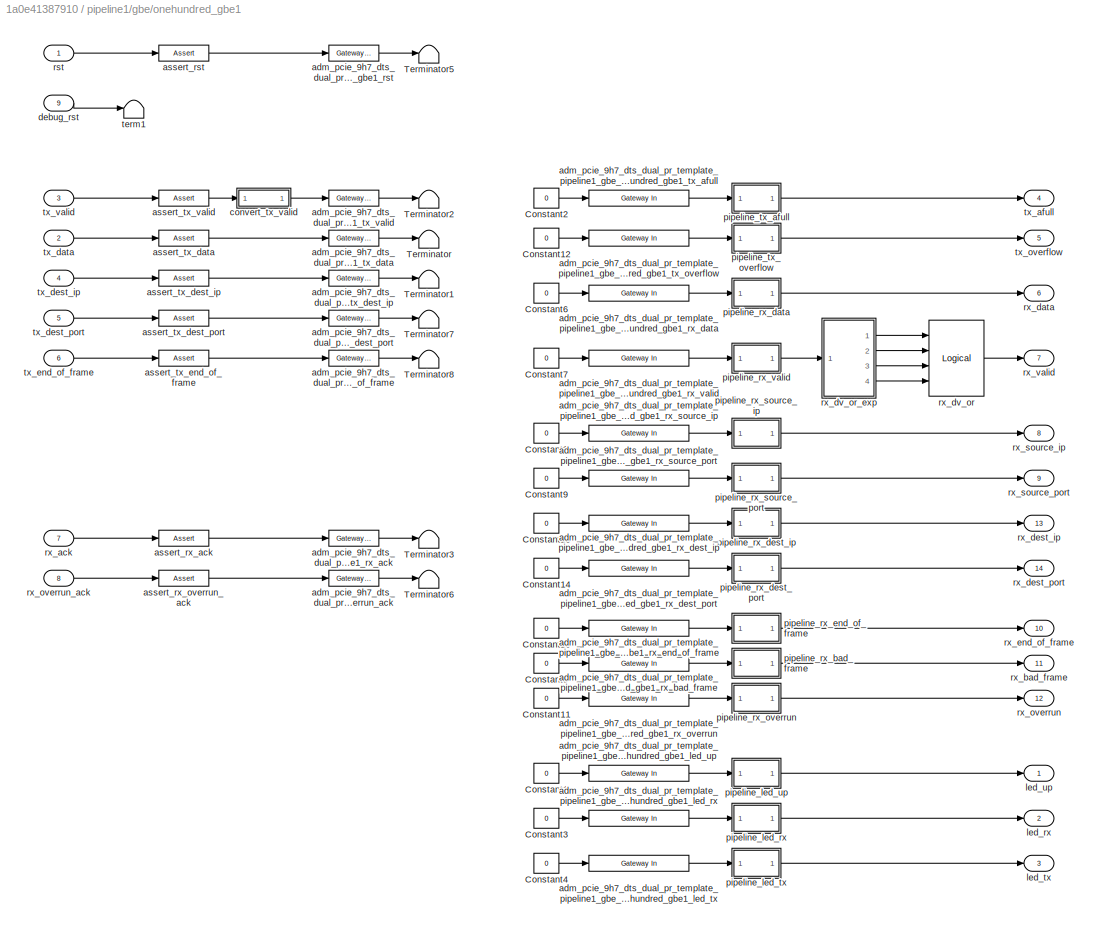
BLOCK [SubSystem] pipeline1/gbe/onehundred_gbe1
  AncestorBlock = xps_library/IO/onehundred_gbe
  AttributesFormatString = incoming_latency=0
  Ports = [9, 14]
  RequestExecContextInheritance = off
  Tag = xps:onehundred_gbe
BLOCK [Constant] pipeline1/gbe/onehundred_gbe1/Constant1
  Value = 0
BLOCK [Constant] pipeline1/gbe/onehundred_gbe1/Constant10
  Value = 0
BLOCK [Constant] pipeline1/gbe/onehundred_gbe1/Constant11
  Value = 0
BLOCK [Constant] pipeline1/gbe/onehundred_gbe1/Constant12
  Value = 0
BLOCK [Constant] pipeline1/gbe/onehundred_gbe1/Constant13
  Value = 0
BLOCK [Constant] pipeline1/gbe/onehundred_gbe1/Constant14
  Value = 0
BLOCK [Constant] pipeline1/gbe/onehundred_gbe1/Constant2
  Value = 0
BLOCK [Constant] pipeline1/gbe/onehundred_gbe1/Constant3
  Value = 0
BLOCK [Constant] pipeline1/gbe/onehundred_gbe1/Constant4
  Value = 0
BLOCK [Constant] pipeline1/gbe/onehundred_gbe1/Constant5
  Value = 0
BLOCK [Constant] pipeline1/gbe/onehundred_gbe1/Constant6
  Value = 0
BLOCK [Constant] pipeline1/gbe/onehundred_gbe1/Constant7
  Value = 0
BLOCK [Constant] pipeline1/gbe/onehundred_gbe1/Constant8
  Value = 0
BLOCK [Constant] pipeline1/gbe/onehundred_gbe1/Constant9
  Value = 0
BLOCK [Terminator] pipeline1/gbe/onehundred_gbe1/Terminator
BLOCK [Terminator] pipeline1/gbe/onehundred_gbe1/Terminator1
BLOCK [Terminator] pipeline1/gbe/onehundred_gbe1/Terminator2
BLOCK [Terminator] pipeline1/gbe/onehundred_gbe1/Terminator3
BLOCK [Terminator] pipeline1/gbe/onehundred_gbe1/Terminator5
BLOCK [Terminator] pipeline1/gbe/onehundred_gbe1/Terminator6
BLOCK [Terminator] pipeline1/gbe/onehundred_gbe1/Terminator7
BLOCK [Terminator] pipeline1/gbe/onehundred_gbe1/Terminator8
BLOCK [Reference] pipeline1/gbe/onehundred_gbe1/adm_pcie_9h7_dts_dual_pr_template_pipeline1_gbe_onehundred_gbe1_led_rx  REF=xbsIndex_r4/Gateway In
  Ports = [1, 1]
  SourceBlock = xbsIndex_r4/Gateway In
  SourceType = Xilinx Gateway In Block
BLOCK [Reference] pipeline1/gbe/onehundred_gbe1/adm_pcie_9h7_dts_dual_pr_template_pipeline1_gbe_onehundred_gbe1_led_tx  REF=xbsIndex_r4/Gateway In
  Ports = [1, 1]
  SourceBlock = xbsIndex_r4/Gateway In
  SourceType = Xilinx Gateway In Block
BLOCK [Reference] pipeline1/gbe/onehundred_gbe1/adm_pcie_9h7_dts_dual_pr_template_pipeline1_gbe_onehundred_gbe1_led_up  REF=xbsIndex_r4/Gateway In
  Ports = [1, 1]
  SourceBlock = xbsIndex_r4/Gateway In
  SourceType = Xilinx Gateway In Block
BLOCK [Reference] pipeline1/gbe/onehundred_gbe1/adm_pcie_9h7_dts_dual_pr_template_pipeline1_gbe_onehundred_gbe1_rst  REF=xbsIndex_r4/Gateway Out
  Ports = [1, 1]
  SourceBlock = xbsIndex_r4/Gateway Out
  SourceType = Xilinx Gateway Out Block
BLOCK [Reference] pipeline1/gbe/onehundred_gbe1/adm_pcie_9h7_dts_dual_pr_template_pipeline1_gbe_onehundred_gbe1_rx_ack  REF=xbsIndex_r4/Gateway Out
  Ports = [1, 1]
  SourceBlock = xbsIndex_r4/Gateway Out
  SourceType = Xilinx Gateway Out Block
BLOCK [Reference] pipeline1/gbe/onehundred_gbe1/adm_pcie_9h7_dts_dual_pr_template_pipeline1_gbe_onehundred_gbe1_rx_bad_frame  REF=xbsIndex_r4/Gateway In
  Ports = [1, 1]
  SourceBlock = xbsIndex_r4/Gateway In
  SourceType = Xilinx Gateway In Block
BLOCK [Reference] pipeline1/gbe/onehundred_gbe1/adm_pcie_9h7_dts_dual_pr_template_pipeline1_gbe_onehundred_gbe1_rx_data  REF=xbsIndex_r4/Gateway In
  Ports = [1, 1]
  SourceBlock = xbsIndex_r4/Gateway In
  SourceType = Xilinx Gateway In Block
BLOCK [Reference] pipeline1/gbe/onehundred_gbe1/adm_pcie_9h7_dts_dual_pr_template_pipeline1_gbe_onehundred_gbe1_rx_dest_ip  REF=xbsIndex_r4/Gateway In
  Ports = [1, 1]
  SourceBlock = xbsIndex_r4/Gateway In
  SourceType = Xilinx Gateway In Block
BLOCK [Reference] pipeline1/gbe/onehundred_gbe1/adm_pcie_9h7_dts_dual_pr_template_pipeline1_gbe_onehundred_gbe1_rx_dest_port  REF=xbsIndex_r4/Gateway In
  Ports = [1, 1]
  SourceBlock = xbsIndex_r4/Gateway In
  SourceType = Xilinx Gateway In Block
BLOCK [Reference] pipeline1/gbe/onehundred_gbe1/adm_pcie_9h7_dts_dual_pr_template_pipeline1_gbe_onehundred_gbe1_rx_end_of_frame  REF=xbsIndex_r4/Gateway In
  Ports = [1, 1]
  SourceBlock = xbsIndex_r4/Gateway In
  SourceType = Xilinx Gateway In Block
BLOCK [Reference] pipeline1/gbe/onehundred_gbe1/adm_pcie_9h7_dts_dual_pr_template_pipeline1_gbe_onehundred_gbe1_rx_overrun  REF=xbsIndex_r4/Gateway In
  Ports = [1, 1]
  SourceBlock = xbsIndex_r4/Gateway In
  SourceType = Xilinx Gateway In Block
BLOCK [Reference] pipeline1/gbe/onehundred_gbe1/adm_pcie_9h7_dts_dual_pr_template_pipeline1_gbe_onehundred_gbe1_rx_overrun_ack  REF=xbsIndex_r4/Gateway Out
  Ports = [1, 1]
  SourceBlock = xbsIndex_r4/Gateway Out
  SourceType = Xilinx Gateway Out Block
BLOCK [Reference] pipeline1/gbe/onehundred_gbe1/adm_pcie_9h7_dts_dual_pr_template_pipeline1_gbe_onehundred_gbe1_rx_source_ip  REF=xbsIndex_r4/Gateway In
  Ports = [1, 1]
  SourceBlock = xbsIndex_r4/Gateway In
  SourceType = Xilinx Gateway In Block
BLOCK [Reference] pipeline1/gbe/onehundred_gbe1/adm_pcie_9h7_dts_dual_pr_template_pipeline1_gbe_onehundred_gbe1_rx_source_port  REF=xbsIndex_r4/Gateway In
  Ports = [1, 1]
  SourceBlock = xbsIndex_r4/Gateway In
  SourceType = Xilinx Gateway In Block
BLOCK [Reference] pipeline1/gbe/onehundred_gbe1/adm_pcie_9h7_dts_dual_pr_template_pipeline1_gbe_onehundred_gbe1_rx_valid  REF=xbsIndex_r4/Gateway In
  Ports = [1, 1]
  SourceBlock = xbsIndex_r4/Gateway In
  SourceType = Xilinx Gateway In Block
BLOCK [Reference] pipeline1/gbe/onehundred_gbe1/adm_pcie_9h7_dts_dual_pr_template_pipeline1_gbe_onehundred_gbe1_tx_afull  REF=xbsIndex_r4/Gateway In
  Ports = [1, 1]
  SourceBlock = xbsIndex_r4/Gateway In
  SourceType = Xilinx Gateway In Block
BLOCK [Reference] pipeline1/gbe/onehundred_gbe1/adm_pcie_9h7_dts_dual_pr_template_pipeline1_gbe_onehundred_gbe1_tx_data  REF=xbsIndex_r4/Gateway Out
  Ports = [1, 1]
  SourceBlock = xbsIndex_r4/Gateway Out
  SourceType = Xilinx Gateway Out Block
BLOCK [Reference] pipeline1/gbe/onehundred_gbe1/adm_pcie_9h7_dts_dual_pr_template_pipeline1_gbe_onehundred_gbe1_tx_dest_ip  REF=xbsIndex_r4/Gateway Out
  Ports = [1, 1]
  SourceBlock = xbsIndex_r4/Gateway Out
  SourceType = Xilinx Gateway Out Block
BLOCK [Reference] pipeline1/gbe/onehundred_gbe1/adm_pcie_9h7_dts_dual_pr_template_pipeline1_gbe_onehundred_gbe1_tx_dest_port  REF=xbsIndex_r4/Gateway Out
  Ports = [1, 1]
  SourceBlock = xbsIndex_r4/Gateway Out
  SourceType = Xilinx Gateway Out Block
BLOCK [Reference] pipeline1/gbe/onehundred_gbe1/adm_pcie_9h7_dts_dual_pr_template_pipeline1_gbe_onehundred_gbe1_tx_end_of_frame  REF=xbsIndex_r4/Gateway Out
  Ports = [1, 1]
  SourceBlock = xbsIndex_r4/Gateway Out
  SourceType = Xilinx Gateway Out Block
BLOCK [Reference] pipeline1/gbe/onehundred_gbe1/adm_pcie_9h7_dts_dual_pr_template_pipeline1_gbe_onehundred_gbe1_tx_overflow  REF=xbsIndex_r4/Gateway In
  Ports = [1, 1]
  SourceBlock = xbsIndex_r4/Gateway In
  SourceType = Xilinx Gateway In Block
BLOCK [Reference] pipeline1/gbe/onehundred_gbe1/adm_pcie_9h7_dts_dual_pr_template_pipeline1_gbe_onehundred_gbe1_tx_valid  REF=xbsIndex_r4/Gateway Out
  Ports = [1, 1]
  SourceBlock = xbsIndex_r4/Gateway Out
  SourceType = Xilinx Gateway Out Block
BLOCK [Reference] pipeline1/gbe/onehundred_gbe1/assert_rst  REF=xbsIndex_r4/Assert
  Ports = [1, 1]
  SourceBlock = xbsIndex_r4/Assert
  SourceType = Xilinx Assert Block
BLOCK [Reference] pipeline1/gbe/onehundred_gbe1/assert_rx_ack  REF=xbsIndex_r4/Assert
  Ports = [1, 1]
  SourceBlock = xbsIndex_r4/Assert
  SourceType = Xilinx Assert Block
BLOCK [Reference] pipeline1/gbe/onehundred_gbe1/assert_rx_overrun_ack  REF=xbsIndex_r4/Assert
  Ports = [1, 1]
  SourceBlock = xbsIndex_r4/Assert
  SourceType = Xilinx Assert Block
BLOCK [Reference] pipeline1/gbe/onehundred_gbe1/assert_tx_data  REF=xbsIndex_r4/Assert
  Ports = [1, 1]
  SourceBlock = xbsIndex_r4/Assert
  SourceType = Xilinx Assert Block
BLOCK [Reference] pipeline1/gbe/onehundred_gbe1/assert_tx_dest_ip  REF=xbsIndex_r4/Assert
  Ports = [1, 1]
  SourceBlock = xbsIndex_r4/Assert
  SourceType = Xilinx Assert Block
BLOCK [Reference] pipeline1/gbe/onehundred_gbe1/assert_tx_dest_port  REF=xbsIndex_r4/Assert
  Ports = [1, 1]
  SourceBlock = xbsIndex_r4/Assert
  SourceType = Xilinx Assert Block
BLOCK [Reference] pipeline1/gbe/onehundred_gbe1/assert_tx_end_of_frame  REF=xbsIndex_r4/Assert
  Ports = [1, 1]
  SourceBlock = xbsIndex_r4/Assert
  SourceType = Xilinx Assert Block
BLOCK [Reference] pipeline1/gbe/onehundred_gbe1/assert_tx_valid  REF=xbsIndex_r4/Assert
  Ports = [1, 1]
  SourceBlock = xbsIndex_r4/Assert
  SourceType = Xilinx Assert Block
BLOCK [SubSystem] pipeline1/gbe/onehundred_gbe1/convert_tx_valid
  AncestorBlock = casper_library_bus/bus_replicate
  Ports = [1, 1]
  RequestExecContextInheritance = off
  UserDataPersistent = on
BLOCK [SubSystem] pipeline1/gbe/onehundred_gbe1/convert_tx_valid/bussify
  AncestorBlock = casper_library_flow_control/bus_create
  Ports = [4, 1]
  RequestExecContextInheritance = off
  UserDataPersistent = on
BLOCK [Outport] pipeline1/gbe/onehundred_gbe1/convert_tx_valid/bussify/bus_out
  IconDisplay = Port number
BLOCK [Reference] pipeline1/gbe/onehundred_gbe1/convert_tx_valid/bussify/concatenate  REF=xbsIndex_r4/Concat
  Ports = [4, 1]
  SourceBlock = xbsIndex_r4/Concat
  SourceType = Xilinx Bus Concatenator Block
BLOCK [Inport] pipeline1/gbe/onehundred_gbe1/convert_tx_valid/bussify/in1
  IconDisplay = Port number
BLOCK [Inport] pipeline1/gbe/onehundred_gbe1/convert_tx_valid/bussify/in2
  IconDisplay = Port number
  Port = 2
BLOCK [Inport] pipeline1/gbe/onehundred_gbe1/convert_tx_valid/bussify/in3
  IconDisplay = Port number
  Port = 3
BLOCK [Inport] pipeline1/gbe/onehundred_gbe1/convert_tx_valid/bussify/in4
  IconDisplay = Port number
  Port = 4
BLOCK [Reference] pipeline1/gbe/onehundred_gbe1/convert_tx_valid/bussify/reinterpret1  REF=xbsIndex_r4/Reinterpret
  Ports = [1, 1]
  SourceBlock = xbsIndex_r4/Reinterpret
  SourceType = Xilinx Type Reinterpreter Block
BLOCK [Reference] pipeline1/gbe/onehundred_gbe1/convert_tx_valid/bussify/reinterpret2  REF=xbsIndex_r4/Reinterpret
  Ports = [1, 1]
  SourceBlock = xbsIndex_r4/Reinterpret
  SourceType = Xilinx Type Reinterpreter Block
BLOCK [Reference] pipeline1/gbe/onehundred_gbe1/convert_tx_valid/bussify/reinterpret3  REF=xbsIndex_r4/Reinterpret
  Ports = [1, 1]
  SourceBlock = xbsIndex_r4/Reinterpret
  SourceType = Xilinx Type Reinterpreter Block
BLOCK [Reference] pipeline1/gbe/onehundred_gbe1/convert_tx_valid/bussify/reinterpret4  REF=xbsIndex_r4/Reinterpret
  Ports = [1, 1]
  SourceBlock = xbsIndex_r4/Reinterpret
  SourceType = Xilinx Type Reinterpreter Block
BLOCK [Inport] pipeline1/gbe/onehundred_gbe1/convert_tx_valid/in
  IconDisplay = Port number
BLOCK [Outport] pipeline1/gbe/onehundred_gbe1/convert_tx_valid/out
  IconDisplay = Port number
BLOCK [Inport] pipeline1/gbe/onehundred_gbe1/debug_rst
  IconDisplay = Port number
  Port = 9
BLOCK [Outport] pipeline1/gbe/onehundred_gbe1/led_rx
  IconDisplay = Port number
  Port = 2
BLOCK [Outport] pipeline1/gbe/onehundred_gbe1/led_tx
  IconDisplay = Port number
  Port = 3
BLOCK [Outport] pipeline1/gbe/onehundred_gbe1/led_up
  IconDisplay = Port number
BLOCK [SubSystem] pipeline1/gbe/onehundred_gbe1/pipeline_led_rx
  AncestorBlock = casper_library_delays/pipeline
  AttributesFormatString = Latency = %<latency>
  Ports = [1, 1]
  RequestExecContextInheritance = off
  UserDataPersistent = on
BLOCK [Inport] pipeline1/gbe/onehundred_gbe1/pipeline_led_rx/d
  IconDisplay = Port number
BLOCK [Outport] pipeline1/gbe/onehundred_gbe1/pipeline_led_rx/q
  IconDisplay = Port number
BLOCK [SubSystem] pipeline1/gbe/onehundred_gbe1/pipeline_led_tx
  AncestorBlock = casper_library_delays/pipeline
  AttributesFormatString = Latency = %<latency>
  Ports = [1, 1]
  RequestExecContextInheritance = off
  UserDataPersistent = on
BLOCK [Inport] pipeline1/gbe/onehundred_gbe1/pipeline_led_tx/d
  IconDisplay = Port number
BLOCK [Outport] pipeline1/gbe/onehundred_gbe1/pipeline_led_tx/q
  IconDisplay = Port number
BLOCK [SubSystem] pipeline1/gbe/onehundred_gbe1/pipeline_led_up
  AncestorBlock = casper_library_delays/pipeline
  AttributesFormatString = Latency = %<latency>
  Ports = [1, 1]
  RequestExecContextInheritance = off
  UserDataPersistent = on
BLOCK [Inport] pipeline1/gbe/onehundred_gbe1/pipeline_led_up/d
  IconDisplay = Port number
BLOCK [Outport] pipeline1/gbe/onehundred_gbe1/pipeline_led_up/q
  IconDisplay = Port number
BLOCK [SubSystem] pipeline1/gbe/onehundred_gbe1/pipeline_rx_bad_frame
  AncestorBlock = casper_library_delays/pipeline
  AttributesFormatString = Latency = %<latency>
  Ports = [1, 1]
  RequestExecContextInheritance = off
  UserDataPersistent = on
BLOCK [Inport] pipeline1/gbe/onehundred_gbe1/pipeline_rx_bad_frame/d
  IconDisplay = Port number
BLOCK [Outport] pipeline1/gbe/onehundred_gbe1/pipeline_rx_bad_frame/q
  IconDisplay = Port number
BLOCK [SubSystem] pipeline1/gbe/onehundred_gbe1/pipeline_rx_data
  AncestorBlock = casper_library_delays/pipeline
  AttributesFormatString = Latency = %<latency>
  Ports = [1, 1]
  RequestExecContextInheritance = off
  UserDataPersistent = on
BLOCK [Inport] pipeline1/gbe/onehundred_gbe1/pipeline_rx_data/d
  IconDisplay = Port number
BLOCK [Outport] pipeline1/gbe/onehundred_gbe1/pipeline_rx_data/q
  IconDisplay = Port number
BLOCK [SubSystem] pipeline1/gbe/onehundred_gbe1/pipeline_rx_dest_ip
  AncestorBlock = casper_library_delays/pipeline
  AttributesFormatString = Latency = %<latency>
  Ports = [1, 1]
  RequestExecContextInheritance = off
  UserDataPersistent = on
BLOCK [Inport] pipeline1/gbe/onehundred_gbe1/pipeline_rx_dest_ip/d
  IconDisplay = Port number
BLOCK [Outport] pipeline1/gbe/onehundred_gbe1/pipeline_rx_dest_ip/q
  IconDisplay = Port number
BLOCK [SubSystem] pipeline1/gbe/onehundred_gbe1/pipeline_rx_dest_port
  AncestorBlock = casper_library_delays/pipeline
  AttributesFormatString = Latency = %<latency>
  Ports = [1, 1]
  RequestExecContextInheritance = off
  UserDataPersistent = on
BLOCK [Inport] pipeline1/gbe/onehundred_gbe1/pipeline_rx_dest_port/d
  IconDisplay = Port number
BLOCK [Outport] pipeline1/gbe/onehundred_gbe1/pipeline_rx_dest_port/q
  IconDisplay = Port number
BLOCK [SubSystem] pipeline1/gbe/onehundred_gbe1/pipeline_rx_end_of_frame
  AncestorBlock = casper_library_delays/pipeline
  AttributesFormatString = Latency = %<latency>
  Ports = [1, 1]
  RequestExecContextInheritance = off
  UserDataPersistent = on
BLOCK [Inport] pipeline1/gbe/onehundred_gbe1/pipeline_rx_end_of_frame/d
  IconDisplay = Port number
BLOCK [Outport] pipeline1/gbe/onehundred_gbe1/pipeline_rx_end_of_frame/q
  IconDisplay = Port number
BLOCK [SubSystem] pipeline1/gbe/onehundred_gbe1/pipeline_rx_overrun
  AncestorBlock = casper_library_delays/pipeline
  AttributesFormatString = Latency = %<latency>
  Ports = [1, 1]
  RequestExecContextInheritance = off
  UserDataPersistent = on
BLOCK [Inport] pipeline1/gbe/onehundred_gbe1/pipeline_rx_overrun/d
  IconDisplay = Port number
BLOCK [Outport] pipeline1/gbe/onehundred_gbe1/pipeline_rx_overrun/q
  IconDisplay = Port number
BLOCK [SubSystem] pipeline1/gbe/onehundred_gbe1/pipeline_rx_source_ip
  AncestorBlock = casper_library_delays/pipeline
  AttributesFormatString = Latency = %<latency>
  Ports = [1, 1]
  RequestExecContextInheritance = off
  UserDataPersistent = on
BLOCK [Inport] pipeline1/gbe/onehundred_gbe1/pipeline_rx_source_ip/d
  IconDisplay = Port number
BLOCK [Outport] pipeline1/gbe/onehundred_gbe1/pipeline_rx_source_ip/q
  IconDisplay = Port number
BLOCK [SubSystem] pipeline1/gbe/onehundred_gbe1/pipeline_rx_source_port
  AncestorBlock = casper_library_delays/pipeline
  AttributesFormatString = Latency = %<latency>
  Ports = [1, 1]
  RequestExecContextInheritance = off
  UserDataPersistent = on
BLOCK [Inport] pipeline1/gbe/onehundred_gbe1/pipeline_rx_source_port/d
  IconDisplay = Port number
BLOCK [Outport] pipeline1/gbe/onehundred_gbe1/pipeline_rx_source_port/q
  IconDisplay = Port number
BLOCK [SubSystem] pipeline1/gbe/onehundred_gbe1/pipeline_rx_valid
  AncestorBlock = casper_library_delays/pipeline
  AttributesFormatString = Latency = %<latency>
  Ports = [1, 1]
  RequestExecContextInheritance = off
  UserDataPersistent = on
BLOCK [Inport] pipeline1/gbe/onehundred_gbe1/pipeline_rx_valid/d
  IconDisplay = Port number
BLOCK [Outport] pipeline1/gbe/onehundred_gbe1/pipeline_rx_valid/q
  IconDisplay = Port number
BLOCK [SubSystem] pipeline1/gbe/onehundred_gbe1/pipeline_tx_afull
  AncestorBlock = casper_library_delays/pipeline
  AttributesFormatString = Latency = %<latency>
  Ports = [1, 1]
  RequestExecContextInheritance = off
  UserDataPersistent = on
BLOCK [Inport] pipeline1/gbe/onehundred_gbe1/pipeline_tx_afull/d
  IconDisplay = Port number
BLOCK [Outport] pipeline1/gbe/onehundred_gbe1/pipeline_tx_afull/q
  IconDisplay = Port number
BLOCK [SubSystem] pipeline1/gbe/onehundred_gbe1/pipeline_tx_overflow
  AncestorBlock = casper_library_delays/pipeline
  AttributesFormatString = Latency = %<latency>
  Ports = [1, 1]
  RequestExecContextInheritance = off
  UserDataPersistent = on
BLOCK [Inport] pipeline1/gbe/onehundred_gbe1/pipeline_tx_overflow/d
  IconDisplay = Port number
BLOCK [Outport] pipeline1/gbe/onehundred_gbe1/pipeline_tx_overflow/q
  IconDisplay = Port number
BLOCK [Inport] pipeline1/gbe/onehundred_gbe1/rst
  IconDisplay = Port number
BLOCK [Inport] pipeline1/gbe/onehundred_gbe1/rx_ack
  IconDisplay = Port number
  Port = 7
BLOCK [Outport] pipeline1/gbe/onehundred_gbe1/rx_bad_frame
  IconDisplay = Port number
  Port = 11
BLOCK [Outport] pipeline1/gbe/onehundred_gbe1/rx_data
  IconDisplay = Port number
  Port = 6
BLOCK [Outport] pipeline1/gbe/onehundred_gbe1/rx_dest_ip
  IconDisplay = Port number
  Port = 13
BLOCK [Outport] pipeline1/gbe/onehundred_gbe1/rx_dest_port
  IconDisplay = Port number
  Port = 14
BLOCK [Reference] pipeline1/gbe/onehundred_gbe1/rx_dv_or  REF=xbsIndex_r4/Logical
  Ports = [4, 1]
  SourceBlock = xbsIndex_r4/Logical
  SourceType = Xilinx Logical Block Block
BLOCK [SubSystem] pipeline1/gbe/onehundred_gbe1/rx_dv_or_exp
  AncestorBlock = casper_library_flow_control/bus_expand
  AttributesFormatString = 4 outputs
  Ports = [1, 4]
  RequestExecContextInheritance = off
  UserDataPersistent = on
BLOCK [Inport] pipeline1/gbe/onehundred_gbe1/rx_dv_or_exp/bus_in
  IconDisplay = Port number
BLOCK [Outport] pipeline1/gbe/onehundred_gbe1/rx_dv_or_exp/lsb_out1
  IconDisplay = Port number
  Port = 4
BLOCK [Outport] pipeline1/gbe/onehundred_gbe1/rx_dv_or_exp/msb_out4
  IconDisplay = Port number
BLOCK [Outport] pipeline1/gbe/onehundred_gbe1/rx_dv_or_exp/out2
  IconDisplay = Port number
  Port = 3
BLOCK [Outport] pipeline1/gbe/onehundred_gbe1/rx_dv_or_exp/out3
  IconDisplay = Port number
  Port = 2
BLOCK [Reference] pipeline1/gbe/onehundred_gbe1/rx_dv_or_exp/slice1  REF=xbsIndex_r4/Slice
  Ports = [1, 1]
  SourceBlock = xbsIndex_r4/Slice
  SourceType = Xilinx Bit Slice Extractor Block
BLOCK [Reference] pipeline1/gbe/onehundred_gbe1/rx_dv_or_exp/slice2  REF=xbsIndex_r4/Slice
  Ports = [1, 1]
  SourceBlock = xbsIndex_r4/Slice
  SourceType = Xilinx Bit Slice Extractor Block
BLOCK [Reference] pipeline1/gbe/onehundred_gbe1/rx_dv_or_exp/slice3  REF=xbsIndex_r4/Slice
  Ports = [1, 1]
  SourceBlock = xbsIndex_r4/Slice
  SourceType = Xilinx Bit Slice Extractor Block
BLOCK [Reference] pipeline1/gbe/onehundred_gbe1/rx_dv_or_exp/slice4  REF=xbsIndex_r4/Slice
  Ports = [1, 1]
  SourceBlock = xbsIndex_r4/Slice
  SourceType = Xilinx Bit Slice Extractor Block
BLOCK [Outport] pipeline1/gbe/onehundred_gbe1/rx_end_of_frame
  IconDisplay = Port number
  Port = 10
BLOCK [Outport] pipeline1/gbe/onehundred_gbe1/rx_overrun
  IconDisplay = Port number
  Port = 12
BLOCK [Inport] pipeline1/gbe/onehundred_gbe1/rx_overrun_ack
  IconDisplay = Port number
  Port = 8
BLOCK [Outport] pipeline1/gbe/onehundred_gbe1/rx_source_ip
  IconDisplay = Port number
  Port = 8
BLOCK [Outport] pipeline1/gbe/onehundred_gbe1/rx_source_port
  IconDisplay = Port number
  Port = 9
BLOCK [Outport] pipeline1/gbe/onehundred_gbe1/rx_valid
  IconDisplay = Port number
  Port = 7
BLOCK [Terminator] pipeline1/gbe/onehundred_gbe1/term1
BLOCK [Outport] pipeline1/gbe/onehundred_gbe1/tx_afull
  IconDisplay = Port number
  Port = 4
BLOCK [Inport] pipeline1/gbe/onehundred_gbe1/tx_data
  IconDisplay = Port number
  Port = 2
BLOCK [Inport] pipeline1/gbe/onehundred_gbe1/tx_dest_ip
  IconDisplay = Port number
  Port = 4
BLOCK [Inport] pipeline1/gbe/onehundred_gbe1/tx_dest_port
  IconDisplay = Port number
  Port = 5
BLOCK [Inport] pipeline1/gbe/onehundred_gbe1/tx_end_of_frame
  IconDisplay = Port number
  Port = 6
BLOCK [Outport] pipeline1/gbe/onehundred_gbe1/tx_overflow
  IconDisplay = Port number
  Port = 5
BLOCK [Inport] pipeline1/gbe/onehundred_gbe1/tx_valid
  IconDisplay = Port number
  Port = 3
BLOCK [Reference] qsfpa  REF=xps_library/IO/i2c_interface  (lib defined in mdl_00b5cec29cd0, mdl_02ab6ecaa3d1, +5 more)
  Ports = []
  SourceBlock = xps_library/IO/i2c_interface
  SourceProductName = CASPER XPS Blockset
  SourceType = ip
  Tag = xps:i2c_interface
BLOCK [Reference] qsfpb  REF=xps_library/IO/i2c_interface  (lib defined in mdl_00b5cec29cd0, mdl_02ab6ecaa3d1, +5 more)
  Ports = []
  SourceBlock = xps_library/IO/i2c_interface
  SourceProductName = CASPER XPS Blockset
  SourceType = ip
  Tag = xps:i2c_interface
BLOCK [Reference] qsfpc  REF=xps_library/IO/i2c_interface  (lib defined in mdl_00b5cec29cd0, mdl_02ab6ecaa3d1, +5 more)
  Ports = []
  SourceBlock = xps_library/IO/i2c_interface
  SourceProductName = CASPER XPS Blockset
  SourceType = ip
  Tag = xps:i2c_interface
BLOCK [Reference] qsfpd  REF=xps_library/IO/i2c_interface  (lib defined in mdl_00b5cec29cd0, mdl_02ab6ecaa3d1, +5 more)
  Ports = []
  SourceBlock = xps_library/IO/i2c_interface
  SourceProductName = CASPER XPS Blockset
  SourceType = ip
  Tag = xps:i2c_interface
BLOCK [SubSystem] rst
  AncestorBlock = xps_library/Memory/software_register
  AttributesFormatString = 1input:b = 1 bits
  Ports = [1, 1]
  RequestExecContextInheritance = off
  Tag = xps:sw_reg
BLOCK [Reference] rst/adm_pcie_9h7_dts_dual_pr_template_rst_user_data_out  REF=xbsIndex_r4/Gateway In
  Ports = [1, 1]
  SourceBlock = xbsIndex_r4/Gateway In
  SourceType = Xilinx Gateway In Block
BLOCK [DataTypeConversion] rst/convert1_1
  LockScale = on
  OutDataTypeStr = fixdt('ufix1_En0')
  RndMeth = Floor
  SaturateOnIntegerOverflow = off
BLOCK [DataTypeConversion] rst/convert2_1
  ConvertRealWorld = Stored Integer (SI)
  LockScale = on
  OutDataTypeStr = fixdt('ufix1_En0')
  RndMeth = Floor
  SaturateOnIntegerOverflow = off
BLOCK [Gain] rst/gain_1
  OutDataTypeStr = Inherit: Inherit via internal rule
  ParamDataTypeStr = Inherit: Inherit via internal rule
  SaturateOnIntegerOverflow = off
BLOCK [Outport] rst/in_reg
  IconDisplay = Port number
BLOCK [Reference] rst/io_delay  REF=xbsIndex_r4/Delay
  Ports = [1, 1]
  SourceBlock = xbsIndex_r4/Delay
  SourceType = Xilinx Delay Block
BLOCK [Inport] rst/sim_1
  IconDisplay = Port number
BLOCK [Reference] rst/slice_reg  REF=xbsIndex_r4/Slice
  Ports = [1, 1]
  SourceBlock = xbsIndex_r4/Slice
  SourceType = Xilinx Bit Slice Extractor Block
BLOCK [SubSystem] version
  Ports = []
  RequestExecContextInheritance = off
BLOCK [Reference] version/Concat  REF=xbsIndex_r4/Concat
  Ports = [4, 1]
  SourceBlock = xbsIndex_r4/Concat
  SourceType = Xilinx Bus Concatenator Block
BLOCK [Reference] version/Constant  REF=xbsIndex_r4/Constant
  Ports = [0, 1]
  SourceBlock = xbsIndex_r4/Constant
  SourceType = Xilinx Constant Block Block
BLOCK [Reference] version/Constant1  REF=xbsIndex_r4/Constant
  Ports = [0, 1]
  SourceBlock = xbsIndex_r4/Constant
  SourceType = Xilinx Constant Block Block
BLOCK [Reference] version/Constant2  REF=xbsIndex_r4/Constant
  Ports = [0, 1]
  SourceBlock = xbsIndex_r4/Constant
  SourceType = Xilinx Constant Block Block
BLOCK [Reference] version/Constant3  REF=xbsIndex_r4/Constant
  Ports = [0, 1]
  SourceBlock = xbsIndex_r4/Constant
  SourceType = Xilinx Constant Block Block
BLOCK [Terminator] version/Terminator1
BLOCK [Terminator] version/Terminator2
BLOCK [SubSystem] version/timestamp
  AncestorBlock = xps_library/Memory/software_register
  AttributesFormatString = 1output
  Ports = [1, 1]
  RequestExecContextInheritance = off
  Tag = xps:sw_reg
BLOCK [Reference] version/timestamp/adm_pcie_9h7_dts_dual_pr_template_version_timestamp_user_data_in  REF=xbsIndex_r4/Gateway Out
  Ports = [1, 1]
  SourceBlock = xbsIndex_r4/Gateway Out
  SourceType = Xilinx Gateway Out Block
BLOCK [Reference] version/timestamp/assert_reg  REF=xbsIndex_r4/Assert
  Ports = [1, 1]
  SourceBlock = xbsIndex_r4/Assert
  SourceType = Xilinx Assert Block
BLOCK [Reference] version/timestamp/cast_gw  REF=xbsIndex_r4/Convert
  Ports = [1, 1]
  SourceBlock = xbsIndex_r4/Convert
  SourceType = Xilinx Type Converter Block
BLOCK [Reference] version/timestamp/io_delay  REF=xbsIndex_r4/Delay
  Ports = [1, 1]
  SourceBlock = xbsIndex_r4/Delay
  SourceType = Xilinx Delay Block
BLOCK [Inport] version/timestamp/out_reg
  IconDisplay = Port number
BLOCK [Reference] version/timestamp/reint1  REF=xbsIndex_r4/Reinterpret
  Ports = [1, 1]
  SourceBlock = xbsIndex_r4/Reinterpret
  SourceType = Xilinx Type Reinterpreter Block
BLOCK [Terminator] version/timestamp/sim_out
BLOCK [Outport] version/timestamp/sim_out_reg
  IconDisplay = Port number
BLOCK [Reference] version/timestamp/sim_out_reg_gw  REF=xbsIndex_r4/Gateway Out
  Ports = [1, 1]
  SourceBlock = xbsIndex_r4/Gateway Out
  SourceType = Xilinx Gateway Out Block
BLOCK [Reference] version/timestamp/sim_out_reg_sim_delay  REF=xbsIndex_r4/Delay
  Ports = [1, 1]
  SourceBlock = xbsIndex_r4/Delay
  SourceType = Xilinx Delay Block
BLOCK [Reference] version/unix_time  REF=xbsIndex_r4/Constant
  Ports = [0, 1]
  SourceBlock = xbsIndex_r4/Constant
  SourceType = Xilinx Constant Block Block
BLOCK [SubSystem] version/version
  AncestorBlock = xps_library/Memory/software_register
  AttributesFormatString = 1output
  Ports = [1, 1]
  RequestExecContextInheritance = off
  Tag = xps:sw_reg
BLOCK [Reference] version/version/adm_pcie_9h7_dts_dual_pr_template_version_version_user_data_in  REF=xbsIndex_r4/Gateway Out
  Ports = [1, 1]
  SourceBlock = xbsIndex_r4/Gateway Out
  SourceType = Xilinx Gateway Out Block
BLOCK [Reference] version/version/assert_reg  REF=xbsIndex_r4/Assert
  Ports = [1, 1]
  SourceBlock = xbsIndex_r4/Assert
  SourceType = Xilinx Assert Block
BLOCK [Reference] version/version/cast_gw  REF=xbsIndex_r4/Convert
  Ports = [1, 1]
  SourceBlock = xbsIndex_r4/Convert
  SourceType = Xilinx Type Converter Block
BLOCK [Reference] version/version/io_delay  REF=xbsIndex_r4/Delay
  Ports = [1, 1]
  SourceBlock = xbsIndex_r4/Delay
  SourceType = Xilinx Delay Block
BLOCK [Inport] version/version/out_reg
  IconDisplay = Port number
BLOCK [Reference] version/version/reint1  REF=xbsIndex_r4/Reinterpret
  Ports = [1, 1]
  SourceBlock = xbsIndex_r4/Reinterpret
  SourceType = Xilinx Type Reinterpreter Block
BLOCK [Terminator] version/version/sim_out
BLOCK [Outport] version/version/sim_out_reg
  IconDisplay = Port number
BLOCK [Reference] version/version/sim_out_reg_gw  REF=xbsIndex_r4/Gateway Out
  Ports = [1, 1]
  SourceBlock = xbsIndex_r4/Gateway Out
  SourceType = Xilinx Gateway Out Block
BLOCK [Reference] version/version/sim_out_reg_sim_delay  REF=xbsIndex_r4/Delay
  Ports = [1, 1]
  SourceBlock = xbsIndex_r4/Delay
  SourceType = Xilinx Delay Block
ANNOTATION pipeline0/dts/stats/data_ss/snapshot0: Delay start of capture
ANNOTATION pipeline0/dts/stats/data_ss/snapshot0: Generate stop when in circular capture mode
ANNOTATION pipeline0/dts/stats/data_ss/snapshot0: Number of bytes in buffer and done bit
ANNOTATION pipeline0/dts/stats/data_ss/snapshot0: Number of valid data samples to skip after trigger before starting capture
ANNOTATION pipeline0/dts/stats/data_ss/snapshot0: Offset in vector from first element captured, used during circular capture
ANNOTATION pipeline0/dts/stats/data_ss/snapshot0: Value on vin aligned with first sample on din captured
ANNOTATION pipeline0/dts/stats/data_ss/snapshot0: ctrl: bit0: Put a posedge here to enable a new capture. bit1: ignore external trigger and trigger immediately. bit2: ignore external write enable and capture on every FPGA clock. bit3: continuously capture data until we get an external stop command.
ANNOTATION pipeline0/dts/stats/data_ss/snapshot0/add_gen: A total count of bytes written to BRAM since trig
ANNOTATION pipeline0/dts/stats/data_ss/snapshot0/add_gen: Count of bytes in BRAM as well as done signal
ANNOTATION pipeline0/dts/stats/data_ss/snapshot0/add_gen: Do one capture by default
ANNOTATION pipeline0/dts/stats/data_ss/snapshot0/add_gen: Force MSbit of count to be '1' by negating busy as counter bit may be '0' or '1'
ANNOTATION pipeline0/dts/stats/data_ss/snapshot0/add_gen: To storage
ANNOTATION pipeline0/dts/stats/data_ss/snapshot0/add_gen: prevent one extra write to address 0
ANNOTATION pipeline0/dts/stats/data_ss/snapshot0/basic_ctrl/dram_munge: 1st output same time as last input
ANNOTATION pipeline0/dts/stats/data_ss/snapshot0/basic_ctrl/dram_munge: Buffer 4 input words when using DRAM then combine and output the first two, then second. Ensures that a full burst goes through every time so that status register records number of bytes fully in DRAM
ANNOTATION pipeline0/dts/stats/data_ss/snapshot0/basic_ctrl/dram_munge: Choose DRAM data or standard. Constant input to muxes should ensure other path optimised away
ANNOTATION pipeline0/dts/stats/data_ss/snapshot0/bram/calc_add: If reading/writing words smaller than 32 bits, change address so that addressing is big endian instead of little, otherwise pass through
ANNOTATION pipeline0/dts/stats/data_ss/snapshot0/bram/calc_add: Use behavioural HDL so that gets optimised to minimum logic
ANNOTATION pipeline0/dts/stats/data_ss/snapshot1: Delay start of capture
ANNOTATION pipeline0/dts/stats/data_ss/snapshot1: Generate stop when in circular capture mode
ANNOTATION pipeline0/dts/stats/data_ss/snapshot1: Number of bytes in buffer and done bit
ANNOTATION pipeline0/dts/stats/data_ss/snapshot1: Number of valid data samples to skip after trigger before starting capture
ANNOTATION pipeline0/dts/stats/data_ss/snapshot1: Offset in vector from first element captured, used during circular capture
ANNOTATION pipeline0/dts/stats/data_ss/snapshot1: Value on vin aligned with first sample on din captured
ANNOTATION pipeline0/dts/stats/data_ss/snapshot1: ctrl: bit0: Put a posedge here to enable a new capture. bit1: ignore external trigger and trigger immediately. bit2: ignore external write enable and capture on every FPGA clock. bit3: continuously capture data until we get an external stop command.
ANNOTATION pipeline0/dts/stats/data_ss/snapshot1/add_gen: A total count of bytes written to BRAM since trig
ANNOTATION pipeline0/dts/stats/data_ss/snapshot1/add_gen: Count of bytes in BRAM as well as done signal
ANNOTATION pipeline0/dts/stats/data_ss/snapshot1/add_gen: Do one capture by default
ANNOTATION pipeline0/dts/stats/data_ss/snapshot1/add_gen: Force MSbit of count to be '1' by negating busy as counter bit may be '0' or '1'
ANNOTATION pipeline0/dts/stats/data_ss/snapshot1/add_gen: To storage
ANNOTATION pipeline0/dts/stats/data_ss/snapshot1/add_gen: prevent one extra write to address 0
ANNOTATION pipeline0/dts/stats/data_ss/snapshot1/basic_ctrl/dram_munge: 1st output same time as last input
ANNOTATION pipeline0/dts/stats/data_ss/snapshot1/basic_ctrl/dram_munge: Buffer 4 input words when using DRAM then combine and output the first two, then second. Ensures that a full burst goes through every time so that status register records number of bytes fully in DRAM
ANNOTATION pipeline0/dts/stats/data_ss/snapshot1/basic_ctrl/dram_munge: Choose DRAM data or standard. Constant input to muxes should ensure other path optimised away
ANNOTATION pipeline0/dts/stats/data_ss/snapshot1/bram/calc_add: If reading/writing words smaller than 32 bits, change address so that addressing is big endian instead of little, otherwise pass through
ANNOTATION pipeline0/dts/stats/data_ss/snapshot1/bram/calc_add: Use behavioural HDL so that gets optimised to minimum logic
ANNOTATION pipeline0/dts/stats/data_ss/snapshot2: Delay start of capture
ANNOTATION pipeline0/dts/stats/data_ss/snapshot2: Generate stop when in circular capture mode
ANNOTATION pipeline0/dts/stats/data_ss/snapshot2: Number of bytes in buffer and done bit
ANNOTATION pipeline0/dts/stats/data_ss/snapshot2: Number of valid data samples to skip after trigger before starting capture
ANNOTATION pipeline0/dts/stats/data_ss/snapshot2: Offset in vector from first element captured, used during circular capture
ANNOTATION pipeline0/dts/stats/data_ss/snapshot2: Value on vin aligned with first sample on din captured
ANNOTATION pipeline0/dts/stats/data_ss/snapshot2: ctrl: bit0: Put a posedge here to enable a new capture. bit1: ignore external trigger and trigger immediately. bit2: ignore external write enable and capture on every FPGA clock. bit3: continuously capture data until we get an external stop command.
ANNOTATION pipeline0/dts/stats/data_ss/snapshot2/add_gen: A total count of bytes written to BRAM since trig
ANNOTATION pipeline0/dts/stats/data_ss/snapshot2/add_gen: Count of bytes in BRAM as well as done signal
ANNOTATION pipeline0/dts/stats/data_ss/snapshot2/add_gen: Do one capture by default
ANNOTATION pipeline0/dts/stats/data_ss/snapshot2/add_gen: Force MSbit of count to be '1' by negating busy as counter bit may be '0' or '1'
ANNOTATION pipeline0/dts/stats/data_ss/snapshot2/add_gen: To storage
ANNOTATION pipeline0/dts/stats/data_ss/snapshot2/add_gen: prevent one extra write to address 0
ANNOTATION pipeline0/dts/stats/data_ss/snapshot2/basic_ctrl/dram_munge: 1st output same time as last input
ANNOTATION pipeline0/dts/stats/data_ss/snapshot2/basic_ctrl/dram_munge: Buffer 4 input words when using DRAM then combine and output the first two, then second. Ensures that a full burst goes through every time so that status register records number of bytes fully in DRAM
ANNOTATION pipeline0/dts/stats/data_ss/snapshot2/basic_ctrl/dram_munge: Choose DRAM data or standard. Constant input to muxes should ensure other path optimised away
ANNOTATION pipeline0/dts/stats/data_ss/snapshot2/bram/calc_add: If reading/writing words smaller than 32 bits, change address so that addressing is big endian instead of little, otherwise pass through
ANNOTATION pipeline0/dts/stats/data_ss/snapshot2/bram/calc_add: Use behavioural HDL so that gets optimised to minimum logic
ANNOTATION pipeline0/dts/stats/data_ss/snapshot3: Delay start of capture
ANNOTATION pipeline0/dts/stats/data_ss/snapshot3: Generate stop when in circular capture mode
ANNOTATION pipeline0/dts/stats/data_ss/snapshot3: Number of bytes in buffer and done bit
ANNOTATION pipeline0/dts/stats/data_ss/snapshot3: Number of valid data samples to skip after trigger before starting capture
ANNOTATION pipeline0/dts/stats/data_ss/snapshot3: Offset in vector from first element captured, used during circular capture
ANNOTATION pipeline0/dts/stats/data_ss/snapshot3: Value on vin aligned with first sample on din captured
ANNOTATION pipeline0/dts/stats/data_ss/snapshot3: ctrl: bit0: Put a posedge here to enable a new capture. bit1: ignore external trigger and trigger immediately. bit2: ignore external write enable and capture on every FPGA clock. bit3: continuously capture data until we get an external stop command.
ANNOTATION pipeline0/dts/stats/data_ss/snapshot3/add_gen: A total count of bytes written to BRAM since trig
ANNOTATION pipeline0/dts/stats/data_ss/snapshot3/add_gen: Count of bytes in BRAM as well as done signal
ANNOTATION pipeline0/dts/stats/data_ss/snapshot3/add_gen: Do one capture by default
ANNOTATION pipeline0/dts/stats/data_ss/snapshot3/add_gen: Force MSbit of count to be '1' by negating busy as counter bit may be '0' or '1'
ANNOTATION pipeline0/dts/stats/data_ss/snapshot3/add_gen: To storage
ANNOTATION pipeline0/dts/stats/data_ss/snapshot3/add_gen: prevent one extra write to address 0
ANNOTATION pipeline0/dts/stats/data_ss/snapshot3/basic_ctrl/dram_munge: 1st output same time as last input
ANNOTATION pipeline0/dts/stats/data_ss/snapshot3/basic_ctrl/dram_munge: Buffer 4 input words when using DRAM then combine and output the first two, then second. Ensures that a full burst goes through every time so that status register records number of bytes fully in DRAM
ANNOTATION pipeline0/dts/stats/data_ss/snapshot3/basic_ctrl/dram_munge: Choose DRAM data or standard. Constant input to muxes should ensure other path optimised away
ANNOTATION pipeline0/dts/stats/data_ss/snapshot3/bram/calc_add: If reading/writing words smaller than 32 bits, change address so that addressing is big endian instead of little, otherwise pass through
ANNOTATION pipeline0/dts/stats/data_ss/snapshot3/bram/calc_add: Use behavioural HDL so that gets optimised to minimum logic
ANNOTATION pipeline0/dts/stats/pps_snapshot: Delay start of capture
ANNOTATION pipeline0/dts/stats/pps_snapshot: Generate stop when in circular capture mode
ANNOTATION pipeline0/dts/stats/pps_snapshot: Number of bytes in buffer and done bit
ANNOTATION pipeline0/dts/stats/pps_snapshot: Number of valid data samples to skip after trigger before starting capture
ANNOTATION pipeline0/dts/stats/pps_snapshot: Offset in vector from first element captured, used during circular capture
ANNOTATION pipeline0/dts/stats/pps_snapshot: Value on vin aligned with first sample on din captured
ANNOTATION pipeline0/dts/stats/pps_snapshot: ctrl: bit0: Put a posedge here to enable a new capture. bit1: ignore external trigger and trigger immediately. bit2: ignore external write enable and capture on every FPGA clock. bit3: continuously capture data until we get an external stop command.
ANNOTATION pipeline0/dts/stats/pps_snapshot/add_gen: A total count of bytes written to BRAM since trig
ANNOTATION pipeline0/dts/stats/pps_snapshot/add_gen: Count of bytes in BRAM as well as done signal
ANNOTATION pipeline0/dts/stats/pps_snapshot/add_gen: Do one capture by default
ANNOTATION pipeline0/dts/stats/pps_snapshot/add_gen: Force MSbit of count to be '1' by negating busy as counter bit may be '0' or '1'
ANNOTATION pipeline0/dts/stats/pps_snapshot/add_gen: To storage
ANNOTATION pipeline0/dts/stats/pps_snapshot/add_gen: prevent one extra write to address 0
ANNOTATION pipeline0/dts/stats/pps_snapshot/basic_ctrl/dram_munge: 1st output same time as last input
ANNOTATION pipeline0/dts/stats/pps_snapshot/basic_ctrl/dram_munge: Buffer 4 input words when using DRAM then combine and output the first two, then second. Ensures that a full burst goes through every time so that status register records number of bytes fully in DRAM
ANNOTATION pipeline0/dts/stats/pps_snapshot/basic_ctrl/dram_munge: Choose DRAM data or standard. Constant input to muxes should ensure other path optimised away
ANNOTATION pipeline0/dts/stats/pps_snapshot/bram/calc_add: If reading/writing words smaller than 32 bits, change address so that addressing is big endian instead of little, otherwise pass through
ANNOTATION pipeline0/dts/stats/pps_snapshot/bram/calc_add: Use behavioural HDL so that gets optimised to minimum logic
ANNOTATION pipeline0/dts/stats/sync_snapshot: Delay start of capture
ANNOTATION pipeline0/dts/stats/sync_snapshot: Generate stop when in circular capture mode
ANNOTATION pipeline0/dts/stats/sync_snapshot: Number of bytes in buffer and done bit
ANNOTATION pipeline0/dts/stats/sync_snapshot: Number of valid data samples to skip after trigger before starting capture
ANNOTATION pipeline0/dts/stats/sync_snapshot: Offset in vector from first element captured, used during circular capture
ANNOTATION pipeline0/dts/stats/sync_snapshot: Value on vin aligned with first sample on din captured
ANNOTATION pipeline0/dts/stats/sync_snapshot: ctrl: bit0: Put a posedge here to enable a new capture. bit1: ignore external trigger and trigger immediately. bit2: ignore external write enable and capture on every FPGA clock. bit3: continuously capture data until we get an external stop command.
ANNOTATION pipeline0/dts/stats/sync_snapshot/add_gen: A total count of bytes written to BRAM since trig
ANNOTATION pipeline0/dts/stats/sync_snapshot/add_gen: Count of bytes in BRAM as well as done signal
ANNOTATION pipeline0/dts/stats/sync_snapshot/add_gen: Do one capture by default
ANNOTATION pipeline0/dts/stats/sync_snapshot/add_gen: Force MSbit of count to be '1' by negating busy as counter bit may be '0' or '1'
ANNOTATION pipeline0/dts/stats/sync_snapshot/add_gen: To storage
ANNOTATION pipeline0/dts/stats/sync_snapshot/add_gen: prevent one extra write to address 0
ANNOTATION pipeline0/dts/stats/sync_snapshot/basic_ctrl/dram_munge: 1st output same time as last input
ANNOTATION pipeline0/dts/stats/sync_snapshot/basic_ctrl/dram_munge: Buffer 4 input words when using DRAM then combine and output the first two, then second. Ensures that a full burst goes through every time so that status register records number of bytes fully in DRAM
ANNOTATION pipeline0/dts/stats/sync_snapshot/basic_ctrl/dram_munge: Choose DRAM data or standard. Constant input to muxes should ensure other path optimised away
ANNOTATION pipeline0/dts/stats/sync_snapshot/bram/calc_add: If reading/writing words smaller than 32 bits, change address so that addressing is big endian instead of little, otherwise pass through
ANNOTATION pipeline0/dts/stats/sync_snapshot/bram/calc_add: Use behavioural HDL so that gets optimised to minimum logic
ANNOTATION pipeline1/dts/stats/data_ss/snapshot0: Delay start of capture
ANNOTATION pipeline1/dts/stats/data_ss/snapshot0: Generate stop when in circular capture mode
ANNOTATION pipeline1/dts/stats/data_ss/snapshot0: Number of bytes in buffer and done bit
ANNOTATION pipeline1/dts/stats/data_ss/snapshot0: Number of valid data samples to skip after trigger before starting capture
ANNOTATION pipeline1/dts/stats/data_ss/snapshot0: Offset in vector from first element captured, used during circular capture
ANNOTATION pipeline1/dts/stats/data_ss/snapshot0: Value on vin aligned with first sample on din captured
ANNOTATION pipeline1/dts/stats/data_ss/snapshot0: ctrl: bit0: Put a posedge here to enable a new capture. bit1: ignore external trigger and trigger immediately. bit2: ignore external write enable and capture on every FPGA clock. bit3: continuously capture data until we get an external stop command.
ANNOTATION pipeline1/dts/stats/data_ss/snapshot0/add_gen: A total count of bytes written to BRAM since trig
ANNOTATION pipeline1/dts/stats/data_ss/snapshot0/add_gen: Count of bytes in BRAM as well as done signal
ANNOTATION pipeline1/dts/stats/data_ss/snapshot0/add_gen: Do one capture by default
ANNOTATION pipeline1/dts/stats/data_ss/snapshot0/add_gen: Force MSbit of count to be '1' by negating busy as counter bit may be '0' or '1'
ANNOTATION pipeline1/dts/stats/data_ss/snapshot0/add_gen: To storage
ANNOTATION pipeline1/dts/stats/data_ss/snapshot0/add_gen: prevent one extra write to address 0
ANNOTATION pipeline1/dts/stats/data_ss/snapshot0/basic_ctrl/dram_munge: 1st output same time as last input
ANNOTATION pipeline1/dts/stats/data_ss/snapshot0/basic_ctrl/dram_munge: Buffer 4 input words when using DRAM then combine and output the first two, then second. Ensures that a full burst goes through every time so that status register records number of bytes fully in DRAM
ANNOTATION pipeline1/dts/stats/data_ss/snapshot0/basic_ctrl/dram_munge: Choose DRAM data or standard. Constant input to muxes should ensure other path optimised away
ANNOTATION pipeline1/dts/stats/data_ss/snapshot0/bram/calc_add: If reading/writing words smaller than 32 bits, change address so that addressing is big endian instead of little, otherwise pass through
ANNOTATION pipeline1/dts/stats/data_ss/snapshot0/bram/calc_add: Use behavioural HDL so that gets optimised to minimum logic
ANNOTATION pipeline1/dts/stats/data_ss/snapshot1: Delay start of capture
ANNOTATION pipeline1/dts/stats/data_ss/snapshot1: Generate stop when in circular capture mode
ANNOTATION pipeline1/dts/stats/data_ss/snapshot1: Number of bytes in buffer and done bit
ANNOTATION pipeline1/dts/stats/data_ss/snapshot1: Number of valid data samples to skip after trigger before starting capture
ANNOTATION pipeline1/dts/stats/data_ss/snapshot1: Offset in vector from first element captured, used during circular capture
ANNOTATION pipeline1/dts/stats/data_ss/snapshot1: Value on vin aligned with first sample on din captured
ANNOTATION pipeline1/dts/stats/data_ss/snapshot1: ctrl: bit0: Put a posedge here to enable a new capture. bit1: ignore external trigger and trigger immediately. bit2: ignore external write enable and capture on every FPGA clock. bit3: continuously capture data until we get an external stop command.
ANNOTATION pipeline1/dts/stats/data_ss/snapshot1/add_gen: A total count of bytes written to BRAM since trig
ANNOTATION pipeline1/dts/stats/data_ss/snapshot1/add_gen: Count of bytes in BRAM as well as done signal
ANNOTATION pipeline1/dts/stats/data_ss/snapshot1/add_gen: Do one capture by default
ANNOTATION pipeline1/dts/stats/data_ss/snapshot1/add_gen: Force MSbit of count to be '1' by negating busy as counter bit may be '0' or '1'
ANNOTATION pipeline1/dts/stats/data_ss/snapshot1/add_gen: To storage
ANNOTATION pipeline1/dts/stats/data_ss/snapshot1/add_gen: prevent one extra write to address 0
ANNOTATION pipeline1/dts/stats/data_ss/snapshot1/basic_ctrl/dram_munge: 1st output same time as last input
ANNOTATION pipeline1/dts/stats/data_ss/snapshot1/basic_ctrl/dram_munge: Buffer 4 input words when using DRAM then combine and output the first two, then second. Ensures that a full burst goes through every time so that status register records number of bytes fully in DRAM
ANNOTATION pipeline1/dts/stats/data_ss/snapshot1/basic_ctrl/dram_munge: Choose DRAM data or standard. Constant input to muxes should ensure other path optimised away
ANNOTATION pipeline1/dts/stats/data_ss/snapshot1/bram/calc_add: If reading/writing words smaller than 32 bits, change address so that addressing is big endian instead of little, otherwise pass through
ANNOTATION pipeline1/dts/stats/data_ss/snapshot1/bram/calc_add: Use behavioural HDL so that gets optimised to minimum logic
ANNOTATION pipeline1/dts/stats/data_ss/snapshot2: Delay start of capture
ANNOTATION pipeline1/dts/stats/data_ss/snapshot2: Generate stop when in circular capture mode
ANNOTATION pipeline1/dts/stats/data_ss/snapshot2: Number of bytes in buffer and done bit
ANNOTATION pipeline1/dts/stats/data_ss/snapshot2: Number of valid data samples to skip after trigger before starting capture
ANNOTATION pipeline1/dts/stats/data_ss/snapshot2: Offset in vector from first element captured, used during circular capture
ANNOTATION pipeline1/dts/stats/data_ss/snapshot2: Value on vin aligned with first sample on din captured
ANNOTATION pipeline1/dts/stats/data_ss/snapshot2: ctrl: bit0: Put a posedge here to enable a new capture. bit1: ignore external trigger and trigger immediately. bit2: ignore external write enable and capture on every FPGA clock. bit3: continuously capture data until we get an external stop command.
ANNOTATION pipeline1/dts/stats/data_ss/snapshot2/add_gen: A total count of bytes written to BRAM since trig
ANNOTATION pipeline1/dts/stats/data_ss/snapshot2/add_gen: Count of bytes in BRAM as well as done signal
ANNOTATION pipeline1/dts/stats/data_ss/snapshot2/add_gen: Do one capture by default
ANNOTATION pipeline1/dts/stats/data_ss/snapshot2/add_gen: Force MSbit of count to be '1' by negating busy as counter bit may be '0' or '1'
ANNOTATION pipeline1/dts/stats/data_ss/snapshot2/add_gen: To storage
ANNOTATION pipeline1/dts/stats/data_ss/snapshot2/add_gen: prevent one extra write to address 0
ANNOTATION pipeline1/dts/stats/data_ss/snapshot2/basic_ctrl/dram_munge: 1st output same time as last input
ANNOTATION pipeline1/dts/stats/data_ss/snapshot2/basic_ctrl/dram_munge: Buffer 4 input words when using DRAM then combine and output the first two, then second. Ensures that a full burst goes through every time so that status register records number of bytes fully in DRAM
ANNOTATION pipeline1/dts/stats/data_ss/snapshot2/basic_ctrl/dram_munge: Choose DRAM data or standard. Constant input to muxes should ensure other path optimised away
ANNOTATION pipeline1/dts/stats/data_ss/snapshot2/bram/calc_add: If reading/writing words smaller than 32 bits, change address so that addressing is big endian instead of little, otherwise pass through
ANNOTATION pipeline1/dts/stats/data_ss/snapshot2/bram/calc_add: Use behavioural HDL so that gets optimised to minimum logic
ANNOTATION pipeline1/dts/stats/data_ss/snapshot3: Delay start of capture
ANNOTATION pipeline1/dts/stats/data_ss/snapshot3: Generate stop when in circular capture mode
ANNOTATION pipeline1/dts/stats/data_ss/snapshot3: Number of bytes in buffer and done bit
ANNOTATION pipeline1/dts/stats/data_ss/snapshot3: Number of valid data samples to skip after trigger before starting capture
ANNOTATION pipeline1/dts/stats/data_ss/snapshot3: Offset in vector from first element captured, used during circular capture
ANNOTATION pipeline1/dts/stats/data_ss/snapshot3: Value on vin aligned with first sample on din captured
ANNOTATION pipeline1/dts/stats/data_ss/snapshot3: ctrl: bit0: Put a posedge here to enable a new capture. bit1: ignore external trigger and trigger immediately. bit2: ignore external write enable and capture on every FPGA clock. bit3: continuously capture data until we get an external stop command.
ANNOTATION pipeline1/dts/stats/data_ss/snapshot3/add_gen: A total count of bytes written to BRAM since trig
ANNOTATION pipeline1/dts/stats/data_ss/snapshot3/add_gen: Count of bytes in BRAM as well as done signal
ANNOTATION pipeline1/dts/stats/data_ss/snapshot3/add_gen: Do one capture by default
ANNOTATION pipeline1/dts/stats/data_ss/snapshot3/add_gen: Force MSbit of count to be '1' by negating busy as counter bit may be '0' or '1'
ANNOTATION pipeline1/dts/stats/data_ss/snapshot3/add_gen: To storage
ANNOTATION pipeline1/dts/stats/data_ss/snapshot3/add_gen: prevent one extra write to address 0
ANNOTATION pipeline1/dts/stats/data_ss/snapshot3/basic_ctrl/dram_munge: 1st output same time as last input
ANNOTATION pipeline1/dts/stats/data_ss/snapshot3/basic_ctrl/dram_munge: Buffer 4 input words when using DRAM then combine and output the first two, then second. Ensures that a full burst goes through every time so that status register records number of bytes fully in DRAM
ANNOTATION pipeline1/dts/stats/data_ss/snapshot3/basic_ctrl/dram_munge: Choose DRAM data or standard. Constant input to muxes should ensure other path optimised away
ANNOTATION pipeline1/dts/stats/data_ss/snapshot3/bram/calc_add: If reading/writing words smaller than 32 bits, change address so that addressing is big endian instead of little, otherwise pass through
ANNOTATION pipeline1/dts/stats/data_ss/snapshot3/bram/calc_add: Use behavioural HDL so that gets optimised to minimum logic
ANNOTATION pipeline1/dts/stats/pps_snapshot: Delay start of capture
ANNOTATION pipeline1/dts/stats/pps_snapshot: Generate stop when in circular capture mode
ANNOTATION pipeline1/dts/stats/pps_snapshot: Number of bytes in buffer and done bit
ANNOTATION pipeline1/dts/stats/pps_snapshot: Number of valid data samples to skip after trigger before starting capture
ANNOTATION pipeline1/dts/stats/pps_snapshot: Offset in vector from first element captured, used during circular capture
ANNOTATION pipeline1/dts/stats/pps_snapshot: Value on vin aligned with first sample on din captured
ANNOTATION pipeline1/dts/stats/pps_snapshot: ctrl: bit0: Put a posedge here to enable a new capture. bit1: ignore external trigger and trigger immediately. bit2: ignore external write enable and capture on every FPGA clock. bit3: continuously capture data until we get an external stop command.
ANNOTATION pipeline1/dts/stats/pps_snapshot/add_gen: A total count of bytes written to BRAM since trig
ANNOTATION pipeline1/dts/stats/pps_snapshot/add_gen: Count of bytes in BRAM as well as done signal
ANNOTATION pipeline1/dts/stats/pps_snapshot/add_gen: Do one capture by default
ANNOTATION pipeline1/dts/stats/pps_snapshot/add_gen: Force MSbit of count to be '1' by negating busy as counter bit may be '0' or '1'
ANNOTATION pipeline1/dts/stats/pps_snapshot/add_gen: To storage
ANNOTATION pipeline1/dts/stats/pps_snapshot/add_gen: prevent one extra write to address 0
ANNOTATION pipeline1/dts/stats/pps_snapshot/basic_ctrl/dram_munge: 1st output same time as last input
ANNOTATION pipeline1/dts/stats/pps_snapshot/basic_ctrl/dram_munge: Buffer 4 input words when using DRAM then combine and output the first two, then second. Ensures that a full burst goes through every time so that status register records number of bytes fully in DRAM
ANNOTATION pipeline1/dts/stats/pps_snapshot/basic_ctrl/dram_munge: Choose DRAM data or standard. Constant input to muxes should ensure other path optimised away
ANNOTATION pipeline1/dts/stats/pps_snapshot/bram/calc_add: If reading/writing words smaller than 32 bits, change address so that addressing is big endian instead of little, otherwise pass through
ANNOTATION pipeline1/dts/stats/pps_snapshot/bram/calc_add: Use behavioural HDL so that gets optimised to minimum logic
ANNOTATION pipeline1/dts/stats/sync_snapshot: Delay start of capture
ANNOTATION pipeline1/dts/stats/sync_snapshot: Generate stop when in circular capture mode
ANNOTATION pipeline1/dts/stats/sync_snapshot: Number of bytes in buffer and done bit
ANNOTATION pipeline1/dts/stats/sync_snapshot: Number of valid data samples to skip after trigger before starting capture
ANNOTATION pipeline1/dts/stats/sync_snapshot: Offset in vector from first element captured, used during circular capture
ANNOTATION pipeline1/dts/stats/sync_snapshot: Value on vin aligned with first sample on din captured
ANNOTATION pipeline1/dts/stats/sync_snapshot: ctrl: bit0: Put a posedge here to enable a new capture. bit1: ignore external trigger and trigger immediately. bit2: ignore external write enable and capture on every FPGA clock. bit3: continuously capture data until we get an external stop command.
ANNOTATION pipeline1/dts/stats/sync_snapshot/add_gen: A total count of bytes written to BRAM since trig
ANNOTATION pipeline1/dts/stats/sync_snapshot/add_gen: Count of bytes in BRAM as well as done signal
ANNOTATION pipeline1/dts/stats/sync_snapshot/add_gen: Do one capture by default
ANNOTATION pipeline1/dts/stats/sync_snapshot/add_gen: Force MSbit of count to be '1' by negating busy as counter bit may be '0' or '1'
ANNOTATION pipeline1/dts/stats/sync_snapshot/add_gen: To storage
ANNOTATION pipeline1/dts/stats/sync_snapshot/add_gen: prevent one extra write to address 0
ANNOTATION pipeline1/dts/stats/sync_snapshot/basic_ctrl/dram_munge: 1st output same time as last input
ANNOTATION pipeline1/dts/stats/sync_snapshot/basic_ctrl/dram_munge: Buffer 4 input words when using DRAM then combine and output the first two, then second. Ensures that a full burst goes through every time so that status register records number of bytes fully in DRAM
ANNOTATION pipeline1/dts/stats/sync_snapshot/basic_ctrl/dram_munge: Choose DRAM data or standard. Constant input to muxes should ensure other path optimised away
ANNOTATION pipeline1/dts/stats/sync_snapshot/bram/calc_add: If reading/writing words smaller than 32 bits, change address so that addressing is big endian instead of little, otherwise pass through
ANNOTATION pipeline1/dts/stats/sync_snapshot/bram/calc_add: Use behavioural HDL so that gets optimised to minimum logic
LINE Counter1:1 -> clk_counter:1
LINE Counter:1 -> Slice:1
NET Delay2:1 -> pipeline0:1, pipeline1:1
LINE Delay3:1 -> gpio1:1
LINE Delay:1 -> Delay2:1
LINE Slice:1 -> gpio:1
LINE led:1 -> Delay3:1
LINE pipeline0/In1:1 -> pipeline0/dts:1
LINE pipeline0/dts/dts:1 -> pipeline0/dts/stats:1
LINE pipeline0/dts/dts:2 -> pipeline0/dts/stats:2
LINE pipeline0/dts/dts:3 -> pipeline0/dts/stats:3
LINE pipeline0/dts/dts:4 -> pipeline0/dts/stats:4
LINE pipeline0/dts/dts:5 -> pipeline0/dts/stats:5
LINE pipeline0/dts/dts:6 -> pipeline0/dts/stats:6
LINE pipeline0/dts/rst:1 -> pipeline0/dts/dts:1
LINE pipeline0/dts/stats/Constant1:1 -> pipeline0/dts/stats/sync_snapshot:3
LINE pipeline0/dts/stats/Constant2:1 -> pipeline0/dts/stats/pps_snapshot:2
LINE pipeline0/dts/stats/Constant3:1 -> pipeline0/dts/stats/pps_snapshot:3
LINE pipeline0/dts/stats/Constant:1 -> pipeline0/dts/stats/sync_snapshot:2
LINE pipeline0/dts/stats/Convert1:1 -> pipeline0/dts/stats/pps_snapshot:1
LINE pipeline0/dts/stats/Convert:1 -> pipeline0/dts/stats/sync_snapshot:1
LINE pipeline0/dts/stats/Counter1:1 -> pipeline0/dts/stats/pps_count:1
LINE pipeline0/dts/stats/Counter2:1 -> pipeline0/dts/stats/ten_sec_count:1
LINE pipeline0/dts/stats/Delay1:1 -> pipeline0/dts/stats/locked:1
LINE pipeline0/dts/stats/Delay2:1 -> pipeline0/dts/stats/Delay1:1
LINE pipeline0/dts/stats/Delay3:1 -> pipeline0/dts/stats/data_ss:1
LINE pipeline0/dts/stats/Slice1:1 -> pipeline0/dts/stats/Counter1:1
LINE pipeline0/dts/stats/Slice2:1 -> pipeline0/dts/stats/Counter2:1
LINE pipeline0/dts/stats/data_ss/Constant1:1 -> pipeline0/dts/stats/data_ss/snapshot0:3
LINE pipeline0/dts/stats/data_ss/Constant2:1 -> pipeline0/dts/stats/data_ss/snapshot1:2
LINE pipeline0/dts/stats/data_ss/Constant3:1 -> pipeline0/dts/stats/data_ss/snapshot1:3
LINE pipeline0/dts/stats/data_ss/Constant4:1 -> pipeline0/dts/stats/data_ss/snapshot2:2
LINE pipeline0/dts/stats/data_ss/Constant5:1 -> pipeline0/dts/stats/data_ss/snapshot2:3
LINE pipeline0/dts/stats/data_ss/Constant6:1 -> pipeline0/dts/stats/data_ss/snapshot3:2
LINE pipeline0/dts/stats/data_ss/Constant7:1 -> pipeline0/dts/stats/data_ss/snapshot3:3
LINE pipeline0/dts/stats/data_ss/Constant:1 -> pipeline0/dts/stats/data_ss/snapshot0:2
LINE pipeline0/dts/stats/data_ss/In1:1 -> pipeline0/dts/stats/data_ss/bus_expand:1
LINE pipeline0/dts/stats/data_ss/bus_convert1:1 -> pipeline0/dts/stats/data_ss/snapshot1:1
LINE pipeline0/dts/stats/data_ss/bus_convert2:1 -> pipeline0/dts/stats/data_ss/snapshot2:1
LINE pipeline0/dts/stats/data_ss/bus_convert3:1 -> pipeline0/dts/stats/data_ss/snapshot3:1
LINE pipeline0/dts/stats/data_ss/bus_convert:1 -> pipeline0/dts/stats/data_ss/snapshot0:1
LINE pipeline0/dts/stats/data_ss/bus_expand:1 -> pipeline0/dts/stats/data_ss/bus_convert3:1
LINE pipeline0/dts/stats/data_ss/bus_expand:2 -> pipeline0/dts/stats/data_ss/bus_convert2:1
LINE pipeline0/dts/stats/data_ss/bus_expand:3 -> pipeline0/dts/stats/data_ss/bus_convert1:1
LINE pipeline0/dts/stats/data_ss/bus_expand:4 -> pipeline0/dts/stats/data_ss/bus_convert:1
LINE pipeline0/dts/stats/din:1 -> pipeline0/dts/stats/Delay3:1
LINE pipeline0/dts/stats/lock:1 -> pipeline0/dts/stats/Delay2:1
NET pipeline0/dts/stats/pps:1 -> pipeline0/dts/stats/Convert1:1, pipeline0/dts/stats/Slice1:1
LINE pipeline0/dts/stats/sync:1 -> pipeline0/dts/stats/Convert:1
LINE pipeline0/dts/stats/ten_sec:1 -> pipeline0/dts/stats/Slice2:1
LINE pipeline0/gbe/Constant1:1 -> pipeline0/gbe/onehundred_gbe0:7
LINE pipeline0/gbe/Constant6:1 -> pipeline0/gbe/onehundred_gbe0:1
LINE pipeline0/gbe/Constant9:1 -> pipeline0/gbe/onehundred_gbe0:9
LINE pipeline0/gbe/onehundred_gbe0:10 -> pipeline0/gbe/onehundred_gbe0:6
LINE pipeline0/gbe/onehundred_gbe0:12 -> pipeline0/gbe/onehundred_gbe0:8
LINE pipeline0/gbe/onehundred_gbe0:6 -> pipeline0/gbe/onehundred_gbe0:2
LINE pipeline0/gbe/onehundred_gbe0:7 -> pipeline0/gbe/onehundred_gbe0:3
LINE pipeline0/gbe/onehundred_gbe0:8 -> pipeline0/gbe/onehundred_gbe0:4
LINE pipeline0/gbe/onehundred_gbe0:9 -> pipeline0/gbe/onehundred_gbe0:5
LINE pipeline1/In1:1 -> pipeline1/dts:1
LINE pipeline1/dts/dts:1 -> pipeline1/dts/stats:1
LINE pipeline1/dts/dts:2 -> pipeline1/dts/stats:2
LINE pipeline1/dts/dts:3 -> pipeline1/dts/stats:3
LINE pipeline1/dts/dts:4 -> pipeline1/dts/stats:4
LINE pipeline1/dts/dts:5 -> pipeline1/dts/stats:5
LINE pipeline1/dts/dts:6 -> pipeline1/dts/stats:6
LINE pipeline1/dts/rst:1 -> pipeline1/dts/dts:1
LINE pipeline1/dts/stats/Constant1:1 -> pipeline1/dts/stats/sync_snapshot:3
LINE pipeline1/dts/stats/Constant2:1 -> pipeline1/dts/stats/pps_snapshot:2
LINE pipeline1/dts/stats/Constant3:1 -> pipeline1/dts/stats/pps_snapshot:3
LINE pipeline1/dts/stats/Constant:1 -> pipeline1/dts/stats/sync_snapshot:2
LINE pipeline1/dts/stats/Convert1:1 -> pipeline1/dts/stats/pps_snapshot:1
LINE pipeline1/dts/stats/Convert:1 -> pipeline1/dts/stats/sync_snapshot:1
LINE pipeline1/dts/stats/Counter1:1 -> pipeline1/dts/stats/pps_count:1
LINE pipeline1/dts/stats/Counter2:1 -> pipeline1/dts/stats/ten_sec_count:1
LINE pipeline1/dts/stats/Delay1:1 -> pipeline1/dts/stats/locked:1
LINE pipeline1/dts/stats/Delay2:1 -> pipeline1/dts/stats/Delay1:1
LINE pipeline1/dts/stats/Delay3:1 -> pipeline1/dts/stats/data_ss:1
LINE pipeline1/dts/stats/Slice1:1 -> pipeline1/dts/stats/Counter1:1
LINE pipeline1/dts/stats/Slice2:1 -> pipeline1/dts/stats/Counter2:1
LINE pipeline1/dts/stats/data_ss/Constant1:1 -> pipeline1/dts/stats/data_ss/snapshot0:3
LINE pipeline1/dts/stats/data_ss/Constant2:1 -> pipeline1/dts/stats/data_ss/snapshot1:2
LINE pipeline1/dts/stats/data_ss/Constant3:1 -> pipeline1/dts/stats/data_ss/snapshot1:3
LINE pipeline1/dts/stats/data_ss/Constant4:1 -> pipeline1/dts/stats/data_ss/snapshot2:2
LINE pipeline1/dts/stats/data_ss/Constant5:1 -> pipeline1/dts/stats/data_ss/snapshot2:3
LINE pipeline1/dts/stats/data_ss/Constant6:1 -> pipeline1/dts/stats/data_ss/snapshot3:2
LINE pipeline1/dts/stats/data_ss/Constant7:1 -> pipeline1/dts/stats/data_ss/snapshot3:3
LINE pipeline1/dts/stats/data_ss/Constant:1 -> pipeline1/dts/stats/data_ss/snapshot0:2
LINE pipeline1/dts/stats/data_ss/In1:1 -> pipeline1/dts/stats/data_ss/bus_expand:1
LINE pipeline1/dts/stats/data_ss/bus_convert1:1 -> pipeline1/dts/stats/data_ss/snapshot1:1
LINE pipeline1/dts/stats/data_ss/bus_convert2:1 -> pipeline1/dts/stats/data_ss/snapshot2:1
LINE pipeline1/dts/stats/data_ss/bus_convert3:1 -> pipeline1/dts/stats/data_ss/snapshot3:1
LINE pipeline1/dts/stats/data_ss/bus_convert:1 -> pipeline1/dts/stats/data_ss/snapshot0:1
LINE pipeline1/dts/stats/data_ss/bus_expand:1 -> pipeline1/dts/stats/data_ss/bus_convert3:1
LINE pipeline1/dts/stats/data_ss/bus_expand:2 -> pipeline1/dts/stats/data_ss/bus_convert2:1
LINE pipeline1/dts/stats/data_ss/bus_expand:3 -> pipeline1/dts/stats/data_ss/bus_convert1:1
LINE pipeline1/dts/stats/data_ss/bus_expand:4 -> pipeline1/dts/stats/data_ss/bus_convert:1
LINE pipeline1/dts/stats/din:1 -> pipeline1/dts/stats/Delay3:1
LINE pipeline1/dts/stats/lock:1 -> pipeline1/dts/stats/Delay2:1
NET pipeline1/dts/stats/pps:1 -> pipeline1/dts/stats/Convert1:1, pipeline1/dts/stats/Slice1:1
LINE pipeline1/dts/stats/sync:1 -> pipeline1/dts/stats/Convert:1
LINE pipeline1/dts/stats/ten_sec:1 -> pipeline1/dts/stats/Slice2:1
LINE pipeline1/gbe/Constant3:1 -> pipeline1/gbe/onehundred_gbe1:1
LINE pipeline1/gbe/Constant4:1 -> pipeline1/gbe/onehundred_gbe1:7
LINE pipeline1/gbe/Constant5:1 -> pipeline1/gbe/onehundred_gbe1:9
LINE pipeline1/gbe/onehundred_gbe1:10 -> pipeline1/gbe/onehundred_gbe1:6
LINE pipeline1/gbe/onehundred_gbe1:12 -> pipeline1/gbe/onehundred_gbe1:8
LINE pipeline1/gbe/onehundred_gbe1:6 -> pipeline1/gbe/onehundred_gbe1:2
LINE pipeline1/gbe/onehundred_gbe1:7 -> pipeline1/gbe/onehundred_gbe1:3
LINE pipeline1/gbe/onehundred_gbe1:8 -> pipeline1/gbe/onehundred_gbe1:4
LINE pipeline1/gbe/onehundred_gbe1:9 -> pipeline1/gbe/onehundred_gbe1:5
LINE rst:1 -> Delay:1
LINE version/Concat:1 -> version/version:1
LINE version/Constant1:1 -> version/Concat:2
LINE version/Constant2:1 -> version/Concat:3
LINE version/Constant3:1 -> version/Concat:4
LINE version/Constant:1 -> version/Concat:1
LINE version/timestamp:1 -> version/Terminator2:1
LINE version/unix_time:1 -> version/timestamp:1
LINE version/version:1 -> version/Terminator1:1
note: NET lines group one-source signal fan-out (src -> all destinations, sorted); 1:1 wires keep LINE
